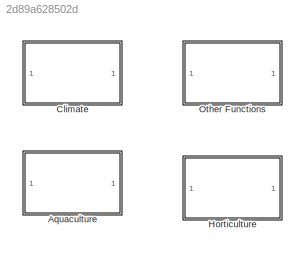
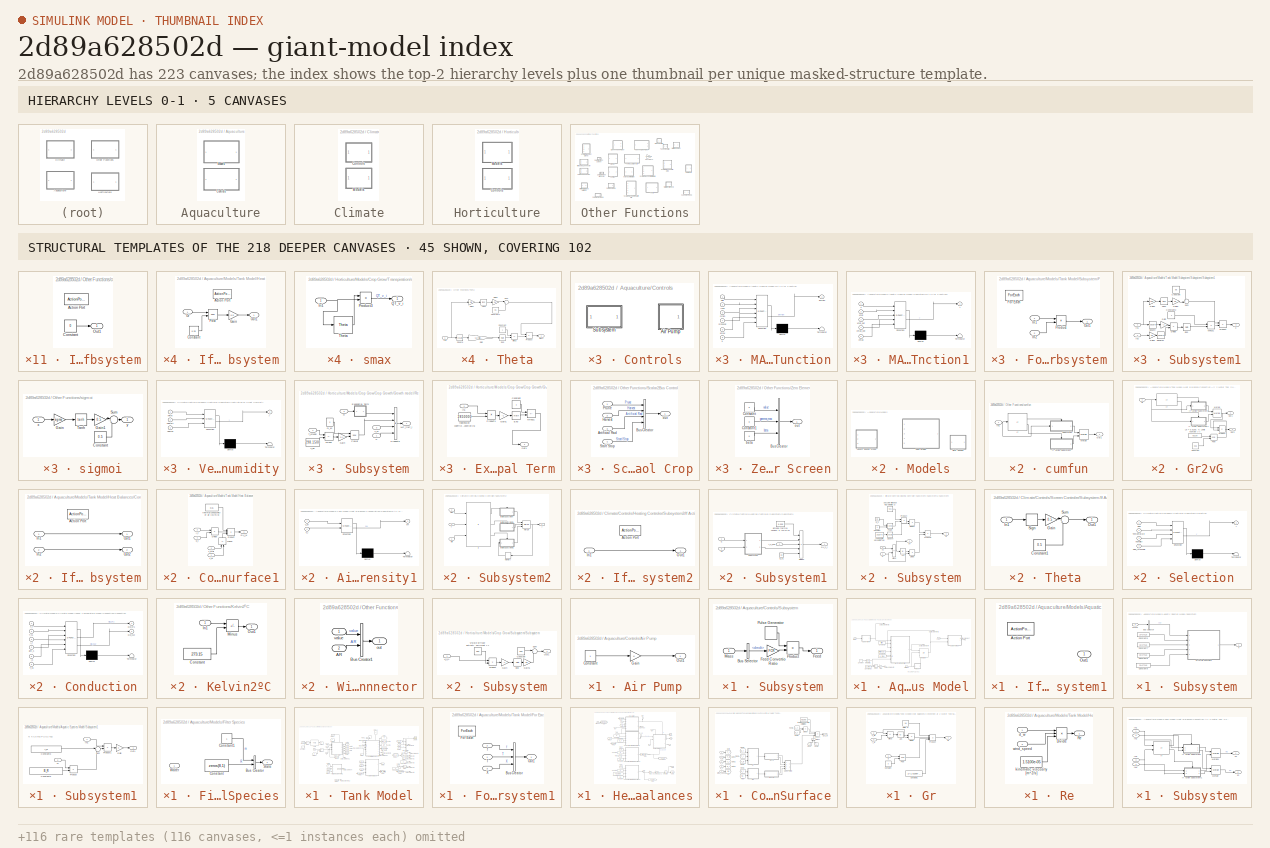
[diagram: thumbnail index - top-2 hierarchy levels (5 canvases) + 45 structural-template representatives of the remaining 218 canvases]
MODEL slx_2d89a628502d
KIND library
CONFIG AbsTol = auto
CONFIG EnableMultiTasking = off
CONFIG FixedStep = auto
CONFIG MaxStep = auto
CONFIG MinStep = auto
CONFIG RelTol = 1e-3
CONFIG SampleTimeConstraint = Unconstrained
CONFIG SolverName = VariableStepAuto
CONFIG StartTime = 0.0
CONFIG StopTime = 10.0
BLOCK [SubSystem] Aquaculture
  Ports = []
  RequestExecContextInheritance = off
BLOCK [SubSystem] Aquaculture/Controls
  Ports = []
  RequestExecContextInheritance = off
BLOCK [SubSystem] Aquaculture/Controls/Air Pump
  Ports = [0, 1]
  RequestExecContextInheritance = off
BLOCK [Constant] Aquaculture/Controls/Air Pump/Constant
BLOCK [Gain] Aquaculture/Controls/Air Pump/Gain
BLOCK [Outport] Aquaculture/Controls/Air Pump/Out1
BLOCK [SubSystem] Aquaculture/Controls/Subsystem
  Ports = [1, 1]
  RequestExecContextInheritance = off
BLOCK [BusSelector] Aquaculture/Controls/Subsystem/Bus Selector
  OutputSignals = dmdt
  Ports = [1, 1]
BLOCK [Outport] Aquaculture/Controls/Subsystem/Feed
BLOCK [Gain] Aquaculture/Controls/Subsystem/Feed Convertio Ratio
  Gain = FCR
BLOCK [Inport] Aquaculture/Controls/Subsystem/Mass
BLOCK [Product] Aquaculture/Controls/Subsystem/Product
  Ports = [2, 1]
BLOCK [DiscretePulseGenerator] Aquaculture/Controls/Subsystem/Pulse Generator
  Period = 1
  Ports = [0, 1]
  PulseType = Time based
  PulseWidth = 5
BLOCK [SubSystem] Aquaculture/Models
  Ports = []
  RequestExecContextInheritance = off
BLOCK [SubSystem] Aquaculture/Models/Aquatic Species Model
  NameLocation = left
  Ports = [3, 1]
  RequestExecContextInheritance = off
BLOCK [Constant] Aquaculture/Models/Aquatic Species Model/Constant
BLOCK [Constant] Aquaculture/Models/Aquatic Species Model/Constant1
  Value = a_max
BLOCK [Constant] Aquaculture/Models/Aquatic Species Model/Constant10
  Value = a_max
BLOCK [Constant] Aquaculture/Models/Aquatic Species Model/Constant2
  Value = rfish
BLOCK [Constant] Aquaculture/Models/Aquatic Species Model/Constant4
  Value = mfishsat
BLOCK [Product] Aquaculture/Models/Aquatic Species Model/Divide
  Inputs = */
  Ports = [2, 1]
BLOCK [Inport] Aquaculture/Models/Aquatic Species Model/Feed
BLOCK [Gain] Aquaculture/Models/Aquatic Species Model/Gain
  Gain = 100
BLOCK [Integrator] Aquaculture/Models/Aquatic Species Model/Integrator
  ExternalReset = either
  InitialCondition = m0
  InitialConditionSource = external
  Ports = [3, 1]
BLOCK [Integrator] Aquaculture/Models/Aquatic Species Model/Integrator1
  InitialCondition = a0
  Ports = [1, 1]
BLOCK [SubSystem] Aquaculture/Models/Aquatic Species Model/MATLAB Function
  ErrorFcn = Stateflow.Translate.translate
  PermitHierarchicalResolution = ExplicitOnly
  Ports = [6, 1]
  RequestExecContextInheritance = off
  SFBlockType = MATLAB Function
  TreatAsAtomicUnit = on
BLOCK [Demux] Aquaculture/Models/Aquatic Species Model/MATLAB Function/ Demux 
  Outputs = 1
  Ports = [1, 1]
BLOCK [S-Function] Aquaculture/Models/Aquatic Species Model/MATLAB Function/ SFunction 
  EnableBusSupport = off
  FunctionName = sf_sfun
  PortCounts = [6 2]
  Ports = [6, 2]
  SFcnIsStateOwnerBlock = off
  SFunctionDeploymentMode = off
  Tag = Stateflow S-Function 12
BLOCK [Terminator] Aquaculture/Models/Aquatic Species Model/MATLAB Function/ Terminator 
BLOCK [Inport] Aquaculture/Models/Aquatic Species Model/MATLAB Function/a
  Port = 6
BLOCK [Inport] Aquaculture/Models/Aquatic Species Model/MATLAB Function/amax
  Port = 5
BLOCK [Outport] Aquaculture/Models/Aquatic Species Model/MATLAB Function/dmfish
BLOCK [Inport] Aquaculture/Models/Aquatic Species Model/MATLAB Function/hinit
BLOCK [Inport] Aquaculture/Models/Aquatic Species Model/MATLAB Function/mfish
  Port = 3
BLOCK [Inport] Aquaculture/Models/Aquatic Species Model/MATLAB Function/mfishsat
  Port = 4
BLOCK [Inport] Aquaculture/Models/Aquatic Species Model/MATLAB Function/rfish
  Port = 2
BLOCK [Outport] Aquaculture/Models/Aquatic Species Model/Out Bus Element
BLOCK [Outport] Aquaculture/Models/Aquatic Species Model/Out Bus Element1
BLOCK [Outport] Aquaculture/Models/Aquatic Species Model/Out Bus Element2
BLOCK [Outport] Aquaculture/Models/Aquatic Species Model/Out Bus Element3
BLOCK [Outport] Aquaculture/Models/Aquatic Species Model/Out Bus Element4
BLOCK [SubSystem] Aquaculture/Models/Aquatic Species Model/Reset
  PortSchema = {"entries":[{"content":{"sides":[{"content":{"connectorIds":["In1"]},"type":"ConnectorPlacement.EquallySpacedRectSide","uuid":"aa2f7e59-f529-400b-b9b4-3716b6e5089a"},{"content":{"connectorIds":[],"side":"RIGHT"},"type":"ConnectorPlacement.EquallySpacedRectSide","uuid":"c5c5d623-1c21-4b57-aead-8f9c83f53514"},{"content":{"connectorIds":["Out1"],"side":"TOP"},"type":"ConnectorPlacement.EquallySpacedR...<+240ch>
  Ports = [1, 1]
  RequestExecContextInheritance = off
BLOCK [If] Aquaculture/Models/Aquatic Species Model/Reset/If
  Ports = [1, 2]
BLOCK [SubSystem] Aquaculture/Models/Aquatic Species Model/Reset/If Action Subsystem
  Ports = [0, 1, 0, 0, 0, 0, 0, 1]
  RequestExecContextInheritance = off
  TreatAsAtomicUnit = on
BLOCK [ActionPort] Aquaculture/Models/Aquatic Species Model/Reset/If Action Subsystem/Action Port
BLOCK [Constant] Aquaculture/Models/Aquatic Species Model/Reset/If Action Subsystem/Constant
  Value = m0
BLOCK [Outport] Aquaculture/Models/Aquatic Species Model/Reset/If Action Subsystem/Out1
BLOCK [SubSystem] Aquaculture/Models/Aquatic Species Model/Reset/If Action Subsystem1
  Ports = [0, 1, 0, 0, 0, 0, 0, 1]
  RequestExecContextInheritance = off
  TreatAsAtomicUnit = on
BLOCK [ActionPort] Aquaculture/Models/Aquatic Species Model/Reset/If Action Subsystem1/Action Port
BLOCK [Outport] Aquaculture/Models/Aquatic Species Model/Reset/If Action Subsystem1/Out1
BLOCK [Inport] Aquaculture/Models/Aquatic Species Model/Reset/In1
BLOCK [Merge] Aquaculture/Models/Aquatic Species Model/Reset/Merge
  Ports = [2, 1]
BLOCK [Outport] Aquaculture/Models/Aquatic Species Model/Reset/Out1
BLOCK [Inport] Aquaculture/Models/Aquatic Species Model/StartStop
  Port = 2
BLOCK [SubSystem] Aquaculture/Models/Aquatic Species Model/Subsystem
  Ports = [1, 1]
  RequestExecContextInheritance = off
BLOCK [BusSelector] Aquaculture/Models/Aquatic Species Model/Subsystem/Bus Selector
  OutputSignals = Drainge.T
  Ports = [1, 1]
BLOCK [Constant] Aquaculture/Models/Aquatic Species Model/Subsystem/Constant6
  Value = 10+273.15
BLOCK [Constant] Aquaculture/Models/Aquatic Species Model/Subsystem/Constant7
  Value = 15+273.15
BLOCK [Constant] Aquaculture/Models/Aquatic Species Model/Subsystem/Constant8
  Value = 25+273.15
BLOCK [Constant] Aquaculture/Models/Aquatic Species Model/Subsystem/Constant9
  Value = 30+273.15
BLOCK [SubSystem] Aquaculture/Models/Aquatic Species Model/Subsystem/MATLAB Function1
  ErrorFcn = Stateflow.Translate.translate
  PermitHierarchicalResolution = ExplicitOnly
  Ports = [5, 1]
  RequestExecContextInheritance = off
  SFBlockType = MATLAB Function
  TreatAsAtomicUnit = on
BLOCK [Demux] Aquaculture/Models/Aquatic Species Model/Subsystem/MATLAB Function1/ Demux 
  Outputs = 1
  Ports = [1, 1]
BLOCK [S-Function] Aquaculture/Models/Aquatic Species Model/Subsystem/MATLAB Function1/ SFunction 
  EnableBusSupport = off
  FunctionName = sf_sfun
  PortCounts = [5 2]
  Ports = [5, 2]
  SFcnIsStateOwnerBlock = off
  SFunctionDeploymentMode = off
  Tag = Stateflow S-Function 13
BLOCK [Terminator] Aquaculture/Models/Aquatic Species Model/Subsystem/MATLAB Function1/ Terminator 
BLOCK [Inport] Aquaculture/Models/Aquatic Species Model/Subsystem/MATLAB Function1/x
BLOCK [Inport] Aquaculture/Models/Aquatic Species Model/Subsystem/MATLAB Function1/xmax
  Port = 5
BLOCK [Inport] Aquaculture/Models/Aquatic Species Model/Subsystem/MATLAB Function1/xmax_opt
  Port = 4
BLOCK [Inport] Aquaculture/Models/Aquatic Species Model/Subsystem/MATLAB Function1/xmin
  Port = 2
BLOCK [Inport] Aquaculture/Models/Aquatic Species Model/Subsystem/MATLAB Function1/xmin_opt
  Port = 3
BLOCK [Outport] Aquaculture/Models/Aquatic Species Model/Subsystem/MATLAB Function1/y
BLOCK [Inport] Aquaculture/Models/Aquatic Species Model/Subsystem/Water
BLOCK [Outport] Aquaculture/Models/Aquatic Species Model/Subsystem/h
BLOCK [SubSystem] Aquaculture/Models/Aquatic Species Model/Subsystem1
  Ports = [2, 1]
  RequestExecContextInheritance = off
BLOCK [Constant] Aquaculture/Models/Aquatic Species Model/Subsystem1/Constant3
  Value = A_R
  VectorParams1D = off
BLOCK [Constant] Aquaculture/Models/Aquatic Species Model/Subsystem1/Constant5
  Value = B_R
  VectorParams1D = off
BLOCK [Gain] Aquaculture/Models/Aquatic Species Model/Subsystem1/Gain
BLOCK [Inport] Aquaculture/Models/Aquatic Species Model/Subsystem1/In1
BLOCK [Outport] Aquaculture/Models/Aquatic Species Model/Subsystem1/Out1
BLOCK [Product] Aquaculture/Models/Aquatic Species Model/Subsystem1/Product
  Ports = [2, 1]
BLOCK [Product] Aquaculture/Models/Aquatic Species Model/Subsystem1/Product1
  Ports = [2, 1]
BLOCK [Sum] Aquaculture/Models/Aquatic Species Model/Subsystem1/Sum
  Inputs = |++
  Ports = [2, 1]
BLOCK [Inport] Aquaculture/Models/Aquatic Species Model/Subsystem1/m
  Port = 2
BLOCK [Inport] Aquaculture/Models/Aquatic Species Model/Water
  Port = 3
BLOCK [SubSystem] Aquaculture/Models/Filter Species
  NameLocation = top
  Ports = [1, 1]
  RequestExecContextInheritance = off
BLOCK [BusCreator] Aquaculture/Models/Filter Species/Bus Creator
  DisplayOption = bar
  InheritFromInputs = on
  Inputs = 2
  Ports = [2, 1]
BLOCK [Constant] Aquaculture/Models/Filter Species/Constant
  Value = zeros(8,1)
  VectorParams1D = off
BLOCK [Constant] Aquaculture/Models/Filter Species/Constant1
BLOCK [Outport] Aquaculture/Models/Filter Species/State
BLOCK [Inport] Aquaculture/Models/Filter Species/Water 
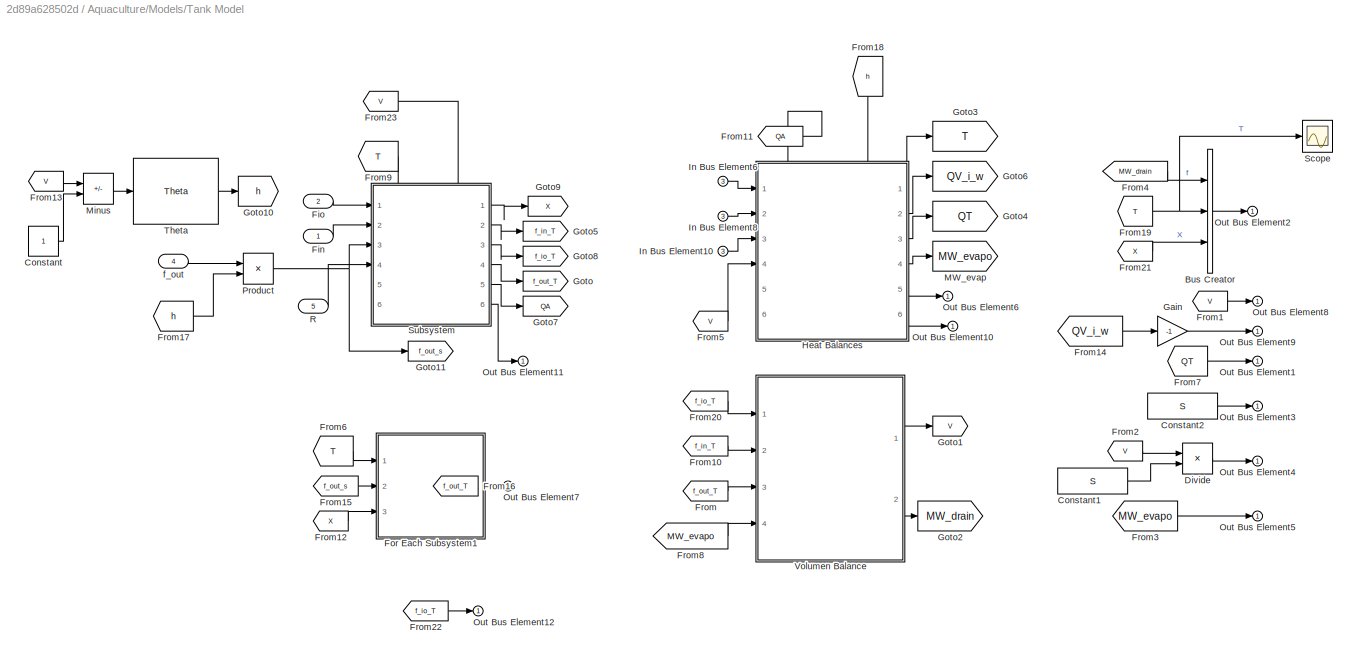
BLOCK [SubSystem] Aquaculture/Models/Tank Model
  PortSchema = {"entries":[{"content":{"sides":[{"content":{"connectorIds":["In1","In2"]},"type":"ConnectorPlacement.EquallySpacedRectSide","uuid":"0362ec3b-d1e8-482f-a4df-c7eb6405d3bb"},{"content":{"connectorIds":["Out1"],"side":"RIGHT"},"type":"ConnectorPlacement.EquallySpacedRectSide","uuid":"883d7bea-5680-4a36-94aa-1bdc656ec6e4"},{"content":{"connectorIds":["In3"],"side":"TOP"},"type":"ConnectorPlacement.Equ...<+406ch>
  Ports = [5, 1]
  RequestExecContextInheritance = off
BLOCK [BusCreator] Aquaculture/Models/Tank Model/Bus Creator
  DisplayOption = bar
  InheritFromInputs = on
  Inputs = 3
  NonVirtualBus = on
  OutDataTypeStr = Bus: FLOW
  Ports = [3, 1]
BLOCK [Constant] Aquaculture/Models/Tank Model/Constant
BLOCK [Constant] Aquaculture/Models/Tank Model/Constant1
  Value = S
BLOCK [Constant] Aquaculture/Models/Tank Model/Constant2
  Value = S
BLOCK [Product] Aquaculture/Models/Tank Model/Divide
  Inputs = */
  Ports = [2, 1]
BLOCK [Inport] Aquaculture/Models/Tank Model/Fin
BLOCK [Inport] Aquaculture/Models/Tank Model/Fio
  Port = 2
BLOCK [SubSystem] Aquaculture/Models/Tank Model/For Each Subsystem1
  Ports = [3, 1]
  RequestExecContextInheritance = off
  TreatAsAtomicUnit = on
BLOCK [BusCreator] Aquaculture/Models/Tank Model/For Each Subsystem1/Bus Creator
  DisplayOption = bar
  InheritFromInputs = on
  Inputs = 3
  NonVirtualBus = on
  OutDataTypeStr = Bus: FLOW
  Ports = [3, 1]
BLOCK [ForEach] Aquaculture/Models/Tank Model/For Each Subsystem1/For Each
  DisableCoverage = on
  Ports = []
BLOCK [Outport] Aquaculture/Models/Tank Model/For Each Subsystem1/Out1
  ConcatenationDimension = 1
BLOCK [Inport] Aquaculture/Models/Tank Model/For Each Subsystem1/T
BLOCK [Inport] Aquaculture/Models/Tank Model/For Each Subsystem1/X
  Port = 3
BLOCK [Inport] Aquaculture/Models/Tank Model/For Each Subsystem1/f
  Partition = on
  PartitionDimension = 1
  PartitionOffset = 0
  PartitionWidth = 1
  Port = 2
BLOCK [From] Aquaculture/Models/Tank Model/From
  GotoTag = f_out_T
BLOCK [From] Aquaculture/Models/Tank Model/From1
  GotoTag = V
BLOCK [From] Aquaculture/Models/Tank Model/From10
  GotoTag = f_in_T
BLOCK [From] Aquaculture/Models/Tank Model/From11
  GotoTag = QA
BLOCK [From] Aquaculture/Models/Tank Model/From12
  GotoTag = X
BLOCK [From] Aquaculture/Models/Tank Model/From13
  GotoTag = V
BLOCK [From] Aquaculture/Models/Tank Model/From14
  GotoTag = QV_i_w
BLOCK [From] Aquaculture/Models/Tank Model/From15
  GotoTag = f_out_s
BLOCK [From] Aquaculture/Models/Tank Model/From16
  GotoTag = f_out_T
BLOCK [From] Aquaculture/Models/Tank Model/From17
  GotoTag = h
BLOCK [From] Aquaculture/Models/Tank Model/From18
  GotoTag = h
  NameLocation = left
BLOCK [From] Aquaculture/Models/Tank Model/From19
  GotoTag = T
BLOCK [From] Aquaculture/Models/Tank Model/From2
  GotoTag = V
BLOCK [From] Aquaculture/Models/Tank Model/From20
  GotoTag = f_io_T
BLOCK [From] Aquaculture/Models/Tank Model/From21
  GotoTag = X
BLOCK [From] Aquaculture/Models/Tank Model/From22
  GotoTag = f_io_T
BLOCK [From] Aquaculture/Models/Tank Model/From23
  GotoTag = V
BLOCK [From] Aquaculture/Models/Tank Model/From3
  GotoTag = MW_evapo
BLOCK [From] Aquaculture/Models/Tank Model/From4
  GotoTag = MW_drain
BLOCK [From] Aquaculture/Models/Tank Model/From5
  GotoTag = V
BLOCK [From] Aquaculture/Models/Tank Model/From6
  GotoTag = T
BLOCK [From] Aquaculture/Models/Tank Model/From7
  GotoTag = QT
BLOCK [From] Aquaculture/Models/Tank Model/From8
  GotoTag = MW_evapo
BLOCK [From] Aquaculture/Models/Tank Model/From9
  GotoTag = T
BLOCK [Gain] Aquaculture/Models/Tank Model/Gain
  Gain = -1
BLOCK [Goto] Aquaculture/Models/Tank Model/Goto
  GotoTag = f_out_T
BLOCK [Goto] Aquaculture/Models/Tank Model/Goto1
  GotoTag = V
BLOCK [Goto] Aquaculture/Models/Tank Model/Goto10
  GotoTag = h
BLOCK [Goto] Aquaculture/Models/Tank Model/Goto11
  GotoTag = f_out_s
BLOCK [Goto] Aquaculture/Models/Tank Model/Goto2
  GotoTag = MW_drain
BLOCK [Goto] Aquaculture/Models/Tank Model/Goto3
  GotoTag = T
BLOCK [Goto] Aquaculture/Models/Tank Model/Goto4
  GotoTag = QT
BLOCK [Goto] Aquaculture/Models/Tank Model/Goto5
  GotoTag = f_in_T
BLOCK [Goto] Aquaculture/Models/Tank Model/Goto6
  GotoTag = QV_i_w
BLOCK [Goto] Aquaculture/Models/Tank Model/Goto7
  GotoTag = QA
BLOCK [Goto] Aquaculture/Models/Tank Model/Goto8
  GotoTag = f_io_T
BLOCK [Goto] Aquaculture/Models/Tank Model/Goto9
  GotoTag = X
BLOCK [SubSystem] Aquaculture/Models/Tank Model/Heat Balances
  PortSchema = {"entries":[{"content":{"sides":[{"content":{"connectorIds":["In1","In2","In3","In4"]},"type":"ConnectorPlacement.EquallySpacedRectSide","uuid":"26e11b66-a1c5-48e2-ab79-f5870a5f4091"},{"content":{"connectorIds":["Out1","Out2","Out3","Out4","Out5","Out6"],"side":"RIGHT"},"type":"ConnectorPlacement.EquallySpacedRectSide","uuid":"91e62b2d-44c5-4f75-9dd0-4a25b0cbf311"},{"content":{"connectorIds":["In5...<+304ch>
  Ports = [6, 6]
  RequestExecContextInheritance = off
BLOCK [Inport] Aquaculture/Models/Tank Model/Heat Balances/Air Speed
  Port = 2
BLOCK [Inport] Aquaculture/Models/Tank Model/Heat Balances/C_w
  Port = 3
BLOCK [Constant] Aquaculture/Models/Tank Model/Heat Balances/Constant1
  Value = S
BLOCK [Constant] Aquaculture/Models/Tank Model/Heat Balances/Constant2
  Value = S
BLOCK [Constant] Aquaculture/Models/Tank Model/Heat Balances/Constant3
  Value = S
BLOCK [Constant] Aquaculture/Models/Tank Model/Heat Balances/Constant4
  Value = d_t
BLOCK [Constant] Aquaculture/Models/Tank Model/Heat Balances/Constant5
  Value = 1.5
BLOCK [Constant] Aquaculture/Models/Tank Model/Heat Balances/Constant7
  Value = 1.5
BLOCK [Constant] Aquaculture/Models/Tank Model/Heat Balances/Constant8
  Value = Tsubwall
BLOCK [SubSystem] Aquaculture/Models/Tank Model/Heat Balances/Convection Air 2 Water Tanl Surface
  Ports = [5, 1]
  RequestExecContextInheritance = off
BLOCK [Inport] Aquaculture/Models/Tank Model/Heat Balances/Convection Air 2 Water Tanl Surface/A_t
  Port = 2
BLOCK [Product] Aquaculture/Models/Tank Model/Heat Balances/Convection Air 2 Water Tanl Surface/Divide
  Inputs = */
  Ports = [2, 1]
BLOCK [From] Aquaculture/Models/Tank Model/Heat Balances/Convection Air 2 Water Tanl Surface/From
  GotoTag = ws
BLOCK [From] Aquaculture/Models/Tank Model/Heat Balances/Convection Air 2 Water Tanl Surface/From1
  GotoTag = d_t
BLOCK [From] Aquaculture/Models/Tank Model/Heat Balances/Convection Air 2 Water Tanl Surface/From2
  GotoTag = T_w
BLOCK [From] Aquaculture/Models/Tank Model/Heat Balances/Convection Air 2 Water Tanl Surface/From3
  GotoTag = T_i
BLOCK [From] Aquaculture/Models/Tank Model/Heat Balances/Convection Air 2 Water Tanl Surface/From4
  GotoTag = d_t
BLOCK [From] Aquaculture/Models/Tank Model/Heat Balances/Convection Air 2 Water Tanl Surface/From5
  GotoTag = A_t
BLOCK [From] Aquaculture/Models/Tank Model/Heat Balances/Convection Air 2 Water Tanl Surface/From6
  GotoTag = d_t
BLOCK [From] Aquaculture/Models/Tank Model/Heat Balances/Convection Air 2 Water Tanl Surface/From7
  GotoTag = T_w
  NameLocation = right
BLOCK [From] Aquaculture/Models/Tank Model/Heat Balances/Convection Air 2 Water Tanl Surface/From8
  GotoTag = T_i
  NameLocation = right
BLOCK [Goto] Aquaculture/Models/Tank Model/Heat Balances/Convection Air 2 Water Tanl Surface/Goto
  GotoTag = T_i
BLOCK [Goto] Aquaculture/Models/Tank Model/Heat Balances/Convection Air 2 Water Tanl Surface/Goto1
  GotoTag = T_w
BLOCK [Goto] Aquaculture/Models/Tank Model/Heat Balances/Convection Air 2 Water Tanl Surface/Goto2
  GotoTag = A_t
BLOCK [Goto] Aquaculture/Models/Tank Model/Heat Balances/Convection Air 2 Water Tanl Surface/Goto3
  GotoTag = d_t
BLOCK [SubSystem] Aquaculture/Models/Tank Model/Heat Balances/Convection Air 2 Water Tanl Surface/Gr
  Ports = [3, 1]
  RequestExecContextInheritance = off
BLOCK [Abs] Aquaculture/Models/Tank Model/Heat Balances/Convection Air 2 Water Tanl Surface/Gr/Abs
  SaturateOnIntegerOverflow = off
  ZeroCross = off
BLOCK [Constant] Aquaculture/Models/Tank Model/Heat Balances/Convection Air 2 Water Tanl Surface/Gr/Constant
  Value = 3
BLOCK [Constant] Aquaculture/Models/Tank Model/Heat Balances/Convection Air 2 Water Tanl Surface/Gr/Constant1
  Value = 1/(1.5100e-05)^2
BLOCK [Product] Aquaculture/Models/Tank Model/Heat Balances/Convection Air 2 Water Tanl Surface/Gr/Divide
  Inputs = */
  Ports = [2, 1]
BLOCK [Outport] Aquaculture/Models/Tank Model/Heat Balances/Convection Air 2 Water Tanl Surface/Gr/Gr
BLOCK [Sum] Aquaculture/Models/Tank Model/Heat Balances/Convection Air 2 Water Tanl Surface/Gr/Minus
  IconShape = rectangular
  Inputs = +-
  Ports = [2, 1]
BLOCK [Math] Aquaculture/Models/Tank Model/Heat Balances/Convection Air 2 Water Tanl Surface/Gr/Pow
  Operator = pow
  Ports = [2, 1]
  RndMeth = Zero
  SignedPower = on
BLOCK [Product] Aquaculture/Models/Tank Model/Heat Balances/Convection Air 2 Water Tanl Surface/Gr/Product
  Inputs = 4
  Ports = [4, 1]
BLOCK [Inport] Aquaculture/Models/Tank Model/Heat Balances/Convection Air 2 Water Tanl Surface/Gr/T_air
  Port = 2
BLOCK [Inport] Aquaculture/Models/Tank Model/Heat Balances/Convection Air 2 Water Tanl Surface/Gr/T_w
  Port = 3
BLOCK [Inport] Aquaculture/Models/Tank Model/Heat Balances/Convection Air 2 Water Tanl Surface/Gr/d
BLOCK [Constant] Aquaculture/Models/Tank Model/Heat Balances/Convection Air 2 Water Tanl Surface/Gr/g [m//s^2]
  Value = 9.8
BLOCK [SubSystem] Aquaculture/Models/Tank Model/Heat Balances/Convection Air 2 Water Tanl Surface/Gr2vG
  Ports = [1, 2]
  RequestExecContextInheritance = off
BLOCK [Constant] Aquaculture/Models/Tank Model/Heat Balances/Convection Air 2 Water Tanl Surface/Gr2vG/Constant
  Value = 0.25
BLOCK [Inport] Aquaculture/Models/Tank Model/Heat Balances/Convection Air 2 Water Tanl Surface/Gr2vG/Gr
BLOCK [If] Aquaculture/Models/Tank Model/Heat Balances/Convection Air 2 Water Tanl Surface/Gr2vG/If
  IfExpression = u1 < 1e5
  Ports = [1, 2]
  ZeroCross = off
BLOCK [SubSystem] Aquaculture/Models/Tank Model/Heat Balances/Convection Air 2 Water Tanl Surface/Gr2vG/If Action Subsystem
  Ports = [1, 1, 0, 0, 0, 0, 0, 1]
  RequestExecContextInheritance = off
  TreatAsAtomicUnit = on
BLOCK [ActionPort] Aquaculture/Models/Tank Model/Heat Balances/Convection Air 2 Water Tanl Surface/Gr2vG/If Action Subsystem/Action Port
BLOCK [Constant] Aquaculture/Models/Tank Model/Heat Balances/Convection Air 2 Water Tanl Surface/Gr2vG/If Action Subsystem/Constant
  Value = 0.25
BLOCK [Gain] Aquaculture/Models/Tank Model/Heat Balances/Convection Air 2 Water Tanl Surface/Gr2vG/If Action Subsystem/Gain
  Gain = 0.5
BLOCK [Inport] Aquaculture/Models/Tank Model/Heat Balances/Convection Air 2 Water Tanl Surface/Gr2vG/If Action Subsystem/Gr
BLOCK [Outport] Aquaculture/Models/Tank Model/Heat Balances/Convection Air 2 Water Tanl Surface/Gr2vG/If Action Subsystem/Out1
BLOCK [Math] Aquaculture/Models/Tank Model/Heat Balances/Convection Air 2 Water Tanl Surface/Gr2vG/If Action Subsystem/Pow
  Operator = pow
  Ports = [2, 1]
  RndMeth = Zero
  SignedPower = on
BLOCK [SubSystem] Aquaculture/Models/Tank Model/Heat Balances/Convection Air 2 Water Tanl Surface/Gr2vG/If Action Subsystem1
  Ports = [1, 1, 0, 0, 0, 0, 0, 1]
  RequestExecContextInheritance = off
  TreatAsAtomicUnit = on
BLOCK [ActionPort] Aquaculture/Models/Tank Model/Heat Balances/Convection Air 2 Water Tanl Surface/Gr2vG/If Action Subsystem1/Action Port
BLOCK [Constant] Aquaculture/Models/Tank Model/Heat Balances/Convection Air 2 Water Tanl Surface/Gr2vG/If Action Subsystem1/Constant
  Value = 0.25
BLOCK [Gain] Aquaculture/Models/Tank Model/Heat Balances/Convection Air 2 Water Tanl Surface/Gr2vG/If Action Subsystem1/Gain
  Gain = 0.5
BLOCK [Inport] Aquaculture/Models/Tank Model/Heat Balances/Convection Air 2 Water Tanl Surface/Gr2vG/If Action Subsystem1/Gr
BLOCK [Outport] Aquaculture/Models/Tank Model/Heat Balances/Convection Air 2 Water Tanl Surface/Gr2vG/If Action Subsystem1/Out1
BLOCK [Math] Aquaculture/Models/Tank Model/Heat Balances/Convection Air 2 Water Tanl Surface/Gr2vG/If Action Subsystem1/Pow
  Operator = pow
  Ports = [2, 1]
  RndMeth = Zero
  SignedPower = on
BLOCK [Constant] Aquaculture/Models/Tank Model/Heat Balances/Convection Air 2 Water Tanl Surface/Gr2vG/Le = 0.8190; % Lewis number [-] 
  Value = 0.8190
BLOCK [Merge] Aquaculture/Models/Tank Model/Heat Balances/Convection Air 2 Water Tanl Surface/Gr2vG/Merge
  Ports = [2, 1]
BLOCK [Outport] Aquaculture/Models/Tank Model/Heat Balances/Convection Air 2 Water Tanl Surface/Gr2vG/Out1
BLOCK [Outport] Aquaculture/Models/Tank Model/Heat Balances/Convection Air 2 Water Tanl Surface/Gr2vG/Out2
  Port = 2
BLOCK [Math] Aquaculture/Models/Tank Model/Heat Balances/Convection Air 2 Water Tanl Surface/Gr2vG/Pow
  Operator = pow
  Ports = [2, 1]
  RndMeth = Zero
  SignedPower = on
BLOCK [Product] Aquaculture/Models/Tank Model/Heat Balances/Convection Air 2 Water Tanl Surface/Gr2vG/Product
  Ports = [2, 1]
BLOCK [Sum] Aquaculture/Models/Tank Model/Heat Balances/Convection Air 2 Water Tanl Surface/Minus
  IconShape = rectangular
  Inputs = -+
  NameLocation = right
  Ports = [2, 1]
BLOCK [Product] Aquaculture/Models/Tank Model/Heat Balances/Convection Air 2 Water Tanl Surface/Product
  Inputs = 4
  Ports = [4, 1]
BLOCK [Outport] Aquaculture/Models/Tank Model/Heat Balances/Convection Air 2 Water Tanl Surface/QV_i_w
BLOCK [SubSystem] Aquaculture/Models/Tank Model/Heat Balances/Convection Air 2 Water Tanl Surface/Re
  Ports = [2, 1]
  RequestExecContextInheritance = off
BLOCK [Product] Aquaculture/Models/Tank Model/Heat Balances/Convection Air 2 Water Tanl Surface/Re/Divide
  Inputs = **/
  Ports = [3, 1]
BLOCK [Outport] Aquaculture/Models/Tank Model/Heat Balances/Convection Air 2 Water Tanl Surface/Re/Re
BLOCK [Inport] Aquaculture/Models/Tank Model/Heat Balances/Convection Air 2 Water Tanl Surface/Re/d_w
BLOCK [Constant] Aquaculture/Models/Tank Model/Heat Balances/Convection Air 2 Water Tanl Surface/Re/kinematic viscosity [m^2//s]
  Value = 1.5100e-05
BLOCK [Inport] Aquaculture/Models/Tank Model/Heat Balances/Convection Air 2 Water Tanl Surface/Re/wind_speed
  Port = 2
BLOCK [SubSystem] Aquaculture/Models/Tank Model/Heat Balances/Convection Air 2 Water Tanl Surface/Re2vR
  Ports = [1, 2]
  RequestExecContextInheritance = off
BLOCK [Constant] Aquaculture/Models/Tank Model/Heat Balances/Convection Air 2 Water Tanl Surface/Re2vR/Constant
  Value = 0.33
BLOCK [If] Aquaculture/Models/Tank Model/Heat Balances/Convection Air 2 Water Tanl Surface/Re2vR/If
  IfExpression = u1 < 2e4
  Ports = [1, 2]
  ZeroCross = off
BLOCK [SubSystem] Aquaculture/Models/Tank Model/Heat Balances/Convection Air 2 Water Tanl Surface/Re2vR/If Action Subsystem
  Ports = [1, 1, 0, 0, 0, 0, 0, 1]
  RequestExecContextInheritance = off
  TreatAsAtomicUnit = on
BLOCK [ActionPort] Aquaculture/Models/Tank Model/Heat Balances/Convection Air 2 Water Tanl Surface/Re2vR/If Action Subsystem/Action Port
BLOCK [Constant] Aquaculture/Models/Tank Model/Heat Balances/Convection Air 2 Water Tanl Surface/Re2vR/If Action Subsystem/Constant
  Value = 0.5
BLOCK [Gain] Aquaculture/Models/Tank Model/Heat Balances/Convection Air 2 Water Tanl Surface/Re2vR/If Action Subsystem/Gain
  Gain = 0.6
BLOCK [Outport] Aquaculture/Models/Tank Model/Heat Balances/Convection Air 2 Water Tanl Surface/Re2vR/If Action Subsystem/Out1
BLOCK [Math] Aquaculture/Models/Tank Model/Heat Balances/Convection Air 2 Water Tanl Surface/Re2vR/If Action Subsystem/Pow
  Operator = pow
  Ports = [2, 1]
  RndMeth = Zero
  SignedPower = on
BLOCK [Inport] Aquaculture/Models/Tank Model/Heat Balances/Convection Air 2 Water Tanl Surface/Re2vR/If Action Subsystem/Re
BLOCK [SubSystem] Aquaculture/Models/Tank Model/Heat Balances/Convection Air 2 Water Tanl Surface/Re2vR/If Action Subsystem1
  Ports = [1, 1, 0, 0, 0, 0, 0, 1]
  RequestExecContextInheritance = off
  TreatAsAtomicUnit = on
BLOCK [ActionPort] Aquaculture/Models/Tank Model/Heat Balances/Convection Air 2 Water Tanl Surface/Re2vR/If Action Subsystem1/Action Port
BLOCK [Constant] Aquaculture/Models/Tank Model/Heat Balances/Convection Air 2 Water Tanl Surface/Re2vR/If Action Subsystem1/Constant
  Value = 0.8
BLOCK [Gain] Aquaculture/Models/Tank Model/Heat Balances/Convection Air 2 Water Tanl Surface/Re2vR/If Action Subsystem1/Gain
  Gain = 0.032
BLOCK [Outport] Aquaculture/Models/Tank Model/Heat Balances/Convection Air 2 Water Tanl Surface/Re2vR/If Action Subsystem1/Out1
BLOCK [Math] Aquaculture/Models/Tank Model/Heat Balances/Convection Air 2 Water Tanl Surface/Re2vR/If Action Subsystem1/Pow
  Operator = pow
  Ports = [2, 1]
  RndMeth = Zero
  SignedPower = on
BLOCK [Inport] Aquaculture/Models/Tank Model/Heat Balances/Convection Air 2 Water Tanl Surface/Re2vR/If Action Subsystem1/Re
BLOCK [Constant] Aquaculture/Models/Tank Model/Heat Balances/Convection Air 2 Water Tanl Surface/Re2vR/Le = 0.8190; % Lewis number [-] 
  Value = 0.8190
BLOCK [Merge] Aquaculture/Models/Tank Model/Heat Balances/Convection Air 2 Water Tanl Surface/Re2vR/Merge
  Ports = [2, 1]
BLOCK [Outport] Aquaculture/Models/Tank Model/Heat Balances/Convection Air 2 Water Tanl Surface/Re2vR/Out1
BLOCK [Outport] Aquaculture/Models/Tank Model/Heat Balances/Convection Air 2 Water Tanl Surface/Re2vR/Out2
  Port = 2
BLOCK [Math] Aquaculture/Models/Tank Model/Heat Balances/Convection Air 2 Water Tanl Surface/Re2vR/Pow
  Operator = pow
  Ports = [2, 1]
  RndMeth = Zero
  SignedPower = on
BLOCK [Product] Aquaculture/Models/Tank Model/Heat Balances/Convection Air 2 Water Tanl Surface/Re2vR/Product
  Ports = [2, 1]
BLOCK [Inport] Aquaculture/Models/Tank Model/Heat Balances/Convection Air 2 Water Tanl Surface/Re2vR/Re
BLOCK [SubSystem] Aquaculture/Models/Tank Model/Heat Balances/Convection Air 2 Water Tanl Surface/Subsystem
  Ports = [4, 2]
  RequestExecContextInheritance = off
BLOCK [If] Aquaculture/Models/Tank Model/Heat Balances/Convection Air 2 Water Tanl Surface/Subsystem/If
  IfExpression = u1 > u2
  NumInputs = 2
  Ports = [2, 2]
BLOCK [SubSystem] Aquaculture/Models/Tank Model/Heat Balances/Convection Air 2 Water Tanl Surface/Subsystem/If Action Subsystem
  Ports = [2, 2, 0, 0, 0, 0, 0, 1]
  RequestExecContextInheritance = off
  TreatAsAtomicUnit = on
BLOCK [ActionPort] Aquaculture/Models/Tank Model/Heat Balances/Convection Air 2 Water Tanl Surface/Subsystem/If Action Subsystem/Action Port
BLOCK [Inport] Aquaculture/Models/Tank Model/Heat Balances/Convection Air 2 Water Tanl Surface/Subsystem/If Action Subsystem/In1
BLOCK [Inport] Aquaculture/Models/Tank Model/Heat Balances/Convection Air 2 Water Tanl Surface/Subsystem/If Action Subsystem/In2
  Port = 2
BLOCK [Outport] Aquaculture/Models/Tank Model/Heat Balances/Convection Air 2 Water Tanl Surface/Subsystem/If Action Subsystem/Out1
BLOCK [Outport] Aquaculture/Models/Tank Model/Heat Balances/Convection Air 2 Water Tanl Surface/Subsystem/If Action Subsystem/Out2
  Port = 2
BLOCK [SubSystem] Aquaculture/Models/Tank Model/Heat Balances/Convection Air 2 Water Tanl Surface/Subsystem/If Action Subsystem1
  Ports = [2, 2, 0, 0, 0, 0, 0, 1]
  RequestExecContextInheritance = off
  TreatAsAtomicUnit = on
BLOCK [ActionPort] Aquaculture/Models/Tank Model/Heat Balances/Convection Air 2 Water Tanl Surface/Subsystem/If Action Subsystem1/Action Port
BLOCK [Inport] Aquaculture/Models/Tank Model/Heat Balances/Convection Air 2 Water Tanl Surface/Subsystem/If Action Subsystem1/In1
BLOCK [Inport] Aquaculture/Models/Tank Model/Heat Balances/Convection Air 2 Water Tanl Surface/Subsystem/If Action Subsystem1/In2
  Port = 2
BLOCK [Outport] Aquaculture/Models/Tank Model/Heat Balances/Convection Air 2 Water Tanl Surface/Subsystem/If Action Subsystem1/Out1
BLOCK [Outport] Aquaculture/Models/Tank Model/Heat Balances/Convection Air 2 Water Tanl Surface/Subsystem/If Action Subsystem1/Out2
  Port = 2
BLOCK [Inport] Aquaculture/Models/Tank Model/Heat Balances/Convection Air 2 Water Tanl Surface/Subsystem/In1
BLOCK [Inport] Aquaculture/Models/Tank Model/Heat Balances/Convection Air 2 Water Tanl Surface/Subsystem/In2
  Port = 2
BLOCK [Inport] Aquaculture/Models/Tank Model/Heat Balances/Convection Air 2 Water Tanl Surface/Subsystem/In3
  Port = 3
BLOCK [Inport] Aquaculture/Models/Tank Model/Heat Balances/Convection Air 2 Water Tanl Surface/Subsystem/In4
  Port = 4
BLOCK [Merge] Aquaculture/Models/Tank Model/Heat Balances/Convection Air 2 Water Tanl Surface/Subsystem/Merge
  Ports = [2, 1]
BLOCK [Merge] Aquaculture/Models/Tank Model/Heat Balances/Convection Air 2 Water Tanl Surface/Subsystem/Merge1
  Ports = [2, 1]
BLOCK [Outport] Aquaculture/Models/Tank Model/Heat Balances/Convection Air 2 Water Tanl Surface/Subsystem/nu
BLOCK [Outport] Aquaculture/Models/Tank Model/Heat Balances/Convection Air 2 Water Tanl Surface/Subsystem/sh
  Port = 2
BLOCK [Inport] Aquaculture/Models/Tank Model/Heat Balances/Convection Air 2 Water Tanl Surface/T_i
BLOCK [Inport] Aquaculture/Models/Tank Model/Heat Balances/Convection Air 2 Water Tanl Surface/T_w
  Port = 3
BLOCK [Inport] Aquaculture/Models/Tank Model/Heat Balances/Convection Air 2 Water Tanl Surface/d_t
  Port = 4
BLOCK [Constant] Aquaculture/Models/Tank Model/Heat Balances/Convection Air 2 Water Tanl Surface/thermal conductivity of air [W//m//K] 
  Value = 0.0250
BLOCK [Inport] Aquaculture/Models/Tank Model/Heat Balances/Convection Air 2 Water Tanl Surface/wind_speed
  Port = 5
BLOCK [Goto] Aquaculture/Models/Tank Model/Heat Balances/Convection Air 2 Water Tanl Surface/ws
  GotoTag = ws
BLOCK [SubSystem] Aquaculture/Models/Tank Model/Heat Balances/Convection Air 2 Water Tanl Surface1
  Ports = [4, 1]
  RequestExecContextInheritance = off
BLOCK [Inport] Aquaculture/Models/Tank Model/Heat Balances/Convection Air 2 Water Tanl Surface1/A_t
  Port = 2
BLOCK [Product] Aquaculture/Models/Tank Model/Heat Balances/Convection Air 2 Water Tanl Surface1/Divide
  Inputs = */
  Ports = [2, 1]
BLOCK [Sum] Aquaculture/Models/Tank Model/Heat Balances/Convection Air 2 Water Tanl Surface1/Minus
  IconShape = rectangular
  Inputs = +-
  NameLocation = right
  Ports = [2, 1]
BLOCK [Product] Aquaculture/Models/Tank Model/Heat Balances/Convection Air 2 Water Tanl Surface1/Product
  Inputs = 3
  Ports = [3, 1]
BLOCK [Outport] Aquaculture/Models/Tank Model/Heat Balances/Convection Air 2 Water Tanl Surface1/QV_i_w
BLOCK [Inport] Aquaculture/Models/Tank Model/Heat Balances/Convection Air 2 Water Tanl Surface1/T_w
BLOCK [Inport] Aquaculture/Models/Tank Model/Heat Balances/Convection Air 2 Water Tanl Surface1/T_wall
  Port = 3
BLOCK [Inport] Aquaculture/Models/Tank Model/Heat Balances/Convection Air 2 Water Tanl Surface1/d_t
  Port = 4
BLOCK [Constant] Aquaculture/Models/Tank Model/Heat Balances/Convection Air 2 Water Tanl Surface1/thermal conductivity of air [W//m//K] 
  Value = 0.6
BLOCK [SubSystem] Aquaculture/Models/Tank Model/Heat Balances/Convection Air 2 Water Tanl Surface2
  Ports = [4, 1]
  RequestExecContextInheritance = off
BLOCK [Inport] Aquaculture/Models/Tank Model/Heat Balances/Convection Air 2 Water Tanl Surface2/A_t
  Port = 2
BLOCK [Product] Aquaculture/Models/Tank Model/Heat Balances/Convection Air 2 Water Tanl Surface2/Divide
  Inputs = */
  Ports = [2, 1]
BLOCK [Sum] Aquaculture/Models/Tank Model/Heat Balances/Convection Air 2 Water Tanl Surface2/Minus
  IconShape = rectangular
  Inputs = +-
  NameLocation = right
  Ports = [2, 1]
BLOCK [Product] Aquaculture/Models/Tank Model/Heat Balances/Convection Air 2 Water Tanl Surface2/Product
  Inputs = 3
  Ports = [3, 1]
BLOCK [Outport] Aquaculture/Models/Tank Model/Heat Balances/Convection Air 2 Water Tanl Surface2/QV_i_w
BLOCK [Inport] Aquaculture/Models/Tank Model/Heat Balances/Convection Air 2 Water Tanl Surface2/T_w
BLOCK [Inport] Aquaculture/Models/Tank Model/Heat Balances/Convection Air 2 Water Tanl Surface2/T_wall
  Port = 3
BLOCK [Inport] Aquaculture/Models/Tank Model/Heat Balances/Convection Air 2 Water Tanl Surface2/d_t
  Port = 4
BLOCK [Constant] Aquaculture/Models/Tank Model/Heat Balances/Convection Air 2 Water Tanl Surface2/thermal conductivity of air [W//m//K] 
  Value = ThermalConductivityWall
BLOCK [SubSystem] Aquaculture/Models/Tank Model/Heat Balances/Energy Balance
  PortSchema = {"entries":[{"content":{"sides":[{"content":{"connectorIds":["In1","In2"]},"type":"ConnectorPlacement.EquallySpacedRectSide","uuid":"351dfee1-09c7-4321-9b33-423602220319"},{"content":{"connectorIds":["Out1","Out2"],"side":"RIGHT"},"type":"ConnectorPlacement.EquallySpacedRectSide","uuid":"92d6c083-190c-455c-8aef-b1925742528e"},{"content":{"connectorIds":["In3","In4"],"side":"TOP"},"type":"Connector...<+413ch>
  Ports = [5, 2]
  RequestExecContextInheritance = off
BLOCK [BusCreator] Aquaculture/Models/Tank Model/Heat Balances/Energy Balance/Bus Creator
  DisplayOption = bar
  InheritFromInputs = on
  Inputs = 4
  Ports = [4, 1]
BLOCK [Product] Aquaculture/Models/Tank Model/Heat Balances/Energy Balance/Divide
  Inputs = */
  Ports = [2, 1]
BLOCK [Integrator] Aquaculture/Models/Tank Model/Heat Balances/Energy Balance/Integrator1
  InitialCondition = T
  Ports = [1, 1]
BLOCK [Constant] Aquaculture/Models/Tank Model/Heat Balances/Energy Balance/J//(kg.K)
  Value = 4192
BLOCK [Outport] Aquaculture/Models/Tank Model/Heat Balances/Energy Balance/Out1
BLOCK [Product] Aquaculture/Models/Tank Model/Heat Balances/Energy Balance/Product
  Inputs = 3
  Ports = [3, 1]
BLOCK [Outport] Aquaculture/Models/Tank Model/Heat Balances/Energy Balance/Q
  Port = 2
BLOCK [Inport] Aquaculture/Models/Tank Model/Heat Balances/Energy Balance/QA
  Port = 3
BLOCK [Inport] Aquaculture/Models/Tank Model/Heat Balances/Energy Balance/QT
  Port = 4
BLOCK [Inport] Aquaculture/Models/Tank Model/Heat Balances/Energy Balance/QV_i_W
BLOCK [Inport] Aquaculture/Models/Tank Model/Heat Balances/Energy Balance/QV_wall_water
  Port = 5
BLOCK [Sum] Aquaculture/Models/Tank Model/Heat Balances/Energy Balance/Sum1
  IconShape = rectangular
  Inputs = +-++
  Ports = [4, 1]
BLOCK [Inport] Aquaculture/Models/Tank Model/Heat Balances/Energy Balance/V
  Port = 2
BLOCK [Constant] Aquaculture/Models/Tank Model/Heat Balances/Energy Balance/kg//m^3
  Value = 997
BLOCK [Gain] Aquaculture/Models/Tank Model/Heat Balances/Energy Balance/seconds to days1
  Gain = (3600*24)
BLOCK [From] Aquaculture/Models/Tank Model/Heat Balances/From
  GotoTag = air_speed
BLOCK [From] Aquaculture/Models/Tank Model/Heat Balances/From1
  GotoTag = air_speed
BLOCK [From] Aquaculture/Models/Tank Model/Heat Balances/From11
  GotoTag = Tw
BLOCK [From] Aquaculture/Models/Tank Model/Heat Balances/From17
  GotoTag = Tw
BLOCK [From] Aquaculture/Models/Tank Model/Heat Balances/From2
  GotoTag = QV_wall_tank
  NameLocation = top
BLOCK [From] Aquaculture/Models/Tank Model/Heat Balances/From3
  GotoTag = Twall
BLOCK [From] Aquaculture/Models/Tank Model/Heat Balances/From4
  GotoTag = Twall
BLOCK [From] Aquaculture/Models/Tank Model/Heat Balances/From5
  GotoTag = Tw
BLOCK [Gain] Aquaculture/Models/Tank Model/Heat Balances/Gain
  Gain = 1/(S*0.1*1e-3)
BLOCK [Gain] Aquaculture/Models/Tank Model/Heat Balances/Gain1
  Gain = wall_gain
BLOCK [Goto] Aquaculture/Models/Tank Model/Heat Balances/Goto
  GotoTag = air_speed
BLOCK [Goto] Aquaculture/Models/Tank Model/Heat Balances/Goto1
  GotoTag = Twall
BLOCK [Goto] Aquaculture/Models/Tank Model/Heat Balances/Goto2
  GotoTag = QV_wall_tank
BLOCK [Goto] Aquaculture/Models/Tank Model/Heat Balances/Goto3
  GotoTag = Tw
BLOCK [Inport] Aquaculture/Models/Tank Model/Heat Balances/In6
  Port = 6
BLOCK [Integrator] Aquaculture/Models/Tank Model/Heat Balances/Integrator
  InitialCondition = Twall
  Ports = [1, 1]
BLOCK [Outport] Aquaculture/Models/Tank Model/Heat Balances/MW_evapo
  Port = 4
BLOCK [Outport] Aquaculture/Models/Tank Model/Heat Balances/Q
  Port = 5
BLOCK [Inport] Aquaculture/Models/Tank Model/Heat Balances/QA
  Port = 5
BLOCK [Outport] Aquaculture/Models/Tank Model/Heat Balances/QV_i_w
  NameLocation = right
  Port = 2
BLOCK [Outport] Aquaculture/Models/Tank Model/Heat Balances/Qfog
  NameLocation = right
  Port = 3
BLOCK [Sum] Aquaculture/Models/Tank Model/Heat Balances/Sum
  Inputs = |+-
  Ports = [2, 1]
BLOCK [Inport] Aquaculture/Models/Tank Model/Heat Balances/T_i
BLOCK [SubSystem] Aquaculture/Models/Tank Model/Heat Balances/Transpiration
  Ports = [5, 2]
  RequestExecContextInheritance = off
BLOCK [SubSystem] Aquaculture/Models/Tank Model/Heat Balances/Transpiration/Air Density
  ErrorFcn = Stateflow.Translate.translate
  PermitHierarchicalResolution = ExplicitOnly
  Ports = [2, 2]
  RequestExecContextInheritance = off
  SFBlockType = MATLAB Function
  TreatAsAtomicUnit = on
BLOCK [Demux] Aquaculture/Models/Tank Model/Heat Balances/Transpiration/Air Density/ Demux 
  Outputs = 1
  Ports = [1, 1]
BLOCK [S-Function] Aquaculture/Models/Tank Model/Heat Balances/Transpiration/Air Density/ SFunction 
  EnableBusSupport = off
  FunctionName = sf_sfun
  PortCounts = [2 3]
  Ports = [2, 3]
  SFcnIsStateOwnerBlock = off
  SFunctionDeploymentMode = off
  Tag = Stateflow S-Function 9
BLOCK [Terminator] Aquaculture/Models/Tank Model/Heat Balances/Transpiration/Air Density/ Terminator 
BLOCK [Inport] Aquaculture/Models/Tank Model/Heat Balances/Transpiration/Air Density/C_w
BLOCK [Inport] Aquaculture/Models/Tank Model/Heat Balances/Transpiration/Air Density/T_i
  Port = 2
BLOCK [Outport] Aquaculture/Models/Tank Model/Heat Balances/Transpiration/Air Density/p_w
  Port = 2
BLOCK [Outport] Aquaculture/Models/Tank Model/Heat Balances/Transpiration/Air Density/xH
BLOCK [Inport] Aquaculture/Models/Tank Model/Heat Balances/Transpiration/Air Speed
BLOCK [Inport] Aquaculture/Models/Tank Model/Heat Balances/Transpiration/C_w
  Port = 2
BLOCK [Constant] Aquaculture/Models/Tank Model/Heat Balances/Transpiration/Constant
  Value = 0
BLOCK [Constant] Aquaculture/Models/Tank Model/Heat Balances/Transpiration/Constant1
  Value = 25
BLOCK [Constant] Aquaculture/Models/Tank Model/Heat Balances/Transpiration/Constant2
  Value = S
BLOCK [Constant] Aquaculture/Models/Tank Model/Heat Balances/Transpiration/Constant3
  Value = 273.15
BLOCK [Product] Aquaculture/Models/Tank Model/Heat Balances/Transpiration/Divide
  Inputs = */
  Ports = [2, 1]
BLOCK [Outport] Aquaculture/Models/Tank Model/Heat Balances/Transpiration/Evaporation
  Port = 2
BLOCK [Gain] Aquaculture/Models/Tank Model/Heat Balances/Transpiration/Gain
  Gain = 19
BLOCK [Gain] Aquaculture/Models/Tank Model/Heat Balances/Transpiration/Gain1
  Gain = 1/3600
BLOCK [Inport] Aquaculture/Models/Tank Model/Heat Balances/Transpiration/Inibition Vmin
  Port = 4
BLOCK [SubSystem] Aquaculture/Models/Tank Model/Heat Balances/Transpiration/MATLAB Function
  ErrorFcn = Stateflow.Translate.translate
  PermitHierarchicalResolution = ExplicitOnly
  Ports = [1, 2]
  RequestExecContextInheritance = off
  SFBlockType = MATLAB Function
  TreatAsAtomicUnit = on
BLOCK [Demux] Aquaculture/Models/Tank Model/Heat Balances/Transpiration/MATLAB Function/ Demux 
  Outputs = 1
  Ports = [1, 1]
BLOCK [S-Function] Aquaculture/Models/Tank Model/Heat Balances/Transpiration/MATLAB Function/ SFunction 
  EnableBusSupport = off
  FunctionName = sf_sfun
  PortCounts = [1 3]
  Ports = [1, 3]
  SFcnIsStateOwnerBlock = off
  SFunctionDeploymentMode = off
  Tag = Stateflow S-Function 11
BLOCK [Terminator] Aquaculture/Models/Tank Model/Heat Balances/Transpiration/MATLAB Function/ Terminator 
BLOCK [Inport] Aquaculture/Models/Tank Model/Heat Balances/Transpiration/MATLAB Function/T
BLOCK [Outport] Aquaculture/Models/Tank Model/Heat Balances/Transpiration/MATLAB Function/pws
  Port = 2
BLOCK [Outport] Aquaculture/Models/Tank Model/Heat Balances/Transpiration/MATLAB Function/xs
BLOCK [Gain] Aquaculture/Models/Tank Model/Heat Balances/Transpiration/Mass2Heat [J//kg]
  Gain = 2437000
BLOCK [MinMax] Aquaculture/Models/Tank Model/Heat Balances/Transpiration/Max
  Function = max
  Inputs = 2
  Ports = [2, 1]
  ZeroCross = off
BLOCK [Sum] Aquaculture/Models/Tank Model/Heat Balances/Transpiration/Minus
  IconShape = rectangular
  Inputs = +-
  Ports = [2, 1]
BLOCK [Sum] Aquaculture/Models/Tank Model/Heat Balances/Transpiration/Minus1
  IconShape = rectangular
  Inputs = +-
  Ports = [2, 1]
BLOCK [Product] Aquaculture/Models/Tank Model/Heat Balances/Transpiration/Product
  Ports = [2, 1]
BLOCK [Product] Aquaculture/Models/Tank Model/Heat Balances/Transpiration/Product1
  Ports = [2, 1]
BLOCK [Product] Aquaculture/Models/Tank Model/Heat Balances/Transpiration/Product2
  Ports = [2, 1]
BLOCK [Outport] Aquaculture/Models/Tank Model/Heat Balances/Transpiration/QT
BLOCK [Scope] Aquaculture/Models/Tank Model/Heat Balances/Transpiration/Scope
  Floating = off
  NameLocation = left
  NumInputPorts = 3
  Ports = [3]
  ScopeSpecificationString = Simulink.scopes.TimeScopeBlockCfg('CurrentConfiguration', extmgr.ConfigurationSet(extmgr.Configuration('Core','General UI',true),extmgr.Configuration('Core','Source UI',true),extmgr.Configuration('Sources','WiredSimulink',true,'DataLoggingVariableName','ScopeData2'),extmgr.Configuration('Visuals','Time Domain',true,'SerializedDisplays',{struct('MinYLimReal','-0.04578','MaxYLimReal','0.05714','YLab...<+1556ch>
BLOCK [Scope] Aquaculture/Models/Tank Model/Heat Balances/Transpiration/Scope1
  Floating = off
  NumInputPorts = 1
  Ports = [1]
  ScopeSpecificationString = Simulink.scopes.TimeScopeBlockCfg('CurrentConfiguration', extmgr.ConfigurationSet(extmgr.Configuration('Core','General UI',true),extmgr.Configuration('Core','Source UI',true),extmgr.Configuration('Sources','WiredSimulink',true,'DataLoggingVariableName','ScopeData1'),extmgr.Configuration('Visuals','Time Domain',true,'SerializedDisplays',{struct('MinYLimReal','-422.40515','MaxYLimReal','3801.64634',...<+1455ch>
BLOCK [Scope] Aquaculture/Models/Tank Model/Heat Balances/Transpiration/Scope2
  Floating = off
  NameLocation = left
  NumInputPorts = 2
  Ports = [2]
  ScopeSpecificationString = Simulink.scopes.TimeScopeBlockCfg('CurrentConfiguration', extmgr.ConfigurationSet(extmgr.Configuration('Core','General UI',true),extmgr.Configuration('Core','Source UI',true),extmgr.Configuration('Sources','WiredSimulink',true,'DataLoggingVariableName','ScopeData1'),extmgr.Configuration('Visuals','Time Domain',true,'SerializedDisplays',{struct('MinYLimReal','346.16214','MaxYLimReal','13081.99834',...<+1583ch>
BLOCK [Scope] Aquaculture/Models/Tank Model/Heat Balances/Transpiration/Scope3
  Floating = off
  NumInputPorts = 2
  Ports = [2]
  ScopeSpecificationString = Simulink.scopes.TimeScopeBlockCfg('CurrentConfiguration', extmgr.ConfigurationSet(extmgr.Configuration('Core','General UI',true),extmgr.Configuration('Core','Source UI',true),extmgr.Configuration('Sources','WiredSimulink',true,'DataLoggingVariableName','ScopeData1'),extmgr.Configuration('Visuals','Time Domain',true,'SerializedDisplays',{struct('MinYLimReal','8.82082','MaxYLimReal','50.28791','YLab...<+2086ch>
BLOCK [SubSystem] Aquaculture/Models/Tank Model/Heat Balances/Transpiration/Subsystem1
  Commented = on
  Ports = [1, 1]
  RequestExecContextInheritance = off
BLOCK [SubSystem] Aquaculture/Models/Tank Model/Heat Balances/Transpiration/Subsystem1/Air Density1
  ErrorFcn = Stateflow.Translate.translate
  PermitHierarchicalResolution = ExplicitOnly
  Ports = [2, 1]
  RequestExecContextInheritance = off
  SFBlockType = MATLAB Function
  TreatAsAtomicUnit = on
BLOCK [Demux] Aquaculture/Models/Tank Model/Heat Balances/Transpiration/Subsystem1/Air Density1/ Demux 
  Outputs = 1
  Ports = [1, 1]
BLOCK [S-Function] Aquaculture/Models/Tank Model/Heat Balances/Transpiration/Subsystem1/Air Density1/ SFunction 
  EnableBusSupport = off
  FunctionName = sf_sfun
  PortCounts = [2 2]
  Ports = [2, 2]
  SFcnIsStateOwnerBlock = off
  SFunctionDeploymentMode = off
  Tag = Stateflow S-Function 14
BLOCK [Terminator] Aquaculture/Models/Tank Model/Heat Balances/Transpiration/Subsystem1/Air Density1/ Terminator 
BLOCK [Inport] Aquaculture/Models/Tank Model/Heat Balances/Transpiration/Subsystem1/Air Density1/C_w
BLOCK [Inport] Aquaculture/Models/Tank Model/Heat Balances/Transpiration/Subsystem1/Air Density1/T_i
  Port = 2
BLOCK [Outport] Aquaculture/Models/Tank Model/Heat Balances/Transpiration/Subsystem1/Air Density1/xH
BLOCK [Reference] Aquaculture/Models/Tank Model/Heat Balances/Transpiration/Subsystem1/Temp2SatDensity2  REF=$bdroot/Other 
Functions/Temp2SatDensity
  Ports = [1, 1]
  SourceBlock = $bdroot/Other \nFunctions/Temp2SatDensity
  SourceType = SubSystem
BLOCK [Outport] Aquaculture/Models/Tank Model/Heat Balances/Transpiration/Subsystem1/Xh_sat
BLOCK [Inport] Aquaculture/Models/Tank Model/Heat Balances/Transpiration/Subsystem1/temp
BLOCK [Sum] Aquaculture/Models/Tank Model/Heat Balances/Transpiration/Sum1
  Inputs = |++
  Ports = [2, 1]
BLOCK [Inport] Aquaculture/Models/Tank Model/Heat Balances/Transpiration/T_i
  Port = 5
BLOCK [Inport] Aquaculture/Models/Tank Model/Heat Balances/Transpiration/Tw
  Port = 3
BLOCK [Constant] Aquaculture/Models/Tank Model/Heat Balances/Transpiration/Water Density [kg//m^3]
  Value = 997
BLOCK [Outport] Aquaculture/Models/Tank Model/Heat Balances/Tw
BLOCK [Outport] Aquaculture/Models/Tank Model/Heat Balances/Twall
  Port = 6
BLOCK [Inport] Aquaculture/Models/Tank Model/Heat Balances/V
  Port = 4
BLOCK [Gain] Aquaculture/Models/Tank Model/Heat Balances/seconds to days1
  Gain = (3600*24)
BLOCK [Inport] Aquaculture/Models/Tank Model/In Bus Element10
  Port = 3
BLOCK [Inport] Aquaculture/Models/Tank Model/In Bus Element6
  Port = 3
BLOCK [Inport] Aquaculture/Models/Tank Model/In Bus Element8
  Port = 3
BLOCK [Goto] Aquaculture/Models/Tank Model/MW_evap
  GotoTag = MW_evapo
BLOCK [Sum] Aquaculture/Models/Tank Model/Minus
  IconShape = rectangular
  Inputs = +-
  Ports = [2, 1]
BLOCK [Outport] Aquaculture/Models/Tank Model/Out Bus Element1
BLOCK [Outport] Aquaculture/Models/Tank Model/Out Bus Element10
BLOCK [Outport] Aquaculture/Models/Tank Model/Out Bus Element11
BLOCK [Outport] Aquaculture/Models/Tank Model/Out Bus Element12
BLOCK [Outport] Aquaculture/Models/Tank Model/Out Bus Element2
BLOCK [Outport] Aquaculture/Models/Tank Model/Out Bus Element3
BLOCK [Outport] Aquaculture/Models/Tank Model/Out Bus Element4
BLOCK [Outport] Aquaculture/Models/Tank Model/Out Bus Element5
BLOCK [Outport] Aquaculture/Models/Tank Model/Out Bus Element6
BLOCK [Outport] Aquaculture/Models/Tank Model/Out Bus Element7
BLOCK [Outport] Aquaculture/Models/Tank Model/Out Bus Element8
BLOCK [Outport] Aquaculture/Models/Tank Model/Out Bus Element9
BLOCK [Product] Aquaculture/Models/Tank Model/Product
  Ports = [2, 1]
BLOCK [Inport] Aquaculture/Models/Tank Model/R
  Port = 5
BLOCK [Scope] Aquaculture/Models/Tank Model/Scope
  Floating = off
  NumInputPorts = 1
  Ports = [1]
  ScopeSpecificationString = Simulink.scopes.TimeScopeBlockCfg('CurrentConfiguration', extmgr.ConfigurationSet(extmgr.Configuration('Core','General UI',true),extmgr.Configuration('Core','Source UI',true),extmgr.Configuration('Sources','WiredSimulink',true,'DataLoggingVariableName','ScopeData1'),extmgr.Configuration('Visuals','Time Domain',true,'SerializedDisplays',{struct('MinYLimReal','276.7717','MaxYLimReal','293.97491','YL...<+1425ch>
BLOCK [SubSystem] Aquaculture/Models/Tank Model/Subsystem
  PortSchema = {"entries":[{"content":{"sides":[{"content":{"connectorIds":["In1","In2","In3","In4"]},"type":"ConnectorPlacement.EquallySpacedRectSide","uuid":"bf02c78f-575e-4f6b-a84d-6be35c02dacf"},{"content":{"connectorIds":["Out1","Out2","Out3","Out4","Out5","Out6"],"side":"RIGHT"},"type":"ConnectorPlacement.EquallySpacedRectSide","uuid":"62502bea-e4a7-4881-a7fa-104db083bc42"},{"content":{"connectorIds":["In5...<+304ch>
  Ports = [6, 6]
  RequestExecContextInheritance = off
BLOCK [Inport] Aquaculture/Models/Tank Model/Subsystem/Fin
  Port = 2
BLOCK [Inport] Aquaculture/Models/Tank Model/Subsystem/Fio
BLOCK [SubSystem] Aquaculture/Models/Tank Model/Subsystem/For Each Subsystem
  Ports = [2, 1]
  RequestExecContextInheritance = off
  TreatAsAtomicUnit = on
BLOCK [ForEach] Aquaculture/Models/Tank Model/Subsystem/For Each Subsystem/For Each
  DisableCoverage = on
  Ports = []
BLOCK [Inport] Aquaculture/Models/Tank Model/Subsystem/For Each Subsystem/In1
  Partition = on
  PartitionDimension = 1
  PartitionOffset = 0
  PartitionWidth = 1
BLOCK [Inport] Aquaculture/Models/Tank Model/Subsystem/For Each Subsystem/In2
  Port = 2
BLOCK [Outport] Aquaculture/Models/Tank Model/Subsystem/For Each Subsystem/Out1
  ConcatenationDimension = 2
BLOCK [Product] Aquaculture/Models/Tank Model/Subsystem/For Each Subsystem/Product
  Ports = [2, 1]
BLOCK [From] Aquaculture/Models/Tank Model/Subsystem/From
  GotoTag = QA_io
BLOCK [From] Aquaculture/Models/Tank Model/Subsystem/From1
  GotoTag = QA_in
BLOCK [From] Aquaculture/Models/Tank Model/Subsystem/From11
  GotoTag = MS_out
BLOCK [From] Aquaculture/Models/Tank Model/Subsystem/From13
  GotoTag = X
BLOCK [From] Aquaculture/Models/Tank Model/Subsystem/From17
  GotoTag = X
BLOCK [From] Aquaculture/Models/Tank Model/Subsystem/From18
  GotoTag = MS_io
BLOCK [From] Aquaculture/Models/Tank Model/Subsystem/From2
  GotoTag = X
BLOCK [From] Aquaculture/Models/Tank Model/Subsystem/From9
  GotoTag = MS_in
BLOCK [Gain] Aquaculture/Models/Tank Model/Subsystem/Gain
  Gain = 100
BLOCK [Goto] Aquaculture/Models/Tank Model/Subsystem/Goto1
  GotoTag = X
BLOCK [Goto] Aquaculture/Models/Tank Model/Subsystem/Goto10
  GotoTag = MS_out
BLOCK [Goto] Aquaculture/Models/Tank Model/Subsystem/Goto12
  GotoTag = MS_io
BLOCK [Goto] Aquaculture/Models/Tank Model/Subsystem/Goto2
  GotoTag = QA_in
BLOCK [Goto] Aquaculture/Models/Tank Model/Subsystem/Goto3
  GotoTag = QA_io
BLOCK [Goto] Aquaculture/Models/Tank Model/Subsystem/Goto7
  GotoTag = MS_in
BLOCK [Integrator] Aquaculture/Models/Tank Model/Subsystem/Integrator1
  InitialCondition = X
  Ports = [1, 1]
BLOCK [Outport] Aquaculture/Models/Tank Model/Subsystem/Out1
BLOCK [Outport] Aquaculture/Models/Tank Model/Subsystem/QA
  Port = 5
BLOCK [Inport] Aquaculture/Models/Tank Model/Subsystem/R
  Port = 4
BLOCK [Outport] Aquaculture/Models/Tank Model/Subsystem/R_uptake
  Port = 6
BLOCK [Scope] Aquaculture/Models/Tank Model/Subsystem/Scope
  Floating = off
  NumInputPorts = 1
  Ports = [1]
  ScopeSpecificationString = Simulink.scopes.TimeScopeBlockCfg('CurrentConfiguration', extmgr.ConfigurationSet(extmgr.Configuration('Core','General UI',true),extmgr.Configuration('Core','Source UI',true),extmgr.Configuration('Sources','WiredSimulink',true,'DataLoggingVariableName','ScopeData1'),extmgr.Configuration('Visuals','Time Domain',true,'SerializedDisplays',{struct('MinYLimReal','-0.125','MaxYLimReal','11.125','YLabelR...<+1476ch>
BLOCK [Scope] Aquaculture/Models/Tank Model/Subsystem/Scope1
  Floating = off
  NumInputPorts = 2
  Ports = [2]
  ScopeSpecificationString = Simulink.scopes.TimeScopeBlockCfg('CurrentConfiguration', extmgr.ConfigurationSet(extmgr.Configuration('Core','General UI',true),extmgr.Configuration('Core','Source UI',true),extmgr.Configuration('Sources','WiredSimulink',true,'DataLoggingVariableName','ScopeData1'),extmgr.Configuration('Visuals','Time Domain',true,'SerializedDisplays',{struct('MinYLimReal','-1.00000','MaxYLimReal','1.00000','YLab...<+2206ch>
BLOCK [Scope] Aquaculture/Models/Tank Model/Subsystem/Scope2
  Floating = off
  NumInputPorts = 2
  Ports = [2]
  ScopeSpecificationString = Simulink.scopes.TimeScopeBlockCfg('CurrentConfiguration', extmgr.ConfigurationSet(extmgr.Configuration('Core','General UI',true),extmgr.Configuration('Core','Source UI',true),extmgr.Configuration('Sources','WiredSimulink',true),extmgr.Configuration('Visuals','Time Domain',true,'SerializedDisplays',{struct('MinYLimReal','-0.125','MaxYLimReal','1.125','YLabelReal','','MinYLimMag','0.00000','MaxYLimM...<+2115ch>
BLOCK [SubSystem] Aquaculture/Models/Tank Model/Subsystem/Subsystem
  Ports = [2, 1]
  RequestExecContextInheritance = off
BLOCK [Constant] Aquaculture/Models/Tank Model/Subsystem/Subsystem/Constant
  Value = 1e-3
BLOCK [SubSystem] Aquaculture/Models/Tank Model/Subsystem/Subsystem/For Each Subsystem
  Ports = [2, 1]
  RequestExecContextInheritance = off
  TreatAsAtomicUnit = on
BLOCK [ForEach] Aquaculture/Models/Tank Model/Subsystem/Subsystem/For Each Subsystem/For Each
  DisableCoverage = on
  Ports = []
BLOCK [Inport] Aquaculture/Models/Tank Model/Subsystem/Subsystem/For Each Subsystem/In1
  Partition = on
  PartitionDimension = 2
  PartitionOffset = 0
  PartitionWidth = 1
BLOCK [Outport] Aquaculture/Models/Tank Model/Subsystem/Subsystem/For Each Subsystem/Out1
  ConcatenationDimension = 2
BLOCK [Inport] Aquaculture/Models/Tank Model/Subsystem/Subsystem/For Each Subsystem/X
  Port = 2
BLOCK [From] Aquaculture/Models/Tank Model/Subsystem/Subsystem/From
  GotoTag = CanTake
BLOCK [From] Aquaculture/Models/Tank Model/Subsystem/Subsystem/From1
  GotoTag = R
BLOCK [Gain] Aquaculture/Models/Tank Model/Subsystem/Subsystem/Gain
  Gain = -1
BLOCK [Goto] Aquaculture/Models/Tank Model/Subsystem/Subsystem/Goto
  GotoTag = CanTake
BLOCK [Goto] Aquaculture/Models/Tank Model/Subsystem/Subsystem/Goto1
  GotoTag = R
BLOCK [Sum] Aquaculture/Models/Tank Model/Subsystem/Subsystem/Minus
  IconShape = rectangular
  Inputs = +-
  Ports = [2, 1]
BLOCK [Product] Aquaculture/Models/Tank Model/Subsystem/Subsystem/Product
  Inputs = 3
  Ports = [3, 1]
BLOCK [Product] Aquaculture/Models/Tank Model/Subsystem/Subsystem/Product1
  Ports = [2, 1]
BLOCK [Inport] Aquaculture/Models/Tank Model/Subsystem/Subsystem/R
BLOCK [Outport] Aquaculture/Models/Tank Model/Subsystem/Subsystem/Rup
BLOCK [Constant] Aquaculture/Models/Tank Model/Subsystem/Subsystem/Sigma
  Value = 1e-1
BLOCK [Constant] Aquaculture/Models/Tank Model/Subsystem/Subsystem/Sigma1
  Value = 0.1
BLOCK [Constant] Aquaculture/Models/Tank Model/Subsystem/Subsystem/Sigma2
  Value = 0.1
BLOCK [SubSystem] Aquaculture/Models/Tank Model/Subsystem/Subsystem/Subsystem1
  Ports = [2, 1]
  RequestExecContextInheritance = off
BLOCK [Constant] Aquaculture/Models/Tank Model/Subsystem/Subsystem/Subsystem1/Constant
  Value = 0.5
BLOCK [Constant] Aquaculture/Models/Tank Model/Subsystem/Subsystem/Subsystem1/Constant2
BLOCK [Product] Aquaculture/Models/Tank Model/Subsystem/Subsystem/Subsystem1/Divide
  Inputs = */
  Ports = [2, 1]
BLOCK [Math] Aquaculture/Models/Tank Model/Subsystem/Subsystem/Subsystem1/Exp
  Ports = [1, 1]
BLOCK [Gain] Aquaculture/Models/Tank Model/Subsystem/Subsystem/Subsystem1/Gain
  Gain = -1
BLOCK [Gain] Aquaculture/Models/Tank Model/Subsystem/Subsystem/Subsystem1/Gain1
  Gain = 1/3
BLOCK [Gain] Aquaculture/Models/Tank Model/Subsystem/Subsystem/Subsystem1/Gain2
  Gain = 1e5
BLOCK [Gain] Aquaculture/Models/Tank Model/Subsystem/Subsystem/Subsystem1/Gain3
  Gain = 0.5
BLOCK [Inport] Aquaculture/Models/Tank Model/Subsystem/Subsystem/Subsystem1/In1
BLOCK [Inport] Aquaculture/Models/Tank Model/Subsystem/Subsystem/Subsystem1/In2
  Port = 2
BLOCK [Sum] Aquaculture/Models/Tank Model/Subsystem/Subsystem/Subsystem1/Minus1
  IconShape = rectangular
  Inputs = +-
  Ports = [2, 1]
BLOCK [Product] Aquaculture/Models/Tank Model/Subsystem/Subsystem/Subsystem1/Product
  Ports = [2, 1]
BLOCK [Math] Aquaculture/Models/Tank Model/Subsystem/Subsystem/Subsystem1/Square
  Operator = square
  Ports = [1, 1]
BLOCK [Math] Aquaculture/Models/Tank Model/Subsystem/Subsystem/Subsystem1/Square1
  Operator = square
  Ports = [1, 1]
BLOCK [Sum] Aquaculture/Models/Tank Model/Subsystem/Subsystem/Subsystem1/Sum
  Inputs = ++|
  Ports = [2, 1]
BLOCK [Trigonometry] Aquaculture/Models/Tank Model/Subsystem/Subsystem/Subsystem1/Tanh
  Operator = tanh
  Ports = [1, 1]
BLOCK [Outport] Aquaculture/Models/Tank Model/Subsystem/Subsystem/Subsystem1/X
BLOCK [SubSystem] Aquaculture/Models/Tank Model/Subsystem/Subsystem/Subsystem2
  Ports = [2, 1]
  RequestExecContextInheritance = off
BLOCK [Constant] Aquaculture/Models/Tank Model/Subsystem/Subsystem/Subsystem2/Constant
  Value = 0.5
BLOCK [Constant] Aquaculture/Models/Tank Model/Subsystem/Subsystem/Subsystem2/Constant2
BLOCK [Product] Aquaculture/Models/Tank Model/Subsystem/Subsystem/Subsystem2/Divide
  Inputs = */
  Ports = [2, 1]
BLOCK [Math] Aquaculture/Models/Tank Model/Subsystem/Subsystem/Subsystem2/Exp
  Ports = [1, 1]
BLOCK [Gain] Aquaculture/Models/Tank Model/Subsystem/Subsystem/Subsystem2/Gain
  Gain = -1
BLOCK [Gain] Aquaculture/Models/Tank Model/Subsystem/Subsystem/Subsystem2/Gain1
  Gain = 1/3
BLOCK [Gain] Aquaculture/Models/Tank Model/Subsystem/Subsystem/Subsystem2/Gain2
  Gain = 1e5
BLOCK [Gain] Aquaculture/Models/Tank Model/Subsystem/Subsystem/Subsystem2/Gain3
  Gain = 0.5
BLOCK [Inport] Aquaculture/Models/Tank Model/Subsystem/Subsystem/Subsystem2/In1
BLOCK [Inport] Aquaculture/Models/Tank Model/Subsystem/Subsystem/Subsystem2/In2
  Port = 2
BLOCK [Sum] Aquaculture/Models/Tank Model/Subsystem/Subsystem/Subsystem2/Minus1
  IconShape = rectangular
  Inputs = +-
  Ports = [2, 1]
BLOCK [Product] Aquaculture/Models/Tank Model/Subsystem/Subsystem/Subsystem2/Product
  Ports = [2, 1]
BLOCK [Math] Aquaculture/Models/Tank Model/Subsystem/Subsystem/Subsystem2/Square
  Operator = square
  Ports = [1, 1]
BLOCK [Math] Aquaculture/Models/Tank Model/Subsystem/Subsystem/Subsystem2/Square1
  Operator = square
  Ports = [1, 1]
BLOCK [Sum] Aquaculture/Models/Tank Model/Subsystem/Subsystem/Subsystem2/Sum
  Inputs = ++|
  Ports = [2, 1]
BLOCK [Trigonometry] Aquaculture/Models/Tank Model/Subsystem/Subsystem/Subsystem2/Tanh
  Operator = tanh
  Ports = [1, 1]
BLOCK [Outport] Aquaculture/Models/Tank Model/Subsystem/Subsystem/Subsystem2/X
BLOCK [SubSystem] Aquaculture/Models/Tank Model/Subsystem/Subsystem/Subsystem3
  Ports = [2, 1]
  RequestExecContextInheritance = off
BLOCK [Constant] Aquaculture/Models/Tank Model/Subsystem/Subsystem/Subsystem3/Constant
  Value = 0.5
BLOCK [Constant] Aquaculture/Models/Tank Model/Subsystem/Subsystem/Subsystem3/Constant2
BLOCK [Product] Aquaculture/Models/Tank Model/Subsystem/Subsystem/Subsystem3/Divide
  Inputs = */
  Ports = [2, 1]
BLOCK [Math] Aquaculture/Models/Tank Model/Subsystem/Subsystem/Subsystem3/Exp
  Ports = [1, 1]
BLOCK [Gain] Aquaculture/Models/Tank Model/Subsystem/Subsystem/Subsystem3/Gain
  Gain = -1
BLOCK [Gain] Aquaculture/Models/Tank Model/Subsystem/Subsystem/Subsystem3/Gain1
  Gain = 1/3
BLOCK [Gain] Aquaculture/Models/Tank Model/Subsystem/Subsystem/Subsystem3/Gain2
  Gain = 1e5
BLOCK [Gain] Aquaculture/Models/Tank Model/Subsystem/Subsystem/Subsystem3/Gain3
  Gain = 0.5
BLOCK [Inport] Aquaculture/Models/Tank Model/Subsystem/Subsystem/Subsystem3/In1
BLOCK [Inport] Aquaculture/Models/Tank Model/Subsystem/Subsystem/Subsystem3/In2
  Port = 2
BLOCK [Sum] Aquaculture/Models/Tank Model/Subsystem/Subsystem/Subsystem3/Minus1
  IconShape = rectangular
  Inputs = +-
  Ports = [2, 1]
BLOCK [Product] Aquaculture/Models/Tank Model/Subsystem/Subsystem/Subsystem3/Product
  Ports = [2, 1]
BLOCK [Math] Aquaculture/Models/Tank Model/Subsystem/Subsystem/Subsystem3/Square
  Operator = square
  Ports = [1, 1]
BLOCK [Math] Aquaculture/Models/Tank Model/Subsystem/Subsystem/Subsystem3/Square1
  Operator = square
  Ports = [1, 1]
BLOCK [Sum] Aquaculture/Models/Tank Model/Subsystem/Subsystem/Subsystem3/Sum
  Inputs = ++|
  Ports = [2, 1]
BLOCK [Trigonometry] Aquaculture/Models/Tank Model/Subsystem/Subsystem/Subsystem3/Tanh
  Operator = tanh
  Ports = [1, 1]
BLOCK [Outport] Aquaculture/Models/Tank Model/Subsystem/Subsystem/Subsystem3/X
BLOCK [Sum] Aquaculture/Models/Tank Model/Subsystem/Subsystem/Sum
  Inputs = |++
  Ports = [2, 1]
BLOCK [Inport] Aquaculture/Models/Tank Model/Subsystem/Subsystem/X
  Port = 2
BLOCK [SubSystem] Aquaculture/Models/Tank Model/Subsystem/Subsystem1
  PortSchema = {"entries":[{"content":{"sides":[{"content":{"connectorIds":["In1","In2"]},"type":"ConnectorPlacement.EquallySpacedRectSide","uuid":"f71c095f-0092-43e8-a471-a38b0e9b9ac7"},{"content":{"connectorIds":["Out1","Out2","Out3"],"side":"RIGHT"},"type":"ConnectorPlacement.EquallySpacedRectSide","uuid":"f1661765-3609-44b0-ba3a-9341989acf28"},{"content":{"connectorIds":["In3","In4"],"side":"TOP"},"type":"Co...<+271ch>
  Ports = [4, 3]
  RequestExecContextInheritance = off
BLOCK [Constant] Aquaculture/Models/Tank Model/Subsystem/Subsystem1/Constant
  Value = 0
BLOCK [Product] Aquaculture/Models/Tank Model/Subsystem/Subsystem1/Divide
  Inputs = */
  Ports = [2, 1]
BLOCK [Inport] Aquaculture/Models/Tank Model/Subsystem/Subsystem1/Fio
BLOCK [SubSystem] Aquaculture/Models/Tank Model/Subsystem/Subsystem1/For Each Subsystem
  Ports = [2, 3]
  RequestExecContextInheritance = off
  TreatAsAtomicUnit = on
BLOCK [BusSelector] Aquaculture/Models/Tank Model/Subsystem/Subsystem1/For Each Subsystem/Bus Selector
  OutputSignals = f,X,T
  Ports = [1, 3]
BLOCK [Inport] Aquaculture/Models/Tank Model/Subsystem/Subsystem1/For Each Subsystem/Fin
  Partition = on
  PartitionDimension = 1
  PartitionOffset = 0
  PartitionWidth = 1
BLOCK [ForEach] Aquaculture/Models/Tank Model/Subsystem/Subsystem1/For Each Subsystem/For Each
  DisableCoverage = on
  Ports = []
BLOCK [Gain] Aquaculture/Models/Tank Model/Subsystem/Subsystem1/For Each Subsystem/Gain
  Gain = -1
BLOCK [Product] Aquaculture/Models/Tank Model/Subsystem/Subsystem1/For Each Subsystem/Product
  Ports = [2, 1]
BLOCK [Product] Aquaculture/Models/Tank Model/Subsystem/Subsystem1/For Each Subsystem/Product1
  Ports = [2, 1]
BLOCK [SubSystem] Aquaculture/Models/Tank Model/Subsystem/Subsystem1/For Each Subsystem/Subsystem
  Ports = [1, 1]
  RequestExecContextInheritance = off
BLOCK [Constant] Aquaculture/Models/Tank Model/Subsystem/Subsystem1/For Each Subsystem/Subsystem/Constant
  Value = 0.5
BLOCK [Gain] Aquaculture/Models/Tank Model/Subsystem/Subsystem1/For Each Subsystem/Subsystem/Gain
  Gain = 1e3
BLOCK [Gain] Aquaculture/Models/Tank Model/Subsystem/Subsystem1/For Each Subsystem/Subsystem/Gain1
  Gain = 0.5
BLOCK [Inport] Aquaculture/Models/Tank Model/Subsystem/Subsystem1/For Each Subsystem/Subsystem/In1
BLOCK [Outport] Aquaculture/Models/Tank Model/Subsystem/Subsystem1/For Each Subsystem/Subsystem/Out1
BLOCK [Sum] Aquaculture/Models/Tank Model/Subsystem/Subsystem1/For Each Subsystem/Subsystem/Sum
  Inputs = |++
  Ports = [2, 1]
BLOCK [Trigonometry] Aquaculture/Models/Tank Model/Subsystem/Subsystem1/For Each Subsystem/Subsystem/Tanh
  Operator = tanh
  Ports = [1, 1]
BLOCK [SubSystem] Aquaculture/Models/Tank Model/Subsystem/Subsystem1/For Each Subsystem/Subsystem1
  Ports = [1, 1]
  RequestExecContextInheritance = off
BLOCK [Constant] Aquaculture/Models/Tank Model/Subsystem/Subsystem1/For Each Subsystem/Subsystem1/Constant
  Value = 0.5
BLOCK [Gain] Aquaculture/Models/Tank Model/Subsystem/Subsystem1/For Each Subsystem/Subsystem1/Gain
  Gain = 1e3
BLOCK [Gain] Aquaculture/Models/Tank Model/Subsystem/Subsystem1/For Each Subsystem/Subsystem1/Gain1
  Gain = 0.5
BLOCK [Inport] Aquaculture/Models/Tank Model/Subsystem/Subsystem1/For Each Subsystem/Subsystem1/In1
BLOCK [Outport] Aquaculture/Models/Tank Model/Subsystem/Subsystem1/For Each Subsystem/Subsystem1/Out1
BLOCK [Sum] Aquaculture/Models/Tank Model/Subsystem/Subsystem1/For Each Subsystem/Subsystem1/Sum
  Inputs = |++
  Ports = [2, 1]
BLOCK [Trigonometry] Aquaculture/Models/Tank Model/Subsystem/Subsystem1/For Each Subsystem/Subsystem1/Tanh
  Operator = tanh
  Ports = [1, 1]
BLOCK [Sum] Aquaculture/Models/Tank Model/Subsystem/Subsystem1/For Each Subsystem/Sum
  Inputs = |++
  Ports = [2, 1]
BLOCK [Outport] Aquaculture/Models/Tank Model/Subsystem/Subsystem1/For Each Subsystem/T
  ConcatenationDimension = 1
  Port = 3
BLOCK [Inport] Aquaculture/Models/Tank Model/Subsystem/Subsystem1/For Each Subsystem/X
  Port = 2
BLOCK [Outport] Aquaculture/Models/Tank Model/Subsystem/Subsystem1/For Each Subsystem/Xs
  ConcatenationDimension = 2
  Port = 2
BLOCK [Outport] Aquaculture/Models/Tank Model/Subsystem/Subsystem1/For Each Subsystem/fs
  ConcatenationDimension = 1
BLOCK [SubSystem] Aquaculture/Models/Tank Model/Subsystem/Subsystem1/For Each Subsystem1
  Ports = [2, 1]
  RequestExecContextInheritance = off
  TreatAsAtomicUnit = on
BLOCK [ForEach] Aquaculture/Models/Tank Model/Subsystem/Subsystem1/For Each Subsystem1/For Each
  DisableCoverage = on
  Ports = []
BLOCK [Outport] Aquaculture/Models/Tank Model/Subsystem/Subsystem1/For Each Subsystem1/Out1
  ConcatenationDimension = 2
BLOCK [Product] Aquaculture/Models/Tank Model/Subsystem/Subsystem1/For Each Subsystem1/Product
  Ports = [2, 1]
BLOCK [Inport] Aquaculture/Models/Tank Model/Subsystem/Subsystem1/For Each Subsystem1/fs
  Partition = on
  PartitionDimension = 2
  PartitionOffset = 0
  PartitionWidth = 1
BLOCK [Inport] Aquaculture/Models/Tank Model/Subsystem/Subsystem1/For Each Subsystem1/ps
  Partition = on
  PartitionDimension = 2
  PartitionOffset = 0
  PartitionWidth = 1
  Port = 2
BLOCK [Outport] Aquaculture/Models/Tank Model/Subsystem/Subsystem1/MS
  Port = 2
BLOCK [MinMax] Aquaculture/Models/Tank Model/Subsystem/Subsystem1/Max
  Function = max
  Inputs = 2
  NameLocation = left
  Ports = [2, 1]
  ZeroCross = off
BLOCK [Sum] Aquaculture/Models/Tank Model/Subsystem/Subsystem1/Minus
  IconShape = rectangular
  Inputs = +-
  Ports = [2, 1]
BLOCK [Product] Aquaculture/Models/Tank Model/Subsystem/Subsystem1/Product
  Ports = [2, 1]
BLOCK [Outport] Aquaculture/Models/Tank Model/Subsystem/Subsystem1/QA
  Port = 3
BLOCK [Sum] Aquaculture/Models/Tank Model/Subsystem/Subsystem1/Sum of Elements
  IconShape = rectangular
  Inputs = +
  Ports = [1, 1]
BLOCK [Sum] Aquaculture/Models/Tank Model/Subsystem/Subsystem1/Sum of Elements1
  CollapseDim = 2
  CollapseMode = Specified dimension
  IconShape = rectangular
  Inputs = +
  Ports = [1, 1]
BLOCK [Inport] Aquaculture/Models/Tank Model/Subsystem/Subsystem1/T
  Port = 3
BLOCK [Math] Aquaculture/Models/Tank Model/Subsystem/Subsystem1/Transpose
  Operator = transpose
  Ports = [1, 1]
BLOCK [Inport] Aquaculture/Models/Tank Model/Subsystem/Subsystem1/V
  Port = 4
BLOCK [Inport] Aquaculture/Models/Tank Model/Subsystem/Subsystem1/X
  Port = 2
BLOCK [Gain] Aquaculture/Models/Tank Model/Subsystem/Subsystem1/density and specify heat of water
  Gain = 997*4186
BLOCK [Outport] Aquaculture/Models/Tank Model/Subsystem/Subsystem1/fT
BLOCK [SubSystem] Aquaculture/Models/Tank Model/Subsystem/Subsystem2
  PortSchema = {"entries":[{"content":{"sides":[{"content":{"connectorIds":["In1"]},"type":"ConnectorPlacement.EquallySpacedRectSide","uuid":"ff2f9929-18d0-45f0-a9b5-f709f54d9d5d"},{"content":{"connectorIds":["Out1","Out2","Out3"],"side":"RIGHT"},"type":"ConnectorPlacement.EquallySpacedRectSide","uuid":"bdb661d3-eb8a-4123-95ef-94b325e1523e"},{"content":{"connectorIds":[],"side":"TOP"},"type":"ConnectorPlacement....<+409ch>
  Ports = [3, 3]
  RequestExecContextInheritance = off
BLOCK [Product] Aquaculture/Models/Tank Model/Subsystem/Subsystem2/Divide
  Inputs = */
  Ports = [2, 1]
BLOCK [Inport] Aquaculture/Models/Tank Model/Subsystem/Subsystem2/Fin
BLOCK [SubSystem] Aquaculture/Models/Tank Model/Subsystem/Subsystem2/For Each Subsystem
  Ports = [1, 3]
  RequestExecContextInheritance = off
  TreatAsAtomicUnit = on
BLOCK [BusSelector] Aquaculture/Models/Tank Model/Subsystem/Subsystem2/For Each Subsystem/Bus Selector
  OutputSignals = f,X,T
  Ports = [1, 3]
BLOCK [Inport] Aquaculture/Models/Tank Model/Subsystem/Subsystem2/For Each Subsystem/Fin
  Partition = on
  PartitionDimension = 1
  PartitionOffset = 0
  PartitionWidth = 1
BLOCK [ForEach] Aquaculture/Models/Tank Model/Subsystem/Subsystem2/For Each Subsystem/For Each
  DisableCoverage = on
  Ports = []
BLOCK [Outport] Aquaculture/Models/Tank Model/Subsystem/Subsystem2/For Each Subsystem/Ts
  ConcatenationDimension = 1
  Port = 3
BLOCK [Outport] Aquaculture/Models/Tank Model/Subsystem/Subsystem2/For Each Subsystem/Xs
  ConcatenationDimension = 2
  Port = 2
BLOCK [Outport] Aquaculture/Models/Tank Model/Subsystem/Subsystem2/For Each Subsystem/fs
  ConcatenationDimension = 1
BLOCK [SubSystem] Aquaculture/Models/Tank Model/Subsystem/Subsystem2/For Each Subsystem1
  Ports = [2, 1]
  RequestExecContextInheritance = off
  TreatAsAtomicUnit = on
BLOCK [ForEach] Aquaculture/Models/Tank Model/Subsystem/Subsystem2/For Each Subsystem1/For Each
  DisableCoverage = on
  Ports = []
BLOCK [Outport] Aquaculture/Models/Tank Model/Subsystem/Subsystem2/For Each Subsystem1/Out1
  ConcatenationDimension = 2
BLOCK [Product] Aquaculture/Models/Tank Model/Subsystem/Subsystem2/For Each Subsystem1/Product
  Ports = [2, 1]
BLOCK [Inport] Aquaculture/Models/Tank Model/Subsystem/Subsystem2/For Each Subsystem1/fs
  Partition = on
  PartitionDimension = 2
  PartitionOffset = 0
  PartitionWidth = 1
BLOCK [Inport] Aquaculture/Models/Tank Model/Subsystem/Subsystem2/For Each Subsystem1/ps
  Partition = on
  PartitionDimension = 2
  PartitionOffset = 0
  PartitionWidth = 1
  Port = 2
BLOCK [Outport] Aquaculture/Models/Tank Model/Subsystem/Subsystem2/MS
  Port = 2
BLOCK [Sum] Aquaculture/Models/Tank Model/Subsystem/Subsystem2/Minus
  IconShape = rectangular
  Inputs = +-
  Ports = [2, 1]
BLOCK [Product] Aquaculture/Models/Tank Model/Subsystem/Subsystem2/Product
  Ports = [2, 1]
BLOCK [Outport] Aquaculture/Models/Tank Model/Subsystem/Subsystem2/QA
  Port = 3
BLOCK [Sum] Aquaculture/Models/Tank Model/Subsystem/Subsystem2/Sum of Elements
  IconShape = rectangular
  Inputs = +
  Ports = [1, 1]
BLOCK [Sum] Aquaculture/Models/Tank Model/Subsystem/Subsystem2/Sum of Elements1
  CollapseDim = 2
  CollapseMode = Specified dimension
  IconShape = rectangular
  Inputs = +
  Ports = [1, 1]
BLOCK [Inport] Aquaculture/Models/Tank Model/Subsystem/Subsystem2/T
  Port = 2
BLOCK [Math] Aquaculture/Models/Tank Model/Subsystem/Subsystem2/Transpose
  Operator = transpose
  Ports = [1, 1]
BLOCK [Inport] Aquaculture/Models/Tank Model/Subsystem/Subsystem2/V
  Port = 3
BLOCK [Gain] Aquaculture/Models/Tank Model/Subsystem/Subsystem2/density and specify heat of water
  Gain = 997*4186
BLOCK [Outport] Aquaculture/Models/Tank Model/Subsystem/Subsystem2/fT
BLOCK [Sum] Aquaculture/Models/Tank Model/Subsystem/Sum
  Inputs = |++
  Ports = [2, 1]
BLOCK [Sum] Aquaculture/Models/Tank Model/Subsystem/Sum of Elements
  CollapseDim = 2
  CollapseMode = Specified dimension
  IconShape = rectangular
  Inputs = +
  Ports = [1, 1]
BLOCK [Sum] Aquaculture/Models/Tank Model/Subsystem/Sum of Elements1
  CollapseDim = 2
  IconShape = rectangular
  Inputs = +
  Ports = [1, 1]
BLOCK [Sum] Aquaculture/Models/Tank Model/Subsystem/Sum of Elements2
  IconShape = rectangular
  Inputs = +
  Ports = [1, 1]
BLOCK [Sum] Aquaculture/Models/Tank Model/Subsystem/Sum of Elements3
  IconShape = rectangular
  Inputs = +
  Ports = [1, 1]
BLOCK [Sum] Aquaculture/Models/Tank Model/Subsystem/Sum of Elements4
  CollapseDim = 2
  CollapseMode = Specified dimension
  IconShape = rectangular
  Inputs = +
  Ports = [1, 1]
BLOCK [Sum] Aquaculture/Models/Tank Model/Subsystem/Sum1
  IconShape = rectangular
  Inputs = ++-+
  Ports = [4, 1]
BLOCK [Inport] Aquaculture/Models/Tank Model/Subsystem/T
  Port = 5
BLOCK [Inport] Aquaculture/Models/Tank Model/Subsystem/V
  NameLocation = top
  Port = 6
BLOCK [Inport] Aquaculture/Models/Tank Model/Subsystem/f_out
  Port = 3
BLOCK [Outport] Aquaculture/Models/Tank Model/Subsystem/finT
  Port = 2
BLOCK [Outport] Aquaculture/Models/Tank Model/Subsystem/fioT
  Port = 3
BLOCK [Outport] Aquaculture/Models/Tank Model/Subsystem/foutT
  Port = 4
BLOCK [Reference] Aquaculture/Models/Tank Model/Theta  REF=$bdroot/Other 
Functions/Theta
  Ports = [1, 1]
  SourceBlock = $bdroot/Other \nFunctions/Theta
BLOCK [SubSystem] Aquaculture/Models/Tank Model/Volumen Balance
  Ports = [4, 2]
  RequestExecContextInheritance = off
BLOCK [Constant] Aquaculture/Models/Tank Model/Volumen Balance/Constant
  Value = h_max * S
BLOCK [Outport] Aquaculture/Models/Tank Model/Volumen Balance/Drainge
  Port = 2
BLOCK [From] Aquaculture/Models/Tank Model/Volumen Balance/From3
  GotoTag = MW_drain_max
BLOCK [Goto] Aquaculture/Models/Tank Model/Volumen Balance/Goto
  GotoTag = MW_drain_max
BLOCK [Integrator] Aquaculture/Models/Tank Model/Volumen Balance/Integrator
  AbsoluteTolerance = 0.01
  InitialCondition = S * h
  Ports = [1, 1]
BLOCK [Sum] Aquaculture/Models/Tank Model/Volumen Balance/Minus
  IconShape = rectangular
  Inputs = +-
  Ports = [2, 1]
BLOCK [Scope] Aquaculture/Models/Tank Model/Volumen Balance/Scope
  Floating = off
  NumInputPorts = 2
  Ports = [2]
  ScopeSpecificationString = Simulink.scopes.TimeScopeBlockCfg('CurrentConfiguration', extmgr.ConfigurationSet(extmgr.Configuration('Core','General UI',true),extmgr.Configuration('Core','Source UI',true),extmgr.Configuration('Sources','WiredSimulink',true),extmgr.Configuration('Visuals','Time Domain',true,'SerializedDisplays',{struct('MinYLimReal','-1.00000','MaxYLimReal','1.00000','YLabelReal','','MinYLimMag','0.00000','MaxY...<+2028ch>
BLOCK [Sum] Aquaculture/Models/Tank Model/Volumen Balance/Sum
  IconShape = rectangular
  Inputs = +|+---
  Ports = [5, 1]
BLOCK [Reference] Aquaculture/Models/Tank Model/Volumen Balance/Theta  REF=$bdroot/Other 
Functions/Theta
  Ports = [1, 1]
  SourceBlock = $bdroot/Other \nFunctions/Theta
BLOCK [Outport] Aquaculture/Models/Tank Model/Volumen Balance/V
BLOCK [Inport] Aquaculture/Models/Tank Model/Volumen Balance/evapo
  Port = 4
BLOCK [Inport] Aquaculture/Models/Tank Model/Volumen Balance/fin
  Port = 2
BLOCK [Inport] Aquaculture/Models/Tank Model/Volumen Balance/fio
BLOCK [Inport] Aquaculture/Models/Tank Model/Volumen Balance/fout
  Port = 3
BLOCK [Gain] Aquaculture/Models/Tank Model/Volumen Balance/seconds to days
  Gain = (3600*24)
BLOCK [Inport] Aquaculture/Models/Tank Model/f_out
  Port = 4
BLOCK [SubSystem] Climate
  Ports = []
  RequestExecContextInheritance = off
BLOCK [SubSystem] Climate/Controls
  Ports = []
  RequestExecContextInheritance = off
BLOCK [SubSystem] Climate/Controls/CO2 Pump
  NameLocation = top
  Ports = [1, 1]
  RequestExecContextInheritance = off
BLOCK [SubSystem] Climate/Controls/CO2 Pump/MATLAB Function
  ErrorFcn = Stateflow.Translate.translate
  PermitHierarchicalResolution = ExplicitOnly
  Ports = [1, 1]
  RequestExecContextInheritance = off
  SFBlockType = MATLAB Function
  TreatAsAtomicUnit = on
BLOCK [Demux] Climate/Controls/CO2 Pump/MATLAB Function/ Demux 
  Outputs = 1
  Ports = [1, 1]
BLOCK [S-Function] Climate/Controls/CO2 Pump/MATLAB Function/ SFunction 
  EnableBusSupport = on
  FunctionName = sf_sfun
  PortCounts = [1 2]
  Ports = [1, 2]
  SFcnIsStateOwnerBlock = off
  SFunctionDeploymentMode = off
  Tag = Stateflow S-Function 35
BLOCK [Terminator] Climate/Controls/CO2 Pump/MATLAB Function/ Terminator 
BLOCK [Outport] Climate/Controls/CO2 Pump/MATLAB Function/MC_cc_i
BLOCK [Inport] Climate/Controls/CO2 Pump/MATLAB Function/hour
BLOCK [Outport] Climate/Controls/CO2 Pump/MC_cc
BLOCK [Inport] Climate/Controls/CO2 Pump/hour
BLOCK [SubSystem] Climate/Controls/Fogging Controler
  NameLocation = top
  Ports = [2, 1]
  RequestExecContextInheritance = off
BLOCK [BusCreator] Climate/Controls/Fogging Controler/Bus Creator
  DisplayOption = bar
  InheritFromInputs = on
  Inputs = 2
  Ports = [2, 1]
BLOCK [SubSystem] Climate/Controls/Fogging Controler/Electric Model
  Ports = [1, 1]
  RequestExecContextInheritance = off
BLOCK [Derivative] Climate/Controls/Fogging Controler/Electric Model/Derivative
BLOCK [Outport] Climate/Controls/Fogging Controler/Electric Model/Electrical Comsumption
BLOCK [Inport] Climate/Controls/Fogging Controler/Electric Model/Fog Motion
BLOCK [Scope] Climate/Controls/Fogging Controler/Electric Model/Scope
  Floating = off
  NumInputPorts = 1
  Ports = [1]
  ScopeSpecificationString = Simulink.scopes.TimeScopeBlockCfg('CurrentConfiguration', extmgr.ConfigurationSet(extmgr.Configuration('Core','General UI',true),extmgr.Configuration('Core','Source UI',true),extmgr.Configuration('Sources','WiredSimulink',true,'DataLoggingVariableName','ScopeData4'),extmgr.Configuration('Visuals','Time Domain',true),extmgr.Configuration('Tools','Plot Navigation',true),extmgr.Configuration('Tools',...<+40ch>
BLOCK [Outport] Climate/Controls/Fogging Controler/Fog
BLOCK [From] Climate/Controls/Fogging Controler/From
  GotoTag = Fog
  NameLocation = left
BLOCK [Goto] Climate/Controls/Fogging Controler/Goto
  GotoTag = Fog
BLOCK [Inport] Climate/Controls/Fogging Controler/HR
BLOCK [Inport] Climate/Controls/Fogging Controler/HRMin
  Port = 2
BLOCK [SubSystem] Climate/Controls/Fogging Controler/Subsystem
  Ports = [2, 1]
  RequestExecContextInheritance = off
BLOCK [Constant] Climate/Controls/Fogging Controler/Subsystem/Constant
  Value = 60
BLOCK [Outport] Climate/Controls/Fogging Controler/Subsystem/Fog Motion
BLOCK [Gain] Climate/Controls/Fogging Controler/Subsystem/Gain
  Gain = 0
BLOCK [Inport] Climate/Controls/Fogging Controler/Subsystem/HR
BLOCK [Inport] Climate/Controls/Fogging Controler/Subsystem/HRMin
  Port = 2
BLOCK [SubSystem] Climate/Controls/Fogging Controler/Subsystem/Subsystem2
  Ports = [3, 1]
  RequestExecContextInheritance = off
BLOCK [Inport] Climate/Controls/Fogging Controler/Subsystem/Subsystem2/ Min
  Port = 2
BLOCK [If] Climate/Controls/Fogging Controler/Subsystem/Subsystem2/If
  ElseIfExpressions = u2 < u3
  IfExpression = u2 > u1
  NumInputs = 3
  Ports = [3, 3]
  ZeroCross = off
BLOCK [SubSystem] Climate/Controls/Fogging Controler/Subsystem/Subsystem2/If Action Subsystem
  Ports = [0, 1, 0, 0, 0, 0, 0, 1]
  RequestExecContextInheritance = off
  TreatAsAtomicUnit = on
BLOCK [ActionPort] Climate/Controls/Fogging Controler/Subsystem/Subsystem2/If Action Subsystem/Action Port
BLOCK [Constant] Climate/Controls/Fogging Controler/Subsystem/Subsystem2/If Action Subsystem/Constant
  Value = 0
BLOCK [Outport] Climate/Controls/Fogging Controler/Subsystem/Subsystem2/If Action Subsystem/Out1
BLOCK [SubSystem] Climate/Controls/Fogging Controler/Subsystem/Subsystem2/If Action Subsystem1
  Ports = [0, 1, 0, 0, 0, 0, 0, 1]
  RequestExecContextInheritance = off
  TreatAsAtomicUnit = on
BLOCK [ActionPort] Climate/Controls/Fogging Controler/Subsystem/Subsystem2/If Action Subsystem1/Action Port
BLOCK [Constant] Climate/Controls/Fogging Controler/Subsystem/Subsystem2/If Action Subsystem1/Constant
BLOCK [Outport] Climate/Controls/Fogging Controler/Subsystem/Subsystem2/If Action Subsystem1/Out1
BLOCK [SubSystem] Climate/Controls/Fogging Controler/Subsystem/Subsystem2/If Action Subsystem2
  Ports = [1, 1, 0, 0, 0, 0, 0, 1]
  RequestExecContextInheritance = off
  TreatAsAtomicUnit = on
BLOCK [ActionPort] Climate/Controls/Fogging Controler/Subsystem/Subsystem2/If Action Subsystem2/Action Port
BLOCK [Inport] Climate/Controls/Fogging Controler/Subsystem/Subsystem2/If Action Subsystem2/In1
BLOCK [Outport] Climate/Controls/Fogging Controler/Subsystem/Subsystem2/If Action Subsystem2/Out1
BLOCK [Inport] Climate/Controls/Fogging Controler/Subsystem/Subsystem2/Max
  Port = 3
BLOCK [Memory] Climate/Controls/Fogging Controler/Subsystem/Subsystem2/Memory
  NameLocation = top
BLOCK [Merge] Climate/Controls/Fogging Controler/Subsystem/Subsystem2/Merge
  Inputs = 3
  Ports = [3, 1]
BLOCK [Inport] Climate/Controls/Fogging Controler/Subsystem/Subsystem2/Signal
BLOCK [Outport] Climate/Controls/Fogging Controler/Subsystem/Subsystem2/y
BLOCK [SubSystem] Climate/Controls/Heating Controler
  NameLocation = top
  Ports = [4, 3]
  RequestExecContextInheritance = off
BLOCK [Outport] Climate/Controls/Heating Controler/Consumptions
  Port = 2
BLOCK [Gain] Climate/Controls/Heating Controler/Gain
  Gain = power
BLOCK [Outport] Climate/Controls/Heating Controler/Heater
  Unit = J
BLOCK [Inport] Climate/Controls/Heating Controler/In Bus Element
  Port = 3
BLOCK [Inport] Climate/Controls/Heating Controler/In Bus Element1
  Port = 4
BLOCK [Integrator] Climate/Controls/Heating Controler/Integrator
  AbsoluteTolerance = 0.001
  InitialCondition = T
  Ports = [1, 1]
BLOCK [Gain] Climate/Controls/Heating Controler/Sec2Days
  Gain = 24*3600
BLOCK [Outport] Climate/Controls/Heating Controler/State
  Port = 3
BLOCK [SubSystem] Climate/Controls/Heating Controler/Subsystem
  Ports = [4, 2]
  RequestExecContextInheritance = off
BLOCK [Constant] Climate/Controls/Heating Controler/Subsystem/Constant
  Value = A_i
BLOCK [Constant] Climate/Controls/Heating Controler/Subsystem/Constant1
  NameLocation = right
  Value = c
BLOCK [Constant] Climate/Controls/Heating Controler/Subsystem/Constant2
  Value = A_e
BLOCK [Product] Climate/Controls/Heating Controler/Subsystem/Product
  Ports = [2, 1]
BLOCK [Outport] Climate/Controls/Heating Controler/Subsystem/QV_h_i
BLOCK [Inport] Climate/Controls/Heating Controler/Subsystem/Q_h
  Port = 2
BLOCK [SubSystem] Climate/Controls/Heating Controler/Subsystem/Subsystem1
  Ports = [3, 1]
  RequestExecContextInheritance = off
BLOCK [Inport] Climate/Controls/Heating Controler/Subsystem/Subsystem1/A_h_exp
  Port = 2
BLOCK [Product] Climate/Controls/Heating Controler/Subsystem/Subsystem1/Divide2
  Inputs = ****/
  Ports = [5, 1]
BLOCK [Outport] Climate/Controls/Heating Controler/Subsystem/Subsystem1/QV_h_i
BLOCK [SubSystem] Climate/Controls/Heating Controler/Subsystem/Subsystem1/Subsystem
  Ports = [2, 2]
  RequestExecContextInheritance = off
BLOCK [Constant] Climate/Controls/Heating Controler/Subsystem/Subsystem1/Subsystem/ nu kinematic viscosity [m^2//s]
  Value = 15.1e-6
BLOCK [Abs] Climate/Controls/Heating Controler/Subsystem/Subsystem1/Subsystem/Abs
  SaturateOnIntegerOverflow = off
BLOCK [Constant] Climate/Controls/Heating Controler/Subsystem/Subsystem1/Subsystem/Constant
  Value = 3
BLOCK [Product] Climate/Controls/Heating Controler/Subsystem/Subsystem1/Subsystem/Divide
  Inputs = */
  Ports = [2, 1]
BLOCK [Product] Climate/Controls/Heating Controler/Subsystem/Subsystem1/Subsystem/Divide1
  Inputs = */
  Ports = [2, 1]
BLOCK [Outport] Climate/Controls/Heating Controler/Subsystem/Subsystem1/Subsystem/Gr
BLOCK [Sum] Climate/Controls/Heating Controler/Subsystem/Subsystem1/Subsystem/Minus
  IconShape = rectangular
  Inputs = +-
  Ports = [2, 1]
BLOCK [Math] Climate/Controls/Heating Controler/Subsystem/Subsystem1/Subsystem/Power
  Operator = pow
  Ports = [2, 1]
BLOCK [Product] Climate/Controls/Heating Controler/Subsystem/Subsystem1/Subsystem/Product
  Ports = [2, 1]
BLOCK [Product] Climate/Controls/Heating Controler/Subsystem/Subsystem1/Subsystem/Product1
  Ports = [2, 1]
BLOCK [Math] Climate/Controls/Heating Controler/Subsystem/Subsystem1/Subsystem/Square
  Operator = square
  Ports = [1, 1]
BLOCK [Inport] Climate/Controls/Heating Controler/Subsystem/Subsystem1/Subsystem/Th
  Port = 2
BLOCK [Inport] Climate/Controls/Heating Controler/Subsystem/Subsystem1/Subsystem/Ti
BLOCK [Outport] Climate/Controls/Heating Controler/Subsystem/Subsystem1/Subsystem/dT
  Port = 2
BLOCK [Constant] Climate/Controls/Heating Controler/Subsystem/Subsystem1/Subsystem/d_h
  Value = 1.5
BLOCK [Constant] Climate/Controls/Heating Controler/Subsystem/Subsystem1/Subsystem/g acceleration due to gravity [m//s^2]
  Value = 9.81
BLOCK [Inport] Climate/Controls/Heating Controler/Subsystem/Subsystem1/Th
  Port = 3
BLOCK [Inport] Climate/Controls/Heating Controler/Subsystem/Subsystem1/Ti
BLOCK [Constant] Climate/Controls/Heating Controler/Subsystem/Subsystem1/d_h1
  Value = 1.5
BLOCK [Constant] Climate/Controls/Heating Controler/Subsystem/Subsystem1/lambda thermal conductivity of air [W//m//K]
  Value = 0.025
BLOCK [SubSystem] Climate/Controls/Heating Controler/Subsystem/Subsystem2
  Ports = [3, 1]
  RequestExecContextInheritance = off
BLOCK [Inport] Climate/Controls/Heating Controler/Subsystem/Subsystem2/A_h_exp
  Port = 2
BLOCK [Product] Climate/Controls/Heating Controler/Subsystem/Subsystem2/Divide2
  Inputs = ****/
  Ports = [5, 1]
BLOCK [Outport] Climate/Controls/Heating Controler/Subsystem/Subsystem2/QV_h_e
BLOCK [SubSystem] Climate/Controls/Heating Controler/Subsystem/Subsystem2/Subsystem
  Ports = [2, 2]
  RequestExecContextInheritance = off
BLOCK [Constant] Climate/Controls/Heating Controler/Subsystem/Subsystem2/Subsystem/ nu kinematic viscosity [m^2//s]
  Value = 15.1e-6
BLOCK [Abs] Climate/Controls/Heating Controler/Subsystem/Subsystem2/Subsystem/Abs
  SaturateOnIntegerOverflow = off
BLOCK [Constant] Climate/Controls/Heating Controler/Subsystem/Subsystem2/Subsystem/Constant
  Value = 3
BLOCK [Product] Climate/Controls/Heating Controler/Subsystem/Subsystem2/Subsystem/Divide
  Inputs = */
  Ports = [2, 1]
BLOCK [Product] Climate/Controls/Heating Controler/Subsystem/Subsystem2/Subsystem/Divide1
  Inputs = */
  Ports = [2, 1]
BLOCK [Outport] Climate/Controls/Heating Controler/Subsystem/Subsystem2/Subsystem/Gr
BLOCK [Sum] Climate/Controls/Heating Controler/Subsystem/Subsystem2/Subsystem/Minus
  IconShape = rectangular
  Inputs = +-
  Ports = [2, 1]
BLOCK [Math] Climate/Controls/Heating Controler/Subsystem/Subsystem2/Subsystem/Power
  Operator = pow
  Ports = [2, 1]
BLOCK [Product] Climate/Controls/Heating Controler/Subsystem/Subsystem2/Subsystem/Product
  Ports = [2, 1]
BLOCK [Product] Climate/Controls/Heating Controler/Subsystem/Subsystem2/Subsystem/Product1
  Ports = [2, 1]
BLOCK [Math] Climate/Controls/Heating Controler/Subsystem/Subsystem2/Subsystem/Square
  Operator = square
  Ports = [1, 1]
BLOCK [Inport] Climate/Controls/Heating Controler/Subsystem/Subsystem2/Subsystem/Th
  Port = 2
BLOCK [Inport] Climate/Controls/Heating Controler/Subsystem/Subsystem2/Subsystem/Ti
BLOCK [Outport] Climate/Controls/Heating Controler/Subsystem/Subsystem2/Subsystem/dT
  Port = 2
BLOCK [Constant] Climate/Controls/Heating Controler/Subsystem/Subsystem2/Subsystem/d_h
  Value = 1.5
BLOCK [Constant] Climate/Controls/Heating Controler/Subsystem/Subsystem2/Subsystem/g acceleration due to gravity [m//s^2]
  Value = 9.81
BLOCK [Inport] Climate/Controls/Heating Controler/Subsystem/Subsystem2/Te
BLOCK [Inport] Climate/Controls/Heating Controler/Subsystem/Subsystem2/Th
  Port = 3
BLOCK [Constant] Climate/Controls/Heating Controler/Subsystem/Subsystem2/d_h1
  Value = 1.5
BLOCK [Constant] Climate/Controls/Heating Controler/Subsystem/Subsystem2/lambda thermal conductivity of air [W//m//K]
  Value = 0.025
BLOCK [Sum] Climate/Controls/Heating Controler/Subsystem/Sum
  IconShape = rectangular
  Inputs = |-+-
  Ports = [3, 1]
BLOCK [Inport] Climate/Controls/Heating Controler/Subsystem/T_e
  Port = 3
BLOCK [Inport] Climate/Controls/Heating Controler/Subsystem/T_i
BLOCK [Inport] Climate/Controls/Heating Controler/Subsystem/Th
  Port = 4
BLOCK [Outport] Climate/Controls/Heating Controler/Subsystem/dT_h_dt
  Port = 2
BLOCK [SubSystem] Climate/Controls/Heating Controler/Subsystem2
  PortSchema = {"entries":[{"content":{"sides":[{"content":{"connectorIds":["In1","In2"]},"type":"ConnectorPlacement.EquallySpacedRectSide","uuid":"76a0539e-cd8b-47df-82d9-61971d3be914"},{"content":{"connectorIds":["Out1"],"side":"RIGHT"},"type":"ConnectorPlacement.EquallySpacedRectSide","uuid":"93f2ebb7-6ab4-4fcc-bc7a-3583f1db6e8e"},{"content":{"connectorIds":[],"side":"TOP"},"type":"ConnectorPlacement.EquallyS...<+395ch>
  Ports = [3, 1]
  RequestExecContextInheritance = off
BLOCK [Inport] Climate/Controls/Heating Controler/Subsystem2/ Min
BLOCK [If] Climate/Controls/Heating Controler/Subsystem2/If
  ElseIfExpressions = u2 < u3
  IfExpression = u2 > u1
  NumInputs = 3
  Ports = [3, 3]
BLOCK [SubSystem] Climate/Controls/Heating Controler/Subsystem2/If Action Subsystem
  Ports = [0, 1, 0, 0, 0, 0, 0, 1]
  RequestExecContextInheritance = off
  TreatAsAtomicUnit = on
BLOCK [ActionPort] Climate/Controls/Heating Controler/Subsystem2/If Action Subsystem/Action Port
BLOCK [Constant] Climate/Controls/Heating Controler/Subsystem2/If Action Subsystem/Constant
  Value = 0
BLOCK [Outport] Climate/Controls/Heating Controler/Subsystem2/If Action Subsystem/Out1
BLOCK [SubSystem] Climate/Controls/Heating Controler/Subsystem2/If Action Subsystem1
  Ports = [0, 1, 0, 0, 0, 0, 0, 1]
  RequestExecContextInheritance = off
  TreatAsAtomicUnit = on
BLOCK [ActionPort] Climate/Controls/Heating Controler/Subsystem2/If Action Subsystem1/Action Port
BLOCK [Constant] Climate/Controls/Heating Controler/Subsystem2/If Action Subsystem1/Constant
BLOCK [Outport] Climate/Controls/Heating Controler/Subsystem2/If Action Subsystem1/Out1
BLOCK [SubSystem] Climate/Controls/Heating Controler/Subsystem2/If Action Subsystem2
  Ports = [1, 1, 0, 0, 0, 0, 0, 1]
  RequestExecContextInheritance = off
  TreatAsAtomicUnit = on
BLOCK [ActionPort] Climate/Controls/Heating Controler/Subsystem2/If Action Subsystem2/Action Port
BLOCK [Inport] Climate/Controls/Heating Controler/Subsystem2/If Action Subsystem2/In1
BLOCK [Outport] Climate/Controls/Heating Controler/Subsystem2/If Action Subsystem2/Out1
BLOCK [Inport] Climate/Controls/Heating Controler/Subsystem2/Max
  Port = 2
BLOCK [Memory] Climate/Controls/Heating Controler/Subsystem2/Memory
  NameLocation = top
BLOCK [Merge] Climate/Controls/Heating Controler/Subsystem2/Merge
  Inputs = 3
  Ports = [3, 1]
BLOCK [Inport] Climate/Controls/Heating Controler/Subsystem2/T
  Port = 3
BLOCK [Outport] Climate/Controls/Heating Controler/Subsystem2/y
BLOCK [Inport] Climate/Controls/Heating Controler/Tmax
BLOCK [Inport] Climate/Controls/Heating Controler/Tstart
  Port = 2
BLOCK [SubSystem] Climate/Controls/Screen Controler
  NameLocation = top
  Ports = [1, 2]
  RequestExecContextInheritance = off
BLOCK [Outport] Climate/Controls/Screen Controler/ Consumptions
  Port = 2
BLOCK [Abs] Climate/Controls/Screen Controler/Abs
  SaturateOnIntegerOverflow = off
BLOCK [BusCreator] Climate/Controls/Screen Controler/Bus Creator
  DisplayOption = bar
  InheritFromInputs = on
  Inputs = 3
  Ports = [3, 1]
BLOCK [Constant] Climate/Controls/Screen Controler/Constant
  Value = gamma_max
BLOCK [Constant] Climate/Controls/Screen Controler/Constant1
  Value = beta
BLOCK [From] Climate/Controls/Screen Controler/From
  GotoTag = Target
BLOCK [Gain] Climate/Controls/Screen Controler/Gain
  Gain = velocity
BLOCK [Gain] Climate/Controls/Screen Controler/Gain1
  Gain = Power
BLOCK [Goto] Climate/Controls/Screen Controler/Goto
  GotoTag = Target
BLOCK [Inport] Climate/Controls/Screen Controler/In Bus Element
BLOCK [Integrator] Climate/Controls/Screen Controler/Integrator
  Ports = [1, 1]
BLOCK [Sum] Climate/Controls/Screen Controler/Minus
  IconShape = rectangular
  Inputs = +-
  Ports = [2, 1]
BLOCK [Outport] Climate/Controls/Screen Controler/Screen
BLOCK [Gain] Climate/Controls/Screen Controler/Sec2Days
  Gain = 24*3600
BLOCK [SubSystem] Climate/Controls/Screen Controler/Subsystem
  Ports = [1, 1]
  RequestExecContextInheritance = off
BLOCK [If] Climate/Controls/Screen Controler/Subsystem/If
  IfExpression = u1 < 10
  Ports = [1, 2]
BLOCK [SubSystem] Climate/Controls/Screen Controler/Subsystem/If Action Subsystem
  Ports = [0, 1, 0, 0, 0, 0, 0, 1]
  RequestExecContextInheritance = off
  TreatAsAtomicUnit = on
BLOCK [ActionPort] Climate/Controls/Screen Controler/Subsystem/If Action Subsystem/Action Port
BLOCK [Constant] Climate/Controls/Screen Controler/Subsystem/If Action Subsystem/Constant
  Value = 100
BLOCK [Outport] Climate/Controls/Screen Controler/Subsystem/If Action Subsystem/Out1
BLOCK [SubSystem] Climate/Controls/Screen Controler/Subsystem/If Action Subsystem1
  Ports = [1, 1, 0, 0, 0, 0, 0, 1]
  RequestExecContextInheritance = off
  TreatAsAtomicUnit = on
BLOCK [ActionPort] Climate/Controls/Screen Controler/Subsystem/If Action Subsystem1/Action Port
BLOCK [Constant] Climate/Controls/Screen Controler/Subsystem/If Action Subsystem1/Constant
  Value = Radthreshold
BLOCK [Inport] Climate/Controls/Screen Controler/Subsystem/If Action Subsystem1/EC
BLOCK [Gain] Climate/Controls/Screen Controler/Subsystem/If Action Subsystem1/Gain1
  Gain = 100
BLOCK [Sum] Climate/Controls/Screen Controler/Subsystem/If Action Subsystem1/Minus1
  IconShape = rectangular
  Inputs = +-
  Ports = [2, 1]
BLOCK [Outport] Climate/Controls/Screen Controler/Subsystem/If Action Subsystem1/Out1
BLOCK [SubSystem] Climate/Controls/Screen Controler/Subsystem/If Action Subsystem1/Theta 
  Ports = [1, 1]
  RequestExecContextInheritance = off
BLOCK [Constant] Climate/Controls/Screen Controler/Subsystem/If Action Subsystem1/Theta /Constant1
  Value = 0.5
BLOCK [Gain] Climate/Controls/Screen Controler/Subsystem/If Action Subsystem1/Theta /Gain
  Gain = 0.5
BLOCK [Inport] Climate/Controls/Screen Controler/Subsystem/If Action Subsystem1/Theta /In1
BLOCK [Outport] Climate/Controls/Screen Controler/Subsystem/If Action Subsystem1/Theta /Out1
BLOCK [Signum] Climate/Controls/Screen Controler/Subsystem/If Action Subsystem1/Theta /Sign
  ZeroCross = off
BLOCK [Sum] Climate/Controls/Screen Controler/Subsystem/If Action Subsystem1/Theta /Sum
  Inputs = |++
  Ports = [2, 1]
BLOCK [Inport] Climate/Controls/Screen Controler/Subsystem/In1
BLOCK [Merge] Climate/Controls/Screen Controler/Subsystem/Merge
  Ports = [2, 1]
BLOCK [Outport] Climate/Controls/Screen Controler/Subsystem/Out1
BLOCK [SubSystem] Climate/Controls/Screen Controler/Subsystem/Smooth Rad
  Ports = [1, 1]
  RequestExecContextInheritance = off
BLOCK [Inport] Climate/Controls/Screen Controler/Subsystem/Smooth Rad/In1
BLOCK [Integrator] Climate/Controls/Screen Controler/Subsystem/Smooth Rad/Integrator1
  Ports = [1, 1]
BLOCK [Sum] Climate/Controls/Screen Controler/Subsystem/Smooth Rad/Minus2
  IconShape = rectangular
  Inputs = +-
  Ports = [2, 1]
BLOCK [Outport] Climate/Controls/Screen Controler/Subsystem/Smooth Rad/Out1
BLOCK [Gain] Climate/Controls/Screen Controler/Subsystem/Smooth Rad/Sec2Days1
  Gain = 24*3600
BLOCK [Trigonometry] Climate/Controls/Screen Controler/Tanh
  Operator = tanh
  Ports = [1, 1]
BLOCK [SubSystem] Climate/Controls/Windows Controler
  NameLocation = top
  Ports = [5, 2]
  RequestExecContextInheritance = off
BLOCK [Abs] Climate/Controls/Windows Controler/Abs
  SaturateOnIntegerOverflow = off
  ZeroCross = off
BLOCK [BusCreator] Climate/Controls/Windows Controler/Bus Creator
  DisplayOption = bar
  InheritFromInputs = on
  Inputs = 2
  Ports = [2, 1]
BLOCK [Constant] Climate/Controls/Windows Controler/Constant
  Value = AR
BLOCK [Outport] Climate/Controls/Windows Controler/Consumptions
  Port = 2
BLOCK [Gain] Climate/Controls/Windows Controler/Gain
  Gain = 100/tau
BLOCK [Gain] Climate/Controls/Windows Controler/Gain1
  Gain = Power
BLOCK [Inport] Climate/Controls/Windows Controler/Hmax
  Port = 5
BLOCK [Inport] Climate/Controls/Windows Controler/Hstart
  Port = 4
BLOCK [Inport] Climate/Controls/Windows Controler/In Bus Element
  NameLocation = left
BLOCK [Inport] Climate/Controls/Windows Controler/In Bus Element1
BLOCK [Inport] Climate/Controls/Windows Controler/In Bus Element2
BLOCK [Integrator] Climate/Controls/Windows Controler/Integrator
  Ports = [1, 1]
BLOCK [Sum] Climate/Controls/Windows Controler/Minus
  IconShape = rectangular
  Inputs = +-
  Ports = [2, 1]
BLOCK [Gain] Climate/Controls/Windows Controler/Sec2Days
  Gain = 24*3600
BLOCK [SubSystem] Climate/Controls/Windows Controler/Subsystem
  PortSchema = {"entries":[{"content":{"sides":[{"content":{"connectorIds":["In1","In2","In3","In4","In5","In6"]},"type":"ConnectorPlacement.EquallySpacedRectSide","uuid":"18d05740-181f-409c-94ea-b42b6e57ea74"},{"content":{"connectorIds":["Out1"],"side":"RIGHT"},"type":"ConnectorPlacement.EquallySpacedRectSide","uuid":"978406c3-d241-44cd-a3e7-fe734e3a171e"},{"content":{"connectorIds":["In7"],"side":"TOP"},"type"...<+275ch>
  Ports = [7, 1]
  RequestExecContextInheritance = off
BLOCK [Constant] Climate/Controls/Windows Controler/Subsystem/Constant
  Value = RadThreshold
BLOCK [Inport] Climate/Controls/Windows Controler/Subsystem/HRInt
  Port = 4
BLOCK [Inport] Climate/Controls/Windows Controler/Subsystem/HRMax
  Port = 6
BLOCK [Inport] Climate/Controls/Windows Controler/Subsystem/HRStart
  Port = 5
BLOCK [Saturate] Climate/Controls/Windows Controler/Subsystem/Hum
  LowerLimit = 0
  UpperLimit = max_night
BLOCK [Inport] Climate/Controls/Windows Controler/Subsystem/Rad
  Port = 7
BLOCK [SubSystem] Climate/Controls/Windows Controler/Subsystem/Selection 
  ErrorFcn = Stateflow.Translate.translate
  PermitHierarchicalResolution = ExplicitOnly
  Ports = [4, 1]
  RequestExecContextInheritance = off
  SFBlockType = MATLAB Function
  TreatAsAtomicUnit = on
BLOCK [Demux] Climate/Controls/Windows Controler/Subsystem/Selection / Demux 
  Outputs = 1
  Ports = [1, 1]
BLOCK [S-Function] Climate/Controls/Windows Controler/Subsystem/Selection / SFunction 
  EnableBusSupport = off
  FunctionName = sf_sfun
  PortCounts = [4 2]
  Ports = [4, 2]
  SFcnIsStateOwnerBlock = off
  SFunctionDeploymentMode = off
  Tag = Stateflow S-Function 38
BLOCK [Terminator] Climate/Controls/Windows Controler/Subsystem/Selection / Terminator 
BLOCK [Inport] Climate/Controls/Windows Controler/Subsystem/Selection /Humidity
  Port = 3
BLOCK [Inport] Climate/Controls/Windows Controler/Subsystem/Selection /Rad
BLOCK [Inport] Climate/Controls/Windows Controler/Subsystem/Selection /Rad_threshold
  Port = 4
BLOCK [Inport] Climate/Controls/Windows Controler/Subsystem/Selection /Temperature
  Port = 2
BLOCK [Outport] Climate/Controls/Windows Controler/Subsystem/Selection /y
BLOCK [Saturate] Climate/Controls/Windows Controler/Subsystem/Temp
  LowerLimit = 0
  UpperLimit = 100
BLOCK [Inport] Climate/Controls/Windows Controler/Subsystem/Ti
  Port = 2
BLOCK [Inport] Climate/Controls/Windows Controler/Subsystem/Tmax
  Port = 3
BLOCK [Inport] Climate/Controls/Windows Controler/Subsystem/Tstart
BLOCK [SubSystem] Climate/Controls/Windows Controler/Subsystem/Ventilation by Hight Humidity
  ErrorFcn = Stateflow.Translate.translate
  PermitHierarchicalResolution = ExplicitOnly
  Ports = [3, 1]
  RequestExecContextInheritance = off
  SFBlockType = MATLAB Function
  TreatAsAtomicUnit = on
BLOCK [Demux] Climate/Controls/Windows Controler/Subsystem/Ventilation by Hight Humidity/ Demux 
  Outputs = 1
  Ports = [1, 1]
BLOCK [S-Function] Climate/Controls/Windows Controler/Subsystem/Ventilation by Hight Humidity/ SFunction 
  EnableBusSupport = off
  FunctionName = sf_sfun
  PortCounts = [3 2]
  Ports = [3, 2]
  SFcnIsStateOwnerBlock = off
  SFunctionDeploymentMode = off
  Tag = Stateflow S-Function 39
BLOCK [Terminator] Climate/Controls/Windows Controler/Subsystem/Ventilation by Hight Humidity/ Terminator 
BLOCK [Inport] Climate/Controls/Windows Controler/Subsystem/Ventilation by Hight Humidity/HRInt
BLOCK [Inport] Climate/Controls/Windows Controler/Subsystem/Ventilation by Hight Humidity/HRMax
  Port = 3
BLOCK [Inport] Climate/Controls/Windows Controler/Subsystem/Ventilation by Hight Humidity/HRStart
  Port = 2
BLOCK [Outport] Climate/Controls/Windows Controler/Subsystem/Ventilation by Hight Humidity/y
BLOCK [SubSystem] Climate/Controls/Windows Controler/Subsystem/Ventilation by Hight Temperature1
  ErrorFcn = Stateflow.Translate.translate
  PermitHierarchicalResolution = ExplicitOnly
  Ports = [3, 1]
  RequestExecContextInheritance = off
  SFBlockType = MATLAB Function
  TreatAsAtomicUnit = on
BLOCK [Demux] Climate/Controls/Windows Controler/Subsystem/Ventilation by Hight Temperature1/ Demux 
  Outputs = 1
  Ports = [1, 1]
BLOCK [S-Function] Climate/Controls/Windows Controler/Subsystem/Ventilation by Hight Temperature1/ SFunction 
  EnableBusSupport = off
  FunctionName = sf_sfun
  PortCounts = [3 2]
  Ports = [3, 2]
  SFcnIsStateOwnerBlock = off
  SFunctionDeploymentMode = off
  Tag = Stateflow S-Function 43
BLOCK [Terminator] Climate/Controls/Windows Controler/Subsystem/Ventilation by Hight Temperature1/ Terminator 
BLOCK [Inport] Climate/Controls/Windows Controler/Subsystem/Ventilation by Hight Temperature1/Ti
  Port = 2
BLOCK [Inport] Climate/Controls/Windows Controler/Subsystem/Ventilation by Hight Temperature1/Tmax
  Port = 3
BLOCK [Inport] Climate/Controls/Windows Controler/Subsystem/Ventilation by Hight Temperature1/Tstart
BLOCK [Outport] Climate/Controls/Windows Controler/Subsystem/Ventilation by Hight Temperature1/y
BLOCK [Outport] Climate/Controls/Windows Controler/Subsystem/y
BLOCK [Trigonometry] Climate/Controls/Windows Controler/Tanh
  Operator = tanh
  Ports = [1, 1]
BLOCK [Inport] Climate/Controls/Windows Controler/Tmax
  Port = 3
BLOCK [Inport] Climate/Controls/Windows Controler/Tstart
  Port = 2
BLOCK [Outport] Climate/Controls/Windows Controler/Windows
BLOCK [SubSystem] Climate/Models
  Ports = []
  RequestExecContextInheritance = off
BLOCK [SubSystem] Climate/Models/Climate Model
  Ports = [3, 1]
  RequestExecContextInheritance = off
BLOCK [BusCreator] Climate/Models/Climate Model/Bus Creator
  DisplayOption = bar
  InheritFromInputs = on
  Inputs = 3
  Ports = [3, 1]
BLOCK [BusCreator] Climate/Models/Climate Model/Bus Creator1
  DisplayOption = bar
  InheritFromInputs = on
  Inputs = 3
  Ports = [3, 1]
BLOCK [BusCreator] Climate/Models/Climate Model/Bus Creator2
  DisplayOption = bar
  InheritFromInputs = on
  Inputs = 2
  NameLocation = left
  Ports = [2, 1]
BLOCK [BusCreator] Climate/Models/Climate Model/Bus Creator3
  DisplayOption = bar
  InheritFromInputs = on
  Inputs = 3
  NameLocation = left
  Ports = [3, 1]
BLOCK [BusCreator] Climate/Models/Climate Model/Bus Creator4
  DisplayOption = bar
  InheritFromInputs = on
  Inputs = 2
  Ports = [2, 1]
BLOCK [SubSystem] Climate/Models/Climate Model/Gases Exchange
  NameLocation = top
  PortSchema = {"entries":[{"content":{"sides":[{"content":{"connectorIds":["In1","In2","In3","In4"]},"type":"ConnectorPlacement.EquallySpacedRectSide","uuid":"550da9a1-5f22-4db3-9ee3-e3750278f626"},{"content":{"connectorIds":["Out1"],"side":"RIGHT"},"type":"ConnectorPlacement.EquallySpacedRectSide","uuid":"cf559ec0-337d-42e7-96bb-a49ff9e682f6"},{"content":{"connectorIds":["In5"],"side":"TOP"},"type":"ConnectorP...<+424ch>
  Ports = [8, 1]
  RequestExecContextInheritance = off
BLOCK [Outport] Climate/Models/Climate Model/Gases Exchange/ Gas
BLOCK [Inport] Climate/Models/Climate Model/Gases Exchange/CO2 Pump
  Port = 7
BLOCK [Inport] Climate/Models/Climate Model/Gases Exchange/Carbon Consumption
  Port = 6
BLOCK [SubSystem] Climate/Models/Climate Model/Gases Exchange/Carbon Dynamics
  PortSchema = {"entries":[{"content":{"sides":[{"content":{"connectorIds":["In1","In2","In3"]},"type":"ConnectorPlacement.EquallySpacedRectSide","uuid":"ce6da3e3-21f1-4394-8848-c3b9ed37cfe4"},{"content":{"connectorIds":["Out1","Out2"],"side":"RIGHT"},"type":"ConnectorPlacement.EquallySpacedRectSide","uuid":"ff9d1dc7-ad1d-4f02-8424-55a857bc099f"},{"content":{"connectorIds":["In4","In5","In6"],"side":"TOP"},"type...<+276ch>
  Ports = [6, 2]
  RequestExecContextInheritance = off
BLOCK [BusCreator] Climate/Models/Climate Model/Gases Exchange/Carbon Dynamics/Bus Creator
  DisplayOption = bar
  InheritFromInputs = on
  Inputs = 3
  Ports = [3, 1]
BLOCK [BusSelector] Climate/Models/Climate Model/Gases Exchange/Carbon Dynamics/Bus Selector1
  OutputSignals = C_c
  Ports = [1, 1]
BLOCK [SubSystem] Climate/Models/Climate Model/Gases Exchange/Carbon Dynamics/Carbon Exchange Indoor-Outdoor
  Ports = [3, 1]
  RequestExecContextInheritance = off
BLOCK [Inport] Climate/Models/Climate Model/Gases Exchange/Carbon Dynamics/Carbon Exchange Indoor-Outdoor/C_c
  Port = 2
BLOCK [Inport] Climate/Models/Climate Model/Gases Exchange/Carbon Dynamics/Carbon Exchange Indoor-Outdoor/C_ce
  Port = 3
BLOCK [Outport] Climate/Models/Climate Model/Gases Exchange/Carbon Dynamics/Carbon Exchange Indoor-Outdoor/MC_i_e
BLOCK [Sum] Climate/Models/Climate Model/Gases Exchange/Carbon Dynamics/Carbon Exchange Indoor-Outdoor/Minus
  IconShape = rectangular
  Inputs = +-
  Ports = [2, 1]
BLOCK [Product] Climate/Models/Climate Model/Gases Exchange/Carbon Dynamics/Carbon Exchange Indoor-Outdoor/Product
  Ports = [2, 1]
BLOCK [Inport] Climate/Models/Climate Model/Gases Exchange/Carbon Dynamics/Carbon Exchange Indoor-Outdoor/R_a
BLOCK [Inport] Climate/Models/Climate Model/Gases Exchange/Carbon Dynamics/CarbonC
BLOCK [Inport] Climate/Models/Climate Model/Gases Exchange/Carbon Dynamics/Ce_ppm
  Port = 6
BLOCK [Constant] Climate/Models/Climate Model/Gases Exchange/Carbon Dynamics/Constant
  Value = A_f*H
BLOCK [Constant] Climate/Models/Climate Model/Gases Exchange/Carbon Dynamics/Constant1
  Value = A_f*H
BLOCK [Product] Climate/Models/Climate Model/Gases Exchange/Carbon Dynamics/Divide
  Inputs = /*
  Ports = [2, 1]
BLOCK [Product] Climate/Models/Climate Model/Gases Exchange/Carbon Dynamics/Divide1
  Inputs = */
  Ports = [2, 1]
BLOCK [SubSystem] Climate/Models/Climate Model/Gases Exchange/Carbon Dynamics/External CO2 Concentration
  Ports = [2, 1]
  RequestExecContextInheritance = off
BLOCK [Outport] Climate/Models/Climate Model/Gases Exchange/Carbon Dynamics/External CO2 Concentration/C_ce
BLOCK [Product] Climate/Models/Climate Model/Gases Exchange/Carbon Dynamics/External CO2 Concentration/Divide
  Inputs = **//
  Ports = [4, 1]
BLOCK [Gain] Climate/Models/Climate Model/Gases Exchange/Carbon Dynamics/External CO2 Concentration/Gain
  Gain = 4e-4
BLOCK [Gain] Climate/Models/Climate Model/Gases Exchange/Carbon Dynamics/External CO2 Concentration/Gain1
  Gain = 1e-4
BLOCK [Inport] Climate/Models/Climate Model/Gases Exchange/Carbon Dynamics/External CO2 Concentration/MC_ext
  Port = 2
BLOCK [Constant] Climate/Models/Climate Model/Gases Exchange/Carbon Dynamics/External CO2 Concentration/R
  Value = 8.3140
BLOCK [Inport] Climate/Models/Climate Model/Gases Exchange/Carbon Dynamics/External CO2 Concentration/T_e
BLOCK [Constant] Climate/Models/Climate Model/Gases Exchange/Carbon Dynamics/External CO2 Concentration/atm
  Value = 101300
BLOCK [Inport] Climate/Models/Climate Model/Gases Exchange/Carbon Dynamics/GasComp
  Port = 3
BLOCK [Inport] Climate/Models/Climate Model/Gases Exchange/Carbon Dynamics/MC_cc_i
  Port = 2
BLOCK [Outport] Climate/Models/Climate Model/Gases Exchange/Carbon Dynamics/Out Bus Element
  Port = 2
BLOCK [Outport] Climate/Models/Climate Model/Gases Exchange/Carbon Dynamics/Out Bus Element1
  Port = 2
BLOCK [Outport] Climate/Models/Climate Model/Gases Exchange/Carbon Dynamics/Out Bus Element2
  Port = 2
BLOCK [Scope] Climate/Models/Climate Model/Gases Exchange/Carbon Dynamics/Scope1
  Floating = off
  NumInputPorts = 1
  Ports = [1]
  ScopeSpecificationString = Simulink.scopes.TimeScopeBlockCfg('CurrentConfiguration', extmgr.ConfigurationSet(extmgr.Configuration('Core','General UI',true),extmgr.Configuration('Core','Source UI',true),extmgr.Configuration('Sources','WiredSimulink',true,'DataLoggingVariableName','ScopeData1'),extmgr.Configuration('Visuals','Time Domain',true,'SerializedDisplays',{struct('MinYLimReal','0.000723','MaxYLimReal','0.000797','YLa...<+1423ch>
BLOCK [Sum] Climate/Models/Climate Model/Gases Exchange/Carbon Dynamics/Sum1
  IconShape = rectangular
  Inputs = ++-
  Ports = [3, 1]
BLOCK [Inport] Climate/Models/Climate Model/Gases Exchange/Carbon Dynamics/Te
  Port = 4
BLOCK [Inport] Climate/Models/Climate Model/Gases Exchange/Carbon Dynamics/Ventilation Rate
  Port = 5
BLOCK [Outport] Climate/Models/Climate Model/Gases Exchange/Carbon Dynamics/dC_c_dt
BLOCK [Inport] Climate/Models/Climate Model/Gases Exchange/Ce_ppm
  Port = 8
BLOCK [SubSystem] Climate/Models/Climate Model/Gases Exchange/Compute Mid Variables
  PortSchema = {"entries":[{"content":{"sides":[{"content":{"connectorIds":["In1","In2"]},"type":"ConnectorPlacement.EquallySpacedRectSide","uuid":"c9e251e2-f19d-4856-b15c-3b9f1eb64f83"},{"content":{"connectorIds":["Out1"],"side":"RIGHT"},"type":"ConnectorPlacement.EquallySpacedRectSide","uuid":"10734817-c937-42fb-8ae5-9505620c6f0f"},{"content":{"connectorIds":["In3"],"side":"TOP"},"type":"ConnectorPlacement.Equ...<+400ch>
  Ports = [4, 1]
  RequestExecContextInheritance = off
BLOCK [BusCreator] Climate/Models/Climate Model/Gases Exchange/Compute Mid Variables/Bus Creator
  DisplayOption = bar
  InheritFromInputs = on
  Inputs = 15
  Ports = [15, 1]
BLOCK [Constant] Climate/Models/Climate Model/Gases Exchange/Compute Mid Variables/Constant
  Value = int_air_speed
BLOCK [Demux] Climate/Models/Climate Model/Gases Exchange/Compute Mid Variables/Demux
  Outputs = 2
  Ports = [1, 2]
BLOCK [Outport] Climate/Models/Climate Model/Gases Exchange/Compute Mid Variables/Gas
BLOCK [Inport] Climate/Models/Climate Model/Gases Exchange/Compute Mid Variables/Gas_Conc
BLOCK [Inport] Climate/Models/Climate Model/Gases Exchange/Compute Mid Variables/In Bus Element
  Port = 4
BLOCK [Inport] Climate/Models/Climate Model/Gases Exchange/Compute Mid Variables/In Bus Element1
  Port = 4
BLOCK [Inport] Climate/Models/Climate Model/Gases Exchange/Compute Mid Variables/In Bus Element2
  Port = 4
BLOCK [Inport] Climate/Models/Climate Model/Gases Exchange/Compute Mid Variables/Indoor Temperature
  Port = 2
BLOCK [Inport] Climate/Models/Climate Model/Gases Exchange/Compute Mid Variables/MW
  Port = 3
BLOCK [SubSystem] Climate/Models/Climate Model/Gases Exchange/Compute Mid Variables/Subsystem
  Ports = [2, 8]
  RequestExecContextInheritance = off
BLOCK [SubSystem] Climate/Models/Climate Model/Gases Exchange/Compute Mid Variables/Subsystem/Air Density
  ErrorFcn = Stateflow.Translate.translate
  PermitHierarchicalResolution = ExplicitOnly
  Ports = [3, 5]
  RequestExecContextInheritance = off
  SFBlockType = MATLAB Function
  TreatAsAtomicUnit = on
BLOCK [Demux] Climate/Models/Climate Model/Gases Exchange/Compute Mid Variables/Subsystem/Air Density/ Demux 
  Outputs = 1
  Ports = [1, 1]
BLOCK [S-Function] Climate/Models/Climate Model/Gases Exchange/Compute Mid Variables/Subsystem/Air Density/ SFunction 
  EnableBusSupport = off
  FunctionName = sf_sfun
  PortCounts = [3 6]
  Ports = [3, 6]
  SFcnIsStateOwnerBlock = off
  SFunctionDeploymentMode = off
  Tag = Stateflow S-Function 1
BLOCK [Terminator] Climate/Models/Climate Model/Gases Exchange/Compute Mid Variables/Subsystem/Air Density/ Terminator 
BLOCK [Inport] Climate/Models/Climate Model/Gases Exchange/Compute Mid Variables/Subsystem/Air Density/C_c
  Port = 2
BLOCK [Outport] Climate/Models/Climate Model/Gases Exchange/Compute Mid Variables/Subsystem/Air Density/C_c_ppm
  Port = 2
BLOCK [Inport] Climate/Models/Climate Model/Gases Exchange/Compute Mid Variables/Subsystem/Air Density/C_w
BLOCK [Inport] Climate/Models/Climate Model/Gases Exchange/Compute Mid Variables/Subsystem/Air Density/T_i
  Port = 3
BLOCK [Outport] Climate/Models/Climate Model/Gases Exchange/Compute Mid Variables/Subsystem/Air Density/p_a
  Port = 4
BLOCK [Outport] Climate/Models/Climate Model/Gases Exchange/Compute Mid Variables/Subsystem/Air Density/p_w
  Port = 5
BLOCK [Outport] Climate/Models/Climate Model/Gases Exchange/Compute Mid Variables/Subsystem/Air Density/rho_i
BLOCK [Outport] Climate/Models/Climate Model/Gases Exchange/Compute Mid Variables/Subsystem/Air Density/xH
  Port = 3
BLOCK [BusSelector] Climate/Models/Climate Model/Gases Exchange/Compute Mid Variables/Subsystem/Bus Selector
  OutputSignals = Tair,Tcover,Tfloor
  Ports = [1, 3]
BLOCK [Outport] Climate/Models/Climate Model/Gases Exchange/Compute Mid Variables/Subsystem/C_c_ppm
  Port = 2
BLOCK [Outport] Climate/Models/Climate Model/Gases Exchange/Compute Mid Variables/Subsystem/C_w_sat_T_c
  Port = 4
BLOCK [Outport] Climate/Models/Climate Model/Gases Exchange/Compute Mid Variables/Subsystem/C_w_sat_T_f
  Port = 5
BLOCK [Demux] Climate/Models/Climate Model/Gases Exchange/Compute Mid Variables/Subsystem/Demux
  Outputs = 2
  Ports = [1, 2]
BLOCK [Product] Climate/Models/Climate Model/Gases Exchange/Compute Mid Variables/Subsystem/Divide
  Inputs = */
  Ports = [2, 1]
BLOCK [From] Climate/Models/Climate Model/Gases Exchange/Compute Mid Variables/Subsystem/From
  GotoTag = C_w
BLOCK [From] Climate/Models/Climate Model/Gases Exchange/Compute Mid Variables/Subsystem/From2
  GotoTag = C_w
BLOCK [Gain] Climate/Models/Climate Model/Gases Exchange/Compute Mid Variables/Subsystem/Gain
  Gain = 100
BLOCK [Inport] Climate/Models/Climate Model/Gases Exchange/Compute Mid Variables/Subsystem/Gas_Conc
BLOCK [Goto] Climate/Models/Climate Model/Gases Exchange/Compute Mid Variables/Subsystem/Goto
  GotoTag = C_w
BLOCK [Outport] Climate/Models/Climate Model/Gases Exchange/Compute Mid Variables/Subsystem/HRInt
  Port = 3
BLOCK [Inport] Climate/Models/Climate Model/Gases Exchange/Compute Mid Variables/Subsystem/IndoorTemp
  Port = 2
BLOCK [SubSystem] Climate/Models/Climate Model/Gases Exchange/Compute Mid Variables/Subsystem/Ratio of Humidity Sat
  Ports = [3, 1]
  RequestExecContextInheritance = off
BLOCK [Constant] Climate/Models/Climate Model/Gases Exchange/Compute Mid Variables/Subsystem/Ratio of Humidity Sat/ molar mass of water [kg//mol]
  Value = 0.0180
BLOCK [Inport] Climate/Models/Climate Model/Gases Exchange/Compute Mid Variables/Subsystem/Ratio of Humidity Sat/<Tair>
BLOCK [Product] Climate/Models/Climate Model/Gases Exchange/Compute Mid Variables/Subsystem/Ratio of Humidity Sat/Divide1
  Inputs = */
  Ports = [2, 1]
BLOCK [Product] Climate/Models/Climate Model/Gases Exchange/Compute Mid Variables/Subsystem/Ratio of Humidity Sat/Divide2
  Inputs = */
  Ports = [2, 1]
BLOCK [Gain] Climate/Models/Climate Model/Gases Exchange/Compute Mid Variables/Subsystem/Ratio of Humidity Sat/Gain1
  Gain = 0.62198
BLOCK [Sum] Climate/Models/Climate Model/Gases Exchange/Compute Mid Variables/Subsystem/Ratio of Humidity Sat/Minus
  IconShape = rectangular
  Inputs = +-
  Ports = [2, 1]
BLOCK [Outport] Climate/Models/Climate Model/Gases Exchange/Compute Mid Variables/Subsystem/Ratio of Humidity Sat/Out1
BLOCK [Product] Climate/Models/Climate Model/Gases Exchange/Compute Mid Variables/Subsystem/Ratio of Humidity Sat/Product
  Inputs = 3
  Ports = [3, 1]
BLOCK [Constant] Climate/Models/Climate Model/Gases Exchange/Compute Mid Variables/Subsystem/Ratio of Humidity Sat/gas constant [J//mol//K]
  Value = 8.3140
BLOCK [Inport] Climate/Models/Climate Model/Gases Exchange/Compute Mid Variables/Subsystem/Ratio of Humidity Sat/p_a
  Port = 2
BLOCK [Inport] Climate/Models/Climate Model/Gases Exchange/Compute Mid Variables/Subsystem/Ratio of Humidity Sat/sat_C_w
  Port = 3
BLOCK [Scope] Climate/Models/Climate Model/Gases Exchange/Compute Mid Variables/Subsystem/Scope
  Floating = off
  NumInputPorts = 2
  Ports = [2]
  ScopeSpecificationString = Simulink.scopes.TimeScopeBlockCfg('CurrentConfiguration', extmgr.ConfigurationSet(extmgr.Configuration('Core','General UI',true),extmgr.Configuration('Core','Source UI',true),extmgr.Configuration('Sources','WiredSimulink',true,'DataLoggingVariableName','ScopeData2'),extmgr.Configuration('Visuals','Time Domain',true,'SerializedDisplays',{struct('MinYLimReal','-5329.47998','MaxYLimReal','106629.4799...<+1519ch>
BLOCK [Scope] Climate/Models/Climate Model/Gases Exchange/Compute Mid Variables/Subsystem/Scope1
  Floating = off
  NumInputPorts = 1
  Ports = [1]
  ScopeSpecificationString = Simulink.scopes.TimeScopeBlockCfg('CurrentConfiguration', extmgr.ConfigurationSet(extmgr.Configuration('Core','General UI',true),extmgr.Configuration('Core','Source UI',true),extmgr.Configuration('Sources','WiredSimulink',true,'DataLoggingVariableName','ScopeData4'),extmgr.Configuration('Visuals','Time Domain',true,'SerializedDisplays',{struct('MinYLimReal','0.0043','MaxYLimReal','0.07477','YLabel...<+1397ch>
BLOCK [Reference] Climate/Models/Climate Model/Gases Exchange/Compute Mid Variables/Subsystem/Temp2SatDensity  REF=$bdroot/Other 
Functions/Temp2SatDensity
  Ports = [1, 1]
  SourceBlock = $bdroot/Other \nFunctions/Temp2SatDensity
  SourceType = SubSystem
BLOCK [Reference] Climate/Models/Climate Model/Gases Exchange/Compute Mid Variables/Subsystem/Temp2SatDensity1  REF=$bdroot/Other 
Functions/Temp2SatDensity
  Ports = [1, 1]
  SourceBlock = $bdroot/Other \nFunctions/Temp2SatDensity
  SourceType = SubSystem
BLOCK [Reference] Climate/Models/Climate Model/Gases Exchange/Compute Mid Variables/Subsystem/Temp2SatDensity2  REF=$bdroot/Other 
Functions/Temp2SatDensity
  Ports = [1, 1]
  SourceBlock = $bdroot/Other \nFunctions/Temp2SatDensity
  SourceType = SubSystem
BLOCK [Outport] Climate/Models/Climate Model/Gases Exchange/Compute Mid Variables/Subsystem/p_a
  Port = 7
BLOCK [Outport] Climate/Models/Climate Model/Gases Exchange/Compute Mid Variables/Subsystem/rho_i
BLOCK [Outport] Climate/Models/Climate Model/Gases Exchange/Compute Mid Variables/Subsystem/xH
  Port = 6
BLOCK [Outport] Climate/Models/Climate Model/Gases Exchange/Compute Mid Variables/Subsystem/xH_sat
  Port = 8
BLOCK [Inport] Climate/Models/Climate Model/Gases Exchange/Condensation
  Port = 4
BLOCK [Gain] Climate/Models/Climate Model/Gases Exchange/Gain1
  Gain = 24*3600
BLOCK [Inport] Climate/Models/Climate Model/Gases Exchange/In Bus Element
  Port = 5
BLOCK [Inport] Climate/Models/Climate Model/Gases Exchange/In Bus Element1
  Port = 5
BLOCK [Inport] Climate/Models/Climate Model/Gases Exchange/Indoor Temperature
BLOCK [Integrator] Climate/Models/Climate Model/Gases Exchange/Integrator1
  AbsoluteTolerance = 1e-5
  InitialCondition = G0
  Ports = [1, 1]
BLOCK [Inport] Climate/Models/Climate Model/Gases Exchange/Transpiration Heat
  Port = 2
BLOCK [Concatenate] Climate/Models/Climate Model/Gases Exchange/Vector Concatenate
  Ports = [2, 1]
BLOCK [Inport] Climate/Models/Climate Model/Gases Exchange/Ventilation Rate
  NameLocation = top
  Port = 3
BLOCK [SubSystem] Climate/Models/Climate Model/Gases Exchange/Water Dynamics
  PortSchema = {"entries":[{"content":{"sides":[{"content":{"connectorIds":["In1","In2","In3"]},"type":"ConnectorPlacement.EquallySpacedRectSide","uuid":"ce6da3e3-21f1-4394-8848-c3b9ed37cfe4"},{"content":{"connectorIds":["Out1","Out2"],"side":"RIGHT"},"type":"ConnectorPlacement.EquallySpacedRectSide","uuid":"ff9d1dc7-ad1d-4f02-8424-55a857bc099f"},{"content":{"connectorIds":["In4"],"side":"TOP"},"type":"Connector...<+419ch>
  Ports = [6, 2]
  RequestExecContextInheritance = off
BLOCK [BusSelector] Climate/Models/Climate Model/Gases Exchange/Water Dynamics/Bus Selector
  OutputSignals = QT,Qfog
  Ports = [1, 2]
BLOCK [BusSelector] Climate/Models/Climate Model/Gases Exchange/Water Dynamics/Bus Selector1
  OutputSignals = C_w
  Ports = [1, 1]
BLOCK [BusSelector] Climate/Models/Climate Model/Gases Exchange/Water Dynamics/Bus Selector2
  OutputSignals = QP_i_c,QP_i_f
  Ports = [1, 2]
BLOCK [Inport] Climate/Models/Climate Model/Gases Exchange/Water Dynamics/Condensation
  Port = 3
BLOCK [Inport] Climate/Models/Climate Model/Gases Exchange/Water Dynamics/GasComp
BLOCK [Inport] Climate/Models/Climate Model/Gases Exchange/Water Dynamics/He
  Port = 4
BLOCK [Inport] Climate/Models/Climate Model/Gases Exchange/Water Dynamics/Latent Heat
  NameLocation = left
  Port = 2
BLOCK [Outport] Climate/Models/Climate Model/Gases Exchange/Water Dynamics/MW
  Port = 2
BLOCK [Sum] Climate/Models/Climate Model/Gases Exchange/Water Dynamics/Minus
  IconShape = rectangular
  Inputs = +-
  Ports = [2, 1]
BLOCK [Product] Climate/Models/Climate Model/Gases Exchange/Water Dynamics/Product
  Ports = [2, 1]
BLOCK [SubSystem] Climate/Models/Climate Model/Gases Exchange/Water Dynamics/Subsystem
  Ports = [2, 1]
  RequestExecContextInheritance = off
BLOCK [Inport] Climate/Models/Climate Model/Gases Exchange/Water Dynamics/Subsystem/<Exterior Humidity>
  Port = 2
BLOCK [Inport] Climate/Models/Climate Model/Gases Exchange/Water Dynamics/Subsystem/<Temperature>
BLOCK [Outport] Climate/Models/Climate Model/Gases Exchange/Water Dynamics/Subsystem/C_w_Te
BLOCK [Gain] Climate/Models/Climate Model/Gases Exchange/Water Dynamics/Subsystem/Gain
  Gain = 1/100
BLOCK [Product] Climate/Models/Climate Model/Gases Exchange/Water Dynamics/Subsystem/Product
  Ports = [2, 1]
BLOCK [Reference] Climate/Models/Climate Model/Gases Exchange/Water Dynamics/Subsystem/Temp2SatDensity  REF=$bdroot/Other 
Functions/Temp2SatDensity
  Ports = [1, 1]
  SourceBlock = $bdroot/Other \nFunctions/Temp2SatDensity
  SourceType = SubSystem
BLOCK [Inport] Climate/Models/Climate Model/Gases Exchange/Water Dynamics/Te
  Port = 5
BLOCK [SubSystem] Climate/Models/Climate Model/Gases Exchange/Water Dynamics/Vapor Mass Balance
  Ports = [5, 2]
  RequestExecContextInheritance = off
BLOCK [Inport] Climate/Models/Climate Model/Gases Exchange/Water Dynamics/Vapor Mass Balance/<QP_i_c>
  Port = 4
BLOCK [Inport] Climate/Models/Climate Model/Gases Exchange/Water Dynamics/Vapor Mass Balance/<QP_i_f>
  Port = 5
BLOCK [Inport] Climate/Models/Climate Model/Gases Exchange/Water Dynamics/Vapor Mass Balance/<QT_v_i>
BLOCK [Inport] Climate/Models/Climate Model/Gases Exchange/Water Dynamics/Vapor Mass Balance/<Qfog>
  Port = 2
BLOCK [BusCreator] Climate/Models/Climate Model/Gases Exchange/Water Dynamics/Vapor Mass Balance/Bus Creator
  DisplayOption = bar
  InheritFromInputs = on
  Inputs = 5
  Ports = [5, 1]
BLOCK [Constant] Climate/Models/Climate Model/Gases Exchange/Water Dynamics/Vapor Mass Balance/Constant1
  Value = A_f*H
BLOCK [Product] Climate/Models/Climate Model/Gases Exchange/Water Dynamics/Vapor Mass Balance/Divide1
  Inputs = /*
  Ports = [2, 1]
BLOCK [Product] Climate/Models/Climate Model/Gases Exchange/Water Dynamics/Vapor Mass Balance/Divide2
  Inputs = /*
  Ports = [2, 1]
BLOCK [Product] Climate/Models/Climate Model/Gases Exchange/Water Dynamics/Vapor Mass Balance/Divide3
  Inputs = /*
  Ports = [2, 1]
BLOCK [Product] Climate/Models/Climate Model/Gases Exchange/Water Dynamics/Vapor Mass Balance/Divide4
  Inputs = /*
  Ports = [2, 1]
BLOCK [From] Climate/Models/Climate Model/Gases Exchange/Water Dynamics/Vapor Mass Balance/From
  GotoTag = J2Mass
BLOCK [From] Climate/Models/Climate Model/Gases Exchange/Water Dynamics/Vapor Mass Balance/From1
  GotoTag = J2Mass
BLOCK [From] Climate/Models/Climate Model/Gases Exchange/Water Dynamics/Vapor Mass Balance/From2
  GotoTag = J2Mass
BLOCK [From] Climate/Models/Climate Model/Gases Exchange/Water Dynamics/Vapor Mass Balance/From3
  GotoTag = J2Mass
BLOCK [From] Climate/Models/Climate Model/Gases Exchange/Water Dynamics/Vapor Mass Balance/From4
  GotoTag = MW_i_e
BLOCK [From] Climate/Models/Climate Model/Gases Exchange/Water Dynamics/Vapor Mass Balance/From5
  GotoTag = QT
BLOCK [From] Climate/Models/Climate Model/Gases Exchange/Water Dynamics/Vapor Mass Balance/From6
  GotoTag = QP_i_c
BLOCK [From] Climate/Models/Climate Model/Gases Exchange/Water Dynamics/Vapor Mass Balance/From7
  GotoTag = Qfog
BLOCK [From] Climate/Models/Climate Model/Gases Exchange/Water Dynamics/Vapor Mass Balance/From8
  GotoTag = QP_i_f
BLOCK [Goto] Climate/Models/Climate Model/Gases Exchange/Water Dynamics/Vapor Mass Balance/Goto
  GotoTag = J2Mass
BLOCK [Goto] Climate/Models/Climate Model/Gases Exchange/Water Dynamics/Vapor Mass Balance/Goto1
  GotoTag = QT
BLOCK [Goto] Climate/Models/Climate Model/Gases Exchange/Water Dynamics/Vapor Mass Balance/Goto2
  GotoTag = QP_i_c
BLOCK [Goto] Climate/Models/Climate Model/Gases Exchange/Water Dynamics/Vapor Mass Balance/Goto3
  GotoTag = QP_i_f
BLOCK [Goto] Climate/Models/Climate Model/Gases Exchange/Water Dynamics/Vapor Mass Balance/Goto4
  GotoTag = Qfog
BLOCK [Goto] Climate/Models/Climate Model/Gases Exchange/Water Dynamics/Vapor Mass Balance/Goto5
  GotoTag = MW_i_e
BLOCK [Outport] Climate/Models/Climate Model/Gases Exchange/Water Dynamics/Vapor Mass Balance/MW
  Port = 2
BLOCK [Inport] Climate/Models/Climate Model/Gases Exchange/Water Dynamics/Vapor Mass Balance/MW_i_e
  Port = 3
BLOCK [Sum] Climate/Models/Climate Model/Gases Exchange/Water Dynamics/Vapor Mass Balance/Minus
  IconShape = rectangular
  Inputs = +-
  Ports = [2, 1]
BLOCK [Product] Climate/Models/Climate Model/Gases Exchange/Water Dynamics/Vapor Mass Balance/Product
  Ports = [2, 1]
BLOCK [Sum] Climate/Models/Climate Model/Gases Exchange/Water Dynamics/Vapor Mass Balance/Sum
  IconShape = rectangular
  Inputs = +--+
  Ports = [4, 1]
BLOCK [Outport] Climate/Models/Climate Model/Gases Exchange/Water Dynamics/Vapor Mass Balance/dC_w_dt
BLOCK [Constant] Climate/Models/Climate Model/Gases Exchange/Water Dynamics/Vapor Mass Balance/latent heat of condensation of water [J//kg]
  Value = 2437000
BLOCK [Inport] Climate/Models/Climate Model/Gases Exchange/Water Dynamics/Ventilation Rate
  NameLocation = left
  Port = 6
BLOCK [Outport] Climate/Models/Climate Model/Gases Exchange/Water Dynamics/dC_w_dt
BLOCK [Inport] Climate/Models/Climate Model/In Bus Element1
BLOCK [Inport] Climate/Models/Climate Model/In Bus Element10
  NameLocation = left
  Port = 3
BLOCK [Inport] Climate/Models/Climate Model/In Bus Element11
  Port = 3
BLOCK [Inport] Climate/Models/Climate Model/In Bus Element12
  Port = 3
BLOCK [Inport] Climate/Models/Climate Model/In Bus Element13
  Port = 3
BLOCK [Inport] Climate/Models/Climate Model/In Bus Element14
BLOCK [Inport] Climate/Models/Climate Model/In Bus Element15
  NameLocation = left
  Port = 2
BLOCK [Inport] Climate/Models/Climate Model/In Bus Element16
  NameLocation = left
  Port = 2
BLOCK [Inport] Climate/Models/Climate Model/In Bus Element17
  NameLocation = right
  Port = 3
BLOCK [Inport] Climate/Models/Climate Model/In Bus Element2
BLOCK [Inport] Climate/Models/Climate Model/In Bus Element3
  NameLocation = left
  Port = 2
BLOCK [Inport] Climate/Models/Climate Model/In Bus Element4
  Port = 2
BLOCK [Inport] Climate/Models/Climate Model/In Bus Element5
  NameLocation = left
  Port = 2
BLOCK [Inport] Climate/Models/Climate Model/In Bus Element6
  Port = 2
BLOCK [Inport] Climate/Models/Climate Model/In Bus Element7
BLOCK [Inport] Climate/Models/Climate Model/In Bus Element8
  Port = 2
BLOCK [Inport] Climate/Models/Climate Model/In Bus Element9
  NameLocation = left
  Port = 3
BLOCK [SubSystem] Climate/Models/Climate Model/Indoor Temperature Model
  PortSchema = {"entries":[{"content":{"sides":[{"content":{"connectorIds":["In1","In2","In3"]},"type":"ConnectorPlacement.EquallySpacedRectSide","uuid":"402556d7-b277-4cb3-8556-883bae99c69c"},{"content":{"connectorIds":["Out1","Out2","Out3","Out4"],"side":"RIGHT"},"type":"ConnectorPlacement.EquallySpacedRectSide","uuid":"e8ec9f82-8759-4d98-a5e5-ef4db996ec8c"},{"content":{"connectorIds":["In4","In5","In6"],"side...<+461ch>
  Ports = [6, 8]
  RequestExecContextInheritance = off
BLOCK [BusCreator] Climate/Models/Climate Model/Indoor Temperature Model/Bus Creator
  DisplayOption = bar
  InheritFromInputs = on
  Inputs = 2
  Ports = [2, 1]
BLOCK [BusCreator] Climate/Models/Climate Model/Indoor Temperature Model/Bus Creator1
  DisplayOption = bar
  InheritFromInputs = on
  Inputs = 2
  Ports = [2, 1]
BLOCK [BusCreator] Climate/Models/Climate Model/Indoor Temperature Model/Bus Creator2
  DisplayOption = bar
  InheritFromInputs = on
  Inputs = 4
  NameLocation = left
  Ports = [4, 1]
BLOCK [BusCreator] Climate/Models/Climate Model/Indoor Temperature Model/Bus Creator3
  DisplayOption = bar
  InheritFromInputs = on
  Inputs = 4
  Ports = [4, 1]
BLOCK [BusSelector] Climate/Models/Climate Model/Indoor Temperature Model/Bus Selector
  OutputSignals = Tcover
  Ports = [1, 1]
BLOCK [Outport] Climate/Models/Climate Model/Indoor Temperature Model/Condensation Heat
  NameLocation = left
  Port = 4
BLOCK [SubSystem] Climate/Models/Climate Model/Indoor Temperature Model/Conduction
  Ports = [1, 1]
  RequestExecContextInheritance = off
BLOCK [BusCreator] Climate/Models/Climate Model/Indoor Temperature Model/Conduction/Bus Creator
  DisplayOption = bar
  InheritFromInputs = on
  Inputs = 2
  Ports = [2, 1]
BLOCK [BusSelector] Climate/Models/Climate Model/Indoor Temperature Model/Conduction/Bus Selector
  OutputSignals = Tfloor,Tsoil
  Ports = [1, 2]
BLOCK [SubSystem] Climate/Models/Climate Model/Indoor Temperature Model/Conduction/Conduction
  ErrorFcn = Stateflow.Translate.translate
  NameLocation = top
  PermitHierarchicalResolution = ExplicitOnly
  Ports = [6, 2]
  RequestExecContextInheritance = off
  SFBlockType = MATLAB Function
  TreatAsAtomicUnit = on
BLOCK [Demux] Climate/Models/Climate Model/Indoor Temperature Model/Conduction/Conduction/ Demux 
  Outputs = 1
  Ports = [1, 1]
BLOCK [S-Function] Climate/Models/Climate Model/Indoor Temperature Model/Conduction/Conduction/ SFunction 
  EnableBusSupport = off
  FunctionName = sf_sfun
  PortCounts = [6 3]
  Ports = [6, 3]
  SFcnIsStateOwnerBlock = off
  SFunctionDeploymentMode = off
  Tag = Stateflow S-Function 21
BLOCK [Terminator] Climate/Models/Climate Model/Indoor Temperature Model/Conduction/Conduction/ Terminator 
BLOCK [Inport] Climate/Models/Climate Model/Indoor Temperature Model/Conduction/Conduction/A_f
  Port = 3
BLOCK [Outport] Climate/Models/Climate Model/Indoor Temperature Model/Conduction/Conduction/QD_s12
  Port = 2
BLOCK [Outport] Climate/Models/Climate Model/Indoor Temperature Model/Conduction/Conduction/QD_sf1
BLOCK [Inport] Climate/Models/Climate Model/Indoor Temperature Model/Conduction/Conduction/T_f
BLOCK [Inport] Climate/Models/Climate Model/Indoor Temperature Model/Conduction/Conduction/T_s1
  Port = 2
BLOCK [Inport] Climate/Models/Climate Model/Indoor Temperature Model/Conduction/Conduction/T_ss
  Port = 6
BLOCK [Inport] Climate/Models/Climate Model/Indoor Temperature Model/Conduction/Conduction/l_s
  Port = 5
BLOCK [Inport] Climate/Models/Climate Model/Indoor Temperature Model/Conduction/Conduction/lam_s
  Port = 4
BLOCK [Constant] Climate/Models/Climate Model/Indoor Temperature Model/Conduction/Constant
  Value = A_f
BLOCK [Constant] Climate/Models/Climate Model/Indoor Temperature Model/Conduction/Constant1
  Value = lam_s
BLOCK [Constant] Climate/Models/Climate Model/Indoor Temperature Model/Conduction/Constant2
  Value = l_s
BLOCK [Constant] Climate/Models/Climate Model/Indoor Temperature Model/Conduction/Constant3
  Value = T_ss
BLOCK [Inport] Climate/Models/Climate Model/Indoor Temperature Model/Conduction/Indoor Temperature
BLOCK [Outport] Climate/Models/Climate Model/Indoor Temperature Model/Conduction/QD
BLOCK [SubSystem] Climate/Models/Climate Model/Indoor Temperature Model/Convection
  PortSchema = {"entries":[{"content":{"sides":[{"content":{"connectorIds":["In1","In2","In3"]},"type":"ConnectorPlacement.EquallySpacedRectSide","uuid":"3a7e199a-659d-4634-89e1-ef85cb7ed502"},{"content":{"connectorIds":["Out1","Out2","Out3"],"side":"RIGHT"},"type":"ConnectorPlacement.EquallySpacedRectSide","uuid":"10ed7806-8be5-4e88-a0ca-6abfb5c9ab8d"},{"content":{"connectorIds":["In4","In5"],"side":"TOP"},"typ...<+421ch>
  Ports = [5, 3]
  RequestExecContextInheritance = off
BLOCK [BusCreator] Climate/Models/Climate Model/Indoor Temperature Model/Convection/Bus Creator
  DisplayOption = bar
  InheritFromInputs = on
  Inputs = 5
  Ports = [5, 1]
BLOCK [BusSelector] Climate/Models/Climate Model/Indoor Temperature Model/Convection/Bus Selector1
  OutputSignals = Tair
  Ports = [1, 1]
BLOCK [SubSystem] Climate/Models/Climate Model/Indoor Temperature Model/Convection/Convection
  PortSchema = {"entries":[{"content":{"sides":[{"content":{"connectorIds":["In1","In2","In3","In4","In5"]},"type":"ConnectorPlacement.EquallySpacedRectSide","uuid":"490685c0-4e11-426f-bb8f-3f4d655c5ac7"},{"content":{"connectorIds":["Out1","Out2","Out3"],"side":"RIGHT"},"type":"ConnectorPlacement.EquallySpacedRectSide","uuid":"d4812e49-5d44-4dbe-a973-0d0765960a30"},{"content":{"connectorIds":["In6","In7"],"side"...<+439ch>
  Ports = [7, 4]
  RequestExecContextInheritance = off
BLOCK [BusCreator] Climate/Models/Climate Model/Indoor Temperature Model/Convection/Convection/Bus Creator
  DisplayOption = bar
  InheritFromInputs = on
  Inputs = 2
  Ports = [2, 1]
BLOCK [BusSelector] Climate/Models/Climate Model/Indoor Temperature Model/Convection/Convection/Bus Selector1
  OutputSignals = Tcover,Tair,Tfloor
  Ports = [1, 3]
BLOCK [Inport] Climate/Models/Climate Model/Indoor Temperature Model/Convection/Convection/C_w
  Port = 7
BLOCK [Constant] Climate/Models/Climate Model/Indoor Temperature Model/Convection/Convection/Constant1
  Value = A_f
BLOCK [Constant] Climate/Models/Climate Model/Indoor Temperature Model/Convection/Convection/Constant2
  Value = A_c
BLOCK [Constant] Climate/Models/Climate Model/Indoor Temperature Model/Convection/Convection/Constant3
  Value = d_c
BLOCK [Constant] Climate/Models/Climate Model/Indoor Temperature Model/Convection/Convection/Constant4
  Value = 0.5
BLOCK [Constant] Climate/Models/Climate Model/Indoor Temperature Model/Convection/Convection/Constant5
  Value = int_air_speed
BLOCK [SubSystem] Climate/Models/Climate Model/Indoor Temperature Model/Convection/Convection/Convection
  ErrorFcn = Stateflow.Translate.translate
  NameLocation = top
  PermitHierarchicalResolution = ExplicitOnly
  Ports = [14, 5]
  RequestExecContextInheritance = off
  SFBlockType = MATLAB Function
  TreatAsAtomicUnit = on
BLOCK [Demux] Climate/Models/Climate Model/Indoor Temperature Model/Convection/Convection/Convection/ Demux 
  Outputs = 1
  Ports = [1, 1]
BLOCK [S-Function] Climate/Models/Climate Model/Indoor Temperature Model/Convection/Convection/Convection/ SFunction 
  EnableBusSupport = off
  FunctionName = sf_sfun
  PortCounts = [14 6]
  Ports = [14, 6]
  SFcnIsStateOwnerBlock = off
  SFunctionDeploymentMode = off
  Tag = Stateflow S-Function 3
BLOCK [Terminator] Climate/Models/Climate Model/Indoor Temperature Model/Convection/Convection/Convection/ Terminator 
BLOCK [Inport] Climate/Models/Climate Model/Indoor Temperature Model/Convection/Convection/Convection/A_c
  Port = 9
BLOCK [Inport] Climate/Models/Climate Model/Indoor Temperature Model/Convection/Convection/Convection/A_f
  Port = 8
BLOCK [Inport] Climate/Models/Climate Model/Indoor Temperature Model/Convection/Convection/Convection/C_w
  Port = 6
BLOCK [Inport] Climate/Models/Climate Model/Indoor Temperature Model/Convection/Convection/Convection/C_w_sat_T_c
  Port = 13
BLOCK [Inport] Climate/Models/Climate Model/Indoor Temperature Model/Convection/Convection/Convection/C_w_sat_T_f
  Port = 14
BLOCK [Outport] Climate/Models/Climate Model/Indoor Temperature Model/Convection/Convection/Convection/QP_i_c
  Port = 4
BLOCK [Outport] Climate/Models/Climate Model/Indoor Temperature Model/Convection/Convection/Convection/QP_i_f
  Port = 5
BLOCK [Outport] Climate/Models/Climate Model/Indoor Temperature Model/Convection/Convection/Convection/QV_c_e
BLOCK [Outport] Climate/Models/Climate Model/Indoor Temperature Model/Convection/Convection/Convection/QV_i_c
  Port = 2
BLOCK [Outport] Climate/Models/Climate Model/Indoor Temperature Model/Convection/Convection/Convection/QV_i_f
  Port = 3
BLOCK [Inport] Climate/Models/Climate Model/Indoor Temperature Model/Convection/Convection/Convection/T_c
BLOCK [Inport] Climate/Models/Climate Model/Indoor Temperature Model/Convection/Convection/Convection/T_e
  Port = 4
BLOCK [Inport] Climate/Models/Climate Model/Indoor Temperature Model/Convection/Convection/Convection/T_f
  Port = 3
BLOCK [Inport] Climate/Models/Climate Model/Indoor Temperature Model/Convection/Convection/Convection/T_i
  Port = 2
BLOCK [Inport] Climate/Models/Climate Model/Indoor Temperature Model/Convection/Convection/Convection/d_c
  Port = 10
BLOCK [Inport] Climate/Models/Climate Model/Indoor Temperature Model/Convection/Convection/Convection/d_f
  Port = 11
BLOCK [Inport] Climate/Models/Climate Model/Indoor Temperature Model/Convection/Convection/Convection/int_air_speed
  Port = 12
BLOCK [Inport] Climate/Models/Climate Model/Indoor Temperature Model/Convection/Convection/Convection/rho_i
  Port = 7
BLOCK [Inport] Climate/Models/Climate Model/Indoor Temperature Model/Convection/Convection/Convection/wind_speed
  Port = 5
BLOCK [Inport] Climate/Models/Climate Model/Indoor Temperature Model/Convection/Convection/Cw_Tc
  Port = 2
BLOCK [Inport] Climate/Models/Climate Model/Indoor Temperature Model/Convection/Convection/Cw_Tf
  Port = 3
BLOCK [Inport] Climate/Models/Climate Model/Indoor Temperature Model/Convection/Convection/IndoorTemp
BLOCK [Outport] Climate/Models/Climate Model/Indoor Temperature Model/Convection/Convection/QP
  Port = 4
BLOCK [Outport] Climate/Models/Climate Model/Indoor Temperature Model/Convection/Convection/QV_c_e
BLOCK [Outport] Climate/Models/Climate Model/Indoor Temperature Model/Convection/Convection/QV_i_c
  Port = 2
BLOCK [Outport] Climate/Models/Climate Model/Indoor Temperature Model/Convection/Convection/QV_i_f
  Port = 3
BLOCK [Scope] Climate/Models/Climate Model/Indoor Temperature Model/Convection/Convection/Scope
  Floating = off
  NumInputPorts = 2
  Ports = [2]
  ScopeSpecificationString = Simulink.scopes.TimeScopeBlockCfg('CurrentConfiguration', extmgr.ConfigurationSet(extmgr.Configuration('Core','General UI',true),extmgr.Configuration('Core','Source UI',true),extmgr.Configuration('Sources','WiredSimulink',true,'DataLoggingVariableName','ScopeData1'),extmgr.Configuration('Visuals','Time Domain',true,'SerializedDisplays',{struct('MinYLimReal','-1186.6976','MaxYLimReal','10680.2784',...<+1450ch>
BLOCK [Inport] Climate/Models/Climate Model/Indoor Temperature Model/Convection/Convection/T_e
  Port = 4
BLOCK [Inport] Climate/Models/Climate Model/Indoor Temperature Model/Convection/Convection/rho_i
  Port = 6
BLOCK [SubSystem] Climate/Models/Climate Model/Indoor Temperature Model/Convection/Convection/smax
  Ports = [1, 1]
  RequestExecContextInheritance = off
BLOCK [Inport] Climate/Models/Climate Model/Indoor Temperature Model/Convection/Convection/smax/In1
BLOCK [Outport] Climate/Models/Climate Model/Indoor Temperature Model/Convection/Convection/smax/Out1
BLOCK [Product] Climate/Models/Climate Model/Indoor Temperature Model/Convection/Convection/smax/Product
  Ports = [2, 1]
BLOCK [Reference] Climate/Models/Climate Model/Indoor Temperature Model/Convection/Convection/smax/Theta  REF=$bdroot/Other 
Functions/Theta
  Ports = [1, 1]
  SourceBlock = $bdroot/Other \nFunctions/Theta
BLOCK [SubSystem] Climate/Models/Climate Model/Indoor Temperature Model/Convection/Convection/smax1
  Ports = [1, 1]
  RequestExecContextInheritance = off
BLOCK [Inport] Climate/Models/Climate Model/Indoor Temperature Model/Convection/Convection/smax1/In1
BLOCK [Outport] Climate/Models/Climate Model/Indoor Temperature Model/Convection/Convection/smax1/Out1
BLOCK [Product] Climate/Models/Climate Model/Indoor Temperature Model/Convection/Convection/smax1/Product
  Ports = [2, 1]
BLOCK [Reference] Climate/Models/Climate Model/Indoor Temperature Model/Convection/Convection/smax1/Theta  REF=$bdroot/Other 
Functions/Theta
  Ports = [1, 1]
  SourceBlock = $bdroot/Other \nFunctions/Theta
BLOCK [Inport] Climate/Models/Climate Model/Indoor Temperature Model/Convection/Convection/wind_speed
  Port = 5
BLOCK [Inport] Climate/Models/Climate Model/Indoor Temperature Model/Convection/In Bus Element
  Port = 5
BLOCK [Inport] Climate/Models/Climate Model/Indoor Temperature Model/Convection/In Bus Element1
BLOCK [Inport] Climate/Models/Climate Model/Indoor Temperature Model/Convection/In Bus Element2
BLOCK [Inport] Climate/Models/Climate Model/Indoor Temperature Model/Convection/In Bus Element3
BLOCK [Inport] Climate/Models/Climate Model/Indoor Temperature Model/Convection/In Bus Element4
BLOCK [Inport] Climate/Models/Climate Model/Indoor Temperature Model/Convection/In Bus Element5
  NameLocation = top
  Port = 5
BLOCK [Inport] Climate/Models/Climate Model/Indoor Temperature Model/Convection/In Bus Element6
  Port = 5
BLOCK [Inport] Climate/Models/Climate Model/Indoor Temperature Model/Convection/In Bus Element7
  Port = 5
BLOCK [Inport] Climate/Models/Climate Model/Indoor Temperature Model/Convection/Indoor Temperature
  Port = 3
BLOCK [Outport] Climate/Models/Climate Model/Indoor Temperature Model/Convection/QP
  NameLocation = left
  Port = 2
BLOCK [Outport] Climate/Models/Climate Model/Indoor Temperature Model/Convection/QV
  PortDimensions = 5
  VarSizeSig = No
BLOCK [Inport] Climate/Models/Climate Model/Indoor Temperature Model/Convection/QV_i
  Port = 4
BLOCK [Outport] Climate/Models/Climate Model/Indoor Temperature Model/Convection/R_a
  Port = 3
BLOCK [SubSystem] Climate/Models/Climate Model/Indoor Temperature Model/Convection/Subsystem
  PortSchema = {"entries":[{"content":{"sides":[{"content":{"connectorIds":["In1","In2","In3","In4"]},"type":"ConnectorPlacement.EquallySpacedRectSide","uuid":"b628b76c-815c-4d2d-bf8b-9241abf78a18"},{"content":{"connectorIds":["Out1","Out2"],"side":"RIGHT"},"type":"ConnectorPlacement.EquallySpacedRectSide","uuid":"d01161a9-1f84-445a-b084-f8cb6d6fe506"},{"content":{"connectorIds":[],"side":"TOP"},"type":"Connecto...<+414ch>
  Ports = [5, 2]
  RequestExecContextInheritance = off
BLOCK [Inport] Climate/Models/Climate Model/Indoor Temperature Model/Convection/Subsystem/<Tair>
  Port = 3
BLOCK [Constant] Climate/Models/Climate Model/Indoor Temperature Model/Convection/Subsystem/AR1
  Value = minWindows
  VectorParams1D = off
BLOCK [Abs] Climate/Models/Climate Model/Indoor Temperature Model/Convection/Subsystem/Abs
  SaturateOnIntegerOverflow = off
  ZeroCross = off
BLOCK [Constant] Climate/Models/Climate Model/Indoor Temperature Model/Convection/Subsystem/Cd
  Value = 0.8
  VectorParams1D = off
BLOCK [Constant] Climate/Models/Climate Model/Indoor Temperature Model/Convection/Subsystem/Constant
  Value = A_f*H
BLOCK [Constant] Climate/Models/Climate Model/Indoor Temperature Model/Convection/Subsystem/Constant1
  Value = H
BLOCK [Constant] Climate/Models/Climate Model/Indoor Temperature Model/Convection/Subsystem/Cw
  Value = 0.7
  VectorParams1D = off
BLOCK [Product] Climate/Models/Climate Model/Indoor Temperature Model/Convection/Subsystem/Divide
  Inputs = */
  Ports = [2, 1]
BLOCK [Product] Climate/Models/Climate Model/Indoor Temperature Model/Convection/Subsystem/Divide1
  Inputs = */
  Ports = [2, 1]
BLOCK [From] Climate/Models/Climate Model/Indoor Temperature Model/Convection/Subsystem/From
  GotoTag = Vdot
BLOCK [From] Climate/Models/Climate Model/Indoor Temperature Model/Convection/Subsystem/From1
  GotoTag = Vdot
BLOCK [Gain] Climate/Models/Climate Model/Indoor Temperature Model/Convection/Subsystem/Gain
  Gain = 1/100
BLOCK [Gain] Climate/Models/Climate Model/Indoor Temperature Model/Convection/Subsystem/Gain1
  Gain = 2*9.8100/4
BLOCK [Goto] Climate/Models/Climate Model/Indoor Temperature Model/Convection/Subsystem/Goto
  GotoTag = Vdot
BLOCK [Inport] Climate/Models/Climate Model/Indoor Temperature Model/Convection/Subsystem/In Bus Element
  Port = 4
BLOCK [Inport] Climate/Models/Climate Model/Indoor Temperature Model/Convection/Subsystem/In Bus Element1
  Port = 4
BLOCK [Sum] Climate/Models/Climate Model/Indoor Temperature Model/Convection/Subsystem/Minus
  IconShape = rectangular
  Inputs = -+
  Ports = [2, 1]
BLOCK [Product] Climate/Models/Climate Model/Indoor Temperature Model/Convection/Subsystem/Product
  Ports = [2, 1]
BLOCK [Product] Climate/Models/Climate Model/Indoor Temperature Model/Convection/Subsystem/Product1
  Ports = [2, 1]
BLOCK [Product] Climate/Models/Climate Model/Indoor Temperature Model/Convection/Subsystem/Product2
  Inputs = 4
  Ports = [4, 1]
BLOCK [Product] Climate/Models/Climate Model/Indoor Temperature Model/Convection/Subsystem/Product3
  Inputs = 4
  Ports = [4, 1]
BLOCK [Outport] Climate/Models/Climate Model/Indoor Temperature Model/Convection/Subsystem/QV_i_e
  Port = 2
BLOCK [Outport] Climate/Models/Climate Model/Indoor Temperature Model/Convection/Subsystem/R_a
BLOCK [Sqrt] Climate/Models/Climate Model/Indoor Temperature Model/Convection/Subsystem/Sqrt
BLOCK [Math] Climate/Models/Climate Model/Indoor Temperature Model/Convection/Subsystem/Square
  Operator = square
  Ports = [1, 1]
BLOCK [Sum] Climate/Models/Climate Model/Indoor Temperature Model/Convection/Subsystem/Sum
  Inputs = |++
  Ports = [2, 1]
BLOCK [Sum] Climate/Models/Climate Model/Indoor Temperature Model/Convection/Subsystem/Sum1
  Inputs = |++
  Ports = [2, 1]
BLOCK [Inport] Climate/Models/Climate Model/Indoor Temperature Model/Convection/Subsystem/T_e
BLOCK [Constant] Climate/Models/Climate Model/Indoor Temperature Model/Convection/Subsystem/c_i
  Value = 1.0032e+03
  VectorParams1D = off
BLOCK [Inport] Climate/Models/Climate Model/Indoor Temperature Model/Convection/Subsystem/rho_i
  Port = 5
BLOCK [Inport] Climate/Models/Climate Model/Indoor Temperature Model/Convection/Subsystem/wind_speed
  Port = 2
BLOCK [Inport] Climate/Models/Climate Model/Indoor Temperature Model/Convection/Windows
  Port = 2
BLOCK [Demux] Climate/Models/Climate Model/Indoor Temperature Model/Demux
  Ports = [1, 4]
BLOCK [Inport] Climate/Models/Climate Model/Indoor Temperature Model/Fog
  Port = 4
BLOCK [From] Climate/Models/Climate Model/Indoor Temperature Model/From
  GotoTag = screen
BLOCK [From] Climate/Models/Climate Model/Indoor Temperature Model/From1
  GotoTag = T
BLOCK [From] Climate/Models/Climate Model/Indoor Temperature Model/From2
  GotoTag = T
BLOCK [From] Climate/Models/Climate Model/Indoor Temperature Model/From3
  GotoTag = T
BLOCK [Goto] Climate/Models/Climate Model/Indoor Temperature Model/Goto
  GotoTag = T
  NameLocation = left
BLOCK [Goto] Climate/Models/Climate Model/Indoor Temperature Model/Goto1
  GotoTag = screen
  NameLocation = top
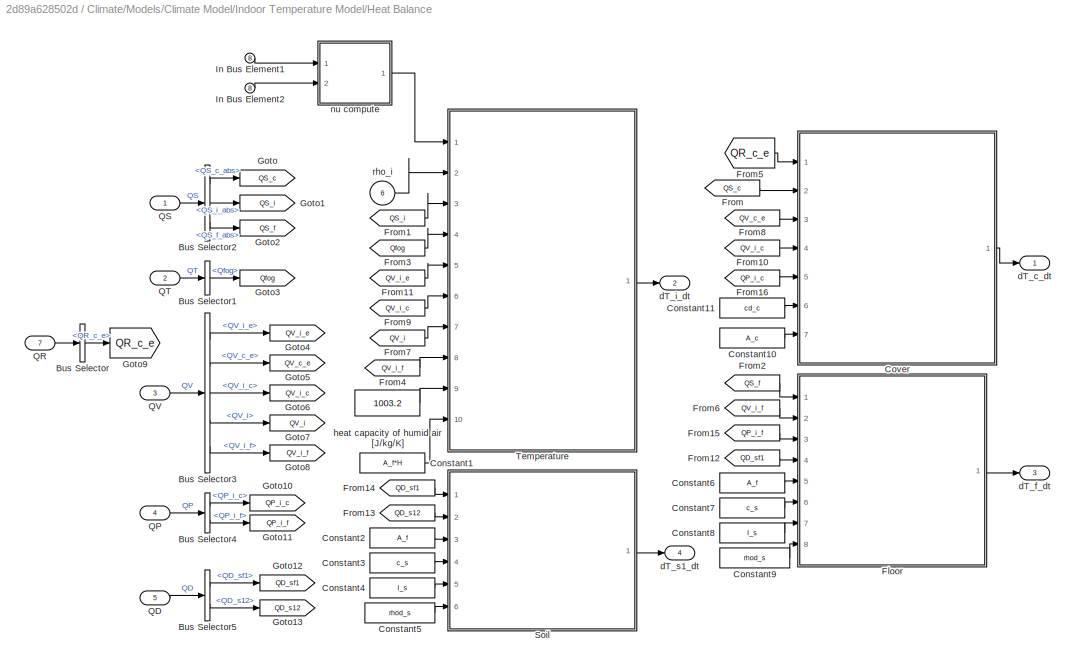
BLOCK [SubSystem] Climate/Models/Climate Model/Indoor Temperature Model/Heat Balance
  PortSchema = {"entries":[{"content":{"sides":[{"content":{"connectorIds":["In1","In2","In3","In4","In5"]},"type":"ConnectorPlacement.EquallySpacedRectSide","uuid":"ccfbb954-e9e7-4841-9dc1-a760315eb250"},{"content":{"connectorIds":["Out1","Out2","Out3","Out4"],"side":"RIGHT"},"type":"ConnectorPlacement.EquallySpacedRectSide","uuid":"e9754eb2-54ce-43cf-bf33-7cf2f1345c42"},{"content":{"connectorIds":["In6"],"side...<+445ch>
  Ports = [8, 4]
  RequestExecContextInheritance = off
BLOCK [SubSystem] Climate/Models/Climate Model/Indoor Temperature Model/Heat Balance/ Cover
  ErrorFcn = Stateflow.Translate.translate
  PermitHierarchicalResolution = ExplicitOnly
  Ports = [7, 1]
  RequestExecContextInheritance = off
  SFBlockType = MATLAB Function
  TreatAsAtomicUnit = on
BLOCK [Demux] Climate/Models/Climate Model/Indoor Temperature Model/Heat Balance/ Cover/ Demux 
  Outputs = 1
  Ports = [1, 1]
BLOCK [S-Function] Climate/Models/Climate Model/Indoor Temperature Model/Heat Balance/ Cover/ SFunction 
  EnableBusSupport = off
  FunctionName = sf_sfun
  PortCounts = [7 2]
  Ports = [7, 2]
  SFcnIsStateOwnerBlock = off
  SFunctionDeploymentMode = off
  Tag = Stateflow S-Function 4
BLOCK [Terminator] Climate/Models/Climate Model/Indoor Temperature Model/Heat Balance/ Cover/ Terminator 
BLOCK [Inport] Climate/Models/Climate Model/Indoor Temperature Model/Heat Balance/ Cover/A_c
  Port = 7
BLOCK [Inport] Climate/Models/Climate Model/Indoor Temperature Model/Heat Balance/ Cover/QP_i_c
  Port = 5
BLOCK [Inport] Climate/Models/Climate Model/Indoor Temperature Model/Heat Balance/ Cover/QR_c_e
BLOCK [Inport] Climate/Models/Climate Model/Indoor Temperature Model/Heat Balance/ Cover/QS_c
  Port = 2
BLOCK [Inport] Climate/Models/Climate Model/Indoor Temperature Model/Heat Balance/ Cover/QV_c_e
  Port = 3
BLOCK [Inport] Climate/Models/Climate Model/Indoor Temperature Model/Heat Balance/ Cover/QV_i_c
  Port = 4
BLOCK [Inport] Climate/Models/Climate Model/Indoor Temperature Model/Heat Balance/ Cover/cd_c
  Port = 6
BLOCK [Outport] Climate/Models/Climate Model/Indoor Temperature Model/Heat Balance/ Cover/dT_c_dt
BLOCK [SubSystem] Climate/Models/Climate Model/Indoor Temperature Model/Heat Balance/ Floor
  ErrorFcn = Stateflow.Translate.translate
  PermitHierarchicalResolution = ExplicitOnly
  Ports = [8, 1]
  RequestExecContextInheritance = off
  SFBlockType = MATLAB Function
  TreatAsAtomicUnit = on
BLOCK [Demux] Climate/Models/Climate Model/Indoor Temperature Model/Heat Balance/ Floor/ Demux 
  Outputs = 1
  Ports = [1, 1]
BLOCK [S-Function] Climate/Models/Climate Model/Indoor Temperature Model/Heat Balance/ Floor/ SFunction 
  EnableBusSupport = off
  FunctionName = sf_sfun
  PortCounts = [8 2]
  Ports = [8, 2]
  SFcnIsStateOwnerBlock = off
  SFunctionDeploymentMode = off
  Tag = Stateflow S-Function 5
BLOCK [Terminator] Climate/Models/Climate Model/Indoor Temperature Model/Heat Balance/ Floor/ Terminator 
BLOCK [Inport] Climate/Models/Climate Model/Indoor Temperature Model/Heat Balance/ Floor/A_f
  Port = 5
BLOCK [Inport] Climate/Models/Climate Model/Indoor Temperature Model/Heat Balance/ Floor/QD_sf1
  Port = 4
BLOCK [Inport] Climate/Models/Climate Model/Indoor Temperature Model/Heat Balance/ Floor/QP_i_f
  Port = 3
BLOCK [Inport] Climate/Models/Climate Model/Indoor Temperature Model/Heat Balance/ Floor/QS_f
BLOCK [Inport] Climate/Models/Climate Model/Indoor Temperature Model/Heat Balance/ Floor/QV_i_f
  Port = 2
BLOCK [Inport] Climate/Models/Climate Model/Indoor Temperature Model/Heat Balance/ Floor/c_s
  Port = 6
BLOCK [Outport] Climate/Models/Climate Model/Indoor Temperature Model/Heat Balance/ Floor/dT_f_dt
BLOCK [Inport] Climate/Models/Climate Model/Indoor Temperature Model/Heat Balance/ Floor/l_s
  Port = 7
BLOCK [Inport] Climate/Models/Climate Model/Indoor Temperature Model/Heat Balance/ Floor/rhod_s
  Port = 8
BLOCK [SubSystem] Climate/Models/Climate Model/Indoor Temperature Model/Heat Balance/ Soil
  ErrorFcn = Stateflow.Translate.translate
  PermitHierarchicalResolution = ExplicitOnly
  Ports = [6, 1]
  RequestExecContextInheritance = off
  SFBlockType = MATLAB Function
  TreatAsAtomicUnit = on
BLOCK [Demux] Climate/Models/Climate Model/Indoor Temperature Model/Heat Balance/ Soil/ Demux 
  Outputs = 1
  Ports = [1, 1]
BLOCK [S-Function] Climate/Models/Climate Model/Indoor Temperature Model/Heat Balance/ Soil/ SFunction 
  EnableBusSupport = off
  FunctionName = sf_sfun
  PortCounts = [6 2]
  Ports = [6, 2]
  SFcnIsStateOwnerBlock = off
  SFunctionDeploymentMode = off
  Tag = Stateflow S-Function 6
BLOCK [Terminator] Climate/Models/Climate Model/Indoor Temperature Model/Heat Balance/ Soil/ Terminator 
BLOCK [Inport] Climate/Models/Climate Model/Indoor Temperature Model/Heat Balance/ Soil/A_f
  Port = 3
BLOCK [Inport] Climate/Models/Climate Model/Indoor Temperature Model/Heat Balance/ Soil/QD_s12
  Port = 2
BLOCK [Inport] Climate/Models/Climate Model/Indoor Temperature Model/Heat Balance/ Soil/QD_sf1
BLOCK [Inport] Climate/Models/Climate Model/Indoor Temperature Model/Heat Balance/ Soil/c_s
  Port = 4
BLOCK [Outport] Climate/Models/Climate Model/Indoor Temperature Model/Heat Balance/ Soil/dT_s1_dt
BLOCK [Inport] Climate/Models/Climate Model/Indoor Temperature Model/Heat Balance/ Soil/l_s
  Port = 5
BLOCK [Inport] Climate/Models/Climate Model/Indoor Temperature Model/Heat Balance/ Soil/rhod_s
  Port = 6
BLOCK [SubSystem] Climate/Models/Climate Model/Indoor Temperature Model/Heat Balance/ Temperature
  ErrorFcn = Stateflow.Translate.translate
  PermitHierarchicalResolution = ExplicitOnly
  Ports = [10, 1]
  RequestExecContextInheritance = off
  SFBlockType = MATLAB Function
  TreatAsAtomicUnit = on
BLOCK [Demux] Climate/Models/Climate Model/Indoor Temperature Model/Heat Balance/ Temperature/ Demux 
  Outputs = 1
  Ports = [1, 1]
BLOCK [S-Function] Climate/Models/Climate Model/Indoor Temperature Model/Heat Balance/ Temperature/ SFunction 
  EnableBusSupport = off
  FunctionName = sf_sfun
  PortCounts = [10 2]
  Ports = [10, 2]
  SFcnIsStateOwnerBlock = off
  SFunctionDeploymentMode = off
  Tag = Stateflow S-Function 26
BLOCK [Terminator] Climate/Models/Climate Model/Indoor Temperature Model/Heat Balance/ Temperature/ Terminator 
BLOCK [Inport] Climate/Models/Climate Model/Indoor Temperature Model/Heat Balance/ Temperature/QS_i
  Port = 3
BLOCK [Inport] Climate/Models/Climate Model/Indoor Temperature Model/Heat Balance/ Temperature/QT_fog
  Port = 4
BLOCK [Inport] Climate/Models/Climate Model/Indoor Temperature Model/Heat Balance/ Temperature/QV_i
  Port = 7
BLOCK [Inport] Climate/Models/Climate Model/Indoor Temperature Model/Heat Balance/ Temperature/QV_i_c
  Port = 6
BLOCK [Inport] Climate/Models/Climate Model/Indoor Temperature Model/Heat Balance/ Temperature/QV_i_e
  Port = 5
BLOCK [Inport] Climate/Models/Climate Model/Indoor Temperature Model/Heat Balance/ Temperature/QV_i_f
  Port = 8
BLOCK [Inport] Climate/Models/Climate Model/Indoor Temperature Model/Heat Balance/ Temperature/V
  Port = 10
BLOCK [Inport] Climate/Models/Climate Model/Indoor Temperature Model/Heat Balance/ Temperature/c_i
  Port = 9
BLOCK [Outport] Climate/Models/Climate Model/Indoor Temperature Model/Heat Balance/ Temperature/dT_i_dt
BLOCK [Inport] Climate/Models/Climate Model/Indoor Temperature Model/Heat Balance/ Temperature/nu
BLOCK [Inport] Climate/Models/Climate Model/Indoor Temperature Model/Heat Balance/ Temperature/rho_i
  Port = 2
BLOCK [BusSelector] Climate/Models/Climate Model/Indoor Temperature Model/Heat Balance/Bus Selector
  OutputSignals = QR_c_e
  Ports = [1, 1]
BLOCK [BusSelector] Climate/Models/Climate Model/Indoor Temperature Model/Heat Balance/Bus Selector1
  OutputSignals = Qfog
  Ports = [1, 1]
BLOCK [BusSelector] Climate/Models/Climate Model/Indoor Temperature Model/Heat Balance/Bus Selector2
  OutputSignals = QS_c_abs,QS_i_abs,QS_f_abs
  Ports = [1, 3]
BLOCK [BusSelector] Climate/Models/Climate Model/Indoor Temperature Model/Heat Balance/Bus Selector3
  OutputSignals = QV_i_e,QV_c_e,QV_i_c,QV_i,QV_i_f
  Ports = [1, 5]
BLOCK [BusSelector] Climate/Models/Climate Model/Indoor Temperature Model/Heat Balance/Bus Selector4
  OutputSignals = QP_i_c,QP_i_f
  Ports = [1, 2]
BLOCK [BusSelector] Climate/Models/Climate Model/Indoor Temperature Model/Heat Balance/Bus Selector5
  OutputSignals = QD_sf1,QD_s12
  Ports = [1, 2]
BLOCK [Constant] Climate/Models/Climate Model/Indoor Temperature Model/Heat Balance/Constant1
  Value = A_f*H
BLOCK [Constant] Climate/Models/Climate Model/Indoor Temperature Model/Heat Balance/Constant10
  Value = A_c
BLOCK [Constant] Climate/Models/Climate Model/Indoor Temperature Model/Heat Balance/Constant11
  Value = cd_c
BLOCK [Constant] Climate/Models/Climate Model/Indoor Temperature Model/Heat Balance/Constant2
  Value = A_f
BLOCK [Constant] Climate/Models/Climate Model/Indoor Temperature Model/Heat Balance/Constant3
  Value = c_s
BLOCK [Constant] Climate/Models/Climate Model/Indoor Temperature Model/Heat Balance/Constant4
  Value = l_s
BLOCK [Constant] Climate/Models/Climate Model/Indoor Temperature Model/Heat Balance/Constant5
  Value = rhod_s
BLOCK [Constant] Climate/Models/Climate Model/Indoor Temperature Model/Heat Balance/Constant6
  Value = A_f
BLOCK [Constant] Climate/Models/Climate Model/Indoor Temperature Model/Heat Balance/Constant7
  Value = c_s
BLOCK [Constant] Climate/Models/Climate Model/Indoor Temperature Model/Heat Balance/Constant8
  Value = l_s
BLOCK [Constant] Climate/Models/Climate Model/Indoor Temperature Model/Heat Balance/Constant9
  Value = rhod_s
BLOCK [From] Climate/Models/Climate Model/Indoor Temperature Model/Heat Balance/From
  GotoTag = QS_c
BLOCK [From] Climate/Models/Climate Model/Indoor Temperature Model/Heat Balance/From1
  GotoTag = QS_i
BLOCK [From] Climate/Models/Climate Model/Indoor Temperature Model/Heat Balance/From10
  GotoTag = QV_i_c
BLOCK [From] Climate/Models/Climate Model/Indoor Temperature Model/Heat Balance/From11
  GotoTag = QV_i_e
BLOCK [From] Climate/Models/Climate Model/Indoor Temperature Model/Heat Balance/From12
  GotoTag = QD_sf1
BLOCK [From] Climate/Models/Climate Model/Indoor Temperature Model/Heat Balance/From13
  GotoTag = QD_s12
BLOCK [From] Climate/Models/Climate Model/Indoor Temperature Model/Heat Balance/From14
  GotoTag = QD_sf1
BLOCK [From] Climate/Models/Climate Model/Indoor Temperature Model/Heat Balance/From15
  GotoTag = QP_i_f
BLOCK [From] Climate/Models/Climate Model/Indoor Temperature Model/Heat Balance/From16
  GotoTag = QP_i_c
BLOCK [From] Climate/Models/Climate Model/Indoor Temperature Model/Heat Balance/From2
  GotoTag = QS_f
BLOCK [From] Climate/Models/Climate Model/Indoor Temperature Model/Heat Balance/From3
  GotoTag = Qfog
BLOCK [From] Climate/Models/Climate Model/Indoor Temperature Model/Heat Balance/From4
  GotoTag = QV_i_f
BLOCK [From] Climate/Models/Climate Model/Indoor Temperature Model/Heat Balance/From5
  GotoTag = QR_c_e
BLOCK [From] Climate/Models/Climate Model/Indoor Temperature Model/Heat Balance/From6
  GotoTag = QV_i_f
BLOCK [From] Climate/Models/Climate Model/Indoor Temperature Model/Heat Balance/From7
  GotoTag = QV_i
BLOCK [From] Climate/Models/Climate Model/Indoor Temperature Model/Heat Balance/From8
  GotoTag = QV_c_e
BLOCK [From] Climate/Models/Climate Model/Indoor Temperature Model/Heat Balance/From9
  GotoTag = QV_i_c
BLOCK [Goto] Climate/Models/Climate Model/Indoor Temperature Model/Heat Balance/Goto
  GotoTag = QS_c
BLOCK [Goto] Climate/Models/Climate Model/Indoor Temperature Model/Heat Balance/Goto1
  GotoTag = QS_i
BLOCK [Goto] Climate/Models/Climate Model/Indoor Temperature Model/Heat Balance/Goto10
  GotoTag = QP_i_c
BLOCK [Goto] Climate/Models/Climate Model/Indoor Temperature Model/Heat Balance/Goto11
  GotoTag = QP_i_f
BLOCK [Goto] Climate/Models/Climate Model/Indoor Temperature Model/Heat Balance/Goto12
  GotoTag = QD_sf1
BLOCK [Goto] Climate/Models/Climate Model/Indoor Temperature Model/Heat Balance/Goto13
  GotoTag = QD_s12
BLOCK [Goto] Climate/Models/Climate Model/Indoor Temperature Model/Heat Balance/Goto2
  GotoTag = QS_f
BLOCK [Goto] Climate/Models/Climate Model/Indoor Temperature Model/Heat Balance/Goto3
  GotoTag = Qfog
BLOCK [Goto] Climate/Models/Climate Model/Indoor Temperature Model/Heat Balance/Goto4
  GotoTag = QV_i_e
BLOCK [Goto] Climate/Models/Climate Model/Indoor Temperature Model/Heat Balance/Goto5
  GotoTag = QV_c_e
BLOCK [Goto] Climate/Models/Climate Model/Indoor Temperature Model/Heat Balance/Goto6
  GotoTag = QV_i_c
BLOCK [Goto] Climate/Models/Climate Model/Indoor Temperature Model/Heat Balance/Goto7
  GotoTag = QV_i
BLOCK [Goto] Climate/Models/Climate Model/Indoor Temperature Model/Heat Balance/Goto8
  GotoTag = QV_i_f
BLOCK [Goto] Climate/Models/Climate Model/Indoor Temperature Model/Heat Balance/Goto9
  GotoTag = QR_c_e
BLOCK [Inport] Climate/Models/Climate Model/Indoor Temperature Model/Heat Balance/In Bus Element1
  Port = 8
BLOCK [Inport] Climate/Models/Climate Model/Indoor Temperature Model/Heat Balance/In Bus Element2
  Port = 8
BLOCK [Inport] Climate/Models/Climate Model/Indoor Temperature Model/Heat Balance/QD
  Port = 5
BLOCK [Inport] Climate/Models/Climate Model/Indoor Temperature Model/Heat Balance/QP
  Port = 4
BLOCK [Inport] Climate/Models/Climate Model/Indoor Temperature Model/Heat Balance/QR
  Port = 7
BLOCK [Inport] Climate/Models/Climate Model/Indoor Temperature Model/Heat Balance/QS
BLOCK [Inport] Climate/Models/Climate Model/Indoor Temperature Model/Heat Balance/QT
  Port = 2
BLOCK [Inport] Climate/Models/Climate Model/Indoor Temperature Model/Heat Balance/QV
  Port = 3
BLOCK [Outport] Climate/Models/Climate Model/Indoor Temperature Model/Heat Balance/dT_c_dt
BLOCK [Outport] Climate/Models/Climate Model/Indoor Temperature Model/Heat Balance/dT_f_dt
  Port = 3
BLOCK [Outport] Climate/Models/Climate Model/Indoor Temperature Model/Heat Balance/dT_i_dt
  Port = 2
BLOCK [Outport] Climate/Models/Climate Model/Indoor Temperature Model/Heat Balance/dT_s1_dt
  Port = 4
BLOCK [Constant] Climate/Models/Climate Model/Indoor Temperature Model/Heat Balance/heat capacity of humid air [J//kg//K] 
  Value = 1003.2
BLOCK [SubSystem] Climate/Models/Climate Model/Indoor Temperature Model/Heat Balance/nu compute
  Ports = [2, 1]
  RequestExecContextInheritance = off
BLOCK [Constant] Climate/Models/Climate Model/Indoor Temperature Model/Heat Balance/nu compute/Constant
BLOCK [Gain] Climate/Models/Climate Model/Indoor Temperature Model/Heat Balance/nu compute/Gain
  Gain = 1/100
BLOCK [Inport] Climate/Models/Climate Model/Indoor Temperature Model/Heat Balance/nu compute/In1
BLOCK [Inport] Climate/Models/Climate Model/Indoor Temperature Model/Heat Balance/nu compute/In2
  Port = 2
BLOCK [Outport] Climate/Models/Climate Model/Indoor Temperature Model/Heat Balance/nu compute/Out1
BLOCK [Product] Climate/Models/Climate Model/Indoor Temperature Model/Heat Balance/nu compute/Product
  Ports = [2, 1]
BLOCK [Scope] Climate/Models/Climate Model/Indoor Temperature Model/Heat Balance/nu compute/Scope
  Floating = off
  NumInputPorts = 1
  Ports = [1]
  ScopeSpecificationString = Simulink.scopes.TimeScopeBlockCfg('CurrentConfiguration', extmgr.ConfigurationSet(extmgr.Configuration('Core','General UI',true),extmgr.Configuration('Core','Source UI',true),extmgr.Configuration('Sources','WiredSimulink',true),extmgr.Configuration('Visuals','Time Domain',true,'SerializedDisplays',{struct('MinYLimReal','-55.25','MaxYLimReal','507.25','YLabelReal','','MinYLimMag','0.00000','MaxYLim...<+1341ch>
BLOCK [Sum] Climate/Models/Climate Model/Indoor Temperature Model/Heat Balance/nu compute/Sum
  Inputs = |++
  Ports = [2, 1]
BLOCK [Inport] Climate/Models/Climate Model/Indoor Temperature Model/Heat Balance/rho_i
  Port = 6
BLOCK [Inport] Climate/Models/Climate Model/Indoor Temperature Model/In Bus Element
  NameLocation = left
  Port = 3
BLOCK [Inport] Climate/Models/Climate Model/Indoor Temperature Model/In Bus Element1
  Port = 3
BLOCK [Inport] Climate/Models/Climate Model/Indoor Temperature Model/In Bus Element10
  NameLocation = left
  Port = 6
BLOCK [Inport] Climate/Models/Climate Model/Indoor Temperature Model/In Bus Element11
  NameLocation = left
  Port = 6
BLOCK [Inport] Climate/Models/Climate Model/Indoor Temperature Model/In Bus Element2
  Port = 2
BLOCK [Inport] Climate/Models/Climate Model/Indoor Temperature Model/In Bus Element3
  NameLocation = left
  Port = 6
BLOCK [Inport] Climate/Models/Climate Model/Indoor Temperature Model/In Bus Element4
  Port = 2
BLOCK [Inport] Climate/Models/Climate Model/Indoor Temperature Model/In Bus Element5
  Port = 2
BLOCK [Inport] Climate/Models/Climate Model/Indoor Temperature Model/In Bus Element6
  NameLocation = left
  Port = 6
BLOCK [Inport] Climate/Models/Climate Model/Indoor Temperature Model/In Bus Element7
  NameLocation = left
  Port = 6
BLOCK [Inport] Climate/Models/Climate Model/Indoor Temperature Model/In Bus Element8
  Port = 2
BLOCK [Inport] Climate/Models/Climate Model/Indoor Temperature Model/In Bus Element9
  Port = 3
BLOCK [Outport] Climate/Models/Climate Model/Indoor Temperature Model/Indoor Climate
BLOCK [Integrator] Climate/Models/Climate Model/Indoor Temperature Model/Integrator
  AbsoluteTolerance = 0.01
  InitialCondition = T0
  Ports = [1, 1]
BLOCK [Gain] Climate/Models/Climate Model/Indoor Temperature Model/Mass2Heat
  Gain = 2437000
BLOCK [Outport] Climate/Models/Climate Model/Indoor Temperature Model/QD
  Port = 6
BLOCK [Outport] Climate/Models/Climate Model/Indoor Temperature Model/QR
  Port = 8
BLOCK [Outport] Climate/Models/Climate Model/Indoor Temperature Model/QV
  Port = 7
BLOCK [SubSystem] Climate/Models/Climate Model/Indoor Temperature Model/Radiation Model
  PortSchema = {"entries":[{"content":{"sides":[{"content":{"connectorIds":["In1","In2"]},"type":"ConnectorPlacement.EquallySpacedRectSide","uuid":"cb5a2538-07d5-409a-bc47-ac7157db0ef4"},{"content":{"connectorIds":["Out1"],"side":"RIGHT"},"type":"ConnectorPlacement.EquallySpacedRectSide","uuid":"7dfe2e6f-8ee6-45c0-8502-080571e1b483"},{"content":{"connectorIds":["In3"],"side":"TOP"},"type":"ConnectorPlacement.Equ...<+251ch>
  Ports = [3, 1]
  RequestExecContextInheritance = off
BLOCK [SubSystem] Climate/Models/Climate Model/Indoor Temperature Model/Radiation Model/1-\alpha
  PortSchema = {"entries":[{"content":{"sides":[{"content":{"connectorIds":[]},"type":"ConnectorPlacement.EquallySpacedRectSide","uuid":"bf116baa-1c91-42ba-b5ce-6949a5122443"},{"content":{"connectorIds":["Out1"],"side":"RIGHT"},"type":"ConnectorPlacement.EquallySpacedRectSide","uuid":"479b2a41-aae8-4d0f-95ce-40d0c52850dd"},{"content":{"connectorIds":["In1"],"side":"TOP"},"type":"ConnectorPlacement.EquallySpacedR...<+240ch>
  Ports = [1, 1]
  RequestExecContextInheritance = off
BLOCK [Constant] Climate/Models/Climate Model/Indoor Temperature Model/Radiation Model/1-\alpha/Constant6
BLOCK [Inport] Climate/Models/Climate Model/Indoor Temperature Model/Radiation Model/1-\alpha/In1
BLOCK [Sum] Climate/Models/Climate Model/Indoor Temperature Model/Radiation Model/1-\alpha/Minus
  IconShape = rectangular
  Inputs = +-
  Ports = [2, 1]
BLOCK [Outport] Climate/Models/Climate Model/Indoor Temperature Model/Radiation Model/1-\alpha/Out1
BLOCK [Inport] Climate/Models/Climate Model/Indoor Temperature Model/Radiation Model/Area
  Port = 3
BLOCK [BusCreator] Climate/Models/Climate Model/Indoor Temperature Model/Radiation Model/Bus Creator
  DisplayOption = bar
  InheritFromInputs = on
  Inputs = 5
  Ports = [5, 1]
BLOCK [Constant] Climate/Models/Climate Model/Indoor Temperature Model/Radiation Model/Constant
  Value = alpha_f
BLOCK [Constant] Climate/Models/Climate Model/Indoor Temperature Model/Radiation Model/Constant1
  Value = alpha_c
BLOCK [Constant] Climate/Models/Climate Model/Indoor Temperature Model/Radiation Model/Constant2
  Value = tau_c
BLOCK [Constant] Climate/Models/Climate Model/Indoor Temperature Model/Radiation Model/Constant3
  Value = alpha_i
BLOCK [Constant] Climate/Models/Climate Model/Indoor Temperature Model/Radiation Model/Constant4
  Value = A_f
BLOCK [Constant] Climate/Models/Climate Model/Indoor Temperature Model/Radiation Model/Constant5
  Value = A_f
BLOCK [Constant] Climate/Models/Climate Model/Indoor Temperature Model/Radiation Model/Constant6
  Value = 20
BLOCK [Constant] Climate/Models/Climate Model/Indoor Temperature Model/Radiation Model/Constant7
  Value = A_f
BLOCK [Constant] Climate/Models/Climate Model/Indoor Temperature Model/Radiation Model/Constant8
  Value = 20
BLOCK [Product] Climate/Models/Climate Model/Indoor Temperature Model/Radiation Model/Divide
  Inputs = *//
  Ports = [3, 1]
BLOCK [Inport] Climate/Models/Climate Model/Indoor Temperature Model/Radiation Model/Exterior Radiation
  Port = 2
BLOCK [From] Climate/Models/Climate Model/Indoor Temperature Model/Radiation Model/From
  GotoTag = QS_f
BLOCK [From] Climate/Models/Climate Model/Indoor Temperature Model/Radiation Model/From1
  GotoTag = QS_i
BLOCK [From] Climate/Models/Climate Model/Indoor Temperature Model/Radiation Model/From2
  GotoTag = QS_c
BLOCK [From] Climate/Models/Climate Model/Indoor Temperature Model/Radiation Model/From3
  GotoTag = R_i
BLOCK [From] Climate/Models/Climate Model/Indoor Temperature Model/Radiation Model/From4
  GotoTag = QS_tot
BLOCK [Goto] Climate/Models/Climate Model/Indoor Temperature Model/Radiation Model/Goto
  GotoTag = QS_c
BLOCK [Goto] Climate/Models/Climate Model/Indoor Temperature Model/Radiation Model/Goto1
  GotoTag = QS_i
BLOCK [Goto] Climate/Models/Climate Model/Indoor Temperature Model/Radiation Model/Goto2
  GotoTag = QS_f
BLOCK [Goto] Climate/Models/Climate Model/Indoor Temperature Model/Radiation Model/Goto3
  GotoTag = R_i
BLOCK [Goto] Climate/Models/Climate Model/Indoor Temperature Model/Radiation Model/Goto4
  GotoTag = QS_tot
BLOCK [Inport] Climate/Models/Climate Model/Indoor Temperature Model/Radiation Model/In Bus Element
BLOCK [Inport] Climate/Models/Climate Model/Indoor Temperature Model/Radiation Model/In Bus Element1
BLOCK [Product] Climate/Models/Climate Model/Indoor Temperature Model/Radiation Model/Product
  Inputs = 3
  Ports = [3, 1]
BLOCK [Product] Climate/Models/Climate Model/Indoor Temperature Model/Radiation Model/Product1
  Ports = [2, 1]
BLOCK [Product] Climate/Models/Climate Model/Indoor Temperature Model/Radiation Model/Product2
  Ports = [2, 1]
BLOCK [Product] Climate/Models/Climate Model/Indoor Temperature Model/Radiation Model/Product3
  Ports = [2, 1]
BLOCK [Product] Climate/Models/Climate Model/Indoor Temperature Model/Radiation Model/Product4
  Ports = [2, 1]
BLOCK [Product] Climate/Models/Climate Model/Indoor Temperature Model/Radiation Model/Product5
  Ports = [2, 1]
BLOCK [Outport] Climate/Models/Climate Model/Indoor Temperature Model/Radiation Model/Solar Energy  
BLOCK [SubSystem] Climate/Models/Climate Model/Indoor Temperature Model/Radiation Model/Subsystem
  Ports = [4, 1]
  RequestExecContextInheritance = off
BLOCK [Inport] Climate/Models/Climate Model/Indoor Temperature Model/Radiation Model/Subsystem/A_f
BLOCK [Product] Climate/Models/Climate Model/Indoor Temperature Model/Radiation Model/Subsystem/Divide
  Inputs = */**
  Ports = [4, 1]
BLOCK [Inport] Climate/Models/Climate Model/Indoor Temperature Model/Radiation Model/Subsystem/In2
  Port = 2
BLOCK [Sum] Climate/Models/Climate Model/Indoor Temperature Model/Radiation Model/Subsystem/Minus
  IconShape = rectangular
  Inputs = +-
  Ports = [2, 1]
BLOCK [Outport] Climate/Models/Climate Model/Indoor Temperature Model/Radiation Model/Subsystem/Out1
BLOCK [Inport] Climate/Models/Climate Model/Indoor Temperature Model/Radiation Model/Subsystem/QS_i_tr
  Port = 4
BLOCK [Inport] Climate/Models/Climate Model/Indoor Temperature Model/Radiation Model/Subsystem/alpha_f
  Port = 3
BLOCK [SubSystem] Climate/Models/Climate Model/Indoor Temperature Model/Radiation Model/tau_screen
  Ports = [2, 1]
  RequestExecContextInheritance = off
BLOCK [Constant] Climate/Models/Climate Model/Indoor Temperature Model/Radiation Model/tau_screen/Constant3
BLOCK [Product] Climate/Models/Climate Model/Indoor Temperature Model/Radiation Model/tau_screen/Divide
  Inputs = **
  Ports = [2, 1]
BLOCK [Gain] Climate/Models/Climate Model/Indoor Temperature Model/Radiation Model/tau_screen/Gain
  Gain = 1/100
BLOCK [Sum] Climate/Models/Climate Model/Indoor Temperature Model/Radiation Model/tau_screen/Minus
  IconShape = rectangular
  Inputs = +-
  Ports = [2, 1]
BLOCK [Outport] Climate/Models/Climate Model/Indoor Temperature Model/Radiation Model/tau_screen/Out1
BLOCK [Inport] Climate/Models/Climate Model/Indoor Temperature Model/Radiation Model/tau_screen/gamma
BLOCK [Inport] Climate/Models/Climate Model/Indoor Temperature Model/Radiation Model/tau_screen/screen
  Port = 2
BLOCK [Inport] Climate/Models/Climate Model/Indoor Temperature Model/Screen
  NameLocation = top
  Port = 5
BLOCK [Gain] Climate/Models/Climate Model/Indoor Temperature Model/Sec2Days
  Gain = 24*3600
BLOCK [Outport] Climate/Models/Climate Model/Indoor Temperature Model/Solar Energy
  Port = 5
BLOCK [SubSystem] Climate/Models/Climate Model/Indoor Temperature Model/Subsystem
  Ports = [2, 1]
  RequestExecContextInheritance = off
BLOCK [Constant] Climate/Models/Climate Model/Indoor Temperature Model/Subsystem/ Stefan-Boltzmann constant [W//m^2//K^4] 
  Value = 5.67e-8
BLOCK [BusCreator] Climate/Models/Climate Model/Indoor Temperature Model/Subsystem/Bus Creator
  DisplayOption = bar
  InheritFromInputs = on
  Inputs = 1
  Ports = [1, 1]
BLOCK [Constant] Climate/Models/Climate Model/Indoor Temperature Model/Subsystem/Constant
  Value = 4
BLOCK [Constant] Climate/Models/Climate Model/Indoor Temperature Model/Subsystem/Constant1
  Value = 4
BLOCK [Constant] Climate/Models/Climate Model/Indoor Temperature Model/Subsystem/Constant2
  Value = A_c
BLOCK [Sum] Climate/Models/Climate Model/Indoor Temperature Model/Subsystem/Minus
  IconShape = rectangular
  Inputs = +-
  Ports = [2, 1]
BLOCK [Product] Climate/Models/Climate Model/Indoor Temperature Model/Subsystem/Product
  Inputs = 4
  Ports = [4, 1]
BLOCK [Outport] Climate/Models/Climate Model/Indoor Temperature Model/Subsystem/QR
BLOCK [Math] Climate/Models/Climate Model/Indoor Temperature Model/Subsystem/Square
  Operator = pow
  Ports = [2, 1]
BLOCK [Math] Climate/Models/Climate Model/Indoor Temperature Model/Subsystem/Square1
  Operator = pow
  Ports = [2, 1]
BLOCK [Inport] Climate/Models/Climate Model/Indoor Temperature Model/Subsystem/Tc
BLOCK [Inport] Climate/Models/Climate Model/Indoor Temperature Model/Subsystem/Te
  Port = 2
BLOCK [Constant] Climate/Models/Climate Model/Indoor Temperature Model/Subsystem/k
  Value = 0.985
BLOCK [Outport] Climate/Models/Climate Model/Indoor Temperature Model/Transpiration Heat
  NameLocation = left
  Port = 2
BLOCK [Concatenate] Climate/Models/Climate Model/Indoor Temperature Model/Vector Concatenate
  NumInputs = 4
  Ports = [4, 1]
BLOCK [Outport] Climate/Models/Climate Model/Indoor Temperature Model/Ventilation Rate
  Port = 3
BLOCK [Inport] Climate/Models/Climate Model/Indoor Temperature Model/Windows
BLOCK [Outport] Climate/Models/Climate Model/Out Bus Element
BLOCK [Outport] Climate/Models/Climate Model/Out Bus Element1
BLOCK [Outport] Climate/Models/Climate Model/Out Bus Element2
BLOCK [Outport] Climate/Models/Climate Model/Out Bus Element3
BLOCK [Outport] Climate/Models/Climate Model/Out Bus Element4
BLOCK [Outport] Climate/Models/Climate Model/Out Bus Element5
BLOCK [Outport] Climate/Models/Climate Model/Out Bus Element6
BLOCK [Outport] Climate/Models/Climate Model/Out Bus Element7
BLOCK [SubSystem] Climate/Models/Climate Model/Subsystem
  NameLocation = left
  PortSchema = {"entries":[{"content":{"sides":[{"content":{"connectorIds":[]},"type":"ConnectorPlacement.EquallySpacedRectSide","uuid":"35868875-f783-4ad4-af7a-8ba6d23e35d0"},{"content":{"connectorIds":["Out1"],"side":"RIGHT"},"type":"ConnectorPlacement.EquallySpacedRectSide","uuid":"2025d12d-e021-4399-bfe6-d7037c727539"},{"content":{"connectorIds":[],"side":"TOP"},"type":"ConnectorPlacement.EquallySpacedRectSi...<+384ch>
  Ports = [1, 1]
  RequestExecContextInheritance = off
BLOCK [BusCreator] Climate/Models/Climate Model/Subsystem/Bus Creator3
  DisplayOption = bar
  InheritFromInputs = on
  Inputs = 4
  NameLocation = left
  Ports = [4, 1]
BLOCK [BusSelector] Climate/Models/Climate Model/Subsystem/Bus Selector
  NameLocation = left
  OutputSignals = C_w,rho_i,C_w_sat_T_c,C_w_sat_T_f
  Ports = [1, 4]
BLOCK [Inport] Climate/Models/Climate Model/Subsystem/Gas
BLOCK [Outport] Climate/Models/Climate Model/Subsystem/Out1
BLOCK [SubSystem] Climate/Models/Example of External Climate
  Ports = [0, 1]
  RequestExecContextInheritance = off
BLOCK [BusCreator] Climate/Models/Example of External Climate/Bus Creator
  DisplayOption = bar
  InheritFromInputs = on
  Inputs = 5
  Ports = [5, 1]
BLOCK [Constant] Climate/Models/Example of External Climate/Constant
  Value = 440
BLOCK [Demux] Climate/Models/Example of External Climate/Demux
  Ports = [1, 4]
BLOCK [Outport] Climate/Models/Example of External Climate/EC
BLOCK [FromFile] Climate/Models/Example of External Climate/From File
  FileName = HMP_climate_structure_7.3
  SampleTime = 0
BLOCK [SubSystem] Horticulture
  Ports = []
  RequestExecContextInheritance = off
BLOCK [SubSystem] Horticulture/Controls
  Ports = []
  RequestExecContextInheritance = off
BLOCK [SubSystem] Horticulture/Controls/Ferrtirrigation Controler
  Ports = [1, 2]
  RequestExecContextInheritance = off
BLOCK [BusCreator] Horticulture/Controls/Ferrtirrigation Controler/Bus Creator
  DisplayOption = bar
  InheritFromInputs = on
  Inputs = 3
  NonVirtualBus = on
  OutDataTypeStr = Bus: FLOW
  Ports = [3, 1]
BLOCK [Inport] Horticulture/Controls/Ferrtirrigation Controler/IC
BLOCK [Outport] Horticulture/Controls/Ferrtirrigation Controler/Info
  Port = 2
BLOCK [Outport] Horticulture/Controls/Ferrtirrigation Controler/Irrigation
BLOCK [SubSystem] Horticulture/Controls/Ferrtirrigation Controler/Irrigation Controler
  Ports = [1, 2]
  RequestExecContextInheritance = off
BLOCK [Gain] Horticulture/Controls/Ferrtirrigation Controler/Irrigation Controler/ 
  Gain = IrrigationFlow
BLOCK [BusCreator] Horticulture/Controls/Ferrtirrigation Controler/Irrigation Controler/Bus Creator
  DisplayOption = bar
  InheritFromInputs = on
  Inputs = 6
  Ports = [6, 1]
BLOCK [BusSelector] Horticulture/Controls/Ferrtirrigation Controler/Irrigation Controler/Bus Selector
  OutputSignals = QS.R_int
  Ports = [1, 1]
BLOCK [Clock] Horticulture/Controls/Ferrtirrigation Controler/Irrigation Controler/Clock
BLOCK [Constant] Horticulture/Controls/Ferrtirrigation Controler/Irrigation Controler/Constant
  Value = hour0
BLOCK [Gain] Horticulture/Controls/Ferrtirrigation Controler/Irrigation Controler/Gain
  Gain = 24*3600
BLOCK [Inport] Horticulture/Controls/Ferrtirrigation Controler/Irrigation Controler/In1
BLOCK [Integrator] Horticulture/Controls/Ferrtirrigation Controler/Irrigation Controler/Integrator
  ExternalReset = rising
  Ports = [2, 1]
BLOCK [Outport] Horticulture/Controls/Ferrtirrigation Controler/Irrigation Controler/Irrigation
BLOCK [Sum] Horticulture/Controls/Ferrtirrigation Controler/Irrigation Controler/Minus
  IconShape = rectangular
  Ports = [2, 1]
BLOCK [Outport] Horticulture/Controls/Ferrtirrigation Controler/Irrigation Controler/Out1
  Port = 2
BLOCK [Product] Horticulture/Controls/Ferrtirrigation Controler/Irrigation Controler/Product
  Ports = [2, 1]
BLOCK [DiscretePulseGenerator] Horticulture/Controls/Ferrtirrigation Controler/Irrigation Controler/Pulse Generator
  Period = 1
  PhaseDelay = hour0
  Ports = [0, 1]
  PulseType = Time based
  PulseWidth = 5
BLOCK [DiscretePulseGenerator] Horticulture/Controls/Ferrtirrigation Controler/Irrigation Controler/Pulse Generator1
  Period = 1
  PhaseDelay = hour0  - 1/24
  Ports = [0, 1]
  PulseType = Time based
  PulseWidth = 5
BLOCK [DiscretePulseGenerator] Horticulture/Controls/Ferrtirrigation Controler/Irrigation Controler/Pulse Generator2
  Period = 1/24
  PhaseDelay = hour0
  Ports = [0, 1]
  PulseType = Time based
  PulseWidth = percent_irrigation
BLOCK [SubSystem] Horticulture/Controls/Ferrtirrigation Controler/Irrigation Controler/Subsystem1
  Ports = [2, 3]
  RequestExecContextInheritance = off
BLOCK [Constant] Horticulture/Controls/Ferrtirrigation Controler/Irrigation Controler/Subsystem1/Constant
  Value = -24
BLOCK [Gain] Horticulture/Controls/Ferrtirrigation Controler/Irrigation Controler/Subsystem1/Gain
  Gain = 2*pi
BLOCK [Integrator] Horticulture/Controls/Ferrtirrigation Controler/Irrigation Controler/Subsystem1/Integrator
  ExternalReset = rising
  InitialConditionSource = external
  Ports = [3, 1]
BLOCK [Outport] Horticulture/Controls/Ferrtirrigation Controler/Irrigation Controler/Subsystem1/Out1
BLOCK [Scope] Horticulture/Controls/Ferrtirrigation Controler/Irrigation Controler/Subsystem1/Scope
  Floating = off
  NumInputPorts = 2
  Ports = [2]
  ScopeSpecificationString = Simulink.scopes.TimeScopeBlockCfg('CurrentConfiguration', extmgr.ConfigurationSet(extmgr.Configuration('Core','General UI',true),extmgr.Configuration('Core','Source UI',true),extmgr.Configuration('Sources','WiredSimulink',true,'DataLoggingVariableName','ScopeData2'),extmgr.Configuration('Visuals','Time Domain',true,'SerializedDisplays',{struct('MinYLimReal','-26.23591','MaxYLimReal','6.12323','YLa...<+2035ch>
BLOCK [Trigonometry] Horticulture/Controls/Ferrtirrigation Controler/Irrigation Controler/Subsystem1/Sin
  Ports = [1, 1]
BLOCK [SubSystem] Horticulture/Controls/Ferrtirrigation Controler/Irrigation Controler/Subsystem1/Subsystem
  Ports = [1, 1]
  RequestExecContextInheritance = off
BLOCK [Constant] Horticulture/Controls/Ferrtirrigation Controler/Irrigation Controler/Subsystem1/Subsystem/Constant
  Value = 0.5
BLOCK [Gain] Horticulture/Controls/Ferrtirrigation Controler/Irrigation Controler/Subsystem1/Subsystem/Gain
  Gain = 0.5
BLOCK [Inport] Horticulture/Controls/Ferrtirrigation Controler/Irrigation Controler/Subsystem1/Subsystem/In1
BLOCK [Outport] Horticulture/Controls/Ferrtirrigation Controler/Irrigation Controler/Subsystem1/Subsystem/Out1
BLOCK [Signum] Horticulture/Controls/Ferrtirrigation Controler/Irrigation Controler/Subsystem1/Subsystem/Sign
BLOCK [Sum] Horticulture/Controls/Ferrtirrigation Controler/Irrigation Controler/Subsystem1/Subsystem/Sum
  Inputs = |++
  Ports = [2, 1]
BLOCK [Outport] Horticulture/Controls/Ferrtirrigation Controler/Irrigation Controler/Subsystem1/int
  Port = 3
BLOCK [Outport] Horticulture/Controls/Ferrtirrigation Controler/Irrigation Controler/Subsystem1/sin
  Port = 2
BLOCK [Inport] Horticulture/Controls/Ferrtirrigation Controler/Irrigation Controler/Subsystem1/time
BLOCK [Inport] Horticulture/Controls/Ferrtirrigation Controler/Irrigation Controler/Subsystem1/value
  Port = 2
BLOCK [SubSystem] Horticulture/Controls/Ferrtirrigation Controler/Irrigation Controler/Triggered Subsystem
  Ports = [1, 1, 0, 1]
  RequestExecContextInheritance = off
  TreatAsAtomicUnit = on
BLOCK [Inport] Horticulture/Controls/Ferrtirrigation Controler/Irrigation Controler/Triggered Subsystem/In1
BLOCK [Outport] Horticulture/Controls/Ferrtirrigation Controler/Irrigation Controler/Triggered Subsystem/Out1
BLOCK [TriggerPort] Horticulture/Controls/Ferrtirrigation Controler/Irrigation Controler/Triggered Subsystem/Trigger
  Ports = []
  StatesWhenEnabling = held
  VariantControl = (inherit)
BLOCK [Gain] Horticulture/Controls/Ferrtirrigation Controler/Irrigation Controler/hours//J
  Gain = Irrigation_jules_to_hours
BLOCK [Constant] Horticulture/Controls/Ferrtirrigation Controler/[Kelvin]
  Value = 273.15 + 10
BLOCK [Constant] Horticulture/Controls/Ferrtirrigation Controler/kg//m^3
  Value = Xnutrients
BLOCK [SubSystem] Horticulture/Controls/Prune Policy
  Ports = [1, 1]
  RequestExecContextInheritance = off
BLOCK [BusSelector] Horticulture/Controls/Prune Policy/Bus Selector
  OutputSignals = LAI
  Ports = [1, 1]
BLOCK [Constant] Horticulture/Controls/Prune Policy/Constant
  Value = 5
BLOCK [Constant] Horticulture/Controls/Prune Policy/Constant1
  Value = 0
BLOCK [Inport] Horticulture/Controls/Prune Policy/Crop
BLOCK [Gain] Horticulture/Controls/Prune Policy/Gain
  Gain = 0.01/(3600*24)
BLOCK [MinMax] Horticulture/Controls/Prune Policy/Min
  Function = max
  Inputs = 2
  Ports = [2, 1]
  ZeroCross = off
BLOCK [Sum] Horticulture/Controls/Prune Policy/Minus
  IconShape = rectangular
  Inputs = -+
  Ports = [2, 1]
BLOCK [Outport] Horticulture/Controls/Prune Policy/Prune
BLOCK [SubSystem] Horticulture/Models
  Ports = []
  RequestExecContextInheritance = off
BLOCK [SubSystem] Horticulture/Models/Crop Grow
  PortSchema = {"entries":[{"content":{"sides":[{"content":{"connectorIds":["In1"]},"type":"ConnectorPlacement.EquallySpacedRectSide","uuid":"7d52d4c6-bc72-40ae-ba7a-fef791f60555"},{"content":{"connectorIds":["Out1"],"side":"RIGHT"},"type":"ConnectorPlacement.EquallySpacedRectSide","uuid":"3a9c2840-361d-4677-a7cc-c5f954b33f07"},{"content":{"connectorIds":["In2","In3"],"side":"TOP"},"type":"ConnectorPlacement.Equ...<+395ch>
  Ports = [3, 1]
  RequestExecContextInheritance = off
BLOCK [SubSystem] Horticulture/Models/Crop Grow/Air Convection
  Ports = [4, 2]
  RequestExecContextInheritance = off
BLOCK [SubSystem] Horticulture/Models/Crop Grow/Air Convection/ Temperature
  ErrorFcn = Stateflow.Translate.translate
  PermitHierarchicalResolution = ExplicitOnly
  Ports = [6, 1]
  RequestExecContextInheritance = off
  SFBlockType = MATLAB Function
  TreatAsAtomicUnit = on
BLOCK [Demux] Horticulture/Models/Crop Grow/Air Convection/ Temperature/ Demux 
  Outputs = 1
  Ports = [1, 1]
BLOCK [S-Function] Horticulture/Models/Crop Grow/Air Convection/ Temperature/ SFunction 
  EnableBusSupport = off
  FunctionName = sf_sfun
  PortCounts = [6 2]
  Ports = [6, 2]
  SFcnIsStateOwnerBlock = off
  SFunctionDeploymentMode = off
  Tag = Stateflow S-Function 17
BLOCK [Terminator] Horticulture/Models/Crop Grow/Air Convection/ Temperature/ Terminator 
BLOCK [Inport] Horticulture/Models/Crop Grow/Air Convection/ Temperature/A_v
  Port = 4
BLOCK [Inport] Horticulture/Models/Crop Grow/Air Convection/ Temperature/LAI
  Port = 5
BLOCK [Inport] Horticulture/Models/Crop Grow/Air Convection/ Temperature/QS_v_VIS
BLOCK [Inport] Horticulture/Models/Crop Grow/Air Convection/ Temperature/QT_v_i
  Port = 2
BLOCK [Inport] Horticulture/Models/Crop Grow/Air Convection/ Temperature/QV_v_i
  Port = 3
BLOCK [Outport] Horticulture/Models/Crop Grow/Air Convection/ Temperature/dT_v_dt
BLOCK [Inport] Horticulture/Models/Crop Grow/Air Convection/ Temperature/msd_v
  Port = 6
BLOCK [Inport] Horticulture/Models/Crop Grow/Air Convection/<LAI>
  Port = 4
BLOCK [BusCreator] Horticulture/Models/Crop Grow/Air Convection/Bus Creator
  DisplayOption = bar
  InheritFromInputs = on
  Inputs = 5
  Ports = [5, 1]
BLOCK [Constant] Horticulture/Models/Crop Grow/Air Convection/Constant
  Value = A_v
BLOCK [From] Horticulture/Models/Crop Grow/Air Convection/From
  GotoTag = Tv
BLOCK [From] Horticulture/Models/Crop Grow/Air Convection/From1
  GotoTag = Tv_mu
BLOCK [From] Horticulture/Models/Crop Grow/Air Convection/From2
  GotoTag = QV_v_i
BLOCK [From] Horticulture/Models/Crop Grow/Air Convection/From3
  GotoTag = QT_v_i
BLOCK [From] Horticulture/Models/Crop Grow/Air Convection/From4
  GotoTag = QS_i
BLOCK [Gain] Horticulture/Models/Crop Grow/Air Convection/Gain1
  Gain = 24*3600
BLOCK [Goto] Horticulture/Models/Crop Grow/Air Convection/Goto
  GotoTag = Tv
BLOCK [Goto] Horticulture/Models/Crop Grow/Air Convection/Goto1
  GotoTag = Tv_mu
BLOCK [Goto] Horticulture/Models/Crop Grow/Air Convection/Goto2
  GotoTag = QV_v_i
BLOCK [Goto] Horticulture/Models/Crop Grow/Air Convection/Goto3
  GotoTag = QT_v_i
BLOCK [Goto] Horticulture/Models/Crop Grow/Air Convection/Goto4
  GotoTag = QS_i
BLOCK [Outport] Horticulture/Models/Crop Grow/Air Convection/HV
BLOCK [Outport] Horticulture/Models/Crop Grow/Air Convection/HeatVars
  Port = 2
BLOCK [Sum] Horticulture/Models/Crop Grow/Air Convection/Minus
  IconShape = rectangular
  Inputs = +-
  Ports = [2, 1]
BLOCK [Inport] Horticulture/Models/Crop Grow/Air Convection/QS_v_VIS
BLOCK [Inport] Horticulture/Models/Crop Grow/Air Convection/QT_v_i
  Port = 2
BLOCK [SubSystem] Horticulture/Models/Crop Grow/Air Convection/Subsystem
  PortSchema = {"entries":[{"content":{"sides":[{"content":{"connectorIds":["In1","In2"]},"type":"ConnectorPlacement.EquallySpacedRectSide","uuid":"4a223777-4148-4e71-aff8-25d93471e208"},{"content":{"connectorIds":["Out1","Out2"],"side":"RIGHT"},"type":"ConnectorPlacement.EquallySpacedRectSide","uuid":"f67a472e-d82a-4194-8a1d-cf4d17d79652"},{"content":{"connectorIds":[],"side":"TOP"},"type":"ConnectorPlacement.E...<+402ch>
  Ports = [3, 2]
  RequestExecContextInheritance = off
BLOCK [Constant] Horticulture/Models/Crop Grow/Air Convection/Subsystem/ characteristic leaf length [m]
  Value = 0.5
BLOCK [Constant] Horticulture/Models/Crop Grow/Air Convection/Subsystem/ characteristic leaf length [m]1
  Value = 0.5
BLOCK [Constant] Horticulture/Models/Crop Grow/Air Convection/Subsystem/Constant
  Value = A_v
BLOCK [Constant] Horticulture/Models/Crop Grow/Air Convection/Subsystem/Constant3
  Value = int_air_speed
BLOCK [SubSystem] Horticulture/Models/Crop Grow/Air Convection/Subsystem/Convection1
  ErrorFcn = Stateflow.Translate.translate
  NameLocation = top
  PermitHierarchicalResolution = ExplicitOnly
  Ports = [6, 2]
  RequestExecContextInheritance = off
  SFBlockType = MATLAB Function
  TreatAsAtomicUnit = on
BLOCK [Demux] Horticulture/Models/Crop Grow/Air Convection/Subsystem/Convection1/ Demux 
  Outputs = 1
  Ports = [1, 1]
BLOCK [S-Function] Horticulture/Models/Crop Grow/Air Convection/Subsystem/Convection1/ SFunction 
  EnableBusSupport = off
  FunctionName = sf_sfun
  PortCounts = [6 3]
  Ports = [6, 3]
  SFcnIsStateOwnerBlock = off
  SFunctionDeploymentMode = off
  Tag = Stateflow S-Function 18
BLOCK [Terminator] Horticulture/Models/Crop Grow/Air Convection/Subsystem/Convection1/ Terminator 
BLOCK [Inport] Horticulture/Models/Crop Grow/Air Convection/Subsystem/Convection1/A_v
  Port = 5
BLOCK [Outport] Horticulture/Models/Crop Grow/Air Convection/Subsystem/Convection1/HV
  Port = 2
BLOCK [Inport] Horticulture/Models/Crop Grow/Air Convection/Subsystem/Convection1/LAI
  Port = 4
BLOCK [Inport] Horticulture/Models/Crop Grow/Air Convection/Subsystem/Convection1/Nu
  Port = 2
BLOCK [Outport] Horticulture/Models/Crop Grow/Air Convection/Subsystem/Convection1/QV_v_i
BLOCK [Inport] Horticulture/Models/Crop Grow/Air Convection/Subsystem/Convection1/T_i
BLOCK [Inport] Horticulture/Models/Crop Grow/Air Convection/Subsystem/Convection1/T_v
  Port = 3
BLOCK [Inport] Horticulture/Models/Crop Grow/Air Convection/Subsystem/Convection1/d_v
  Port = 6
BLOCK [From] Horticulture/Models/Crop Grow/Air Convection/Subsystem/From2
  GotoTag = T_i
BLOCK [From] Horticulture/Models/Crop Grow/Air Convection/Subsystem/From3
  GotoTag = T_v
BLOCK [From] Horticulture/Models/Crop Grow/Air Convection/Subsystem/From4
  GotoTag = T_v
BLOCK [From] Horticulture/Models/Crop Grow/Air Convection/Subsystem/From5
  GotoTag = T_i
BLOCK [Goto] Horticulture/Models/Crop Grow/Air Convection/Subsystem/Goto
  GotoTag = T_i
BLOCK [Goto] Horticulture/Models/Crop Grow/Air Convection/Subsystem/Goto1
  GotoTag = T_v
BLOCK [Outport] Horticulture/Models/Crop Grow/Air Convection/Subsystem/HV
  Port = 2
BLOCK [Inport] Horticulture/Models/Crop Grow/Air Convection/Subsystem/LAI
  Port = 2
BLOCK [Outport] Horticulture/Models/Crop Grow/Air Convection/Subsystem/QV_v_i
BLOCK [SubSystem] Horticulture/Models/Crop Grow/Air Convection/Subsystem/Raynols
  ErrorFcn = Stateflow.Translate.translate
  NameLocation = top
  PermitHierarchicalResolution = ExplicitOnly
  Ports = [4, 1]
  RequestExecContextInheritance = off
  SFBlockType = MATLAB Function
  TreatAsAtomicUnit = on
BLOCK [Demux] Horticulture/Models/Crop Grow/Air Convection/Subsystem/Raynols/ Demux 
  Outputs = 1
  Ports = [1, 1]
BLOCK [S-Function] Horticulture/Models/Crop Grow/Air Convection/Subsystem/Raynols/ SFunction 
  EnableBusSupport = off
  FunctionName = sf_sfun
  PortCounts = [4 2]
  Ports = [4, 2]
  SFcnIsStateOwnerBlock = off
  SFunctionDeploymentMode = off
  Tag = Stateflow S-Function 20
BLOCK [Terminator] Horticulture/Models/Crop Grow/Air Convection/Subsystem/Raynols/ Terminator 
BLOCK [Outport] Horticulture/Models/Crop Grow/Air Convection/Subsystem/Raynols/Nu
BLOCK [Inport] Horticulture/Models/Crop Grow/Air Convection/Subsystem/Raynols/T_i
BLOCK [Inport] Horticulture/Models/Crop Grow/Air Convection/Subsystem/Raynols/T_v
  Port = 2
BLOCK [Inport] Horticulture/Models/Crop Grow/Air Convection/Subsystem/Raynols/d_v
  Port = 3
BLOCK [Inport] Horticulture/Models/Crop Grow/Air Convection/Subsystem/Raynols/int_air_speed
  Port = 4
BLOCK [Inport] Horticulture/Models/Crop Grow/Air Convection/Subsystem/T_i
BLOCK [Inport] Horticulture/Models/Crop Grow/Air Convection/Subsystem/T_v
  Port = 3
BLOCK [Inport] Horticulture/Models/Crop Grow/Air Convection/T_i
  Port = 3
BLOCK [Integrator] Horticulture/Models/Crop Grow/Air Convection/Tv
  AbsoluteTolerance = 0.01
  InitialCondition = Tv
  Ports = [1, 1]
BLOCK [Integrator] Horticulture/Models/Crop Grow/Air Convection/Tv_mean
  AbsoluteTolerance = 0.01
  InitialCondition = Tv
  Ports = [1, 1]
BLOCK [Constant] Horticulture/Models/Crop Grow/Air Convection/surface density [kg//m^2]
  Value = 1.326
BLOCK [BusCreator] Horticulture/Models/Crop Grow/Bus Creator
  DisplayOption = bar
  InheritFromInputs = on
  Inputs = 2
  Ports = [2, 1]
BLOCK [BusCreator] Horticulture/Models/Crop Grow/Bus Creator1
  DisplayOption = bar
  InheritFromInputs = on
  Inputs = 2
  Ports = [2, 1]
BLOCK [BusCreator] Horticulture/Models/Crop Grow/Bus Creator2
  DisplayOption = bar
  InheritFromInputs = on
  Inputs = 2
  Ports = [2, 1]
BLOCK [BusCreator] Horticulture/Models/Crop Grow/Bus Creator3
  DisplayOption = bar
  InheritFromInputs = on
  Inputs = 3
  NameLocation = top
  Ports = [3, 1]
BLOCK [BusSelector] Horticulture/Models/Crop Grow/Bus Selector
  OutputSignals = LAI
  Ports = [1, 1]
BLOCK [BusSelector] Horticulture/Models/Crop Grow/Bus Selector1
  OutputSignals = Tveg
  Ports = [1, 1]
BLOCK [BusSelector] Horticulture/Models/Crop Grow/Bus Selector2
  OutputSignals = WaterPercent,LAI
  Ports = [1, 2]
BLOCK [BusSelector] Horticulture/Models/Crop Grow/Bus Selector3
  OutputSignals = Tveg,TvegMean
  Ports = [1, 2]
BLOCK [Constant] Horticulture/Models/Crop Grow/Constant
  Value = A_v
BLOCK [Constant] Horticulture/Models/Crop Grow/Constant2
  Value = A_v
BLOCK [Outport] Horticulture/Models/Crop Grow/Crop
BLOCK [SubSystem] Horticulture/Models/Crop Grow/Crop Growth
  PortSchema = {"entries":[{"content":{"sides":[{"content":{"connectorIds":["In1","In2","In3","In4"]},"type":"ConnectorPlacement.EquallySpacedRectSide","uuid":"e694206d-cf53-43ea-b790-8b83ac78aa3a"},{"content":{"connectorIds":["Out1","Out2","Out3","Out4"],"side":"RIGHT"},"type":"ConnectorPlacement.EquallySpacedRectSide","uuid":"93817abb-865a-4529-a53b-9aa59cd1156c"},{"content":{"connectorIds":["In5","In6","In7"]...<+445ch>
  Ports = [8, 4]
  RequestExecContextInheritance = off
BLOCK [BusCreator] Horticulture/Models/Crop Grow/Crop Growth/Bus Creator
  DisplayOption = bar
  InheritFromInputs = on
  Inputs = 5
  Ports = [5, 1]
BLOCK [Outport] Horticulture/Models/Crop Grow/Crop Growth/Carbon Comp   
  NameLocation = right
BLOCK [Outport] Horticulture/Models/Crop Grow/Crop Growth/Crop
  Port = 2
BLOCK [Inport] Horticulture/Models/Crop Grow/Crop Growth/CropBus
  Port = 7
BLOCK [From] Horticulture/Models/Crop Grow/Crop Growth/From
  GotoTag = SS
BLOCK [From] Horticulture/Models/Crop Grow/Crop Growth/From1
  GotoTag = SS
BLOCK [From] Horticulture/Models/Crop Grow/Crop Growth/From2
  GotoTag = SS
BLOCK [From] Horticulture/Models/Crop Grow/Crop Growth/From3
  GotoTag = SS
  NameLocation = left
BLOCK [Gain] Horticulture/Models/Crop Grow/Crop Growth/Gain2
  Gain = 24*3600
BLOCK [Gain] Horticulture/Models/Crop Grow/Crop Growth/Gain3
  Gain = 24*3600
BLOCK [Gain] Horticulture/Models/Crop Grow/Crop Growth/Gain4
  Gain = 24*3600
BLOCK [Inport] Horticulture/Models/Crop Grow/Crop Growth/Gas
BLOCK [Goto] Horticulture/Models/Crop Grow/Crop Growth/Goto
  GotoTag = SS
BLOCK [SubSystem] Horticulture/Models/Crop Grow/Crop Growth/Growth model
  PortSchema = {"entries":[{"content":{"sides":[{"content":{"connectorIds":["In1","In2","In3","In4","In5"]},"type":"ConnectorPlacement.EquallySpacedRectSide","uuid":"524d3e03-5719-41db-bf49-dcf5dd5869ab"},{"content":{"connectorIds":["Out1","Out2","Out3","Out4","Out5"],"side":"RIGHT"},"type":"ConnectorPlacement.EquallySpacedRectSide","uuid":"b6ee0c40-6a76-4355-a893-3d13d29f29ea"},{"content":{"connectorIds":["In6"...<+318ch>
  Ports = [6, 8]
  RequestExecContextInheritance = off
BLOCK [Constant] Horticulture/Models/Crop Grow/Crop Growth/Growth model/0ºC
  Value = 273.15
BLOCK [Outport] Horticulture/Models/Crop Grow/Crop Growth/Growth model/Carbon Comp   
  Port = 6
BLOCK [Inport] Horticulture/Models/Crop Grow/Crop Growth/Growth model/Crop
  Port = 4
BLOCK [From] Horticulture/Models/Crop Grow/Crop Growth/Growth model/From
  GotoTag = crop
BLOCK [From] Horticulture/Models/Crop Grow/Crop Growth/Growth model/From1
  GotoTag = crop
BLOCK [From] Horticulture/Models/Crop Grow/Crop Growth/Growth model/From2
  GotoTag = crop
BLOCK [From] Horticulture/Models/Crop Grow/Crop Growth/Growth model/From3
  GotoTag = crop
BLOCK [From] Horticulture/Models/Crop Grow/Crop Growth/Growth model/From4
  GotoTag = crop
BLOCK [Gain] Horticulture/Models/Crop Grow/Crop Growth/Growth model/Gain
  Gain = 1/86400
BLOCK [Goto] Horticulture/Models/Crop Grow/Crop Growth/Growth model/Goto
  GotoTag = crop
BLOCK [SubSystem] Horticulture/Models/Crop Grow/Crop Growth/Growth model/Growth Organs
  NameLocation = top
  PortSchema = {"entries":[{"content":{"sides":[{"content":{"connectorIds":["In1","In2","In3"]},"type":"ConnectorPlacement.EquallySpacedRectSide","uuid":"7ed23e67-f8bd-49ca-8750-2aec234a11ce"},{"content":{"connectorIds":["In5"],"side":"RIGHT"},"type":"ConnectorPlacement.EquallySpacedRectSide","uuid":"f57cc0dd-0cae-4ca4-a753-4e977147df3f"},{"content":{"connectorIds":[],"side":"TOP"},"type":"ConnectorPlacement.Equ...<+407ch>
  Ports = [5, 1]
  RequestExecContextInheritance = off
BLOCK [BusCreator] Horticulture/Models/Crop Grow/Crop Growth/Growth model/Growth Organs/Bus Creator
  DisplayOption = bar
  InheritFromInputs = on
  Inputs = 4
  Ports = [4, 1]
BLOCK [BusSelector] Horticulture/Models/Crop Grow/Crop Growth/Growth model/Growth Organs/Bus Selector
  OutputSignals = MC_buf_i,MC_fruit_i,MC_leaf_i,MC_stem_i
  Ports = [1, 4]
BLOCK [BusSelector] Horticulture/Models/Crop Grow/Crop Growth/Growth model/Growth Organs/Bus Selector1
  OutputSignals = MC_buf_fruit,MC_buf_leaf,MC_buf_stem
  Ports = [1, 3]
BLOCK [SubSystem] Horticulture/Models/Crop Grow/Crop Growth/Growth model/Growth Organs/Derivatives
  ErrorFcn = Stateflow.Translate.translate
  PermitHierarchicalResolution = ExplicitOnly
  Ports = [10, 4]
  RequestExecContextInheritance = off
  SFBlockType = MATLAB Function
  TreatAsAtomicUnit = on
BLOCK [Demux] Horticulture/Models/Crop Grow/Crop Growth/Growth model/Growth Organs/Derivatives/ Demux 
  Outputs = 1
  Ports = [1, 1]
BLOCK [S-Function] Horticulture/Models/Crop Grow/Crop Growth/Growth model/Growth Organs/Derivatives/ SFunction 
  EnableBusSupport = off
  FunctionName = sf_sfun
  PortCounts = [10 5]
  Ports = [10, 5]
  SFcnIsStateOwnerBlock = off
  SFunctionDeploymentMode = off
  Tag = Stateflow S-Function 22
BLOCK [Terminator] Horticulture/Models/Crop Grow/Crop Growth/Growth model/Growth Organs/Derivatives/ Terminator 
BLOCK [Inport] Horticulture/Models/Crop Grow/Crop Growth/Growth model/Growth Organs/Derivatives/MC_buf_fruit
  Port = 2
BLOCK [Inport] Horticulture/Models/Crop Grow/Crop Growth/Growth model/Growth Organs/Derivatives/MC_buf_leaf
  Port = 3
BLOCK [Inport] Horticulture/Models/Crop Grow/Crop Growth/Growth model/Growth Organs/Derivatives/MC_buf_stem
  Port = 4
BLOCK [Inport] Horticulture/Models/Crop Grow/Crop Growth/Growth model/Growth Organs/Derivatives/MC_buff_i
  Port = 5
BLOCK [Inport] Horticulture/Models/Crop Grow/Crop Growth/Growth model/Growth Organs/Derivatives/MC_fruit_i
  Port = 6
BLOCK [Inport] Horticulture/Models/Crop Grow/Crop Growth/Growth model/Growth Organs/Derivatives/MC_i_buf
BLOCK [Inport] Horticulture/Models/Crop Grow/Crop Growth/Growth model/Growth Organs/Derivatives/MC_leaf_i
  Port = 7
BLOCK [Inport] Horticulture/Models/Crop Grow/Crop Growth/Growth model/Growth Organs/Derivatives/MC_leaf_prune
  Port = 9
BLOCK [Inport] Horticulture/Models/Crop Grow/Crop Growth/Growth model/Growth Organs/Derivatives/MC_stem_i
  Port = 8
BLOCK [Outport] Horticulture/Models/Crop Grow/Crop Growth/Growth model/Growth Organs/Derivatives/dC_buff_dt
BLOCK [Outport] Horticulture/Models/Crop Grow/Crop Growth/Growth model/Growth Organs/Derivatives/dC_fruit_dt
  Port = 2
BLOCK [Outport] Horticulture/Models/Crop Grow/Crop Growth/Growth model/Growth Organs/Derivatives/dC_leaf_dt
  Port = 3
BLOCK [Outport] Horticulture/Models/Crop Grow/Crop Growth/Growth model/Growth Organs/Derivatives/dC_stem_dt
  Port = 4
BLOCK [Inport] Horticulture/Models/Crop Grow/Crop Growth/Growth model/Growth Organs/Derivatives/harvest
  Port = 10
BLOCK [From] Horticulture/Models/Crop Grow/Crop Growth/Growth model/Growth Organs/From
  GotoTag = s_i
BLOCK [From] Horticulture/Models/Crop Grow/Crop Growth/Growth model/Growth Organs/From1
  GotoTag = l_i
BLOCK [From] Horticulture/Models/Crop Grow/Crop Growth/Growth model/Growth Organs/From2
  GotoTag = f_i
BLOCK [From] Horticulture/Models/Crop Grow/Crop Growth/Growth model/Growth Organs/From3
  GotoTag = Buff_i
BLOCK [From] Horticulture/Models/Crop Grow/Crop Growth/Growth model/Growth Organs/From4
  GotoTag = Buff_s
BLOCK [From] Horticulture/Models/Crop Grow/Crop Growth/Growth model/Growth Organs/From5
  GotoTag = Buff_l
BLOCK [From] Horticulture/Models/Crop Grow/Crop Growth/Growth model/Growth Organs/From6
  GotoTag = Buff_f
BLOCK [Goto] Horticulture/Models/Crop Grow/Crop Growth/Growth model/Growth Organs/Goto
  GotoTag = Buff_i
BLOCK [Goto] Horticulture/Models/Crop Grow/Crop Growth/Growth model/Growth Organs/Goto1
  GotoTag = f_i
BLOCK [Goto] Horticulture/Models/Crop Grow/Crop Growth/Growth model/Growth Organs/Goto2
  GotoTag = l_i
BLOCK [Goto] Horticulture/Models/Crop Grow/Crop Growth/Growth model/Growth Organs/Goto3
  GotoTag = s_i
BLOCK [Goto] Horticulture/Models/Crop Grow/Crop Growth/Growth model/Growth Organs/Goto4
  GotoTag = Buff_f
BLOCK [Goto] Horticulture/Models/Crop Grow/Crop Growth/Growth model/Growth Organs/Goto5
  GotoTag = Buff_l
BLOCK [Goto] Horticulture/Models/Crop Grow/Crop Growth/Growth model/Growth Organs/Goto6
  GotoTag = Buff_s
BLOCK [Inport] Horticulture/Models/Crop Grow/Crop Growth/Growth model/Growth Organs/MC_gro
  Port = 2
BLOCK [Inport] Horticulture/Models/Crop Grow/Crop Growth/Growth model/Growth Organs/MC_photo
BLOCK [Inport] Horticulture/Models/Crop Grow/Crop Growth/Growth model/Growth Organs/MC_prune
  Port = 4
BLOCK [Inport] Horticulture/Models/Crop Grow/Crop Growth/Growth model/Growth Organs/MC_resp
  Port = 3
BLOCK [Outport] Horticulture/Models/Crop Grow/Crop Growth/Growth model/Growth Organs/dCdt
BLOCK [Inport] Horticulture/Models/Crop Grow/Crop Growth/Growth model/Growth Organs/harvest
  Port = 5
BLOCK [Inport] Horticulture/Models/Crop Grow/Crop Growth/Growth model/In Bus Element
  Port = 5
BLOCK [Inport] Horticulture/Models/Crop Grow/Crop Growth/Growth model/In Bus Element1
  Port = 5
BLOCK [Inport] Horticulture/Models/Crop Grow/Crop Growth/Growth model/In Bus Element2
  Port = 5
BLOCK [Inport] Horticulture/Models/Crop Grow/Crop Growth/Growth model/In Bus Element3
  Port = 5
BLOCK [Inport] Horticulture/Models/Crop Grow/Crop Growth/Growth model/In Bus Element4
  Port = 5
BLOCK [Inport] Horticulture/Models/Crop Grow/Crop Growth/Growth model/In Bus Element5
  NameLocation = left
BLOCK [Inport] Horticulture/Models/Crop Grow/Crop Growth/Growth model/In Bus Element6
  NameLocation = left
BLOCK [Outport] Horticulture/Models/Crop Grow/Crop Growth/Growth model/MC_gro
  NameLocation = left
  Port = 5
BLOCK [Inport] Horticulture/Models/Crop Grow/Crop Growth/Growth model/MC_leaf_prune
  Port = 3
BLOCK [Sum] Horticulture/Models/Crop Grow/Crop Growth/Growth model/Minus
  IconShape = rectangular
  Inputs = +-
  Ports = [2, 1]
BLOCK [SubSystem] Horticulture/Models/Crop Grow/Crop Growth/Growth model/Nutrient Demand
  Ports = [1, 1]
  RequestExecContextInheritance = off
BLOCK [BusSelector] Horticulture/Models/Crop Grow/Crop Growth/Growth model/Nutrient Demand/Bus Selector
  OutputSignals = Carbon.Cfruit,Carbon.Cleaf,Carbon.Cstem,Nutrients.Mass
  Ports = [1, 4]
BLOCK [Constant] Horticulture/Models/Crop Grow/Crop Growth/Growth model/Nutrient Demand/Constant
  Value = zeros(8,1)
  VectorParams1D = off
BLOCK [Inport] Horticulture/Models/Crop Grow/Crop Growth/Growth model/Nutrient Demand/Crop
BLOCK [From] Horticulture/Models/Crop Grow/Crop Growth/Growth model/Nutrient Demand/From
  GotoTag = chi_opt
BLOCK [Gain] Horticulture/Models/Crop Grow/Crop Growth/Growth model/Nutrient Demand/Gain
  Gain = Chi_nutrients
BLOCK [Gain] Horticulture/Models/Crop Grow/Crop Growth/Growth model/Nutrient Demand/Gain1
  Gain = VelocityAbsortion
BLOCK [Gain] Horticulture/Models/Crop Grow/Crop Growth/Growth model/Nutrient Demand/Gain2
  Gain = 0
BLOCK [Goto] Horticulture/Models/Crop Grow/Crop Growth/Growth model/Nutrient Demand/Goto
  GotoTag = chi_opt
BLOCK [Sum] Horticulture/Models/Crop Grow/Crop Growth/Growth model/Nutrient Demand/Minus
  IconShape = rectangular
  Inputs = +-
  Ports = [2, 1]
BLOCK [Sum] Horticulture/Models/Crop Grow/Crop Growth/Growth model/Nutrient Demand/Sum
  Inputs = |++
  Ports = [2, 1]
BLOCK [Sum] Horticulture/Models/Crop Grow/Crop Growth/Growth model/Nutrient Demand/Sum of Elements1
  IconShape = rectangular
  Inputs = +++
  Ports = [3, 1]
BLOCK [Outport] Horticulture/Models/Crop Grow/Crop Growth/Growth model/Nutrient Demand/dNdt
BLOCK [SubSystem] Horticulture/Models/Crop Grow/Crop Growth/Growth model/Photosynthesis
  PortSchema = {"entries":[{"content":{"sides":[{"content":{"connectorIds":["In1","In2"]},"type":"ConnectorPlacement.EquallySpacedRectSide","uuid":"5b7a12d1-e704-4d87-b94c-50c3f7e76c3e"},{"content":{"connectorIds":["Out1","Out2"],"side":"RIGHT"},"type":"ConnectorPlacement.EquallySpacedRectSide","uuid":"e5762904-c2a4-4288-9297-1f99c7dcb7bb"},{"content":{"connectorIds":["In3","In4","In5"],"side":"TOP"},"type":"Con...<+270ch>
  Ports = [5, 2]
  RequestExecContextInheritance = off
BLOCK [Inport] Horticulture/Models/Crop Grow/Crop Growth/Growth model/Photosynthesis/ T_v
  Port = 2
BLOCK [BusCreator] Horticulture/Models/Crop Grow/Crop Growth/Growth model/Photosynthesis/Bus Creator
  DisplayOption = bar
  InheritFromInputs = on
  Inputs = 7
  Ports = [7, 1]
BLOCK [BusSelector] Horticulture/Models/Crop Grow/Crop Growth/Growth model/Photosynthesis/Bus Selector1
  OutputSignals = Carbon.Cbuff,LAI,WaterPercent
  Ports = [1, 3]
BLOCK [Inport] Horticulture/Models/Crop Grow/Crop Growth/Growth model/Photosynthesis/C_c 
  Port = 3
BLOCK [Constant] Horticulture/Models/Crop Grow/Crop Growth/Growth model/Photosynthesis/Constant1
  Value = A_v
BLOCK [Constant] Horticulture/Models/Crop Grow/Crop Growth/Growth model/Photosynthesis/Constant2
  Value = C_buf_max
BLOCK [Constant] Horticulture/Models/Crop Grow/Crop Growth/Growth model/Photosynthesis/Constant3
  Value = 0.1
BLOCK [Inport] Horticulture/Models/Crop Grow/Crop Growth/Growth model/Photosynthesis/Crop
BLOCK [From] Horticulture/Models/Crop Grow/Crop Growth/Growth model/Photosynthesis/From
  GotoTag = CBuff
BLOCK [From] Horticulture/Models/Crop Grow/Crop Growth/Growth model/Photosynthesis/From1
  GotoTag = LAI
BLOCK [From] Horticulture/Models/Crop Grow/Crop Growth/Growth model/Photosynthesis/From2
  GotoTag = LAI
BLOCK [From] Horticulture/Models/Crop Grow/Crop Growth/Growth model/Photosynthesis/From3
  GotoTag = WP
BLOCK [Goto] Horticulture/Models/Crop Grow/Crop Growth/Growth model/Photosynthesis/Goto
  GotoTag = CBuff
BLOCK [Goto] Horticulture/Models/Crop Grow/Crop Growth/Growth model/Photosynthesis/Goto1
  GotoTag = LAI
BLOCK [Goto] Horticulture/Models/Crop Grow/Crop Growth/Growth model/Photosynthesis/Goto2
  GotoTag = WP
BLOCK [SubSystem] Horticulture/Models/Crop Grow/Crop Growth/Growth model/Photosynthesis/MATLAB Function
  ErrorFcn = Stateflow.Translate.translate
  PermitHierarchicalResolution = ExplicitOnly
  Ports = [2, 1]
  RequestExecContextInheritance = off
  SFBlockType = MATLAB Function
  TreatAsAtomicUnit = on
BLOCK [Demux] Horticulture/Models/Crop Grow/Crop Growth/Growth model/Photosynthesis/MATLAB Function/ Demux 
  Outputs = 1
  Ports = [1, 1]
BLOCK [S-Function] Horticulture/Models/Crop Grow/Crop Growth/Growth model/Photosynthesis/MATLAB Function/ SFunction 
  EnableBusSupport = off
  FunctionName = sf_sfun
  PortCounts = [2 2]
  Ports = [2, 2]
  SFcnIsStateOwnerBlock = off
  SFunctionDeploymentMode = off
  Tag = Stateflow S-Function 23
BLOCK [Terminator] Horticulture/Models/Crop Grow/Crop Growth/Growth model/Photosynthesis/MATLAB Function/ Terminator 
BLOCK [Outport] Horticulture/Models/Crop Grow/Crop Growth/Growth model/Photosynthesis/MATLAB Function/Gamma
BLOCK [Inport] Horticulture/Models/Crop Grow/Crop Growth/Growth model/Photosynthesis/MATLAB Function/LAI
  Port = 2
BLOCK [Inport] Horticulture/Models/Crop Grow/Crop Growth/Growth model/Photosynthesis/MATLAB Function/T_v
BLOCK [Outport] Horticulture/Models/Crop Grow/Crop Growth/Growth model/Photosynthesis/MC_photo
BLOCK [Sum] Horticulture/Models/Crop Grow/Crop Growth/Growth model/Photosynthesis/Minus
  IconShape = rectangular
  Inputs = -+
  Ports = [2, 1]
BLOCK [Sum] Horticulture/Models/Crop Grow/Crop Growth/Growth model/Photosynthesis/Minus1
  IconShape = rectangular
  Inputs = +-
  Ports = [2, 1]
BLOCK [SubSystem] Horticulture/Models/Crop Grow/Crop Growth/Growth model/Photosynthesis/Photosyntesis
  ErrorFcn = Stateflow.Translate.translate
  PermitHierarchicalResolution = ExplicitOnly
  Ports = [7, 7]
  RequestExecContextInheritance = off
  SFBlockType = MATLAB Function
  TreatAsAtomicUnit = on
BLOCK [Demux] Horticulture/Models/Crop Grow/Crop Growth/Growth model/Photosynthesis/Photosyntesis/ Demux 
  Outputs = 1
  Ports = [1, 1]
BLOCK [S-Function] Horticulture/Models/Crop Grow/Crop Growth/Growth model/Photosynthesis/Photosyntesis/ SFunction 
  EnableBusSupport = off
  FunctionName = sf_sfun
  PortCounts = [7 8]
  Ports = [7, 8]
  SFcnIsStateOwnerBlock = off
  SFunctionDeploymentMode = off
  Tag = Stateflow S-Function 24
BLOCK [Terminator] Horticulture/Models/Crop Grow/Crop Growth/Growth model/Photosynthesis/Photosyntesis/ Terminator 
BLOCK [Inport] Horticulture/Models/Crop Grow/Crop Growth/Growth model/Photosynthesis/Photosyntesis/A_v
  Port = 7
BLOCK [Inport] Horticulture/Models/Crop Grow/Crop Growth/Growth model/Photosynthesis/Photosyntesis/C_c
  Port = 3
BLOCK [Outport] Horticulture/Models/Crop Grow/Crop Growth/Growth model/Photosynthesis/Photosyntesis/C_stom
  Port = 5
BLOCK [Inport] Horticulture/Models/Crop Grow/Crop Growth/Growth model/Photosynthesis/Photosyntesis/Gamma
  Port = 6
BLOCK [Outport] Horticulture/Models/Crop Grow/Crop Growth/Growth model/Photosynthesis/Photosyntesis/J
  Port = 7
BLOCK [Outport] Horticulture/Models/Crop Grow/Crop Growth/Growth model/Photosynthesis/Photosyntesis/J_pot
  Port = 6
BLOCK [Inport] Horticulture/Models/Crop Grow/Crop Growth/Growth model/Photosynthesis/Photosyntesis/LAI
  Port = 2
BLOCK [Outport] Horticulture/Models/Crop Grow/Crop Growth/Growth model/Photosynthesis/Photosyntesis/MC_i_buf
BLOCK [Outport] Horticulture/Models/Crop Grow/Crop Growth/Growth model/Photosynthesis/Photosyntesis/P
  Port = 3
BLOCK [Outport] Horticulture/Models/Crop Grow/Crop Growth/Growth model/Photosynthesis/Photosyntesis/PAR
  Port = 2
BLOCK [Inport] Horticulture/Models/Crop Grow/Crop Growth/Growth model/Photosynthesis/Photosyntesis/QS_v_VIS
BLOCK [Outport] Horticulture/Models/Crop Grow/Crop Growth/Growth model/Photosynthesis/Photosyntesis/Resp
  Port = 4
BLOCK [Inport] Horticulture/Models/Crop Grow/Crop Growth/Growth model/Photosynthesis/Photosyntesis/T_v
  Port = 5
BLOCK [Inport] Horticulture/Models/Crop Grow/Crop Growth/Growth model/Photosynthesis/Photosyntesis/rho_i
  Port = 4
BLOCK [Product] Horticulture/Models/Crop Grow/Crop Growth/Growth model/Photosynthesis/Product
  Inputs = 3
  Ports = [3, 1]
BLOCK [Inport] Horticulture/Models/Crop Grow/Crop Growth/Growth model/Photosynthesis/QS_v_VIS
  Port = 5
BLOCK [Scope] Horticulture/Models/Crop Grow/Crop Growth/Growth model/Photosynthesis/Scope
  Floating = off
  NumInputPorts = 1
  Ports = [1]
  ScopeSpecificationString = Simulink.scopes.TimeScopeBlockCfg('CurrentConfiguration', extmgr.ConfigurationSet(extmgr.Configuration('Core','General UI',true),extmgr.Configuration('Core','Source UI',true),extmgr.Configuration('Sources','WiredSimulink',true,'DataLoggingVariableName','ScopeData2'),extmgr.Configuration('Visuals','Time Domain',true,'SerializedDisplays',{struct('MinYLimReal','0.05934','MaxYLimReal','1.10438','YLabe...<+1358ch>
BLOCK [Scope] Horticulture/Models/Crop Grow/Crop Growth/Growth model/Photosynthesis/Scope1
  Floating = off
  NumInputPorts = 1
  Ports = [1]
  ScopeSpecificationString = Simulink.scopes.TimeScopeBlockCfg('CurrentConfiguration', extmgr.ConfigurationSet(extmgr.Configuration('Core','General UI',true),extmgr.Configuration('Core','Source UI',true),extmgr.Configuration('Sources','WiredSimulink',true,'DataLoggingVariableName','ScopeData3'),extmgr.Configuration('Visuals','Time Domain',true,'SerializedDisplays',{struct('MinYLimReal','-605.05421','MaxYLimReal','5455.20793',...<+1440ch>
BLOCK [Scope] Horticulture/Models/Crop Grow/Crop Growth/Growth model/Photosynthesis/Scope2
  Floating = off
  NumInputPorts = 2
  Ports = [2]
  ScopeSpecificationString = Simulink.scopes.TimeScopeBlockCfg('CurrentConfiguration', extmgr.ConfigurationSet(extmgr.Configuration('Core','General UI',true),extmgr.Configuration('Core','Source UI',true),extmgr.Configuration('Sources','WiredSimulink',true,'DataLoggingVariableName','ScopeData1'),extmgr.Configuration('Visuals','Time Domain',true,'SerializedDisplays',{struct('MinYLimReal','-0.000000002','MaxYLimReal','0.00000002...<+1508ch>
BLOCK [Scope] Horticulture/Models/Crop Grow/Crop Growth/Growth model/Photosynthesis/Scope3
  Floating = off
  NumInputPorts = 2
  Ports = [2]
  ScopeSpecificationString = Simulink.scopes.TimeScopeBlockCfg('CurrentConfiguration', extmgr.ConfigurationSet(extmgr.Configuration('Core','General UI',true),extmgr.Configuration('Core','Source UI',true),extmgr.Configuration('Sources','WiredSimulink',true,'DataLoggingVariableName','ScopeData1'),extmgr.Configuration('Visuals','Time Domain',true,'SerializedDisplays',{struct('MinYLimReal','-62.78208','MaxYLimReal','232.50812','Y...<+1489ch>
BLOCK [Scope] Horticulture/Models/Crop Grow/Crop Growth/Growth model/Photosynthesis/Scope4
  Floating = off
  NumInputPorts = 1
  Ports = [1]
  ScopeSpecificationString = Simulink.scopes.TimeScopeBlockCfg('CurrentConfiguration', extmgr.ConfigurationSet(extmgr.Configuration('Core','General UI',true),extmgr.Configuration('Core','Source UI',true),extmgr.Configuration('Sources','WiredSimulink',true,'DataLoggingVariableName','ScopeData2'),extmgr.Configuration('Visuals','Time Domain',true,'SerializedDisplays',{struct('MinYLimReal','0.9999999999924','MaxYLimReal','1.00000...<+1453ch>
BLOCK [SubSystem] Horticulture/Models/Crop Grow/Crop Growth/Growth model/Photosynthesis/Subsystem
  Ports = [1, 1]
  RequestExecContextInheritance = off
BLOCK [Constant] Horticulture/Models/Crop Grow/Crop Growth/Growth model/Photosynthesis/Subsystem/Constant
  Value = 1e-6
BLOCK [Gain] Horticulture/Models/Crop Grow/Crop Growth/Growth model/Photosynthesis/Subsystem/Gain
  Gain = 1/26.6
BLOCK [Gain] Horticulture/Models/Crop Grow/Crop Growth/Growth model/Photosynthesis/Subsystem/Gain1
  Gain = 26.6
BLOCK [Inport] Horticulture/Models/Crop Grow/Crop Growth/Growth model/Photosynthesis/Subsystem/In1
BLOCK [Outport] Horticulture/Models/Crop Grow/Crop Growth/Growth model/Photosynthesis/Subsystem/LAI
BLOCK [Sum] Horticulture/Models/Crop Grow/Crop Growth/Growth model/Photosynthesis/Subsystem/Minus
  IconShape = rectangular
  Inputs = +-
  Ports = [2, 1]
BLOCK [Product] Horticulture/Models/Crop Grow/Crop Growth/Growth model/Photosynthesis/Subsystem/Product
  Ports = [2, 1]
BLOCK [Scope] Horticulture/Models/Crop Grow/Crop Growth/Growth model/Photosynthesis/Subsystem/Scope
  Floating = off
  NumInputPorts = 2
  Ports = [2]
  ScopeSpecificationString = Simulink.scopes.TimeScopeBlockCfg('CurrentConfiguration', extmgr.ConfigurationSet(extmgr.Configuration('Core','General UI',true),extmgr.Configuration('Core','Source UI',true),extmgr.Configuration('Sources','WiredSimulink',true,'DataLoggingVariableName','ScopeData1'),extmgr.Configuration('Visuals','Time Domain',true,'SerializedDisplays',{struct('MinYLimReal','0.01229','MaxYLimReal','0.01515','YLabe...<+1442ch>
BLOCK [Reference] Horticulture/Models/Crop Grow/Crop Growth/Growth model/Photosynthesis/Subsystem/Theta  REF=$bdroot/Other 
Functions/Theta
  Ports = [1, 1]
  SourceBlock = $bdroot/Other \nFunctions/Theta
BLOCK [Reference] Horticulture/Models/Crop Grow/Crop Growth/Growth model/Photosynthesis/Theta  REF=$bdroot/Other 
Functions/Theta
  Ports = [1, 1]
  SourceBlock = $bdroot/Other \nFunctions/Theta
BLOCK [Reference] Horticulture/Models/Crop Grow/Crop Growth/Growth model/Photosynthesis/Theta1  REF=$bdroot/Other 
Functions/Theta
  Ports = [1, 1]
  SourceBlock = $bdroot/Other \nFunctions/Theta
BLOCK [Outport] Horticulture/Models/Crop Grow/Crop Growth/Growth model/Photosynthesis/photo
  Port = 2
BLOCK [Inport] Horticulture/Models/Crop Grow/Crop Growth/Growth model/Photosynthesis/rho_i
  Port = 4
BLOCK [SubSystem] Horticulture/Models/Crop Grow/Crop Growth/Growth model/Photosynthesis/smax
  Ports = [1, 1]
  RequestExecContextInheritance = off
BLOCK [Inport] Horticulture/Models/Crop Grow/Crop Growth/Growth model/Photosynthesis/smax/Gamma
BLOCK [Product] Horticulture/Models/Crop Grow/Crop Growth/Growth model/Photosynthesis/smax/Product3
  Ports = [2, 1]
BLOCK [Reference] Horticulture/Models/Crop Grow/Crop Growth/Growth model/Photosynthesis/smax/Theta  REF=$bdroot/Other 
Functions/Theta
  Ports = [1, 1]
  SourceBlock = $bdroot/Other \nFunctions/Theta
BLOCK [Outport] Horticulture/Models/Crop Grow/Crop Growth/Growth model/Photosynthesis/smax/gamma
BLOCK [SubSystem] Horticulture/Models/Crop Grow/Crop Growth/Growth model/Plant Organogenesis 
  Ports = [3, 2]
  RequestExecContextInheritance = off
BLOCK [BusCreator] Horticulture/Models/Crop Grow/Crop Growth/Growth model/Plant Organogenesis /Bus Creator
  DisplayOption = bar
  InheritFromInputs = on
  Inputs = 3
  Ports = [3, 1]
BLOCK [BusCreator] Horticulture/Models/Crop Grow/Crop Growth/Growth model/Plant Organogenesis /Bus Creator1
  DisplayOption = bar
  InheritFromInputs = on
  Inputs = 6
  Ports = [6, 1]
BLOCK [BusSelector] Horticulture/Models/Crop Grow/Crop Growth/Growth model/Plant Organogenesis /Bus Selector1
  OutputSignals = Carbon.Cbuff,Tsum
  Ports = [1, 2]
BLOCK [Constant] Horticulture/Models/Crop Grow/Crop Growth/Growth model/Plant Organogenesis /Constant
  Value = rg_fruit
BLOCK [Constant] Horticulture/Models/Crop Grow/Crop Growth/Growth model/Plant Organogenesis /Constant1
  Value = rg_leaf
BLOCK [Constant] Horticulture/Models/Crop Grow/Crop Growth/Growth model/Plant Organogenesis /Constant10
  Value = s_min_T
BLOCK [Constant] Horticulture/Models/Crop Grow/Crop Growth/Growth model/Plant Organogenesis /Constant11
  Value = T_min_v
BLOCK [Constant] Horticulture/Models/Crop Grow/Crop Growth/Growth model/Plant Organogenesis /Constant12
  Value = s_max_T
BLOCK [Constant] Horticulture/Models/Crop Grow/Crop Growth/Growth model/Plant Organogenesis /Constant13
  Value = T_max_v
BLOCK [Constant] Horticulture/Models/Crop Grow/Crop Growth/Growth model/Plant Organogenesis /Constant2
  Value = rg_stem
BLOCK [Constant] Horticulture/Models/Crop Grow/Crop Growth/Growth model/Plant Organogenesis /Constant3
  Value = C_buf_max
BLOCK [Constant] Horticulture/Models/Crop Grow/Crop Growth/Growth model/Plant Organogenesis /Constant4
  Value = s_buforg_buf
BLOCK [Constant] Horticulture/Models/Crop Grow/Crop Growth/Growth model/Plant Organogenesis /Constant5
  Value = s_min_T24
BLOCK [Constant] Horticulture/Models/Crop Grow/Crop Growth/Growth model/Plant Organogenesis /Constant6
  Value = s_max_T24
BLOCK [Constant] Horticulture/Models/Crop Grow/Crop Growth/Growth model/Plant Organogenesis /Constant7
  Value = T_min_v24
BLOCK [Constant] Horticulture/Models/Crop Grow/Crop Growth/Growth model/Plant Organogenesis /Constant8
  Value = T_max_v24
BLOCK [Constant] Horticulture/Models/Crop Grow/Crop Growth/Growth model/Plant Organogenesis /Constant9
  Value = T_sum_end
BLOCK [Inport] Horticulture/Models/Crop Grow/Crop Growth/Growth model/Plant Organogenesis /Crop
  Port = 2
BLOCK [From] Horticulture/Models/Crop Grow/Crop Growth/Growth model/Plant Organogenesis /From
  GotoTag = hini
BLOCK [From] Horticulture/Models/Crop Grow/Crop Growth/Growth model/Plant Organogenesis /From1
  GotoTag = hini
BLOCK [From] Horticulture/Models/Crop Grow/Crop Growth/Growth model/Plant Organogenesis /From2
  GotoTag = hini
BLOCK [From] Horticulture/Models/Crop Grow/Crop Growth/Growth model/Plant Organogenesis /From3
  GotoTag = h_T_v
BLOCK [From] Horticulture/Models/Crop Grow/Crop Growth/Growth model/Plant Organogenesis /From4
  GotoTag = hini
BLOCK [Goto] Horticulture/Models/Crop Grow/Crop Growth/Growth model/Plant Organogenesis /Goto
  GotoTag = hini
BLOCK [Goto] Horticulture/Models/Crop Grow/Crop Growth/Growth model/Plant Organogenesis /Goto1
  GotoTag = h_T_v
BLOCK [Outport] Horticulture/Models/Crop Grow/Crop Growth/Growth model/Plant Organogenesis /MC_gro
BLOCK [Outport] Horticulture/Models/Crop Grow/Crop Growth/Growth model/Plant Organogenesis /Out1
  Port = 2
BLOCK [Product] Horticulture/Models/Crop Grow/Crop Growth/Growth model/Plant Organogenesis /Product
  Inputs = 3
  Ports = [3, 1]
BLOCK [Product] Horticulture/Models/Crop Grow/Crop Growth/Growth model/Plant Organogenesis /Product1
  Inputs = 4
  Ports = [4, 1]
BLOCK [Product] Horticulture/Models/Crop Grow/Crop Growth/Growth model/Plant Organogenesis /Product2
  Ports = [2, 1]
BLOCK [Product] Horticulture/Models/Crop Grow/Crop Growth/Growth model/Plant Organogenesis /Product3
  Ports = [2, 1]
BLOCK [Scope] Horticulture/Models/Crop Grow/Crop Growth/Growth model/Plant Organogenesis /Scope
  Floating = off
  NumInputPorts = 3
  Ports = [3]
  ScopeSpecificationString = Simulink.scopes.TimeScopeBlockCfg('CurrentConfiguration', extmgr.ConfigurationSet(extmgr.Configuration('Core','General UI',true),extmgr.Configuration('Core','Source UI',true),extmgr.Configuration('Sources','WiredSimulink',true),extmgr.Configuration('Visuals','Time Domain',true,'SerializedDisplays',{struct('MinYLimReal','-0.125','MaxYLimReal','1.125','YLabelReal','','MinYLimMag','0.00000','MaxYLimM...<+1947ch>
BLOCK [Scope] Horticulture/Models/Crop Grow/Crop Growth/Growth model/Plant Organogenesis /Scope1
  Floating = off
  NumInputPorts = 1
  Ports = [1]
  ScopeSpecificationString = Simulink.scopes.TimeScopeBlockCfg('CurrentConfiguration', extmgr.ConfigurationSet(extmgr.Configuration('Core','General UI',true),extmgr.Configuration('Core','Source UI',true),extmgr.Configuration('Sources','WiredSimulink',true,'DataLoggingVariableName','ScopeData6'),extmgr.Configuration('Visuals','Time Domain',true,'SerializedDisplays',{struct('MinYLimReal','285.08831','MaxYLimReal','314.20509','Y...<+1381ch>
BLOCK [Inport] Horticulture/Models/Crop Grow/Crop Growth/Growth model/Plant Organogenesis /Tv
  Port = 3
BLOCK [Inport] Horticulture/Models/Crop Grow/Crop Growth/Growth model/Plant Organogenesis /TvegMean
BLOCK [SubSystem] Horticulture/Models/Crop Grow/Crop Growth/Growth model/Plant Organogenesis /inhibidores
  ErrorFcn = Stateflow.Translate.translate
  PermitHierarchicalResolution = ExplicitOnly
  Ports = [7, 3]
  RequestExecContextInheritance = off
  SFBlockType = MATLAB Function
  TreatAsAtomicUnit = on
BLOCK [Demux] Horticulture/Models/Crop Grow/Crop Growth/Growth model/Plant Organogenesis /inhibidores/ Demux 
  Outputs = 1
  Ports = [1, 1]
BLOCK [S-Function] Horticulture/Models/Crop Grow/Crop Growth/Growth model/Plant Organogenesis /inhibidores/ SFunction 
  EnableBusSupport = off
  FunctionName = sf_sfun
  PortCounts = [7 4]
  Ports = [7, 4]
  SFcnIsStateOwnerBlock = off
  SFunctionDeploymentMode = off
  Tag = Stateflow S-Function 25
BLOCK [Terminator] Horticulture/Models/Crop Grow/Crop Growth/Growth model/Plant Organogenesis /inhibidores/ Terminator 
BLOCK [Inport] Horticulture/Models/Crop Grow/Crop Growth/Growth model/Plant Organogenesis /inhibidores/T_max_v24
  Port = 6
BLOCK [Inport] Horticulture/Models/Crop Grow/Crop Growth/Growth model/Plant Organogenesis /inhibidores/T_min_v24
  Port = 5
BLOCK [Inport] Horticulture/Models/Crop Grow/Crop Growth/Growth model/Plant Organogenesis /inhibidores/T_sum_end
  Port = 7
BLOCK [Inport] Horticulture/Models/Crop Grow/Crop Growth/Growth model/Plant Organogenesis /inhibidores/T_vmean
BLOCK [Inport] Horticulture/Models/Crop Grow/Crop Growth/Growth model/Plant Organogenesis /inhibidores/T_vsum
  Port = 2
BLOCK [Outport] Horticulture/Models/Crop Grow/Crop Growth/Growth model/Plant Organogenesis /inhibidores/g_T_v24
  Port = 3
BLOCK [Outport] Horticulture/Models/Crop Grow/Crop Growth/Growth model/Plant Organogenesis /inhibidores/h_T_v24
BLOCK [Outport] Horticulture/Models/Crop Grow/Crop Growth/Growth model/Plant Organogenesis /inhibidores/h_T_vsum
  Port = 2
BLOCK [Inport] Horticulture/Models/Crop Grow/Crop Growth/Growth model/Plant Organogenesis /inhibidores/s_max_T24
  Port = 4
BLOCK [Inport] Horticulture/Models/Crop Grow/Crop Growth/Growth model/Plant Organogenesis /inhibidores/s_min_T24
  Port = 3
BLOCK [SubSystem] Horticulture/Models/Crop Grow/Crop Growth/Growth model/Plant Organogenesis /inhibidores1
  ErrorFcn = Stateflow.Translate.translate
  PermitHierarchicalResolution = ExplicitOnly
  Ports = [3, 1]
  RequestExecContextInheritance = off
  SFBlockType = MATLAB Function
  TreatAsAtomicUnit = on
BLOCK [Demux] Horticulture/Models/Crop Grow/Crop Growth/Growth model/Plant Organogenesis /inhibidores1/ Demux 
  Outputs = 1
  Ports = [1, 1]
BLOCK [S-Function] Horticulture/Models/Crop Grow/Crop Growth/Growth model/Plant Organogenesis /inhibidores1/ SFunction 
  EnableBusSupport = off
  FunctionName = sf_sfun
  PortCounts = [3 2]
  Ports = [3, 2]
  SFcnIsStateOwnerBlock = off
  SFunctionDeploymentMode = off
  Tag = Stateflow S-Function 27
BLOCK [Terminator] Horticulture/Models/Crop Grow/Crop Growth/Growth model/Plant Organogenesis /inhibidores1/ Terminator 
BLOCK [Inport] Horticulture/Models/Crop Grow/Crop Growth/Growth model/Plant Organogenesis /inhibidores1/C_buf
BLOCK [Inport] Horticulture/Models/Crop Grow/Crop Growth/Growth model/Plant Organogenesis /inhibidores1/C_buf_max
  Port = 2
BLOCK [Outport] Horticulture/Models/Crop Grow/Crop Growth/Growth model/Plant Organogenesis /inhibidores1/h_buforg_buf
BLOCK [Inport] Horticulture/Models/Crop Grow/Crop Growth/Growth model/Plant Organogenesis /inhibidores1/s_buforg_buf
  Port = 3
BLOCK [SubSystem] Horticulture/Models/Crop Grow/Crop Growth/Growth model/Plant Organogenesis /inhibidores2
  ErrorFcn = Stateflow.Translate.translate
  PermitHierarchicalResolution = ExplicitOnly
  Ports = [5, 1]
  RequestExecContextInheritance = off
  SFBlockType = MATLAB Function
  TreatAsAtomicUnit = on
BLOCK [Demux] Horticulture/Models/Crop Grow/Crop Growth/Growth model/Plant Organogenesis /inhibidores2/ Demux 
  Outputs = 1
  Ports = [1, 1]
BLOCK [S-Function] Horticulture/Models/Crop Grow/Crop Growth/Growth model/Plant Organogenesis /inhibidores2/ SFunction 
  EnableBusSupport = off
  FunctionName = sf_sfun
  PortCounts = [5 2]
  Ports = [5, 2]
  SFcnIsStateOwnerBlock = off
  SFunctionDeploymentMode = off
  Tag = Stateflow S-Function 2
BLOCK [Terminator] Horticulture/Models/Crop Grow/Crop Growth/Growth model/Plant Organogenesis /inhibidores2/ Terminator 
BLOCK [Inport] Horticulture/Models/Crop Grow/Crop Growth/Growth model/Plant Organogenesis /inhibidores2/T_max_v
  Port = 5
BLOCK [Inport] Horticulture/Models/Crop Grow/Crop Growth/Growth model/Plant Organogenesis /inhibidores2/T_min_v
  Port = 3
BLOCK [Inport] Horticulture/Models/Crop Grow/Crop Growth/Growth model/Plant Organogenesis /inhibidores2/T_v
BLOCK [Outport] Horticulture/Models/Crop Grow/Crop Growth/Growth model/Plant Organogenesis /inhibidores2/h_T_v
BLOCK [Inport] Horticulture/Models/Crop Grow/Crop Growth/Growth model/Plant Organogenesis /inhibidores2/s_max_T
  Port = 4
BLOCK [Inport] Horticulture/Models/Crop Grow/Crop Growth/Growth model/Plant Organogenesis /inhibidores2/s_min_T
  Port = 2
BLOCK [Inport] Horticulture/Models/Crop Grow/Crop Growth/Growth model/QS_v_VIS
  NameLocation = right
  Port = 2
BLOCK [SubSystem] Horticulture/Models/Crop Grow/Crop Growth/Growth model/Relative Growth
  PortSchema = {"entries":[{"content":{"sides":[{"content":{"connectorIds":["In1"]},"type":"ConnectorPlacement.EquallySpacedRectSide","uuid":"3e921aa3-9028-45b3-8678-341874ae1dcc"},{"content":{"connectorIds":["Out1"],"side":"RIGHT"},"type":"ConnectorPlacement.EquallySpacedRectSide","uuid":"adeb12d0-e664-4860-aef8-c98149dc4c78"},{"content":{"connectorIds":["In2","In3","In4"],"side":"TOP"},"type":"ConnectorPlaceme...<+257ch>
  Ports = [4, 1]
  RequestExecContextInheritance = off
BLOCK [BusSelector] Horticulture/Models/Crop Grow/Crop Growth/Growth model/Relative Growth/Bus Selector
  OutputSignals = Carbon.Cfruit,Carbon.Cleaf,Carbon.Cstem,Relative.Rfruit,Relative.Rleaf,Relative.Rstem
  Ports = [1, 6]
BLOCK [BusSelector] Horticulture/Models/Crop Grow/Crop Growth/Growth model/Relative Growth/Bus Selector1
  OutputSignals = dC_fruit_dt,dC_leaf_dt,dC_stem_dt
  Ports = [1, 3]
BLOCK [Inport] Horticulture/Models/Crop Grow/Crop Growth/Growth model/Relative Growth/Crop
BLOCK [Inport] Horticulture/Models/Crop Grow/Crop Growth/Growth model/Relative Growth/MC_leaf_prune
  Port = 2
BLOCK [SubSystem] Horticulture/Models/Crop Grow/Crop Growth/Growth model/Relative Growth/Relative Growth
  ErrorFcn = Stateflow.Translate.translate
  PermitHierarchicalResolution = ExplicitOnly
  Ports = [11, 3]
  RequestExecContextInheritance = off
  SFBlockType = MATLAB Function
  TreatAsAtomicUnit = on
BLOCK [Demux] Horticulture/Models/Crop Grow/Crop Growth/Growth model/Relative Growth/Relative Growth/ Demux 
  Outputs = 1
  Ports = [1, 1]
BLOCK [S-Function] Horticulture/Models/Crop Grow/Crop Growth/Growth model/Relative Growth/Relative Growth/ SFunction 
  EnableBusSupport = off
  FunctionName = sf_sfun
  PortCounts = [11 4]
  Ports = [11, 4]
  SFcnIsStateOwnerBlock = off
  SFunctionDeploymentMode = off
  Tag = Stateflow S-Function 30
BLOCK [Terminator] Horticulture/Models/Crop Grow/Crop Growth/Growth model/Relative Growth/Relative Growth/ Terminator 
BLOCK [Inport] Horticulture/Models/Crop Grow/Crop Growth/Growth model/Relative Growth/Relative Growth/C_fruit
  Port = 4
BLOCK [Inport] Horticulture/Models/Crop Grow/Crop Growth/Growth model/Relative Growth/Relative Growth/C_leaf
  Port = 5
BLOCK [Inport] Horticulture/Models/Crop Grow/Crop Growth/Growth model/Relative Growth/Relative Growth/C_stem
  Port = 6
BLOCK [Inport] Horticulture/Models/Crop Grow/Crop Growth/Growth model/Relative Growth/Relative Growth/MC_leaf_prune
  Port = 10
BLOCK [Inport] Horticulture/Models/Crop Grow/Crop Growth/Growth model/Relative Growth/Relative Growth/R_fruit
  Port = 7
BLOCK [Inport] Horticulture/Models/Crop Grow/Crop Growth/Growth model/Relative Growth/Relative Growth/R_leaf
  Port = 8
BLOCK [Inport] Horticulture/Models/Crop Grow/Crop Growth/Growth model/Relative Growth/Relative Growth/R_stem
  Port = 9
BLOCK [Inport] Horticulture/Models/Crop Grow/Crop Growth/Growth model/Relative Growth/Relative Growth/dC_fruit_dt
BLOCK [Inport] Horticulture/Models/Crop Grow/Crop Growth/Growth model/Relative Growth/Relative Growth/dC_leaf_dt
  Port = 2
BLOCK [Inport] Horticulture/Models/Crop Grow/Crop Growth/Growth model/Relative Growth/Relative Growth/dC_stem_dt
  Port = 3
BLOCK [Outport] Horticulture/Models/Crop Grow/Crop Growth/Growth model/Relative Growth/Relative Growth/dR_fruit_dt
BLOCK [Outport] Horticulture/Models/Crop Grow/Crop Growth/Growth model/Relative Growth/Relative Growth/dR_leaf_dt
  Port = 2
BLOCK [Outport] Horticulture/Models/Crop Grow/Crop Growth/Growth model/Relative Growth/Relative Growth/dR_stem_dt
  Port = 3
BLOCK [Inport] Horticulture/Models/Crop Grow/Crop Growth/Growth model/Relative Growth/Relative Growth/harvest
  Port = 11
BLOCK [Concatenate] Horticulture/Models/Crop Grow/Crop Growth/Growth model/Relative Growth/Vector Concatenate
  NumInputs = 3
  Ports = [3, 1]
BLOCK [Inport] Horticulture/Models/Crop Grow/Crop Growth/Growth model/Relative Growth/dCdt
  Port = 3
BLOCK [Outport] Horticulture/Models/Crop Grow/Crop Growth/Growth model/Relative Growth/dRdt
BLOCK [Inport] Horticulture/Models/Crop Grow/Crop Growth/Growth model/Relative Growth/harvest
  Port = 4
BLOCK [SubSystem] Horticulture/Models/Crop Grow/Crop Growth/Growth model/Respiration
  PortSchema = {"entries":[{"content":{"sides":[{"content":{"connectorIds":["In1","In2"]},"type":"ConnectorPlacement.EquallySpacedRectSide","uuid":"19bf8cd8-dcbb-428b-83dd-ef33216cf6f8"},{"content":{"connectorIds":["Out1","In3"],"side":"RIGHT"},"type":"ConnectorPlacement.EquallySpacedRectSide","uuid":"fd2cf296-b399-40a0-bec1-532ab308bb18"},{"content":{"connectorIds":[],"side":"TOP"},"type":"ConnectorPlacement.Eq...<+252ch>
  Ports = [3, 1]
  RequestExecContextInheritance = off
BLOCK [BusCreator] Horticulture/Models/Crop Grow/Crop Growth/Growth model/Respiration/Bus Creator
  DisplayOption = bar
  InheritFromInputs = on
  Inputs = 4
  Ports = [4, 1]
BLOCK [BusSelector] Horticulture/Models/Crop Grow/Crop Growth/Growth model/Respiration/Bus Selector
  OutputSignals = Carbon.Cfruit,Relative.Rfruit,Carbon.Cleaf,Relative.Rleaf,Carbon.Cstem,Relative.Rstem
  Ports = [1, 6]
BLOCK [BusSelector] Horticulture/Models/Crop Grow/Crop Growth/Growth model/Respiration/Bus Selector2
  OutputSignals = MC_buf_fruit,MC_buf_leaf,MC_buf_stem
  Ports = [1, 3]
BLOCK [Constant] Horticulture/Models/Crop Grow/Crop Growth/Growth model/Respiration/Constant
  Value = c_fruit_g
BLOCK [Constant] Horticulture/Models/Crop Grow/Crop Growth/Growth model/Respiration/Constant1
  Value = c_leaf_g
BLOCK [Constant] Horticulture/Models/Crop Grow/Crop Growth/Growth model/Respiration/Constant2
  Value = c_stem_g
BLOCK [Constant] Horticulture/Models/Crop Grow/Crop Growth/Growth model/Respiration/Constant3
  Value = c_fruit_m
BLOCK [Constant] Horticulture/Models/Crop Grow/Crop Growth/Growth model/Respiration/Constant4
  Value = c_leaf_m
BLOCK [Constant] Horticulture/Models/Crop Grow/Crop Growth/Growth model/Respiration/Constant5
  Value = c_stem_m
BLOCK [Inport] Horticulture/Models/Crop Grow/Crop Growth/Growth model/Respiration/Crop
  Port = 2
BLOCK [From] Horticulture/Models/Crop Grow/Crop Growth/Growth model/Respiration/From
  GotoTag = T_v
  NameLocation = left
BLOCK [From] Horticulture/Models/Crop Grow/Crop Growth/Growth model/Respiration/From1
  GotoTag = T_v
  NameLocation = left
BLOCK [From] Horticulture/Models/Crop Grow/Crop Growth/Growth model/Respiration/From2
  GotoTag = T_v
  NameLocation = left
BLOCK [Goto] Horticulture/Models/Crop Grow/Crop Growth/Growth model/Respiration/Goto
  GotoTag = T_v
BLOCK [Inport] Horticulture/Models/Crop Grow/Crop Growth/Growth model/Respiration/MC_gro
  Port = 3
BLOCK [Outport] Horticulture/Models/Crop Grow/Crop Growth/Growth model/Respiration/MC_resp
BLOCK [Product] Horticulture/Models/Crop Grow/Crop Growth/Growth model/Respiration/Product
  Ports = [2, 1]
BLOCK [Product] Horticulture/Models/Crop Grow/Crop Growth/Growth model/Respiration/Product1
  Ports = [2, 1]
BLOCK [Product] Horticulture/Models/Crop Grow/Crop Growth/Growth model/Respiration/Product2
  Ports = [2, 1]
BLOCK [Scope] Horticulture/Models/Crop Grow/Crop Growth/Growth model/Respiration/Scope
  Floating = off
  NumInputPorts = 4
  Ports = [4]
  ScopeSpecificationString = Simulink.scopes.TimeScopeBlockCfg('CurrentConfiguration', extmgr.ConfigurationSet(extmgr.Configuration('Core','General UI',true),extmgr.Configuration('Core','Source UI',true),extmgr.Configuration('Sources','WiredSimulink',true,'DataLoggingVariableName','ScopeData10'),extmgr.Configuration('Visuals','Time Domain',true,'SerializedDisplays',{struct('MinYLimReal','-0.000000003','MaxYLimReal','0.0000000...<+1508ch>
BLOCK [SubSystem] Horticulture/Models/Crop Grow/Crop Growth/Growth model/Respiration/Subsystem
  PortSchema = {"entries":[{"content":{"sides":[{"content":{"connectorIds":["In1","In2","In3"]},"type":"ConnectorPlacement.EquallySpacedRectSide","uuid":"e383cf86-92c2-4a3a-a03f-0f03c9e6b06e"},{"content":{"connectorIds":["Out1"],"side":"RIGHT"},"type":"ConnectorPlacement.EquallySpacedRectSide","uuid":"c4c6234d-4969-4652-ba5e-e62d60415ae5"},{"content":{"connectorIds":["In4"],"side":"TOP"},"type":"ConnectorPlaceme...<+257ch>  <repeated x3 — deduplicated; at blocks: Subsystem, Subsystem1, Subsystem2>
  Ports = [4, 1]
  RequestExecContextInheritance = off
BLOCK [Inport] Horticulture/Models/Crop Grow/Crop Growth/Growth model/Respiration/Subsystem/C
BLOCK [SubSystem] Horticulture/Models/Crop Grow/Crop Growth/Growth model/Respiration/Subsystem/Exponetial Term
  Ports = [1, 1]
  RequestExecContextInheritance = off
BLOCK [Constant] Horticulture/Models/Crop Grow/Crop Growth/Growth model/Respiration/Subsystem/Exponetial Term/Constant
BLOCK [Math] Horticulture/Models/Crop Grow/Crop Growth/Growth model/Respiration/Subsystem/Exponetial Term/Exp
  Ports = [1, 1]
BLOCK [Gain] Horticulture/Models/Crop Grow/Crop Growth/Growth model/Respiration/Subsystem/Exponetial Term/Gain1
  Gain = -1
BLOCK [Inport] Horticulture/Models/Crop Grow/Crop Growth/Growth model/Respiration/Subsystem/Exponetial Term/In1
BLOCK [Sum] Horticulture/Models/Crop Grow/Crop Growth/Growth model/Respiration/Subsystem/Exponetial Term/Minus1
  IconShape = rectangular
  Inputs = +-
  Ports = [2, 1]
BLOCK [Outport] Horticulture/Models/Crop Grow/Crop Growth/Growth model/Respiration/Subsystem/Exponetial Term/Out1
BLOCK [Product] Horticulture/Models/Crop Grow/Crop Growth/Growth model/Respiration/Subsystem/Exponetial Term/Product1
  Ports = [2, 1]
BLOCK [Constant] Horticulture/Models/Crop Grow/Crop Growth/Growth model/Respiration/Subsystem/Exponetial Term/regression coefficient in maintenance respiration function [s]
  Value = 2850000
BLOCK [Gain] Horticulture/Models/Crop Grow/Crop Growth/Growth model/Respiration/Subsystem/Gain
  Gain = 0.1
BLOCK [Outport] Horticulture/Models/Crop Grow/Crop Growth/Growth model/Respiration/Subsystem/MC_fruit_i
BLOCK [Sum] Horticulture/Models/Crop Grow/Crop Growth/Growth model/Respiration/Subsystem/Minus
  IconShape = rectangular
  Inputs = +-
  Ports = [2, 1]
BLOCK [Math] Horticulture/Models/Crop Grow/Crop Growth/Growth model/Respiration/Subsystem/Power
  Operator = pow
  Ports = [2, 1]
BLOCK [Product] Horticulture/Models/Crop Grow/Crop Growth/Growth model/Respiration/Subsystem/Product2
  Inputs = 4
  Ports = [4, 1]
BLOCK [Constant] Horticulture/Models/Crop Grow/Crop Growth/Growth model/Respiration/Subsystem/Q_10
  Value = 2
BLOCK [Inport] Horticulture/Models/Crop Grow/Crop Growth/Growth model/Respiration/Subsystem/R
  Port = 2
BLOCK [Constant] Horticulture/Models/Crop Grow/Crop Growth/Growth model/Respiration/Subsystem/T_25
  Value = 298.1500
BLOCK [Inport] Horticulture/Models/Crop Grow/Crop Growth/Growth model/Respiration/Subsystem/T_vmean
  Port = 4
BLOCK [Inport] Horticulture/Models/Crop Grow/Crop Growth/Growth model/Respiration/Subsystem/c_m
  Port = 3
BLOCK [SubSystem] Horticulture/Models/Crop Grow/Crop Growth/Growth model/Respiration/Subsystem1
  Ports = [4, 1]
  RequestExecContextInheritance = off
BLOCK [Inport] Horticulture/Models/Crop Grow/Crop Growth/Growth model/Respiration/Subsystem1/C
BLOCK [SubSystem] Horticulture/Models/Crop Grow/Crop Growth/Growth model/Respiration/Subsystem1/Exponetial Term
  Ports = [1, 1]
  RequestExecContextInheritance = off
BLOCK [Constant] Horticulture/Models/Crop Grow/Crop Growth/Growth model/Respiration/Subsystem1/Exponetial Term/Constant
BLOCK [Math] Horticulture/Models/Crop Grow/Crop Growth/Growth model/Respiration/Subsystem1/Exponetial Term/Exp
  Ports = [1, 1]
BLOCK [Gain] Horticulture/Models/Crop Grow/Crop Growth/Growth model/Respiration/Subsystem1/Exponetial Term/Gain1
  Gain = -1
BLOCK [Inport] Horticulture/Models/Crop Grow/Crop Growth/Growth model/Respiration/Subsystem1/Exponetial Term/In1
BLOCK [Sum] Horticulture/Models/Crop Grow/Crop Growth/Growth model/Respiration/Subsystem1/Exponetial Term/Minus1
  IconShape = rectangular
  Inputs = +-
  Ports = [2, 1]
BLOCK [Outport] Horticulture/Models/Crop Grow/Crop Growth/Growth model/Respiration/Subsystem1/Exponetial Term/Out1
BLOCK [Product] Horticulture/Models/Crop Grow/Crop Growth/Growth model/Respiration/Subsystem1/Exponetial Term/Product1
  Ports = [2, 1]
BLOCK [Constant] Horticulture/Models/Crop Grow/Crop Growth/Growth model/Respiration/Subsystem1/Exponetial Term/regression coefficient in maintenance respiration function [s]
  Value = 2850000
BLOCK [Gain] Horticulture/Models/Crop Grow/Crop Growth/Growth model/Respiration/Subsystem1/Gain
  Gain = 0.1
BLOCK [Outport] Horticulture/Models/Crop Grow/Crop Growth/Growth model/Respiration/Subsystem1/MC_leaf_i
BLOCK [Sum] Horticulture/Models/Crop Grow/Crop Growth/Growth model/Respiration/Subsystem1/Minus
  IconShape = rectangular
  Inputs = +-
  Ports = [2, 1]
BLOCK [Math] Horticulture/Models/Crop Grow/Crop Growth/Growth model/Respiration/Subsystem1/Power
  Operator = pow
  Ports = [2, 1]
BLOCK [Product] Horticulture/Models/Crop Grow/Crop Growth/Growth model/Respiration/Subsystem1/Product2
  Inputs = 4
  Ports = [4, 1]
BLOCK [Constant] Horticulture/Models/Crop Grow/Crop Growth/Growth model/Respiration/Subsystem1/Q_10
  Value = 2
BLOCK [Inport] Horticulture/Models/Crop Grow/Crop Growth/Growth model/Respiration/Subsystem1/R
  Port = 2
BLOCK [Constant] Horticulture/Models/Crop Grow/Crop Growth/Growth model/Respiration/Subsystem1/T_25
  Value = 298.1500
BLOCK [Inport] Horticulture/Models/Crop Grow/Crop Growth/Growth model/Respiration/Subsystem1/T_vmean
  Port = 4
BLOCK [Inport] Horticulture/Models/Crop Grow/Crop Growth/Growth model/Respiration/Subsystem1/c_m
  Port = 3
BLOCK [SubSystem] Horticulture/Models/Crop Grow/Crop Growth/Growth model/Respiration/Subsystem2
  Ports = [4, 1]
  RequestExecContextInheritance = off
BLOCK [Inport] Horticulture/Models/Crop Grow/Crop Growth/Growth model/Respiration/Subsystem2/C
BLOCK [SubSystem] Horticulture/Models/Crop Grow/Crop Growth/Growth model/Respiration/Subsystem2/Exponetial Term
  Ports = [1, 1]
  RequestExecContextInheritance = off
BLOCK [Constant] Horticulture/Models/Crop Grow/Crop Growth/Growth model/Respiration/Subsystem2/Exponetial Term/Constant
BLOCK [Math] Horticulture/Models/Crop Grow/Crop Growth/Growth model/Respiration/Subsystem2/Exponetial Term/Exp
  Ports = [1, 1]
BLOCK [Gain] Horticulture/Models/Crop Grow/Crop Growth/Growth model/Respiration/Subsystem2/Exponetial Term/Gain1
  Gain = -1
BLOCK [Inport] Horticulture/Models/Crop Grow/Crop Growth/Growth model/Respiration/Subsystem2/Exponetial Term/In1
BLOCK [Sum] Horticulture/Models/Crop Grow/Crop Growth/Growth model/Respiration/Subsystem2/Exponetial Term/Minus1
  IconShape = rectangular
  Inputs = +-
  Ports = [2, 1]
BLOCK [Outport] Horticulture/Models/Crop Grow/Crop Growth/Growth model/Respiration/Subsystem2/Exponetial Term/Out1
BLOCK [Product] Horticulture/Models/Crop Grow/Crop Growth/Growth model/Respiration/Subsystem2/Exponetial Term/Product1
  Ports = [2, 1]
BLOCK [Constant] Horticulture/Models/Crop Grow/Crop Growth/Growth model/Respiration/Subsystem2/Exponetial Term/regression coefficient in maintenance respiration function [s]
  Value = 2850000
BLOCK [Gain] Horticulture/Models/Crop Grow/Crop Growth/Growth model/Respiration/Subsystem2/Gain
  Gain = 0.1
BLOCK [Outport] Horticulture/Models/Crop Grow/Crop Growth/Growth model/Respiration/Subsystem2/MC_steam_i
BLOCK [Sum] Horticulture/Models/Crop Grow/Crop Growth/Growth model/Respiration/Subsystem2/Minus
  IconShape = rectangular
  Inputs = +-
  Ports = [2, 1]
BLOCK [Math] Horticulture/Models/Crop Grow/Crop Growth/Growth model/Respiration/Subsystem2/Power
  Operator = pow
  Ports = [2, 1]
BLOCK [Product] Horticulture/Models/Crop Grow/Crop Growth/Growth model/Respiration/Subsystem2/Product2
  Inputs = 4
  Ports = [4, 1]
BLOCK [Constant] Horticulture/Models/Crop Grow/Crop Growth/Growth model/Respiration/Subsystem2/Q_10
  Value = 2
BLOCK [Inport] Horticulture/Models/Crop Grow/Crop Growth/Growth model/Respiration/Subsystem2/R
  Port = 2
BLOCK [Constant] Horticulture/Models/Crop Grow/Crop Growth/Growth model/Respiration/Subsystem2/T_25
  Value = 298.1500
BLOCK [Inport] Horticulture/Models/Crop Grow/Crop Growth/Growth model/Respiration/Subsystem2/T_vmean
  Port = 4
BLOCK [Inport] Horticulture/Models/Crop Grow/Crop Growth/Growth model/Respiration/Subsystem2/c_m
  Port = 3
BLOCK [Sum] Horticulture/Models/Crop Grow/Crop Growth/Growth model/Respiration/Sum
  IconShape = rectangular
  Inputs = |+++
  Ports = [3, 1]
BLOCK [Inport] Horticulture/Models/Crop Grow/Crop Growth/Growth model/Respiration/T_vmean
BLOCK [SubSystem] Horticulture/Models/Crop Grow/Crop Growth/Growth model/Subsystem2
  Ports = [2, 1]
  RequestExecContextInheritance = off
BLOCK [Inport] Horticulture/Models/Crop Grow/Crop Growth/Growth model/Subsystem2/ 
BLOCK [Outport] Horticulture/Models/Crop Grow/Crop Growth/Growth model/Subsystem2/   
BLOCK [Inport] Horticulture/Models/Crop Grow/Crop Growth/Growth model/Subsystem2/         
  Port = 2
BLOCK [BusCreator] Horticulture/Models/Crop Grow/Crop Growth/Growth model/Subsystem2/Bus Creator
  DisplayOption = bar
  InheritFromInputs = on
  Inputs = 5
  Ports = [5, 1]
BLOCK [Demux] Horticulture/Models/Crop Grow/Crop Growth/Growth model/Subsystem2/Demux
  Ports = [1, 4]
BLOCK [Outport] Horticulture/Models/Crop Grow/Crop Growth/Growth model/dCdt
  Port = 2
BLOCK [Outport] Horticulture/Models/Crop Grow/Crop Growth/Growth model/dN//dt
BLOCK [Outport] Horticulture/Models/Crop Grow/Crop Growth/Growth model/dRdt
  Port = 3
BLOCK [Outport] Horticulture/Models/Crop Grow/Crop Growth/Growth model/dT_vsum_dt
  Port = 4
BLOCK [Outport] Horticulture/Models/Crop Grow/Crop Growth/Growth model/h
  Port = 7
BLOCK [Inport] Horticulture/Models/Crop Grow/Crop Growth/Growth model/harvest
  NameLocation = top
  Port = 6
BLOCK [Outport] Horticulture/Models/Crop Grow/Crop Growth/Growth model/photo
  Port = 8
BLOCK [SubSystem] Horticulture/Models/Crop Grow/Crop Growth/Integrator
  Ports = [2, 1]
  RequestExecContextInheritance = off
BLOCK [Outport] Horticulture/Models/Crop Grow/Crop Growth/Integrator/Carbon
BLOCK [If] Horticulture/Models/Crop Grow/Crop Growth/Integrator/If
  IfExpression = u1>0.5
  Ports = [1, 2]
BLOCK [SubSystem] Horticulture/Models/Crop Grow/Crop Growth/Integrator/If Action Subsystem
  Ports = [0, 1, 0, 0, 0, 0, 0, 1]
  RequestExecContextInheritance = off
  TreatAsAtomicUnit = on
BLOCK [ActionPort] Horticulture/Models/Crop Grow/Crop Growth/Integrator/If Action Subsystem/Action Port
BLOCK [Constant] Horticulture/Models/Crop Grow/Crop Growth/Integrator/If Action Subsystem/Constant
  Value = C
BLOCK [Outport] Horticulture/Models/Crop Grow/Crop Growth/Integrator/If Action Subsystem/Out1
BLOCK [SubSystem] Horticulture/Models/Crop Grow/Crop Growth/Integrator/If Action Subsystem1
  Ports = [0, 1, 0, 0, 0, 0, 0, 1]
  RequestExecContextInheritance = off
  TreatAsAtomicUnit = on
BLOCK [ActionPort] Horticulture/Models/Crop Grow/Crop Growth/Integrator/If Action Subsystem1/Action Port
BLOCK [Constant] Horticulture/Models/Crop Grow/Crop Growth/Integrator/If Action Subsystem1/Constant
  Value = 1e-8*[1 1 1 1]
BLOCK [Outport] Horticulture/Models/Crop Grow/Crop Growth/Integrator/If Action Subsystem1/Out1
BLOCK [Integrator] Horticulture/Models/Crop Grow/Crop Growth/Integrator/Integrator2
  ExternalReset = either
  InitialCondition = C
  InitialConditionSource = external
  Ports = [3, 1]
BLOCK [Inport] Horticulture/Models/Crop Grow/Crop Growth/Integrator/MC
BLOCK [Merge] Horticulture/Models/Crop Grow/Crop Growth/Integrator/Merge
  Ports = [2, 1]
BLOCK [Inport] Horticulture/Models/Crop Grow/Crop Growth/Integrator/SS
  Port = 2
BLOCK [Integrator] Horticulture/Models/Crop Grow/Crop Growth/Integrator3
  ExternalReset = either
  InitialCondition = R
  Ports = [2, 1]
BLOCK [Integrator] Horticulture/Models/Crop Grow/Crop Growth/Integrator4
  AbsoluteTolerance = 0.1
  ExternalReset = either
  InitialCondition = Tsum
  Ports = [2, 1]
BLOCK [Inport] Horticulture/Models/Crop Grow/Crop Growth/MC_leaf_prune
  Port = 3
BLOCK [Inport] Horticulture/Models/Crop Grow/Crop Growth/QS_v_VIS
  Port = 2
BLOCK [Inport] Horticulture/Models/Crop Grow/Crop Growth/RTU
  Port = 5
BLOCK [Inport] Horticulture/Models/Crop Grow/Crop Growth/StartStop
  Port = 6
BLOCK [SubSystem] Horticulture/Models/Crop Grow/Crop Growth/Subsystem
  Ports = [1, 1]
  RequestExecContextInheritance = off
BLOCK [BusCreator] Horticulture/Models/Crop Grow/Crop Growth/Subsystem/Bus Creator
  DisplayOption = bar
  InheritFromInputs = on
  Inputs = 4
  Ports = [4, 1]
BLOCK [Demux] Horticulture/Models/Crop Grow/Crop Growth/Subsystem/Demux
  Ports = [1, 4]
BLOCK [Inport] Horticulture/Models/Crop Grow/Crop Growth/Subsystem/In1
BLOCK [Outport] Horticulture/Models/Crop Grow/Crop Growth/Subsystem/Out1
BLOCK [SubSystem] Horticulture/Models/Crop Grow/Crop Growth/Subsystem1
  Ports = [1, 1]
  RequestExecContextInheritance = off
BLOCK [BusCreator] Horticulture/Models/Crop Grow/Crop Growth/Subsystem1/Bus Creator
  DisplayOption = bar
  InheritFromInputs = on
  Inputs = 3
  Ports = [3, 1]
BLOCK [Demux] Horticulture/Models/Crop Grow/Crop Growth/Subsystem1/Demux
  Outputs = 3
  Ports = [1, 3]
BLOCK [Inport] Horticulture/Models/Crop Grow/Crop Growth/Subsystem1/In1
BLOCK [Outport] Horticulture/Models/Crop Grow/Crop Growth/Subsystem1/Out1
BLOCK [SubSystem] Horticulture/Models/Crop Grow/Crop Growth/Subsystem3
  PortSchema = {"entries":[{"content":{"sides":[{"content":{"connectorIds":["In1","In2"]},"type":"ConnectorPlacement.EquallySpacedRectSide","uuid":"aa94f4e5-d1cd-4467-b3d2-45a522444000"},{"content":{"connectorIds":["Out1"],"side":"RIGHT"},"type":"ConnectorPlacement.EquallySpacedRectSide","uuid":"ab4fd8da-31ed-489b-a8c6-032ec0812db4"},{"content":{"connectorIds":["In3"],"side":"TOP"},"type":"ConnectorPlacement.Equ...<+251ch>
  Ports = [3, 1]
  RequestExecContextInheritance = off
BLOCK [Gain] Horticulture/Models/Crop Grow/Crop Growth/Subsystem3/Gain1
  Gain = 24*3600
BLOCK [Inport] Horticulture/Models/Crop Grow/Crop Growth/Subsystem3/In3
  Port = 3
BLOCK [Integrator] Horticulture/Models/Crop Grow/Crop Growth/Subsystem3/Integrator1
  AbsoluteTolerance = 1e-4
  ExternalReset = either
  InitialCondition = N
  Ports = [2, 1]
BLOCK [Inport] Horticulture/Models/Crop Grow/Crop Growth/Subsystem3/Ndemand
  Port = 2
BLOCK [Inport] Horticulture/Models/Crop Grow/Crop Growth/Subsystem3/Nuptake
BLOCK [Outport] Horticulture/Models/Crop Grow/Crop Growth/Subsystem3/Nutrients
BLOCK [SubSystem] Horticulture/Models/Crop Grow/Crop Growth/Subsystem3/Subsystem2
  PortSchema = {"entries":[{"content":{"sides":[{"content":{"connectorIds":["In1"]},"type":"ConnectorPlacement.EquallySpacedRectSide","uuid":"1f0226fa-6d14-4434-a5d5-098a94c6aa33"},{"content":{"connectorIds":["Out1"],"side":"RIGHT"},"type":"ConnectorPlacement.EquallySpacedRectSide","uuid":"12e08114-9d71-45f9-bd21-e03815fbba92"},{"content":{"connectorIds":["In2"],"side":"TOP"},"type":"ConnectorPlacement.EquallySp...<+389ch>
  Ports = [2, 1]
  RequestExecContextInheritance = off
BLOCK [BusCreator] Horticulture/Models/Crop Grow/Crop Growth/Subsystem3/Subsystem2/Bus Creator
  DisplayOption = bar
  InheritFromInputs = on
  Inputs = 2
  Ports = [2, 1]
BLOCK [Inport] Horticulture/Models/Crop Grow/Crop Growth/Subsystem3/Subsystem2/M
  Port = 2
BLOCK [Inport] Horticulture/Models/Crop Grow/Crop Growth/Subsystem3/Subsystem2/ND
BLOCK [Outport] Horticulture/Models/Crop Grow/Crop Growth/Subsystem3/Subsystem2/Out1
BLOCK [Inport] Horticulture/Models/Crop Grow/Crop Growth/Temperature
  Port = 8
BLOCK [Outport] Horticulture/Models/Crop Grow/Crop Growth/h
  NameLocation = right
  Port = 3
BLOCK [Inport] Horticulture/Models/Crop Grow/Crop Growth/harvest
  NameLocation = left
  Port = 4
BLOCK [Outport] Horticulture/Models/Crop Grow/Crop Growth/photo
  NameLocation = right
  Port = 4
BLOCK [From] Horticulture/Models/Crop Grow/From
  GotoTag = Crop
  NameLocation = left
BLOCK [From] Horticulture/Models/Crop Grow/From1
  GotoTag = HeatVars
BLOCK [From] Horticulture/Models/Crop Grow/From11
  GotoTag = QT_v_i
BLOCK [From] Horticulture/Models/Crop Grow/From12
  GotoTag = VDP
  NameLocation = right
BLOCK [From] Horticulture/Models/Crop Grow/From13
  GotoTag = Crop
BLOCK [From] Horticulture/Models/Crop Grow/From2
  GotoTag = Crop
  NameLocation = right
BLOCK [From] Horticulture/Models/Crop Grow/From3
  GotoTag = Crop
BLOCK [From] Horticulture/Models/Crop Grow/From4
  GotoTag = HeatVars
BLOCK [From] Horticulture/Models/Crop Grow/From6
  GotoTag = Crop
BLOCK [From] Horticulture/Models/Crop Grow/From7
  GotoTag = HV
  NameLocation = right
BLOCK [From] Horticulture/Models/Crop Grow/From8
  GotoTag = HeatVars
  NameLocation = right
BLOCK [From] Horticulture/Models/Crop Grow/From9
  GotoTag = QT_v_i
BLOCK [Goto] Horticulture/Models/Crop Grow/Goto3
  GotoTag = Crop
BLOCK [Goto] Horticulture/Models/Crop Grow/Goto4
  GotoTag = HV
BLOCK [Goto] Horticulture/Models/Crop Grow/Goto5
  GotoTag = QT_v_i
BLOCK [Goto] Horticulture/Models/Crop Grow/Goto6
  GotoTag = VDP
BLOCK [Goto] Horticulture/Models/Crop Grow/Goto8
  GotoTag = HeatVars
BLOCK [Inport] Horticulture/Models/Crop Grow/In Bus Element
  Port = 3
BLOCK [Inport] Horticulture/Models/Crop Grow/In Bus Element1
  NameLocation = top
BLOCK [Inport] Horticulture/Models/Crop Grow/In Bus Element10
  Port = 2
BLOCK [Inport] Horticulture/Models/Crop Grow/In Bus Element11
BLOCK [Inport] Horticulture/Models/Crop Grow/In Bus Element12
BLOCK [Inport] Horticulture/Models/Crop Grow/In Bus Element13
  NameLocation = top
BLOCK [Inport] Horticulture/Models/Crop Grow/In Bus Element14
  NameLocation = top
BLOCK [Inport] Horticulture/Models/Crop Grow/In Bus Element15
  NameLocation = left
  Port = 2
BLOCK [Inport] Horticulture/Models/Crop Grow/In Bus Element16
  NameLocation = top
  Port = 2
BLOCK [Inport] Horticulture/Models/Crop Grow/In Bus Element2
BLOCK [Inport] Horticulture/Models/Crop Grow/In Bus Element3
BLOCK [Inport] Horticulture/Models/Crop Grow/In Bus Element4
BLOCK [Inport] Horticulture/Models/Crop Grow/In Bus Element5
  Port = 2
BLOCK [Inport] Horticulture/Models/Crop Grow/In Bus Element6
  Port = 2
BLOCK [Inport] Horticulture/Models/Crop Grow/In Bus Element7
  NameLocation = left
  Port = 3
BLOCK [Inport] Horticulture/Models/Crop Grow/In Bus Element8
BLOCK [Inport] Horticulture/Models/Crop Grow/In Bus Element9
  Port = 2
BLOCK [SubSystem] Horticulture/Models/Crop Grow/Merges
  NameLocation = top
  PortSchema = {"entries":[{"content":{"sides":[{"content":{"connectorIds":["In1","In2","In3","In4"]},"type":"ConnectorPlacement.EquallySpacedRectSide","uuid":"f4887da6-2928-4f39-8f5f-a84d343119b4"},{"content":{"connectorIds":["Out1"],"side":"RIGHT"},"type":"ConnectorPlacement.EquallySpacedRectSide","uuid":"0df0d8c4-f19c-45da-a42d-26f0e872c274"},{"content":{"connectorIds":[],"side":"TOP"},"type":"ConnectorPlacem...<+419ch>
  Ports = [7, 1]
  RequestExecContextInheritance = off
BLOCK [Inport] Horticulture/Models/Crop Grow/Merges/ 
  Port = 2
BLOCK [Outport] Horticulture/Models/Crop Grow/Merges/    
BLOCK [BusCreator] Horticulture/Models/Crop Grow/Merges/Bus Creator
  DisplayOption = bar
  InheritFromInputs = on
  Inputs = 18
  Ports = [18, 1]
BLOCK [BusSelector] Horticulture/Models/Crop Grow/Merges/Bus Selector
  OutputSignals = Carbon,Relative,Tsum,MC_gro,Nutrients
  Ports = [1, 5]
BLOCK [BusSelector] Horticulture/Models/Crop Grow/Merges/Bus Selector1
  OutputSignals = Cbuff,Cfruit,Cleaf,Cstem
  Ports = [1, 4]
BLOCK [BusSelector] Horticulture/Models/Crop Grow/Merges/Bus Selector2
  OutputSignals = WaterState.VegWater
  Ports = [1, 1]
BLOCK [Inport] Horticulture/Models/Crop Grow/Merges/Carbon Comp   
BLOCK [Constant] Horticulture/Models/Crop Grow/Merges/Constant
  Value = A_v
BLOCK [Constant] Horticulture/Models/Crop Grow/Merges/Constant1
  Value = plants_density
BLOCK [From] Horticulture/Models/Crop Grow/Merges/From
  GotoTag = Cleaf
BLOCK [From] Horticulture/Models/Crop Grow/Merges/From1
  GotoTag = Cbuff
BLOCK [From] Horticulture/Models/Crop Grow/Merges/From11
  GotoTag = Carbon
BLOCK [From] Horticulture/Models/Crop Grow/Merges/From14
  GotoTag = Tsum
  NameLocation = top
BLOCK [From] Horticulture/Models/Crop Grow/Merges/From15
  GotoTag = Ctot
  NameLocation = top
BLOCK [From] Horticulture/Models/Crop Grow/Merges/From16
  GotoTag = WC
  NameLocation = top
BLOCK [From] Horticulture/Models/Crop Grow/Merges/From17
  GotoTag = Ctot
BLOCK [From] Horticulture/Models/Crop Grow/Merges/From19
  GotoTag = R
BLOCK [From] Horticulture/Models/Crop Grow/Merges/From2
  GotoTag = Cfruit
BLOCK [From] Horticulture/Models/Crop Grow/Merges/From22
  GotoTag = LAI
  NameLocation = top
BLOCK [From] Horticulture/Models/Crop Grow/Merges/From3
  GotoTag = Cleaf
BLOCK [From] Horticulture/Models/Crop Grow/Merges/From34
  GotoTag = WC
  NameLocation = top
BLOCK [From] Horticulture/Models/Crop Grow/Merges/From35
  GotoTag = C_wv
  NameLocation = top
BLOCK [From] Horticulture/Models/Crop Grow/Merges/From36
  GotoTag = WaterPercent
  NameLocation = top
BLOCK [From] Horticulture/Models/Crop Grow/Merges/From37
  GotoTag = TotCarbonExch
BLOCK [From] Horticulture/Models/Crop Grow/Merges/From4
  GotoTag = Csteam
BLOCK [From] Horticulture/Models/Crop Grow/Merges/From5
  GotoTag = MC_gro
BLOCK [From] Horticulture/Models/Crop Grow/Merges/From6
  GotoTag = carbon_cc
BLOCK [From] Horticulture/Models/Crop Grow/Merges/From7
  GotoTag = Water
BLOCK [From] Horticulture/Models/Crop Grow/Merges/From8
  GotoTag = Nutrients
BLOCK [Gain] Horticulture/Models/Crop Grow/Merges/Gain
  Gain = 26.6000
BLOCK [Goto] Horticulture/Models/Crop Grow/Merges/Goto
  GotoTag = Cbuff
BLOCK [Goto] Horticulture/Models/Crop Grow/Merges/Goto1
  GotoTag = Cfruit
BLOCK [Goto] Horticulture/Models/Crop Grow/Merges/Goto10
  GotoTag = Ctot
BLOCK [Goto] Horticulture/Models/Crop Grow/Merges/Goto11
  GotoTag = WC
BLOCK [Goto] Horticulture/Models/Crop Grow/Merges/Goto13
  GotoTag = Nutrients
BLOCK [Goto] Horticulture/Models/Crop Grow/Merges/Goto14
  GotoTag = Water
BLOCK [Goto] Horticulture/Models/Crop Grow/Merges/Goto15
  GotoTag = C_wv
BLOCK [Goto] Horticulture/Models/Crop Grow/Merges/Goto17
  GotoTag = WaterPercent
BLOCK [Goto] Horticulture/Models/Crop Grow/Merges/Goto18
  GotoTag = TotCarbonExch
BLOCK [Goto] Horticulture/Models/Crop Grow/Merges/Goto2
  GotoTag = Cleaf
BLOCK [Goto] Horticulture/Models/Crop Grow/Merges/Goto3
  GotoTag = Csteam
BLOCK [Goto] Horticulture/Models/Crop Grow/Merges/Goto4
  GotoTag = MC_gro
BLOCK [Goto] Horticulture/Models/Crop Grow/Merges/Goto5
  GotoTag = R
BLOCK [Goto] Horticulture/Models/Crop Grow/Merges/Goto6
  GotoTag = Carbon
BLOCK [Goto] Horticulture/Models/Crop Grow/Merges/Goto7
  GotoTag = carbon_cc
BLOCK [Goto] Horticulture/Models/Crop Grow/Merges/Goto8
  GotoTag = Tsum
BLOCK [Goto] Horticulture/Models/Crop Grow/Merges/Goto9
  GotoTag = LAI
BLOCK [Inport] Horticulture/Models/Crop Grow/Merges/HeatVars
  Port = 5
BLOCK [Scope] Horticulture/Models/Crop Grow/Merges/Scope
  Floating = off
  NumInputPorts = 1
  Ports = [1]
  ScopeSpecificationString = Simulink.scopes.TimeScopeBlockCfg('CurrentConfiguration', extmgr.ConfigurationSet(extmgr.Configuration('Core','General UI',true),extmgr.Configuration('Core','Source UI',true),extmgr.Configuration('Sources','WiredSimulink',true,'DataLoggingVariableName','ScopeData1'),extmgr.Configuration('Visuals','Time Domain',true,'SerializedDisplays',{struct('MinYLimReal','-66.0937','MaxYLimReal','597.14895','YL...<+1476ch>
BLOCK [Scope] Horticulture/Models/Crop Grow/Merges/Scope1
  Floating = off
  NumInputPorts = 1
  Ports = [1]
  ScopeSpecificationString = Simulink.scopes.TimeScopeBlockCfg('CurrentConfiguration', extmgr.ConfigurationSet(extmgr.Configuration('Core','General UI',true),extmgr.Configuration('Core','Source UI',true),extmgr.Configuration('Sources','WiredSimulink',true,'DataLoggingVariableName','ScopeData4'),extmgr.Configuration('Visuals','Time Domain',true,'SerializedDisplays',{struct('MinYLimReal','-0.10555','MaxYLimReal','0.95417','YLab...<+1532ch>
BLOCK [SubSystem] Horticulture/Models/Crop Grow/Merges/Subsystem
  Ports = [1, 1]
  RequestExecContextInheritance = off
BLOCK [Constant] Horticulture/Models/Crop Grow/Merges/Subsystem/Constant4
  Value = min_water_capacity
BLOCK [SubSystem] Horticulture/Models/Crop Grow/Merges/Subsystem/Convertion Ratio
  Ports = [0, 1]
  RequestExecContextInheritance = off
BLOCK [Constant] Horticulture/Models/Crop Grow/Merges/Subsystem/Convertion Ratio/Constant
BLOCK [Constant] Horticulture/Models/Crop Grow/Merges/Subsystem/Convertion Ratio/Constant1
  Value = fraction_DM
BLOCK [Product] Horticulture/Models/Crop Grow/Merges/Subsystem/Convertion Ratio/Divide
  Inputs = */
  Ports = [2, 1]
BLOCK [Sum] Horticulture/Models/Crop Grow/Merges/Subsystem/Convertion Ratio/Minus
  IconShape = rectangular
  Inputs = +-
  Ports = [2, 1]
BLOCK [Outport] Horticulture/Models/Crop Grow/Merges/Subsystem/Convertion Ratio/Out1
BLOCK [Inport] Horticulture/Models/Crop Grow/Merges/Subsystem/Ctot
BLOCK [Product] Horticulture/Models/Crop Grow/Merges/Subsystem/Product
  Ports = [2, 1]
BLOCK [Sum] Horticulture/Models/Crop Grow/Merges/Subsystem/Sum
  Inputs = |++
  Ports = [2, 1]
BLOCK [Outport] Horticulture/Models/Crop Grow/Merges/Subsystem/WaterCapacity
BLOCK [SubSystem] Horticulture/Models/Crop Grow/Merges/Subsystem1
  Ports = [2, 1]
  RequestExecContextInheritance = off
BLOCK [Inport] Horticulture/Models/Crop Grow/Merges/Subsystem1/C_wv
  Port = 2
BLOCK [Product] Horticulture/Models/Crop Grow/Merges/Subsystem1/Divide
  Inputs = */
  Ports = [2, 1]
BLOCK [Inport] Horticulture/Models/Crop Grow/Merges/Subsystem1/WC
BLOCK [Outport] Horticulture/Models/Crop Grow/Merges/Subsystem1/WaterPercent
BLOCK [SubSystem] Horticulture/Models/Crop Grow/Merges/Subsystem2
  Ports = [1, 1]
  RequestExecContextInheritance = off
BLOCK [Constant] Horticulture/Models/Crop Grow/Merges/Subsystem2/ molar mass of CH2O [kg//mol]
  Value = 0.03
BLOCK [BusSelector] Horticulture/Models/Crop Grow/Merges/Subsystem2/Bus Selector1
  OutputSignals = MC_i_buf,MC_buf_i,MC_fruit_i,MC_leaf_i,MC_stem_i
  Ports = [1, 5]
BLOCK [Constant] Horticulture/Models/Crop Grow/Merges/Subsystem2/Constant2
  Value = A_v
BLOCK [Product] Horticulture/Models/Crop Grow/Merges/Subsystem2/Divide
  Inputs = */**
  Ports = [4, 1]
BLOCK [Gain] Horticulture/Models/Crop Grow/Merges/Subsystem2/Gain
  Gain = -1
BLOCK [Inport] Horticulture/Models/Crop Grow/Merges/Subsystem2/In1
BLOCK [Outport] Horticulture/Models/Crop Grow/Merges/Subsystem2/MC_v_i
BLOCK [Sum] Horticulture/Models/Crop Grow/Merges/Subsystem2/Sum1
  IconShape = rectangular
  Inputs = |-++++
  Ports = [5, 1]
BLOCK [Constant] Horticulture/Models/Crop Grow/Merges/Subsystem2/molar mass of CO2 [kg//mol]
  Value = 0.044
BLOCK [Sum] Horticulture/Models/Crop Grow/Merges/Sum
  IconShape = rectangular
  Inputs = |++++
  Ports = [4, 1]
BLOCK [Inport] Horticulture/Models/Crop Grow/Merges/VPD
  Port = 7
BLOCK [Inport] Horticulture/Models/Crop Grow/Merges/Water
  Port = 6
BLOCK [Inport] Horticulture/Models/Crop Grow/Merges/h
  Port = 3
BLOCK [Inport] Horticulture/Models/Crop Grow/Merges/photo
  Port = 4
BLOCK [Product] Horticulture/Models/Crop Grow/Product
  Ports = [2, 1]
BLOCK [Product] Horticulture/Models/Crop Grow/Product2
  Ports = [2, 1]
BLOCK [SubSystem] Horticulture/Models/Crop Grow/Subsystem
  PortSchema = {"entries":[{"content":{"sides":[{"content":{"connectorIds":["In1","In2"]},"type":"ConnectorPlacement.EquallySpacedRectSide","uuid":"c9e251e2-f19d-4856-b15c-3b9f1eb64f83"},{"content":{"connectorIds":["Out1"],"side":"RIGHT"},"type":"ConnectorPlacement.EquallySpacedRectSide","uuid":"10734817-c937-42fb-8ae5-9505620c6f0f"},{"content":{"connectorIds":[],"side":"TOP"},"type":"ConnectorPlacement.EquallyS...<+395ch>
  Ports = [3, 1]
  RequestExecContextInheritance = off
BLOCK [Goto] Horticulture/Models/Crop Grow/Subsystem/ Visible diffuse absorption coefficient [-]
  GotoTag = a_v_fVIS
BLOCK [Goto] Horticulture/Models/Crop Grow/Subsystem/ Visible diffuse absorption coefficient [-]1
  GotoTag = a_v_rVIS
BLOCK [BusSelector] Horticulture/Models/Crop Grow/Subsystem/Bus Selector
  OutputSignals = LAI
  Ports = [1, 1]
BLOCK [Constant] Horticulture/Models/Crop Grow/Subsystem/Constant1
  Value = A_v
BLOCK [From] Horticulture/Models/Crop Grow/Subsystem/From
  GotoTag = a_v_fVIS
BLOCK [From] Horticulture/Models/Crop Grow/Subsystem/From1
  GotoTag = a_v_rVIS
BLOCK [Gain] Horticulture/Models/Crop Grow/Subsystem/Gain
  Gain = 2
BLOCK [Inport] Horticulture/Models/Crop Grow/Subsystem/In1
BLOCK [Inport] Horticulture/Models/Crop Grow/Subsystem/In2
  Port = 2
BLOCK [Inport] Horticulture/Models/Crop Grow/Subsystem/In3
  Port = 3
BLOCK [Outport] Horticulture/Models/Crop Grow/Subsystem/Out1
BLOCK [Product] Horticulture/Models/Crop Grow/Subsystem/Product1
  Inputs = 3
  Ports = [3, 1]
BLOCK [Scope] Horticulture/Models/Crop Grow/Subsystem/Scope
  Floating = off
  NumInputPorts = 1
  Ports = [1]
  ScopeSpecificationString = Simulink.scopes.TimeScopeBlockCfg('CurrentConfiguration', extmgr.ConfigurationSet(extmgr.Configuration('Core','General UI',true),extmgr.Configuration('Core','Source UI',true),extmgr.Configuration('Sources','WiredSimulink',true,'DataLoggingVariableName','ScopeData7'),extmgr.Configuration('Visuals','Time Domain',true,'SerializedDisplays',{struct('MinYLimReal','0.14364','MaxYLimReal','1.02852','YLabe...<+1366ch>
BLOCK [Scope] Horticulture/Models/Crop Grow/Subsystem/Scope1
  Floating = off
  NumInputPorts = 1
  Ports = [1]
  ScopeSpecificationString = Simulink.scopes.TimeScopeBlockCfg('CurrentConfiguration', extmgr.ConfigurationSet(extmgr.Configuration('Core','General UI',true),extmgr.Configuration('Core','Source UI',true),extmgr.Configuration('Sources','WiredSimulink',true,'DataLoggingVariableName','ScopeData8'),extmgr.Configuration('Visuals','Time Domain',true,'SerializedDisplays',{struct('MinYLimReal','0.21519','MaxYLimReal','2.00538','YLabe...<+1360ch>
BLOCK [SubSystem] Horticulture/Models/Crop Grow/Subsystem/Subsystem
  Ports = [1, 1]
  RequestExecContextInheritance = off
BLOCK [Inport] Horticulture/Models/Crop Grow/Subsystem/Subsystem/<LAI>
BLOCK [Constant] Horticulture/Models/Crop Grow/Subsystem/Subsystem/Constant
  Value = 0.95
BLOCK [Math] Horticulture/Models/Crop Grow/Subsystem/Subsystem/Exp
  Ports = [1, 1]
BLOCK [Gain] Horticulture/Models/Crop Grow/Subsystem/Subsystem/Gain
  Gain = -1
BLOCK [Gain] Horticulture/Models/Crop Grow/Subsystem/Subsystem/Gain1
  Gain = 0.9
BLOCK [Outport] Horticulture/Models/Crop Grow/Subsystem/Subsystem/Out1
BLOCK [Product] Horticulture/Models/Crop Grow/Subsystem/Subsystem/Product
  Ports = [2, 1]
BLOCK [Sum] Horticulture/Models/Crop Grow/Subsystem/Subsystem/Sum
  Inputs = |+-
  Ports = [2, 1]
BLOCK [Constant] Horticulture/Models/Crop Grow/Subsystem/Subsystem/Visible diffuse extinction coefficient [-]
  Value = 0.85
BLOCK [SubSystem] Horticulture/Models/Crop Grow/Subsystem/Subsystem1
  Ports = [1, 1]
  RequestExecContextInheritance = off
BLOCK [Inport] Horticulture/Models/Crop Grow/Subsystem/Subsystem1/<LAI>
BLOCK [Constant] Horticulture/Models/Crop Grow/Subsystem/Subsystem1/Constant
  Value = 0.95
BLOCK [Math] Horticulture/Models/Crop Grow/Subsystem/Subsystem1/Exp
  Ports = [1, 1]
BLOCK [Gain] Horticulture/Models/Crop Grow/Subsystem/Subsystem1/Gain
  Gain = -1
BLOCK [Gain] Horticulture/Models/Crop Grow/Subsystem/Subsystem1/Gain1
  Gain = 0.9
BLOCK [Outport] Horticulture/Models/Crop Grow/Subsystem/Subsystem1/Out1
BLOCK [Product] Horticulture/Models/Crop Grow/Subsystem/Subsystem1/Product
  Ports = [2, 1]
BLOCK [Sum] Horticulture/Models/Crop Grow/Subsystem/Subsystem1/Sum
  Inputs = |+-
  Ports = [2, 1]
BLOCK [Constant] Horticulture/Models/Crop Grow/Subsystem/Subsystem1/Visible diffuse extinction coefficient [-]
  Value = 0.5
BLOCK [Sum] Horticulture/Models/Crop Grow/Subsystem/Sum
  Inputs = |++
  Ports = [2, 1]
BLOCK [Sum] Horticulture/Models/Crop Grow/Subsystem/Sum1
  Inputs = |++
  Ports = [2, 1]
BLOCK [Sum] Horticulture/Models/Crop Grow/Sum
  Inputs = |++
  Ports = [2, 1]
BLOCK [SubSystem] Horticulture/Models/Crop Grow/Transpiration
  PortSchema = {"entries":[{"content":{"sides":[{"content":{"connectorIds":["In1","In2","In3","In4"]},"type":"ConnectorPlacement.EquallySpacedRectSide","uuid":"d6bbd0cc-329a-44d5-b58b-a93078f7e5d1"},{"content":{"connectorIds":["Out1","Out2"],"side":"RIGHT"},"type":"ConnectorPlacement.EquallySpacedRectSide","uuid":"249abf44-6c9b-4b00-a2f9-2043ee582e13"},{"content":{"connectorIds":["In5"],"side":"TOP"},"type":"Con...<+419ch>
  Ports = [6, 2]
  RequestExecContextInheritance = off
BLOCK [BusSelector] Horticulture/Models/Crop Grow/Transpiration/Bus Selector
  OutputSignals = rho_i,C_w
  Ports = [1, 2]
BLOCK [Constant] Horticulture/Models/Crop Grow/Transpiration/Constant1
  Value = A_v
BLOCK [Constant] Horticulture/Models/Crop Grow/Transpiration/Constant2
  Value = 0.1
BLOCK [From] Horticulture/Models/Crop Grow/Transpiration/From1
  GotoTag = T_v
BLOCK [From] Horticulture/Models/Crop Grow/Transpiration/From11
  GotoTag = C_w
BLOCK [From] Horticulture/Models/Crop Grow/Transpiration/From14
  GotoTag = QS_int
  NameLocation = left
BLOCK [From] Horticulture/Models/Crop Grow/Transpiration/From2
  GotoTag = T_v
BLOCK [From] Horticulture/Models/Crop Grow/Transpiration/From3
  GotoTag = T_v
BLOCK [From] Horticulture/Models/Crop Grow/Transpiration/From4
  GotoTag = rho_i
BLOCK [From] Horticulture/Models/Crop Grow/Transpiration/From7
  GotoTag = rho_i
BLOCK [From] Horticulture/Models/Crop Grow/Transpiration/From8
  GotoTag = LAI
BLOCK [From] Horticulture/Models/Crop Grow/Transpiration/From9
  GotoTag = C_w
BLOCK [Gain] Horticulture/Models/Crop Grow/Transpiration/Gain
  Gain = 0.5
BLOCK [Inport] Horticulture/Models/Crop Grow/Transpiration/Gas Concentration
  Port = 5
BLOCK [Goto] Horticulture/Models/Crop Grow/Transpiration/Goto1
  GotoTag = T_v
BLOCK [Goto] Horticulture/Models/Crop Grow/Transpiration/Goto2
  GotoTag = rho_i
BLOCK [Goto] Horticulture/Models/Crop Grow/Transpiration/Goto3
  GotoTag = LAI
BLOCK [Goto] Horticulture/Models/Crop Grow/Transpiration/Goto5
  GotoTag = QS_int
BLOCK [Goto] Horticulture/Models/Crop Grow/Transpiration/Goto6
  GotoTag = C_w
BLOCK [Inport] Horticulture/Models/Crop Grow/Transpiration/HV
  Port = 6
BLOCK [Inport] Horticulture/Models/Crop Grow/Transpiration/LAI
  Port = 3
BLOCK [SubSystem] Horticulture/Models/Crop Grow/Transpiration/MATLAB Function1
  ErrorFcn = Stateflow.Translate.translate
  PermitHierarchicalResolution = ExplicitOnly
  Ports = [5, 1]
  RequestExecContextInheritance = off
  SFBlockType = MATLAB Function
  TreatAsAtomicUnit = on
BLOCK [Demux] Horticulture/Models/Crop Grow/Transpiration/MATLAB Function1/ Demux 
  Outputs = 1
  Ports = [1, 1]
BLOCK [S-Function] Horticulture/Models/Crop Grow/Transpiration/MATLAB Function1/ SFunction 
  EnableBusSupport = off
  FunctionName = sf_sfun
  PortCounts = [5 2]
  Ports = [5, 2]
  SFcnIsStateOwnerBlock = off
  SFunctionDeploymentMode = off
  Tag = Stateflow S-Function 31
BLOCK [Terminator] Horticulture/Models/Crop Grow/Transpiration/MATLAB Function1/ Terminator 
BLOCK [Inport] Horticulture/Models/Crop Grow/Transpiration/MATLAB Function1/HV
  Port = 3
BLOCK [Inport] Horticulture/Models/Crop Grow/Transpiration/MATLAB Function1/QS_int
  Port = 4
BLOCK [Inport] Horticulture/Models/Crop Grow/Transpiration/MATLAB Function1/T_v
  Port = 2
BLOCK [Outport] Horticulture/Models/Crop Grow/Transpiration/MATLAB Function1/hL_v_i
BLOCK [Inport] Horticulture/Models/Crop Grow/Transpiration/MATLAB Function1/rho_i
  Port = 5
BLOCK [Inport] Horticulture/Models/Crop Grow/Transpiration/MATLAB Function1/vpd
BLOCK [Sum] Horticulture/Models/Crop Grow/Transpiration/Minus
  IconShape = rectangular
  Inputs = +-
  Ports = [2, 1]
BLOCK [Sum] Horticulture/Models/Crop Grow/Transpiration/Minus1
  IconShape = rectangular
  Inputs = -+
  Ports = [2, 1]
BLOCK [Product] Horticulture/Models/Crop Grow/Transpiration/Product
  Ports = [2, 1]
BLOCK [Product] Horticulture/Models/Crop Grow/Transpiration/Product1
  Ports = [2, 1]
BLOCK [Product] Horticulture/Models/Crop Grow/Transpiration/Product2
  Inputs = 3
  Ports = [3, 1]
BLOCK [Inport] Horticulture/Models/Crop Grow/Transpiration/QS_int
BLOCK [Outport] Horticulture/Models/Crop Grow/Transpiration/QT_v_i
BLOCK [Scope] Horticulture/Models/Crop Grow/Transpiration/Scope
  Floating = off
  NumInputPorts = 1
  Ports = [1]
  ScopeSpecificationString = Simulink.scopes.TimeScopeBlockCfg('CurrentConfiguration', extmgr.ConfigurationSet(extmgr.Configuration('Core','General UI',true),extmgr.Configuration('Core','Source UI',true),extmgr.Configuration('Sources','WiredSimulink',true,'DataLoggingVariableName','ScopeData2'),extmgr.Configuration('Visuals','Time Domain',true,'SerializedDisplays',{struct('MinYLimReal','-0.00044','MaxYLimReal','0.00391','YLab...<+1391ch>
BLOCK [SubSystem] Horticulture/Models/Crop Grow/Transpiration/Subsystem1
  Ports = [3, 1]
  RequestExecContextInheritance = off
BLOCK [Inport] Horticulture/Models/Crop Grow/Transpiration/Subsystem1/C_w
BLOCK [Constant] Horticulture/Models/Crop Grow/Transpiration/Subsystem1/Constant
  Value = 0.622
BLOCK [Product] Horticulture/Models/Crop Grow/Transpiration/Subsystem1/Divide
  Inputs = */
  Ports = [2, 1]
BLOCK [Product] Horticulture/Models/Crop Grow/Transpiration/Subsystem1/Divide1
  Inputs = /*
  Ports = [2, 1]
BLOCK [Product] Horticulture/Models/Crop Grow/Transpiration/Subsystem1/Divide2
  Inputs = */
  Ports = [2, 1]
BLOCK [Product] Horticulture/Models/Crop Grow/Transpiration/Subsystem1/Divide3
  Inputs = */
  Ports = [2, 1]
BLOCK [Sum] Horticulture/Models/Crop Grow/Transpiration/Subsystem1/Minus
  IconShape = rectangular
  Inputs = -+
  Ports = [2, 1]
BLOCK [Product] Horticulture/Models/Crop Grow/Transpiration/Subsystem1/Product
  Ports = [2, 1]
BLOCK [Sum] Horticulture/Models/Crop Grow/Transpiration/Subsystem1/Sum
  IconShape = rectangular
  Inputs = |++
  Ports = [2, 1]
BLOCK [Sum] Horticulture/Models/Crop Grow/Transpiration/Subsystem1/Sum1
  IconShape = rectangular
  Inputs = |++
  Ports = [2, 1]
BLOCK [Inport] Horticulture/Models/Crop Grow/Transpiration/Subsystem1/T_v
  Port = 3
BLOCK [Reference] Horticulture/Models/Crop Grow/Transpiration/Subsystem1/Temp2SatDensity  REF=$bdroot/Other 
Functions/Temp2SatDensity
  Ports = [1, 1]
  SourceBlock = $bdroot/Other \nFunctions/Temp2SatDensity
  SourceType = SubSystem
BLOCK [Constant] Horticulture/Models/Crop Grow/Transpiration/Subsystem1/atm
  Value = 101300
BLOCK [Inport] Horticulture/Models/Crop Grow/Transpiration/Subsystem1/rho_i
  Port = 2
BLOCK [Outport] Horticulture/Models/Crop Grow/Transpiration/Subsystem1/vpd
BLOCK [Inport] Horticulture/Models/Crop Grow/Transpiration/T_v
  Port = 4
BLOCK [Reference] Horticulture/Models/Crop Grow/Transpiration/Temp2SatDensity  REF=$bdroot/Other 
Functions/Temp2SatDensity
  Ports = [1, 1]
  SourceBlock = $bdroot/Other \nFunctions/Temp2SatDensity
  SourceType = SubSystem
BLOCK [Outport] Horticulture/Models/Crop Grow/Transpiration/VPD
  NameLocation = right
  Port = 2
BLOCK [Inport] Horticulture/Models/Crop Grow/Transpiration/WP
  Port = 2
BLOCK [Reference] Horticulture/Models/Crop Grow/Transpiration/cumfun  REF=$bdroot/Other 
Functions/cumfun
  Ports = [1, 1]
  SourceBlock = $bdroot/Other \nFunctions/cumfun
  SourceType = SubSystem
BLOCK [SubSystem] Horticulture/Models/Crop Grow/Transpiration/smax
  Ports = [1, 1]
  RequestExecContextInheritance = off
BLOCK [Inport] Horticulture/Models/Crop Grow/Transpiration/smax/In1
BLOCK [Product] Horticulture/Models/Crop Grow/Transpiration/smax/Product3
  Ports = [2, 1]
BLOCK [Outport] Horticulture/Models/Crop Grow/Transpiration/smax/QT_v_i
BLOCK [Reference] Horticulture/Models/Crop Grow/Transpiration/smax/Theta  REF=$bdroot/Other 
Functions/Theta
  Ports = [1, 1]
  SourceBlock = $bdroot/Other \nFunctions/Theta
BLOCK [SubSystem] Horticulture/Models/Crop Grow/Water Balance
  PortSchema = {"entries":[{"content":{"sides":[{"content":{"connectorIds":["In1","In2","In3"]},"type":"ConnectorPlacement.EquallySpacedRectSide","uuid":"0827ccb3-44a2-4a3f-a79d-bcb2a4d87f11"},{"content":{"connectorIds":["Out1","Out2"],"side":"RIGHT"},"type":"ConnectorPlacement.EquallySpacedRectSide","uuid":"fd37dc0a-51e8-4022-b2bb-63d536d248f2"},{"content":{"connectorIds":[],"side":"TOP"},"type":"ConnectorPlace...<+408ch>
  Ports = [4, 2]
  RequestExecContextInheritance = off
BLOCK [Inport] Horticulture/Models/Crop Grow/Water Balance/<QT_v_i>
  Port = 2
BLOCK [BusSelector] Horticulture/Models/Crop Grow/Water Balance/Bus Selector
  OutputSignals = WaterPercent,WC,A_v
  Ports = [1, 3]
BLOCK [Inport] Horticulture/Models/Crop Grow/Water Balance/Crop
BLOCK [Product] Horticulture/Models/Crop Grow/Water Balance/Divide
  Inputs = *//
  Ports = [3, 1]
BLOCK [From] Horticulture/Models/Crop Grow/Water Balance/From2
  GotoTag = MW_QT
BLOCK [From] Horticulture/Models/Crop Grow/Water Balance/From3
  GotoTag = RWU
BLOCK [From] Horticulture/Models/Crop Grow/Water Balance/From4
  GotoTag = DemandWater
BLOCK [Goto] Horticulture/Models/Crop Grow/Water Balance/Goto
  GotoTag = DemandWater
BLOCK [Goto] Horticulture/Models/Crop Grow/Water Balance/Goto1
  GotoTag = RWU
BLOCK [Goto] Horticulture/Models/Crop Grow/Water Balance/Goto2
  GotoTag = MW_QT
BLOCK [Constant] Horticulture/Models/Crop Grow/Water Balance/H_fg
  Value = 2437000
BLOCK [Outport] Horticulture/Models/Crop Grow/Water Balance/Out Bus Element
BLOCK [Outport] Horticulture/Models/Crop Grow/Water Balance/Out Bus Element1
BLOCK [Outport] Horticulture/Models/Crop Grow/Water Balance/Out Bus Element3
BLOCK [Outport] Horticulture/Models/Crop Grow/Water Balance/Out Bus Element6
  Port = 2
BLOCK [Inport] Horticulture/Models/Crop Grow/Water Balance/RWU
  Port = 3
BLOCK [Inport] Horticulture/Models/Crop Grow/Water Balance/SS
  NameLocation = left
  Port = 4
BLOCK [SubSystem] Horticulture/Models/Crop Grow/Water Balance/Subsystem
  PortSchema = {"entries":[{"content":{"sides":[{"content":{"connectorIds":["In1","In2"]},"type":"ConnectorPlacement.EquallySpacedRectSide","uuid":"aa94f4e5-d1cd-4467-b3d2-45a522444000"},{"content":{"connectorIds":["Out1"],"side":"RIGHT"},"type":"ConnectorPlacement.EquallySpacedRectSide","uuid":"ab4fd8da-31ed-489b-a8c6-032ec0812db4"},{"content":{"connectorIds":["In3"],"side":"TOP"},"type":"ConnectorPlacement.Equ...<+251ch>
  Ports = [3, 1]
  RequestExecContextInheritance = off
BLOCK [Outport] Horticulture/Models/Crop Grow/Water Balance/Subsystem/C_wv
BLOCK [Inport] Horticulture/Models/Crop Grow/Water Balance/Subsystem/Evapotranspiration
  Port = 2
BLOCK [Gain] Horticulture/Models/Crop Grow/Water Balance/Subsystem/Gain8
  Gain = 24*3600
BLOCK [Inport] Horticulture/Models/Crop Grow/Water Balance/Subsystem/Real Water Uptake
BLOCK [Inport] Horticulture/Models/Crop Grow/Water Balance/Subsystem/SS
  Port = 3
BLOCK [Sum] Horticulture/Models/Crop Grow/Water Balance/Subsystem/Sum
  IconShape = rectangular
  Inputs = |+-
  Ports = [2, 1]
BLOCK [Integrator] Horticulture/Models/Crop Grow/Water Balance/Subsystem/Water Content
  AbsoluteTolerance = 0.01
  ExternalReset = either
  InitialCondition = C_wv
  Ports = [2, 1]
BLOCK [SubSystem] Horticulture/Models/Crop Grow/Water Balance/Subsystem1
  Ports = [2, 1]
  RequestExecContextInheritance = off
BLOCK [Gain] Horticulture/Models/Crop Grow/Water Balance/Subsystem1/ 
  Gain = 5e-1
BLOCK [Inport] Horticulture/Models/Crop Grow/Water Balance/Subsystem1/<WC>
  Port = 2
BLOCK [Inport] Horticulture/Models/Crop Grow/Water Balance/Subsystem1/<WaterPercent>
BLOCK [Constant] Horticulture/Models/Crop Grow/Water Balance/Subsystem1/Constant
  Value = 0.95
BLOCK [Constant] Horticulture/Models/Crop Grow/Water Balance/Subsystem1/Constant1
  Value = 0
BLOCK [Gain] Horticulture/Models/Crop Grow/Water Balance/Subsystem1/Gain
  Gain = 1/100
BLOCK [MinMax] Horticulture/Models/Crop Grow/Water Balance/Subsystem1/Max
  Function = max
  Inputs = 2
  Ports = [2, 1]
BLOCK [Sum] Horticulture/Models/Crop Grow/Water Balance/Subsystem1/Minus
  IconShape = rectangular
  Inputs = +-
  Ports = [2, 1]
BLOCK [Outport] Horticulture/Models/Crop Grow/Water Balance/Subsystem1/Out1
BLOCK [Product] Horticulture/Models/Crop Grow/Water Balance/Subsystem1/Product
  Ports = [2, 1]
BLOCK [SubSystem] Horticulture/Models/Fruit Partitioning1
  Ports = [2, 1]
  RequestExecContextInheritance = off
BLOCK [Outport] Horticulture/Models/Fruit Partitioning1/Fruit Distribution
BLOCK [Inport] Horticulture/Models/Fruit Partitioning1/In Bus Element
BLOCK [Inport] Horticulture/Models/Fruit Partitioning1/In Bus Element1
BLOCK [Inport] Horticulture/Models/Fruit Partitioning1/In Bus Element3
BLOCK [Inport] Horticulture/Models/Fruit Partitioning1/In Bus Element4
BLOCK [Integrator] Horticulture/Models/Fruit Partitioning1/Integrator
  ExternalReset = either
  InitialCondition = Cfruit0
  Ports = [2, 1]
BLOCK [SubSystem] Horticulture/Models/Fruit Partitioning1/MATLAB Function
  ErrorFcn = Stateflow.Translate.translate
  PermitHierarchicalResolution = ExplicitOnly
  Ports = [4, 2]
  RequestExecContextInheritance = off
  SFBlockType = MATLAB Function
  TreatAsAtomicUnit = on
BLOCK [Demux] Horticulture/Models/Fruit Partitioning1/MATLAB Function/ Demux 
  Outputs = 1
  Ports = [1, 1]
BLOCK [S-Function] Horticulture/Models/Fruit Partitioning1/MATLAB Function/ SFunction 
  EnableBusSupport = off
  FunctionName = sf_sfun
  PortCounts = [4 3]
  Ports = [4, 3]
  SFcnIsStateOwnerBlock = off
  SFunctionDeploymentMode = off
  Tag = Stateflow S-Function 8
BLOCK [Terminator] Horticulture/Models/Fruit Partitioning1/MATLAB Function/ Terminator 
BLOCK [Inport] Horticulture/Models/Fruit Partitioning1/MATLAB Function/Cfruit
BLOCK [Inport] Horticulture/Models/Fruit Partitioning1/MATLAB Function/Cfruit_mature
  Port = 3
BLOCK [Outport] Horticulture/Models/Fruit Partitioning1/MATLAB Function/DT
  Port = 2
BLOCK [Inport] Horticulture/Models/Fruit Partitioning1/MATLAB Function/T
  Port = 4
BLOCK [Inport] Horticulture/Models/Fruit Partitioning1/MATLAB Function/Tsum
  Port = 2
BLOCK [Outport] Horticulture/Models/Fruit Partitioning1/MATLAB Function/dCmdt
BLOCK [Scope] Horticulture/Models/Fruit Partitioning1/Scope
  Floating = off
  NumInputPorts = 2
  Ports = [2]
  ScopeSpecificationString = Simulink.scopes.TimeScopeBlockCfg('CurrentConfiguration', extmgr.ConfigurationSet(extmgr.Configuration('Core','General UI',true),extmgr.Configuration('Core','Source UI',true),extmgr.Configuration('Sources','WiredSimulink',true,'DataLoggingVariableName','ScopeData2'),extmgr.Configuration('Visuals','Time Domain',true,'SerializedDisplays',{struct('MinYLimReal','-0.0002','MaxYLimReal','0.0018','YLabel...<+2225ch>
BLOCK [Scope] Horticulture/Models/Fruit Partitioning1/Scope1
  Floating = off
  NumInputPorts = 1
  Ports = [1]
  ScopeSpecificationString = Simulink.scopes.TimeScopeBlockCfg('CurrentConfiguration', extmgr.ConfigurationSet(extmgr.Configuration('Core','General UI',true),extmgr.Configuration('Core','Source UI',true),extmgr.Configuration('Sources','WiredSimulink',true,'DataLoggingVariableName','ScopeData1'),extmgr.Configuration('Visuals','Time Domain',true,'SerializedDisplays',{struct('MinYLimReal','0.00808','MaxYLimReal','0.02923','YLabe...<+1404ch>
BLOCK [Inport] Horticulture/Models/Fruit Partitioning1/Start//Stop
  Port = 2
BLOCK [SubSystem] Horticulture/Models/Substrate Bag
  Ports = [2, 1]
  RequestExecContextInheritance = off
BLOCK [BusCreator] Horticulture/Models/Substrate Bag/Bus Creator
  DisplayOption = bar
  InheritFromInputs = on
  Inputs = 3
  Ports = [3, 1]
BLOCK [BusCreator] Horticulture/Models/Substrate Bag/Bus Creator1
  DisplayOption = bar
  InheritFromInputs = on
  Inputs = 2
  Ports = [2, 1]
BLOCK [BusCreator] Horticulture/Models/Substrate Bag/Bus Creator2
  DisplayOption = bar
  InheritFromInputs = on
  Inputs = 4
  Ports = [4, 1]
BLOCK [BusSelector] Horticulture/Models/Substrate Bag/Bus Selector
  OutputSignals = Nutrients.Demand,Water.WaterFlows.WaterDemand
  Ports = [1, 2]
BLOCK [BusSelector] Horticulture/Models/Substrate Bag/Bus Selector1
  OutputSignals = f
  Ports = [1, 1]
BLOCK [Inport] Horticulture/Models/Substrate Bag/Crop
BLOCK [From] Horticulture/Models/Substrate Bag/From
  GotoTag = W
  NameLocation = left
BLOCK [From] Horticulture/Models/Substrate Bag/From1
  GotoTag = Drain
BLOCK [From] Horticulture/Models/Substrate Bag/From2
  GotoTag = Mass
BLOCK [From] Horticulture/Models/Substrate Bag/From3
  GotoTag = NutrientDemand
BLOCK [Goto] Horticulture/Models/Substrate Bag/Goto
  GotoTag = W
BLOCK [Goto] Horticulture/Models/Substrate Bag/Goto1
  GotoTag = Drain
BLOCK [Goto] Horticulture/Models/Substrate Bag/Goto2
  GotoTag = Mass
BLOCK [Goto] Horticulture/Models/Substrate Bag/Goto3
  GotoTag = NutrientDemand
BLOCK [Inport] Horticulture/Models/Substrate Bag/Irrigation
  Port = 2
BLOCK [SubSystem] Horticulture/Models/Substrate Bag/Nutrient Balance
  PortSchema = {"entries":[{"content":{"sides":[{"content":{"connectorIds":["In1","In2"]},"type":"ConnectorPlacement.EquallySpacedRectSide","uuid":"1a00bf92-a9c2-4ff2-a957-dcbceaefca92"},{"content":{"connectorIds":["Out1","Out2","Out3"],"side":"RIGHT"},"type":"ConnectorPlacement.EquallySpacedRectSide","uuid":"e56bd997-d011-4238-be11-f6e3de25f00c"},{"content":{"connectorIds":["In3"],"side":"TOP"},"type":"Connecto...<+265ch>
  Ports = [3, 3]
  RequestExecContextInheritance = off
BLOCK [BusCreator] Horticulture/Models/Substrate Bag/Nutrient Balance/Bus Creator
  DisplayOption = bar
  InheritFromInputs = on
  Inputs = 3
  NonVirtualBus = on
  OutDataTypeStr = Bus: FLOW
  Ports = [3, 1]
BLOCK [BusSelector] Horticulture/Models/Substrate Bag/Nutrient Balance/Bus Selector1
  OutputSignals = X,f,T
  Ports = [1, 3]
BLOCK [BusSelector] Horticulture/Models/Substrate Bag/Nutrient Balance/Bus Selector3
  OutputSignals = SusWater.VT,drainge
  Ports = [1, 2]
BLOCK [Constant] Horticulture/Models/Substrate Bag/Nutrient Balance/Constant2
  Value = Nmin_subs
BLOCK [Demux] Horticulture/Models/Substrate Bag/Nutrient Balance/Demux
  Outputs = 8
  Ports = [1, 8]
BLOCK [Outport] Horticulture/Models/Substrate Bag/Nutrient Balance/Drainge
BLOCK [From] Horticulture/Models/Substrate Bag/Nutrient Balance/From
  GotoTag = T
BLOCK [From] Horticulture/Models/Substrate Bag/Nutrient Balance/From1
  GotoTag = SW
BLOCK [From] Horticulture/Models/Substrate Bag/Nutrient Balance/From2
  GotoTag = D
  NameLocation = top
BLOCK [From] Horticulture/Models/Substrate Bag/Nutrient Balance/From3
  GotoTag = D
BLOCK [From] Horticulture/Models/Substrate Bag/Nutrient Balance/From4
  GotoTag = N
  NameLocation = left
BLOCK [From] Horticulture/Models/Substrate Bag/Nutrient Balance/From5
  GotoTag = N
BLOCK [Gain] Horticulture/Models/Substrate Bag/Nutrient Balance/Gain1
  Gain = 24*3600
BLOCK [Goto] Horticulture/Models/Substrate Bag/Nutrient Balance/Goto
  GotoTag = T
BLOCK [Goto] Horticulture/Models/Substrate Bag/Nutrient Balance/Goto1
  GotoTag = N
BLOCK [Goto] Horticulture/Models/Substrate Bag/Nutrient Balance/Goto3
  GotoTag = SW
BLOCK [Goto] Horticulture/Models/Substrate Bag/Nutrient Balance/Goto4
  GotoTag = D
BLOCK [Reference] Horticulture/Models/Substrate Bag/Nutrient Balance/IF1 x>0  REF=$bdroot/Horticulture/Models/Substrate Bag/Subsystem3/Subsystem/IF1 x>0
  Ports = [1, 1]
  SourceBlock = $bdroot/Horticulture/Models/Substrate Bag/Subsystem3/Subsystem/IF1 x>0
BLOCK [Integrator] Horticulture/Models/Substrate Bag/Nutrient Balance/Integrator
  InitialCondition = N
  Ports = [1, 1]
BLOCK [Inport] Horticulture/Models/Substrate Bag/Nutrient Balance/Irrigation
BLOCK [Outport] Horticulture/Models/Substrate Bag/Nutrient Balance/Mass In Sustrate
  Port = 2
BLOCK [Sum] Horticulture/Models/Substrate Bag/Nutrient Balance/Minus
  IconShape = rectangular
  Inputs = -+-
  Ports = [3, 1]
BLOCK [Sum] Horticulture/Models/Substrate Bag/Nutrient Balance/Minus1
  IconShape = rectangular
  Inputs = +-
  Ports = [2, 1]
BLOCK [Inport] Horticulture/Models/Substrate Bag/Nutrient Balance/NutrientDemand
  Port = 2
BLOCK [Product] Horticulture/Models/Substrate Bag/Nutrient Balance/Product
  Ports = [2, 1]
BLOCK [Product] Horticulture/Models/Substrate Bag/Nutrient Balance/Product2
  Inputs = 3
  NameLocation = right
  Ports = [3, 1]
BLOCK [Outport] Horticulture/Models/Substrate Bag/Nutrient Balance/RealNutrientUptake
  Port = 3
BLOCK [Scope] Horticulture/Models/Substrate Bag/Nutrient Balance/Scope
  Floating = off
  NumInputPorts = 1
  Ports = [1]
  ScopeSpecificationString = Simulink.scopes.TimeScopeBlockCfg('CurrentConfiguration', extmgr.ConfigurationSet(extmgr.Configuration('Core','General UI',true),extmgr.Configuration('Core','Source UI',true),extmgr.Configuration('Sources','WiredSimulink',true),extmgr.Configuration('Visuals','Time Domain',true,'SerializedDisplays',{struct('MinYLimReal','-0.00027','MaxYLimReal','0.00245','YLabelReal','','MinYLimMag','0.00000','MaxY...<+1653ch>
BLOCK [Scope] Horticulture/Models/Substrate Bag/Nutrient Balance/Scope1
  Floating = off
  NumInputPorts = 1
  Ports = [1]
  ScopeSpecificationString = Simulink.scopes.TimeScopeBlockCfg('CurrentConfiguration', extmgr.ConfigurationSet(extmgr.Configuration('Core','General UI',true),extmgr.Configuration('Core','Source UI',true),extmgr.Configuration('Sources','WiredSimulink',true,'DataLoggingVariableName','ScopeData1'),extmgr.Configuration('Visuals','Time Domain',true,'SerializedDisplays',{struct('MinYLimReal','-0.00002','MaxYLimReal','0.00018','YLab...<+1684ch>
BLOCK [SubSystem] Horticulture/Models/Substrate Bag/Nutrient Balance/Subsystem
  Ports = [2, 1]
  RequestExecContextInheritance = off
BLOCK [BusSelector] Horticulture/Models/Substrate Bag/Nutrient Balance/Subsystem/Bus Selector
  OutputSignals = VT
  Ports = [1, 1]
BLOCK [Product] Horticulture/Models/Substrate Bag/Nutrient Balance/Subsystem/Divide
  Inputs = */
  Ports = [2, 1]
BLOCK [Inport] Horticulture/Models/Substrate Bag/Nutrient Balance/Subsystem/Mass
  Port = 2
BLOCK [Inport] Horticulture/Models/Substrate Bag/Nutrient Balance/Subsystem/V
BLOCK [Outport] Horticulture/Models/Substrate Bag/Nutrient Balance/Subsystem/X
BLOCK [SubSystem] Horticulture/Models/Substrate Bag/Nutrient Balance/Subsystem1
  NameLocation = left
  Ports = [2, 1]
  RequestExecContextInheritance = off
BLOCK [Constant] Horticulture/Models/Substrate Bag/Nutrient Balance/Subsystem1/Constant2
  Value = Nmin_subs
BLOCK [Inport] Horticulture/Models/Substrate Bag/Nutrient Balance/Subsystem1/Content
  Port = 2
BLOCK [Inport] Horticulture/Models/Substrate Bag/Nutrient Balance/Subsystem1/Demand
BLOCK [Reference] Horticulture/Models/Substrate Bag/Nutrient Balance/Subsystem1/IF1 x>0  REF=$bdroot/Horticulture/Models/Substrate Bag/Subsystem3/Subsystem/IF1 x>0
  Ports = [1, 1]
  SourceBlock = $bdroot/Horticulture/Models/Substrate Bag/Subsystem3/Subsystem/IF1 x>0
BLOCK [Sum] Horticulture/Models/Substrate Bag/Nutrient Balance/Subsystem1/Minus1
  IconShape = rectangular
  Inputs = +-
  Ports = [2, 1]
BLOCK [Product] Horticulture/Models/Substrate Bag/Nutrient Balance/Subsystem1/Product
  Ports = [2, 1]
BLOCK [Outport] Horticulture/Models/Substrate Bag/Nutrient Balance/Subsystem1/RealNutrientUptake
BLOCK [Concatenate] Horticulture/Models/Substrate Bag/Nutrient Balance/Vector Concatenate
  NumInputs = 8
  Ports = [8, 1]
BLOCK [Inport] Horticulture/Models/Substrate Bag/Nutrient Balance/Water
  Port = 3
BLOCK [Outport] Horticulture/Models/Substrate Bag/State
BLOCK [SubSystem] Horticulture/Models/Substrate Bag/Subsystem3
  Ports = [2, 3]
  RequestExecContextInheritance = off
BLOCK [BusCreator] Horticulture/Models/Substrate Bag/Subsystem3/Bus Creator
  DisplayOption = bar
  InheritFromInputs = on
  Inputs = 1
  Ports = [1, 1]
BLOCK [Outport] Horticulture/Models/Substrate Bag/Subsystem3/C_ws
  Port = 2
BLOCK [Inport] Horticulture/Models/Substrate Bag/Subsystem3/Demand
BLOCK [SubSystem] Horticulture/Models/Substrate Bag/Subsystem3/Drainge
  Ports = [1, 1]
  RequestExecContextInheritance = off
BLOCK [Constant] Horticulture/Models/Substrate Bag/Subsystem3/Drainge/Constant
  Value = Vmax_subs
BLOCK [Constant] Horticulture/Models/Substrate Bag/Subsystem3/Drainge/Constant2
  Value = Vmin_subs
BLOCK [Outport] Horticulture/Models/Substrate Bag/Subsystem3/Drainge/D
BLOCK [Gain] Horticulture/Models/Substrate Bag/Subsystem3/Drainge/Gain
  Gain = DraingeConst
BLOCK [Gain] Horticulture/Models/Substrate Bag/Subsystem3/Drainge/Gain1
  Gain = 10*DraingeConst
BLOCK [SubSystem] Horticulture/Models/Substrate Bag/Subsystem3/Drainge/IF1 x>0
  Ports = [1, 1]
  RequestExecContextInheritance = off
BLOCK [Constant] Horticulture/Models/Substrate Bag/Subsystem3/Drainge/IF1 x>0/Constant
BLOCK [Constant] Horticulture/Models/Substrate Bag/Subsystem3/Drainge/IF1 x>0/Constant1
  Value = 0.5
BLOCK [Math] Horticulture/Models/Substrate Bag/Subsystem3/Drainge/IF1 x>0/Exp
  Ports = [1, 1]
BLOCK [Gain] Horticulture/Models/Substrate Bag/Subsystem3/Drainge/IF1 x>0/Gain
  Gain = -1/(sigma/3)^2
BLOCK [Gain] Horticulture/Models/Substrate Bag/Subsystem3/Drainge/IF1 x>0/Gain1
  Gain = eta
BLOCK [Gain] Horticulture/Models/Substrate Bag/Subsystem3/Drainge/IF1 x>0/Gain2
  Gain = 0.5
BLOCK [Inport] Horticulture/Models/Substrate Bag/Subsystem3/Drainge/IF1 x>0/In1
BLOCK [Sum] Horticulture/Models/Substrate Bag/Subsystem3/Drainge/IF1 x>0/Minus
  IconShape = rectangular
  Inputs = +-
  Ports = [2, 1]
BLOCK [Outport] Horticulture/Models/Substrate Bag/Subsystem3/Drainge/IF1 x>0/Out1
BLOCK [Product] Horticulture/Models/Substrate Bag/Subsystem3/Drainge/IF1 x>0/Product
  Ports = [2, 1]
BLOCK [Math] Horticulture/Models/Substrate Bag/Subsystem3/Drainge/IF1 x>0/Square
  Operator = square
  Ports = [1, 1]
BLOCK [Sum] Horticulture/Models/Substrate Bag/Subsystem3/Drainge/IF1 x>0/Sum
  Inputs = |++
  Ports = [2, 1]
BLOCK [Trigonometry] Horticulture/Models/Substrate Bag/Subsystem3/Drainge/IF1 x>0/Tanh
  Operator = tanh
  Ports = [1, 1]
BLOCK [SubSystem] Horticulture/Models/Substrate Bag/Subsystem3/Drainge/IF1 x>1
  Ports = [1, 1]
  RequestExecContextInheritance = off
BLOCK [Constant] Horticulture/Models/Substrate Bag/Subsystem3/Drainge/IF1 x>1/Constant
BLOCK [Constant] Horticulture/Models/Substrate Bag/Subsystem3/Drainge/IF1 x>1/Constant1
  Value = 0.5
BLOCK [Math] Horticulture/Models/Substrate Bag/Subsystem3/Drainge/IF1 x>1/Exp
  Ports = [1, 1]
BLOCK [Gain] Horticulture/Models/Substrate Bag/Subsystem3/Drainge/IF1 x>1/Gain
  Gain = -1/(sigma/3)^2
BLOCK [Gain] Horticulture/Models/Substrate Bag/Subsystem3/Drainge/IF1 x>1/Gain1
  Gain = eta
BLOCK [Gain] Horticulture/Models/Substrate Bag/Subsystem3/Drainge/IF1 x>1/Gain2
  Gain = 0.5
BLOCK [Inport] Horticulture/Models/Substrate Bag/Subsystem3/Drainge/IF1 x>1/In1
BLOCK [Sum] Horticulture/Models/Substrate Bag/Subsystem3/Drainge/IF1 x>1/Minus
  IconShape = rectangular
  Inputs = +-
  Ports = [2, 1]
BLOCK [Outport] Horticulture/Models/Substrate Bag/Subsystem3/Drainge/IF1 x>1/Out1
BLOCK [Product] Horticulture/Models/Substrate Bag/Subsystem3/Drainge/IF1 x>1/Product
  Ports = [2, 1]
BLOCK [Math] Horticulture/Models/Substrate Bag/Subsystem3/Drainge/IF1 x>1/Square
  Operator = square
  Ports = [1, 1]
BLOCK [Sum] Horticulture/Models/Substrate Bag/Subsystem3/Drainge/IF1 x>1/Sum
  Inputs = |++
  Ports = [2, 1]
BLOCK [Trigonometry] Horticulture/Models/Substrate Bag/Subsystem3/Drainge/IF1 x>1/Tanh
  Operator = tanh
  Ports = [1, 1]
BLOCK [Sum] Horticulture/Models/Substrate Bag/Subsystem3/Drainge/Minus
  IconShape = rectangular
  Inputs = +-
  Ports = [2, 1]
BLOCK [Sum] Horticulture/Models/Substrate Bag/Subsystem3/Drainge/Minus1
  IconShape = rectangular
  Inputs = +-
  Ports = [2, 1]
BLOCK [Product] Horticulture/Models/Substrate Bag/Subsystem3/Drainge/Product
  Ports = [2, 1]
BLOCK [Sum] Horticulture/Models/Substrate Bag/Subsystem3/Drainge/Sum
  Inputs = ++|
  Ports = [2, 1]
BLOCK [Inport] Horticulture/Models/Substrate Bag/Subsystem3/Drainge/V
BLOCK [From] Horticulture/Models/Substrate Bag/Subsystem3/From1
  GotoTag = V
BLOCK [From] Horticulture/Models/Substrate Bag/Subsystem3/From2
  GotoTag = V
BLOCK [From] Horticulture/Models/Substrate Bag/Subsystem3/From3
  GotoTag = WU
BLOCK [From] Horticulture/Models/Substrate Bag/Subsystem3/From4
  GotoTag = WU
BLOCK [From] Horticulture/Models/Substrate Bag/Subsystem3/From5
  GotoTag = D
BLOCK [From] Horticulture/Models/Substrate Bag/Subsystem3/From6
  GotoTag = D
BLOCK [From] Horticulture/Models/Substrate Bag/Subsystem3/From7
  GotoTag = V
BLOCK [Gain] Horticulture/Models/Substrate Bag/Subsystem3/Gain1
  Gain = 24*3600
BLOCK [Goto] Horticulture/Models/Substrate Bag/Subsystem3/Goto
  GotoTag = WU
BLOCK [Goto] Horticulture/Models/Substrate Bag/Subsystem3/Goto1
  GotoTag = V
BLOCK [Goto] Horticulture/Models/Substrate Bag/Subsystem3/Goto2
  GotoTag = D
BLOCK [Integrator] Horticulture/Models/Substrate Bag/Subsystem3/Integrator
  InitialCondition = Vmin_subs
  Ports = [1, 1]
BLOCK [Inport] Horticulture/Models/Substrate Bag/Subsystem3/Irrigation
  Port = 2
BLOCK [Sum] Horticulture/Models/Substrate Bag/Subsystem3/Minus
  IconShape = rectangular
  Inputs = +--
  Ports = [3, 1]
BLOCK [SubSystem] Horticulture/Models/Substrate Bag/Subsystem3/Subsystem
  Ports = [2, 1]
  RequestExecContextInheritance = off
BLOCK [Constant] Horticulture/Models/Substrate Bag/Subsystem3/Subsystem/Constant2
  Value = Vmin_subs
BLOCK [Inport] Horticulture/Models/Substrate Bag/Subsystem3/Subsystem/Demand
BLOCK [SubSystem] Horticulture/Models/Substrate Bag/Subsystem3/Subsystem/IF1 x>0
  Ports = [1, 1]
  RequestExecContextInheritance = off
BLOCK [Constant] Horticulture/Models/Substrate Bag/Subsystem3/Subsystem/IF1 x>0/Constant
BLOCK [Constant] Horticulture/Models/Substrate Bag/Subsystem3/Subsystem/IF1 x>0/Constant1
  Value = 0.5
BLOCK [Math] Horticulture/Models/Substrate Bag/Subsystem3/Subsystem/IF1 x>0/Exp
  Ports = [1, 1]
BLOCK [Gain] Horticulture/Models/Substrate Bag/Subsystem3/Subsystem/IF1 x>0/Gain
  Gain = -1/(sigma/3)^2
BLOCK [Gain] Horticulture/Models/Substrate Bag/Subsystem3/Subsystem/IF1 x>0/Gain1
  Gain = eta
BLOCK [Gain] Horticulture/Models/Substrate Bag/Subsystem3/Subsystem/IF1 x>0/Gain2
  Gain = 0.5
BLOCK [Inport] Horticulture/Models/Substrate Bag/Subsystem3/Subsystem/IF1 x>0/In1
BLOCK [Sum] Horticulture/Models/Substrate Bag/Subsystem3/Subsystem/IF1 x>0/Minus
  IconShape = rectangular
  Inputs = +-
  Ports = [2, 1]
BLOCK [Outport] Horticulture/Models/Substrate Bag/Subsystem3/Subsystem/IF1 x>0/Out1
BLOCK [Product] Horticulture/Models/Substrate Bag/Subsystem3/Subsystem/IF1 x>0/Product
  Ports = [2, 1]
BLOCK [Math] Horticulture/Models/Substrate Bag/Subsystem3/Subsystem/IF1 x>0/Square
  Operator = square
  Ports = [1, 1]
BLOCK [Sum] Horticulture/Models/Substrate Bag/Subsystem3/Subsystem/IF1 x>0/Sum
  Inputs = |++
  Ports = [2, 1]
BLOCK [Trigonometry] Horticulture/Models/Substrate Bag/Subsystem3/Subsystem/IF1 x>0/Tanh
  Operator = tanh
  Ports = [1, 1]
BLOCK [Sum] Horticulture/Models/Substrate Bag/Subsystem3/Subsystem/Minus
  IconShape = rectangular
  Inputs = +-
  Ports = [2, 1]
BLOCK [Product] Horticulture/Models/Substrate Bag/Subsystem3/Subsystem/Product
  Ports = [2, 1]
BLOCK [Inport] Horticulture/Models/Substrate Bag/Subsystem3/Subsystem/V
  Port = 2
BLOCK [Outport] Horticulture/Models/Substrate Bag/Subsystem3/Subsystem/WaterUptake
BLOCK [Outport] Horticulture/Models/Substrate Bag/Subsystem3/WaterUptake
BLOCK [Outport] Horticulture/Models/Substrate Bag/Subsystem3/f_drainge
  Port = 3
BLOCK [SubSystem] Other Functions
  Ports = []
  RequestExecContextInheritance = off
BLOCK [SubSystem] Other Functions/Crop2ExtArray
  Ports = [1, 1]
  RequestExecContextInheritance = off
BLOCK [BusSelector] Other Functions/Crop2ExtArray/Bus Selector
  OutputSignals = HeatVars.QV,HeatVars.QT,A_v,CC
  Ports = [1, 4]
BLOCK [Inport] Other Functions/Crop2ExtArray/In1
BLOCK [Outport] Other Functions/Crop2ExtArray/Out1
BLOCK [Concatenate] Other Functions/Crop2ExtArray/Vector Concatenate
  Mode = Multidimensional array
  NumInputs = 4
  Ports = [4, 1]
BLOCK [SubSystem] Other Functions/CropToTank Parser
  Ports = [1, 2]
  RequestExecContextInheritance = off
BLOCK [BusSelector] Other Functions/CropToTank Parser/Bus Selector1
  OutputSignals = Water.WaterFlows.WaterDemand,Nutrients.Demand,A_v
  Ports = [1, 3]
BLOCK [Inport] Other Functions/CropToTank Parser/Crop
BLOCK [Gain] Other Functions/CropToTank Parser/Gain
  Gain = -1
BLOCK [Product] Other Functions/CropToTank Parser/Product
  Ports = [2, 1]
BLOCK [Outport] Other Functions/CropToTank Parser/R
  Port = 2
BLOCK [Outport] Other Functions/CropToTank Parser/f_out
BLOCK [Gain] Other Functions/CropToTank Parser/m^3//kg
  Gain = 1/997
BLOCK [SubSystem] Other Functions/Infinite Water and Nutrients
  Ports = [1, 1]
  RequestExecContextInheritance = off
BLOCK [BusSelector] Other Functions/Infinite Water and Nutrients/Bus Selector
  OutputSignals = Nutrients.Demand,Water.WaterFlows.WaterDemand
  Ports = [1, 2]
BLOCK [Inport] Other Functions/Infinite Water and Nutrients/C
BLOCK [Outport] Other Functions/Infinite Water and Nutrients/Out Bus Element
BLOCK [Outport] Other Functions/Infinite Water and Nutrients/Out Bus Element1
BLOCK [SubSystem] Other Functions/Kelvin2ºC
  Ports = [1, 1]
  RequestExecContextInheritance = off
BLOCK [Constant] Other Functions/Kelvin2ºC/Constant
  Value = 273.15
BLOCK [Inport] Other Functions/Kelvin2ºC/In1
BLOCK [Sum] Other Functions/Kelvin2ºC/Minus
  IconShape = rectangular
  Inputs = +-
  Ports = [2, 1]
BLOCK [Outport] Other Functions/Kelvin2ºC/Out1
BLOCK [SubSystem] Other Functions/MatrixExt2Bus
  Ports = [1, 1]
  RequestExecContextInheritance = off
BLOCK [Outport] Other Functions/MatrixExt2Bus/CoCl
BLOCK [Demux] Other Functions/MatrixExt2Bus/Demux
  Ports = [1, 4]
BLOCK [Inport] Other Functions/MatrixExt2Bus/In1
BLOCK [Reference] Other Functions/MatrixExt2Bus/Scalar2Bus Ext Signal   REF=$bdroot/Other 
Functions/Scalar2Bus
Ext Signal 

  Ports = [4, 1]
  SourceBlock = $bdroot/Other \nFunctions/Scalar2Bus\nExt Signal
  SourceType = SubSystem
BLOCK [Sum] Other Functions/MatrixExt2Bus/Sum of Elements
  CollapseDim = 2
  CollapseMode = Specified dimension
  IconShape = rectangular
  Inputs = +
  Ports = [1, 1]
BLOCK [SubSystem] Other Functions/Scalar2Bus Control Climate
  Ports = [4, 1]
  RequestExecContextInheritance = off
BLOCK [BusCreator] Other Functions/Scalar2Bus Control Climate/Bus Creator
  DisplayOption = bar
  InheritFromInputs = on
  Inputs = 4
  Ports = [4, 1]
BLOCK [Inport] Other Functions/Scalar2Bus Control Climate/CO2
  Port = 4
BLOCK [Outport] Other Functions/Scalar2Bus Control Climate/CoCl
BLOCK [Inport] Other Functions/Scalar2Bus Control Climate/Fog
  Port = 3
BLOCK [Inport] Other Functions/Scalar2Bus Control Climate/Screen
  Port = 2
BLOCK [Inport] Other Functions/Scalar2Bus Control Climate/Windows
BLOCK [SubSystem] Other Functions/Scalar2Bus Control Crop
  Ports = [4, 1]
  RequestExecContextInheritance = off
BLOCK [Inport] Other Functions/Scalar2Bus Control Crop/Artificial Rad
  Port = 3
BLOCK [BusCreator] Other Functions/Scalar2Bus Control Crop/Bus Creator
  DisplayOption = bar
  InheritFromInputs = on
  Inputs = 4
  Ports = [4, 1]
BLOCK [Inport] Other Functions/Scalar2Bus Control Crop/Harvest
  Port = 2
BLOCK [Inport] Other Functions/Scalar2Bus Control Crop/Prune
BLOCK [Inport] Other Functions/Scalar2Bus Control Crop/Start Stop
  Port = 4
BLOCK [Outport] Other Functions/Scalar2Bus Control Crop/out
BLOCK [SubSystem] Other Functions/Scalar2Bus Ext Signal 
  Ports = [4, 1]
  RequestExecContextInheritance = off
BLOCK [Inport] Other Functions/Scalar2Bus Ext Signal /A
  Port = 3
BLOCK [BusCreator] Other Functions/Scalar2Bus Ext Signal /Bus Creator
  DisplayOption = bar
  InheritFromInputs = on
  Inputs = 4
  Ports = [4, 1]
BLOCK [Inport] Other Functions/Scalar2Bus Ext Signal /CC
  Port = 4
BLOCK [Outport] Other Functions/Scalar2Bus Ext Signal /CoCl
BLOCK [Inport] Other Functions/Scalar2Bus Ext Signal /QT
  Port = 2
BLOCK [Inport] Other Functions/Scalar2Bus Ext Signal /QV
BLOCK [SubSystem] Other Functions/Scalar2Bus ExternalClimate
  Ports = [5, 1]
  RequestExecContextInheritance = off
BLOCK [Outport] Other Functions/Scalar2Bus ExternalClimate/Bus
BLOCK [BusCreator] Other Functions/Scalar2Bus ExternalClimate/Bus Creator
  DisplayOption = bar
  InheritFromInputs = on
  Inputs = 5
  Ports = [5, 1]
BLOCK [Inport] Other Functions/Scalar2Bus ExternalClimate/Cppm
  Port = 5
BLOCK [Inport] Other Functions/Scalar2Bus ExternalClimate/HR
  Port = 3
BLOCK [Inport] Other Functions/Scalar2Bus ExternalClimate/R
  Port = 2
BLOCK [Inport] Other Functions/Scalar2Bus ExternalClimate/T
BLOCK [Inport] Other Functions/Scalar2Bus ExternalClimate/Wind
  Port = 4
BLOCK [SubSystem] Other Functions/Screen Connector
  Ports = [3, 1]
  RequestExecContextInheritance = off
BLOCK [BusCreator] Other Functions/Screen Connector/Bus Creator1
  DisplayOption = bar
  InheritFromInputs = on
  Inputs = 3
  Ports = [3, 1]
BLOCK [Inport] Other Functions/Screen Connector/beta
  Port = 3
BLOCK [Inport] Other Functions/Screen Connector/gamma
  Port = 2
BLOCK [Outport] Other Functions/Screen Connector/out
BLOCK [Inport] Other Functions/Screen Connector/value
BLOCK [Gain] Other Functions/Sec2Days
  Gain = 24*3600
BLOCK [SubSystem] Other Functions/Start//Stop Window
  Ports = [0, 1]
  RequestExecContextInheritance = off
BLOCK [Clock] Other Functions/Start//Stop Window/Clock
BLOCK [Constant] Other Functions/Start//Stop Window/Constant
  Value = tinit
BLOCK [Constant] Other Functions/Start//Stop Window/Constant1
  Value = tend
BLOCK [If] Other Functions/Start//Stop Window/If
  IfExpression = (u1>u2)&(u1<u3)
  NumInputs = 3
  Ports = [3, 2]
BLOCK [SubSystem] Other Functions/Start//Stop Window/If Action Subsystem
  Ports = [0, 1, 0, 0, 0, 0, 0, 1]
  RequestExecContextInheritance = off
  TreatAsAtomicUnit = on
BLOCK [ActionPort] Other Functions/Start//Stop Window/If Action Subsystem/Action Port
BLOCK [Constant] Other Functions/Start//Stop Window/If Action Subsystem/Constant
BLOCK [Outport] Other Functions/Start//Stop Window/If Action Subsystem/Out1
BLOCK [SubSystem] Other Functions/Start//Stop Window/If Action Subsystem1
  Ports = [0, 1, 0, 0, 0, 0, 0, 1]
  RequestExecContextInheritance = off
  TreatAsAtomicUnit = on
BLOCK [ActionPort] Other Functions/Start//Stop Window/If Action Subsystem1/Action Port
BLOCK [Constant] Other Functions/Start//Stop Window/If Action Subsystem1/Constant
  Value = 0
BLOCK [Outport] Other Functions/Start//Stop Window/If Action Subsystem1/Out1
BLOCK [Merge] Other Functions/Start//Stop Window/Merge
  Ports = [2, 1]
BLOCK [Outport] Other Functions/Start//Stop Window/Out1
BLOCK [SubSystem] Other Functions/Tank2ExtArray
  Ports = [1, 1]
  RequestExecContextInheritance = off
BLOCK [BusSelector] Other Functions/Tank2ExtArray/Bus Selector
  OutputSignals = QV,QT,A_t
  Ports = [1, 3]
BLOCK [Constant] Other Functions/Tank2ExtArray/Constant
  Value = 0
BLOCK [Inport] Other Functions/Tank2ExtArray/In1
BLOCK [Outport] Other Functions/Tank2ExtArray/Out1
BLOCK [Concatenate] Other Functions/Tank2ExtArray/Vector Concatenate
  Mode = Multidimensional array
  NumInputs = 4
  Ports = [4, 1]
BLOCK [SubSystem] Other Functions/TankToCrop Parser
  NameLocation = top
  Ports = [2, 1]
  RequestExecContextInheritance = off
BLOCK [BusSelector] Other Functions/TankToCrop Parser/Bus Selector
  OutputSignals = f
  Ports = [1, 1]
BLOCK [BusSelector] Other Functions/TankToCrop Parser/Bus Selector1
  OutputSignals = R_uptake,Fout
  Ports = [1, 2]
BLOCK [BusSelector] Other Functions/TankToCrop Parser/Bus Selector2
  OutputSignals = A_v
  Ports = [1, 1]
BLOCK [Product] Other Functions/TankToCrop Parser/Divide
  Inputs = */
  Ports = [2, 1]
BLOCK [Gain] Other Functions/TankToCrop Parser/Gain
  Gain = -1
BLOCK [Inport] Other Functions/TankToCrop Parser/In2
  Port = 2
BLOCK [Outport] Other Functions/TankToCrop Parser/Out Bus Element
BLOCK [Outport] Other Functions/TankToCrop Parser/Out Bus Element1
BLOCK [Selector] Other Functions/TankToCrop Parser/Selector
  IndexOptions = Index vector (dialog)
  Indices = [1]
  InputPortWidth = 1
  OutputSizes = 1
  Ports = [1, 1]
BLOCK [Inport] Other Functions/TankToCrop Parser/WT
BLOCK [Gain] Other Functions/TankToCrop Parser/Water Density [kg//m^3]
  Gain = 997
BLOCK [SubSystem] Other Functions/Temp2SatDensity
  Ports = [1, 1]
  RequestExecContextInheritance = off
BLOCK [Constant] Other Functions/Temp2SatDensity/Constant
  NameLocation = right
  Value = 235
BLOCK [Constant] Other Functions/Temp2SatDensity/Constant1
  Value = 4030
BLOCK [Constant] Other Functions/Temp2SatDensity/Constant2
  Value = 11.56
BLOCK [Constant] Other Functions/Temp2SatDensity/Constant3
  Value = 1.2978
BLOCK [Product] Other Functions/Temp2SatDensity/Divide
  Inputs = */
  Ports = [2, 1]
BLOCK [Math] Other Functions/Temp2SatDensity/Exp
  Ports = [1, 1]
BLOCK [Gain] Other Functions/Temp2SatDensity/Gain
  Gain = -0.0046
BLOCK [Sum] Other Functions/Temp2SatDensity/Minus
  IconShape = rectangular
  Inputs = +-
  Ports = [2, 1]
BLOCK [Sum] Other Functions/Temp2SatDensity/Minus1
  IconShape = rectangular
  Inputs = +-
  Ports = [2, 1]
BLOCK [Product] Other Functions/Temp2SatDensity/Product
  Ports = [2, 1]
BLOCK [Sum] Other Functions/Temp2SatDensity/Sum
  Inputs = |++
  Ports = [2, 1]
BLOCK [Sum] Other Functions/Temp2SatDensity/Sum1
  Inputs = |++
  Ports = [2, 1]
BLOCK [Constant] Other Functions/Temp2SatDensity/Zero ºC in Kelvin
  Value = 273.15
BLOCK [Outport] Other Functions/Temp2SatDensity/sat rho
BLOCK [Inport] Other Functions/Temp2SatDensity/temp
BLOCK [SubSystem] Other Functions/Theta
  Ports = [1, 1]
  RequestExecContextInheritance = off
BLOCK [Constant] Other Functions/Theta/Constant
BLOCK [Constant] Other Functions/Theta/Constant1
  Value = 0.5
BLOCK [Math] Other Functions/Theta/Exp
  Ports = [1, 1]
BLOCK [Gain] Other Functions/Theta/Gain
  Gain = -1/(sigma/3)^2
BLOCK [Gain] Other Functions/Theta/Gain1
  Gain = eta
BLOCK [Gain] Other Functions/Theta/Gain2
  Gain = 0.5
BLOCK [Inport] Other Functions/Theta/In1
BLOCK [Sum] Other Functions/Theta/Minus
  IconShape = rectangular
  Inputs = +-
  Ports = [2, 1]
BLOCK [Outport] Other Functions/Theta/Out1
BLOCK [Product] Other Functions/Theta/Product
  Ports = [2, 1]
BLOCK [Math] Other Functions/Theta/Square
  Operator = square
  Ports = [1, 1]
BLOCK [Sum] Other Functions/Theta/Sum
  Inputs = |++
  Ports = [2, 1]
BLOCK [Trigonometry] Other Functions/Theta/Tanh
  Operator = tanh
  Ports = [1, 1]
BLOCK [SubSystem] Other Functions/Windows Connector
  Ports = [2, 1]
  RequestExecContextInheritance = off
BLOCK [Inport] Other Functions/Windows Connector/AR
  Port = 2
BLOCK [BusCreator] Other Functions/Windows Connector/Bus Creator1
  DisplayOption = bar
  InheritFromInputs = on
  Inputs = 2
  Ports = [2, 1]
BLOCK [Outport] Other Functions/Windows Connector/out
BLOCK [Inport] Other Functions/Windows Connector/value
BLOCK [SubSystem] Other Functions/Zero Element Flow
  Ports = [0, 1]
  RequestExecContextInheritance = off
BLOCK [BusCreator] Other Functions/Zero Element Flow/Bus Creator1
  DisplayOption = bar
  InheritFromInputs = on
  Inputs = 3
  NonVirtualBus = on
  OutDataTypeStr = Bus: FLOW
  Ports = [3, 1]
BLOCK [Outport] Other Functions/Zero Element Flow/Fin
BLOCK [Constant] Other Functions/Zero Element Flow/[Kelvin]1
  Value = 273.15 + 20
BLOCK [Constant] Other Functions/Zero Element Flow/kg//m^1
  Value = 1 + zeros(8,1)
BLOCK [Constant] Other Functions/Zero Element Flow/m^3{H2O}//s1
  Value = 0
BLOCK [SubSystem] Other Functions/Zero Element Screen
  Ports = [0, 1]
  RequestExecContextInheritance = off
BLOCK [BusCreator] Other Functions/Zero Element Screen/Bus Creator
  DisplayOption = bar
  InheritFromInputs = on
  Inputs = 3
  Ports = [3, 1]
BLOCK [Constant] Other Functions/Zero Element Screen/Constant
  Value = 0
BLOCK [Constant] Other Functions/Zero Element Screen/Constant1
  Value = 0
BLOCK [Constant] Other Functions/Zero Element Screen/beta
  Value = 0
BLOCK [Outport] Other Functions/Zero Element Screen/out
BLOCK [SubSystem] Other Functions/Zero Element Windows
  Ports = [0, 1]
  RequestExecContextInheritance = off
BLOCK [BusCreator] Other Functions/Zero Element Windows/Bus Creator
  DisplayOption = bar
  InheritFromInputs = on
  Inputs = 2
  Ports = [2, 1]
BLOCK [Constant] Other Functions/Zero Element Windows/Constant
  Value = 0
BLOCK [Constant] Other Functions/Zero Element Windows/Constant1
BLOCK [Outport] Other Functions/Zero Element Windows/out
BLOCK [SubSystem] Other Functions/Zero Input Flow
  Ports = [0, 1]
  RequestExecContextInheritance = off
BLOCK [BusCreator] Other Functions/Zero Input Flow/Bus Creator1
  DisplayOption = bar
  InheritFromInputs = on
  Inputs = 3
  NonVirtualBus = on
  OutDataTypeStr = Bus: FLOW
  Ports = [3, 1]
BLOCK [Outport] Other Functions/Zero Input Flow/Fin
BLOCK [Constant] Other Functions/Zero Input Flow/[Kelvin]1
  Value = 273.15 + 20
BLOCK [Constant] Other Functions/Zero Input Flow/kg//m^1
  Value = 1 + zeros(8,1)
BLOCK [Constant] Other Functions/Zero Input Flow/m^3{H2O}//s1
  Value = 0
BLOCK [SubSystem] Other Functions/cumfun
  Ports = [1, 1]
  RequestExecContextInheritance = off
BLOCK [If] Other Functions/cumfun/If
  Ports = [1, 2]
BLOCK [SubSystem] Other Functions/cumfun/If Action Subsystem
  Ports = [0, 1, 0, 0, 0, 0, 0, 1]
  RequestExecContextInheritance = off
  TreatAsAtomicUnit = on
BLOCK [ActionPort] Other Functions/cumfun/If Action Subsystem/Action Port
  ActionPortLabel = else
BLOCK [Constant] Other Functions/cumfun/If Action Subsystem/Constant
  Value = 0
BLOCK [Outport] Other Functions/cumfun/If Action Subsystem/Out1
BLOCK [Inport] Other Functions/cumfun/In1
BLOCK [Merge] Other Functions/cumfun/Merge
  Ports = [2, 1]
BLOCK [Outport] Other Functions/cumfun/Out1
BLOCK [SubSystem] Other Functions/cumfun/Subsystem
  Ports = [1, 1, 0, 0, 0, 0, 0, 1]
  RequestExecContextInheritance = off
BLOCK [ActionPort] Other Functions/cumfun/Subsystem/Action Port
  ActionPortLabel = if(u1 > 0)
BLOCK [Constant] Other Functions/cumfun/Subsystem/Constant
BLOCK [Constant] Other Functions/cumfun/Subsystem/Constant1
  Value = 3
BLOCK [Math] Other Functions/cumfun/Subsystem/Exp
  Ports = [1, 1]
BLOCK [Gain] Other Functions/cumfun/Subsystem/Gain
  Gain = -1
BLOCK [Inport] Other Functions/cumfun/Subsystem/In1
BLOCK [Sum] Other Functions/cumfun/Subsystem/Minus
  IconShape = rectangular
  Inputs = +-
  Ports = [2, 1]
BLOCK [Outport] Other Functions/cumfun/Subsystem/Out1
BLOCK [Math] Other Functions/cumfun/Subsystem/Square
  Operator = pow
  Ports = [2, 1]
BLOCK [SubSystem] Other Functions/parseExteriorClima
  Ports = [1, 1]
  RequestExecContextInheritance = off
BLOCK [Inport] Other Functions/parseExteriorClima/Array
BLOCK [Outport] Other Functions/parseExteriorClima/Bus
BLOCK [BusCreator] Other Functions/parseExteriorClima/Bus Creator
  DisplayOption = bar
  InheritFromInputs = on
  Inputs = 5
  Ports = [5, 1]
BLOCK [Constant] Other Functions/parseExteriorClima/Constant
  Value = 440
BLOCK [Demux] Other Functions/parseExteriorClima/Demux
  Ports = [1, 4]
BLOCK [SubSystem] Other Functions/sigmoi
  Ports = [1, 1]
  RequestExecContextInheritance = off
BLOCK [Constant] Other Functions/sigmoi/Constant
  Value = 0.5
BLOCK [Gain] Other Functions/sigmoi/Gain
  Gain = sigma
BLOCK [Gain] Other Functions/sigmoi/Gain1
  Gain = 0.5
BLOCK [Sum] Other Functions/sigmoi/Sum
  Inputs = |++
  Ports = [2, 1]
BLOCK [Trigonometry] Other Functions/sigmoi/Tanh
  Operator = tanh
  Ports = [1, 1]
BLOCK [Inport] Other Functions/sigmoi/x
BLOCK [Outport] Other Functions/sigmoi/y
BLOCK [SubSystem] Other Functions/subSelect Tank
  Ports = [1, 1]
  RequestExecContextInheritance = off
BLOCK [BusCreator] Other Functions/subSelect Tank/Bus Creator
  DisplayOption = bar
  InheritFromInputs = on
  Inputs = 8
  Ports = [8, 1]
BLOCK [BusSelector] Other Functions/subSelect Tank/Bus Selector
  OutputSignals = V,QV,QT,h,MW_QT,Twall,f_io,Drainge
  Ports = [1, 8]
BLOCK [Inport] Other Functions/subSelect Tank/WT
BLOCK [Outport] Other Functions/subSelect Tank/sWT
ANNOTATION Aquaculture/Models/Aquatic Species Model: N K Ca Mg P S O2 TSS
ANNOTATION Aquaculture/Models/Aquatic Species Model/Subsystem1: N K Ca Mg P S O2 TSS
ANNOTATION Climate/Controls/Windows Controler: Subsystem1
ANNOTATION Climate/Models/Climate Model/Gases Exchange/Carbon Dynamics: kg{CO2}/s
ANNOTATION Horticulture/Controls/Ferrtirrigation Controler: $kg\{H_2O\}/(s\cdot m^2)$
ANNOTATION Horticulture/Controls/Ferrtirrigation Controler: $kg\{Nutrient\}/kg\{H_2O\}$
ANNOTATION Horticulture/Controls/Ferrtirrigation Controler/Irrigation Controler: $kg\{H_2O\}/(s\cdot m^2)$
ANNOTATION Horticulture/Models/Crop Grow/Crop Growth/Growth model: $kg\{Nutrients\}/(s\cdot m^2)$
ANNOTATION Horticulture/Models/Crop Grow/Crop Growth/Growth model: Input
ANNOTATION Horticulture/Models/Crop Grow/Crop Growth/Growth model/Nutrient Demand: $kg\{Nutrients\}/(s\cdot m^2)$
ANNOTATION Horticulture/Models/Crop Grow/Merges/Subsystem: $kg\{C\}/m^2$
ANNOTATION Horticulture/Models/Crop Grow/Merges/Subsystem: $kg\{H_2O\}/kg\{C\}$
ANNOTATION Horticulture/Models/Crop Grow/Merges/Subsystem: $kg\{H_2O\}/m^2$
ANNOTATION Horticulture/Models/Crop Grow/Merges/Subsystem1: $kg\{H_2O\}/m^2$
ANNOTATION Horticulture/Models/Crop Grow/Merges/Subsystem2: kg{CH2O}/(sm^2)
ANNOTATION Horticulture/Models/Crop Grow/Merges/Subsystem2: kg{CO2}/s
ANNOTATION Horticulture/Models/Crop Grow/Transpiration: Avoid the transpiration, if the plant doesn't have water inside to evaporate. This case shouldn't ocurrs but is a simulation security
ANNOTATION Horticulture/Models/Crop Grow/Transpiration: Inputs
ANNOTATION Horticulture/Models/Crop Grow/Water Balance: $kg\{H_2O\}/(s\cdot m^2)$
ANNOTATION Horticulture/Models/Crop Grow/Water Balance: $kg\{H_2O\}/m^2$
ANNOTATION Horticulture/Models/Crop Grow/Water Balance/Subsystem1: $1/s$
ANNOTATION Horticulture/Models/Crop Grow/Water Balance/Subsystem1: $kg\{H_2O\}/m^2$
ANNOTATION Horticulture/Models/Substrate Bag: $kg\{H_2O\}/(s\cdot m^2)$
ANNOTATION Horticulture/Models/Substrate Bag: $kg\{H_2O\}/m^2$
ANNOTATION Other Functions/CropToTank Parser: $kg\{H_2O\}/(s. m^2)$
ANNOTATION Other Functions/CropToTank Parser: $m^3/s$
ANNOTATION Other Functions/TankToCrop Parser: $kg\{H_2O\}/s$
ANNOTATION Other Functions/TankToCrop Parser: $m^3/s$
ANNOTATION Other Functions/Zero Element Flow: Well Water1
ANNOTATION Other Functions/Zero Input Flow: Well Water1
LINE Aquaculture/Controls/Air Pump/Constant:1 -> Aquaculture/Controls/Air Pump/Gain:1
LINE Aquaculture/Controls/Air Pump/Gain:1 -> Aquaculture/Controls/Air Pump/Out1:1
LINE Aquaculture/Controls/Subsystem/Bus Selector:1 -> Aquaculture/Controls/Subsystem/Feed Convertio Ratio:1
LINE Aquaculture/Controls/Subsystem/Feed Convertio Ratio:1 -> Aquaculture/Controls/Subsystem/Product:2
LINE Aquaculture/Controls/Subsystem/Mass:1 -> Aquaculture/Controls/Subsystem/Bus Selector:1
LINE Aquaculture/Controls/Subsystem/Product:1 -> Aquaculture/Controls/Subsystem/Feed:1
LINE Aquaculture/Controls/Subsystem/Pulse Generator:1 -> Aquaculture/Controls/Subsystem/Product:1
LINE Aquaculture/Models/Aquatic Species Model/Constant10:1 -> Aquaculture/Models/Aquatic Species Model/Divide:2
LINE Aquaculture/Models/Aquatic Species Model/Constant1:1 -> Aquaculture/Models/Aquatic Species Model/MATLAB Function:5
LINE Aquaculture/Models/Aquatic Species Model/Constant2:1 -> Aquaculture/Models/Aquatic Species Model/MATLAB Function:2
LINE Aquaculture/Models/Aquatic Species Model/Constant4:1 -> Aquaculture/Models/Aquatic Species Model/MATLAB Function:4
LINE Aquaculture/Models/Aquatic Species Model/Constant:1 -> Aquaculture/Models/Aquatic Species Model/Integrator1:1
LINE Aquaculture/Models/Aquatic Species Model/Divide:1 -> Aquaculture/Models/Aquatic Species Model/Gain:1
LINE Aquaculture/Models/Aquatic Species Model/Feed:1 -> Aquaculture/Models/Aquatic Species Model/Subsystem1:1
LINE Aquaculture/Models/Aquatic Species Model/Gain:1 -> Aquaculture/Models/Aquatic Species Model/Out Bus Element2:1
NET Aquaculture/Models/Aquatic Species Model/Integrator1:1 -> Aquaculture/Models/Aquatic Species Model/Divide:1, Aquaculture/Models/Aquatic Species Model/MATLAB Function:6
NET Aquaculture/Models/Aquatic Species Model/Integrator:1 -> Aquaculture/Models/Aquatic Species Model/MATLAB Function:3, Aquaculture/Models/Aquatic Species Model/Out Bus Element1:1, Aquaculture/Models/Aquatic Species Model/Subsystem1:2
NET Aquaculture/Models/Aquatic Species Model/MATLAB Function:1 -> Aquaculture/Models/Aquatic Species Model/Integrator:1, Aquaculture/Models/Aquatic Species Model/Out Bus Element4:1
LINE Aquaculture/Models/Aquatic Species Model/Reset/If Action Subsystem/Constant:1 -> Aquaculture/Models/Aquatic Species Model/Reset/If Action Subsystem/Out1:1
LINE Aquaculture/Models/Aquatic Species Model/Reset/If Action Subsystem1:1 -> Aquaculture/Models/Aquatic Species Model/Reset/Merge:2
LINE Aquaculture/Models/Aquatic Species Model/Reset/If Action Subsystem:1 -> Aquaculture/Models/Aquatic Species Model/Reset/Merge:1
LINE Aquaculture/Models/Aquatic Species Model/Reset/If:1 -> Aquaculture/Models/Aquatic Species Model/Reset/If Action Subsystem:ifaction
LINE Aquaculture/Models/Aquatic Species Model/Reset/If:2 -> Aquaculture/Models/Aquatic Species Model/Reset/If Action Subsystem1:ifaction
LINE Aquaculture/Models/Aquatic Species Model/Reset/In1:1 -> Aquaculture/Models/Aquatic Species Model/Reset/If:1
LINE Aquaculture/Models/Aquatic Species Model/Reset/Merge:1 -> Aquaculture/Models/Aquatic Species Model/Reset/Out1:1
LINE Aquaculture/Models/Aquatic Species Model/Reset:1 -> Aquaculture/Models/Aquatic Species Model/Integrator:3
NET Aquaculture/Models/Aquatic Species Model/StartStop:1 -> Aquaculture/Models/Aquatic Species Model/Integrator:2, Aquaculture/Models/Aquatic Species Model/Reset:1
LINE Aquaculture/Models/Aquatic Species Model/Subsystem/Bus Selector:1 -> Aquaculture/Models/Aquatic Species Model/Subsystem/MATLAB Function1:1
LINE Aquaculture/Models/Aquatic Species Model/Subsystem/Constant6:1 -> Aquaculture/Models/Aquatic Species Model/Subsystem/MATLAB Function1:2
LINE Aquaculture/Models/Aquatic Species Model/Subsystem/Constant7:1 -> Aquaculture/Models/Aquatic Species Model/Subsystem/MATLAB Function1:3
LINE Aquaculture/Models/Aquatic Species Model/Subsystem/Constant8:1 -> Aquaculture/Models/Aquatic Species Model/Subsystem/MATLAB Function1:4
LINE Aquaculture/Models/Aquatic Species Model/Subsystem/Constant9:1 -> Aquaculture/Models/Aquatic Species Model/Subsystem/MATLAB Function1:5
LINE Aquaculture/Models/Aquatic Species Model/Subsystem/MATLAB Function1:1 -> Aquaculture/Models/Aquatic Species Model/Subsystem/h:1
LINE Aquaculture/Models/Aquatic Species Model/Subsystem/Water:1 -> Aquaculture/Models/Aquatic Species Model/Subsystem/Bus Selector:1
LINE Aquaculture/Models/Aquatic Species Model/Subsystem1/Constant3:1 -> Aquaculture/Models/Aquatic Species Model/Subsystem1/Sum:1
LINE Aquaculture/Models/Aquatic Species Model/Subsystem1/Constant5:1 -> Aquaculture/Models/Aquatic Species Model/Subsystem1/Product:2
LINE Aquaculture/Models/Aquatic Species Model/Subsystem1/Gain:1 -> Aquaculture/Models/Aquatic Species Model/Subsystem1/Out1:1
LINE Aquaculture/Models/Aquatic Species Model/Subsystem1/In1:1 -> Aquaculture/Models/Aquatic Species Model/Subsystem1/Product1:1
LINE Aquaculture/Models/Aquatic Species Model/Subsystem1/Product1:1 -> Aquaculture/Models/Aquatic Species Model/Subsystem1/Gain:1
LINE Aquaculture/Models/Aquatic Species Model/Subsystem1/Product:1 -> Aquaculture/Models/Aquatic Species Model/Subsystem1/Sum:2
LINE Aquaculture/Models/Aquatic Species Model/Subsystem1/Sum:1 -> Aquaculture/Models/Aquatic Species Model/Subsystem1/Product1:2
LINE Aquaculture/Models/Aquatic Species Model/Subsystem1/m:1 -> Aquaculture/Models/Aquatic Species Model/Subsystem1/Product:1
LINE Aquaculture/Models/Aquatic Species Model/Subsystem1:1 -> Aquaculture/Models/Aquatic Species Model/Out Bus Element:1
NET Aquaculture/Models/Aquatic Species Model/Subsystem:1 -> Aquaculture/Models/Aquatic Species Model/MATLAB Function:1, Aquaculture/Models/Aquatic Species Model/Out Bus Element3:1
LINE Aquaculture/Models/Aquatic Species Model/Water:1 -> Aquaculture/Models/Aquatic Species Model/Subsystem:1
LINE Aquaculture/Models/Filter Species/Bus Creator:1 -> Aquaculture/Models/Filter Species/State:1
LINE Aquaculture/Models/Filter Species/Constant1:1 -> Aquaculture/Models/Filter Species/Bus Creator:1
LINE Aquaculture/Models/Filter Species/Constant:1 -> Aquaculture/Models/Filter Species/Bus Creator:2
LINE Aquaculture/Models/Tank Model/Bus Creator:1 -> Aquaculture/Models/Tank Model/Out Bus Element2:1
LINE Aquaculture/Models/Tank Model/Constant1:1 -> Aquaculture/Models/Tank Model/Divide:2
LINE Aquaculture/Models/Tank Model/Constant2:1 -> Aquaculture/Models/Tank Model/Out Bus Element3:1
LINE Aquaculture/Models/Tank Model/Constant:1 -> Aquaculture/Models/Tank Model/Minus:2
LINE Aquaculture/Models/Tank Model/Divide:1 -> Aquaculture/Models/Tank Model/Out Bus Element4:1
LINE Aquaculture/Models/Tank Model/Fin:1 -> Aquaculture/Models/Tank Model/Subsystem:2
LINE Aquaculture/Models/Tank Model/Fio:1 -> Aquaculture/Models/Tank Model/Subsystem:1
LINE Aquaculture/Models/Tank Model/For Each Subsystem1/Bus Creator:1 -> Aquaculture/Models/Tank Model/For Each Subsystem1/Out1:1
LINE Aquaculture/Models/Tank Model/For Each Subsystem1/T:1 -> Aquaculture/Models/Tank Model/For Each Subsystem1/Bus Creator:2
LINE Aquaculture/Models/Tank Model/For Each Subsystem1/X:1 -> Aquaculture/Models/Tank Model/For Each Subsystem1/Bus Creator:3
LINE Aquaculture/Models/Tank Model/For Each Subsystem1/f:1 -> Aquaculture/Models/Tank Model/For Each Subsystem1/Bus Creator:1
LINE Aquaculture/Models/Tank Model/For Each Subsystem1:1 -> Aquaculture/Models/Tank Model/Out Bus Element7:1
LINE Aquaculture/Models/Tank Model/From10:1 -> Aquaculture/Models/Tank Model/Volumen Balance:2
LINE Aquaculture/Models/Tank Model/From11:1 -> Aquaculture/Models/Tank Model/Heat Balances:5
LINE Aquaculture/Models/Tank Model/From12:1 -> Aquaculture/Models/Tank Model/For Each Subsystem1:3
LINE Aquaculture/Models/Tank Model/From13:1 -> Aquaculture/Models/Tank Model/Minus:1
LINE Aquaculture/Models/Tank Model/From14:1 -> Aquaculture/Models/Tank Model/Gain:1
LINE Aquaculture/Models/Tank Model/From15:1 -> Aquaculture/Models/Tank Model/For Each Subsystem1:2
LINE Aquaculture/Models/Tank Model/From17:1 -> Aquaculture/Models/Tank Model/Product:2
LINE Aquaculture/Models/Tank Model/From18:1 -> Aquaculture/Models/Tank Model/Heat Balances:6
NET Aquaculture/Models/Tank Model/From19:1 -> Aquaculture/Models/Tank Model/Bus Creator:2, Aquaculture/Models/Tank Model/Scope:1
LINE Aquaculture/Models/Tank Model/From1:1 -> Aquaculture/Models/Tank Model/Out Bus Element8:1
LINE Aquaculture/Models/Tank Model/From20:1 -> Aquaculture/Models/Tank Model/Volumen Balance:1
LINE Aquaculture/Models/Tank Model/From21:1 -> Aquaculture/Models/Tank Model/Bus Creator:3
LINE Aquaculture/Models/Tank Model/From22:1 -> Aquaculture/Models/Tank Model/Out Bus Element12:1
LINE Aquaculture/Models/Tank Model/From23:1 -> Aquaculture/Models/Tank Model/Subsystem:6
LINE Aquaculture/Models/Tank Model/From2:1 -> Aquaculture/Models/Tank Model/Divide:1
LINE Aquaculture/Models/Tank Model/From3:1 -> Aquaculture/Models/Tank Model/Out Bus Element5:1
LINE Aquaculture/Models/Tank Model/From4:1 -> Aquaculture/Models/Tank Model/Bus Creator:1
LINE Aquaculture/Models/Tank Model/From5:1 -> Aquaculture/Models/Tank Model/Heat Balances:4
LINE Aquaculture/Models/Tank Model/From6:1 -> Aquaculture/Models/Tank Model/For Each Subsystem1:1
LINE Aquaculture/Models/Tank Model/From7:1 -> Aquaculture/Models/Tank Model/Out Bus Element1:1
LINE Aquaculture/Models/Tank Model/From8:1 -> Aquaculture/Models/Tank Model/Volumen Balance:4
LINE Aquaculture/Models/Tank Model/From9:1 -> Aquaculture/Models/Tank Model/Subsystem:5
LINE Aquaculture/Models/Tank Model/From:1 -> Aquaculture/Models/Tank Model/Volumen Balance:3
LINE Aquaculture/Models/Tank Model/Gain:1 -> Aquaculture/Models/Tank Model/Out Bus Element9:1
LINE Aquaculture/Models/Tank Model/Heat Balances/Air Speed:1 -> Aquaculture/Models/Tank Model/Heat Balances/Goto:1
LINE Aquaculture/Models/Tank Model/Heat Balances/C_w:1 -> Aquaculture/Models/Tank Model/Heat Balances/Transpiration:2
LINE Aquaculture/Models/Tank Model/Heat Balances/Constant1:1 -> Aquaculture/Models/Tank Model/Heat Balances/Convection Air 2 Water Tanl Surface1:2
LINE Aquaculture/Models/Tank Model/Heat Balances/Constant2:1 -> Aquaculture/Models/Tank Model/Heat Balances/Convection Air 2 Water Tanl Surface2:2
LINE Aquaculture/Models/Tank Model/Heat Balances/Constant3:1 -> Aquaculture/Models/Tank Model/Heat Balances/Convection Air 2 Water Tanl Surface:2
LINE Aquaculture/Models/Tank Model/Heat Balances/Constant4:1 -> Aquaculture/Models/Tank Model/Heat Balances/Convection Air 2 Water Tanl Surface:4
LINE Aquaculture/Models/Tank Model/Heat Balances/Constant5:1 -> Aquaculture/Models/Tank Model/Heat Balances/Convection Air 2 Water Tanl Surface1:4
LINE Aquaculture/Models/Tank Model/Heat Balances/Constant7:1 -> Aquaculture/Models/Tank Model/Heat Balances/Convection Air 2 Water Tanl Surface2:4
LINE Aquaculture/Models/Tank Model/Heat Balances/Constant8:1 -> Aquaculture/Models/Tank Model/Heat Balances/Convection Air 2 Water Tanl Surface2:3
LINE Aquaculture/Models/Tank Model/Heat Balances/Convection Air 2 Water Tanl Surface/A_t:1 -> Aquaculture/Models/Tank Model/Heat Balances/Convection Air 2 Water Tanl Surface/Goto2:1
LINE Aquaculture/Models/Tank Model/Heat Balances/Convection Air 2 Water Tanl Surface/Divide:1 -> Aquaculture/Models/Tank Model/Heat Balances/Convection Air 2 Water Tanl Surface/Product:2
LINE Aquaculture/Models/Tank Model/Heat Balances/Convection Air 2 Water Tanl Surface/From1:1 -> Aquaculture/Models/Tank Model/Heat Balances/Convection Air 2 Water Tanl Surface/Re:1
LINE Aquaculture/Models/Tank Model/Heat Balances/Convection Air 2 Water Tanl Surface/From2:1 -> Aquaculture/Models/Tank Model/Heat Balances/Convection Air 2 Water Tanl Surface/Gr:3
LINE Aquaculture/Models/Tank Model/Heat Balances/Convection Air 2 Water Tanl Surface/From3:1 -> Aquaculture/Models/Tank Model/Heat Balances/Convection Air 2 Water Tanl Surface/Gr:2
LINE Aquaculture/Models/Tank Model/Heat Balances/Convection Air 2 Water Tanl Surface/From4:1 -> Aquaculture/Models/Tank Model/Heat Balances/Convection Air 2 Water Tanl Surface/Gr:1
LINE Aquaculture/Models/Tank Model/Heat Balances/Convection Air 2 Water Tanl Surface/From5:1 -> Aquaculture/Models/Tank Model/Heat Balances/Convection Air 2 Water Tanl Surface/Divide:1
LINE Aquaculture/Models/Tank Model/Heat Balances/Convection Air 2 Water Tanl Surface/From6:1 -> Aquaculture/Models/Tank Model/Heat Balances/Convection Air 2 Water Tanl Surface/Divide:2
LINE Aquaculture/Models/Tank Model/Heat Balances/Convection Air 2 Water Tanl Surface/From7:1 -> Aquaculture/Models/Tank Model/Heat Balances/Convection Air 2 Water Tanl Surface/Minus:1
LINE Aquaculture/Models/Tank Model/Heat Balances/Convection Air 2 Water Tanl Surface/From8:1 -> Aquaculture/Models/Tank Model/Heat Balances/Convection Air 2 Water Tanl Surface/Minus:2
LINE Aquaculture/Models/Tank Model/Heat Balances/Convection Air 2 Water Tanl Surface/From:1 -> Aquaculture/Models/Tank Model/Heat Balances/Convection Air 2 Water Tanl Surface/Re:2
LINE Aquaculture/Models/Tank Model/Heat Balances/Convection Air 2 Water Tanl Surface/Gr/Abs:1 -> Aquaculture/Models/Tank Model/Heat Balances/Convection Air 2 Water Tanl Surface/Gr/Divide:1
LINE Aquaculture/Models/Tank Model/Heat Balances/Convection Air 2 Water Tanl Surface/Gr/Constant1:1 -> Aquaculture/Models/Tank Model/Heat Balances/Convection Air 2 Water Tanl Surface/Gr/Product:4
LINE Aquaculture/Models/Tank Model/Heat Balances/Convection Air 2 Water Tanl Surface/Gr/Constant:1 -> Aquaculture/Models/Tank Model/Heat Balances/Convection Air 2 Water Tanl Surface/Gr/Pow:2
LINE Aquaculture/Models/Tank Model/Heat Balances/Convection Air 2 Water Tanl Surface/Gr/Divide:1 -> Aquaculture/Models/Tank Model/Heat Balances/Convection Air 2 Water Tanl Surface/Gr/Product:2
LINE Aquaculture/Models/Tank Model/Heat Balances/Convection Air 2 Water Tanl Surface/Gr/Minus:1 -> Aquaculture/Models/Tank Model/Heat Balances/Convection Air 2 Water Tanl Surface/Gr/Abs:1
LINE Aquaculture/Models/Tank Model/Heat Balances/Convection Air 2 Water Tanl Surface/Gr/Pow:1 -> Aquaculture/Models/Tank Model/Heat Balances/Convection Air 2 Water Tanl Surface/Gr/Product:3
LINE Aquaculture/Models/Tank Model/Heat Balances/Convection Air 2 Water Tanl Surface/Gr/Product:1 -> Aquaculture/Models/Tank Model/Heat Balances/Convection Air 2 Water Tanl Surface/Gr/Gr:1
NET Aquaculture/Models/Tank Model/Heat Balances/Convection Air 2 Water Tanl Surface/Gr/T_air:1 -> Aquaculture/Models/Tank Model/Heat Balances/Convection Air 2 Water Tanl Surface/Gr/Divide:2, Aquaculture/Models/Tank Model/Heat Balances/Convection Air 2 Water Tanl Surface/Gr/Minus:1
LINE Aquaculture/Models/Tank Model/Heat Balances/Convection Air 2 Water Tanl Surface/Gr/T_w:1 -> Aquaculture/Models/Tank Model/Heat Balances/Convection Air 2 Water Tanl Surface/Gr/Minus:2
LINE Aquaculture/Models/Tank Model/Heat Balances/Convection Air 2 Water Tanl Surface/Gr/d:1 -> Aquaculture/Models/Tank Model/Heat Balances/Convection Air 2 Water Tanl Surface/Gr/Pow:1
LINE Aquaculture/Models/Tank Model/Heat Balances/Convection Air 2 Water Tanl Surface/Gr/g [m//s^2]:1 -> Aquaculture/Models/Tank Model/Heat Balances/Convection Air 2 Water Tanl Surface/Gr/Product:1
LINE Aquaculture/Models/Tank Model/Heat Balances/Convection Air 2 Water Tanl Surface/Gr2vG/Constant:1 -> Aquaculture/Models/Tank Model/Heat Balances/Convection Air 2 Water Tanl Surface/Gr2vG/Pow:2
NET Aquaculture/Models/Tank Model/Heat Balances/Convection Air 2 Water Tanl Surface/Gr2vG/Gr:1 -> Aquaculture/Models/Tank Model/Heat Balances/Convection Air 2 Water Tanl Surface/Gr2vG/If Action Subsystem1:1, Aquaculture/Models/Tank Model/Heat Balances/Convection Air 2 Water Tanl Surface/Gr2vG/If Action Subsystem:1, Aquaculture/Models/Tank Model/Heat Balances/Convection Air 2 Water Tanl Surface/Gr2vG/If:1
LINE Aquaculture/Models/Tank Model/Heat Balances/Convection Air 2 Water Tanl Surface/Gr2vG/If Action Subsystem/Constant:1 -> Aquaculture/Models/Tank Model/Heat Balances/Convection Air 2 Water Tanl Surface/Gr2vG/If Action Subsystem/Pow:2
LINE Aquaculture/Models/Tank Model/Heat Balances/Convection Air 2 Water Tanl Surface/Gr2vG/If Action Subsystem/Gain:1 -> Aquaculture/Models/Tank Model/Heat Balances/Convection Air 2 Water Tanl Surface/Gr2vG/If Action Subsystem/Out1:1
LINE Aquaculture/Models/Tank Model/Heat Balances/Convection Air 2 Water Tanl Surface/Gr2vG/If Action Subsystem/Gr:1 -> Aquaculture/Models/Tank Model/Heat Balances/Convection Air 2 Water Tanl Surface/Gr2vG/If Action Subsystem/Pow:1
LINE Aquaculture/Models/Tank Model/Heat Balances/Convection Air 2 Water Tanl Surface/Gr2vG/If Action Subsystem/Pow:1 -> Aquaculture/Models/Tank Model/Heat Balances/Convection Air 2 Water Tanl Surface/Gr2vG/If Action Subsystem/Gain:1
LINE Aquaculture/Models/Tank Model/Heat Balances/Convection Air 2 Water Tanl Surface/Gr2vG/If Action Subsystem1/Constant:1 -> Aquaculture/Models/Tank Model/Heat Balances/Convection Air 2 Water Tanl Surface/Gr2vG/If Action Subsystem1/Pow:2
LINE Aquaculture/Models/Tank Model/Heat Balances/Convection Air 2 Water Tanl Surface/Gr2vG/If Action Subsystem1/Gain:1 -> Aquaculture/Models/Tank Model/Heat Balances/Convection Air 2 Water Tanl Surface/Gr2vG/If Action Subsystem1/Out1:1
LINE Aquaculture/Models/Tank Model/Heat Balances/Convection Air 2 Water Tanl Surface/Gr2vG/If Action Subsystem1/Gr:1 -> Aquaculture/Models/Tank Model/Heat Balances/Convection Air 2 Water Tanl Surface/Gr2vG/If Action Subsystem1/Pow:1
LINE Aquaculture/Models/Tank Model/Heat Balances/Convection Air 2 Water Tanl Surface/Gr2vG/If Action Subsystem1/Pow:1 -> Aquaculture/Models/Tank Model/Heat Balances/Convection Air 2 Water Tanl Surface/Gr2vG/If Action Subsystem1/Gain:1
LINE Aquaculture/Models/Tank Model/Heat Balances/Convection Air 2 Water Tanl Surface/Gr2vG/If Action Subsystem1:1 -> Aquaculture/Models/Tank Model/Heat Balances/Convection Air 2 Water Tanl Surface/Gr2vG/Merge:2
LINE Aquaculture/Models/Tank Model/Heat Balances/Convection Air 2 Water Tanl Surface/Gr2vG/If Action Subsystem:1 -> Aquaculture/Models/Tank Model/Heat Balances/Convection Air 2 Water Tanl Surface/Gr2vG/Merge:1
LINE Aquaculture/Models/Tank Model/Heat Balances/Convection Air 2 Water Tanl Surface/Gr2vG/If:1 -> Aquaculture/Models/Tank Model/Heat Balances/Convection Air 2 Water Tanl Surface/Gr2vG/If Action Subsystem:ifaction
LINE Aquaculture/Models/Tank Model/Heat Balances/Convection Air 2 Water Tanl Surface/Gr2vG/If:2 -> Aquaculture/Models/Tank Model/Heat Balances/Convection Air 2 Water Tanl Surface/Gr2vG/If Action Subsystem1:ifaction
LINE Aquaculture/Models/Tank Model/Heat Balances/Convection Air 2 Water Tanl Surface/Gr2vG/Le = 0.8190; % Lewis number [-] :1 -> Aquaculture/Models/Tank Model/Heat Balances/Convection Air 2 Water Tanl Surface/Gr2vG/Pow:1
NET Aquaculture/Models/Tank Model/Heat Balances/Convection Air 2 Water Tanl Surface/Gr2vG/Merge:1 -> Aquaculture/Models/Tank Model/Heat Balances/Convection Air 2 Water Tanl Surface/Gr2vG/Out1:1, Aquaculture/Models/Tank Model/Heat Balances/Convection Air 2 Water Tanl Surface/Gr2vG/Product:1
LINE Aquaculture/Models/Tank Model/Heat Balances/Convection Air 2 Water Tanl Surface/Gr2vG/Pow:1 -> Aquaculture/Models/Tank Model/Heat Balances/Convection Air 2 Water Tanl Surface/Gr2vG/Product:2
LINE Aquaculture/Models/Tank Model/Heat Balances/Convection Air 2 Water Tanl Surface/Gr2vG/Product:1 -> Aquaculture/Models/Tank Model/Heat Balances/Convection Air 2 Water Tanl Surface/Gr2vG/Out2:1
LINE Aquaculture/Models/Tank Model/Heat Balances/Convection Air 2 Water Tanl Surface/Gr2vG:1 -> Aquaculture/Models/Tank Model/Heat Balances/Convection Air 2 Water Tanl Surface/Subsystem:1
LINE Aquaculture/Models/Tank Model/Heat Balances/Convection Air 2 Water Tanl Surface/Gr2vG:2 -> Aquaculture/Models/Tank Model/Heat Balances/Convection Air 2 Water Tanl Surface/Subsystem:2
LINE Aquaculture/Models/Tank Model/Heat Balances/Convection Air 2 Water Tanl Surface/Gr:1 -> Aquaculture/Models/Tank Model/Heat Balances/Convection Air 2 Water Tanl Surface/Gr2vG:1
LINE Aquaculture/Models/Tank Model/Heat Balances/Convection Air 2 Water Tanl Surface/Minus:1 -> Aquaculture/Models/Tank Model/Heat Balances/Convection Air 2 Water Tanl Surface/Product:4
LINE Aquaculture/Models/Tank Model/Heat Balances/Convection Air 2 Water Tanl Surface/Product:1 -> Aquaculture/Models/Tank Model/Heat Balances/Convection Air 2 Water Tanl Surface/QV_i_w:1
LINE Aquaculture/Models/Tank Model/Heat Balances/Convection Air 2 Water Tanl Surface/Re/Divide:1 -> Aquaculture/Models/Tank Model/Heat Balances/Convection Air 2 Water Tanl Surface/Re/Re:1
LINE Aquaculture/Models/Tank Model/Heat Balances/Convection Air 2 Water Tanl Surface/Re/d_w:1 -> Aquaculture/Models/Tank Model/Heat Balances/Convection Air 2 Water Tanl Surface/Re/Divide:1
LINE Aquaculture/Models/Tank Model/Heat Balances/Convection Air 2 Water Tanl Surface/Re/kinematic viscosity [m^2//s]:1 -> Aquaculture/Models/Tank Model/Heat Balances/Convection Air 2 Water Tanl Surface/Re/Divide:3
LINE Aquaculture/Models/Tank Model/Heat Balances/Convection Air 2 Water Tanl Surface/Re/wind_speed:1 -> Aquaculture/Models/Tank Model/Heat Balances/Convection Air 2 Water Tanl Surface/Re/Divide:2
LINE Aquaculture/Models/Tank Model/Heat Balances/Convection Air 2 Water Tanl Surface/Re2vR/Constant:1 -> Aquaculture/Models/Tank Model/Heat Balances/Convection Air 2 Water Tanl Surface/Re2vR/Pow:2
LINE Aquaculture/Models/Tank Model/Heat Balances/Convection Air 2 Water Tanl Surface/Re2vR/If Action Subsystem/Constant:1 -> Aquaculture/Models/Tank Model/Heat Balances/Convection Air 2 Water Tanl Surface/Re2vR/If Action Subsystem/Pow:2
LINE Aquaculture/Models/Tank Model/Heat Balances/Convection Air 2 Water Tanl Surface/Re2vR/If Action Subsystem/Gain:1 -> Aquaculture/Models/Tank Model/Heat Balances/Convection Air 2 Water Tanl Surface/Re2vR/If Action Subsystem/Out1:1
LINE Aquaculture/Models/Tank Model/Heat Balances/Convection Air 2 Water Tanl Surface/Re2vR/If Action Subsystem/Pow:1 -> Aquaculture/Models/Tank Model/Heat Balances/Convection Air 2 Water Tanl Surface/Re2vR/If Action Subsystem/Gain:1
LINE Aquaculture/Models/Tank Model/Heat Balances/Convection Air 2 Water Tanl Surface/Re2vR/If Action Subsystem/Re:1 -> Aquaculture/Models/Tank Model/Heat Balances/Convection Air 2 Water Tanl Surface/Re2vR/If Action Subsystem/Pow:1
LINE Aquaculture/Models/Tank Model/Heat Balances/Convection Air 2 Water Tanl Surface/Re2vR/If Action Subsystem1/Constant:1 -> Aquaculture/Models/Tank Model/Heat Balances/Convection Air 2 Water Tanl Surface/Re2vR/If Action Subsystem1/Pow:2
LINE Aquaculture/Models/Tank Model/Heat Balances/Convection Air 2 Water Tanl Surface/Re2vR/If Action Subsystem1/Gain:1 -> Aquaculture/Models/Tank Model/Heat Balances/Convection Air 2 Water Tanl Surface/Re2vR/If Action Subsystem1/Out1:1
LINE Aquaculture/Models/Tank Model/Heat Balances/Convection Air 2 Water Tanl Surface/Re2vR/If Action Subsystem1/Pow:1 -> Aquaculture/Models/Tank Model/Heat Balances/Convection Air 2 Water Tanl Surface/Re2vR/If Action Subsystem1/Gain:1
LINE Aquaculture/Models/Tank Model/Heat Balances/Convection Air 2 Water Tanl Surface/Re2vR/If Action Subsystem1/Re:1 -> Aquaculture/Models/Tank Model/Heat Balances/Convection Air 2 Water Tanl Surface/Re2vR/If Action Subsystem1/Pow:1
LINE Aquaculture/Models/Tank Model/Heat Balances/Convection Air 2 Water Tanl Surface/Re2vR/If Action Subsystem1:1 -> Aquaculture/Models/Tank Model/Heat Balances/Convection Air 2 Water Tanl Surface/Re2vR/Merge:2
LINE Aquaculture/Models/Tank Model/Heat Balances/Convection Air 2 Water Tanl Surface/Re2vR/If Action Subsystem:1 -> Aquaculture/Models/Tank Model/Heat Balances/Convection Air 2 Water Tanl Surface/Re2vR/Merge:1
LINE Aquaculture/Models/Tank Model/Heat Balances/Convection Air 2 Water Tanl Surface/Re2vR/If:1 -> Aquaculture/Models/Tank Model/Heat Balances/Convection Air 2 Water Tanl Surface/Re2vR/If Action Subsystem:ifaction
LINE Aquaculture/Models/Tank Model/Heat Balances/Convection Air 2 Water Tanl Surface/Re2vR/If:2 -> Aquaculture/Models/Tank Model/Heat Balances/Convection Air 2 Water Tanl Surface/Re2vR/If Action Subsystem1:ifaction
LINE Aquaculture/Models/Tank Model/Heat Balances/Convection Air 2 Water Tanl Surface/Re2vR/Le = 0.8190; % Lewis number [-] :1 -> Aquaculture/Models/Tank Model/Heat Balances/Convection Air 2 Water Tanl Surface/Re2vR/Pow:1
NET Aquaculture/Models/Tank Model/Heat Balances/Convection Air 2 Water Tanl Surface/Re2vR/Merge:1 -> Aquaculture/Models/Tank Model/Heat Balances/Convection Air 2 Water Tanl Surface/Re2vR/Out1:1, Aquaculture/Models/Tank Model/Heat Balances/Convection Air 2 Water Tanl Surface/Re2vR/Product:1
LINE Aquaculture/Models/Tank Model/Heat Balances/Convection Air 2 Water Tanl Surface/Re2vR/Pow:1 -> Aquaculture/Models/Tank Model/Heat Balances/Convection Air 2 Water Tanl Surface/Re2vR/Product:2
LINE Aquaculture/Models/Tank Model/Heat Balances/Convection Air 2 Water Tanl Surface/Re2vR/Product:1 -> Aquaculture/Models/Tank Model/Heat Balances/Convection Air 2 Water Tanl Surface/Re2vR/Out2:1
NET Aquaculture/Models/Tank Model/Heat Balances/Convection Air 2 Water Tanl Surface/Re2vR/Re:1 -> Aquaculture/Models/Tank Model/Heat Balances/Convection Air 2 Water Tanl Surface/Re2vR/If Action Subsystem1:1, Aquaculture/Models/Tank Model/Heat Balances/Convection Air 2 Water Tanl Surface/Re2vR/If Action Subsystem:1, Aquaculture/Models/Tank Model/Heat Balances/Convection Air 2 Water Tanl Surface/Re2vR/If:1
LINE Aquaculture/Models/Tank Model/Heat Balances/Convection Air 2 Water Tanl Surface/Re2vR:1 -> Aquaculture/Models/Tank Model/Heat Balances/Convection Air 2 Water Tanl Surface/Subsystem:3
LINE Aquaculture/Models/Tank Model/Heat Balances/Convection Air 2 Water Tanl Surface/Re2vR:2 -> Aquaculture/Models/Tank Model/Heat Balances/Convection Air 2 Water Tanl Surface/Subsystem:4
LINE Aquaculture/Models/Tank Model/Heat Balances/Convection Air 2 Water Tanl Surface/Re:1 -> Aquaculture/Models/Tank Model/Heat Balances/Convection Air 2 Water Tanl Surface/Re2vR:1
LINE Aquaculture/Models/Tank Model/Heat Balances/Convection Air 2 Water Tanl Surface/Subsystem/If Action Subsystem/In1:1 -> Aquaculture/Models/Tank Model/Heat Balances/Convection Air 2 Water Tanl Surface/Subsystem/If Action Subsystem/Out1:1
LINE Aquaculture/Models/Tank Model/Heat Balances/Convection Air 2 Water Tanl Surface/Subsystem/If Action Subsystem/In2:1 -> Aquaculture/Models/Tank Model/Heat Balances/Convection Air 2 Water Tanl Surface/Subsystem/If Action Subsystem/Out2:1
LINE Aquaculture/Models/Tank Model/Heat Balances/Convection Air 2 Water Tanl Surface/Subsystem/If Action Subsystem1/In1:1 -> Aquaculture/Models/Tank Model/Heat Balances/Convection Air 2 Water Tanl Surface/Subsystem/If Action Subsystem1/Out1:1
LINE Aquaculture/Models/Tank Model/Heat Balances/Convection Air 2 Water Tanl Surface/Subsystem/If Action Subsystem1/In2:1 -> Aquaculture/Models/Tank Model/Heat Balances/Convection Air 2 Water Tanl Surface/Subsystem/If Action Subsystem1/Out2:1
LINE Aquaculture/Models/Tank Model/Heat Balances/Convection Air 2 Water Tanl Surface/Subsystem/If Action Subsystem1:1 -> Aquaculture/Models/Tank Model/Heat Balances/Convection Air 2 Water Tanl Surface/Subsystem/Merge1:2
LINE Aquaculture/Models/Tank Model/Heat Balances/Convection Air 2 Water Tanl Surface/Subsystem/If Action Subsystem1:2 -> Aquaculture/Models/Tank Model/Heat Balances/Convection Air 2 Water Tanl Surface/Subsystem/Merge:2
LINE Aquaculture/Models/Tank Model/Heat Balances/Convection Air 2 Water Tanl Surface/Subsystem/If Action Subsystem:1 -> Aquaculture/Models/Tank Model/Heat Balances/Convection Air 2 Water Tanl Surface/Subsystem/Merge1:1
LINE Aquaculture/Models/Tank Model/Heat Balances/Convection Air 2 Water Tanl Surface/Subsystem/If Action Subsystem:2 -> Aquaculture/Models/Tank Model/Heat Balances/Convection Air 2 Water Tanl Surface/Subsystem/Merge:1
LINE Aquaculture/Models/Tank Model/Heat Balances/Convection Air 2 Water Tanl Surface/Subsystem/If:1 -> Aquaculture/Models/Tank Model/Heat Balances/Convection Air 2 Water Tanl Surface/Subsystem/If Action Subsystem:ifaction
LINE Aquaculture/Models/Tank Model/Heat Balances/Convection Air 2 Water Tanl Surface/Subsystem/If:2 -> Aquaculture/Models/Tank Model/Heat Balances/Convection Air 2 Water Tanl Surface/Subsystem/If Action Subsystem1:ifaction
NET Aquaculture/Models/Tank Model/Heat Balances/Convection Air 2 Water Tanl Surface/Subsystem/In1:1 -> Aquaculture/Models/Tank Model/Heat Balances/Convection Air 2 Water Tanl Surface/Subsystem/If Action Subsystem:1, Aquaculture/Models/Tank Model/Heat Balances/Convection Air 2 Water Tanl Surface/Subsystem/If:1
LINE Aquaculture/Models/Tank Model/Heat Balances/Convection Air 2 Water Tanl Surface/Subsystem/In2:1 -> Aquaculture/Models/Tank Model/Heat Balances/Convection Air 2 Water Tanl Surface/Subsystem/If Action Subsystem:2
NET Aquaculture/Models/Tank Model/Heat Balances/Convection Air 2 Water Tanl Surface/Subsystem/In3:1 -> Aquaculture/Models/Tank Model/Heat Balances/Convection Air 2 Water Tanl Surface/Subsystem/If Action Subsystem1:1, Aquaculture/Models/Tank Model/Heat Balances/Convection Air 2 Water Tanl Surface/Subsystem/If:2
LINE Aquaculture/Models/Tank Model/Heat Balances/Convection Air 2 Water Tanl Surface/Subsystem/In4:1 -> Aquaculture/Models/Tank Model/Heat Balances/Convection Air 2 Water Tanl Surface/Subsystem/If Action Subsystem1:2
LINE Aquaculture/Models/Tank Model/Heat Balances/Convection Air 2 Water Tanl Surface/Subsystem/Merge1:1 -> Aquaculture/Models/Tank Model/Heat Balances/Convection Air 2 Water Tanl Surface/Subsystem/nu:1
LINE Aquaculture/Models/Tank Model/Heat Balances/Convection Air 2 Water Tanl Surface/Subsystem/Merge:1 -> Aquaculture/Models/Tank Model/Heat Balances/Convection Air 2 Water Tanl Surface/Subsystem/sh:1
LINE Aquaculture/Models/Tank Model/Heat Balances/Convection Air 2 Water Tanl Surface/Subsystem:1 -> Aquaculture/Models/Tank Model/Heat Balances/Convection Air 2 Water Tanl Surface/Product:3
LINE Aquaculture/Models/Tank Model/Heat Balances/Convection Air 2 Water Tanl Surface/T_i:1 -> Aquaculture/Models/Tank Model/Heat Balances/Convection Air 2 Water Tanl Surface/Goto:1
LINE Aquaculture/Models/Tank Model/Heat Balances/Convection Air 2 Water Tanl Surface/T_w:1 -> Aquaculture/Models/Tank Model/Heat Balances/Convection Air 2 Water Tanl Surface/Goto1:1
LINE Aquaculture/Models/Tank Model/Heat Balances/Convection Air 2 Water Tanl Surface/d_t:1 -> Aquaculture/Models/Tank Model/Heat Balances/Convection Air 2 Water Tanl Surface/Goto3:1
LINE Aquaculture/Models/Tank Model/Heat Balances/Convection Air 2 Water Tanl Surface/thermal conductivity of air [W//m//K] :1 -> Aquaculture/Models/Tank Model/Heat Balances/Convection Air 2 Water Tanl Surface/Product:1
LINE Aquaculture/Models/Tank Model/Heat Balances/Convection Air 2 Water Tanl Surface/wind_speed:1 -> Aquaculture/Models/Tank Model/Heat Balances/Convection Air 2 Water Tanl Surface/ws:1
LINE Aquaculture/Models/Tank Model/Heat Balances/Convection Air 2 Water Tanl Surface1/A_t:1 -> Aquaculture/Models/Tank Model/Heat Balances/Convection Air 2 Water Tanl Surface1/Divide:1
LINE Aquaculture/Models/Tank Model/Heat Balances/Convection Air 2 Water Tanl Surface1/Divide:1 -> Aquaculture/Models/Tank Model/Heat Balances/Convection Air 2 Water Tanl Surface1/Product:2
LINE Aquaculture/Models/Tank Model/Heat Balances/Convection Air 2 Water Tanl Surface1/Minus:1 -> Aquaculture/Models/Tank Model/Heat Balances/Convection Air 2 Water Tanl Surface1/Product:3
LINE Aquaculture/Models/Tank Model/Heat Balances/Convection Air 2 Water Tanl Surface1/Product:1 -> Aquaculture/Models/Tank Model/Heat Balances/Convection Air 2 Water Tanl Surface1/QV_i_w:1
LINE Aquaculture/Models/Tank Model/Heat Balances/Convection Air 2 Water Tanl Surface1/T_w:1 -> Aquaculture/Models/Tank Model/Heat Balances/Convection Air 2 Water Tanl Surface1/Minus:2
LINE Aquaculture/Models/Tank Model/Heat Balances/Convection Air 2 Water Tanl Surface1/T_wall:1 -> Aquaculture/Models/Tank Model/Heat Balances/Convection Air 2 Water Tanl Surface1/Minus:1
LINE Aquaculture/Models/Tank Model/Heat Balances/Convection Air 2 Water Tanl Surface1/d_t:1 -> Aquaculture/Models/Tank Model/Heat Balances/Convection Air 2 Water Tanl Surface1/Divide:2
LINE Aquaculture/Models/Tank Model/Heat Balances/Convection Air 2 Water Tanl Surface1/thermal conductivity of air [W//m//K] :1 -> Aquaculture/Models/Tank Model/Heat Balances/Convection Air 2 Water Tanl Surface1/Product:1
LINE Aquaculture/Models/Tank Model/Heat Balances/Convection Air 2 Water Tanl Surface1:1 -> Aquaculture/Models/Tank Model/Heat Balances/Gain1:1
LINE Aquaculture/Models/Tank Model/Heat Balances/Convection Air 2 Water Tanl Surface2/A_t:1 -> Aquaculture/Models/Tank Model/Heat Balances/Convection Air 2 Water Tanl Surface2/Divide:1
LINE Aquaculture/Models/Tank Model/Heat Balances/Convection Air 2 Water Tanl Surface2/Divide:1 -> Aquaculture/Models/Tank Model/Heat Balances/Convection Air 2 Water Tanl Surface2/Product:2
LINE Aquaculture/Models/Tank Model/Heat Balances/Convection Air 2 Water Tanl Surface2/Minus:1 -> Aquaculture/Models/Tank Model/Heat Balances/Convection Air 2 Water Tanl Surface2/Product:3
LINE Aquaculture/Models/Tank Model/Heat Balances/Convection Air 2 Water Tanl Surface2/Product:1 -> Aquaculture/Models/Tank Model/Heat Balances/Convection Air 2 Water Tanl Surface2/QV_i_w:1
LINE Aquaculture/Models/Tank Model/Heat Balances/Convection Air 2 Water Tanl Surface2/T_w:1 -> Aquaculture/Models/Tank Model/Heat Balances/Convection Air 2 Water Tanl Surface2/Minus:2
LINE Aquaculture/Models/Tank Model/Heat Balances/Convection Air 2 Water Tanl Surface2/T_wall:1 -> Aquaculture/Models/Tank Model/Heat Balances/Convection Air 2 Water Tanl Surface2/Minus:1
LINE Aquaculture/Models/Tank Model/Heat Balances/Convection Air 2 Water Tanl Surface2/d_t:1 -> Aquaculture/Models/Tank Model/Heat Balances/Convection Air 2 Water Tanl Surface2/Divide:2
LINE Aquaculture/Models/Tank Model/Heat Balances/Convection Air 2 Water Tanl Surface2/thermal conductivity of air [W//m//K] :1 -> Aquaculture/Models/Tank Model/Heat Balances/Convection Air 2 Water Tanl Surface2/Product:1
LINE Aquaculture/Models/Tank Model/Heat Balances/Convection Air 2 Water Tanl Surface2:1 -> Aquaculture/Models/Tank Model/Heat Balances/Sum:1
NET Aquaculture/Models/Tank Model/Heat Balances/Convection Air 2 Water Tanl Surface:1 -> Aquaculture/Models/Tank Model/Heat Balances/Energy Balance:1, Aquaculture/Models/Tank Model/Heat Balances/QV_i_w:1
LINE Aquaculture/Models/Tank Model/Heat Balances/Energy Balance/Bus Creator:1 -> Aquaculture/Models/Tank Model/Heat Balances/Energy Balance/Q:1
LINE Aquaculture/Models/Tank Model/Heat Balances/Energy Balance/Divide:1 -> Aquaculture/Models/Tank Model/Heat Balances/Energy Balance/seconds to days1:1
LINE Aquaculture/Models/Tank Model/Heat Balances/Energy Balance/Integrator1:1 -> Aquaculture/Models/Tank Model/Heat Balances/Energy Balance/Out1:1
LINE Aquaculture/Models/Tank Model/Heat Balances/Energy Balance/J//(kg.K):1 -> Aquaculture/Models/Tank Model/Heat Balances/Energy Balance/Product:2
LINE Aquaculture/Models/Tank Model/Heat Balances/Energy Balance/Product:1 -> Aquaculture/Models/Tank Model/Heat Balances/Energy Balance/Divide:2
NET Aquaculture/Models/Tank Model/Heat Balances/Energy Balance/QA:1 -> Aquaculture/Models/Tank Model/Heat Balances/Energy Balance/Bus Creator:4, Aquaculture/Models/Tank Model/Heat Balances/Energy Balance/Sum1:4
NET Aquaculture/Models/Tank Model/Heat Balances/Energy Balance/QT:1 -> Aquaculture/Models/Tank Model/Heat Balances/Energy Balance/Bus Creator:2, Aquaculture/Models/Tank Model/Heat Balances/Energy Balance/Sum1:2
NET Aquaculture/Models/Tank Model/Heat Balances/Energy Balance/QV_i_W:1 -> Aquaculture/Models/Tank Model/Heat Balances/Energy Balance/Bus Creator:3, Aquaculture/Models/Tank Model/Heat Balances/Energy Balance/Sum1:3
NET Aquaculture/Models/Tank Model/Heat Balances/Energy Balance/QV_wall_water:1 -> Aquaculture/Models/Tank Model/Heat Balances/Energy Balance/Bus Creator:1, Aquaculture/Models/Tank Model/Heat Balances/Energy Balance/Sum1:1
LINE Aquaculture/Models/Tank Model/Heat Balances/Energy Balance/Sum1:1 -> Aquaculture/Models/Tank Model/Heat Balances/Energy Balance/Divide:1
LINE Aquaculture/Models/Tank Model/Heat Balances/Energy Balance/V:1 -> Aquaculture/Models/Tank Model/Heat Balances/Energy Balance/Product:1
LINE Aquaculture/Models/Tank Model/Heat Balances/Energy Balance/kg//m^3:1 -> Aquaculture/Models/Tank Model/Heat Balances/Energy Balance/Product:3
LINE Aquaculture/Models/Tank Model/Heat Balances/Energy Balance/seconds to days1:1 -> Aquaculture/Models/Tank Model/Heat Balances/Energy Balance/Integrator1:1
NET Aquaculture/Models/Tank Model/Heat Balances/Energy Balance:1 -> Aquaculture/Models/Tank Model/Heat Balances/Goto3:1, Aquaculture/Models/Tank Model/Heat Balances/Tw:1
LINE Aquaculture/Models/Tank Model/Heat Balances/Energy Balance:2 -> Aquaculture/Models/Tank Model/Heat Balances/Q:1
LINE Aquaculture/Models/Tank Model/Heat Balances/From11:1 -> Aquaculture/Models/Tank Model/Heat Balances/Convection Air 2 Water Tanl Surface:3
LINE Aquaculture/Models/Tank Model/Heat Balances/From17:1 -> Aquaculture/Models/Tank Model/Heat Balances/Convection Air 2 Water Tanl Surface1:1
LINE Aquaculture/Models/Tank Model/Heat Balances/From1:1 -> Aquaculture/Models/Tank Model/Heat Balances/Convection Air 2 Water Tanl Surface:5
LINE Aquaculture/Models/Tank Model/Heat Balances/From2:1 -> Aquaculture/Models/Tank Model/Heat Balances/Sum:2
LINE Aquaculture/Models/Tank Model/Heat Balances/From3:1 -> Aquaculture/Models/Tank Model/Heat Balances/Convection Air 2 Water Tanl Surface1:3
LINE Aquaculture/Models/Tank Model/Heat Balances/From4:1 -> Aquaculture/Models/Tank Model/Heat Balances/Convection Air 2 Water Tanl Surface2:1
LINE Aquaculture/Models/Tank Model/Heat Balances/From5:1 -> Aquaculture/Models/Tank Model/Heat Balances/Transpiration:3
LINE Aquaculture/Models/Tank Model/Heat Balances/From:1 -> Aquaculture/Models/Tank Model/Heat Balances/Transpiration:1
NET Aquaculture/Models/Tank Model/Heat Balances/Gain1:1 -> Aquaculture/Models/Tank Model/Heat Balances/Energy Balance:5, Aquaculture/Models/Tank Model/Heat Balances/Goto2:1
LINE Aquaculture/Models/Tank Model/Heat Balances/Gain:1 -> Aquaculture/Models/Tank Model/Heat Balances/seconds to days1:1
LINE Aquaculture/Models/Tank Model/Heat Balances/In6:1 -> Aquaculture/Models/Tank Model/Heat Balances/Transpiration:4
NET Aquaculture/Models/Tank Model/Heat Balances/Integrator:1 -> Aquaculture/Models/Tank Model/Heat Balances/Goto1:1, Aquaculture/Models/Tank Model/Heat Balances/Twall:1
LINE Aquaculture/Models/Tank Model/Heat Balances/QA:1 -> Aquaculture/Models/Tank Model/Heat Balances/Energy Balance:3
LINE Aquaculture/Models/Tank Model/Heat Balances/Sum:1 -> Aquaculture/Models/Tank Model/Heat Balances/Gain:1
NET Aquaculture/Models/Tank Model/Heat Balances/T_i:1 -> Aquaculture/Models/Tank Model/Heat Balances/Convection Air 2 Water Tanl Surface:1, Aquaculture/Models/Tank Model/Heat Balances/Transpiration:5
NET Aquaculture/Models/Tank Model/Heat Balances/Transpiration/Air Density:1 -> Aquaculture/Models/Tank Model/Heat Balances/Transpiration/Minus1:2, Aquaculture/Models/Tank Model/Heat Balances/Transpiration/Scope:3
LINE Aquaculture/Models/Tank Model/Heat Balances/Transpiration/Air Density:2 -> Aquaculture/Models/Tank Model/Heat Balances/Transpiration/Scope2:1
LINE Aquaculture/Models/Tank Model/Heat Balances/Transpiration/Air Speed:1 -> Aquaculture/Models/Tank Model/Heat Balances/Transpiration/Gain:1
NET Aquaculture/Models/Tank Model/Heat Balances/Transpiration/C_w:1 -> Aquaculture/Models/Tank Model/Heat Balances/Transpiration/Air Density:1, Aquaculture/Models/Tank Model/Heat Balances/Transpiration/Scope3:2
LINE Aquaculture/Models/Tank Model/Heat Balances/Transpiration/Constant1:1 -> Aquaculture/Models/Tank Model/Heat Balances/Transpiration/Sum1:2
LINE Aquaculture/Models/Tank Model/Heat Balances/Transpiration/Constant2:1 -> Aquaculture/Models/Tank Model/Heat Balances/Transpiration/Product:2
LINE Aquaculture/Models/Tank Model/Heat Balances/Transpiration/Constant3:1 -> Aquaculture/Models/Tank Model/Heat Balances/Transpiration/Minus:2
LINE Aquaculture/Models/Tank Model/Heat Balances/Transpiration/Constant:1 -> Aquaculture/Models/Tank Model/Heat Balances/Transpiration/Max:2
LINE Aquaculture/Models/Tank Model/Heat Balances/Transpiration/Divide:1 -> Aquaculture/Models/Tank Model/Heat Balances/Transpiration/Evaporation:1
LINE Aquaculture/Models/Tank Model/Heat Balances/Transpiration/Gain1:1 -> Aquaculture/Models/Tank Model/Heat Balances/Transpiration/Product1:1
LINE Aquaculture/Models/Tank Model/Heat Balances/Transpiration/Gain:1 -> Aquaculture/Models/Tank Model/Heat Balances/Transpiration/Sum1:1
LINE Aquaculture/Models/Tank Model/Heat Balances/Transpiration/Inibition Vmin:1 -> Aquaculture/Models/Tank Model/Heat Balances/Transpiration/Product2:1
NET Aquaculture/Models/Tank Model/Heat Balances/Transpiration/MATLAB Function:1 -> Aquaculture/Models/Tank Model/Heat Balances/Transpiration/Minus1:1, Aquaculture/Models/Tank Model/Heat Balances/Transpiration/Scope:2
LINE Aquaculture/Models/Tank Model/Heat Balances/Transpiration/MATLAB Function:2 -> Aquaculture/Models/Tank Model/Heat Balances/Transpiration/Scope2:2
NET Aquaculture/Models/Tank Model/Heat Balances/Transpiration/Mass2Heat [J//kg]:1 -> Aquaculture/Models/Tank Model/Heat Balances/Transpiration/QT:1, Aquaculture/Models/Tank Model/Heat Balances/Transpiration/Scope1:1
LINE Aquaculture/Models/Tank Model/Heat Balances/Transpiration/Max:1 -> Aquaculture/Models/Tank Model/Heat Balances/Transpiration/Product2:2
NET Aquaculture/Models/Tank Model/Heat Balances/Transpiration/Minus1:1 -> Aquaculture/Models/Tank Model/Heat Balances/Transpiration/Product1:2, Aquaculture/Models/Tank Model/Heat Balances/Transpiration/Scope:1
LINE Aquaculture/Models/Tank Model/Heat Balances/Transpiration/Minus:1 -> Aquaculture/Models/Tank Model/Heat Balances/Transpiration/Scope3:1
LINE Aquaculture/Models/Tank Model/Heat Balances/Transpiration/Product1:1 -> Aquaculture/Models/Tank Model/Heat Balances/Transpiration/Max:1
NET Aquaculture/Models/Tank Model/Heat Balances/Transpiration/Product2:1 -> Aquaculture/Models/Tank Model/Heat Balances/Transpiration/Divide:1, Aquaculture/Models/Tank Model/Heat Balances/Transpiration/Mass2Heat [J//kg]:1
LINE Aquaculture/Models/Tank Model/Heat Balances/Transpiration/Product:1 -> Aquaculture/Models/Tank Model/Heat Balances/Transpiration/Gain1:1
LINE Aquaculture/Models/Tank Model/Heat Balances/Transpiration/Subsystem1/Air Density1:1 -> Aquaculture/Models/Tank Model/Heat Balances/Transpiration/Subsystem1/Xh_sat:1
LINE Aquaculture/Models/Tank Model/Heat Balances/Transpiration/Subsystem1/Temp2SatDensity2:1 -> Aquaculture/Models/Tank Model/Heat Balances/Transpiration/Subsystem1/Air Density1:1
NET Aquaculture/Models/Tank Model/Heat Balances/Transpiration/Subsystem1/temp:1 -> Aquaculture/Models/Tank Model/Heat Balances/Transpiration/Subsystem1/Air Density1:2, Aquaculture/Models/Tank Model/Heat Balances/Transpiration/Subsystem1/Temp2SatDensity2:1
LINE Aquaculture/Models/Tank Model/Heat Balances/Transpiration/Sum1:1 -> Aquaculture/Models/Tank Model/Heat Balances/Transpiration/Product:1
NET Aquaculture/Models/Tank Model/Heat Balances/Transpiration/T_i:1 -> Aquaculture/Models/Tank Model/Heat Balances/Transpiration/Air Density:2, Aquaculture/Models/Tank Model/Heat Balances/Transpiration/Minus:1
LINE Aquaculture/Models/Tank Model/Heat Balances/Transpiration/Tw:1 -> Aquaculture/Models/Tank Model/Heat Balances/Transpiration/MATLAB Function:1
LINE Aquaculture/Models/Tank Model/Heat Balances/Transpiration/Water Density [kg//m^3]:1 -> Aquaculture/Models/Tank Model/Heat Balances/Transpiration/Divide:2
NET Aquaculture/Models/Tank Model/Heat Balances/Transpiration:1 -> Aquaculture/Models/Tank Model/Heat Balances/Energy Balance:4, Aquaculture/Models/Tank Model/Heat Balances/Qfog:1
LINE Aquaculture/Models/Tank Model/Heat Balances/Transpiration:2 -> Aquaculture/Models/Tank Model/Heat Balances/MW_evapo:1
LINE Aquaculture/Models/Tank Model/Heat Balances/V:1 -> Aquaculture/Models/Tank Model/Heat Balances/Energy Balance:2
LINE Aquaculture/Models/Tank Model/Heat Balances/seconds to days1:1 -> Aquaculture/Models/Tank Model/Heat Balances/Integrator:1
LINE Aquaculture/Models/Tank Model/Heat Balances:1 -> Aquaculture/Models/Tank Model/Goto3:1
LINE Aquaculture/Models/Tank Model/Heat Balances:2 -> Aquaculture/Models/Tank Model/Goto6:1
LINE Aquaculture/Models/Tank Model/Heat Balances:3 -> Aquaculture/Models/Tank Model/Goto4:1
LINE Aquaculture/Models/Tank Model/Heat Balances:4 -> Aquaculture/Models/Tank Model/MW_evap:1
LINE Aquaculture/Models/Tank Model/Heat Balances:5 -> Aquaculture/Models/Tank Model/Out Bus Element6:1
LINE Aquaculture/Models/Tank Model/Heat Balances:6 -> Aquaculture/Models/Tank Model/Out Bus Element10:1
LINE Aquaculture/Models/Tank Model/In Bus Element10:1 -> Aquaculture/Models/Tank Model/Heat Balances:3
LINE Aquaculture/Models/Tank Model/In Bus Element6:1 -> Aquaculture/Models/Tank Model/Heat Balances:1
LINE Aquaculture/Models/Tank Model/In Bus Element8:1 -> Aquaculture/Models/Tank Model/Heat Balances:2
LINE Aquaculture/Models/Tank Model/Minus:1 -> Aquaculture/Models/Tank Model/Theta:1
NET Aquaculture/Models/Tank Model/Product:1 -> Aquaculture/Models/Tank Model/Goto11:1, Aquaculture/Models/Tank Model/Subsystem:3
LINE Aquaculture/Models/Tank Model/R:1 -> Aquaculture/Models/Tank Model/Subsystem:4
LINE Aquaculture/Models/Tank Model/Subsystem/Fin:1 -> Aquaculture/Models/Tank Model/Subsystem/Subsystem2:1
LINE Aquaculture/Models/Tank Model/Subsystem/Fio:1 -> Aquaculture/Models/Tank Model/Subsystem/Subsystem1:1
LINE Aquaculture/Models/Tank Model/Subsystem/For Each Subsystem/In1:1 -> Aquaculture/Models/Tank Model/Subsystem/For Each Subsystem/Product:1
LINE Aquaculture/Models/Tank Model/Subsystem/For Each Subsystem/In2:1 -> Aquaculture/Models/Tank Model/Subsystem/For Each Subsystem/Product:2
LINE Aquaculture/Models/Tank Model/Subsystem/For Each Subsystem/Product:1 -> Aquaculture/Models/Tank Model/Subsystem/For Each Subsystem/Out1:1
LINE Aquaculture/Models/Tank Model/Subsystem/For Each Subsystem:1 -> Aquaculture/Models/Tank Model/Subsystem/Sum of Elements:1
LINE Aquaculture/Models/Tank Model/Subsystem/From11:1 -> Aquaculture/Models/Tank Model/Subsystem/Sum1:3
LINE Aquaculture/Models/Tank Model/Subsystem/From13:1 -> Aquaculture/Models/Tank Model/Subsystem/For Each Subsystem:2
LINE Aquaculture/Models/Tank Model/Subsystem/From17:1 -> Aquaculture/Models/Tank Model/Subsystem/Subsystem1:2
LINE Aquaculture/Models/Tank Model/Subsystem/From18:1 -> Aquaculture/Models/Tank Model/Subsystem/Sum1:1
NET Aquaculture/Models/Tank Model/Subsystem/From1:1 -> Aquaculture/Models/Tank Model/Subsystem/Scope1:2, Aquaculture/Models/Tank Model/Subsystem/Sum of Elements3:1
LINE Aquaculture/Models/Tank Model/Subsystem/From2:1 -> Aquaculture/Models/Tank Model/Subsystem/Subsystem:2
LINE Aquaculture/Models/Tank Model/Subsystem/From9:1 -> Aquaculture/Models/Tank Model/Subsystem/Sum1:2
NET Aquaculture/Models/Tank Model/Subsystem/From:1 -> Aquaculture/Models/Tank Model/Subsystem/Scope1:1, Aquaculture/Models/Tank Model/Subsystem/Sum of Elements2:1
LINE Aquaculture/Models/Tank Model/Subsystem/Gain:1 -> Aquaculture/Models/Tank Model/Subsystem/QA:1
NET Aquaculture/Models/Tank Model/Subsystem/Integrator1:1 -> Aquaculture/Models/Tank Model/Subsystem/Goto1:1, Aquaculture/Models/Tank Model/Subsystem/Out1:1, Aquaculture/Models/Tank Model/Subsystem/Scope:1
NET Aquaculture/Models/Tank Model/Subsystem/R:1 -> Aquaculture/Models/Tank Model/Subsystem/Scope2:2, Aquaculture/Models/Tank Model/Subsystem/Subsystem:1
LINE Aquaculture/Models/Tank Model/Subsystem/Subsystem/Constant:1 -> Aquaculture/Models/Tank Model/Subsystem/Subsystem/Minus:2
LINE Aquaculture/Models/Tank Model/Subsystem/Subsystem/For Each Subsystem/X:1 -> Aquaculture/Models/Tank Model/Subsystem/Subsystem/For Each Subsystem/Out1:1
LINE Aquaculture/Models/Tank Model/Subsystem/Subsystem/For Each Subsystem:1 -> Aquaculture/Models/Tank Model/Subsystem/Subsystem/Goto:1
LINE Aquaculture/Models/Tank Model/Subsystem/Subsystem/From1:1 -> Aquaculture/Models/Tank Model/Subsystem/Subsystem/For Each Subsystem:1
LINE Aquaculture/Models/Tank Model/Subsystem/Subsystem/From:1 -> Aquaculture/Models/Tank Model/Subsystem/Subsystem/Product:3
LINE Aquaculture/Models/Tank Model/Subsystem/Subsystem/Gain:1 -> Aquaculture/Models/Tank Model/Subsystem/Subsystem/Subsystem2:1
LINE Aquaculture/Models/Tank Model/Subsystem/Subsystem/Minus:1 -> Aquaculture/Models/Tank Model/Subsystem/Subsystem/Subsystem3:1
LINE Aquaculture/Models/Tank Model/Subsystem/Subsystem/Product1:1 -> Aquaculture/Models/Tank Model/Subsystem/Subsystem/Sum:1
LINE Aquaculture/Models/Tank Model/Subsystem/Subsystem/Product:1 -> Aquaculture/Models/Tank Model/Subsystem/Subsystem/Sum:2
NET Aquaculture/Models/Tank Model/Subsystem/Subsystem/R:1 -> Aquaculture/Models/Tank Model/Subsystem/Subsystem/Gain:1, Aquaculture/Models/Tank Model/Subsystem/Subsystem/Goto1:1, Aquaculture/Models/Tank Model/Subsystem/Subsystem/Product1:1, Aquaculture/Models/Tank Model/Subsystem/Subsystem/Product:2, Aquaculture/Models/Tank Model/Subsystem/Subsystem/Subsystem1:1
LINE Aquaculture/Models/Tank Model/Subsystem/Subsystem/Sigma1:1 -> Aquaculture/Models/Tank Model/Subsystem/Subsystem/Subsystem1:2
LINE Aquaculture/Models/Tank Model/Subsystem/Subsystem/Sigma2:1 -> Aquaculture/Models/Tank Model/Subsystem/Subsystem/Subsystem2:2
LINE Aquaculture/Models/Tank Model/Subsystem/Subsystem/Sigma:1 -> Aquaculture/Models/Tank Model/Subsystem/Subsystem/Subsystem3:2
LINE Aquaculture/Models/Tank Model/Subsystem/Subsystem/Subsystem1/Constant2:1 -> Aquaculture/Models/Tank Model/Subsystem/Subsystem/Subsystem1/Minus1:1
LINE Aquaculture/Models/Tank Model/Subsystem/Subsystem/Subsystem1/Constant:1 -> Aquaculture/Models/Tank Model/Subsystem/Subsystem/Subsystem1/Sum:1
LINE Aquaculture/Models/Tank Model/Subsystem/Subsystem/Subsystem1/Divide:1 -> Aquaculture/Models/Tank Model/Subsystem/Subsystem/Subsystem1/Exp:1
LINE Aquaculture/Models/Tank Model/Subsystem/Subsystem/Subsystem1/Exp:1 -> Aquaculture/Models/Tank Model/Subsystem/Subsystem/Subsystem1/Minus1:2
LINE Aquaculture/Models/Tank Model/Subsystem/Subsystem/Subsystem1/Gain1:1 -> Aquaculture/Models/Tank Model/Subsystem/Subsystem/Subsystem1/Square1:1
LINE Aquaculture/Models/Tank Model/Subsystem/Subsystem/Subsystem1/Gain2:1 -> Aquaculture/Models/Tank Model/Subsystem/Subsystem/Subsystem1/Tanh:1
LINE Aquaculture/Models/Tank Model/Subsystem/Subsystem/Subsystem1/Gain3:1 -> Aquaculture/Models/Tank Model/Subsystem/Subsystem/Subsystem1/Sum:2
LINE Aquaculture/Models/Tank Model/Subsystem/Subsystem/Subsystem1/Gain:1 -> Aquaculture/Models/Tank Model/Subsystem/Subsystem/Subsystem1/Divide:1
NET Aquaculture/Models/Tank Model/Subsystem/Subsystem/Subsystem1/In1:1 -> Aquaculture/Models/Tank Model/Subsystem/Subsystem/Subsystem1/Gain2:1, Aquaculture/Models/Tank Model/Subsystem/Subsystem/Subsystem1/Square:1
LINE Aquaculture/Models/Tank Model/Subsystem/Subsystem/Subsystem1/In2:1 -> Aquaculture/Models/Tank Model/Subsystem/Subsystem/Subsystem1/Gain1:1
LINE Aquaculture/Models/Tank Model/Subsystem/Subsystem/Subsystem1/Minus1:1 -> Aquaculture/Models/Tank Model/Subsystem/Subsystem/Subsystem1/Product:2
LINE Aquaculture/Models/Tank Model/Subsystem/Subsystem/Subsystem1/Product:1 -> Aquaculture/Models/Tank Model/Subsystem/Subsystem/Subsystem1/X:1
LINE Aquaculture/Models/Tank Model/Subsystem/Subsystem/Subsystem1/Square1:1 -> Aquaculture/Models/Tank Model/Subsystem/Subsystem/Subsystem1/Divide:2
LINE Aquaculture/Models/Tank Model/Subsystem/Subsystem/Subsystem1/Square:1 -> Aquaculture/Models/Tank Model/Subsystem/Subsystem/Subsystem1/Gain:1
LINE Aquaculture/Models/Tank Model/Subsystem/Subsystem/Subsystem1/Sum:1 -> Aquaculture/Models/Tank Model/Subsystem/Subsystem/Subsystem1/Product:1
LINE Aquaculture/Models/Tank Model/Subsystem/Subsystem/Subsystem1/Tanh:1 -> Aquaculture/Models/Tank Model/Subsystem/Subsystem/Subsystem1/Gain3:1
LINE Aquaculture/Models/Tank Model/Subsystem/Subsystem/Subsystem1:1 -> Aquaculture/Models/Tank Model/Subsystem/Subsystem/Product1:2
LINE Aquaculture/Models/Tank Model/Subsystem/Subsystem/Subsystem2/Constant2:1 -> Aquaculture/Models/Tank Model/Subsystem/Subsystem/Subsystem2/Minus1:1
LINE Aquaculture/Models/Tank Model/Subsystem/Subsystem/Subsystem2/Constant:1 -> Aquaculture/Models/Tank Model/Subsystem/Subsystem/Subsystem2/Sum:1
LINE Aquaculture/Models/Tank Model/Subsystem/Subsystem/Subsystem2/Divide:1 -> Aquaculture/Models/Tank Model/Subsystem/Subsystem/Subsystem2/Exp:1
LINE Aquaculture/Models/Tank Model/Subsystem/Subsystem/Subsystem2/Exp:1 -> Aquaculture/Models/Tank Model/Subsystem/Subsystem/Subsystem2/Minus1:2
LINE Aquaculture/Models/Tank Model/Subsystem/Subsystem/Subsystem2/Gain1:1 -> Aquaculture/Models/Tank Model/Subsystem/Subsystem/Subsystem2/Square1:1
LINE Aquaculture/Models/Tank Model/Subsystem/Subsystem/Subsystem2/Gain2:1 -> Aquaculture/Models/Tank Model/Subsystem/Subsystem/Subsystem2/Tanh:1
LINE Aquaculture/Models/Tank Model/Subsystem/Subsystem/Subsystem2/Gain3:1 -> Aquaculture/Models/Tank Model/Subsystem/Subsystem/Subsystem2/Sum:2
LINE Aquaculture/Models/Tank Model/Subsystem/Subsystem/Subsystem2/Gain:1 -> Aquaculture/Models/Tank Model/Subsystem/Subsystem/Subsystem2/Divide:1
NET Aquaculture/Models/Tank Model/Subsystem/Subsystem/Subsystem2/In1:1 -> Aquaculture/Models/Tank Model/Subsystem/Subsystem/Subsystem2/Gain2:1, Aquaculture/Models/Tank Model/Subsystem/Subsystem/Subsystem2/Square:1
LINE Aquaculture/Models/Tank Model/Subsystem/Subsystem/Subsystem2/In2:1 -> Aquaculture/Models/Tank Model/Subsystem/Subsystem/Subsystem2/Gain1:1
LINE Aquaculture/Models/Tank Model/Subsystem/Subsystem/Subsystem2/Minus1:1 -> Aquaculture/Models/Tank Model/Subsystem/Subsystem/Subsystem2/Product:2
LINE Aquaculture/Models/Tank Model/Subsystem/Subsystem/Subsystem2/Product:1 -> Aquaculture/Models/Tank Model/Subsystem/Subsystem/Subsystem2/X:1
LINE Aquaculture/Models/Tank Model/Subsystem/Subsystem/Subsystem2/Square1:1 -> Aquaculture/Models/Tank Model/Subsystem/Subsystem/Subsystem2/Divide:2
LINE Aquaculture/Models/Tank Model/Subsystem/Subsystem/Subsystem2/Square:1 -> Aquaculture/Models/Tank Model/Subsystem/Subsystem/Subsystem2/Gain:1
LINE Aquaculture/Models/Tank Model/Subsystem/Subsystem/Subsystem2/Sum:1 -> Aquaculture/Models/Tank Model/Subsystem/Subsystem/Subsystem2/Product:1
LINE Aquaculture/Models/Tank Model/Subsystem/Subsystem/Subsystem2/Tanh:1 -> Aquaculture/Models/Tank Model/Subsystem/Subsystem/Subsystem2/Gain3:1
LINE Aquaculture/Models/Tank Model/Subsystem/Subsystem/Subsystem2:1 -> Aquaculture/Models/Tank Model/Subsystem/Subsystem/Product:1
LINE Aquaculture/Models/Tank Model/Subsystem/Subsystem/Subsystem3/Constant2:1 -> Aquaculture/Models/Tank Model/Subsystem/Subsystem/Subsystem3/Minus1:1
LINE Aquaculture/Models/Tank Model/Subsystem/Subsystem/Subsystem3/Constant:1 -> Aquaculture/Models/Tank Model/Subsystem/Subsystem/Subsystem3/Sum:1
LINE Aquaculture/Models/Tank Model/Subsystem/Subsystem/Subsystem3/Divide:1 -> Aquaculture/Models/Tank Model/Subsystem/Subsystem/Subsystem3/Exp:1
LINE Aquaculture/Models/Tank Model/Subsystem/Subsystem/Subsystem3/Exp:1 -> Aquaculture/Models/Tank Model/Subsystem/Subsystem/Subsystem3/Minus1:2
LINE Aquaculture/Models/Tank Model/Subsystem/Subsystem/Subsystem3/Gain1:1 -> Aquaculture/Models/Tank Model/Subsystem/Subsystem/Subsystem3/Square1:1
LINE Aquaculture/Models/Tank Model/Subsystem/Subsystem/Subsystem3/Gain2:1 -> Aquaculture/Models/Tank Model/Subsystem/Subsystem/Subsystem3/Tanh:1
LINE Aquaculture/Models/Tank Model/Subsystem/Subsystem/Subsystem3/Gain3:1 -> Aquaculture/Models/Tank Model/Subsystem/Subsystem/Subsystem3/Sum:2
LINE Aquaculture/Models/Tank Model/Subsystem/Subsystem/Subsystem3/Gain:1 -> Aquaculture/Models/Tank Model/Subsystem/Subsystem/Subsystem3/Divide:1
NET Aquaculture/Models/Tank Model/Subsystem/Subsystem/Subsystem3/In1:1 -> Aquaculture/Models/Tank Model/Subsystem/Subsystem/Subsystem3/Gain2:1, Aquaculture/Models/Tank Model/Subsystem/Subsystem/Subsystem3/Square:1
LINE Aquaculture/Models/Tank Model/Subsystem/Subsystem/Subsystem3/In2:1 -> Aquaculture/Models/Tank Model/Subsystem/Subsystem/Subsystem3/Gain1:1
LINE Aquaculture/Models/Tank Model/Subsystem/Subsystem/Subsystem3/Minus1:1 -> Aquaculture/Models/Tank Model/Subsystem/Subsystem/Subsystem3/Product:2
LINE Aquaculture/Models/Tank Model/Subsystem/Subsystem/Subsystem3/Product:1 -> Aquaculture/Models/Tank Model/Subsystem/Subsystem/Subsystem3/X:1
LINE Aquaculture/Models/Tank Model/Subsystem/Subsystem/Subsystem3/Square1:1 -> Aquaculture/Models/Tank Model/Subsystem/Subsystem/Subsystem3/Divide:2
LINE Aquaculture/Models/Tank Model/Subsystem/Subsystem/Subsystem3/Square:1 -> Aquaculture/Models/Tank Model/Subsystem/Subsystem/Subsystem3/Gain:1
LINE Aquaculture/Models/Tank Model/Subsystem/Subsystem/Subsystem3/Sum:1 -> Aquaculture/Models/Tank Model/Subsystem/Subsystem/Subsystem3/Product:1
LINE Aquaculture/Models/Tank Model/Subsystem/Subsystem/Subsystem3/Tanh:1 -> Aquaculture/Models/Tank Model/Subsystem/Subsystem/Subsystem3/Gain3:1
LINE Aquaculture/Models/Tank Model/Subsystem/Subsystem/Subsystem3:1 -> Aquaculture/Models/Tank Model/Subsystem/Subsystem/For Each Subsystem:2
LINE Aquaculture/Models/Tank Model/Subsystem/Subsystem/Sum:1 -> Aquaculture/Models/Tank Model/Subsystem/Subsystem/Rup:1
LINE Aquaculture/Models/Tank Model/Subsystem/Subsystem/X:1 -> Aquaculture/Models/Tank Model/Subsystem/Subsystem/Minus:1
LINE Aquaculture/Models/Tank Model/Subsystem/Subsystem1/Constant:1 -> Aquaculture/Models/Tank Model/Subsystem/Subsystem1/Max:1
LINE Aquaculture/Models/Tank Model/Subsystem/Subsystem1/Divide:1 -> Aquaculture/Models/Tank Model/Subsystem/Subsystem1/Product:1
LINE Aquaculture/Models/Tank Model/Subsystem/Subsystem1/Fio:1 -> Aquaculture/Models/Tank Model/Subsystem/Subsystem1/For Each Subsystem:1
NET Aquaculture/Models/Tank Model/Subsystem/Subsystem1/For Each Subsystem/Bus Selector:1 -> Aquaculture/Models/Tank Model/Subsystem/Subsystem1/For Each Subsystem/Gain:1, Aquaculture/Models/Tank Model/Subsystem/Subsystem1/For Each Subsystem/Subsystem:1, Aquaculture/Models/Tank Model/Subsystem/Subsystem1/For Each Subsystem/fs:1
LINE Aquaculture/Models/Tank Model/Subsystem/Subsystem1/For Each Subsystem/Bus Selector:2 -> Aquaculture/Models/Tank Model/Subsystem/Subsystem1/For Each Subsystem/Product:1
LINE Aquaculture/Models/Tank Model/Subsystem/Subsystem1/For Each Subsystem/Bus Selector:3 -> Aquaculture/Models/Tank Model/Subsystem/Subsystem1/For Each Subsystem/T:1
LINE Aquaculture/Models/Tank Model/Subsystem/Subsystem1/For Each Subsystem/Fin:1 -> Aquaculture/Models/Tank Model/Subsystem/Subsystem1/For Each Subsystem/Bus Selector:1
LINE Aquaculture/Models/Tank Model/Subsystem/Subsystem1/For Each Subsystem/Gain:1 -> Aquaculture/Models/Tank Model/Subsystem/Subsystem1/For Each Subsystem/Subsystem1:1
LINE Aquaculture/Models/Tank Model/Subsystem/Subsystem1/For Each Subsystem/Product1:1 -> Aquaculture/Models/Tank Model/Subsystem/Subsystem1/For Each Subsystem/Sum:2
LINE Aquaculture/Models/Tank Model/Subsystem/Subsystem1/For Each Subsystem/Product:1 -> Aquaculture/Models/Tank Model/Subsystem/Subsystem1/For Each Subsystem/Sum:1
LINE Aquaculture/Models/Tank Model/Subsystem/Subsystem1/For Each Subsystem/Subsystem/Constant:1 -> Aquaculture/Models/Tank Model/Subsystem/Subsystem1/For Each Subsystem/Subsystem/Sum:2
LINE Aquaculture/Models/Tank Model/Subsystem/Subsystem1/For Each Subsystem/Subsystem/Gain1:1 -> Aquaculture/Models/Tank Model/Subsystem/Subsystem1/For Each Subsystem/Subsystem/Sum:1
LINE Aquaculture/Models/Tank Model/Subsystem/Subsystem1/For Each Subsystem/Subsystem/Gain:1 -> Aquaculture/Models/Tank Model/Subsystem/Subsystem1/For Each Subsystem/Subsystem/Tanh:1
LINE Aquaculture/Models/Tank Model/Subsystem/Subsystem1/For Each Subsystem/Subsystem/In1:1 -> Aquaculture/Models/Tank Model/Subsystem/Subsystem1/For Each Subsystem/Subsystem/Gain:1
LINE Aquaculture/Models/Tank Model/Subsystem/Subsystem1/For Each Subsystem/Subsystem/Sum:1 -> Aquaculture/Models/Tank Model/Subsystem/Subsystem1/For Each Subsystem/Subsystem/Out1:1
LINE Aquaculture/Models/Tank Model/Subsystem/Subsystem1/For Each Subsystem/Subsystem/Tanh:1 -> Aquaculture/Models/Tank Model/Subsystem/Subsystem1/For Each Subsystem/Subsystem/Gain1:1
LINE Aquaculture/Models/Tank Model/Subsystem/Subsystem1/For Each Subsystem/Subsystem1/Constant:1 -> Aquaculture/Models/Tank Model/Subsystem/Subsystem1/For Each Subsystem/Subsystem1/Sum:2
LINE Aquaculture/Models/Tank Model/Subsystem/Subsystem1/For Each Subsystem/Subsystem1/Gain1:1 -> Aquaculture/Models/Tank Model/Subsystem/Subsystem1/For Each Subsystem/Subsystem1/Sum:1
LINE Aquaculture/Models/Tank Model/Subsystem/Subsystem1/For Each Subsystem/Subsystem1/Gain:1 -> Aquaculture/Models/Tank Model/Subsystem/Subsystem1/For Each Subsystem/Subsystem1/Tanh:1
LINE Aquaculture/Models/Tank Model/Subsystem/Subsystem1/For Each Subsystem/Subsystem1/In1:1 -> Aquaculture/Models/Tank Model/Subsystem/Subsystem1/For Each Subsystem/Subsystem1/Gain:1
LINE Aquaculture/Models/Tank Model/Subsystem/Subsystem1/For Each Subsystem/Subsystem1/Sum:1 -> Aquaculture/Models/Tank Model/Subsystem/Subsystem1/For Each Subsystem/Subsystem1/Out1:1
LINE Aquaculture/Models/Tank Model/Subsystem/Subsystem1/For Each Subsystem/Subsystem1/Tanh:1 -> Aquaculture/Models/Tank Model/Subsystem/Subsystem1/For Each Subsystem/Subsystem1/Gain1:1
LINE Aquaculture/Models/Tank Model/Subsystem/Subsystem1/For Each Subsystem/Subsystem1:1 -> Aquaculture/Models/Tank Model/Subsystem/Subsystem1/For Each Subsystem/Product1:1
LINE Aquaculture/Models/Tank Model/Subsystem/Subsystem1/For Each Subsystem/Subsystem:1 -> Aquaculture/Models/Tank Model/Subsystem/Subsystem1/For Each Subsystem/Product:2
LINE Aquaculture/Models/Tank Model/Subsystem/Subsystem1/For Each Subsystem/Sum:1 -> Aquaculture/Models/Tank Model/Subsystem/Subsystem1/For Each Subsystem/Xs:1
LINE Aquaculture/Models/Tank Model/Subsystem/Subsystem1/For Each Subsystem/X:1 -> Aquaculture/Models/Tank Model/Subsystem/Subsystem1/For Each Subsystem/Product1:2
LINE Aquaculture/Models/Tank Model/Subsystem/Subsystem1/For Each Subsystem1/Product:1 -> Aquaculture/Models/Tank Model/Subsystem/Subsystem1/For Each Subsystem1/Out1:1
LINE Aquaculture/Models/Tank Model/Subsystem/Subsystem1/For Each Subsystem1/fs:1 -> Aquaculture/Models/Tank Model/Subsystem/Subsystem1/For Each Subsystem1/Product:1
LINE Aquaculture/Models/Tank Model/Subsystem/Subsystem1/For Each Subsystem1/ps:1 -> Aquaculture/Models/Tank Model/Subsystem/Subsystem1/For Each Subsystem1/Product:2
LINE Aquaculture/Models/Tank Model/Subsystem/Subsystem1/For Each Subsystem1:1 -> Aquaculture/Models/Tank Model/Subsystem/Subsystem1/Sum of Elements1:1
NET Aquaculture/Models/Tank Model/Subsystem/Subsystem1/For Each Subsystem:1 -> Aquaculture/Models/Tank Model/Subsystem/Subsystem1/Max:2, Aquaculture/Models/Tank Model/Subsystem/Subsystem1/Sum of Elements:1, Aquaculture/Models/Tank Model/Subsystem/Subsystem1/Transpose:1
LINE Aquaculture/Models/Tank Model/Subsystem/Subsystem1/For Each Subsystem:2 -> Aquaculture/Models/Tank Model/Subsystem/Subsystem1/For Each Subsystem1:1
LINE Aquaculture/Models/Tank Model/Subsystem/Subsystem1/For Each Subsystem:3 -> Aquaculture/Models/Tank Model/Subsystem/Subsystem1/Minus:1
LINE Aquaculture/Models/Tank Model/Subsystem/Subsystem1/Max:1 -> Aquaculture/Models/Tank Model/Subsystem/Subsystem1/Divide:1
LINE Aquaculture/Models/Tank Model/Subsystem/Subsystem1/Minus:1 -> Aquaculture/Models/Tank Model/Subsystem/Subsystem1/Product:2
LINE Aquaculture/Models/Tank Model/Subsystem/Subsystem1/Product:1 -> Aquaculture/Models/Tank Model/Subsystem/Subsystem1/density and specify heat of water:1
LINE Aquaculture/Models/Tank Model/Subsystem/Subsystem1/Sum of Elements1:1 -> Aquaculture/Models/Tank Model/Subsystem/Subsystem1/MS:1
LINE Aquaculture/Models/Tank Model/Subsystem/Subsystem1/Sum of Elements:1 -> Aquaculture/Models/Tank Model/Subsystem/Subsystem1/fT:1
LINE Aquaculture/Models/Tank Model/Subsystem/Subsystem1/T:1 -> Aquaculture/Models/Tank Model/Subsystem/Subsystem1/Minus:2
LINE Aquaculture/Models/Tank Model/Subsystem/Subsystem1/Transpose:1 -> Aquaculture/Models/Tank Model/Subsystem/Subsystem1/For Each Subsystem1:2
LINE Aquaculture/Models/Tank Model/Subsystem/Subsystem1/V:1 -> Aquaculture/Models/Tank Model/Subsystem/Subsystem1/Divide:2
LINE Aquaculture/Models/Tank Model/Subsystem/Subsystem1/X:1 -> Aquaculture/Models/Tank Model/Subsystem/Subsystem1/For Each Subsystem:2
LINE Aquaculture/Models/Tank Model/Subsystem/Subsystem1/density and specify heat of water:1 -> Aquaculture/Models/Tank Model/Subsystem/Subsystem1/QA:1
LINE Aquaculture/Models/Tank Model/Subsystem/Subsystem1:1 -> Aquaculture/Models/Tank Model/Subsystem/fioT:1
LINE Aquaculture/Models/Tank Model/Subsystem/Subsystem1:2 -> Aquaculture/Models/Tank Model/Subsystem/Goto12:1
LINE Aquaculture/Models/Tank Model/Subsystem/Subsystem1:3 -> Aquaculture/Models/Tank Model/Subsystem/Goto3:1
LINE Aquaculture/Models/Tank Model/Subsystem/Subsystem2/Divide:1 -> Aquaculture/Models/Tank Model/Subsystem/Subsystem2/Product:1
LINE Aquaculture/Models/Tank Model/Subsystem/Subsystem2/Fin:1 -> Aquaculture/Models/Tank Model/Subsystem/Subsystem2/For Each Subsystem:1
LINE Aquaculture/Models/Tank Model/Subsystem/Subsystem2/For Each Subsystem/Bus Selector:1 -> Aquaculture/Models/Tank Model/Subsystem/Subsystem2/For Each Subsystem/fs:1
LINE Aquaculture/Models/Tank Model/Subsystem/Subsystem2/For Each Subsystem/Bus Selector:2 -> Aquaculture/Models/Tank Model/Subsystem/Subsystem2/For Each Subsystem/Xs:1
LINE Aquaculture/Models/Tank Model/Subsystem/Subsystem2/For Each Subsystem/Bus Selector:3 -> Aquaculture/Models/Tank Model/Subsystem/Subsystem2/For Each Subsystem/Ts:1
LINE Aquaculture/Models/Tank Model/Subsystem/Subsystem2/For Each Subsystem/Fin:1 -> Aquaculture/Models/Tank Model/Subsystem/Subsystem2/For Each Subsystem/Bus Selector:1
LINE Aquaculture/Models/Tank Model/Subsystem/Subsystem2/For Each Subsystem1/Product:1 -> Aquaculture/Models/Tank Model/Subsystem/Subsystem2/For Each Subsystem1/Out1:1
LINE Aquaculture/Models/Tank Model/Subsystem/Subsystem2/For Each Subsystem1/fs:1 -> Aquaculture/Models/Tank Model/Subsystem/Subsystem2/For Each Subsystem1/Product:1
LINE Aquaculture/Models/Tank Model/Subsystem/Subsystem2/For Each Subsystem1/ps:1 -> Aquaculture/Models/Tank Model/Subsystem/Subsystem2/For Each Subsystem1/Product:2
LINE Aquaculture/Models/Tank Model/Subsystem/Subsystem2/For Each Subsystem1:1 -> Aquaculture/Models/Tank Model/Subsystem/Subsystem2/Sum of Elements1:1
NET Aquaculture/Models/Tank Model/Subsystem/Subsystem2/For Each Subsystem:1 -> Aquaculture/Models/Tank Model/Subsystem/Subsystem2/Divide:1, Aquaculture/Models/Tank Model/Subsystem/Subsystem2/Sum of Elements:1, Aquaculture/Models/Tank Model/Subsystem/Subsystem2/Transpose:1
LINE Aquaculture/Models/Tank Model/Subsystem/Subsystem2/For Each Subsystem:2 -> Aquaculture/Models/Tank Model/Subsystem/Subsystem2/For Each Subsystem1:1
LINE Aquaculture/Models/Tank Model/Subsystem/Subsystem2/For Each Subsystem:3 -> Aquaculture/Models/Tank Model/Subsystem/Subsystem2/Minus:1
LINE Aquaculture/Models/Tank Model/Subsystem/Subsystem2/Minus:1 -> Aquaculture/Models/Tank Model/Subsystem/Subsystem2/Product:2
LINE Aquaculture/Models/Tank Model/Subsystem/Subsystem2/Product:1 -> Aquaculture/Models/Tank Model/Subsystem/Subsystem2/density and specify heat of water:1
LINE Aquaculture/Models/Tank Model/Subsystem/Subsystem2/Sum of Elements1:1 -> Aquaculture/Models/Tank Model/Subsystem/Subsystem2/MS:1
LINE Aquaculture/Models/Tank Model/Subsystem/Subsystem2/Sum of Elements:1 -> Aquaculture/Models/Tank Model/Subsystem/Subsystem2/fT:1
LINE Aquaculture/Models/Tank Model/Subsystem/Subsystem2/T:1 -> Aquaculture/Models/Tank Model/Subsystem/Subsystem2/Minus:2
LINE Aquaculture/Models/Tank Model/Subsystem/Subsystem2/Transpose:1 -> Aquaculture/Models/Tank Model/Subsystem/Subsystem2/For Each Subsystem1:2
LINE Aquaculture/Models/Tank Model/Subsystem/Subsystem2/V:1 -> Aquaculture/Models/Tank Model/Subsystem/Subsystem2/Divide:2
LINE Aquaculture/Models/Tank Model/Subsystem/Subsystem2/density and specify heat of water:1 -> Aquaculture/Models/Tank Model/Subsystem/Subsystem2/QA:1
LINE Aquaculture/Models/Tank Model/Subsystem/Subsystem2:1 -> Aquaculture/Models/Tank Model/Subsystem/finT:1
LINE Aquaculture/Models/Tank Model/Subsystem/Subsystem2:2 -> Aquaculture/Models/Tank Model/Subsystem/Goto7:1
LINE Aquaculture/Models/Tank Model/Subsystem/Subsystem2:3 -> Aquaculture/Models/Tank Model/Subsystem/Goto2:1
NET Aquaculture/Models/Tank Model/Subsystem/Subsystem:1 -> Aquaculture/Models/Tank Model/Subsystem/R_uptake:1, Aquaculture/Models/Tank Model/Subsystem/Scope2:1, Aquaculture/Models/Tank Model/Subsystem/Sum of Elements4:1
LINE Aquaculture/Models/Tank Model/Subsystem/Sum of Elements1:1 -> Aquaculture/Models/Tank Model/Subsystem/foutT:1
LINE Aquaculture/Models/Tank Model/Subsystem/Sum of Elements2:1 -> Aquaculture/Models/Tank Model/Subsystem/Sum:1
LINE Aquaculture/Models/Tank Model/Subsystem/Sum of Elements3:1 -> Aquaculture/Models/Tank Model/Subsystem/Sum:2
LINE Aquaculture/Models/Tank Model/Subsystem/Sum of Elements4:1 -> Aquaculture/Models/Tank Model/Subsystem/Sum1:4
LINE Aquaculture/Models/Tank Model/Subsystem/Sum of Elements:1 -> Aquaculture/Models/Tank Model/Subsystem/Goto10:1
LINE Aquaculture/Models/Tank Model/Subsystem/Sum1:1 -> Aquaculture/Models/Tank Model/Subsystem/Integrator1:1
LINE Aquaculture/Models/Tank Model/Subsystem/Sum:1 -> Aquaculture/Models/Tank Model/Subsystem/Gain:1
NET Aquaculture/Models/Tank Model/Subsystem/T:1 -> Aquaculture/Models/Tank Model/Subsystem/Subsystem1:3, Aquaculture/Models/Tank Model/Subsystem/Subsystem2:2
NET Aquaculture/Models/Tank Model/Subsystem/V:1 -> Aquaculture/Models/Tank Model/Subsystem/Subsystem1:4, Aquaculture/Models/Tank Model/Subsystem/Subsystem2:3
NET Aquaculture/Models/Tank Model/Subsystem/f_out:1 -> Aquaculture/Models/Tank Model/Subsystem/For Each Subsystem:1, Aquaculture/Models/Tank Model/Subsystem/Sum of Elements1:1
LINE Aquaculture/Models/Tank Model/Subsystem:1 -> Aquaculture/Models/Tank Model/Goto9:1
LINE Aquaculture/Models/Tank Model/Subsystem:2 -> Aquaculture/Models/Tank Model/Goto5:1
LINE Aquaculture/Models/Tank Model/Subsystem:3 -> Aquaculture/Models/Tank Model/Goto8:1
LINE Aquaculture/Models/Tank Model/Subsystem:4 -> Aquaculture/Models/Tank Model/Goto:1
LINE Aquaculture/Models/Tank Model/Subsystem:5 -> Aquaculture/Models/Tank Model/Goto7:1
LINE Aquaculture/Models/Tank Model/Subsystem:6 -> Aquaculture/Models/Tank Model/Out Bus Element11:1
LINE Aquaculture/Models/Tank Model/Theta:1 -> Aquaculture/Models/Tank Model/Goto10:1
LINE Aquaculture/Models/Tank Model/Volumen Balance/Constant:1 -> Aquaculture/Models/Tank Model/Volumen Balance/Minus:2
LINE Aquaculture/Models/Tank Model/Volumen Balance/From3:1 -> Aquaculture/Models/Tank Model/Volumen Balance/Sum:4
NET Aquaculture/Models/Tank Model/Volumen Balance/Integrator:1 -> Aquaculture/Models/Tank Model/Volumen Balance/Minus:1, Aquaculture/Models/Tank Model/Volumen Balance/Scope:2, Aquaculture/Models/Tank Model/Volumen Balance/V:1
LINE Aquaculture/Models/Tank Model/Volumen Balance/Minus:1 -> Aquaculture/Models/Tank Model/Volumen Balance/Theta:1
LINE Aquaculture/Models/Tank Model/Volumen Balance/Sum:1 -> Aquaculture/Models/Tank Model/Volumen Balance/seconds to days:1
NET Aquaculture/Models/Tank Model/Volumen Balance/Theta:1 -> Aquaculture/Models/Tank Model/Volumen Balance/Drainge:1, Aquaculture/Models/Tank Model/Volumen Balance/Goto:1, Aquaculture/Models/Tank Model/Volumen Balance/Scope:1
LINE Aquaculture/Models/Tank Model/Volumen Balance/evapo:1 -> Aquaculture/Models/Tank Model/Volumen Balance/Sum:5
LINE Aquaculture/Models/Tank Model/Volumen Balance/fin:1 -> Aquaculture/Models/Tank Model/Volumen Balance/Sum:2
LINE Aquaculture/Models/Tank Model/Volumen Balance/fio:1 -> Aquaculture/Models/Tank Model/Volumen Balance/Sum:1
LINE Aquaculture/Models/Tank Model/Volumen Balance/fout:1 -> Aquaculture/Models/Tank Model/Volumen Balance/Sum:3
LINE Aquaculture/Models/Tank Model/Volumen Balance/seconds to days:1 -> Aquaculture/Models/Tank Model/Volumen Balance/Integrator:1
LINE Aquaculture/Models/Tank Model/Volumen Balance:1 -> Aquaculture/Models/Tank Model/Goto1:1
LINE Aquaculture/Models/Tank Model/Volumen Balance:2 -> Aquaculture/Models/Tank Model/Goto2:1
LINE Aquaculture/Models/Tank Model/f_out:1 -> Aquaculture/Models/Tank Model/Product:1
LINE Climate/Controls/CO2 Pump/MATLAB Function:1 -> Climate/Controls/CO2 Pump/MC_cc:1
LINE Climate/Controls/CO2 Pump/hour:1 -> Climate/Controls/CO2 Pump/MATLAB Function:1
LINE Climate/Controls/Fogging Controler/Bus Creator:1 -> Climate/Controls/Fogging Controler/Fog:1
NET Climate/Controls/Fogging Controler/Electric Model/Derivative:1 -> Climate/Controls/Fogging Controler/Electric Model/Electrical Comsumption:1, Climate/Controls/Fogging Controler/Electric Model/Scope:1
LINE Climate/Controls/Fogging Controler/Electric Model/Fog Motion:1 -> Climate/Controls/Fogging Controler/Electric Model/Derivative:1
LINE Climate/Controls/Fogging Controler/Electric Model:1 -> Climate/Controls/Fogging Controler/Bus Creator:2
NET Climate/Controls/Fogging Controler/From:1 -> Climate/Controls/Fogging Controler/Bus Creator:1, Climate/Controls/Fogging Controler/Electric Model:1
LINE Climate/Controls/Fogging Controler/HR:1 -> Climate/Controls/Fogging Controler/Subsystem:1
LINE Climate/Controls/Fogging Controler/HRMin:1 -> Climate/Controls/Fogging Controler/Subsystem:2
LINE Climate/Controls/Fogging Controler/Subsystem/Constant:1 -> Climate/Controls/Fogging Controler/Subsystem/Subsystem2:3
LINE Climate/Controls/Fogging Controler/Subsystem/Gain:1 -> Climate/Controls/Fogging Controler/Subsystem/Fog Motion:1
LINE Climate/Controls/Fogging Controler/Subsystem/HR:1 -> Climate/Controls/Fogging Controler/Subsystem/Subsystem2:1
LINE Climate/Controls/Fogging Controler/Subsystem/HRMin:1 -> Climate/Controls/Fogging Controler/Subsystem/Subsystem2:2
LINE Climate/Controls/Fogging Controler/Subsystem/Subsystem2/ Min:1 -> Climate/Controls/Fogging Controler/Subsystem/Subsystem2/If:3
LINE Climate/Controls/Fogging Controler/Subsystem/Subsystem2/If Action Subsystem/Constant:1 -> Climate/Controls/Fogging Controler/Subsystem/Subsystem2/If Action Subsystem/Out1:1
LINE Climate/Controls/Fogging Controler/Subsystem/Subsystem2/If Action Subsystem1/Constant:1 -> Climate/Controls/Fogging Controler/Subsystem/Subsystem2/If Action Subsystem1/Out1:1
LINE Climate/Controls/Fogging Controler/Subsystem/Subsystem2/If Action Subsystem1:1 -> Climate/Controls/Fogging Controler/Subsystem/Subsystem2/Merge:2
LINE Climate/Controls/Fogging Controler/Subsystem/Subsystem2/If Action Subsystem2/In1:1 -> Climate/Controls/Fogging Controler/Subsystem/Subsystem2/If Action Subsystem2/Out1:1
LINE Climate/Controls/Fogging Controler/Subsystem/Subsystem2/If Action Subsystem2:1 -> Climate/Controls/Fogging Controler/Subsystem/Subsystem2/Merge:3
LINE Climate/Controls/Fogging Controler/Subsystem/Subsystem2/If Action Subsystem:1 -> Climate/Controls/Fogging Controler/Subsystem/Subsystem2/Merge:1
LINE Climate/Controls/Fogging Controler/Subsystem/Subsystem2/If:1 -> Climate/Controls/Fogging Controler/Subsystem/Subsystem2/If Action Subsystem:ifaction
LINE Climate/Controls/Fogging Controler/Subsystem/Subsystem2/If:2 -> Climate/Controls/Fogging Controler/Subsystem/Subsystem2/If Action Subsystem1:ifaction
LINE Climate/Controls/Fogging Controler/Subsystem/Subsystem2/If:3 -> Climate/Controls/Fogging Controler/Subsystem/Subsystem2/If Action Subsystem2:ifaction
LINE Climate/Controls/Fogging Controler/Subsystem/Subsystem2/Max:1 -> Climate/Controls/Fogging Controler/Subsystem/Subsystem2/If:1
LINE Climate/Controls/Fogging Controler/Subsystem/Subsystem2/Memory:1 -> Climate/Controls/Fogging Controler/Subsystem/Subsystem2/If Action Subsystem2:1
NET Climate/Controls/Fogging Controler/Subsystem/Subsystem2/Merge:1 -> Climate/Controls/Fogging Controler/Subsystem/Subsystem2/Memory:1, Climate/Controls/Fogging Controler/Subsystem/Subsystem2/y:1
LINE Climate/Controls/Fogging Controler/Subsystem/Subsystem2/Signal:1 -> Climate/Controls/Fogging Controler/Subsystem/Subsystem2/If:2
LINE Climate/Controls/Fogging Controler/Subsystem/Subsystem2:1 -> Climate/Controls/Fogging Controler/Subsystem/Gain:1
LINE Climate/Controls/Fogging Controler/Subsystem:1 -> Climate/Controls/Fogging Controler/Goto:1
NET Climate/Controls/Heating Controler/Gain:1 -> Climate/Controls/Heating Controler/Consumptions:1, Climate/Controls/Heating Controler/Subsystem:2
LINE Climate/Controls/Heating Controler/In Bus Element1:1 -> Climate/Controls/Heating Controler/Subsystem:1
LINE Climate/Controls/Heating Controler/In Bus Element:1 -> Climate/Controls/Heating Controler/Subsystem:3
NET Climate/Controls/Heating Controler/Integrator:1 -> Climate/Controls/Heating Controler/State:1, Climate/Controls/Heating Controler/Subsystem2:3, Climate/Controls/Heating Controler/Subsystem:4
LINE Climate/Controls/Heating Controler/Sec2Days:1 -> Climate/Controls/Heating Controler/Integrator:1
LINE Climate/Controls/Heating Controler/Subsystem/Constant1:1 -> Climate/Controls/Heating Controler/Subsystem/Product:2
LINE Climate/Controls/Heating Controler/Subsystem/Constant2:1 -> Climate/Controls/Heating Controler/Subsystem/Subsystem2:2
LINE Climate/Controls/Heating Controler/Subsystem/Constant:1 -> Climate/Controls/Heating Controler/Subsystem/Subsystem1:2
LINE Climate/Controls/Heating Controler/Subsystem/Product:1 -> Climate/Controls/Heating Controler/Subsystem/dT_h_dt:1
LINE Climate/Controls/Heating Controler/Subsystem/Q_h:1 -> Climate/Controls/Heating Controler/Subsystem/Sum:2
LINE Climate/Controls/Heating Controler/Subsystem/Subsystem1/A_h_exp:1 -> Climate/Controls/Heating Controler/Subsystem/Subsystem1/Divide2:3
LINE Climate/Controls/Heating Controler/Subsystem/Subsystem1/Divide2:1 -> Climate/Controls/Heating Controler/Subsystem/Subsystem1/QV_h_i:1
LINE Climate/Controls/Heating Controler/Subsystem/Subsystem1/Subsystem/ nu kinematic viscosity [m^2//s]:1 -> Climate/Controls/Heating Controler/Subsystem/Subsystem1/Subsystem/Square:1
LINE Climate/Controls/Heating Controler/Subsystem/Subsystem1/Subsystem/Abs:1 -> Climate/Controls/Heating Controler/Subsystem/Subsystem1/Subsystem/Divide:1
LINE Climate/Controls/Heating Controler/Subsystem/Subsystem1/Subsystem/Constant:1 -> Climate/Controls/Heating Controler/Subsystem/Subsystem1/Subsystem/Power:2
LINE Climate/Controls/Heating Controler/Subsystem/Subsystem1/Subsystem/Divide1:1 -> Climate/Controls/Heating Controler/Subsystem/Subsystem1/Subsystem/Product1:1
LINE Climate/Controls/Heating Controler/Subsystem/Subsystem1/Subsystem/Divide:1 -> Climate/Controls/Heating Controler/Subsystem/Subsystem1/Subsystem/Product1:2
NET Climate/Controls/Heating Controler/Subsystem/Subsystem1/Subsystem/Minus:1 -> Climate/Controls/Heating Controler/Subsystem/Subsystem1/Subsystem/Abs:1, Climate/Controls/Heating Controler/Subsystem/Subsystem1/Subsystem/dT:1
LINE Climate/Controls/Heating Controler/Subsystem/Subsystem1/Subsystem/Power:1 -> Climate/Controls/Heating Controler/Subsystem/Subsystem1/Subsystem/Product:2
LINE Climate/Controls/Heating Controler/Subsystem/Subsystem1/Subsystem/Product1:1 -> Climate/Controls/Heating Controler/Subsystem/Subsystem1/Subsystem/Gr:1
LINE Climate/Controls/Heating Controler/Subsystem/Subsystem1/Subsystem/Product:1 -> Climate/Controls/Heating Controler/Subsystem/Subsystem1/Subsystem/Divide1:1
LINE Climate/Controls/Heating Controler/Subsystem/Subsystem1/Subsystem/Square:1 -> Climate/Controls/Heating Controler/Subsystem/Subsystem1/Subsystem/Divide1:2
LINE Climate/Controls/Heating Controler/Subsystem/Subsystem1/Subsystem/Th:1 -> Climate/Controls/Heating Controler/Subsystem/Subsystem1/Subsystem/Minus:1
NET Climate/Controls/Heating Controler/Subsystem/Subsystem1/Subsystem/Ti:1 -> Climate/Controls/Heating Controler/Subsystem/Subsystem1/Subsystem/Divide:2, Climate/Controls/Heating Controler/Subsystem/Subsystem1/Subsystem/Minus:2
LINE Climate/Controls/Heating Controler/Subsystem/Subsystem1/Subsystem/d_h:1 -> Climate/Controls/Heating Controler/Subsystem/Subsystem1/Subsystem/Power:1
LINE Climate/Controls/Heating Controler/Subsystem/Subsystem1/Subsystem/g acceleration due to gravity [m//s^2]:1 -> Climate/Controls/Heating Controler/Subsystem/Subsystem1/Subsystem/Product:1
LINE Climate/Controls/Heating Controler/Subsystem/Subsystem1/Subsystem:1 -> Climate/Controls/Heating Controler/Subsystem/Subsystem1/Divide2:2
LINE Climate/Controls/Heating Controler/Subsystem/Subsystem1/Subsystem:2 -> Climate/Controls/Heating Controler/Subsystem/Subsystem1/Divide2:4
LINE Climate/Controls/Heating Controler/Subsystem/Subsystem1/Th:1 -> Climate/Controls/Heating Controler/Subsystem/Subsystem1/Subsystem:2
LINE Climate/Controls/Heating Controler/Subsystem/Subsystem1/Ti:1 -> Climate/Controls/Heating Controler/Subsystem/Subsystem1/Subsystem:1
LINE Climate/Controls/Heating Controler/Subsystem/Subsystem1/d_h1:1 -> Climate/Controls/Heating Controler/Subsystem/Subsystem1/Divide2:5
LINE Climate/Controls/Heating Controler/Subsystem/Subsystem1/lambda thermal conductivity of air [W//m//K]:1 -> Climate/Controls/Heating Controler/Subsystem/Subsystem1/Divide2:1
NET Climate/Controls/Heating Controler/Subsystem/Subsystem1:1 -> Climate/Controls/Heating Controler/Subsystem/QV_h_i:1, Climate/Controls/Heating Controler/Subsystem/Sum:1
LINE Climate/Controls/Heating Controler/Subsystem/Subsystem2/A_h_exp:1 -> Climate/Controls/Heating Controler/Subsystem/Subsystem2/Divide2:3
LINE Climate/Controls/Heating Controler/Subsystem/Subsystem2/Divide2:1 -> Climate/Controls/Heating Controler/Subsystem/Subsystem2/QV_h_e:1
LINE Climate/Controls/Heating Controler/Subsystem/Subsystem2/Subsystem/ nu kinematic viscosity [m^2//s]:1 -> Climate/Controls/Heating Controler/Subsystem/Subsystem2/Subsystem/Square:1
LINE Climate/Controls/Heating Controler/Subsystem/Subsystem2/Subsystem/Abs:1 -> Climate/Controls/Heating Controler/Subsystem/Subsystem2/Subsystem/Divide:1
LINE Climate/Controls/Heating Controler/Subsystem/Subsystem2/Subsystem/Constant:1 -> Climate/Controls/Heating Controler/Subsystem/Subsystem2/Subsystem/Power:2
LINE Climate/Controls/Heating Controler/Subsystem/Subsystem2/Subsystem/Divide1:1 -> Climate/Controls/Heating Controler/Subsystem/Subsystem2/Subsystem/Product1:1
LINE Climate/Controls/Heating Controler/Subsystem/Subsystem2/Subsystem/Divide:1 -> Climate/Controls/Heating Controler/Subsystem/Subsystem2/Subsystem/Product1:2
NET Climate/Controls/Heating Controler/Subsystem/Subsystem2/Subsystem/Minus:1 -> Climate/Controls/Heating Controler/Subsystem/Subsystem2/Subsystem/Abs:1, Climate/Controls/Heating Controler/Subsystem/Subsystem2/Subsystem/dT:1
LINE Climate/Controls/Heating Controler/Subsystem/Subsystem2/Subsystem/Power:1 -> Climate/Controls/Heating Controler/Subsystem/Subsystem2/Subsystem/Product:2
LINE Climate/Controls/Heating Controler/Subsystem/Subsystem2/Subsystem/Product1:1 -> Climate/Controls/Heating Controler/Subsystem/Subsystem2/Subsystem/Gr:1
LINE Climate/Controls/Heating Controler/Subsystem/Subsystem2/Subsystem/Product:1 -> Climate/Controls/Heating Controler/Subsystem/Subsystem2/Subsystem/Divide1:1
LINE Climate/Controls/Heating Controler/Subsystem/Subsystem2/Subsystem/Square:1 -> Climate/Controls/Heating Controler/Subsystem/Subsystem2/Subsystem/Divide1:2
LINE Climate/Controls/Heating Controler/Subsystem/Subsystem2/Subsystem/Th:1 -> Climate/Controls/Heating Controler/Subsystem/Subsystem2/Subsystem/Minus:1
NET Climate/Controls/Heating Controler/Subsystem/Subsystem2/Subsystem/Ti:1 -> Climate/Controls/Heating Controler/Subsystem/Subsystem2/Subsystem/Divide:2, Climate/Controls/Heating Controler/Subsystem/Subsystem2/Subsystem/Minus:2
LINE Climate/Controls/Heating Controler/Subsystem/Subsystem2/Subsystem/d_h:1 -> Climate/Controls/Heating Controler/Subsystem/Subsystem2/Subsystem/Power:1
LINE Climate/Controls/Heating Controler/Subsystem/Subsystem2/Subsystem/g acceleration due to gravity [m//s^2]:1 -> Climate/Controls/Heating Controler/Subsystem/Subsystem2/Subsystem/Product:1
LINE Climate/Controls/Heating Controler/Subsystem/Subsystem2/Subsystem:1 -> Climate/Controls/Heating Controler/Subsystem/Subsystem2/Divide2:2
LINE Climate/Controls/Heating Controler/Subsystem/Subsystem2/Subsystem:2 -> Climate/Controls/Heating Controler/Subsystem/Subsystem2/Divide2:4
LINE Climate/Controls/Heating Controler/Subsystem/Subsystem2/Te:1 -> Climate/Controls/Heating Controler/Subsystem/Subsystem2/Subsystem:1
LINE Climate/Controls/Heating Controler/Subsystem/Subsystem2/Th:1 -> Climate/Controls/Heating Controler/Subsystem/Subsystem2/Subsystem:2
LINE Climate/Controls/Heating Controler/Subsystem/Subsystem2/d_h1:1 -> Climate/Controls/Heating Controler/Subsystem/Subsystem2/Divide2:5
LINE Climate/Controls/Heating Controler/Subsystem/Subsystem2/lambda thermal conductivity of air [W//m//K]:1 -> Climate/Controls/Heating Controler/Subsystem/Subsystem2/Divide2:1
LINE Climate/Controls/Heating Controler/Subsystem/Subsystem2:1 -> Climate/Controls/Heating Controler/Subsystem/Sum:3
LINE Climate/Controls/Heating Controler/Subsystem/Sum:1 -> Climate/Controls/Heating Controler/Subsystem/Product:1
LINE Climate/Controls/Heating Controler/Subsystem/T_e:1 -> Climate/Controls/Heating Controler/Subsystem/Subsystem2:1
LINE Climate/Controls/Heating Controler/Subsystem/T_i:1 -> Climate/Controls/Heating Controler/Subsystem/Subsystem1:1
NET Climate/Controls/Heating Controler/Subsystem/Th:1 -> Climate/Controls/Heating Controler/Subsystem/Subsystem1:3, Climate/Controls/Heating Controler/Subsystem/Subsystem2:3
LINE Climate/Controls/Heating Controler/Subsystem2/ Min:1 -> Climate/Controls/Heating Controler/Subsystem2/If:3
LINE Climate/Controls/Heating Controler/Subsystem2/If Action Subsystem/Constant:1 -> Climate/Controls/Heating Controler/Subsystem2/If Action Subsystem/Out1:1
LINE Climate/Controls/Heating Controler/Subsystem2/If Action Subsystem1/Constant:1 -> Climate/Controls/Heating Controler/Subsystem2/If Action Subsystem1/Out1:1
LINE Climate/Controls/Heating Controler/Subsystem2/If Action Subsystem1:1 -> Climate/Controls/Heating Controler/Subsystem2/Merge:2
LINE Climate/Controls/Heating Controler/Subsystem2/If Action Subsystem2/In1:1 -> Climate/Controls/Heating Controler/Subsystem2/If Action Subsystem2/Out1:1
LINE Climate/Controls/Heating Controler/Subsystem2/If Action Subsystem2:1 -> Climate/Controls/Heating Controler/Subsystem2/Merge:3
LINE Climate/Controls/Heating Controler/Subsystem2/If Action Subsystem:1 -> Climate/Controls/Heating Controler/Subsystem2/Merge:1
LINE Climate/Controls/Heating Controler/Subsystem2/If:1 -> Climate/Controls/Heating Controler/Subsystem2/If Action Subsystem:ifaction
LINE Climate/Controls/Heating Controler/Subsystem2/If:2 -> Climate/Controls/Heating Controler/Subsystem2/If Action Subsystem1:ifaction
LINE Climate/Controls/Heating Controler/Subsystem2/If:3 -> Climate/Controls/Heating Controler/Subsystem2/If Action Subsystem2:ifaction
LINE Climate/Controls/Heating Controler/Subsystem2/Max:1 -> Climate/Controls/Heating Controler/Subsystem2/If:1
LINE Climate/Controls/Heating Controler/Subsystem2/Memory:1 -> Climate/Controls/Heating Controler/Subsystem2/If Action Subsystem2:1
NET Climate/Controls/Heating Controler/Subsystem2/Merge:1 -> Climate/Controls/Heating Controler/Subsystem2/Memory:1, Climate/Controls/Heating Controler/Subsystem2/y:1
LINE Climate/Controls/Heating Controler/Subsystem2/T:1 -> Climate/Controls/Heating Controler/Subsystem2/If:2
LINE Climate/Controls/Heating Controler/Subsystem2:1 -> Climate/Controls/Heating Controler/Gain:1
LINE Climate/Controls/Heating Controler/Subsystem:1 -> Climate/Controls/Heating Controler/Heater:1
LINE Climate/Controls/Heating Controler/Subsystem:2 -> Climate/Controls/Heating Controler/Sec2Days:1
LINE Climate/Controls/Heating Controler/Tmax:1 -> Climate/Controls/Heating Controler/Subsystem2:2
LINE Climate/Controls/Heating Controler/Tstart:1 -> Climate/Controls/Heating Controler/Subsystem2:1
LINE Climate/Controls/Screen Controler/Abs:1 -> Climate/Controls/Screen Controler/Gain1:1
LINE Climate/Controls/Screen Controler/Bus Creator:1 -> Climate/Controls/Screen Controler/Screen:1
LINE Climate/Controls/Screen Controler/Constant1:1 -> Climate/Controls/Screen Controler/Bus Creator:3
LINE Climate/Controls/Screen Controler/Constant:1 -> Climate/Controls/Screen Controler/Bus Creator:1
LINE Climate/Controls/Screen Controler/From:1 -> Climate/Controls/Screen Controler/Minus:1
LINE Climate/Controls/Screen Controler/Gain1:1 -> Climate/Controls/Screen Controler/ Consumptions:1
NET Climate/Controls/Screen Controler/Gain:1 -> Climate/Controls/Screen Controler/Abs:1, Climate/Controls/Screen Controler/Sec2Days:1
LINE Climate/Controls/Screen Controler/In Bus Element:1 -> Climate/Controls/Screen Controler/Subsystem:1
NET Climate/Controls/Screen Controler/Integrator:1 -> Climate/Controls/Screen Controler/Bus Creator:2, Climate/Controls/Screen Controler/Minus:2
LINE Climate/Controls/Screen Controler/Minus:1 -> Climate/Controls/Screen Controler/Tanh:1
LINE Climate/Controls/Screen Controler/Sec2Days:1 -> Climate/Controls/Screen Controler/Integrator:1
LINE Climate/Controls/Screen Controler/Subsystem/If Action Subsystem/Constant:1 -> Climate/Controls/Screen Controler/Subsystem/If Action Subsystem/Out1:1
LINE Climate/Controls/Screen Controler/Subsystem/If Action Subsystem1/Constant:1 -> Climate/Controls/Screen Controler/Subsystem/If Action Subsystem1/Minus1:2
LINE Climate/Controls/Screen Controler/Subsystem/If Action Subsystem1/EC:1 -> Climate/Controls/Screen Controler/Subsystem/If Action Subsystem1/Minus1:1
LINE Climate/Controls/Screen Controler/Subsystem/If Action Subsystem1/Gain1:1 -> Climate/Controls/Screen Controler/Subsystem/If Action Subsystem1/Out1:1
LINE Climate/Controls/Screen Controler/Subsystem/If Action Subsystem1/Minus1:1 -> Climate/Controls/Screen Controler/Subsystem/If Action Subsystem1/Theta :1
LINE Climate/Controls/Screen Controler/Subsystem/If Action Subsystem1/Theta /Constant1:1 -> Climate/Controls/Screen Controler/Subsystem/If Action Subsystem1/Theta /Sum:2
LINE Climate/Controls/Screen Controler/Subsystem/If Action Subsystem1/Theta /Gain:1 -> Climate/Controls/Screen Controler/Subsystem/If Action Subsystem1/Theta /Sum:1
LINE Climate/Controls/Screen Controler/Subsystem/If Action Subsystem1/Theta /In1:1 -> Climate/Controls/Screen Controler/Subsystem/If Action Subsystem1/Theta /Sign:1
LINE Climate/Controls/Screen Controler/Subsystem/If Action Subsystem1/Theta /Sign:1 -> Climate/Controls/Screen Controler/Subsystem/If Action Subsystem1/Theta /Gain:1
LINE Climate/Controls/Screen Controler/Subsystem/If Action Subsystem1/Theta /Sum:1 -> Climate/Controls/Screen Controler/Subsystem/If Action Subsystem1/Theta /Out1:1
LINE Climate/Controls/Screen Controler/Subsystem/If Action Subsystem1/Theta :1 -> Climate/Controls/Screen Controler/Subsystem/If Action Subsystem1/Gain1:1
LINE Climate/Controls/Screen Controler/Subsystem/If Action Subsystem1:1 -> Climate/Controls/Screen Controler/Subsystem/Merge:2
LINE Climate/Controls/Screen Controler/Subsystem/If Action Subsystem:1 -> Climate/Controls/Screen Controler/Subsystem/Merge:1
LINE Climate/Controls/Screen Controler/Subsystem/If:1 -> Climate/Controls/Screen Controler/Subsystem/If Action Subsystem:ifaction
LINE Climate/Controls/Screen Controler/Subsystem/If:2 -> Climate/Controls/Screen Controler/Subsystem/If Action Subsystem1:ifaction
NET Climate/Controls/Screen Controler/Subsystem/In1:1 -> Climate/Controls/Screen Controler/Subsystem/If Action Subsystem1:1, Climate/Controls/Screen Controler/Subsystem/Smooth Rad:1
LINE Climate/Controls/Screen Controler/Subsystem/Merge:1 -> Climate/Controls/Screen Controler/Subsystem/Out1:1
LINE Climate/Controls/Screen Controler/Subsystem/Smooth Rad/In1:1 -> Climate/Controls/Screen Controler/Subsystem/Smooth Rad/Minus2:1
NET Climate/Controls/Screen Controler/Subsystem/Smooth Rad/Integrator1:1 -> Climate/Controls/Screen Controler/Subsystem/Smooth Rad/Minus2:2, Climate/Controls/Screen Controler/Subsystem/Smooth Rad/Out1:1
LINE Climate/Controls/Screen Controler/Subsystem/Smooth Rad/Minus2:1 -> Climate/Controls/Screen Controler/Subsystem/Smooth Rad/Sec2Days1:1
LINE Climate/Controls/Screen Controler/Subsystem/Smooth Rad/Sec2Days1:1 -> Climate/Controls/Screen Controler/Subsystem/Smooth Rad/Integrator1:1
LINE Climate/Controls/Screen Controler/Subsystem/Smooth Rad:1 -> Climate/Controls/Screen Controler/Subsystem/If:1
LINE Climate/Controls/Screen Controler/Subsystem:1 -> Climate/Controls/Screen Controler/Goto:1
LINE Climate/Controls/Screen Controler/Tanh:1 -> Climate/Controls/Screen Controler/Gain:1
LINE Climate/Controls/Windows Controler/Abs:1 -> Climate/Controls/Windows Controler/Gain1:1
LINE Climate/Controls/Windows Controler/Bus Creator:1 -> Climate/Controls/Windows Controler/Windows:1
LINE Climate/Controls/Windows Controler/Constant:1 -> Climate/Controls/Windows Controler/Bus Creator:2
LINE Climate/Controls/Windows Controler/Gain1:1 -> Climate/Controls/Windows Controler/Consumptions:1
NET Climate/Controls/Windows Controler/Gain:1 -> Climate/Controls/Windows Controler/Abs:1, Climate/Controls/Windows Controler/Sec2Days:1
LINE Climate/Controls/Windows Controler/Hmax:1 -> Climate/Controls/Windows Controler/Subsystem:6
LINE Climate/Controls/Windows Controler/Hstart:1 -> Climate/Controls/Windows Controler/Subsystem:5
LINE Climate/Controls/Windows Controler/In Bus Element1:1 -> Climate/Controls/Windows Controler/Subsystem:2
LINE Climate/Controls/Windows Controler/In Bus Element2:1 -> Climate/Controls/Windows Controler/Subsystem:4
LINE Climate/Controls/Windows Controler/In Bus Element:1 -> Climate/Controls/Windows Controler/Subsystem:7
NET Climate/Controls/Windows Controler/Integrator:1 -> Climate/Controls/Windows Controler/Bus Creator:1, Climate/Controls/Windows Controler/Minus:2
LINE Climate/Controls/Windows Controler/Minus:1 -> Climate/Controls/Windows Controler/Tanh:1
LINE Climate/Controls/Windows Controler/Sec2Days:1 -> Climate/Controls/Windows Controler/Integrator:1
LINE Climate/Controls/Windows Controler/Subsystem/Constant:1 -> Climate/Controls/Windows Controler/Subsystem/Selection :4
LINE Climate/Controls/Windows Controler/Subsystem/HRInt:1 -> Climate/Controls/Windows Controler/Subsystem/Ventilation by Hight Humidity:1
LINE Climate/Controls/Windows Controler/Subsystem/HRMax:1 -> Climate/Controls/Windows Controler/Subsystem/Ventilation by Hight Humidity:3
LINE Climate/Controls/Windows Controler/Subsystem/HRStart:1 -> Climate/Controls/Windows Controler/Subsystem/Ventilation by Hight Humidity:2
LINE Climate/Controls/Windows Controler/Subsystem/Hum:1 -> Climate/Controls/Windows Controler/Subsystem/Selection :3
LINE Climate/Controls/Windows Controler/Subsystem/Rad:1 -> Climate/Controls/Windows Controler/Subsystem/Selection :1
LINE Climate/Controls/Windows Controler/Subsystem/Selection :1 -> Climate/Controls/Windows Controler/Subsystem/y:1
LINE Climate/Controls/Windows Controler/Subsystem/Temp:1 -> Climate/Controls/Windows Controler/Subsystem/Selection :2
LINE Climate/Controls/Windows Controler/Subsystem/Ti:1 -> Climate/Controls/Windows Controler/Subsystem/Ventilation by Hight Temperature1:2
LINE Climate/Controls/Windows Controler/Subsystem/Tmax:1 -> Climate/Controls/Windows Controler/Subsystem/Ventilation by Hight Temperature1:3
LINE Climate/Controls/Windows Controler/Subsystem/Tstart:1 -> Climate/Controls/Windows Controler/Subsystem/Ventilation by Hight Temperature1:1
LINE Climate/Controls/Windows Controler/Subsystem/Ventilation by Hight Humidity:1 -> Climate/Controls/Windows Controler/Subsystem/Hum:1
LINE Climate/Controls/Windows Controler/Subsystem/Ventilation by Hight Temperature1:1 -> Climate/Controls/Windows Controler/Subsystem/Temp:1
LINE Climate/Controls/Windows Controler/Subsystem:1 -> Climate/Controls/Windows Controler/Minus:1
LINE Climate/Controls/Windows Controler/Tanh:1 -> Climate/Controls/Windows Controler/Gain:1
LINE Climate/Controls/Windows Controler/Tmax:1 -> Climate/Controls/Windows Controler/Subsystem:3
LINE Climate/Controls/Windows Controler/Tstart:1 -> Climate/Controls/Windows Controler/Subsystem:1
LINE Climate/Models/Climate Model/Bus Creator1:1 -> Climate/Models/Climate Model/Indoor Temperature Model:2
LINE Climate/Models/Climate Model/Bus Creator2:1 -> Climate/Models/Climate Model/Gases Exchange:5
LINE Climate/Models/Climate Model/Bus Creator3:1 -> Climate/Models/Climate Model/Indoor Temperature Model:5
LINE Climate/Models/Climate Model/Bus Creator4:1 -> Climate/Models/Climate Model/Indoor Temperature Model:1
LINE Climate/Models/Climate Model/Bus Creator:1 -> Climate/Models/Climate Model/Indoor Temperature Model:3
LINE Climate/Models/Climate Model/Gases Exchange/CO2 Pump:1 -> Climate/Models/Climate Model/Gases Exchange/Carbon Dynamics:2
LINE Climate/Models/Climate Model/Gases Exchange/Carbon Consumption:1 -> Climate/Models/Climate Model/Gases Exchange/Carbon Dynamics:1
LINE Climate/Models/Climate Model/Gases Exchange/Carbon Dynamics/Bus Creator:1 -> Climate/Models/Climate Model/Gases Exchange/Carbon Dynamics/Out Bus Element1:1
LINE Climate/Models/Climate Model/Gases Exchange/Carbon Dynamics/Bus Selector1:1 -> Climate/Models/Climate Model/Gases Exchange/Carbon Dynamics/Carbon Exchange Indoor-Outdoor:2
LINE Climate/Models/Climate Model/Gases Exchange/Carbon Dynamics/Carbon Exchange Indoor-Outdoor/C_c:1 -> Climate/Models/Climate Model/Gases Exchange/Carbon Dynamics/Carbon Exchange Indoor-Outdoor/Minus:1
LINE Climate/Models/Climate Model/Gases Exchange/Carbon Dynamics/Carbon Exchange Indoor-Outdoor/C_ce:1 -> Climate/Models/Climate Model/Gases Exchange/Carbon Dynamics/Carbon Exchange Indoor-Outdoor/Minus:2
LINE Climate/Models/Climate Model/Gases Exchange/Carbon Dynamics/Carbon Exchange Indoor-Outdoor/Minus:1 -> Climate/Models/Climate Model/Gases Exchange/Carbon Dynamics/Carbon Exchange Indoor-Outdoor/Product:2
LINE Climate/Models/Climate Model/Gases Exchange/Carbon Dynamics/Carbon Exchange Indoor-Outdoor/Product:1 -> Climate/Models/Climate Model/Gases Exchange/Carbon Dynamics/Carbon Exchange Indoor-Outdoor/MC_i_e:1
LINE Climate/Models/Climate Model/Gases Exchange/Carbon Dynamics/Carbon Exchange Indoor-Outdoor/R_a:1 -> Climate/Models/Climate Model/Gases Exchange/Carbon Dynamics/Carbon Exchange Indoor-Outdoor/Product:1
NET Climate/Models/Climate Model/Gases Exchange/Carbon Dynamics/Carbon Exchange Indoor-Outdoor:1 -> Climate/Models/Climate Model/Gases Exchange/Carbon Dynamics/Bus Creator:3, Climate/Models/Climate Model/Gases Exchange/Carbon Dynamics/Sum1:3
LINE Climate/Models/Climate Model/Gases Exchange/Carbon Dynamics/CarbonC:1 -> Climate/Models/Climate Model/Gases Exchange/Carbon Dynamics/Divide:2
NET Climate/Models/Climate Model/Gases Exchange/Carbon Dynamics/Ce_ppm:1 -> Climate/Models/Climate Model/Gases Exchange/Carbon Dynamics/External CO2 Concentration:2, Climate/Models/Climate Model/Gases Exchange/Carbon Dynamics/Out Bus Element2:1
LINE Climate/Models/Climate Model/Gases Exchange/Carbon Dynamics/Constant1:1 -> Climate/Models/Climate Model/Gases Exchange/Carbon Dynamics/Divide:1
LINE Climate/Models/Climate Model/Gases Exchange/Carbon Dynamics/Constant:1 -> Climate/Models/Climate Model/Gases Exchange/Carbon Dynamics/Divide1:2
NET Climate/Models/Climate Model/Gases Exchange/Carbon Dynamics/Divide1:1 -> Climate/Models/Climate Model/Gases Exchange/Carbon Dynamics/Bus Creator:2, Climate/Models/Climate Model/Gases Exchange/Carbon Dynamics/Sum1:2
NET Climate/Models/Climate Model/Gases Exchange/Carbon Dynamics/Divide:1 -> Climate/Models/Climate Model/Gases Exchange/Carbon Dynamics/Bus Creator:1, Climate/Models/Climate Model/Gases Exchange/Carbon Dynamics/Sum1:1
LINE Climate/Models/Climate Model/Gases Exchange/Carbon Dynamics/External CO2 Concentration/Divide:1 -> Climate/Models/Climate Model/Gases Exchange/Carbon Dynamics/External CO2 Concentration/Gain:1
LINE Climate/Models/Climate Model/Gases Exchange/Carbon Dynamics/External CO2 Concentration/Gain1:1 -> Climate/Models/Climate Model/Gases Exchange/Carbon Dynamics/External CO2 Concentration/Divide:2
LINE Climate/Models/Climate Model/Gases Exchange/Carbon Dynamics/External CO2 Concentration/Gain:1 -> Climate/Models/Climate Model/Gases Exchange/Carbon Dynamics/External CO2 Concentration/C_ce:1
LINE Climate/Models/Climate Model/Gases Exchange/Carbon Dynamics/External CO2 Concentration/MC_ext:1 -> Climate/Models/Climate Model/Gases Exchange/Carbon Dynamics/External CO2 Concentration/Gain1:1
LINE Climate/Models/Climate Model/Gases Exchange/Carbon Dynamics/External CO2 Concentration/R:1 -> Climate/Models/Climate Model/Gases Exchange/Carbon Dynamics/External CO2 Concentration/Divide:3
LINE Climate/Models/Climate Model/Gases Exchange/Carbon Dynamics/External CO2 Concentration/T_e:1 -> Climate/Models/Climate Model/Gases Exchange/Carbon Dynamics/External CO2 Concentration/Divide:4
LINE Climate/Models/Climate Model/Gases Exchange/Carbon Dynamics/External CO2 Concentration/atm:1 -> Climate/Models/Climate Model/Gases Exchange/Carbon Dynamics/External CO2 Concentration/Divide:1
NET Climate/Models/Climate Model/Gases Exchange/Carbon Dynamics/External CO2 Concentration:1 -> Climate/Models/Climate Model/Gases Exchange/Carbon Dynamics/Carbon Exchange Indoor-Outdoor:3, Climate/Models/Climate Model/Gases Exchange/Carbon Dynamics/Out Bus Element:1, Climate/Models/Climate Model/Gases Exchange/Carbon Dynamics/Scope1:1
LINE Climate/Models/Climate Model/Gases Exchange/Carbon Dynamics/GasComp:1 -> Climate/Models/Climate Model/Gases Exchange/Carbon Dynamics/Bus Selector1:1
LINE Climate/Models/Climate Model/Gases Exchange/Carbon Dynamics/MC_cc_i:1 -> Climate/Models/Climate Model/Gases Exchange/Carbon Dynamics/Divide1:1
LINE Climate/Models/Climate Model/Gases Exchange/Carbon Dynamics/Sum1:1 -> Climate/Models/Climate Model/Gases Exchange/Carbon Dynamics/dC_c_dt:1
LINE Climate/Models/Climate Model/Gases Exchange/Carbon Dynamics/Te:1 -> Climate/Models/Climate Model/Gases Exchange/Carbon Dynamics/External CO2 Concentration:1
LINE Climate/Models/Climate Model/Gases Exchange/Carbon Dynamics/Ventilation Rate:1 -> Climate/Models/Climate Model/Gases Exchange/Carbon Dynamics/Carbon Exchange Indoor-Outdoor:1
LINE Climate/Models/Climate Model/Gases Exchange/Carbon Dynamics:1 -> Climate/Models/Climate Model/Gases Exchange/Vector Concatenate:2
LINE Climate/Models/Climate Model/Gases Exchange/Carbon Dynamics:2 -> Climate/Models/Climate Model/Gases Exchange/Compute Mid Variables:4
LINE Climate/Models/Climate Model/Gases Exchange/Ce_ppm:1 -> Climate/Models/Climate Model/Gases Exchange/Carbon Dynamics:6
LINE Climate/Models/Climate Model/Gases Exchange/Compute Mid Variables/Bus Creator:1 -> Climate/Models/Climate Model/Gases Exchange/Compute Mid Variables/Gas:1
LINE Climate/Models/Climate Model/Gases Exchange/Compute Mid Variables/Constant:1 -> Climate/Models/Climate Model/Gases Exchange/Compute Mid Variables/Bus Creator:1
LINE Climate/Models/Climate Model/Gases Exchange/Compute Mid Variables/Demux:1 -> Climate/Models/Climate Model/Gases Exchange/Compute Mid Variables/Bus Creator:2
LINE Climate/Models/Climate Model/Gases Exchange/Compute Mid Variables/Demux:2 -> Climate/Models/Climate Model/Gases Exchange/Compute Mid Variables/Bus Creator:3
NET Climate/Models/Climate Model/Gases Exchange/Compute Mid Variables/Gas_Conc:1 -> Climate/Models/Climate Model/Gases Exchange/Compute Mid Variables/Demux:1, Climate/Models/Climate Model/Gases Exchange/Compute Mid Variables/Subsystem:1
LINE Climate/Models/Climate Model/Gases Exchange/Compute Mid Variables/In Bus Element1:1 -> Climate/Models/Climate Model/Gases Exchange/Compute Mid Variables/Bus Creator:14
LINE Climate/Models/Climate Model/Gases Exchange/Compute Mid Variables/In Bus Element2:1 -> Climate/Models/Climate Model/Gases Exchange/Compute Mid Variables/Bus Creator:15
LINE Climate/Models/Climate Model/Gases Exchange/Compute Mid Variables/In Bus Element:1 -> Climate/Models/Climate Model/Gases Exchange/Compute Mid Variables/Bus Creator:12
LINE Climate/Models/Climate Model/Gases Exchange/Compute Mid Variables/Indoor Temperature:1 -> Climate/Models/Climate Model/Gases Exchange/Compute Mid Variables/Subsystem:2
LINE Climate/Models/Climate Model/Gases Exchange/Compute Mid Variables/MW:1 -> Climate/Models/Climate Model/Gases Exchange/Compute Mid Variables/Bus Creator:13
LINE Climate/Models/Climate Model/Gases Exchange/Compute Mid Variables/Subsystem/Air Density:1 -> Climate/Models/Climate Model/Gases Exchange/Compute Mid Variables/Subsystem/rho_i:1
LINE Climate/Models/Climate Model/Gases Exchange/Compute Mid Variables/Subsystem/Air Density:2 -> Climate/Models/Climate Model/Gases Exchange/Compute Mid Variables/Subsystem/C_c_ppm:1
LINE Climate/Models/Climate Model/Gases Exchange/Compute Mid Variables/Subsystem/Air Density:3 -> Climate/Models/Climate Model/Gases Exchange/Compute Mid Variables/Subsystem/xH:1
NET Climate/Models/Climate Model/Gases Exchange/Compute Mid Variables/Subsystem/Air Density:4 -> Climate/Models/Climate Model/Gases Exchange/Compute Mid Variables/Subsystem/Ratio of Humidity Sat:2, Climate/Models/Climate Model/Gases Exchange/Compute Mid Variables/Subsystem/Scope:1, Climate/Models/Climate Model/Gases Exchange/Compute Mid Variables/Subsystem/p_a:1
LINE Climate/Models/Climate Model/Gases Exchange/Compute Mid Variables/Subsystem/Air Density:5 -> Climate/Models/Climate Model/Gases Exchange/Compute Mid Variables/Subsystem/Scope:2
NET Climate/Models/Climate Model/Gases Exchange/Compute Mid Variables/Subsystem/Bus Selector:1 -> Climate/Models/Climate Model/Gases Exchange/Compute Mid Variables/Subsystem/Air Density:3, Climate/Models/Climate Model/Gases Exchange/Compute Mid Variables/Subsystem/Ratio of Humidity Sat:1, Climate/Models/Climate Model/Gases Exchange/Compute Mid Variables/Subsystem/Temp2SatDensity2:1
LINE Climate/Models/Climate Model/Gases Exchange/Compute Mid Variables/Subsystem/Bus Selector:2 -> Climate/Models/Climate Model/Gases Exchange/Compute Mid Variables/Subsystem/Temp2SatDensity:1
LINE Climate/Models/Climate Model/Gases Exchange/Compute Mid Variables/Subsystem/Bus Selector:3 -> Climate/Models/Climate Model/Gases Exchange/Compute Mid Variables/Subsystem/Temp2SatDensity1:1
LINE Climate/Models/Climate Model/Gases Exchange/Compute Mid Variables/Subsystem/Demux:1 -> Climate/Models/Climate Model/Gases Exchange/Compute Mid Variables/Subsystem/Goto:1
LINE Climate/Models/Climate Model/Gases Exchange/Compute Mid Variables/Subsystem/Demux:2 -> Climate/Models/Climate Model/Gases Exchange/Compute Mid Variables/Subsystem/Air Density:2
LINE Climate/Models/Climate Model/Gases Exchange/Compute Mid Variables/Subsystem/Divide:1 -> Climate/Models/Climate Model/Gases Exchange/Compute Mid Variables/Subsystem/HRInt:1
LINE Climate/Models/Climate Model/Gases Exchange/Compute Mid Variables/Subsystem/From2:1 -> Climate/Models/Climate Model/Gases Exchange/Compute Mid Variables/Subsystem/Gain:1
LINE Climate/Models/Climate Model/Gases Exchange/Compute Mid Variables/Subsystem/From:1 -> Climate/Models/Climate Model/Gases Exchange/Compute Mid Variables/Subsystem/Air Density:1
LINE Climate/Models/Climate Model/Gases Exchange/Compute Mid Variables/Subsystem/Gain:1 -> Climate/Models/Climate Model/Gases Exchange/Compute Mid Variables/Subsystem/Divide:1
LINE Climate/Models/Climate Model/Gases Exchange/Compute Mid Variables/Subsystem/Gas_Conc:1 -> Climate/Models/Climate Model/Gases Exchange/Compute Mid Variables/Subsystem/Demux:1
LINE Climate/Models/Climate Model/Gases Exchange/Compute Mid Variables/Subsystem/IndoorTemp:1 -> Climate/Models/Climate Model/Gases Exchange/Compute Mid Variables/Subsystem/Bus Selector:1
LINE Climate/Models/Climate Model/Gases Exchange/Compute Mid Variables/Subsystem/Ratio of Humidity Sat/ molar mass of water [kg//mol]:1 -> Climate/Models/Climate Model/Gases Exchange/Compute Mid Variables/Subsystem/Ratio of Humidity Sat/Divide1:2
LINE Climate/Models/Climate Model/Gases Exchange/Compute Mid Variables/Subsystem/Ratio of Humidity Sat/<Tair>:1 -> Climate/Models/Climate Model/Gases Exchange/Compute Mid Variables/Subsystem/Ratio of Humidity Sat/Product:1
NET Climate/Models/Climate Model/Gases Exchange/Compute Mid Variables/Subsystem/Ratio of Humidity Sat/Divide1:1 -> Climate/Models/Climate Model/Gases Exchange/Compute Mid Variables/Subsystem/Ratio of Humidity Sat/Divide2:1, Climate/Models/Climate Model/Gases Exchange/Compute Mid Variables/Subsystem/Ratio of Humidity Sat/Minus:2
LINE Climate/Models/Climate Model/Gases Exchange/Compute Mid Variables/Subsystem/Ratio of Humidity Sat/Divide2:1 -> Climate/Models/Climate Model/Gases Exchange/Compute Mid Variables/Subsystem/Ratio of Humidity Sat/Gain1:1
LINE Climate/Models/Climate Model/Gases Exchange/Compute Mid Variables/Subsystem/Ratio of Humidity Sat/Gain1:1 -> Climate/Models/Climate Model/Gases Exchange/Compute Mid Variables/Subsystem/Ratio of Humidity Sat/Out1:1
LINE Climate/Models/Climate Model/Gases Exchange/Compute Mid Variables/Subsystem/Ratio of Humidity Sat/Minus:1 -> Climate/Models/Climate Model/Gases Exchange/Compute Mid Variables/Subsystem/Ratio of Humidity Sat/Divide2:2
LINE Climate/Models/Climate Model/Gases Exchange/Compute Mid Variables/Subsystem/Ratio of Humidity Sat/Product:1 -> Climate/Models/Climate Model/Gases Exchange/Compute Mid Variables/Subsystem/Ratio of Humidity Sat/Divide1:1
LINE Climate/Models/Climate Model/Gases Exchange/Compute Mid Variables/Subsystem/Ratio of Humidity Sat/gas constant [J//mol//K]:1 -> Climate/Models/Climate Model/Gases Exchange/Compute Mid Variables/Subsystem/Ratio of Humidity Sat/Product:2
LINE Climate/Models/Climate Model/Gases Exchange/Compute Mid Variables/Subsystem/Ratio of Humidity Sat/p_a:1 -> Climate/Models/Climate Model/Gases Exchange/Compute Mid Variables/Subsystem/Ratio of Humidity Sat/Minus:1
LINE Climate/Models/Climate Model/Gases Exchange/Compute Mid Variables/Subsystem/Ratio of Humidity Sat/sat_C_w:1 -> Climate/Models/Climate Model/Gases Exchange/Compute Mid Variables/Subsystem/Ratio of Humidity Sat/Product:3
LINE Climate/Models/Climate Model/Gases Exchange/Compute Mid Variables/Subsystem/Ratio of Humidity Sat:1 -> Climate/Models/Climate Model/Gases Exchange/Compute Mid Variables/Subsystem/xH_sat:1
LINE Climate/Models/Climate Model/Gases Exchange/Compute Mid Variables/Subsystem/Temp2SatDensity1:1 -> Climate/Models/Climate Model/Gases Exchange/Compute Mid Variables/Subsystem/C_w_sat_T_f:1
NET Climate/Models/Climate Model/Gases Exchange/Compute Mid Variables/Subsystem/Temp2SatDensity2:1 -> Climate/Models/Climate Model/Gases Exchange/Compute Mid Variables/Subsystem/Divide:2, Climate/Models/Climate Model/Gases Exchange/Compute Mid Variables/Subsystem/Ratio of Humidity Sat:3, Climate/Models/Climate Model/Gases Exchange/Compute Mid Variables/Subsystem/Scope1:1
LINE Climate/Models/Climate Model/Gases Exchange/Compute Mid Variables/Subsystem/Temp2SatDensity:1 -> Climate/Models/Climate Model/Gases Exchange/Compute Mid Variables/Subsystem/C_w_sat_T_c:1
LINE Climate/Models/Climate Model/Gases Exchange/Compute Mid Variables/Subsystem:1 -> Climate/Models/Climate Model/Gases Exchange/Compute Mid Variables/Bus Creator:4
LINE Climate/Models/Climate Model/Gases Exchange/Compute Mid Variables/Subsystem:2 -> Climate/Models/Climate Model/Gases Exchange/Compute Mid Variables/Bus Creator:5
LINE Climate/Models/Climate Model/Gases Exchange/Compute Mid Variables/Subsystem:3 -> Climate/Models/Climate Model/Gases Exchange/Compute Mid Variables/Bus Creator:6
LINE Climate/Models/Climate Model/Gases Exchange/Compute Mid Variables/Subsystem:4 -> Climate/Models/Climate Model/Gases Exchange/Compute Mid Variables/Bus Creator:7
LINE Climate/Models/Climate Model/Gases Exchange/Compute Mid Variables/Subsystem:5 -> Climate/Models/Climate Model/Gases Exchange/Compute Mid Variables/Bus Creator:8
LINE Climate/Models/Climate Model/Gases Exchange/Compute Mid Variables/Subsystem:6 -> Climate/Models/Climate Model/Gases Exchange/Compute Mid Variables/Bus Creator:9
LINE Climate/Models/Climate Model/Gases Exchange/Compute Mid Variables/Subsystem:7 -> Climate/Models/Climate Model/Gases Exchange/Compute Mid Variables/Bus Creator:10
LINE Climate/Models/Climate Model/Gases Exchange/Compute Mid Variables/Subsystem:8 -> Climate/Models/Climate Model/Gases Exchange/Compute Mid Variables/Bus Creator:11
NET Climate/Models/Climate Model/Gases Exchange/Compute Mid Variables:1 -> Climate/Models/Climate Model/Gases Exchange/ Gas:1, Climate/Models/Climate Model/Gases Exchange/Carbon Dynamics:3, Climate/Models/Climate Model/Gases Exchange/Water Dynamics:1
LINE Climate/Models/Climate Model/Gases Exchange/Condensation:1 -> Climate/Models/Climate Model/Gases Exchange/Water Dynamics:3
LINE Climate/Models/Climate Model/Gases Exchange/Gain1:1 -> Climate/Models/Climate Model/Gases Exchange/Integrator1:1
LINE Climate/Models/Climate Model/Gases Exchange/In Bus Element1:1 -> Climate/Models/Climate Model/Gases Exchange/Water Dynamics:4
NET Climate/Models/Climate Model/Gases Exchange/In Bus Element:1 -> Climate/Models/Climate Model/Gases Exchange/Carbon Dynamics:4, Climate/Models/Climate Model/Gases Exchange/Water Dynamics:5
LINE Climate/Models/Climate Model/Gases Exchange/Indoor Temperature:1 -> Climate/Models/Climate Model/Gases Exchange/Compute Mid Variables:2
LINE Climate/Models/Climate Model/Gases Exchange/Integrator1:1 -> Climate/Models/Climate Model/Gases Exchange/Compute Mid Variables:1
LINE Climate/Models/Climate Model/Gases Exchange/Transpiration Heat:1 -> Climate/Models/Climate Model/Gases Exchange/Water Dynamics:2
LINE Climate/Models/Climate Model/Gases Exchange/Vector Concatenate:1 -> Climate/Models/Climate Model/Gases Exchange/Gain1:1
NET Climate/Models/Climate Model/Gases Exchange/Ventilation Rate:1 -> Climate/Models/Climate Model/Gases Exchange/Carbon Dynamics:5, Climate/Models/Climate Model/Gases Exchange/Water Dynamics:6
LINE Climate/Models/Climate Model/Gases Exchange/Water Dynamics/Bus Selector1:1 -> Climate/Models/Climate Model/Gases Exchange/Water Dynamics/Minus:1
LINE Climate/Models/Climate Model/Gases Exchange/Water Dynamics/Bus Selector2:1 -> Climate/Models/Climate Model/Gases Exchange/Water Dynamics/Vapor Mass Balance:4
LINE Climate/Models/Climate Model/Gases Exchange/Water Dynamics/Bus Selector2:2 -> Climate/Models/Climate Model/Gases Exchange/Water Dynamics/Vapor Mass Balance:5
LINE Climate/Models/Climate Model/Gases Exchange/Water Dynamics/Bus Selector:1 -> Climate/Models/Climate Model/Gases Exchange/Water Dynamics/Vapor Mass Balance:1
LINE Climate/Models/Climate Model/Gases Exchange/Water Dynamics/Bus Selector:2 -> Climate/Models/Climate Model/Gases Exchange/Water Dynamics/Vapor Mass Balance:2
LINE Climate/Models/Climate Model/Gases Exchange/Water Dynamics/Condensation:1 -> Climate/Models/Climate Model/Gases Exchange/Water Dynamics/Bus Selector2:1
LINE Climate/Models/Climate Model/Gases Exchange/Water Dynamics/GasComp:1 -> Climate/Models/Climate Model/Gases Exchange/Water Dynamics/Bus Selector1:1
LINE Climate/Models/Climate Model/Gases Exchange/Water Dynamics/He:1 -> Climate/Models/Climate Model/Gases Exchange/Water Dynamics/Subsystem:2
LINE Climate/Models/Climate Model/Gases Exchange/Water Dynamics/Latent Heat:1 -> Climate/Models/Climate Model/Gases Exchange/Water Dynamics/Bus Selector:1
LINE Climate/Models/Climate Model/Gases Exchange/Water Dynamics/Minus:1 -> Climate/Models/Climate Model/Gases Exchange/Water Dynamics/Product:2
LINE Climate/Models/Climate Model/Gases Exchange/Water Dynamics/Product:1 -> Climate/Models/Climate Model/Gases Exchange/Water Dynamics/Vapor Mass Balance:3
LINE Climate/Models/Climate Model/Gases Exchange/Water Dynamics/Subsystem/<Exterior Humidity>:1 -> Climate/Models/Climate Model/Gases Exchange/Water Dynamics/Subsystem/Gain:1
LINE Climate/Models/Climate Model/Gases Exchange/Water Dynamics/Subsystem/<Temperature>:1 -> Climate/Models/Climate Model/Gases Exchange/Water Dynamics/Subsystem/Temp2SatDensity:1
LINE Climate/Models/Climate Model/Gases Exchange/Water Dynamics/Subsystem/Gain:1 -> Climate/Models/Climate Model/Gases Exchange/Water Dynamics/Subsystem/Product:2
LINE Climate/Models/Climate Model/Gases Exchange/Water Dynamics/Subsystem/Product:1 -> Climate/Models/Climate Model/Gases Exchange/Water Dynamics/Subsystem/C_w_Te:1
LINE Climate/Models/Climate Model/Gases Exchange/Water Dynamics/Subsystem/Temp2SatDensity:1 -> Climate/Models/Climate Model/Gases Exchange/Water Dynamics/Subsystem/Product:1
LINE Climate/Models/Climate Model/Gases Exchange/Water Dynamics/Subsystem:1 -> Climate/Models/Climate Model/Gases Exchange/Water Dynamics/Minus:2
LINE Climate/Models/Climate Model/Gases Exchange/Water Dynamics/Te:1 -> Climate/Models/Climate Model/Gases Exchange/Water Dynamics/Subsystem:1
LINE Climate/Models/Climate Model/Gases Exchange/Water Dynamics/Vapor Mass Balance/<QP_i_c>:1 -> Climate/Models/Climate Model/Gases Exchange/Water Dynamics/Vapor Mass Balance/Divide2:2
LINE Climate/Models/Climate Model/Gases Exchange/Water Dynamics/Vapor Mass Balance/<QP_i_f>:1 -> Climate/Models/Climate Model/Gases Exchange/Water Dynamics/Vapor Mass Balance/Divide3:2
LINE Climate/Models/Climate Model/Gases Exchange/Water Dynamics/Vapor Mass Balance/<QT_v_i>:1 -> Climate/Models/Climate Model/Gases Exchange/Water Dynamics/Vapor Mass Balance/Divide1:2
LINE Climate/Models/Climate Model/Gases Exchange/Water Dynamics/Vapor Mass Balance/<Qfog>:1 -> Climate/Models/Climate Model/Gases Exchange/Water Dynamics/Vapor Mass Balance/Divide4:2
LINE Climate/Models/Climate Model/Gases Exchange/Water Dynamics/Vapor Mass Balance/Bus Creator:1 -> Climate/Models/Climate Model/Gases Exchange/Water Dynamics/Vapor Mass Balance/MW:1
LINE Climate/Models/Climate Model/Gases Exchange/Water Dynamics/Vapor Mass Balance/Constant1:1 -> Climate/Models/Climate Model/Gases Exchange/Water Dynamics/Vapor Mass Balance/Product:2
NET Climate/Models/Climate Model/Gases Exchange/Water Dynamics/Vapor Mass Balance/Divide1:1 -> Climate/Models/Climate Model/Gases Exchange/Water Dynamics/Vapor Mass Balance/Goto1:1, Climate/Models/Climate Model/Gases Exchange/Water Dynamics/Vapor Mass Balance/Sum:1
NET Climate/Models/Climate Model/Gases Exchange/Water Dynamics/Vapor Mass Balance/Divide2:1 -> Climate/Models/Climate Model/Gases Exchange/Water Dynamics/Vapor Mass Balance/Goto2:1, Climate/Models/Climate Model/Gases Exchange/Water Dynamics/Vapor Mass Balance/Sum:2
NET Climate/Models/Climate Model/Gases Exchange/Water Dynamics/Vapor Mass Balance/Divide3:1 -> Climate/Models/Climate Model/Gases Exchange/Water Dynamics/Vapor Mass Balance/Goto3:1, Climate/Models/Climate Model/Gases Exchange/Water Dynamics/Vapor Mass Balance/Sum:3
NET Climate/Models/Climate Model/Gases Exchange/Water Dynamics/Vapor Mass Balance/Divide4:1 -> Climate/Models/Climate Model/Gases Exchange/Water Dynamics/Vapor Mass Balance/Goto4:1, Climate/Models/Climate Model/Gases Exchange/Water Dynamics/Vapor Mass Balance/Sum:4
LINE Climate/Models/Climate Model/Gases Exchange/Water Dynamics/Vapor Mass Balance/From1:1 -> Climate/Models/Climate Model/Gases Exchange/Water Dynamics/Vapor Mass Balance/Divide2:1
LINE Climate/Models/Climate Model/Gases Exchange/Water Dynamics/Vapor Mass Balance/From2:1 -> Climate/Models/Climate Model/Gases Exchange/Water Dynamics/Vapor Mass Balance/Divide3:1
LINE Climate/Models/Climate Model/Gases Exchange/Water Dynamics/Vapor Mass Balance/From3:1 -> Climate/Models/Climate Model/Gases Exchange/Water Dynamics/Vapor Mass Balance/Divide4:1
LINE Climate/Models/Climate Model/Gases Exchange/Water Dynamics/Vapor Mass Balance/From4:1 -> Climate/Models/Climate Model/Gases Exchange/Water Dynamics/Vapor Mass Balance/Bus Creator:2
LINE Climate/Models/Climate Model/Gases Exchange/Water Dynamics/Vapor Mass Balance/From5:1 -> Climate/Models/Climate Model/Gases Exchange/Water Dynamics/Vapor Mass Balance/Bus Creator:3
LINE Climate/Models/Climate Model/Gases Exchange/Water Dynamics/Vapor Mass Balance/From6:1 -> Climate/Models/Climate Model/Gases Exchange/Water Dynamics/Vapor Mass Balance/Bus Creator:4
LINE Climate/Models/Climate Model/Gases Exchange/Water Dynamics/Vapor Mass Balance/From7:1 -> Climate/Models/Climate Model/Gases Exchange/Water Dynamics/Vapor Mass Balance/Bus Creator:5
LINE Climate/Models/Climate Model/Gases Exchange/Water Dynamics/Vapor Mass Balance/From8:1 -> Climate/Models/Climate Model/Gases Exchange/Water Dynamics/Vapor Mass Balance/Bus Creator:1
LINE Climate/Models/Climate Model/Gases Exchange/Water Dynamics/Vapor Mass Balance/From:1 -> Climate/Models/Climate Model/Gases Exchange/Water Dynamics/Vapor Mass Balance/Divide1:1
NET Climate/Models/Climate Model/Gases Exchange/Water Dynamics/Vapor Mass Balance/MW_i_e:1 -> Climate/Models/Climate Model/Gases Exchange/Water Dynamics/Vapor Mass Balance/Goto5:1, Climate/Models/Climate Model/Gases Exchange/Water Dynamics/Vapor Mass Balance/Minus:2
LINE Climate/Models/Climate Model/Gases Exchange/Water Dynamics/Vapor Mass Balance/Minus:1 -> Climate/Models/Climate Model/Gases Exchange/Water Dynamics/Vapor Mass Balance/dC_w_dt:1
LINE Climate/Models/Climate Model/Gases Exchange/Water Dynamics/Vapor Mass Balance/Product:1 -> Climate/Models/Climate Model/Gases Exchange/Water Dynamics/Vapor Mass Balance/Goto:1
LINE Climate/Models/Climate Model/Gases Exchange/Water Dynamics/Vapor Mass Balance/Sum:1 -> Climate/Models/Climate Model/Gases Exchange/Water Dynamics/Vapor Mass Balance/Minus:1
LINE Climate/Models/Climate Model/Gases Exchange/Water Dynamics/Vapor Mass Balance/latent heat of condensation of water [J//kg]:1 -> Climate/Models/Climate Model/Gases Exchange/Water Dynamics/Vapor Mass Balance/Product:1
LINE Climate/Models/Climate Model/Gases Exchange/Water Dynamics/Vapor Mass Balance:1 -> Climate/Models/Climate Model/Gases Exchange/Water Dynamics/dC_w_dt:1
LINE Climate/Models/Climate Model/Gases Exchange/Water Dynamics/Vapor Mass Balance:2 -> Climate/Models/Climate Model/Gases Exchange/Water Dynamics/MW:1
LINE Climate/Models/Climate Model/Gases Exchange/Water Dynamics/Ventilation Rate:1 -> Climate/Models/Climate Model/Gases Exchange/Water Dynamics/Product:1
LINE Climate/Models/Climate Model/Gases Exchange/Water Dynamics:1 -> Climate/Models/Climate Model/Gases Exchange/Vector Concatenate:1
LINE Climate/Models/Climate Model/Gases Exchange/Water Dynamics:2 -> Climate/Models/Climate Model/Gases Exchange/Compute Mid Variables:3
NET Climate/Models/Climate Model/Gases Exchange:1 -> Climate/Models/Climate Model/Out Bus Element3:1, Climate/Models/Climate Model/Subsystem:1
LINE Climate/Models/Climate Model/In Bus Element10:1 -> Climate/Models/Climate Model/Bus Creator2:2
LINE Climate/Models/Climate Model/In Bus Element11:1 -> Climate/Models/Climate Model/Bus Creator1:1
LINE Climate/Models/Climate Model/In Bus Element12:1 -> Climate/Models/Climate Model/Bus Creator1:2
LINE Climate/Models/Climate Model/In Bus Element13:1 -> Climate/Models/Climate Model/Bus Creator1:3
LINE Climate/Models/Climate Model/In Bus Element14:1 -> Climate/Models/Climate Model/Bus Creator:1
LINE Climate/Models/Climate Model/In Bus Element15:1 -> Climate/Models/Climate Model/Bus Creator3:2
LINE Climate/Models/Climate Model/In Bus Element16:1 -> Climate/Models/Climate Model/Bus Creator3:3
LINE Climate/Models/Climate Model/In Bus Element17:1 -> Climate/Models/Climate Model/Gases Exchange:8
LINE Climate/Models/Climate Model/In Bus Element1:1 -> Climate/Models/Climate Model/Bus Creator:2
LINE Climate/Models/Climate Model/In Bus Element2:1 -> Climate/Models/Climate Model/Gases Exchange:6
LINE Climate/Models/Climate Model/In Bus Element3:1 -> Climate/Models/Climate Model/Indoor Temperature Model:4
LINE Climate/Models/Climate Model/In Bus Element4:1 -> Climate/Models/Climate Model/Bus Creator4:2
LINE Climate/Models/Climate Model/In Bus Element5:1 -> Climate/Models/Climate Model/Bus Creator3:1
LINE Climate/Models/Climate Model/In Bus Element6:1 -> Climate/Models/Climate Model/Gases Exchange:7
LINE Climate/Models/Climate Model/In Bus Element7:1 -> Climate/Models/Climate Model/Bus Creator:3
LINE Climate/Models/Climate Model/In Bus Element8:1 -> Climate/Models/Climate Model/Bus Creator4:1
LINE Climate/Models/Climate Model/In Bus Element9:1 -> Climate/Models/Climate Model/Bus Creator2:1
NET Climate/Models/Climate Model/Indoor Temperature Model/Bus Creator1:1 -> Climate/Models/Climate Model/Indoor Temperature Model/Heat Balance:2, Climate/Models/Climate Model/Indoor Temperature Model/Transpiration Heat:1
LINE Climate/Models/Climate Model/Indoor Temperature Model/Bus Creator2:1 -> Climate/Models/Climate Model/Indoor Temperature Model/Convection:5
NET Climate/Models/Climate Model/Indoor Temperature Model/Bus Creator3:1 -> Climate/Models/Climate Model/Indoor Temperature Model/Goto:1, Climate/Models/Climate Model/Indoor Temperature Model/Indoor Climate:1
LINE Climate/Models/Climate Model/Indoor Temperature Model/Bus Creator:1 -> Climate/Models/Climate Model/Indoor Temperature Model/Convection:1
LINE Climate/Models/Climate Model/Indoor Temperature Model/Bus Selector:1 -> Climate/Models/Climate Model/Indoor Temperature Model/Subsystem:1
LINE Climate/Models/Climate Model/Indoor Temperature Model/Conduction/Bus Creator:1 -> Climate/Models/Climate Model/Indoor Temperature Model/Conduction/QD:1
LINE Climate/Models/Climate Model/Indoor Temperature Model/Conduction/Bus Selector:1 -> Climate/Models/Climate Model/Indoor Temperature Model/Conduction/Conduction:1
LINE Climate/Models/Climate Model/Indoor Temperature Model/Conduction/Bus Selector:2 -> Climate/Models/Climate Model/Indoor Temperature Model/Conduction/Conduction:2
LINE Climate/Models/Climate Model/Indoor Temperature Model/Conduction/Conduction:1 -> Climate/Models/Climate Model/Indoor Temperature Model/Conduction/Bus Creator:1
LINE Climate/Models/Climate Model/Indoor Temperature Model/Conduction/Conduction:2 -> Climate/Models/Climate Model/Indoor Temperature Model/Conduction/Bus Creator:2
LINE Climate/Models/Climate Model/Indoor Temperature Model/Conduction/Constant1:1 -> Climate/Models/Climate Model/Indoor Temperature Model/Conduction/Conduction:4
LINE Climate/Models/Climate Model/Indoor Temperature Model/Conduction/Constant2:1 -> Climate/Models/Climate Model/Indoor Temperature Model/Conduction/Conduction:5
LINE Climate/Models/Climate Model/Indoor Temperature Model/Conduction/Constant3:1 -> Climate/Models/Climate Model/Indoor Temperature Model/Conduction/Conduction:6
LINE Climate/Models/Climate Model/Indoor Temperature Model/Conduction/Constant:1 -> Climate/Models/Climate Model/Indoor Temperature Model/Conduction/Conduction:3
LINE Climate/Models/Climate Model/Indoor Temperature Model/Conduction/Indoor Temperature:1 -> Climate/Models/Climate Model/Indoor Temperature Model/Conduction/Bus Selector:1
NET Climate/Models/Climate Model/Indoor Temperature Model/Conduction:1 -> Climate/Models/Climate Model/Indoor Temperature Model/Heat Balance:5, Climate/Models/Climate Model/Indoor Temperature Model/QD:1
LINE Climate/Models/Climate Model/Indoor Temperature Model/Convection/Bus Creator:1 -> Climate/Models/Climate Model/Indoor Temperature Model/Convection/QV:1
LINE Climate/Models/Climate Model/Indoor Temperature Model/Convection/Bus Selector1:1 -> Climate/Models/Climate Model/Indoor Temperature Model/Convection/Subsystem:3
LINE Climate/Models/Climate Model/Indoor Temperature Model/Convection/Convection/Bus Creator:1 -> Climate/Models/Climate Model/Indoor Temperature Model/Convection/Convection/QP:1
LINE Climate/Models/Climate Model/Indoor Temperature Model/Convection/Convection/Bus Selector1:1 -> Climate/Models/Climate Model/Indoor Temperature Model/Convection/Convection/Convection:1
LINE Climate/Models/Climate Model/Indoor Temperature Model/Convection/Convection/Bus Selector1:2 -> Climate/Models/Climate Model/Indoor Temperature Model/Convection/Convection/Convection:2
LINE Climate/Models/Climate Model/Indoor Temperature Model/Convection/Convection/Bus Selector1:3 -> Climate/Models/Climate Model/Indoor Temperature Model/Convection/Convection/Convection:3
LINE Climate/Models/Climate Model/Indoor Temperature Model/Convection/Convection/C_w:1 -> Climate/Models/Climate Model/Indoor Temperature Model/Convection/Convection/Convection:6
LINE Climate/Models/Climate Model/Indoor Temperature Model/Convection/Convection/Constant1:1 -> Climate/Models/Climate Model/Indoor Temperature Model/Convection/Convection/Convection:8
LINE Climate/Models/Climate Model/Indoor Temperature Model/Convection/Convection/Constant2:1 -> Climate/Models/Climate Model/Indoor Temperature Model/Convection/Convection/Convection:9
LINE Climate/Models/Climate Model/Indoor Temperature Model/Convection/Convection/Constant3:1 -> Climate/Models/Climate Model/Indoor Temperature Model/Convection/Convection/Convection:10
LINE Climate/Models/Climate Model/Indoor Temperature Model/Convection/Convection/Constant4:1 -> Climate/Models/Climate Model/Indoor Temperature Model/Convection/Convection/Convection:11
LINE Climate/Models/Climate Model/Indoor Temperature Model/Convection/Convection/Constant5:1 -> Climate/Models/Climate Model/Indoor Temperature Model/Convection/Convection/Convection:12
LINE Climate/Models/Climate Model/Indoor Temperature Model/Convection/Convection/Convection:1 -> Climate/Models/Climate Model/Indoor Temperature Model/Convection/Convection/QV_c_e:1
LINE Climate/Models/Climate Model/Indoor Temperature Model/Convection/Convection/Convection:2 -> Climate/Models/Climate Model/Indoor Temperature Model/Convection/Convection/QV_i_c:1
LINE Climate/Models/Climate Model/Indoor Temperature Model/Convection/Convection/Convection:3 -> Climate/Models/Climate Model/Indoor Temperature Model/Convection/Convection/QV_i_f:1
LINE Climate/Models/Climate Model/Indoor Temperature Model/Convection/Convection/Convection:4 -> Climate/Models/Climate Model/Indoor Temperature Model/Convection/Convection/smax:1
LINE Climate/Models/Climate Model/Indoor Temperature Model/Convection/Convection/Convection:5 -> Climate/Models/Climate Model/Indoor Temperature Model/Convection/Convection/smax1:1
LINE Climate/Models/Climate Model/Indoor Temperature Model/Convection/Convection/Cw_Tc:1 -> Climate/Models/Climate Model/Indoor Temperature Model/Convection/Convection/Convection:13
LINE Climate/Models/Climate Model/Indoor Temperature Model/Convection/Convection/Cw_Tf:1 -> Climate/Models/Climate Model/Indoor Temperature Model/Convection/Convection/Convection:14
LINE Climate/Models/Climate Model/Indoor Temperature Model/Convection/Convection/IndoorTemp:1 -> Climate/Models/Climate Model/Indoor Temperature Model/Convection/Convection/Bus Selector1:1
LINE Climate/Models/Climate Model/Indoor Temperature Model/Convection/Convection/T_e:1 -> Climate/Models/Climate Model/Indoor Temperature Model/Convection/Convection/Convection:4
LINE Climate/Models/Climate Model/Indoor Temperature Model/Convection/Convection/rho_i:1 -> Climate/Models/Climate Model/Indoor Temperature Model/Convection/Convection/Convection:7
NET Climate/Models/Climate Model/Indoor Temperature Model/Convection/Convection/smax/In1:1 -> Climate/Models/Climate Model/Indoor Temperature Model/Convection/Convection/smax/Product:2, Climate/Models/Climate Model/Indoor Temperature Model/Convection/Convection/smax/Theta:1
LINE Climate/Models/Climate Model/Indoor Temperature Model/Convection/Convection/smax/Product:1 -> Climate/Models/Climate Model/Indoor Temperature Model/Convection/Convection/smax/Out1:1
LINE Climate/Models/Climate Model/Indoor Temperature Model/Convection/Convection/smax/Theta:1 -> Climate/Models/Climate Model/Indoor Temperature Model/Convection/Convection/smax/Product:1
NET Climate/Models/Climate Model/Indoor Temperature Model/Convection/Convection/smax1/In1:1 -> Climate/Models/Climate Model/Indoor Temperature Model/Convection/Convection/smax1/Product:2, Climate/Models/Climate Model/Indoor Temperature Model/Convection/Convection/smax1/Theta:1
LINE Climate/Models/Climate Model/Indoor Temperature Model/Convection/Convection/smax1/Product:1 -> Climate/Models/Climate Model/Indoor Temperature Model/Convection/Convection/smax1/Out1:1
LINE Climate/Models/Climate Model/Indoor Temperature Model/Convection/Convection/smax1/Theta:1 -> Climate/Models/Climate Model/Indoor Temperature Model/Convection/Convection/smax1/Product:1
NET Climate/Models/Climate Model/Indoor Temperature Model/Convection/Convection/smax1:1 -> Climate/Models/Climate Model/Indoor Temperature Model/Convection/Convection/Bus Creator:2, Climate/Models/Climate Model/Indoor Temperature Model/Convection/Convection/Scope:2
NET Climate/Models/Climate Model/Indoor Temperature Model/Convection/Convection/smax:1 -> Climate/Models/Climate Model/Indoor Temperature Model/Convection/Convection/Bus Creator:1, Climate/Models/Climate Model/Indoor Temperature Model/Convection/Convection/Scope:1
LINE Climate/Models/Climate Model/Indoor Temperature Model/Convection/Convection/wind_speed:1 -> Climate/Models/Climate Model/Indoor Temperature Model/Convection/Convection/Convection:5
LINE Climate/Models/Climate Model/Indoor Temperature Model/Convection/Convection:1 -> Climate/Models/Climate Model/Indoor Temperature Model/Convection/Bus Creator:2
LINE Climate/Models/Climate Model/Indoor Temperature Model/Convection/Convection:2 -> Climate/Models/Climate Model/Indoor Temperature Model/Convection/Bus Creator:3
LINE Climate/Models/Climate Model/Indoor Temperature Model/Convection/Convection:3 -> Climate/Models/Climate Model/Indoor Temperature Model/Convection/Bus Creator:4
LINE Climate/Models/Climate Model/Indoor Temperature Model/Convection/Convection:4 -> Climate/Models/Climate Model/Indoor Temperature Model/Convection/QP:1
LINE Climate/Models/Climate Model/Indoor Temperature Model/Convection/In Bus Element1:1 -> Climate/Models/Climate Model/Indoor Temperature Model/Convection/Convection:5
LINE Climate/Models/Climate Model/Indoor Temperature Model/Convection/In Bus Element2:1 -> Climate/Models/Climate Model/Indoor Temperature Model/Convection/Subsystem:1
LINE Climate/Models/Climate Model/Indoor Temperature Model/Convection/In Bus Element3:1 -> Climate/Models/Climate Model/Indoor Temperature Model/Convection/Subsystem:2
LINE Climate/Models/Climate Model/Indoor Temperature Model/Convection/In Bus Element4:1 -> Climate/Models/Climate Model/Indoor Temperature Model/Convection/Convection:4
LINE Climate/Models/Climate Model/Indoor Temperature Model/Convection/In Bus Element5:1 -> Climate/Models/Climate Model/Indoor Temperature Model/Convection/Convection:7
LINE Climate/Models/Climate Model/Indoor Temperature Model/Convection/In Bus Element6:1 -> Climate/Models/Climate Model/Indoor Temperature Model/Convection/Convection:2
LINE Climate/Models/Climate Model/Indoor Temperature Model/Convection/In Bus Element7:1 -> Climate/Models/Climate Model/Indoor Temperature Model/Convection/Convection:3
NET Climate/Models/Climate Model/Indoor Temperature Model/Convection/In Bus Element:1 -> Climate/Models/Climate Model/Indoor Temperature Model/Convection/Convection:6, Climate/Models/Climate Model/Indoor Temperature Model/Convection/Subsystem:5
NET Climate/Models/Climate Model/Indoor Temperature Model/Convection/Indoor Temperature:1 -> Climate/Models/Climate Model/Indoor Temperature Model/Convection/Bus Selector1:1, Climate/Models/Climate Model/Indoor Temperature Model/Convection/Convection:1
LINE Climate/Models/Climate Model/Indoor Temperature Model/Convection/QV_i:1 -> Climate/Models/Climate Model/Indoor Temperature Model/Convection/Bus Creator:5
LINE Climate/Models/Climate Model/Indoor Temperature Model/Convection/Subsystem/<Tair>:1 -> Climate/Models/Climate Model/Indoor Temperature Model/Convection/Subsystem/Minus:2
LINE Climate/Models/Climate Model/Indoor Temperature Model/Convection/Subsystem/AR1:1 -> Climate/Models/Climate Model/Indoor Temperature Model/Convection/Subsystem/Sum1:2
LINE Climate/Models/Climate Model/Indoor Temperature Model/Convection/Subsystem/Abs:1 -> Climate/Models/Climate Model/Indoor Temperature Model/Convection/Subsystem/Divide:1
LINE Climate/Models/Climate Model/Indoor Temperature Model/Convection/Subsystem/Cd:1 -> Climate/Models/Climate Model/Indoor Temperature Model/Convection/Subsystem/Product2:2
LINE Climate/Models/Climate Model/Indoor Temperature Model/Convection/Subsystem/Constant1:1 -> Climate/Models/Climate Model/Indoor Temperature Model/Convection/Subsystem/Product1:2
LINE Climate/Models/Climate Model/Indoor Temperature Model/Convection/Subsystem/Constant:1 -> Climate/Models/Climate Model/Indoor Temperature Model/Convection/Subsystem/Divide1:2
LINE Climate/Models/Climate Model/Indoor Temperature Model/Convection/Subsystem/Cw:1 -> Climate/Models/Climate Model/Indoor Temperature Model/Convection/Subsystem/Product:2
LINE Climate/Models/Climate Model/Indoor Temperature Model/Convection/Subsystem/Divide1:1 -> Climate/Models/Climate Model/Indoor Temperature Model/Convection/Subsystem/R_a:1
LINE Climate/Models/Climate Model/Indoor Temperature Model/Convection/Subsystem/Divide:1 -> Climate/Models/Climate Model/Indoor Temperature Model/Convection/Subsystem/Product1:1
LINE Climate/Models/Climate Model/Indoor Temperature Model/Convection/Subsystem/From1:1 -> Climate/Models/Climate Model/Indoor Temperature Model/Convection/Subsystem/Product3:3
LINE Climate/Models/Climate Model/Indoor Temperature Model/Convection/Subsystem/From:1 -> Climate/Models/Climate Model/Indoor Temperature Model/Convection/Subsystem/Divide1:1
LINE Climate/Models/Climate Model/Indoor Temperature Model/Convection/Subsystem/Gain1:1 -> Climate/Models/Climate Model/Indoor Temperature Model/Convection/Subsystem/Sum:1
LINE Climate/Models/Climate Model/Indoor Temperature Model/Convection/Subsystem/Gain:1 -> Climate/Models/Climate Model/Indoor Temperature Model/Convection/Subsystem/Sum1:1
LINE Climate/Models/Climate Model/Indoor Temperature Model/Convection/Subsystem/In Bus Element1:1 -> Climate/Models/Climate Model/Indoor Temperature Model/Convection/Subsystem/Gain:1
LINE Climate/Models/Climate Model/Indoor Temperature Model/Convection/Subsystem/In Bus Element:1 -> Climate/Models/Climate Model/Indoor Temperature Model/Convection/Subsystem/Product2:3
NET Climate/Models/Climate Model/Indoor Temperature Model/Convection/Subsystem/Minus:1 -> Climate/Models/Climate Model/Indoor Temperature Model/Convection/Subsystem/Abs:1, Climate/Models/Climate Model/Indoor Temperature Model/Convection/Subsystem/Product3:4
LINE Climate/Models/Climate Model/Indoor Temperature Model/Convection/Subsystem/Product1:1 -> Climate/Models/Climate Model/Indoor Temperature Model/Convection/Subsystem/Gain1:1
LINE Climate/Models/Climate Model/Indoor Temperature Model/Convection/Subsystem/Product2:1 -> Climate/Models/Climate Model/Indoor Temperature Model/Convection/Subsystem/Goto:1
LINE Climate/Models/Climate Model/Indoor Temperature Model/Convection/Subsystem/Product3:1 -> Climate/Models/Climate Model/Indoor Temperature Model/Convection/Subsystem/QV_i_e:1
LINE Climate/Models/Climate Model/Indoor Temperature Model/Convection/Subsystem/Product:1 -> Climate/Models/Climate Model/Indoor Temperature Model/Convection/Subsystem/Sum:2
LINE Climate/Models/Climate Model/Indoor Temperature Model/Convection/Subsystem/Sqrt:1 -> Climate/Models/Climate Model/Indoor Temperature Model/Convection/Subsystem/Product2:1
LINE Climate/Models/Climate Model/Indoor Temperature Model/Convection/Subsystem/Square:1 -> Climate/Models/Climate Model/Indoor Temperature Model/Convection/Subsystem/Product:1
LINE Climate/Models/Climate Model/Indoor Temperature Model/Convection/Subsystem/Sum1:1 -> Climate/Models/Climate Model/Indoor Temperature Model/Convection/Subsystem/Product2:4
LINE Climate/Models/Climate Model/Indoor Temperature Model/Convection/Subsystem/Sum:1 -> Climate/Models/Climate Model/Indoor Temperature Model/Convection/Subsystem/Sqrt:1
NET Climate/Models/Climate Model/Indoor Temperature Model/Convection/Subsystem/T_e:1 -> Climate/Models/Climate Model/Indoor Temperature Model/Convection/Subsystem/Divide:2, Climate/Models/Climate Model/Indoor Temperature Model/Convection/Subsystem/Minus:1
LINE Climate/Models/Climate Model/Indoor Temperature Model/Convection/Subsystem/c_i:1 -> Climate/Models/Climate Model/Indoor Temperature Model/Convection/Subsystem/Product3:1
LINE Climate/Models/Climate Model/Indoor Temperature Model/Convection/Subsystem/rho_i:1 -> Climate/Models/Climate Model/Indoor Temperature Model/Convection/Subsystem/Product3:2
LINE Climate/Models/Climate Model/Indoor Temperature Model/Convection/Subsystem/wind_speed:1 -> Climate/Models/Climate Model/Indoor Temperature Model/Convection/Subsystem/Square:1
LINE Climate/Models/Climate Model/Indoor Temperature Model/Convection/Subsystem:1 -> Climate/Models/Climate Model/Indoor Temperature Model/Convection/R_a:1
LINE Climate/Models/Climate Model/Indoor Temperature Model/Convection/Subsystem:2 -> Climate/Models/Climate Model/Indoor Temperature Model/Convection/Bus Creator:1
LINE Climate/Models/Climate Model/Indoor Temperature Model/Convection/Windows:1 -> Climate/Models/Climate Model/Indoor Temperature Model/Convection/Subsystem:4
NET Climate/Models/Climate Model/Indoor Temperature Model/Convection:1 -> Climate/Models/Climate Model/Indoor Temperature Model/Heat Balance:3, Climate/Models/Climate Model/Indoor Temperature Model/QV:1
NET Climate/Models/Climate Model/Indoor Temperature Model/Convection:2 -> Climate/Models/Climate Model/Indoor Temperature Model/Condensation Heat:1, Climate/Models/Climate Model/Indoor Temperature Model/Heat Balance:4
LINE Climate/Models/Climate Model/Indoor Temperature Model/Convection:3 -> Climate/Models/Climate Model/Indoor Temperature Model/Ventilation Rate:1
LINE Climate/Models/Climate Model/Indoor Temperature Model/Demux:1 -> Climate/Models/Climate Model/Indoor Temperature Model/Bus Creator3:1
LINE Climate/Models/Climate Model/Indoor Temperature Model/Demux:2 -> Climate/Models/Climate Model/Indoor Temperature Model/Bus Creator3:2
LINE Climate/Models/Climate Model/Indoor Temperature Model/Demux:3 -> Climate/Models/Climate Model/Indoor Temperature Model/Bus Creator3:3
LINE Climate/Models/Climate Model/Indoor Temperature Model/Demux:4 -> Climate/Models/Climate Model/Indoor Temperature Model/Bus Creator3:4
LINE Climate/Models/Climate Model/Indoor Temperature Model/Fog:1 -> Climate/Models/Climate Model/Indoor Temperature Model/Mass2Heat:1
LINE Climate/Models/Climate Model/Indoor Temperature Model/From1:1 -> Climate/Models/Climate Model/Indoor Temperature Model/Convection:3
LINE Climate/Models/Climate Model/Indoor Temperature Model/From2:1 -> Climate/Models/Climate Model/Indoor Temperature Model/Conduction:1
LINE Climate/Models/Climate Model/Indoor Temperature Model/From3:1 -> Climate/Models/Climate Model/Indoor Temperature Model/Bus Selector:1
LINE Climate/Models/Climate Model/Indoor Temperature Model/From:1 -> Climate/Models/Climate Model/Indoor Temperature Model/Heat Balance:8
LINE Climate/Models/Climate Model/Indoor Temperature Model/Heat Balance/ Cover:1 -> Climate/Models/Climate Model/Indoor Temperature Model/Heat Balance/dT_c_dt:1
LINE Climate/Models/Climate Model/Indoor Temperature Model/Heat Balance/ Floor:1 -> Climate/Models/Climate Model/Indoor Temperature Model/Heat Balance/dT_f_dt:1
LINE Climate/Models/Climate Model/Indoor Temperature Model/Heat Balance/ Soil:1 -> Climate/Models/Climate Model/Indoor Temperature Model/Heat Balance/dT_s1_dt:1
LINE Climate/Models/Climate Model/Indoor Temperature Model/Heat Balance/ Temperature:1 -> Climate/Models/Climate Model/Indoor Temperature Model/Heat Balance/dT_i_dt:1
LINE Climate/Models/Climate Model/Indoor Temperature Model/Heat Balance/Bus Selector1:1 -> Climate/Models/Climate Model/Indoor Temperature Model/Heat Balance/Goto3:1
LINE Climate/Models/Climate Model/Indoor Temperature Model/Heat Balance/Bus Selector2:1 -> Climate/Models/Climate Model/Indoor Temperature Model/Heat Balance/Goto:1
LINE Climate/Models/Climate Model/Indoor Temperature Model/Heat Balance/Bus Selector2:2 -> Climate/Models/Climate Model/Indoor Temperature Model/Heat Balance/Goto1:1
LINE Climate/Models/Climate Model/Indoor Temperature Model/Heat Balance/Bus Selector2:3 -> Climate/Models/Climate Model/Indoor Temperature Model/Heat Balance/Goto2:1
LINE Climate/Models/Climate Model/Indoor Temperature Model/Heat Balance/Bus Selector3:1 -> Climate/Models/Climate Model/Indoor Temperature Model/Heat Balance/Goto4:1
LINE Climate/Models/Climate Model/Indoor Temperature Model/Heat Balance/Bus Selector3:2 -> Climate/Models/Climate Model/Indoor Temperature Model/Heat Balance/Goto5:1
LINE Climate/Models/Climate Model/Indoor Temperature Model/Heat Balance/Bus Selector3:3 -> Climate/Models/Climate Model/Indoor Temperature Model/Heat Balance/Goto6:1
LINE Climate/Models/Climate Model/Indoor Temperature Model/Heat Balance/Bus Selector3:4 -> Climate/Models/Climate Model/Indoor Temperature Model/Heat Balance/Goto7:1
LINE Climate/Models/Climate Model/Indoor Temperature Model/Heat Balance/Bus Selector3:5 -> Climate/Models/Climate Model/Indoor Temperature Model/Heat Balance/Goto8:1
LINE Climate/Models/Climate Model/Indoor Temperature Model/Heat Balance/Bus Selector4:1 -> Climate/Models/Climate Model/Indoor Temperature Model/Heat Balance/Goto10:1
LINE Climate/Models/Climate Model/Indoor Temperature Model/Heat Balance/Bus Selector4:2 -> Climate/Models/Climate Model/Indoor Temperature Model/Heat Balance/Goto11:1
LINE Climate/Models/Climate Model/Indoor Temperature Model/Heat Balance/Bus Selector5:1 -> Climate/Models/Climate Model/Indoor Temperature Model/Heat Balance/Goto12:1
LINE Climate/Models/Climate Model/Indoor Temperature Model/Heat Balance/Bus Selector5:2 -> Climate/Models/Climate Model/Indoor Temperature Model/Heat Balance/Goto13:1
LINE Climate/Models/Climate Model/Indoor Temperature Model/Heat Balance/Bus Selector:1 -> Climate/Models/Climate Model/Indoor Temperature Model/Heat Balance/Goto9:1
LINE Climate/Models/Climate Model/Indoor Temperature Model/Heat Balance/Constant10:1 -> Climate/Models/Climate Model/Indoor Temperature Model/Heat Balance/ Cover:7
LINE Climate/Models/Climate Model/Indoor Temperature Model/Heat Balance/Constant11:1 -> Climate/Models/Climate Model/Indoor Temperature Model/Heat Balance/ Cover:6
LINE Climate/Models/Climate Model/Indoor Temperature Model/Heat Balance/Constant1:1 -> Climate/Models/Climate Model/Indoor Temperature Model/Heat Balance/ Temperature:10
LINE Climate/Models/Climate Model/Indoor Temperature Model/Heat Balance/Constant2:1 -> Climate/Models/Climate Model/Indoor Temperature Model/Heat Balance/ Soil:3
LINE Climate/Models/Climate Model/Indoor Temperature Model/Heat Balance/Constant3:1 -> Climate/Models/Climate Model/Indoor Temperature Model/Heat Balance/ Soil:4
LINE Climate/Models/Climate Model/Indoor Temperature Model/Heat Balance/Constant4:1 -> Climate/Models/Climate Model/Indoor Temperature Model/Heat Balance/ Soil:5
LINE Climate/Models/Climate Model/Indoor Temperature Model/Heat Balance/Constant5:1 -> Climate/Models/Climate Model/Indoor Temperature Model/Heat Balance/ Soil:6
LINE Climate/Models/Climate Model/Indoor Temperature Model/Heat Balance/Constant6:1 -> Climate/Models/Climate Model/Indoor Temperature Model/Heat Balance/ Floor:5
LINE Climate/Models/Climate Model/Indoor Temperature Model/Heat Balance/Constant7:1 -> Climate/Models/Climate Model/Indoor Temperature Model/Heat Balance/ Floor:6
LINE Climate/Models/Climate Model/Indoor Temperature Model/Heat Balance/Constant8:1 -> Climate/Models/Climate Model/Indoor Temperature Model/Heat Balance/ Floor:7
LINE Climate/Models/Climate Model/Indoor Temperature Model/Heat Balance/Constant9:1 -> Climate/Models/Climate Model/Indoor Temperature Model/Heat Balance/ Floor:8
LINE Climate/Models/Climate Model/Indoor Temperature Model/Heat Balance/From10:1 -> Climate/Models/Climate Model/Indoor Temperature Model/Heat Balance/ Cover:4
LINE Climate/Models/Climate Model/Indoor Temperature Model/Heat Balance/From11:1 -> Climate/Models/Climate Model/Indoor Temperature Model/Heat Balance/ Temperature:5
LINE Climate/Models/Climate Model/Indoor Temperature Model/Heat Balance/From12:1 -> Climate/Models/Climate Model/Indoor Temperature Model/Heat Balance/ Floor:4
LINE Climate/Models/Climate Model/Indoor Temperature Model/Heat Balance/From13:1 -> Climate/Models/Climate Model/Indoor Temperature Model/Heat Balance/ Soil:2
LINE Climate/Models/Climate Model/Indoor Temperature Model/Heat Balance/From14:1 -> Climate/Models/Climate Model/Indoor Temperature Model/Heat Balance/ Soil:1
LINE Climate/Models/Climate Model/Indoor Temperature Model/Heat Balance/From15:1 -> Climate/Models/Climate Model/Indoor Temperature Model/Heat Balance/ Floor:3
LINE Climate/Models/Climate Model/Indoor Temperature Model/Heat Balance/From16:1 -> Climate/Models/Climate Model/Indoor Temperature Model/Heat Balance/ Cover:5
LINE Climate/Models/Climate Model/Indoor Temperature Model/Heat Balance/From1:1 -> Climate/Models/Climate Model/Indoor Temperature Model/Heat Balance/ Temperature:3
LINE Climate/Models/Climate Model/Indoor Temperature Model/Heat Balance/From2:1 -> Climate/Models/Climate Model/Indoor Temperature Model/Heat Balance/ Floor:1
LINE Climate/Models/Climate Model/Indoor Temperature Model/Heat Balance/From3:1 -> Climate/Models/Climate Model/Indoor Temperature Model/Heat Balance/ Temperature:4
LINE Climate/Models/Climate Model/Indoor Temperature Model/Heat Balance/From4:1 -> Climate/Models/Climate Model/Indoor Temperature Model/Heat Balance/ Temperature:8
LINE Climate/Models/Climate Model/Indoor Temperature Model/Heat Balance/From5:1 -> Climate/Models/Climate Model/Indoor Temperature Model/Heat Balance/ Cover:1
LINE Climate/Models/Climate Model/Indoor Temperature Model/Heat Balance/From6:1 -> Climate/Models/Climate Model/Indoor Temperature Model/Heat Balance/ Floor:2
LINE Climate/Models/Climate Model/Indoor Temperature Model/Heat Balance/From7:1 -> Climate/Models/Climate Model/Indoor Temperature Model/Heat Balance/ Temperature:7
LINE Climate/Models/Climate Model/Indoor Temperature Model/Heat Balance/From8:1 -> Climate/Models/Climate Model/Indoor Temperature Model/Heat Balance/ Cover:3
LINE Climate/Models/Climate Model/Indoor Temperature Model/Heat Balance/From9:1 -> Climate/Models/Climate Model/Indoor Temperature Model/Heat Balance/ Temperature:6
LINE Climate/Models/Climate Model/Indoor Temperature Model/Heat Balance/From:1 -> Climate/Models/Climate Model/Indoor Temperature Model/Heat Balance/ Cover:2
LINE Climate/Models/Climate Model/Indoor Temperature Model/Heat Balance/In Bus Element1:1 -> Climate/Models/Climate Model/Indoor Temperature Model/Heat Balance/nu compute:1
LINE Climate/Models/Climate Model/Indoor Temperature Model/Heat Balance/In Bus Element2:1 -> Climate/Models/Climate Model/Indoor Temperature Model/Heat Balance/nu compute:2
LINE Climate/Models/Climate Model/Indoor Temperature Model/Heat Balance/QD:1 -> Climate/Models/Climate Model/Indoor Temperature Model/Heat Balance/Bus Selector5:1
LINE Climate/Models/Climate Model/Indoor Temperature Model/Heat Balance/QP:1 -> Climate/Models/Climate Model/Indoor Temperature Model/Heat Balance/Bus Selector4:1
LINE Climate/Models/Climate Model/Indoor Temperature Model/Heat Balance/QR:1 -> Climate/Models/Climate Model/Indoor Temperature Model/Heat Balance/Bus Selector:1
LINE Climate/Models/Climate Model/Indoor Temperature Model/Heat Balance/QS:1 -> Climate/Models/Climate Model/Indoor Temperature Model/Heat Balance/Bus Selector2:1
LINE Climate/Models/Climate Model/Indoor Temperature Model/Heat Balance/QT:1 -> Climate/Models/Climate Model/Indoor Temperature Model/Heat Balance/Bus Selector1:1
LINE Climate/Models/Climate Model/Indoor Temperature Model/Heat Balance/QV:1 -> Climate/Models/Climate Model/Indoor Temperature Model/Heat Balance/Bus Selector3:1
LINE Climate/Models/Climate Model/Indoor Temperature Model/Heat Balance/heat capacity of humid air [J//kg//K] :1 -> Climate/Models/Climate Model/Indoor Temperature Model/Heat Balance/ Temperature:9
LINE Climate/Models/Climate Model/Indoor Temperature Model/Heat Balance/nu compute/Constant:1 -> Climate/Models/Climate Model/Indoor Temperature Model/Heat Balance/nu compute/Sum:2
LINE Climate/Models/Climate Model/Indoor Temperature Model/Heat Balance/nu compute/Gain:1 -> Climate/Models/Climate Model/Indoor Temperature Model/Heat Balance/nu compute/Product:2
LINE Climate/Models/Climate Model/Indoor Temperature Model/Heat Balance/nu compute/In1:1 -> Climate/Models/Climate Model/Indoor Temperature Model/Heat Balance/nu compute/Product:1
LINE Climate/Models/Climate Model/Indoor Temperature Model/Heat Balance/nu compute/In2:1 -> Climate/Models/Climate Model/Indoor Temperature Model/Heat Balance/nu compute/Gain:1
LINE Climate/Models/Climate Model/Indoor Temperature Model/Heat Balance/nu compute/Product:1 -> Climate/Models/Climate Model/Indoor Temperature Model/Heat Balance/nu compute/Sum:1
NET Climate/Models/Climate Model/Indoor Temperature Model/Heat Balance/nu compute/Sum:1 -> Climate/Models/Climate Model/Indoor Temperature Model/Heat Balance/nu compute/Out1:1, Climate/Models/Climate Model/Indoor Temperature Model/Heat Balance/nu compute/Scope:1
LINE Climate/Models/Climate Model/Indoor Temperature Model/Heat Balance/nu compute:1 -> Climate/Models/Climate Model/Indoor Temperature Model/Heat Balance/ Temperature:1
LINE Climate/Models/Climate Model/Indoor Temperature Model/Heat Balance/rho_i:1 -> Climate/Models/Climate Model/Indoor Temperature Model/Heat Balance/ Temperature:2
LINE Climate/Models/Climate Model/Indoor Temperature Model/Heat Balance:1 -> Climate/Models/Climate Model/Indoor Temperature Model/Vector Concatenate:1
LINE Climate/Models/Climate Model/Indoor Temperature Model/Heat Balance:2 -> Climate/Models/Climate Model/Indoor Temperature Model/Vector Concatenate:2
LINE Climate/Models/Climate Model/Indoor Temperature Model/Heat Balance:3 -> Climate/Models/Climate Model/Indoor Temperature Model/Vector Concatenate:3
LINE Climate/Models/Climate Model/Indoor Temperature Model/Heat Balance:4 -> Climate/Models/Climate Model/Indoor Temperature Model/Vector Concatenate:4
LINE Climate/Models/Climate Model/Indoor Temperature Model/In Bus Element10:1 -> Climate/Models/Climate Model/Indoor Temperature Model/Bus Creator2:2
LINE Climate/Models/Climate Model/Indoor Temperature Model/In Bus Element11:1 -> Climate/Models/Climate Model/Indoor Temperature Model/Bus Creator2:1
LINE Climate/Models/Climate Model/Indoor Temperature Model/In Bus Element1:1 -> Climate/Models/Climate Model/Indoor Temperature Model/Bus Creator1:1
LINE Climate/Models/Climate Model/Indoor Temperature Model/In Bus Element2:1 -> Climate/Models/Climate Model/Indoor Temperature Model/Radiation Model:2
LINE Climate/Models/Climate Model/Indoor Temperature Model/In Bus Element3:1 -> Climate/Models/Climate Model/Indoor Temperature Model/Bus Creator2:3
LINE Climate/Models/Climate Model/Indoor Temperature Model/In Bus Element4:1 -> Climate/Models/Climate Model/Indoor Temperature Model/Bus Creator:1
LINE Climate/Models/Climate Model/Indoor Temperature Model/In Bus Element5:1 -> Climate/Models/Climate Model/Indoor Temperature Model/Bus Creator:2
LINE Climate/Models/Climate Model/Indoor Temperature Model/In Bus Element6:1 -> Climate/Models/Climate Model/Indoor Temperature Model/Bus Creator2:4
LINE Climate/Models/Climate Model/Indoor Temperature Model/In Bus Element7:1 -> Climate/Models/Climate Model/Indoor Temperature Model/Heat Balance:6
LINE Climate/Models/Climate Model/Indoor Temperature Model/In Bus Element8:1 -> Climate/Models/Climate Model/Indoor Temperature Model/Subsystem:2
LINE Climate/Models/Climate Model/Indoor Temperature Model/In Bus Element9:1 -> Climate/Models/Climate Model/Indoor Temperature Model/Radiation Model:3
LINE Climate/Models/Climate Model/Indoor Temperature Model/In Bus Element:1 -> Climate/Models/Climate Model/Indoor Temperature Model/Convection:4
LINE Climate/Models/Climate Model/Indoor Temperature Model/Integrator:1 -> Climate/Models/Climate Model/Indoor Temperature Model/Demux:1
LINE Climate/Models/Climate Model/Indoor Temperature Model/Mass2Heat:1 -> Climate/Models/Climate Model/Indoor Temperature Model/Bus Creator1:2
LINE Climate/Models/Climate Model/Indoor Temperature Model/Radiation Model/1-\alpha/Constant6:1 -> Climate/Models/Climate Model/Indoor Temperature Model/Radiation Model/1-\alpha/Minus:1
LINE Climate/Models/Climate Model/Indoor Temperature Model/Radiation Model/1-\alpha/In1:1 -> Climate/Models/Climate Model/Indoor Temperature Model/Radiation Model/1-\alpha/Minus:2
LINE Climate/Models/Climate Model/Indoor Temperature Model/Radiation Model/1-\alpha/Minus:1 -> Climate/Models/Climate Model/Indoor Temperature Model/Radiation Model/1-\alpha/Out1:1
LINE Climate/Models/Climate Model/Indoor Temperature Model/Radiation Model/1-\alpha:1 -> Climate/Models/Climate Model/Indoor Temperature Model/Radiation Model/Product5:2
LINE Climate/Models/Climate Model/Indoor Temperature Model/Radiation Model/Area:1 -> Climate/Models/Climate Model/Indoor Temperature Model/Radiation Model/Subsystem:2
LINE Climate/Models/Climate Model/Indoor Temperature Model/Radiation Model/Bus Creator:1 -> Climate/Models/Climate Model/Indoor Temperature Model/Radiation Model/Solar Energy  :1
LINE Climate/Models/Climate Model/Indoor Temperature Model/Radiation Model/Constant1:1 -> Climate/Models/Climate Model/Indoor Temperature Model/Radiation Model/Product2:2
LINE Climate/Models/Climate Model/Indoor Temperature Model/Radiation Model/Constant2:1 -> Climate/Models/Climate Model/Indoor Temperature Model/Radiation Model/Product1:1
NET Climate/Models/Climate Model/Indoor Temperature Model/Radiation Model/Constant3:1 -> Climate/Models/Climate Model/Indoor Temperature Model/Radiation Model/1-\alpha:1, Climate/Models/Climate Model/Indoor Temperature Model/Radiation Model/Product4:1
LINE Climate/Models/Climate Model/Indoor Temperature Model/Radiation Model/Constant4:1 -> Climate/Models/Climate Model/Indoor Temperature Model/Radiation Model/Divide:2
LINE Climate/Models/Climate Model/Indoor Temperature Model/Radiation Model/Constant5:1 -> Climate/Models/Climate Model/Indoor Temperature Model/Radiation Model/Subsystem:1
LINE Climate/Models/Climate Model/Indoor Temperature Model/Radiation Model/Constant6:1 -> Climate/Models/Climate Model/Indoor Temperature Model/Radiation Model/Product:1
LINE Climate/Models/Climate Model/Indoor Temperature Model/Radiation Model/Constant7:1 -> Climate/Models/Climate Model/Indoor Temperature Model/Radiation Model/Product:3
LINE Climate/Models/Climate Model/Indoor Temperature Model/Radiation Model/Constant8:1 -> Climate/Models/Climate Model/Indoor Temperature Model/Radiation Model/Divide:3
LINE Climate/Models/Climate Model/Indoor Temperature Model/Radiation Model/Constant:1 -> Climate/Models/Climate Model/Indoor Temperature Model/Radiation Model/Subsystem:3
LINE Climate/Models/Climate Model/Indoor Temperature Model/Radiation Model/Divide:1 -> Climate/Models/Climate Model/Indoor Temperature Model/Radiation Model/Goto3:1
LINE Climate/Models/Climate Model/Indoor Temperature Model/Radiation Model/Exterior Radiation:1 -> Climate/Models/Climate Model/Indoor Temperature Model/Radiation Model/Product:2
LINE Climate/Models/Climate Model/Indoor Temperature Model/Radiation Model/From1:1 -> Climate/Models/Climate Model/Indoor Temperature Model/Radiation Model/Bus Creator:2
LINE Climate/Models/Climate Model/Indoor Temperature Model/Radiation Model/From2:1 -> Climate/Models/Climate Model/Indoor Temperature Model/Radiation Model/Bus Creator:3
LINE Climate/Models/Climate Model/Indoor Temperature Model/Radiation Model/From3:1 -> Climate/Models/Climate Model/Indoor Temperature Model/Radiation Model/Bus Creator:4
LINE Climate/Models/Climate Model/Indoor Temperature Model/Radiation Model/From4:1 -> Climate/Models/Climate Model/Indoor Temperature Model/Radiation Model/Bus Creator:5
LINE Climate/Models/Climate Model/Indoor Temperature Model/Radiation Model/From:1 -> Climate/Models/Climate Model/Indoor Temperature Model/Radiation Model/Bus Creator:1
LINE Climate/Models/Climate Model/Indoor Temperature Model/Radiation Model/In Bus Element1:1 -> Climate/Models/Climate Model/Indoor Temperature Model/Radiation Model/tau_screen:2
LINE Climate/Models/Climate Model/Indoor Temperature Model/Radiation Model/In Bus Element:1 -> Climate/Models/Climate Model/Indoor Temperature Model/Radiation Model/tau_screen:1
LINE Climate/Models/Climate Model/Indoor Temperature Model/Radiation Model/Product1:1 -> Climate/Models/Climate Model/Indoor Temperature Model/Radiation Model/Product3:2
LINE Climate/Models/Climate Model/Indoor Temperature Model/Radiation Model/Product2:1 -> Climate/Models/Climate Model/Indoor Temperature Model/Radiation Model/Goto:1
NET Climate/Models/Climate Model/Indoor Temperature Model/Radiation Model/Product3:1 -> Climate/Models/Climate Model/Indoor Temperature Model/Radiation Model/Product4:2, Climate/Models/Climate Model/Indoor Temperature Model/Radiation Model/Product5:1
LINE Climate/Models/Climate Model/Indoor Temperature Model/Radiation Model/Product4:1 -> Climate/Models/Climate Model/Indoor Temperature Model/Radiation Model/Goto1:1
NET Climate/Models/Climate Model/Indoor Temperature Model/Radiation Model/Product5:1 -> Climate/Models/Climate Model/Indoor Temperature Model/Radiation Model/Divide:1, Climate/Models/Climate Model/Indoor Temperature Model/Radiation Model/Subsystem:4
NET Climate/Models/Climate Model/Indoor Temperature Model/Radiation Model/Product:1 -> Climate/Models/Climate Model/Indoor Temperature Model/Radiation Model/Goto4:1, Climate/Models/Climate Model/Indoor Temperature Model/Radiation Model/Product1:2, Climate/Models/Climate Model/Indoor Temperature Model/Radiation Model/Product2:1
NET Climate/Models/Climate Model/Indoor Temperature Model/Radiation Model/Subsystem/A_f:1 -> Climate/Models/Climate Model/Indoor Temperature Model/Radiation Model/Subsystem/Divide:2, Climate/Models/Climate Model/Indoor Temperature Model/Radiation Model/Subsystem/Minus:1
LINE Climate/Models/Climate Model/Indoor Temperature Model/Radiation Model/Subsystem/Divide:1 -> Climate/Models/Climate Model/Indoor Temperature Model/Radiation Model/Subsystem/Out1:1
LINE Climate/Models/Climate Model/Indoor Temperature Model/Radiation Model/Subsystem/In2:1 -> Climate/Models/Climate Model/Indoor Temperature Model/Radiation Model/Subsystem/Minus:2
LINE Climate/Models/Climate Model/Indoor Temperature Model/Radiation Model/Subsystem/Minus:1 -> Climate/Models/Climate Model/Indoor Temperature Model/Radiation Model/Subsystem/Divide:1
LINE Climate/Models/Climate Model/Indoor Temperature Model/Radiation Model/Subsystem/QS_i_tr:1 -> Climate/Models/Climate Model/Indoor Temperature Model/Radiation Model/Subsystem/Divide:4
LINE Climate/Models/Climate Model/Indoor Temperature Model/Radiation Model/Subsystem/alpha_f:1 -> Climate/Models/Climate Model/Indoor Temperature Model/Radiation Model/Subsystem/Divide:3
LINE Climate/Models/Climate Model/Indoor Temperature Model/Radiation Model/Subsystem:1 -> Climate/Models/Climate Model/Indoor Temperature Model/Radiation Model/Goto2:1
LINE Climate/Models/Climate Model/Indoor Temperature Model/Radiation Model/tau_screen/Constant3:1 -> Climate/Models/Climate Model/Indoor Temperature Model/Radiation Model/tau_screen/Minus:1
LINE Climate/Models/Climate Model/Indoor Temperature Model/Radiation Model/tau_screen/Divide:1 -> Climate/Models/Climate Model/Indoor Temperature Model/Radiation Model/tau_screen/Gain:1
LINE Climate/Models/Climate Model/Indoor Temperature Model/Radiation Model/tau_screen/Gain:1 -> Climate/Models/Climate Model/Indoor Temperature Model/Radiation Model/tau_screen/Minus:2
LINE Climate/Models/Climate Model/Indoor Temperature Model/Radiation Model/tau_screen/Minus:1 -> Climate/Models/Climate Model/Indoor Temperature Model/Radiation Model/tau_screen/Out1:1
LINE Climate/Models/Climate Model/Indoor Temperature Model/Radiation Model/tau_screen/gamma:1 -> Climate/Models/Climate Model/Indoor Temperature Model/Radiation Model/tau_screen/Divide:1
LINE Climate/Models/Climate Model/Indoor Temperature Model/Radiation Model/tau_screen/screen:1 -> Climate/Models/Climate Model/Indoor Temperature Model/Radiation Model/tau_screen/Divide:2
LINE Climate/Models/Climate Model/Indoor Temperature Model/Radiation Model/tau_screen:1 -> Climate/Models/Climate Model/Indoor Temperature Model/Radiation Model/Product3:1
NET Climate/Models/Climate Model/Indoor Temperature Model/Radiation Model:1 -> Climate/Models/Climate Model/Indoor Temperature Model/Heat Balance:1, Climate/Models/Climate Model/Indoor Temperature Model/Solar Energy:1
NET Climate/Models/Climate Model/Indoor Temperature Model/Screen:1 -> Climate/Models/Climate Model/Indoor Temperature Model/Goto1:1, Climate/Models/Climate Model/Indoor Temperature Model/Radiation Model:1
LINE Climate/Models/Climate Model/Indoor Temperature Model/Sec2Days:1 -> Climate/Models/Climate Model/Indoor Temperature Model/Integrator:1
LINE Climate/Models/Climate Model/Indoor Temperature Model/Subsystem/ Stefan-Boltzmann constant [W//m^2//K^4] :1 -> Climate/Models/Climate Model/Indoor Temperature Model/Subsystem/Product:4
LINE Climate/Models/Climate Model/Indoor Temperature Model/Subsystem/Bus Creator:1 -> Climate/Models/Climate Model/Indoor Temperature Model/Subsystem/QR:1
LINE Climate/Models/Climate Model/Indoor Temperature Model/Subsystem/Constant1:1 -> Climate/Models/Climate Model/Indoor Temperature Model/Subsystem/Square1:2
LINE Climate/Models/Climate Model/Indoor Temperature Model/Subsystem/Constant2:1 -> Climate/Models/Climate Model/Indoor Temperature Model/Subsystem/Product:2
LINE Climate/Models/Climate Model/Indoor Temperature Model/Subsystem/Constant:1 -> Climate/Models/Climate Model/Indoor Temperature Model/Subsystem/Square:2
LINE Climate/Models/Climate Model/Indoor Temperature Model/Subsystem/Minus:1 -> Climate/Models/Climate Model/Indoor Temperature Model/Subsystem/Product:1
LINE Climate/Models/Climate Model/Indoor Temperature Model/Subsystem/Product:1 -> Climate/Models/Climate Model/Indoor Temperature Model/Subsystem/Bus Creator:1
LINE Climate/Models/Climate Model/Indoor Temperature Model/Subsystem/Square1:1 -> Climate/Models/Climate Model/Indoor Temperature Model/Subsystem/Minus:2
LINE Climate/Models/Climate Model/Indoor Temperature Model/Subsystem/Square:1 -> Climate/Models/Climate Model/Indoor Temperature Model/Subsystem/Minus:1
LINE Climate/Models/Climate Model/Indoor Temperature Model/Subsystem/Tc:1 -> Climate/Models/Climate Model/Indoor Temperature Model/Subsystem/Square:1
LINE Climate/Models/Climate Model/Indoor Temperature Model/Subsystem/Te:1 -> Climate/Models/Climate Model/Indoor Temperature Model/Subsystem/Square1:1
LINE Climate/Models/Climate Model/Indoor Temperature Model/Subsystem/k:1 -> Climate/Models/Climate Model/Indoor Temperature Model/Subsystem/Product:3
NET Climate/Models/Climate Model/Indoor Temperature Model/Subsystem:1 -> Climate/Models/Climate Model/Indoor Temperature Model/Heat Balance:7, Climate/Models/Climate Model/Indoor Temperature Model/QR:1
LINE Climate/Models/Climate Model/Indoor Temperature Model/Vector Concatenate:1 -> Climate/Models/Climate Model/Indoor Temperature Model/Sec2Days:1
LINE Climate/Models/Climate Model/Indoor Temperature Model/Windows:1 -> Climate/Models/Climate Model/Indoor Temperature Model/Convection:2
NET Climate/Models/Climate Model/Indoor Temperature Model:1 -> Climate/Models/Climate Model/Gases Exchange:1, Climate/Models/Climate Model/Out Bus Element:1
NET Climate/Models/Climate Model/Indoor Temperature Model:2 -> Climate/Models/Climate Model/Gases Exchange:2, Climate/Models/Climate Model/Out Bus Element1:1
NET Climate/Models/Climate Model/Indoor Temperature Model:3 -> Climate/Models/Climate Model/Gases Exchange:3, Climate/Models/Climate Model/Out Bus Element7:1
LINE Climate/Models/Climate Model/Indoor Temperature Model:4 -> Climate/Models/Climate Model/Gases Exchange:4
LINE Climate/Models/Climate Model/Indoor Temperature Model:5 -> Climate/Models/Climate Model/Out Bus Element2:1
LINE Climate/Models/Climate Model/Indoor Temperature Model:6 -> Climate/Models/Climate Model/Out Bus Element4:1
LINE Climate/Models/Climate Model/Indoor Temperature Model:7 -> Climate/Models/Climate Model/Out Bus Element5:1
LINE Climate/Models/Climate Model/Indoor Temperature Model:8 -> Climate/Models/Climate Model/Out Bus Element6:1
LINE Climate/Models/Climate Model/Subsystem/Bus Creator3:1 -> Climate/Models/Climate Model/Subsystem/Out1:1
LINE Climate/Models/Climate Model/Subsystem/Bus Selector:1 -> Climate/Models/Climate Model/Subsystem/Bus Creator3:1
LINE Climate/Models/Climate Model/Subsystem/Bus Selector:2 -> Climate/Models/Climate Model/Subsystem/Bus Creator3:2
LINE Climate/Models/Climate Model/Subsystem/Bus Selector:3 -> Climate/Models/Climate Model/Subsystem/Bus Creator3:3
LINE Climate/Models/Climate Model/Subsystem/Bus Selector:4 -> Climate/Models/Climate Model/Subsystem/Bus Creator3:4
LINE Climate/Models/Climate Model/Subsystem/Gas:1 -> Climate/Models/Climate Model/Subsystem/Bus Selector:1
LINE Climate/Models/Climate Model/Subsystem:1 -> Climate/Models/Climate Model/Indoor Temperature Model:6
LINE Climate/Models/Example of External Climate/Bus Creator:1 -> Climate/Models/Example of External Climate/EC:1
LINE Climate/Models/Example of External Climate/Constant:1 -> Climate/Models/Example of External Climate/Bus Creator:5
LINE Climate/Models/Example of External Climate/Demux:1 -> Climate/Models/Example of External Climate/Bus Creator:1
LINE Climate/Models/Example of External Climate/Demux:2 -> Climate/Models/Example of External Climate/Bus Creator:2
LINE Climate/Models/Example of External Climate/Demux:3 -> Climate/Models/Example of External Climate/Bus Creator:3
LINE Climate/Models/Example of External Climate/Demux:4 -> Climate/Models/Example of External Climate/Bus Creator:4
LINE Climate/Models/Example of External Climate/From File:1 -> Climate/Models/Example of External Climate/Demux:1
LINE Horticulture/Controls/Ferrtirrigation Controler/Bus Creator:1 -> Horticulture/Controls/Ferrtirrigation Controler/Irrigation:1
LINE Horticulture/Controls/Ferrtirrigation Controler/IC:1 -> Horticulture/Controls/Ferrtirrigation Controler/Irrigation Controler:1
LINE Horticulture/Controls/Ferrtirrigation Controler/Irrigation Controler/ :1 -> Horticulture/Controls/Ferrtirrigation Controler/Irrigation Controler/Irrigation:1
LINE Horticulture/Controls/Ferrtirrigation Controler/Irrigation Controler/Bus Creator:1 -> Horticulture/Controls/Ferrtirrigation Controler/Irrigation Controler/Out1:1
LINE Horticulture/Controls/Ferrtirrigation Controler/Irrigation Controler/Bus Selector:1 -> Horticulture/Controls/Ferrtirrigation Controler/Irrigation Controler/Gain:1
LINE Horticulture/Controls/Ferrtirrigation Controler/Irrigation Controler/Clock:1 -> Horticulture/Controls/Ferrtirrigation Controler/Irrigation Controler/Minus:1
LINE Horticulture/Controls/Ferrtirrigation Controler/Irrigation Controler/Constant:1 -> Horticulture/Controls/Ferrtirrigation Controler/Irrigation Controler/Minus:2
LINE Horticulture/Controls/Ferrtirrigation Controler/Irrigation Controler/Gain:1 -> Horticulture/Controls/Ferrtirrigation Controler/Irrigation Controler/Integrator:1
LINE Horticulture/Controls/Ferrtirrigation Controler/Irrigation Controler/In1:1 -> Horticulture/Controls/Ferrtirrigation Controler/Irrigation Controler/Bus Selector:1
NET Horticulture/Controls/Ferrtirrigation Controler/Irrigation Controler/Integrator:1 -> Horticulture/Controls/Ferrtirrigation Controler/Irrigation Controler/Bus Creator:2, Horticulture/Controls/Ferrtirrigation Controler/Irrigation Controler/Triggered Subsystem:1
LINE Horticulture/Controls/Ferrtirrigation Controler/Irrigation Controler/Minus:1 -> Horticulture/Controls/Ferrtirrigation Controler/Irrigation Controler/Subsystem1:1
NET Horticulture/Controls/Ferrtirrigation Controler/Irrigation Controler/Product:1 -> Horticulture/Controls/Ferrtirrigation Controler/Irrigation Controler/ :1, Horticulture/Controls/Ferrtirrigation Controler/Irrigation Controler/Bus Creator:3
LINE Horticulture/Controls/Ferrtirrigation Controler/Irrigation Controler/Pulse Generator1:1 -> Horticulture/Controls/Ferrtirrigation Controler/Irrigation Controler/Triggered Subsystem:trigger
NET Horticulture/Controls/Ferrtirrigation Controler/Irrigation Controler/Pulse Generator2:1 -> Horticulture/Controls/Ferrtirrigation Controler/Irrigation Controler/Bus Creator:4, Horticulture/Controls/Ferrtirrigation Controler/Irrigation Controler/Product:2
LINE Horticulture/Controls/Ferrtirrigation Controler/Irrigation Controler/Pulse Generator:1 -> Horticulture/Controls/Ferrtirrigation Controler/Irrigation Controler/Integrator:2
LINE Horticulture/Controls/Ferrtirrigation Controler/Irrigation Controler/Subsystem1/Constant:1 -> Horticulture/Controls/Ferrtirrigation Controler/Irrigation Controler/Subsystem1/Integrator:1
LINE Horticulture/Controls/Ferrtirrigation Controler/Irrigation Controler/Subsystem1/Gain:1 -> Horticulture/Controls/Ferrtirrigation Controler/Irrigation Controler/Subsystem1/Sin:1
NET Horticulture/Controls/Ferrtirrigation Controler/Irrigation Controler/Subsystem1/Integrator:1 -> Horticulture/Controls/Ferrtirrigation Controler/Irrigation Controler/Subsystem1/Scope:1, Horticulture/Controls/Ferrtirrigation Controler/Irrigation Controler/Subsystem1/Subsystem:1, Horticulture/Controls/Ferrtirrigation Controler/Irrigation Controler/Subsystem1/int:1
NET Horticulture/Controls/Ferrtirrigation Controler/Irrigation Controler/Subsystem1/Sin:1 -> Horticulture/Controls/Ferrtirrigation Controler/Irrigation Controler/Subsystem1/Integrator:2, Horticulture/Controls/Ferrtirrigation Controler/Irrigation Controler/Subsystem1/Scope:2, Horticulture/Controls/Ferrtirrigation Controler/Irrigation Controler/Subsystem1/sin:1
LINE Horticulture/Controls/Ferrtirrigation Controler/Irrigation Controler/Subsystem1/Subsystem/Constant:1 -> Horticulture/Controls/Ferrtirrigation Controler/Irrigation Controler/Subsystem1/Subsystem/Sum:2
LINE Horticulture/Controls/Ferrtirrigation Controler/Irrigation Controler/Subsystem1/Subsystem/Gain:1 -> Horticulture/Controls/Ferrtirrigation Controler/Irrigation Controler/Subsystem1/Subsystem/Sum:1
LINE Horticulture/Controls/Ferrtirrigation Controler/Irrigation Controler/Subsystem1/Subsystem/In1:1 -> Horticulture/Controls/Ferrtirrigation Controler/Irrigation Controler/Subsystem1/Subsystem/Sign:1
LINE Horticulture/Controls/Ferrtirrigation Controler/Irrigation Controler/Subsystem1/Subsystem/Sign:1 -> Horticulture/Controls/Ferrtirrigation Controler/Irrigation Controler/Subsystem1/Subsystem/Gain:1
LINE Horticulture/Controls/Ferrtirrigation Controler/Irrigation Controler/Subsystem1/Subsystem/Sum:1 -> Horticulture/Controls/Ferrtirrigation Controler/Irrigation Controler/Subsystem1/Subsystem/Out1:1
LINE Horticulture/Controls/Ferrtirrigation Controler/Irrigation Controler/Subsystem1/Subsystem:1 -> Horticulture/Controls/Ferrtirrigation Controler/Irrigation Controler/Subsystem1/Out1:1
LINE Horticulture/Controls/Ferrtirrigation Controler/Irrigation Controler/Subsystem1/time:1 -> Horticulture/Controls/Ferrtirrigation Controler/Irrigation Controler/Subsystem1/Gain:1
LINE Horticulture/Controls/Ferrtirrigation Controler/Irrigation Controler/Subsystem1/value:1 -> Horticulture/Controls/Ferrtirrigation Controler/Irrigation Controler/Subsystem1/Integrator:3
LINE Horticulture/Controls/Ferrtirrigation Controler/Irrigation Controler/Subsystem1:1 -> Horticulture/Controls/Ferrtirrigation Controler/Irrigation Controler/Product:1
LINE Horticulture/Controls/Ferrtirrigation Controler/Irrigation Controler/Subsystem1:2 -> Horticulture/Controls/Ferrtirrigation Controler/Irrigation Controler/Bus Creator:5
LINE Horticulture/Controls/Ferrtirrigation Controler/Irrigation Controler/Subsystem1:3 -> Horticulture/Controls/Ferrtirrigation Controler/Irrigation Controler/Bus Creator:6
LINE Horticulture/Controls/Ferrtirrigation Controler/Irrigation Controler/Triggered Subsystem/In1:1 -> Horticulture/Controls/Ferrtirrigation Controler/Irrigation Controler/Triggered Subsystem/Out1:1
NET Horticulture/Controls/Ferrtirrigation Controler/Irrigation Controler/Triggered Subsystem:1 -> Horticulture/Controls/Ferrtirrigation Controler/Irrigation Controler/Bus Creator:1, Horticulture/Controls/Ferrtirrigation Controler/Irrigation Controler/hours//J:1
LINE Horticulture/Controls/Ferrtirrigation Controler/Irrigation Controler/hours//J:1 -> Horticulture/Controls/Ferrtirrigation Controler/Irrigation Controler/Subsystem1:2
LINE Horticulture/Controls/Ferrtirrigation Controler/Irrigation Controler:1 -> Horticulture/Controls/Ferrtirrigation Controler/Bus Creator:1
LINE Horticulture/Controls/Ferrtirrigation Controler/Irrigation Controler:2 -> Horticulture/Controls/Ferrtirrigation Controler/Info:1
LINE Horticulture/Controls/Ferrtirrigation Controler/[Kelvin]:1 -> Horticulture/Controls/Ferrtirrigation Controler/Bus Creator:2
LINE Horticulture/Controls/Ferrtirrigation Controler/kg//m^3:1 -> Horticulture/Controls/Ferrtirrigation Controler/Bus Creator:3
LINE Horticulture/Controls/Prune Policy/Bus Selector:1 -> Horticulture/Controls/Prune Policy/Minus:2
LINE Horticulture/Controls/Prune Policy/Constant1:1 -> Horticulture/Controls/Prune Policy/Min:2
LINE Horticulture/Controls/Prune Policy/Constant:1 -> Horticulture/Controls/Prune Policy/Minus:1
LINE Horticulture/Controls/Prune Policy/Crop:1 -> Horticulture/Controls/Prune Policy/Bus Selector:1
LINE Horticulture/Controls/Prune Policy/Gain:1 -> Horticulture/Controls/Prune Policy/Min:1
LINE Horticulture/Controls/Prune Policy/Min:1 -> Horticulture/Controls/Prune Policy/Prune:1
LINE Horticulture/Controls/Prune Policy/Minus:1 -> Horticulture/Controls/Prune Policy/Gain:1
LINE Horticulture/Models/Crop Grow/Air Convection/ Temperature:1 -> Horticulture/Models/Crop Grow/Air Convection/Gain1:1
NET Horticulture/Models/Crop Grow/Air Convection/<LAI>:1 -> Horticulture/Models/Crop Grow/Air Convection/ Temperature:5, Horticulture/Models/Crop Grow/Air Convection/Subsystem:2
LINE Horticulture/Models/Crop Grow/Air Convection/Bus Creator:1 -> Horticulture/Models/Crop Grow/Air Convection/HeatVars:1
LINE Horticulture/Models/Crop Grow/Air Convection/Constant:1 -> Horticulture/Models/Crop Grow/Air Convection/ Temperature:4
LINE Horticulture/Models/Crop Grow/Air Convection/From1:1 -> Horticulture/Models/Crop Grow/Air Convection/Bus Creator:2
LINE Horticulture/Models/Crop Grow/Air Convection/From2:1 -> Horticulture/Models/Crop Grow/Air Convection/Bus Creator:3
LINE Horticulture/Models/Crop Grow/Air Convection/From3:1 -> Horticulture/Models/Crop Grow/Air Convection/Bus Creator:4
LINE Horticulture/Models/Crop Grow/Air Convection/From4:1 -> Horticulture/Models/Crop Grow/Air Convection/Bus Creator:5
LINE Horticulture/Models/Crop Grow/Air Convection/From:1 -> Horticulture/Models/Crop Grow/Air Convection/Bus Creator:1
LINE Horticulture/Models/Crop Grow/Air Convection/Gain1:1 -> Horticulture/Models/Crop Grow/Air Convection/Tv:1
LINE Horticulture/Models/Crop Grow/Air Convection/Minus:1 -> Horticulture/Models/Crop Grow/Air Convection/Tv_mean:1
LINE Horticulture/Models/Crop Grow/Air Convection/QS_v_VIS:1 -> Horticulture/Models/Crop Grow/Air Convection/Goto4:1
NET Horticulture/Models/Crop Grow/Air Convection/QT_v_i:1 -> Horticulture/Models/Crop Grow/Air Convection/ Temperature:2, Horticulture/Models/Crop Grow/Air Convection/Goto3:1
LINE Horticulture/Models/Crop Grow/Air Convection/Subsystem/ characteristic leaf length [m]1:1 -> Horticulture/Models/Crop Grow/Air Convection/Subsystem/Raynols:3
LINE Horticulture/Models/Crop Grow/Air Convection/Subsystem/ characteristic leaf length [m]:1 -> Horticulture/Models/Crop Grow/Air Convection/Subsystem/Convection1:6
LINE Horticulture/Models/Crop Grow/Air Convection/Subsystem/Constant3:1 -> Horticulture/Models/Crop Grow/Air Convection/Subsystem/Raynols:4
LINE Horticulture/Models/Crop Grow/Air Convection/Subsystem/Constant:1 -> Horticulture/Models/Crop Grow/Air Convection/Subsystem/Convection1:5
LINE Horticulture/Models/Crop Grow/Air Convection/Subsystem/Convection1:1 -> Horticulture/Models/Crop Grow/Air Convection/Subsystem/QV_v_i:1
LINE Horticulture/Models/Crop Grow/Air Convection/Subsystem/Convection1:2 -> Horticulture/Models/Crop Grow/Air Convection/Subsystem/HV:1
LINE Horticulture/Models/Crop Grow/Air Convection/Subsystem/From2:1 -> Horticulture/Models/Crop Grow/Air Convection/Subsystem/Raynols:1
LINE Horticulture/Models/Crop Grow/Air Convection/Subsystem/From3:1 -> Horticulture/Models/Crop Grow/Air Convection/Subsystem/Raynols:2
LINE Horticulture/Models/Crop Grow/Air Convection/Subsystem/From4:1 -> Horticulture/Models/Crop Grow/Air Convection/Subsystem/Convection1:3
LINE Horticulture/Models/Crop Grow/Air Convection/Subsystem/From5:1 -> Horticulture/Models/Crop Grow/Air Convection/Subsystem/Convection1:1
LINE Horticulture/Models/Crop Grow/Air Convection/Subsystem/LAI:1 -> Horticulture/Models/Crop Grow/Air Convection/Subsystem/Convection1:4
LINE Horticulture/Models/Crop Grow/Air Convection/Subsystem/Raynols:1 -> Horticulture/Models/Crop Grow/Air Convection/Subsystem/Convection1:2
LINE Horticulture/Models/Crop Grow/Air Convection/Subsystem/T_i:1 -> Horticulture/Models/Crop Grow/Air Convection/Subsystem/Goto:1
LINE Horticulture/Models/Crop Grow/Air Convection/Subsystem/T_v:1 -> Horticulture/Models/Crop Grow/Air Convection/Subsystem/Goto1:1
NET Horticulture/Models/Crop Grow/Air Convection/Subsystem:1 -> Horticulture/Models/Crop Grow/Air Convection/ Temperature:3, Horticulture/Models/Crop Grow/Air Convection/Goto2:1
LINE Horticulture/Models/Crop Grow/Air Convection/Subsystem:2 -> Horticulture/Models/Crop Grow/Air Convection/HV:1
LINE Horticulture/Models/Crop Grow/Air Convection/T_i:1 -> Horticulture/Models/Crop Grow/Air Convection/Subsystem:1
NET Horticulture/Models/Crop Grow/Air Convection/Tv:1 -> Horticulture/Models/Crop Grow/Air Convection/Goto:1, Horticulture/Models/Crop Grow/Air Convection/Minus:1, Horticulture/Models/Crop Grow/Air Convection/Subsystem:3
NET Horticulture/Models/Crop Grow/Air Convection/Tv_mean:1 -> Horticulture/Models/Crop Grow/Air Convection/Goto1:1, Horticulture/Models/Crop Grow/Air Convection/Minus:2
LINE Horticulture/Models/Crop Grow/Air Convection/surface density [kg//m^2]:1 -> Horticulture/Models/Crop Grow/Air Convection/ Temperature:6
LINE Horticulture/Models/Crop Grow/Air Convection:1 -> Horticulture/Models/Crop Grow/Goto4:1
LINE Horticulture/Models/Crop Grow/Air Convection:2 -> Horticulture/Models/Crop Grow/Goto8:1
LINE Horticulture/Models/Crop Grow/Bus Creator1:1 -> Horticulture/Models/Crop Grow/Crop Growth:1
LINE Horticulture/Models/Crop Grow/Bus Creator2:1 -> Horticulture/Models/Crop Grow/Crop Growth:8
LINE Horticulture/Models/Crop Grow/Bus Creator3:1 -> Horticulture/Models/Crop Grow/Transpiration:5
LINE Horticulture/Models/Crop Grow/Bus Creator:1 -> Horticulture/Models/Crop Grow/Merges:6
LINE Horticulture/Models/Crop Grow/Bus Selector1:1 -> Horticulture/Models/Crop Grow/Transpiration:4
LINE Horticulture/Models/Crop Grow/Bus Selector2:1 -> Horticulture/Models/Crop Grow/Transpiration:2
LINE Horticulture/Models/Crop Grow/Bus Selector2:2 -> Horticulture/Models/Crop Grow/Transpiration:3
LINE Horticulture/Models/Crop Grow/Bus Selector3:1 -> Horticulture/Models/Crop Grow/Bus Creator2:1
LINE Horticulture/Models/Crop Grow/Bus Selector3:2 -> Horticulture/Models/Crop Grow/Bus Creator2:2
LINE Horticulture/Models/Crop Grow/Bus Selector:1 -> Horticulture/Models/Crop Grow/Air Convection:4
LINE Horticulture/Models/Crop Grow/Constant2:1 -> Horticulture/Models/Crop Grow/Product2:1
LINE Horticulture/Models/Crop Grow/Constant:1 -> Horticulture/Models/Crop Grow/Product:1
LINE Horticulture/Models/Crop Grow/Crop Growth/Bus Creator:1 -> Horticulture/Models/Crop Grow/Crop Growth/Crop:1
LINE Horticulture/Models/Crop Grow/Crop Growth/CropBus:1 -> Horticulture/Models/Crop Grow/Crop Growth/Growth model:4
LINE Horticulture/Models/Crop Grow/Crop Growth/From1:1 -> Horticulture/Models/Crop Grow/Crop Growth/Integrator4:2
LINE Horticulture/Models/Crop Grow/Crop Growth/From2:1 -> Horticulture/Models/Crop Grow/Crop Growth/Integrator:2
LINE Horticulture/Models/Crop Grow/Crop Growth/From3:1 -> Horticulture/Models/Crop Grow/Crop Growth/Subsystem3:3
LINE Horticulture/Models/Crop Grow/Crop Growth/From:1 -> Horticulture/Models/Crop Grow/Crop Growth/Integrator3:2
LINE Horticulture/Models/Crop Grow/Crop Growth/Gain2:1 -> Horticulture/Models/Crop Grow/Crop Growth/Integrator:1
LINE Horticulture/Models/Crop Grow/Crop Growth/Gain3:1 -> Horticulture/Models/Crop Grow/Crop Growth/Integrator3:1
LINE Horticulture/Models/Crop Grow/Crop Growth/Gain4:1 -> Horticulture/Models/Crop Grow/Crop Growth/Integrator4:1
LINE Horticulture/Models/Crop Grow/Crop Growth/Gas:1 -> Horticulture/Models/Crop Grow/Crop Growth/Growth model:1
LINE Horticulture/Models/Crop Grow/Crop Growth/Growth model/0ºC:1 -> Horticulture/Models/Crop Grow/Crop Growth/Growth model/Minus:2
LINE Horticulture/Models/Crop Grow/Crop Growth/Growth model/Crop:1 -> Horticulture/Models/Crop Grow/Crop Growth/Growth model/Goto:1
LINE Horticulture/Models/Crop Grow/Crop Growth/Growth model/From1:1 -> Horticulture/Models/Crop Grow/Crop Growth/Growth model/Respiration:2
LINE Horticulture/Models/Crop Grow/Crop Growth/Growth model/From2:1 -> Horticulture/Models/Crop Grow/Crop Growth/Growth model/Plant Organogenesis :2
LINE Horticulture/Models/Crop Grow/Crop Growth/Growth model/From3:1 -> Horticulture/Models/Crop Grow/Crop Growth/Growth model/Nutrient Demand:1
LINE Horticulture/Models/Crop Grow/Crop Growth/Growth model/From4:1 -> Horticulture/Models/Crop Grow/Crop Growth/Growth model/Relative Growth:1
LINE Horticulture/Models/Crop Grow/Crop Growth/Growth model/From:1 -> Horticulture/Models/Crop Grow/Crop Growth/Growth model/Photosynthesis:1
LINE Horticulture/Models/Crop Grow/Crop Growth/Growth model/Gain:1 -> Horticulture/Models/Crop Grow/Crop Growth/Growth model/dT_vsum_dt:1
LINE Horticulture/Models/Crop Grow/Crop Growth/Growth model/Growth Organs/Bus Creator:1 -> Horticulture/Models/Crop Grow/Crop Growth/Growth model/Growth Organs/dCdt:1
LINE Horticulture/Models/Crop Grow/Crop Growth/Growth model/Growth Organs/Bus Selector1:1 -> Horticulture/Models/Crop Grow/Crop Growth/Growth model/Growth Organs/Goto4:1
LINE Horticulture/Models/Crop Grow/Crop Growth/Growth model/Growth Organs/Bus Selector1:2 -> Horticulture/Models/Crop Grow/Crop Growth/Growth model/Growth Organs/Goto5:1
LINE Horticulture/Models/Crop Grow/Crop Growth/Growth model/Growth Organs/Bus Selector1:3 -> Horticulture/Models/Crop Grow/Crop Growth/Growth model/Growth Organs/Goto6:1
LINE Horticulture/Models/Crop Grow/Crop Growth/Growth model/Growth Organs/Bus Selector:1 -> Horticulture/Models/Crop Grow/Crop Growth/Growth model/Growth Organs/Goto:1
LINE Horticulture/Models/Crop Grow/Crop Growth/Growth model/Growth Organs/Bus Selector:2 -> Horticulture/Models/Crop Grow/Crop Growth/Growth model/Growth Organs/Goto1:1
LINE Horticulture/Models/Crop Grow/Crop Growth/Growth model/Growth Organs/Bus Selector:3 -> Horticulture/Models/Crop Grow/Crop Growth/Growth model/Growth Organs/Goto2:1
LINE Horticulture/Models/Crop Grow/Crop Growth/Growth model/Growth Organs/Bus Selector:4 -> Horticulture/Models/Crop Grow/Crop Growth/Growth model/Growth Organs/Goto3:1
LINE Horticulture/Models/Crop Grow/Crop Growth/Growth model/Growth Organs/Derivatives:1 -> Horticulture/Models/Crop Grow/Crop Growth/Growth model/Growth Organs/Bus Creator:1
LINE Horticulture/Models/Crop Grow/Crop Growth/Growth model/Growth Organs/Derivatives:2 -> Horticulture/Models/Crop Grow/Crop Growth/Growth model/Growth Organs/Bus Creator:2
LINE Horticulture/Models/Crop Grow/Crop Growth/Growth model/Growth Organs/Derivatives:3 -> Horticulture/Models/Crop Grow/Crop Growth/Growth model/Growth Organs/Bus Creator:3
LINE Horticulture/Models/Crop Grow/Crop Growth/Growth model/Growth Organs/Derivatives:4 -> Horticulture/Models/Crop Grow/Crop Growth/Growth model/Growth Organs/Bus Creator:4
LINE Horticulture/Models/Crop Grow/Crop Growth/Growth model/Growth Organs/From1:1 -> Horticulture/Models/Crop Grow/Crop Growth/Growth model/Growth Organs/Derivatives:7
LINE Horticulture/Models/Crop Grow/Crop Growth/Growth model/Growth Organs/From2:1 -> Horticulture/Models/Crop Grow/Crop Growth/Growth model/Growth Organs/Derivatives:6
LINE Horticulture/Models/Crop Grow/Crop Growth/Growth model/Growth Organs/From3:1 -> Horticulture/Models/Crop Grow/Crop Growth/Growth model/Growth Organs/Derivatives:5
LINE Horticulture/Models/Crop Grow/Crop Growth/Growth model/Growth Organs/From4:1 -> Horticulture/Models/Crop Grow/Crop Growth/Growth model/Growth Organs/Derivatives:4
LINE Horticulture/Models/Crop Grow/Crop Growth/Growth model/Growth Organs/From5:1 -> Horticulture/Models/Crop Grow/Crop Growth/Growth model/Growth Organs/Derivatives:3
LINE Horticulture/Models/Crop Grow/Crop Growth/Growth model/Growth Organs/From6:1 -> Horticulture/Models/Crop Grow/Crop Growth/Growth model/Growth Organs/Derivatives:2
LINE Horticulture/Models/Crop Grow/Crop Growth/Growth model/Growth Organs/From:1 -> Horticulture/Models/Crop Grow/Crop Growth/Growth model/Growth Organs/Derivatives:8
LINE Horticulture/Models/Crop Grow/Crop Growth/Growth model/Growth Organs/MC_gro:1 -> Horticulture/Models/Crop Grow/Crop Growth/Growth model/Growth Organs/Bus Selector1:1
LINE Horticulture/Models/Crop Grow/Crop Growth/Growth model/Growth Organs/MC_photo:1 -> Horticulture/Models/Crop Grow/Crop Growth/Growth model/Growth Organs/Derivatives:1
LINE Horticulture/Models/Crop Grow/Crop Growth/Growth model/Growth Organs/MC_prune:1 -> Horticulture/Models/Crop Grow/Crop Growth/Growth model/Growth Organs/Derivatives:9
LINE Horticulture/Models/Crop Grow/Crop Growth/Growth model/Growth Organs/MC_resp:1 -> Horticulture/Models/Crop Grow/Crop Growth/Growth model/Growth Organs/Bus Selector:1
LINE Horticulture/Models/Crop Grow/Crop Growth/Growth model/Growth Organs/harvest:1 -> Horticulture/Models/Crop Grow/Crop Growth/Growth model/Growth Organs/Derivatives:10
NET Horticulture/Models/Crop Grow/Crop Growth/Growth model/Growth Organs:1 -> Horticulture/Models/Crop Grow/Crop Growth/Growth model/Relative Growth:3, Horticulture/Models/Crop Grow/Crop Growth/Growth model/dCdt:1
LINE Horticulture/Models/Crop Grow/Crop Growth/Growth model/In Bus Element1:1 -> Horticulture/Models/Crop Grow/Crop Growth/Growth model/Plant Organogenesis :3
LINE Horticulture/Models/Crop Grow/Crop Growth/Growth model/In Bus Element2:1 -> Horticulture/Models/Crop Grow/Crop Growth/Growth model/Minus:1
LINE Horticulture/Models/Crop Grow/Crop Growth/Growth model/In Bus Element3:1 -> Horticulture/Models/Crop Grow/Crop Growth/Growth model/Plant Organogenesis :1
LINE Horticulture/Models/Crop Grow/Crop Growth/Growth model/In Bus Element4:1 -> Horticulture/Models/Crop Grow/Crop Growth/Growth model/Respiration:1
LINE Horticulture/Models/Crop Grow/Crop Growth/Growth model/In Bus Element5:1 -> Horticulture/Models/Crop Grow/Crop Growth/Growth model/Photosynthesis:3
LINE Horticulture/Models/Crop Grow/Crop Growth/Growth model/In Bus Element6:1 -> Horticulture/Models/Crop Grow/Crop Growth/Growth model/Photosynthesis:4
LINE Horticulture/Models/Crop Grow/Crop Growth/Growth model/In Bus Element:1 -> Horticulture/Models/Crop Grow/Crop Growth/Growth model/Photosynthesis:2
NET Horticulture/Models/Crop Grow/Crop Growth/Growth model/MC_leaf_prune:1 -> Horticulture/Models/Crop Grow/Crop Growth/Growth model/Growth Organs:4, Horticulture/Models/Crop Grow/Crop Growth/Growth model/Relative Growth:2
LINE Horticulture/Models/Crop Grow/Crop Growth/Growth model/Minus:1 -> Horticulture/Models/Crop Grow/Crop Growth/Growth model/Gain:1
LINE Horticulture/Models/Crop Grow/Crop Growth/Growth model/Nutrient Demand/Bus Selector:1 -> Horticulture/Models/Crop Grow/Crop Growth/Growth model/Nutrient Demand/Sum of Elements1:1
LINE Horticulture/Models/Crop Grow/Crop Growth/Growth model/Nutrient Demand/Bus Selector:2 -> Horticulture/Models/Crop Grow/Crop Growth/Growth model/Nutrient Demand/Sum of Elements1:2
LINE Horticulture/Models/Crop Grow/Crop Growth/Growth model/Nutrient Demand/Bus Selector:3 -> Horticulture/Models/Crop Grow/Crop Growth/Growth model/Nutrient Demand/Sum of Elements1:3
LINE Horticulture/Models/Crop Grow/Crop Growth/Growth model/Nutrient Demand/Bus Selector:4 -> Horticulture/Models/Crop Grow/Crop Growth/Growth model/Nutrient Demand/Minus:2
LINE Horticulture/Models/Crop Grow/Crop Growth/Growth model/Nutrient Demand/Constant:1 -> Horticulture/Models/Crop Grow/Crop Growth/Growth model/Nutrient Demand/Sum:2
LINE Horticulture/Models/Crop Grow/Crop Growth/Growth model/Nutrient Demand/Crop:1 -> Horticulture/Models/Crop Grow/Crop Growth/Growth model/Nutrient Demand/Bus Selector:1
NET Horticulture/Models/Crop Grow/Crop Growth/Growth model/Nutrient Demand/From:1 -> Horticulture/Models/Crop Grow/Crop Growth/Growth model/Nutrient Demand/Gain2:1, Horticulture/Models/Crop Grow/Crop Growth/Growth model/Nutrient Demand/Minus:1
LINE Horticulture/Models/Crop Grow/Crop Growth/Growth model/Nutrient Demand/Gain1:1 -> Horticulture/Models/Crop Grow/Crop Growth/Growth model/Nutrient Demand/dNdt:1
LINE Horticulture/Models/Crop Grow/Crop Growth/Growth model/Nutrient Demand/Gain:1 -> Horticulture/Models/Crop Grow/Crop Growth/Growth model/Nutrient Demand/Sum:1
LINE Horticulture/Models/Crop Grow/Crop Growth/Growth model/Nutrient Demand/Minus:1 -> Horticulture/Models/Crop Grow/Crop Growth/Growth model/Nutrient Demand/Gain1:1
LINE Horticulture/Models/Crop Grow/Crop Growth/Growth model/Nutrient Demand/Sum of Elements1:1 -> Horticulture/Models/Crop Grow/Crop Growth/Growth model/Nutrient Demand/Gain:1
LINE Horticulture/Models/Crop Grow/Crop Growth/Growth model/Nutrient Demand/Sum:1 -> Horticulture/Models/Crop Grow/Crop Growth/Growth model/Nutrient Demand/Goto:1
LINE Horticulture/Models/Crop Grow/Crop Growth/Growth model/Nutrient Demand:1 -> Horticulture/Models/Crop Grow/Crop Growth/Growth model/dN//dt:1
NET Horticulture/Models/Crop Grow/Crop Growth/Growth model/Photosynthesis/ T_v:1 -> Horticulture/Models/Crop Grow/Crop Growth/Growth model/Photosynthesis/MATLAB Function:1, Horticulture/Models/Crop Grow/Crop Growth/Growth model/Photosynthesis/Photosyntesis:5
LINE Horticulture/Models/Crop Grow/Crop Growth/Growth model/Photosynthesis/Bus Creator:1 -> Horticulture/Models/Crop Grow/Crop Growth/Growth model/Photosynthesis/photo:1
LINE Horticulture/Models/Crop Grow/Crop Growth/Growth model/Photosynthesis/Bus Selector1:1 -> Horticulture/Models/Crop Grow/Crop Growth/Growth model/Photosynthesis/Goto:1
LINE Horticulture/Models/Crop Grow/Crop Growth/Growth model/Photosynthesis/Bus Selector1:2 -> Horticulture/Models/Crop Grow/Crop Growth/Growth model/Photosynthesis/Goto1:1
LINE Horticulture/Models/Crop Grow/Crop Growth/Growth model/Photosynthesis/Bus Selector1:3 -> Horticulture/Models/Crop Grow/Crop Growth/Growth model/Photosynthesis/Goto2:1
LINE Horticulture/Models/Crop Grow/Crop Growth/Growth model/Photosynthesis/C_c :1 -> Horticulture/Models/Crop Grow/Crop Growth/Growth model/Photosynthesis/Photosyntesis:3
LINE Horticulture/Models/Crop Grow/Crop Growth/Growth model/Photosynthesis/Constant1:1 -> Horticulture/Models/Crop Grow/Crop Growth/Growth model/Photosynthesis/Photosyntesis:7
LINE Horticulture/Models/Crop Grow/Crop Growth/Growth model/Photosynthesis/Constant2:1 -> Horticulture/Models/Crop Grow/Crop Growth/Growth model/Photosynthesis/Minus:2
LINE Horticulture/Models/Crop Grow/Crop Growth/Growth model/Photosynthesis/Constant3:1 -> Horticulture/Models/Crop Grow/Crop Growth/Growth model/Photosynthesis/Minus1:2
LINE Horticulture/Models/Crop Grow/Crop Growth/Growth model/Photosynthesis/Crop:1 -> Horticulture/Models/Crop Grow/Crop Growth/Growth model/Photosynthesis/Bus Selector1:1
LINE Horticulture/Models/Crop Grow/Crop Growth/Growth model/Photosynthesis/From1:1 -> Horticulture/Models/Crop Grow/Crop Growth/Growth model/Photosynthesis/Subsystem:1
LINE Horticulture/Models/Crop Grow/Crop Growth/Growth model/Photosynthesis/From2:1 -> Horticulture/Models/Crop Grow/Crop Growth/Growth model/Photosynthesis/MATLAB Function:2
LINE Horticulture/Models/Crop Grow/Crop Growth/Growth model/Photosynthesis/From3:1 -> Horticulture/Models/Crop Grow/Crop Growth/Growth model/Photosynthesis/Minus1:1
LINE Horticulture/Models/Crop Grow/Crop Growth/Growth model/Photosynthesis/From:1 -> Horticulture/Models/Crop Grow/Crop Growth/Growth model/Photosynthesis/Minus:1
NET Horticulture/Models/Crop Grow/Crop Growth/Growth model/Photosynthesis/MATLAB Function:1 -> Horticulture/Models/Crop Grow/Crop Growth/Growth model/Photosynthesis/Scope3:2, Horticulture/Models/Crop Grow/Crop Growth/Growth model/Photosynthesis/smax:1
LINE Horticulture/Models/Crop Grow/Crop Growth/Growth model/Photosynthesis/Minus1:1 -> Horticulture/Models/Crop Grow/Crop Growth/Growth model/Photosynthesis/Theta:1
LINE Horticulture/Models/Crop Grow/Crop Growth/Growth model/Photosynthesis/Minus:1 -> Horticulture/Models/Crop Grow/Crop Growth/Growth model/Photosynthesis/Theta1:1
NET Horticulture/Models/Crop Grow/Crop Growth/Growth model/Photosynthesis/Photosyntesis:1 -> Horticulture/Models/Crop Grow/Crop Growth/Growth model/Photosynthesis/Product:3, Horticulture/Models/Crop Grow/Crop Growth/Growth model/Photosynthesis/Scope2:2
LINE Horticulture/Models/Crop Grow/Crop Growth/Growth model/Photosynthesis/Photosyntesis:2 -> Horticulture/Models/Crop Grow/Crop Growth/Growth model/Photosynthesis/Bus Creator:1
LINE Horticulture/Models/Crop Grow/Crop Growth/Growth model/Photosynthesis/Photosyntesis:3 -> Horticulture/Models/Crop Grow/Crop Growth/Growth model/Photosynthesis/Bus Creator:2
LINE Horticulture/Models/Crop Grow/Crop Growth/Growth model/Photosynthesis/Photosyntesis:4 -> Horticulture/Models/Crop Grow/Crop Growth/Growth model/Photosynthesis/Bus Creator:3
LINE Horticulture/Models/Crop Grow/Crop Growth/Growth model/Photosynthesis/Photosyntesis:5 -> Horticulture/Models/Crop Grow/Crop Growth/Growth model/Photosynthesis/Bus Creator:4
LINE Horticulture/Models/Crop Grow/Crop Growth/Growth model/Photosynthesis/Photosyntesis:6 -> Horticulture/Models/Crop Grow/Crop Growth/Growth model/Photosynthesis/Bus Creator:5
LINE Horticulture/Models/Crop Grow/Crop Growth/Growth model/Photosynthesis/Photosyntesis:7 -> Horticulture/Models/Crop Grow/Crop Growth/Growth model/Photosynthesis/Bus Creator:6
NET Horticulture/Models/Crop Grow/Crop Growth/Growth model/Photosynthesis/Product:1 -> Horticulture/Models/Crop Grow/Crop Growth/Growth model/Photosynthesis/MC_photo:1, Horticulture/Models/Crop Grow/Crop Growth/Growth model/Photosynthesis/Scope2:1
NET Horticulture/Models/Crop Grow/Crop Growth/Growth model/Photosynthesis/QS_v_VIS:1 -> Horticulture/Models/Crop Grow/Crop Growth/Growth model/Photosynthesis/Photosyntesis:1, Horticulture/Models/Crop Grow/Crop Growth/Growth model/Photosynthesis/Scope1:1
LINE Horticulture/Models/Crop Grow/Crop Growth/Growth model/Photosynthesis/Subsystem/Constant:1 -> Horticulture/Models/Crop Grow/Crop Growth/Growth model/Photosynthesis/Subsystem/Minus:2
LINE Horticulture/Models/Crop Grow/Crop Growth/Growth model/Photosynthesis/Subsystem/Gain1:1 -> Horticulture/Models/Crop Grow/Crop Growth/Growth model/Photosynthesis/Subsystem/LAI:1
NET Horticulture/Models/Crop Grow/Crop Growth/Growth model/Photosynthesis/Subsystem/Gain:1 -> Horticulture/Models/Crop Grow/Crop Growth/Growth model/Photosynthesis/Subsystem/Minus:1, Horticulture/Models/Crop Grow/Crop Growth/Growth model/Photosynthesis/Subsystem/Product:2, Horticulture/Models/Crop Grow/Crop Growth/Growth model/Photosynthesis/Subsystem/Scope:1
LINE Horticulture/Models/Crop Grow/Crop Growth/Growth model/Photosynthesis/Subsystem/In1:1 -> Horticulture/Models/Crop Grow/Crop Growth/Growth model/Photosynthesis/Subsystem/Gain:1
LINE Horticulture/Models/Crop Grow/Crop Growth/Growth model/Photosynthesis/Subsystem/Minus:1 -> Horticulture/Models/Crop Grow/Crop Growth/Growth model/Photosynthesis/Subsystem/Theta:1
NET Horticulture/Models/Crop Grow/Crop Growth/Growth model/Photosynthesis/Subsystem/Product:1 -> Horticulture/Models/Crop Grow/Crop Growth/Growth model/Photosynthesis/Subsystem/Gain1:1, Horticulture/Models/Crop Grow/Crop Growth/Growth model/Photosynthesis/Subsystem/Scope:2
LINE Horticulture/Models/Crop Grow/Crop Growth/Growth model/Photosynthesis/Subsystem/Theta:1 -> Horticulture/Models/Crop Grow/Crop Growth/Growth model/Photosynthesis/Subsystem/Product:1
LINE Horticulture/Models/Crop Grow/Crop Growth/Growth model/Photosynthesis/Subsystem:1 -> Horticulture/Models/Crop Grow/Crop Growth/Growth model/Photosynthesis/Photosyntesis:2
NET Horticulture/Models/Crop Grow/Crop Growth/Growth model/Photosynthesis/Theta1:1 -> Horticulture/Models/Crop Grow/Crop Growth/Growth model/Photosynthesis/Product:2, Horticulture/Models/Crop Grow/Crop Growth/Growth model/Photosynthesis/Scope:1
NET Horticulture/Models/Crop Grow/Crop Growth/Growth model/Photosynthesis/Theta:1 -> Horticulture/Models/Crop Grow/Crop Growth/Growth model/Photosynthesis/Product:1, Horticulture/Models/Crop Grow/Crop Growth/Growth model/Photosynthesis/Scope4:1
LINE Horticulture/Models/Crop Grow/Crop Growth/Growth model/Photosynthesis/rho_i:1 -> Horticulture/Models/Crop Grow/Crop Growth/Growth model/Photosynthesis/Photosyntesis:4
NET Horticulture/Models/Crop Grow/Crop Growth/Growth model/Photosynthesis/smax/Gamma:1 -> Horticulture/Models/Crop Grow/Crop Growth/Growth model/Photosynthesis/smax/Product3:2, Horticulture/Models/Crop Grow/Crop Growth/Growth model/Photosynthesis/smax/Theta:1
LINE Horticulture/Models/Crop Grow/Crop Growth/Growth model/Photosynthesis/smax/Product3:1 -> Horticulture/Models/Crop Grow/Crop Growth/Growth model/Photosynthesis/smax/gamma:1
LINE Horticulture/Models/Crop Grow/Crop Growth/Growth model/Photosynthesis/smax/Theta:1 -> Horticulture/Models/Crop Grow/Crop Growth/Growth model/Photosynthesis/smax/Product3:1
NET Horticulture/Models/Crop Grow/Crop Growth/Growth model/Photosynthesis/smax:1 -> Horticulture/Models/Crop Grow/Crop Growth/Growth model/Photosynthesis/Bus Creator:7, Horticulture/Models/Crop Grow/Crop Growth/Growth model/Photosynthesis/Photosyntesis:6, Horticulture/Models/Crop Grow/Crop Growth/Growth model/Photosynthesis/Scope3:1
NET Horticulture/Models/Crop Grow/Crop Growth/Growth model/Photosynthesis:1 -> Horticulture/Models/Crop Grow/Crop Growth/Growth model/Growth Organs:1, Horticulture/Models/Crop Grow/Crop Growth/Growth model/Subsystem2:1
LINE Horticulture/Models/Crop Grow/Crop Growth/Growth model/Photosynthesis:2 -> Horticulture/Models/Crop Grow/Crop Growth/Growth model/photo:1
LINE Horticulture/Models/Crop Grow/Crop Growth/Growth model/Plant Organogenesis /Bus Creator1:1 -> Horticulture/Models/Crop Grow/Crop Growth/Growth model/Plant Organogenesis /Out1:1
LINE Horticulture/Models/Crop Grow/Crop Growth/Growth model/Plant Organogenesis /Bus Creator:1 -> Horticulture/Models/Crop Grow/Crop Growth/Growth model/Plant Organogenesis /MC_gro:1
NET Horticulture/Models/Crop Grow/Crop Growth/Growth model/Plant Organogenesis /Bus Selector1:1 -> Horticulture/Models/Crop Grow/Crop Growth/Growth model/Plant Organogenesis /Scope:2, Horticulture/Models/Crop Grow/Crop Growth/Growth model/Plant Organogenesis /inhibidores1:1
LINE Horticulture/Models/Crop Grow/Crop Growth/Growth model/Plant Organogenesis /Bus Selector1:2 -> Horticulture/Models/Crop Grow/Crop Growth/Growth model/Plant Organogenesis /inhibidores:2
LINE Horticulture/Models/Crop Grow/Crop Growth/Growth model/Plant Organogenesis /Constant10:1 -> Horticulture/Models/Crop Grow/Crop Growth/Growth model/Plant Organogenesis /inhibidores2:2
LINE Horticulture/Models/Crop Grow/Crop Growth/Growth model/Plant Organogenesis /Constant11:1 -> Horticulture/Models/Crop Grow/Crop Growth/Growth model/Plant Organogenesis /inhibidores2:3
LINE Horticulture/Models/Crop Grow/Crop Growth/Growth model/Plant Organogenesis /Constant12:1 -> Horticulture/Models/Crop Grow/Crop Growth/Growth model/Plant Organogenesis /inhibidores2:4
LINE Horticulture/Models/Crop Grow/Crop Growth/Growth model/Plant Organogenesis /Constant13:1 -> Horticulture/Models/Crop Grow/Crop Growth/Growth model/Plant Organogenesis /inhibidores2:5
LINE Horticulture/Models/Crop Grow/Crop Growth/Growth model/Plant Organogenesis /Constant1:1 -> Horticulture/Models/Crop Grow/Crop Growth/Growth model/Plant Organogenesis /Product2:1
LINE Horticulture/Models/Crop Grow/Crop Growth/Growth model/Plant Organogenesis /Constant2:1 -> Horticulture/Models/Crop Grow/Crop Growth/Growth model/Plant Organogenesis /Product3:1
LINE Horticulture/Models/Crop Grow/Crop Growth/Growth model/Plant Organogenesis /Constant3:1 -> Horticulture/Models/Crop Grow/Crop Growth/Growth model/Plant Organogenesis /inhibidores1:2
LINE Horticulture/Models/Crop Grow/Crop Growth/Growth model/Plant Organogenesis /Constant4:1 -> Horticulture/Models/Crop Grow/Crop Growth/Growth model/Plant Organogenesis /inhibidores1:3
LINE Horticulture/Models/Crop Grow/Crop Growth/Growth model/Plant Organogenesis /Constant5:1 -> Horticulture/Models/Crop Grow/Crop Growth/Growth model/Plant Organogenesis /inhibidores:3
LINE Horticulture/Models/Crop Grow/Crop Growth/Growth model/Plant Organogenesis /Constant6:1 -> Horticulture/Models/Crop Grow/Crop Growth/Growth model/Plant Organogenesis /inhibidores:4
LINE Horticulture/Models/Crop Grow/Crop Growth/Growth model/Plant Organogenesis /Constant7:1 -> Horticulture/Models/Crop Grow/Crop Growth/Growth model/Plant Organogenesis /inhibidores:5
LINE Horticulture/Models/Crop Grow/Crop Growth/Growth model/Plant Organogenesis /Constant8:1 -> Horticulture/Models/Crop Grow/Crop Growth/Growth model/Plant Organogenesis /inhibidores:6
LINE Horticulture/Models/Crop Grow/Crop Growth/Growth model/Plant Organogenesis /Constant9:1 -> Horticulture/Models/Crop Grow/Crop Growth/Growth model/Plant Organogenesis /inhibidores:7
LINE Horticulture/Models/Crop Grow/Crop Growth/Growth model/Plant Organogenesis /Constant:1 -> Horticulture/Models/Crop Grow/Crop Growth/Growth model/Plant Organogenesis /Product1:4
LINE Horticulture/Models/Crop Grow/Crop Growth/Growth model/Plant Organogenesis /Crop:1 -> Horticulture/Models/Crop Grow/Crop Growth/Growth model/Plant Organogenesis /Bus Selector1:1
LINE Horticulture/Models/Crop Grow/Crop Growth/Growth model/Plant Organogenesis /From1:1 -> Horticulture/Models/Crop Grow/Crop Growth/Growth model/Plant Organogenesis /Product2:2
LINE Horticulture/Models/Crop Grow/Crop Growth/Growth model/Plant Organogenesis /From2:1 -> Horticulture/Models/Crop Grow/Crop Growth/Growth model/Plant Organogenesis /Product1:2
NET Horticulture/Models/Crop Grow/Crop Growth/Growth model/Plant Organogenesis /From3:1 -> Horticulture/Models/Crop Grow/Crop Growth/Growth model/Plant Organogenesis /Bus Creator1:6, Horticulture/Models/Crop Grow/Crop Growth/Growth model/Plant Organogenesis /Product1:3
LINE Horticulture/Models/Crop Grow/Crop Growth/Growth model/Plant Organogenesis /From4:1 -> Horticulture/Models/Crop Grow/Crop Growth/Growth model/Plant Organogenesis /Bus Creator1:1
LINE Horticulture/Models/Crop Grow/Crop Growth/Growth model/Plant Organogenesis /From:1 -> Horticulture/Models/Crop Grow/Crop Growth/Growth model/Plant Organogenesis /Product3:2
LINE Horticulture/Models/Crop Grow/Crop Growth/Growth model/Plant Organogenesis /Product1:1 -> Horticulture/Models/Crop Grow/Crop Growth/Growth model/Plant Organogenesis /Bus Creator:1
LINE Horticulture/Models/Crop Grow/Crop Growth/Growth model/Plant Organogenesis /Product2:1 -> Horticulture/Models/Crop Grow/Crop Growth/Growth model/Plant Organogenesis /Bus Creator:2
LINE Horticulture/Models/Crop Grow/Crop Growth/Growth model/Plant Organogenesis /Product3:1 -> Horticulture/Models/Crop Grow/Crop Growth/Growth model/Plant Organogenesis /Bus Creator:3
LINE Horticulture/Models/Crop Grow/Crop Growth/Growth model/Plant Organogenesis /Product:1 -> Horticulture/Models/Crop Grow/Crop Growth/Growth model/Plant Organogenesis /Goto:1
LINE Horticulture/Models/Crop Grow/Crop Growth/Growth model/Plant Organogenesis /Tv:1 -> Horticulture/Models/Crop Grow/Crop Growth/Growth model/Plant Organogenesis /inhibidores2:1
NET Horticulture/Models/Crop Grow/Crop Growth/Growth model/Plant Organogenesis /TvegMean:1 -> Horticulture/Models/Crop Grow/Crop Growth/Growth model/Plant Organogenesis /Scope1:1, Horticulture/Models/Crop Grow/Crop Growth/Growth model/Plant Organogenesis /inhibidores:1
NET Horticulture/Models/Crop Grow/Crop Growth/Growth model/Plant Organogenesis /inhibidores1:1 -> Horticulture/Models/Crop Grow/Crop Growth/Growth model/Plant Organogenesis /Bus Creator1:5, Horticulture/Models/Crop Grow/Crop Growth/Growth model/Plant Organogenesis /Product:1, Horticulture/Models/Crop Grow/Crop Growth/Growth model/Plant Organogenesis /Scope:1
LINE Horticulture/Models/Crop Grow/Crop Growth/Growth model/Plant Organogenesis /inhibidores2:1 -> Horticulture/Models/Crop Grow/Crop Growth/Growth model/Plant Organogenesis /Goto1:1
NET Horticulture/Models/Crop Grow/Crop Growth/Growth model/Plant Organogenesis /inhibidores:1 -> Horticulture/Models/Crop Grow/Crop Growth/Growth model/Plant Organogenesis /Bus Creator1:3, Horticulture/Models/Crop Grow/Crop Growth/Growth model/Plant Organogenesis /Product:2
NET Horticulture/Models/Crop Grow/Crop Growth/Growth model/Plant Organogenesis /inhibidores:2 -> Horticulture/Models/Crop Grow/Crop Growth/Growth model/Plant Organogenesis /Bus Creator1:2, Horticulture/Models/Crop Grow/Crop Growth/Growth model/Plant Organogenesis /Product1:1
NET Horticulture/Models/Crop Grow/Crop Growth/Growth model/Plant Organogenesis /inhibidores:3 -> Horticulture/Models/Crop Grow/Crop Growth/Growth model/Plant Organogenesis /Bus Creator1:4, Horticulture/Models/Crop Grow/Crop Growth/Growth model/Plant Organogenesis /Product:3
NET Horticulture/Models/Crop Grow/Crop Growth/Growth model/Plant Organogenesis :1 -> Horticulture/Models/Crop Grow/Crop Growth/Growth model/Growth Organs:2, Horticulture/Models/Crop Grow/Crop Growth/Growth model/MC_gro:1, Horticulture/Models/Crop Grow/Crop Growth/Growth model/Respiration:3
LINE Horticulture/Models/Crop Grow/Crop Growth/Growth model/Plant Organogenesis :2 -> Horticulture/Models/Crop Grow/Crop Growth/Growth model/h:1
LINE Horticulture/Models/Crop Grow/Crop Growth/Growth model/QS_v_VIS:1 -> Horticulture/Models/Crop Grow/Crop Growth/Growth model/Photosynthesis:5
LINE Horticulture/Models/Crop Grow/Crop Growth/Growth model/Relative Growth/Bus Selector1:1 -> Horticulture/Models/Crop Grow/Crop Growth/Growth model/Relative Growth/Relative Growth:1
LINE Horticulture/Models/Crop Grow/Crop Growth/Growth model/Relative Growth/Bus Selector1:2 -> Horticulture/Models/Crop Grow/Crop Growth/Growth model/Relative Growth/Relative Growth:2
LINE Horticulture/Models/Crop Grow/Crop Growth/Growth model/Relative Growth/Bus Selector1:3 -> Horticulture/Models/Crop Grow/Crop Growth/Growth model/Relative Growth/Relative Growth:3
LINE Horticulture/Models/Crop Grow/Crop Growth/Growth model/Relative Growth/Bus Selector:1 -> Horticulture/Models/Crop Grow/Crop Growth/Growth model/Relative Growth/Relative Growth:4
LINE Horticulture/Models/Crop Grow/Crop Growth/Growth model/Relative Growth/Bus Selector:2 -> Horticulture/Models/Crop Grow/Crop Growth/Growth model/Relative Growth/Relative Growth:5
LINE Horticulture/Models/Crop Grow/Crop Growth/Growth model/Relative Growth/Bus Selector:3 -> Horticulture/Models/Crop Grow/Crop Growth/Growth model/Relative Growth/Relative Growth:6
LINE Horticulture/Models/Crop Grow/Crop Growth/Growth model/Relative Growth/Bus Selector:4 -> Horticulture/Models/Crop Grow/Crop Growth/Growth model/Relative Growth/Relative Growth:7
LINE Horticulture/Models/Crop Grow/Crop Growth/Growth model/Relative Growth/Bus Selector:5 -> Horticulture/Models/Crop Grow/Crop Growth/Growth model/Relative Growth/Relative Growth:8
LINE Horticulture/Models/Crop Grow/Crop Growth/Growth model/Relative Growth/Bus Selector:6 -> Horticulture/Models/Crop Grow/Crop Growth/Growth model/Relative Growth/Relative Growth:9
LINE Horticulture/Models/Crop Grow/Crop Growth/Growth model/Relative Growth/Crop:1 -> Horticulture/Models/Crop Grow/Crop Growth/Growth model/Relative Growth/Bus Selector:1
LINE Horticulture/Models/Crop Grow/Crop Growth/Growth model/Relative Growth/MC_leaf_prune:1 -> Horticulture/Models/Crop Grow/Crop Growth/Growth model/Relative Growth/Relative Growth:10
LINE Horticulture/Models/Crop Grow/Crop Growth/Growth model/Relative Growth/Relative Growth:1 -> Horticulture/Models/Crop Grow/Crop Growth/Growth model/Relative Growth/Vector Concatenate:1
LINE Horticulture/Models/Crop Grow/Crop Growth/Growth model/Relative Growth/Relative Growth:2 -> Horticulture/Models/Crop Grow/Crop Growth/Growth model/Relative Growth/Vector Concatenate:2
LINE Horticulture/Models/Crop Grow/Crop Growth/Growth model/Relative Growth/Relative Growth:3 -> Horticulture/Models/Crop Grow/Crop Growth/Growth model/Relative Growth/Vector Concatenate:3
LINE Horticulture/Models/Crop Grow/Crop Growth/Growth model/Relative Growth/Vector Concatenate:1 -> Horticulture/Models/Crop Grow/Crop Growth/Growth model/Relative Growth/dRdt:1
LINE Horticulture/Models/Crop Grow/Crop Growth/Growth model/Relative Growth/dCdt:1 -> Horticulture/Models/Crop Grow/Crop Growth/Growth model/Relative Growth/Bus Selector1:1
LINE Horticulture/Models/Crop Grow/Crop Growth/Growth model/Relative Growth/harvest:1 -> Horticulture/Models/Crop Grow/Crop Growth/Growth model/Relative Growth/Relative Growth:11
LINE Horticulture/Models/Crop Grow/Crop Growth/Growth model/Relative Growth:1 -> Horticulture/Models/Crop Grow/Crop Growth/Growth model/dRdt:1
LINE Horticulture/Models/Crop Grow/Crop Growth/Growth model/Respiration/Bus Creator:1 -> Horticulture/Models/Crop Grow/Crop Growth/Growth model/Respiration/MC_resp:1
LINE Horticulture/Models/Crop Grow/Crop Growth/Growth model/Respiration/Bus Selector2:1 -> Horticulture/Models/Crop Grow/Crop Growth/Growth model/Respiration/Product:1
LINE Horticulture/Models/Crop Grow/Crop Growth/Growth model/Respiration/Bus Selector2:2 -> Horticulture/Models/Crop Grow/Crop Growth/Growth model/Respiration/Product2:1
LINE Horticulture/Models/Crop Grow/Crop Growth/Growth model/Respiration/Bus Selector2:3 -> Horticulture/Models/Crop Grow/Crop Growth/Growth model/Respiration/Product1:1
LINE Horticulture/Models/Crop Grow/Crop Growth/Growth model/Respiration/Bus Selector:1 -> Horticulture/Models/Crop Grow/Crop Growth/Growth model/Respiration/Subsystem:1
LINE Horticulture/Models/Crop Grow/Crop Growth/Growth model/Respiration/Bus Selector:2 -> Horticulture/Models/Crop Grow/Crop Growth/Growth model/Respiration/Subsystem:2
LINE Horticulture/Models/Crop Grow/Crop Growth/Growth model/Respiration/Bus Selector:3 -> Horticulture/Models/Crop Grow/Crop Growth/Growth model/Respiration/Subsystem1:1
LINE Horticulture/Models/Crop Grow/Crop Growth/Growth model/Respiration/Bus Selector:4 -> Horticulture/Models/Crop Grow/Crop Growth/Growth model/Respiration/Subsystem1:2
LINE Horticulture/Models/Crop Grow/Crop Growth/Growth model/Respiration/Bus Selector:5 -> Horticulture/Models/Crop Grow/Crop Growth/Growth model/Respiration/Subsystem2:1
LINE Horticulture/Models/Crop Grow/Crop Growth/Growth model/Respiration/Bus Selector:6 -> Horticulture/Models/Crop Grow/Crop Growth/Growth model/Respiration/Subsystem2:2
LINE Horticulture/Models/Crop Grow/Crop Growth/Growth model/Respiration/Constant1:1 -> Horticulture/Models/Crop Grow/Crop Growth/Growth model/Respiration/Product2:2
LINE Horticulture/Models/Crop Grow/Crop Growth/Growth model/Respiration/Constant2:1 -> Horticulture/Models/Crop Grow/Crop Growth/Growth model/Respiration/Product1:2
LINE Horticulture/Models/Crop Grow/Crop Growth/Growth model/Respiration/Constant3:1 -> Horticulture/Models/Crop Grow/Crop Growth/Growth model/Respiration/Subsystem:3
LINE Horticulture/Models/Crop Grow/Crop Growth/Growth model/Respiration/Constant4:1 -> Horticulture/Models/Crop Grow/Crop Growth/Growth model/Respiration/Subsystem1:3
LINE Horticulture/Models/Crop Grow/Crop Growth/Growth model/Respiration/Constant5:1 -> Horticulture/Models/Crop Grow/Crop Growth/Growth model/Respiration/Subsystem2:3
LINE Horticulture/Models/Crop Grow/Crop Growth/Growth model/Respiration/Constant:1 -> Horticulture/Models/Crop Grow/Crop Growth/Growth model/Respiration/Product:2
LINE Horticulture/Models/Crop Grow/Crop Growth/Growth model/Respiration/Crop:1 -> Horticulture/Models/Crop Grow/Crop Growth/Growth model/Respiration/Bus Selector:1
LINE Horticulture/Models/Crop Grow/Crop Growth/Growth model/Respiration/From1:1 -> Horticulture/Models/Crop Grow/Crop Growth/Growth model/Respiration/Subsystem1:4
LINE Horticulture/Models/Crop Grow/Crop Growth/Growth model/Respiration/From2:1 -> Horticulture/Models/Crop Grow/Crop Growth/Growth model/Respiration/Subsystem2:4
LINE Horticulture/Models/Crop Grow/Crop Growth/Growth model/Respiration/From:1 -> Horticulture/Models/Crop Grow/Crop Growth/Growth model/Respiration/Subsystem:4
LINE Horticulture/Models/Crop Grow/Crop Growth/Growth model/Respiration/MC_gro:1 -> Horticulture/Models/Crop Grow/Crop Growth/Growth model/Respiration/Bus Selector2:1
LINE Horticulture/Models/Crop Grow/Crop Growth/Growth model/Respiration/Product1:1 -> Horticulture/Models/Crop Grow/Crop Growth/Growth model/Respiration/Sum:3
LINE Horticulture/Models/Crop Grow/Crop Growth/Growth model/Respiration/Product2:1 -> Horticulture/Models/Crop Grow/Crop Growth/Growth model/Respiration/Sum:2
LINE Horticulture/Models/Crop Grow/Crop Growth/Growth model/Respiration/Product:1 -> Horticulture/Models/Crop Grow/Crop Growth/Growth model/Respiration/Sum:1
LINE Horticulture/Models/Crop Grow/Crop Growth/Growth model/Respiration/Subsystem/C:1 -> Horticulture/Models/Crop Grow/Crop Growth/Growth model/Respiration/Subsystem/Product2:4
LINE Horticulture/Models/Crop Grow/Crop Growth/Growth model/Respiration/Subsystem/Exponetial Term/Constant:1 -> Horticulture/Models/Crop Grow/Crop Growth/Growth model/Respiration/Subsystem/Exponetial Term/Minus1:1
LINE Horticulture/Models/Crop Grow/Crop Growth/Growth model/Respiration/Subsystem/Exponetial Term/Exp:1 -> Horticulture/Models/Crop Grow/Crop Growth/Growth model/Respiration/Subsystem/Exponetial Term/Minus1:2
LINE Horticulture/Models/Crop Grow/Crop Growth/Growth model/Respiration/Subsystem/Exponetial Term/Gain1:1 -> Horticulture/Models/Crop Grow/Crop Growth/Growth model/Respiration/Subsystem/Exponetial Term/Exp:1
LINE Horticulture/Models/Crop Grow/Crop Growth/Growth model/Respiration/Subsystem/Exponetial Term/In1:1 -> Horticulture/Models/Crop Grow/Crop Growth/Growth model/Respiration/Subsystem/Exponetial Term/Product1:1
LINE Horticulture/Models/Crop Grow/Crop Growth/Growth model/Respiration/Subsystem/Exponetial Term/Minus1:1 -> Horticulture/Models/Crop Grow/Crop Growth/Growth model/Respiration/Subsystem/Exponetial Term/Out1:1
LINE Horticulture/Models/Crop Grow/Crop Growth/Growth model/Respiration/Subsystem/Exponetial Term/Product1:1 -> Horticulture/Models/Crop Grow/Crop Growth/Growth model/Respiration/Subsystem/Exponetial Term/Gain1:1
LINE Horticulture/Models/Crop Grow/Crop Growth/Growth model/Respiration/Subsystem/Exponetial Term/regression coefficient in maintenance respiration function [s]:1 -> Horticulture/Models/Crop Grow/Crop Growth/Growth model/Respiration/Subsystem/Exponetial Term/Product1:2
LINE Horticulture/Models/Crop Grow/Crop Growth/Growth model/Respiration/Subsystem/Exponetial Term:1 -> Horticulture/Models/Crop Grow/Crop Growth/Growth model/Respiration/Subsystem/Product2:1
LINE Horticulture/Models/Crop Grow/Crop Growth/Growth model/Respiration/Subsystem/Gain:1 -> Horticulture/Models/Crop Grow/Crop Growth/Growth model/Respiration/Subsystem/Power:2
LINE Horticulture/Models/Crop Grow/Crop Growth/Growth model/Respiration/Subsystem/Minus:1 -> Horticulture/Models/Crop Grow/Crop Growth/Growth model/Respiration/Subsystem/Gain:1
LINE Horticulture/Models/Crop Grow/Crop Growth/Growth model/Respiration/Subsystem/Power:1 -> Horticulture/Models/Crop Grow/Crop Growth/Growth model/Respiration/Subsystem/Product2:2
LINE Horticulture/Models/Crop Grow/Crop Growth/Growth model/Respiration/Subsystem/Product2:1 -> Horticulture/Models/Crop Grow/Crop Growth/Growth model/Respiration/Subsystem/MC_fruit_i:1
LINE Horticulture/Models/Crop Grow/Crop Growth/Growth model/Respiration/Subsystem/Q_10:1 -> Horticulture/Models/Crop Grow/Crop Growth/Growth model/Respiration/Subsystem/Power:1
LINE Horticulture/Models/Crop Grow/Crop Growth/Growth model/Respiration/Subsystem/R:1 -> Horticulture/Models/Crop Grow/Crop Growth/Growth model/Respiration/Subsystem/Exponetial Term:1
LINE Horticulture/Models/Crop Grow/Crop Growth/Growth model/Respiration/Subsystem/T_25:1 -> Horticulture/Models/Crop Grow/Crop Growth/Growth model/Respiration/Subsystem/Minus:2
LINE Horticulture/Models/Crop Grow/Crop Growth/Growth model/Respiration/Subsystem/T_vmean:1 -> Horticulture/Models/Crop Grow/Crop Growth/Growth model/Respiration/Subsystem/Minus:1
LINE Horticulture/Models/Crop Grow/Crop Growth/Growth model/Respiration/Subsystem/c_m:1 -> Horticulture/Models/Crop Grow/Crop Growth/Growth model/Respiration/Subsystem/Product2:3
LINE Horticulture/Models/Crop Grow/Crop Growth/Growth model/Respiration/Subsystem1/C:1 -> Horticulture/Models/Crop Grow/Crop Growth/Growth model/Respiration/Subsystem1/Product2:4
LINE Horticulture/Models/Crop Grow/Crop Growth/Growth model/Respiration/Subsystem1/Exponetial Term/Constant:1 -> Horticulture/Models/Crop Grow/Crop Growth/Growth model/Respiration/Subsystem1/Exponetial Term/Minus1:1
LINE Horticulture/Models/Crop Grow/Crop Growth/Growth model/Respiration/Subsystem1/Exponetial Term/Exp:1 -> Horticulture/Models/Crop Grow/Crop Growth/Growth model/Respiration/Subsystem1/Exponetial Term/Minus1:2
LINE Horticulture/Models/Crop Grow/Crop Growth/Growth model/Respiration/Subsystem1/Exponetial Term/Gain1:1 -> Horticulture/Models/Crop Grow/Crop Growth/Growth model/Respiration/Subsystem1/Exponetial Term/Exp:1
LINE Horticulture/Models/Crop Grow/Crop Growth/Growth model/Respiration/Subsystem1/Exponetial Term/In1:1 -> Horticulture/Models/Crop Grow/Crop Growth/Growth model/Respiration/Subsystem1/Exponetial Term/Product1:1
LINE Horticulture/Models/Crop Grow/Crop Growth/Growth model/Respiration/Subsystem1/Exponetial Term/Minus1:1 -> Horticulture/Models/Crop Grow/Crop Growth/Growth model/Respiration/Subsystem1/Exponetial Term/Out1:1
LINE Horticulture/Models/Crop Grow/Crop Growth/Growth model/Respiration/Subsystem1/Exponetial Term/Product1:1 -> Horticulture/Models/Crop Grow/Crop Growth/Growth model/Respiration/Subsystem1/Exponetial Term/Gain1:1
LINE Horticulture/Models/Crop Grow/Crop Growth/Growth model/Respiration/Subsystem1/Exponetial Term/regression coefficient in maintenance respiration function [s]:1 -> Horticulture/Models/Crop Grow/Crop Growth/Growth model/Respiration/Subsystem1/Exponetial Term/Product1:2
LINE Horticulture/Models/Crop Grow/Crop Growth/Growth model/Respiration/Subsystem1/Exponetial Term:1 -> Horticulture/Models/Crop Grow/Crop Growth/Growth model/Respiration/Subsystem1/Product2:1
LINE Horticulture/Models/Crop Grow/Crop Growth/Growth model/Respiration/Subsystem1/Gain:1 -> Horticulture/Models/Crop Grow/Crop Growth/Growth model/Respiration/Subsystem1/Power:2
LINE Horticulture/Models/Crop Grow/Crop Growth/Growth model/Respiration/Subsystem1/Minus:1 -> Horticulture/Models/Crop Grow/Crop Growth/Growth model/Respiration/Subsystem1/Gain:1
LINE Horticulture/Models/Crop Grow/Crop Growth/Growth model/Respiration/Subsystem1/Power:1 -> Horticulture/Models/Crop Grow/Crop Growth/Growth model/Respiration/Subsystem1/Product2:2
LINE Horticulture/Models/Crop Grow/Crop Growth/Growth model/Respiration/Subsystem1/Product2:1 -> Horticulture/Models/Crop Grow/Crop Growth/Growth model/Respiration/Subsystem1/MC_leaf_i:1
LINE Horticulture/Models/Crop Grow/Crop Growth/Growth model/Respiration/Subsystem1/Q_10:1 -> Horticulture/Models/Crop Grow/Crop Growth/Growth model/Respiration/Subsystem1/Power:1
LINE Horticulture/Models/Crop Grow/Crop Growth/Growth model/Respiration/Subsystem1/R:1 -> Horticulture/Models/Crop Grow/Crop Growth/Growth model/Respiration/Subsystem1/Exponetial Term:1
LINE Horticulture/Models/Crop Grow/Crop Growth/Growth model/Respiration/Subsystem1/T_25:1 -> Horticulture/Models/Crop Grow/Crop Growth/Growth model/Respiration/Subsystem1/Minus:2
LINE Horticulture/Models/Crop Grow/Crop Growth/Growth model/Respiration/Subsystem1/T_vmean:1 -> Horticulture/Models/Crop Grow/Crop Growth/Growth model/Respiration/Subsystem1/Minus:1
LINE Horticulture/Models/Crop Grow/Crop Growth/Growth model/Respiration/Subsystem1/c_m:1 -> Horticulture/Models/Crop Grow/Crop Growth/Growth model/Respiration/Subsystem1/Product2:3
NET Horticulture/Models/Crop Grow/Crop Growth/Growth model/Respiration/Subsystem1:1 -> Horticulture/Models/Crop Grow/Crop Growth/Growth model/Respiration/Bus Creator:3, Horticulture/Models/Crop Grow/Crop Growth/Growth model/Respiration/Scope:2
LINE Horticulture/Models/Crop Grow/Crop Growth/Growth model/Respiration/Subsystem2/C:1 -> Horticulture/Models/Crop Grow/Crop Growth/Growth model/Respiration/Subsystem2/Product2:4
LINE Horticulture/Models/Crop Grow/Crop Growth/Growth model/Respiration/Subsystem2/Exponetial Term/Constant:1 -> Horticulture/Models/Crop Grow/Crop Growth/Growth model/Respiration/Subsystem2/Exponetial Term/Minus1:1
LINE Horticulture/Models/Crop Grow/Crop Growth/Growth model/Respiration/Subsystem2/Exponetial Term/Exp:1 -> Horticulture/Models/Crop Grow/Crop Growth/Growth model/Respiration/Subsystem2/Exponetial Term/Minus1:2
LINE Horticulture/Models/Crop Grow/Crop Growth/Growth model/Respiration/Subsystem2/Exponetial Term/Gain1:1 -> Horticulture/Models/Crop Grow/Crop Growth/Growth model/Respiration/Subsystem2/Exponetial Term/Exp:1
LINE Horticulture/Models/Crop Grow/Crop Growth/Growth model/Respiration/Subsystem2/Exponetial Term/In1:1 -> Horticulture/Models/Crop Grow/Crop Growth/Growth model/Respiration/Subsystem2/Exponetial Term/Product1:1
LINE Horticulture/Models/Crop Grow/Crop Growth/Growth model/Respiration/Subsystem2/Exponetial Term/Minus1:1 -> Horticulture/Models/Crop Grow/Crop Growth/Growth model/Respiration/Subsystem2/Exponetial Term/Out1:1
LINE Horticulture/Models/Crop Grow/Crop Growth/Growth model/Respiration/Subsystem2/Exponetial Term/Product1:1 -> Horticulture/Models/Crop Grow/Crop Growth/Growth model/Respiration/Subsystem2/Exponetial Term/Gain1:1
LINE Horticulture/Models/Crop Grow/Crop Growth/Growth model/Respiration/Subsystem2/Exponetial Term/regression coefficient in maintenance respiration function [s]:1 -> Horticulture/Models/Crop Grow/Crop Growth/Growth model/Respiration/Subsystem2/Exponetial Term/Product1:2
LINE Horticulture/Models/Crop Grow/Crop Growth/Growth model/Respiration/Subsystem2/Exponetial Term:1 -> Horticulture/Models/Crop Grow/Crop Growth/Growth model/Respiration/Subsystem2/Product2:1
LINE Horticulture/Models/Crop Grow/Crop Growth/Growth model/Respiration/Subsystem2/Gain:1 -> Horticulture/Models/Crop Grow/Crop Growth/Growth model/Respiration/Subsystem2/Power:2
LINE Horticulture/Models/Crop Grow/Crop Growth/Growth model/Respiration/Subsystem2/Minus:1 -> Horticulture/Models/Crop Grow/Crop Growth/Growth model/Respiration/Subsystem2/Gain:1
LINE Horticulture/Models/Crop Grow/Crop Growth/Growth model/Respiration/Subsystem2/Power:1 -> Horticulture/Models/Crop Grow/Crop Growth/Growth model/Respiration/Subsystem2/Product2:2
LINE Horticulture/Models/Crop Grow/Crop Growth/Growth model/Respiration/Subsystem2/Product2:1 -> Horticulture/Models/Crop Grow/Crop Growth/Growth model/Respiration/Subsystem2/MC_steam_i:1
LINE Horticulture/Models/Crop Grow/Crop Growth/Growth model/Respiration/Subsystem2/Q_10:1 -> Horticulture/Models/Crop Grow/Crop Growth/Growth model/Respiration/Subsystem2/Power:1
LINE Horticulture/Models/Crop Grow/Crop Growth/Growth model/Respiration/Subsystem2/R:1 -> Horticulture/Models/Crop Grow/Crop Growth/Growth model/Respiration/Subsystem2/Exponetial Term:1
LINE Horticulture/Models/Crop Grow/Crop Growth/Growth model/Respiration/Subsystem2/T_25:1 -> Horticulture/Models/Crop Grow/Crop Growth/Growth model/Respiration/Subsystem2/Minus:2
LINE Horticulture/Models/Crop Grow/Crop Growth/Growth model/Respiration/Subsystem2/T_vmean:1 -> Horticulture/Models/Crop Grow/Crop Growth/Growth model/Respiration/Subsystem2/Minus:1
LINE Horticulture/Models/Crop Grow/Crop Growth/Growth model/Respiration/Subsystem2/c_m:1 -> Horticulture/Models/Crop Grow/Crop Growth/Growth model/Respiration/Subsystem2/Product2:3
NET Horticulture/Models/Crop Grow/Crop Growth/Growth model/Respiration/Subsystem2:1 -> Horticulture/Models/Crop Grow/Crop Growth/Growth model/Respiration/Bus Creator:4, Horticulture/Models/Crop Grow/Crop Growth/Growth model/Respiration/Scope:3
NET Horticulture/Models/Crop Grow/Crop Growth/Growth model/Respiration/Subsystem:1 -> Horticulture/Models/Crop Grow/Crop Growth/Growth model/Respiration/Bus Creator:2, Horticulture/Models/Crop Grow/Crop Growth/Growth model/Respiration/Scope:4
NET Horticulture/Models/Crop Grow/Crop Growth/Growth model/Respiration/Sum:1 -> Horticulture/Models/Crop Grow/Crop Growth/Growth model/Respiration/Bus Creator:1, Horticulture/Models/Crop Grow/Crop Growth/Growth model/Respiration/Scope:1
LINE Horticulture/Models/Crop Grow/Crop Growth/Growth model/Respiration/T_vmean:1 -> Horticulture/Models/Crop Grow/Crop Growth/Growth model/Respiration/Goto:1
NET Horticulture/Models/Crop Grow/Crop Growth/Growth model/Respiration:1 -> Horticulture/Models/Crop Grow/Crop Growth/Growth model/Growth Organs:3, Horticulture/Models/Crop Grow/Crop Growth/Growth model/Subsystem2:2
LINE Horticulture/Models/Crop Grow/Crop Growth/Growth model/Subsystem2/         :1 -> Horticulture/Models/Crop Grow/Crop Growth/Growth model/Subsystem2/Demux:1
LINE Horticulture/Models/Crop Grow/Crop Growth/Growth model/Subsystem2/ :1 -> Horticulture/Models/Crop Grow/Crop Growth/Growth model/Subsystem2/Bus Creator:1
LINE Horticulture/Models/Crop Grow/Crop Growth/Growth model/Subsystem2/Bus Creator:1 -> Horticulture/Models/Crop Grow/Crop Growth/Growth model/Subsystem2/   :1
LINE Horticulture/Models/Crop Grow/Crop Growth/Growth model/Subsystem2/Demux:1 -> Horticulture/Models/Crop Grow/Crop Growth/Growth model/Subsystem2/Bus Creator:2
LINE Horticulture/Models/Crop Grow/Crop Growth/Growth model/Subsystem2/Demux:2 -> Horticulture/Models/Crop Grow/Crop Growth/Growth model/Subsystem2/Bus Creator:3
LINE Horticulture/Models/Crop Grow/Crop Growth/Growth model/Subsystem2/Demux:3 -> Horticulture/Models/Crop Grow/Crop Growth/Growth model/Subsystem2/Bus Creator:4
LINE Horticulture/Models/Crop Grow/Crop Growth/Growth model/Subsystem2/Demux:4 -> Horticulture/Models/Crop Grow/Crop Growth/Growth model/Subsystem2/Bus Creator:5
LINE Horticulture/Models/Crop Grow/Crop Growth/Growth model/Subsystem2:1 -> Horticulture/Models/Crop Grow/Crop Growth/Growth model/Carbon Comp   :1
NET Horticulture/Models/Crop Grow/Crop Growth/Growth model/harvest:1 -> Horticulture/Models/Crop Grow/Crop Growth/Growth model/Growth Organs:5, Horticulture/Models/Crop Grow/Crop Growth/Growth model/Relative Growth:4
LINE Horticulture/Models/Crop Grow/Crop Growth/Growth model:1 -> Horticulture/Models/Crop Grow/Crop Growth/Subsystem3:2
LINE Horticulture/Models/Crop Grow/Crop Growth/Growth model:2 -> Horticulture/Models/Crop Grow/Crop Growth/Gain2:1
LINE Horticulture/Models/Crop Grow/Crop Growth/Growth model:3 -> Horticulture/Models/Crop Grow/Crop Growth/Gain3:1
LINE Horticulture/Models/Crop Grow/Crop Growth/Growth model:4 -> Horticulture/Models/Crop Grow/Crop Growth/Gain4:1
LINE Horticulture/Models/Crop Grow/Crop Growth/Growth model:5 -> Horticulture/Models/Crop Grow/Crop Growth/Bus Creator:5
LINE Horticulture/Models/Crop Grow/Crop Growth/Growth model:6 -> Horticulture/Models/Crop Grow/Crop Growth/Carbon Comp   :1
LINE Horticulture/Models/Crop Grow/Crop Growth/Growth model:7 -> Horticulture/Models/Crop Grow/Crop Growth/h:1
LINE Horticulture/Models/Crop Grow/Crop Growth/Growth model:8 -> Horticulture/Models/Crop Grow/Crop Growth/photo:1
LINE Horticulture/Models/Crop Grow/Crop Growth/Integrator/If Action Subsystem/Constant:1 -> Horticulture/Models/Crop Grow/Crop Growth/Integrator/If Action Subsystem/Out1:1
LINE Horticulture/Models/Crop Grow/Crop Growth/Integrator/If Action Subsystem1/Constant:1 -> Horticulture/Models/Crop Grow/Crop Growth/Integrator/If Action Subsystem1/Out1:1
LINE Horticulture/Models/Crop Grow/Crop Growth/Integrator/If Action Subsystem1:1 -> Horticulture/Models/Crop Grow/Crop Growth/Integrator/Merge:2
LINE Horticulture/Models/Crop Grow/Crop Growth/Integrator/If Action Subsystem:1 -> Horticulture/Models/Crop Grow/Crop Growth/Integrator/Merge:1
LINE Horticulture/Models/Crop Grow/Crop Growth/Integrator/If:1 -> Horticulture/Models/Crop Grow/Crop Growth/Integrator/If Action Subsystem:ifaction
LINE Horticulture/Models/Crop Grow/Crop Growth/Integrator/If:2 -> Horticulture/Models/Crop Grow/Crop Growth/Integrator/If Action Subsystem1:ifaction
LINE Horticulture/Models/Crop Grow/Crop Growth/Integrator/Integrator2:1 -> Horticulture/Models/Crop Grow/Crop Growth/Integrator/Carbon:1
LINE Horticulture/Models/Crop Grow/Crop Growth/Integrator/MC:1 -> Horticulture/Models/Crop Grow/Crop Growth/Integrator/Integrator2:1
LINE Horticulture/Models/Crop Grow/Crop Growth/Integrator/Merge:1 -> Horticulture/Models/Crop Grow/Crop Growth/Integrator/Integrator2:3
NET Horticulture/Models/Crop Grow/Crop Growth/Integrator/SS:1 -> Horticulture/Models/Crop Grow/Crop Growth/Integrator/If:1, Horticulture/Models/Crop Grow/Crop Growth/Integrator/Integrator2:2
LINE Horticulture/Models/Crop Grow/Crop Growth/Integrator3:1 -> Horticulture/Models/Crop Grow/Crop Growth/Subsystem1:1
LINE Horticulture/Models/Crop Grow/Crop Growth/Integrator4:1 -> Horticulture/Models/Crop Grow/Crop Growth/Bus Creator:4
LINE Horticulture/Models/Crop Grow/Crop Growth/Integrator:1 -> Horticulture/Models/Crop Grow/Crop Growth/Subsystem:1
LINE Horticulture/Models/Crop Grow/Crop Growth/MC_leaf_prune:1 -> Horticulture/Models/Crop Grow/Crop Growth/Growth model:3
LINE Horticulture/Models/Crop Grow/Crop Growth/QS_v_VIS:1 -> Horticulture/Models/Crop Grow/Crop Growth/Growth model:2
LINE Horticulture/Models/Crop Grow/Crop Growth/RTU:1 -> Horticulture/Models/Crop Grow/Crop Growth/Subsystem3:1
LINE Horticulture/Models/Crop Grow/Crop Growth/StartStop:1 -> Horticulture/Models/Crop Grow/Crop Growth/Goto:1
LINE Horticulture/Models/Crop Grow/Crop Growth/Subsystem/Bus Creator:1 -> Horticulture/Models/Crop Grow/Crop Growth/Subsystem/Out1:1
LINE Horticulture/Models/Crop Grow/Crop Growth/Subsystem/Demux:1 -> Horticulture/Models/Crop Grow/Crop Growth/Subsystem/Bus Creator:1
LINE Horticulture/Models/Crop Grow/Crop Growth/Subsystem/Demux:2 -> Horticulture/Models/Crop Grow/Crop Growth/Subsystem/Bus Creator:2
LINE Horticulture/Models/Crop Grow/Crop Growth/Subsystem/Demux:3 -> Horticulture/Models/Crop Grow/Crop Growth/Subsystem/Bus Creator:3
LINE Horticulture/Models/Crop Grow/Crop Growth/Subsystem/Demux:4 -> Horticulture/Models/Crop Grow/Crop Growth/Subsystem/Bus Creator:4
LINE Horticulture/Models/Crop Grow/Crop Growth/Subsystem/In1:1 -> Horticulture/Models/Crop Grow/Crop Growth/Subsystem/Demux:1
LINE Horticulture/Models/Crop Grow/Crop Growth/Subsystem1/Bus Creator:1 -> Horticulture/Models/Crop Grow/Crop Growth/Subsystem1/Out1:1
LINE Horticulture/Models/Crop Grow/Crop Growth/Subsystem1/Demux:1 -> Horticulture/Models/Crop Grow/Crop Growth/Subsystem1/Bus Creator:1
LINE Horticulture/Models/Crop Grow/Crop Growth/Subsystem1/Demux:2 -> Horticulture/Models/Crop Grow/Crop Growth/Subsystem1/Bus Creator:2
LINE Horticulture/Models/Crop Grow/Crop Growth/Subsystem1/Demux:3 -> Horticulture/Models/Crop Grow/Crop Growth/Subsystem1/Bus Creator:3
LINE Horticulture/Models/Crop Grow/Crop Growth/Subsystem1/In1:1 -> Horticulture/Models/Crop Grow/Crop Growth/Subsystem1/Demux:1
LINE Horticulture/Models/Crop Grow/Crop Growth/Subsystem1:1 -> Horticulture/Models/Crop Grow/Crop Growth/Bus Creator:3
LINE Horticulture/Models/Crop Grow/Crop Growth/Subsystem3/Gain1:1 -> Horticulture/Models/Crop Grow/Crop Growth/Subsystem3/Integrator1:1
LINE Horticulture/Models/Crop Grow/Crop Growth/Subsystem3/In3:1 -> Horticulture/Models/Crop Grow/Crop Growth/Subsystem3/Integrator1:2
LINE Horticulture/Models/Crop Grow/Crop Growth/Subsystem3/Integrator1:1 -> Horticulture/Models/Crop Grow/Crop Growth/Subsystem3/Subsystem2:2
LINE Horticulture/Models/Crop Grow/Crop Growth/Subsystem3/Ndemand:1 -> Horticulture/Models/Crop Grow/Crop Growth/Subsystem3/Subsystem2:1
LINE Horticulture/Models/Crop Grow/Crop Growth/Subsystem3/Nuptake:1 -> Horticulture/Models/Crop Grow/Crop Growth/Subsystem3/Gain1:1
LINE Horticulture/Models/Crop Grow/Crop Growth/Subsystem3/Subsystem2/Bus Creator:1 -> Horticulture/Models/Crop Grow/Crop Growth/Subsystem3/Subsystem2/Out1:1
LINE Horticulture/Models/Crop Grow/Crop Growth/Subsystem3/Subsystem2/M:1 -> Horticulture/Models/Crop Grow/Crop Growth/Subsystem3/Subsystem2/Bus Creator:1
LINE Horticulture/Models/Crop Grow/Crop Growth/Subsystem3/Subsystem2/ND:1 -> Horticulture/Models/Crop Grow/Crop Growth/Subsystem3/Subsystem2/Bus Creator:2
LINE Horticulture/Models/Crop Grow/Crop Growth/Subsystem3/Subsystem2:1 -> Horticulture/Models/Crop Grow/Crop Growth/Subsystem3/Nutrients:1
LINE Horticulture/Models/Crop Grow/Crop Growth/Subsystem3:1 -> Horticulture/Models/Crop Grow/Crop Growth/Bus Creator:1
LINE Horticulture/Models/Crop Grow/Crop Growth/Subsystem:1 -> Horticulture/Models/Crop Grow/Crop Growth/Bus Creator:2
LINE Horticulture/Models/Crop Grow/Crop Growth/Temperature:1 -> Horticulture/Models/Crop Grow/Crop Growth/Growth model:5
LINE Horticulture/Models/Crop Grow/Crop Growth/harvest:1 -> Horticulture/Models/Crop Grow/Crop Growth/Growth model:6
LINE Horticulture/Models/Crop Grow/Crop Growth:1 -> Horticulture/Models/Crop Grow/Merges:1
LINE Horticulture/Models/Crop Grow/Crop Growth:2 -> Horticulture/Models/Crop Grow/Merges:2
LINE Horticulture/Models/Crop Grow/Crop Growth:3 -> Horticulture/Models/Crop Grow/Merges:3
LINE Horticulture/Models/Crop Grow/Crop Growth:4 -> Horticulture/Models/Crop Grow/Merges:4
LINE Horticulture/Models/Crop Grow/From11:1 -> Horticulture/Models/Crop Grow/Air Convection:2
LINE Horticulture/Models/Crop Grow/From12:1 -> Horticulture/Models/Crop Grow/Merges:7
LINE Horticulture/Models/Crop Grow/From13:1 -> Horticulture/Models/Crop Grow/Bus Selector:1
LINE Horticulture/Models/Crop Grow/From1:1 -> Horticulture/Models/Crop Grow/Bus Selector1:1
LINE Horticulture/Models/Crop Grow/From2:1 -> Horticulture/Models/Crop Grow/Subsystem:3
LINE Horticulture/Models/Crop Grow/From3:1 -> Horticulture/Models/Crop Grow/Water Balance:1
LINE Horticulture/Models/Crop Grow/From4:1 -> Horticulture/Models/Crop Grow/Bus Selector3:1
LINE Horticulture/Models/Crop Grow/From6:1 -> Horticulture/Models/Crop Grow/Bus Selector2:1
LINE Horticulture/Models/Crop Grow/From7:1 -> Horticulture/Models/Crop Grow/Transpiration:6
LINE Horticulture/Models/Crop Grow/From8:1 -> Horticulture/Models/Crop Grow/Merges:5
LINE Horticulture/Models/Crop Grow/From9:1 -> Horticulture/Models/Crop Grow/Water Balance:2
LINE Horticulture/Models/Crop Grow/From:1 -> Horticulture/Models/Crop Grow/Crop Growth:7
LINE Horticulture/Models/Crop Grow/In Bus Element10:1 -> Horticulture/Models/Crop Grow/Crop Growth:4
LINE Horticulture/Models/Crop Grow/In Bus Element11:1 -> Horticulture/Models/Crop Grow/Air Convection:3
LINE Horticulture/Models/Crop Grow/In Bus Element12:1 -> Horticulture/Models/Crop Grow/Bus Creator1:2
LINE Horticulture/Models/Crop Grow/In Bus Element13:1 -> Horticulture/Models/Crop Grow/Bus Creator3:3
LINE Horticulture/Models/Crop Grow/In Bus Element14:1 -> Horticulture/Models/Crop Grow/Bus Creator3:1
LINE Horticulture/Models/Crop Grow/In Bus Element15:1 -> Horticulture/Models/Crop Grow/Crop Growth:6
LINE Horticulture/Models/Crop Grow/In Bus Element16:1 -> Horticulture/Models/Crop Grow/Water Balance:4
LINE Horticulture/Models/Crop Grow/In Bus Element1:1 -> Horticulture/Models/Crop Grow/Bus Creator3:2
LINE Horticulture/Models/Crop Grow/In Bus Element2:1 -> Horticulture/Models/Crop Grow/Subsystem:2
LINE Horticulture/Models/Crop Grow/In Bus Element3:1 -> Horticulture/Models/Crop Grow/Sum:2
LINE Horticulture/Models/Crop Grow/In Bus Element4:1 -> Horticulture/Models/Crop Grow/Bus Creator1:1
LINE Horticulture/Models/Crop Grow/In Bus Element5:1 -> Horticulture/Models/Crop Grow/Sum:1
LINE Horticulture/Models/Crop Grow/In Bus Element6:1 -> Horticulture/Models/Crop Grow/Subsystem:1
LINE Horticulture/Models/Crop Grow/In Bus Element7:1 -> Horticulture/Models/Crop Grow/Crop Growth:5
LINE Horticulture/Models/Crop Grow/In Bus Element8:1 -> Horticulture/Models/Crop Grow/Product:2
LINE Horticulture/Models/Crop Grow/In Bus Element9:1 -> Horticulture/Models/Crop Grow/Crop Growth:3
LINE Horticulture/Models/Crop Grow/In Bus Element:1 -> Horticulture/Models/Crop Grow/Water Balance:3
LINE Horticulture/Models/Crop Grow/Merges/ :1 -> Horticulture/Models/Crop Grow/Merges/Bus Selector:1
LINE Horticulture/Models/Crop Grow/Merges/Bus Creator:1 -> Horticulture/Models/Crop Grow/Merges/    :1
LINE Horticulture/Models/Crop Grow/Merges/Bus Selector1:1 -> Horticulture/Models/Crop Grow/Merges/Goto:1
LINE Horticulture/Models/Crop Grow/Merges/Bus Selector1:2 -> Horticulture/Models/Crop Grow/Merges/Goto1:1
LINE Horticulture/Models/Crop Grow/Merges/Bus Selector1:3 -> Horticulture/Models/Crop Grow/Merges/Goto2:1
LINE Horticulture/Models/Crop Grow/Merges/Bus Selector1:4 -> Horticulture/Models/Crop Grow/Merges/Goto3:1
LINE Horticulture/Models/Crop Grow/Merges/Bus Selector2:1 -> Horticulture/Models/Crop Grow/Merges/Goto15:1
NET Horticulture/Models/Crop Grow/Merges/Bus Selector:1 -> Horticulture/Models/Crop Grow/Merges/Bus Selector1:1, Horticulture/Models/Crop Grow/Merges/Goto6:1
LINE Horticulture/Models/Crop Grow/Merges/Bus Selector:2 -> Horticulture/Models/Crop Grow/Merges/Goto5:1
LINE Horticulture/Models/Crop Grow/Merges/Bus Selector:3 -> Horticulture/Models/Crop Grow/Merges/Goto8:1
LINE Horticulture/Models/Crop Grow/Merges/Bus Selector:4 -> Horticulture/Models/Crop Grow/Merges/Goto4:1
LINE Horticulture/Models/Crop Grow/Merges/Bus Selector:5 -> Horticulture/Models/Crop Grow/Merges/Goto13:1
NET Horticulture/Models/Crop Grow/Merges/Carbon Comp   :1 -> Horticulture/Models/Crop Grow/Merges/Goto7:1, Horticulture/Models/Crop Grow/Merges/Subsystem2:1
LINE Horticulture/Models/Crop Grow/Merges/Constant1:1 -> Horticulture/Models/Crop Grow/Merges/Bus Creator:13
LINE Horticulture/Models/Crop Grow/Merges/Constant:1 -> Horticulture/Models/Crop Grow/Merges/Bus Creator:12
NET Horticulture/Models/Crop Grow/Merges/From11:1 -> Horticulture/Models/Crop Grow/Merges/Bus Creator:1, Horticulture/Models/Crop Grow/Merges/Scope1:1
LINE Horticulture/Models/Crop Grow/Merges/From14:1 -> Horticulture/Models/Crop Grow/Merges/Bus Creator:3
LINE Horticulture/Models/Crop Grow/Merges/From15:1 -> Horticulture/Models/Crop Grow/Merges/Bus Creator:4
LINE Horticulture/Models/Crop Grow/Merges/From16:1 -> Horticulture/Models/Crop Grow/Merges/Bus Creator:5
LINE Horticulture/Models/Crop Grow/Merges/From17:1 -> Horticulture/Models/Crop Grow/Merges/Subsystem:1
LINE Horticulture/Models/Crop Grow/Merges/From19:1 -> Horticulture/Models/Crop Grow/Merges/Bus Creator:2
LINE Horticulture/Models/Crop Grow/Merges/From1:1 -> Horticulture/Models/Crop Grow/Merges/Sum:1
LINE Horticulture/Models/Crop Grow/Merges/From22:1 -> Horticulture/Models/Crop Grow/Merges/Bus Creator:6
LINE Horticulture/Models/Crop Grow/Merges/From2:1 -> Horticulture/Models/Crop Grow/Merges/Sum:2
LINE Horticulture/Models/Crop Grow/Merges/From34:1 -> Horticulture/Models/Crop Grow/Merges/Subsystem1:1
LINE Horticulture/Models/Crop Grow/Merges/From35:1 -> Horticulture/Models/Crop Grow/Merges/Subsystem1:2
LINE Horticulture/Models/Crop Grow/Merges/From36:1 -> Horticulture/Models/Crop Grow/Merges/Bus Creator:7
LINE Horticulture/Models/Crop Grow/Merges/From37:1 -> Horticulture/Models/Crop Grow/Merges/Bus Creator:8
LINE Horticulture/Models/Crop Grow/Merges/From3:1 -> Horticulture/Models/Crop Grow/Merges/Sum:3
LINE Horticulture/Models/Crop Grow/Merges/From4:1 -> Horticulture/Models/Crop Grow/Merges/Sum:4
LINE Horticulture/Models/Crop Grow/Merges/From5:1 -> Horticulture/Models/Crop Grow/Merges/Bus Creator:11
LINE Horticulture/Models/Crop Grow/Merges/From6:1 -> Horticulture/Models/Crop Grow/Merges/Bus Creator:17
LINE Horticulture/Models/Crop Grow/Merges/From7:1 -> Horticulture/Models/Crop Grow/Merges/Bus Creator:15
LINE Horticulture/Models/Crop Grow/Merges/From8:1 -> Horticulture/Models/Crop Grow/Merges/Bus Creator:14
LINE Horticulture/Models/Crop Grow/Merges/From:1 -> Horticulture/Models/Crop Grow/Merges/Gain:1
LINE Horticulture/Models/Crop Grow/Merges/Gain:1 -> Horticulture/Models/Crop Grow/Merges/Goto9:1
LINE Horticulture/Models/Crop Grow/Merges/HeatVars:1 -> Horticulture/Models/Crop Grow/Merges/Bus Creator:10
LINE Horticulture/Models/Crop Grow/Merges/Subsystem/Constant4:1 -> Horticulture/Models/Crop Grow/Merges/Subsystem/Sum:2
LINE Horticulture/Models/Crop Grow/Merges/Subsystem/Convertion Ratio/Constant1:1 -> Horticulture/Models/Crop Grow/Merges/Subsystem/Convertion Ratio/Divide:2
NET Horticulture/Models/Crop Grow/Merges/Subsystem/Convertion Ratio/Constant:1 -> Horticulture/Models/Crop Grow/Merges/Subsystem/Convertion Ratio/Divide:1, Horticulture/Models/Crop Grow/Merges/Subsystem/Convertion Ratio/Minus:2
LINE Horticulture/Models/Crop Grow/Merges/Subsystem/Convertion Ratio/Divide:1 -> Horticulture/Models/Crop Grow/Merges/Subsystem/Convertion Ratio/Minus:1
LINE Horticulture/Models/Crop Grow/Merges/Subsystem/Convertion Ratio/Minus:1 -> Horticulture/Models/Crop Grow/Merges/Subsystem/Convertion Ratio/Out1:1
LINE Horticulture/Models/Crop Grow/Merges/Subsystem/Convertion Ratio:1 -> Horticulture/Models/Crop Grow/Merges/Subsystem/Product:2
LINE Horticulture/Models/Crop Grow/Merges/Subsystem/Ctot:1 -> Horticulture/Models/Crop Grow/Merges/Subsystem/Product:1
LINE Horticulture/Models/Crop Grow/Merges/Subsystem/Product:1 -> Horticulture/Models/Crop Grow/Merges/Subsystem/Sum:1
LINE Horticulture/Models/Crop Grow/Merges/Subsystem/Sum:1 -> Horticulture/Models/Crop Grow/Merges/Subsystem/WaterCapacity:1
LINE Horticulture/Models/Crop Grow/Merges/Subsystem1/C_wv:1 -> Horticulture/Models/Crop Grow/Merges/Subsystem1/Divide:1
LINE Horticulture/Models/Crop Grow/Merges/Subsystem1/Divide:1 -> Horticulture/Models/Crop Grow/Merges/Subsystem1/WaterPercent:1
LINE Horticulture/Models/Crop Grow/Merges/Subsystem1/WC:1 -> Horticulture/Models/Crop Grow/Merges/Subsystem1/Divide:2
LINE Horticulture/Models/Crop Grow/Merges/Subsystem1:1 -> Horticulture/Models/Crop Grow/Merges/Goto17:1
LINE Horticulture/Models/Crop Grow/Merges/Subsystem2/ molar mass of CH2O [kg//mol]:1 -> Horticulture/Models/Crop Grow/Merges/Subsystem2/Divide:2
LINE Horticulture/Models/Crop Grow/Merges/Subsystem2/Bus Selector1:1 -> Horticulture/Models/Crop Grow/Merges/Subsystem2/Sum1:1
LINE Horticulture/Models/Crop Grow/Merges/Subsystem2/Bus Selector1:2 -> Horticulture/Models/Crop Grow/Merges/Subsystem2/Sum1:2
LINE Horticulture/Models/Crop Grow/Merges/Subsystem2/Bus Selector1:3 -> Horticulture/Models/Crop Grow/Merges/Subsystem2/Sum1:3
LINE Horticulture/Models/Crop Grow/Merges/Subsystem2/Bus Selector1:4 -> Horticulture/Models/Crop Grow/Merges/Subsystem2/Sum1:4
LINE Horticulture/Models/Crop Grow/Merges/Subsystem2/Bus Selector1:5 -> Horticulture/Models/Crop Grow/Merges/Subsystem2/Sum1:5
LINE Horticulture/Models/Crop Grow/Merges/Subsystem2/Constant2:1 -> Horticulture/Models/Crop Grow/Merges/Subsystem2/Divide:3
LINE Horticulture/Models/Crop Grow/Merges/Subsystem2/Divide:1 -> Horticulture/Models/Crop Grow/Merges/Subsystem2/Gain:1
LINE Horticulture/Models/Crop Grow/Merges/Subsystem2/Gain:1 -> Horticulture/Models/Crop Grow/Merges/Subsystem2/MC_v_i:1
LINE Horticulture/Models/Crop Grow/Merges/Subsystem2/In1:1 -> Horticulture/Models/Crop Grow/Merges/Subsystem2/Bus Selector1:1
LINE Horticulture/Models/Crop Grow/Merges/Subsystem2/Sum1:1 -> Horticulture/Models/Crop Grow/Merges/Subsystem2/Divide:4
LINE Horticulture/Models/Crop Grow/Merges/Subsystem2/molar mass of CO2 [kg//mol]:1 -> Horticulture/Models/Crop Grow/Merges/Subsystem2/Divide:1
LINE Horticulture/Models/Crop Grow/Merges/Subsystem2:1 -> Horticulture/Models/Crop Grow/Merges/Goto18:1
NET Horticulture/Models/Crop Grow/Merges/Subsystem:1 -> Horticulture/Models/Crop Grow/Merges/Goto11:1, Horticulture/Models/Crop Grow/Merges/Scope:1
LINE Horticulture/Models/Crop Grow/Merges/Sum:1 -> Horticulture/Models/Crop Grow/Merges/Goto10:1
LINE Horticulture/Models/Crop Grow/Merges/VPD:1 -> Horticulture/Models/Crop Grow/Merges/Bus Creator:9
NET Horticulture/Models/Crop Grow/Merges/Water:1 -> Horticulture/Models/Crop Grow/Merges/Bus Selector2:1, Horticulture/Models/Crop Grow/Merges/Goto14:1
LINE Horticulture/Models/Crop Grow/Merges/h:1 -> Horticulture/Models/Crop Grow/Merges/Bus Creator:16
LINE Horticulture/Models/Crop Grow/Merges/photo:1 -> Horticulture/Models/Crop Grow/Merges/Bus Creator:18
NET Horticulture/Models/Crop Grow/Merges:1 -> Horticulture/Models/Crop Grow/Crop:1, Horticulture/Models/Crop Grow/Goto3:1
LINE Horticulture/Models/Crop Grow/Product2:1 -> Horticulture/Models/Crop Grow/Air Convection:1
LINE Horticulture/Models/Crop Grow/Product:1 -> Horticulture/Models/Crop Grow/Transpiration:1
NET Horticulture/Models/Crop Grow/Subsystem/Bus Selector:1 -> Horticulture/Models/Crop Grow/Subsystem/Subsystem1:1, Horticulture/Models/Crop Grow/Subsystem/Subsystem:1
LINE Horticulture/Models/Crop Grow/Subsystem/Constant1:1 -> Horticulture/Models/Crop Grow/Subsystem/Product1:2
LINE Horticulture/Models/Crop Grow/Subsystem/From1:1 -> Horticulture/Models/Crop Grow/Subsystem/Sum:1
LINE Horticulture/Models/Crop Grow/Subsystem/From:1 -> Horticulture/Models/Crop Grow/Subsystem/Sum:2
LINE Horticulture/Models/Crop Grow/Subsystem/Gain:1 -> Horticulture/Models/Crop Grow/Subsystem/Out1:1
LINE Horticulture/Models/Crop Grow/Subsystem/In1:1 -> Horticulture/Models/Crop Grow/Subsystem/Sum1:1
LINE Horticulture/Models/Crop Grow/Subsystem/In2:1 -> Horticulture/Models/Crop Grow/Subsystem/Sum1:2
LINE Horticulture/Models/Crop Grow/Subsystem/In3:1 -> Horticulture/Models/Crop Grow/Subsystem/Bus Selector:1
LINE Horticulture/Models/Crop Grow/Subsystem/Product1:1 -> Horticulture/Models/Crop Grow/Subsystem/Gain:1
LINE Horticulture/Models/Crop Grow/Subsystem/Subsystem/<LAI>:1 -> Horticulture/Models/Crop Grow/Subsystem/Subsystem/Product:1
LINE Horticulture/Models/Crop Grow/Subsystem/Subsystem/Constant:1 -> Horticulture/Models/Crop Grow/Subsystem/Subsystem/Sum:1
LINE Horticulture/Models/Crop Grow/Subsystem/Subsystem/Exp:1 -> Horticulture/Models/Crop Grow/Subsystem/Subsystem/Gain1:1
LINE Horticulture/Models/Crop Grow/Subsystem/Subsystem/Gain1:1 -> Horticulture/Models/Crop Grow/Subsystem/Subsystem/Sum:2
LINE Horticulture/Models/Crop Grow/Subsystem/Subsystem/Gain:1 -> Horticulture/Models/Crop Grow/Subsystem/Subsystem/Exp:1
LINE Horticulture/Models/Crop Grow/Subsystem/Subsystem/Product:1 -> Horticulture/Models/Crop Grow/Subsystem/Subsystem/Gain:1
LINE Horticulture/Models/Crop Grow/Subsystem/Subsystem/Sum:1 -> Horticulture/Models/Crop Grow/Subsystem/Subsystem/Out1:1
LINE Horticulture/Models/Crop Grow/Subsystem/Subsystem/Visible diffuse extinction coefficient [-]:1 -> Horticulture/Models/Crop Grow/Subsystem/Subsystem/Product:2
LINE Horticulture/Models/Crop Grow/Subsystem/Subsystem1/<LAI>:1 -> Horticulture/Models/Crop Grow/Subsystem/Subsystem1/Product:1
LINE Horticulture/Models/Crop Grow/Subsystem/Subsystem1/Constant:1 -> Horticulture/Models/Crop Grow/Subsystem/Subsystem1/Sum:1
LINE Horticulture/Models/Crop Grow/Subsystem/Subsystem1/Exp:1 -> Horticulture/Models/Crop Grow/Subsystem/Subsystem1/Gain1:1
LINE Horticulture/Models/Crop Grow/Subsystem/Subsystem1/Gain1:1 -> Horticulture/Models/Crop Grow/Subsystem/Subsystem1/Sum:2
LINE Horticulture/Models/Crop Grow/Subsystem/Subsystem1/Gain:1 -> Horticulture/Models/Crop Grow/Subsystem/Subsystem1/Exp:1
LINE Horticulture/Models/Crop Grow/Subsystem/Subsystem1/Product:1 -> Horticulture/Models/Crop Grow/Subsystem/Subsystem1/Gain:1
LINE Horticulture/Models/Crop Grow/Subsystem/Subsystem1/Sum:1 -> Horticulture/Models/Crop Grow/Subsystem/Subsystem1/Out1:1
LINE Horticulture/Models/Crop Grow/Subsystem/Subsystem1/Visible diffuse extinction coefficient [-]:1 -> Horticulture/Models/Crop Grow/Subsystem/Subsystem1/Product:2
LINE Horticulture/Models/Crop Grow/Subsystem/Subsystem1:1 -> Horticulture/Models/Crop Grow/Subsystem/ Visible diffuse absorption coefficient [-]1:1
NET Horticulture/Models/Crop Grow/Subsystem/Subsystem:1 -> Horticulture/Models/Crop Grow/Subsystem/ Visible diffuse absorption coefficient [-]:1, Horticulture/Models/Crop Grow/Subsystem/Scope:1
LINE Horticulture/Models/Crop Grow/Subsystem/Sum1:1 -> Horticulture/Models/Crop Grow/Subsystem/Product1:3
NET Horticulture/Models/Crop Grow/Subsystem/Sum:1 -> Horticulture/Models/Crop Grow/Subsystem/Product1:1, Horticulture/Models/Crop Grow/Subsystem/Scope1:1
LINE Horticulture/Models/Crop Grow/Subsystem:1 -> Horticulture/Models/Crop Grow/Crop Growth:2
LINE Horticulture/Models/Crop Grow/Sum:1 -> Horticulture/Models/Crop Grow/Product2:2
LINE Horticulture/Models/Crop Grow/Transpiration/Bus Selector:1 -> Horticulture/Models/Crop Grow/Transpiration/Goto2:1
LINE Horticulture/Models/Crop Grow/Transpiration/Bus Selector:2 -> Horticulture/Models/Crop Grow/Transpiration/Goto6:1
LINE Horticulture/Models/Crop Grow/Transpiration/Constant1:1 -> Horticulture/Models/Crop Grow/Transpiration/Product2:3
LINE Horticulture/Models/Crop Grow/Transpiration/Constant2:1 -> Horticulture/Models/Crop Grow/Transpiration/Minus1:1
LINE Horticulture/Models/Crop Grow/Transpiration/From11:1 -> Horticulture/Models/Crop Grow/Transpiration/Subsystem1:1
LINE Horticulture/Models/Crop Grow/Transpiration/From14:1 -> Horticulture/Models/Crop Grow/Transpiration/MATLAB Function1:4
LINE Horticulture/Models/Crop Grow/Transpiration/From1:1 -> Horticulture/Models/Crop Grow/Transpiration/Temp2SatDensity:1
LINE Horticulture/Models/Crop Grow/Transpiration/From2:1 -> Horticulture/Models/Crop Grow/Transpiration/Subsystem1:3
LINE Horticulture/Models/Crop Grow/Transpiration/From3:1 -> Horticulture/Models/Crop Grow/Transpiration/MATLAB Function1:2
LINE Horticulture/Models/Crop Grow/Transpiration/From4:1 -> Horticulture/Models/Crop Grow/Transpiration/MATLAB Function1:5
LINE Horticulture/Models/Crop Grow/Transpiration/From7:1 -> Horticulture/Models/Crop Grow/Transpiration/Subsystem1:2
LINE Horticulture/Models/Crop Grow/Transpiration/From8:1 -> Horticulture/Models/Crop Grow/Transpiration/Product:1
LINE Horticulture/Models/Crop Grow/Transpiration/From9:1 -> Horticulture/Models/Crop Grow/Transpiration/Minus:2
LINE Horticulture/Models/Crop Grow/Transpiration/Gain:1 -> Horticulture/Models/Crop Grow/Transpiration/smax:1
LINE Horticulture/Models/Crop Grow/Transpiration/Gas Concentration:1 -> Horticulture/Models/Crop Grow/Transpiration/Bus Selector:1
LINE Horticulture/Models/Crop Grow/Transpiration/HV:1 -> Horticulture/Models/Crop Grow/Transpiration/MATLAB Function1:3
LINE Horticulture/Models/Crop Grow/Transpiration/LAI:1 -> Horticulture/Models/Crop Grow/Transpiration/Goto3:1
LINE Horticulture/Models/Crop Grow/Transpiration/MATLAB Function1:1 -> Horticulture/Models/Crop Grow/Transpiration/Product:2
LINE Horticulture/Models/Crop Grow/Transpiration/Minus1:1 -> Horticulture/Models/Crop Grow/Transpiration/cumfun:1
LINE Horticulture/Models/Crop Grow/Transpiration/Minus:1 -> Horticulture/Models/Crop Grow/Transpiration/Product2:1
NET Horticulture/Models/Crop Grow/Transpiration/Product1:1 -> Horticulture/Models/Crop Grow/Transpiration/QT_v_i:1, Horticulture/Models/Crop Grow/Transpiration/Scope:1
LINE Horticulture/Models/Crop Grow/Transpiration/Product2:1 -> Horticulture/Models/Crop Grow/Transpiration/Gain:1
LINE Horticulture/Models/Crop Grow/Transpiration/Product:1 -> Horticulture/Models/Crop Grow/Transpiration/Product2:2
LINE Horticulture/Models/Crop Grow/Transpiration/QS_int:1 -> Horticulture/Models/Crop Grow/Transpiration/Goto5:1
LINE Horticulture/Models/Crop Grow/Transpiration/Subsystem1/C_w:1 -> Horticulture/Models/Crop Grow/Transpiration/Subsystem1/Divide:1
NET Horticulture/Models/Crop Grow/Transpiration/Subsystem1/Constant:1 -> Horticulture/Models/Crop Grow/Transpiration/Subsystem1/Sum1:1, Horticulture/Models/Crop Grow/Transpiration/Subsystem1/Sum:2
NET Horticulture/Models/Crop Grow/Transpiration/Subsystem1/Divide1:1 -> Horticulture/Models/Crop Grow/Transpiration/Subsystem1/Divide3:1, Horticulture/Models/Crop Grow/Transpiration/Subsystem1/Sum1:2
LINE Horticulture/Models/Crop Grow/Transpiration/Subsystem1/Divide2:1 -> Horticulture/Models/Crop Grow/Transpiration/Subsystem1/Minus:1
LINE Horticulture/Models/Crop Grow/Transpiration/Subsystem1/Divide3:1 -> Horticulture/Models/Crop Grow/Transpiration/Subsystem1/Minus:2
NET Horticulture/Models/Crop Grow/Transpiration/Subsystem1/Divide:1 -> Horticulture/Models/Crop Grow/Transpiration/Subsystem1/Divide2:1, Horticulture/Models/Crop Grow/Transpiration/Subsystem1/Sum:1
LINE Horticulture/Models/Crop Grow/Transpiration/Subsystem1/Minus:1 -> Horticulture/Models/Crop Grow/Transpiration/Subsystem1/Product:2
LINE Horticulture/Models/Crop Grow/Transpiration/Subsystem1/Product:1 -> Horticulture/Models/Crop Grow/Transpiration/Subsystem1/vpd:1
LINE Horticulture/Models/Crop Grow/Transpiration/Subsystem1/Sum1:1 -> Horticulture/Models/Crop Grow/Transpiration/Subsystem1/Divide3:2
LINE Horticulture/Models/Crop Grow/Transpiration/Subsystem1/Sum:1 -> Horticulture/Models/Crop Grow/Transpiration/Subsystem1/Divide2:2
LINE Horticulture/Models/Crop Grow/Transpiration/Subsystem1/T_v:1 -> Horticulture/Models/Crop Grow/Transpiration/Subsystem1/Temp2SatDensity:1
LINE Horticulture/Models/Crop Grow/Transpiration/Subsystem1/Temp2SatDensity:1 -> Horticulture/Models/Crop Grow/Transpiration/Subsystem1/Divide1:2
LINE Horticulture/Models/Crop Grow/Transpiration/Subsystem1/atm:1 -> Horticulture/Models/Crop Grow/Transpiration/Subsystem1/Product:1
NET Horticulture/Models/Crop Grow/Transpiration/Subsystem1/rho_i:1 -> Horticulture/Models/Crop Grow/Transpiration/Subsystem1/Divide1:1, Horticulture/Models/Crop Grow/Transpiration/Subsystem1/Divide:2
NET Horticulture/Models/Crop Grow/Transpiration/Subsystem1:1 -> Horticulture/Models/Crop Grow/Transpiration/MATLAB Function1:1, Horticulture/Models/Crop Grow/Transpiration/VPD:1
LINE Horticulture/Models/Crop Grow/Transpiration/T_v:1 -> Horticulture/Models/Crop Grow/Transpiration/Goto1:1
LINE Horticulture/Models/Crop Grow/Transpiration/Temp2SatDensity:1 -> Horticulture/Models/Crop Grow/Transpiration/Minus:1
LINE Horticulture/Models/Crop Grow/Transpiration/WP:1 -> Horticulture/Models/Crop Grow/Transpiration/Minus1:2
LINE Horticulture/Models/Crop Grow/Transpiration/cumfun:1 -> Horticulture/Models/Crop Grow/Transpiration/Product1:1
NET Horticulture/Models/Crop Grow/Transpiration/smax/In1:1 -> Horticulture/Models/Crop Grow/Transpiration/smax/Product3:2, Horticulture/Models/Crop Grow/Transpiration/smax/Theta:1
LINE Horticulture/Models/Crop Grow/Transpiration/smax/Product3:1 -> Horticulture/Models/Crop Grow/Transpiration/smax/QT_v_i:1
LINE Horticulture/Models/Crop Grow/Transpiration/smax/Theta:1 -> Horticulture/Models/Crop Grow/Transpiration/smax/Product3:1
LINE Horticulture/Models/Crop Grow/Transpiration/smax:1 -> Horticulture/Models/Crop Grow/Transpiration/Product1:2
LINE Horticulture/Models/Crop Grow/Transpiration:1 -> Horticulture/Models/Crop Grow/Goto5:1
LINE Horticulture/Models/Crop Grow/Transpiration:2 -> Horticulture/Models/Crop Grow/Goto6:1
LINE Horticulture/Models/Crop Grow/Water Balance/<QT_v_i>:1 -> Horticulture/Models/Crop Grow/Water Balance/Divide:1
LINE Horticulture/Models/Crop Grow/Water Balance/Bus Selector:1 -> Horticulture/Models/Crop Grow/Water Balance/Subsystem1:1
LINE Horticulture/Models/Crop Grow/Water Balance/Bus Selector:2 -> Horticulture/Models/Crop Grow/Water Balance/Subsystem1:2
LINE Horticulture/Models/Crop Grow/Water Balance/Bus Selector:3 -> Horticulture/Models/Crop Grow/Water Balance/Divide:3
LINE Horticulture/Models/Crop Grow/Water Balance/Crop:1 -> Horticulture/Models/Crop Grow/Water Balance/Bus Selector:1
NET Horticulture/Models/Crop Grow/Water Balance/Divide:1 -> Horticulture/Models/Crop Grow/Water Balance/Goto2:1, Horticulture/Models/Crop Grow/Water Balance/Subsystem:2
LINE Horticulture/Models/Crop Grow/Water Balance/From2:1 -> Horticulture/Models/Crop Grow/Water Balance/Out Bus Element3:1
LINE Horticulture/Models/Crop Grow/Water Balance/From3:1 -> Horticulture/Models/Crop Grow/Water Balance/Out Bus Element1:1
LINE Horticulture/Models/Crop Grow/Water Balance/From4:1 -> Horticulture/Models/Crop Grow/Water Balance/Out Bus Element:1
LINE Horticulture/Models/Crop Grow/Water Balance/H_fg:1 -> Horticulture/Models/Crop Grow/Water Balance/Divide:2
NET Horticulture/Models/Crop Grow/Water Balance/RWU:1 -> Horticulture/Models/Crop Grow/Water Balance/Goto1:1, Horticulture/Models/Crop Grow/Water Balance/Subsystem:1
LINE Horticulture/Models/Crop Grow/Water Balance/SS:1 -> Horticulture/Models/Crop Grow/Water Balance/Subsystem:3
LINE Horticulture/Models/Crop Grow/Water Balance/Subsystem/Evapotranspiration:1 -> Horticulture/Models/Crop Grow/Water Balance/Subsystem/Sum:2
LINE Horticulture/Models/Crop Grow/Water Balance/Subsystem/Gain8:1 -> Horticulture/Models/Crop Grow/Water Balance/Subsystem/Water Content:1
LINE Horticulture/Models/Crop Grow/Water Balance/Subsystem/Real Water Uptake:1 -> Horticulture/Models/Crop Grow/Water Balance/Subsystem/Sum:1
LINE Horticulture/Models/Crop Grow/Water Balance/Subsystem/SS:1 -> Horticulture/Models/Crop Grow/Water Balance/Subsystem/Water Content:2
LINE Horticulture/Models/Crop Grow/Water Balance/Subsystem/Sum:1 -> Horticulture/Models/Crop Grow/Water Balance/Subsystem/Gain8:1
LINE Horticulture/Models/Crop Grow/Water Balance/Subsystem/Water Content:1 -> Horticulture/Models/Crop Grow/Water Balance/Subsystem/C_wv:1
LINE Horticulture/Models/Crop Grow/Water Balance/Subsystem1/ :1 -> Horticulture/Models/Crop Grow/Water Balance/Subsystem1/Max:1
LINE Horticulture/Models/Crop Grow/Water Balance/Subsystem1/<WC>:1 -> Horticulture/Models/Crop Grow/Water Balance/Subsystem1/Product:2
LINE Horticulture/Models/Crop Grow/Water Balance/Subsystem1/<WaterPercent>:1 -> Horticulture/Models/Crop Grow/Water Balance/Subsystem1/Minus:2
LINE Horticulture/Models/Crop Grow/Water Balance/Subsystem1/Constant1:1 -> Horticulture/Models/Crop Grow/Water Balance/Subsystem1/Max:2
LINE Horticulture/Models/Crop Grow/Water Balance/Subsystem1/Constant:1 -> Horticulture/Models/Crop Grow/Water Balance/Subsystem1/Minus:1
LINE Horticulture/Models/Crop Grow/Water Balance/Subsystem1/Gain:1 -> Horticulture/Models/Crop Grow/Water Balance/Subsystem1/Product:1
LINE Horticulture/Models/Crop Grow/Water Balance/Subsystem1/Max:1 -> Horticulture/Models/Crop Grow/Water Balance/Subsystem1/Out1:1
LINE Horticulture/Models/Crop Grow/Water Balance/Subsystem1/Minus:1 -> Horticulture/Models/Crop Grow/Water Balance/Subsystem1/Gain:1
LINE Horticulture/Models/Crop Grow/Water Balance/Subsystem1/Product:1 -> Horticulture/Models/Crop Grow/Water Balance/Subsystem1/ :1
LINE Horticulture/Models/Crop Grow/Water Balance/Subsystem1:1 -> Horticulture/Models/Crop Grow/Water Balance/Goto:1
LINE Horticulture/Models/Crop Grow/Water Balance/Subsystem:1 -> Horticulture/Models/Crop Grow/Water Balance/Out Bus Element6:1
LINE Horticulture/Models/Crop Grow/Water Balance:1 -> Horticulture/Models/Crop Grow/Bus Creator:1
LINE Horticulture/Models/Crop Grow/Water Balance:2 -> Horticulture/Models/Crop Grow/Bus Creator:2
LINE Horticulture/Models/Fruit Partitioning1/In Bus Element1:1 -> Horticulture/Models/Fruit Partitioning1/MATLAB Function:4
NET Horticulture/Models/Fruit Partitioning1/In Bus Element4:1 -> Horticulture/Models/Fruit Partitioning1/MATLAB Function:1, Horticulture/Models/Fruit Partitioning1/Scope:1
LINE Horticulture/Models/Fruit Partitioning1/In Bus Element:1 -> Horticulture/Models/Fruit Partitioning1/MATLAB Function:2
NET Horticulture/Models/Fruit Partitioning1/Integrator:1 -> Horticulture/Models/Fruit Partitioning1/Fruit Distribution:1, Horticulture/Models/Fruit Partitioning1/MATLAB Function:3, Horticulture/Models/Fruit Partitioning1/Scope:2
LINE Horticulture/Models/Fruit Partitioning1/MATLAB Function:1 -> Horticulture/Models/Fruit Partitioning1/Integrator:1
LINE Horticulture/Models/Fruit Partitioning1/MATLAB Function:2 -> Horticulture/Models/Fruit Partitioning1/Scope1:1
LINE Horticulture/Models/Fruit Partitioning1/Start//Stop:1 -> Horticulture/Models/Fruit Partitioning1/Integrator:2
LINE Horticulture/Models/Substrate Bag/Bus Creator1:1 -> Horticulture/Models/Substrate Bag/Bus Creator2:4
LINE Horticulture/Models/Substrate Bag/Bus Creator2:1 -> Horticulture/Models/Substrate Bag/State:1
LINE Horticulture/Models/Substrate Bag/Bus Creator:1 -> Horticulture/Models/Substrate Bag/Goto:1
LINE Horticulture/Models/Substrate Bag/Bus Selector1:1 -> Horticulture/Models/Substrate Bag/Subsystem3:2
LINE Horticulture/Models/Substrate Bag/Bus Selector:1 -> Horticulture/Models/Substrate Bag/Goto3:1
LINE Horticulture/Models/Substrate Bag/Bus Selector:2 -> Horticulture/Models/Substrate Bag/Subsystem3:1
LINE Horticulture/Models/Substrate Bag/Crop:1 -> Horticulture/Models/Substrate Bag/Bus Selector:1
LINE Horticulture/Models/Substrate Bag/From1:1 -> Horticulture/Models/Substrate Bag/Bus Creator2:2
LINE Horticulture/Models/Substrate Bag/From2:1 -> Horticulture/Models/Substrate Bag/Bus Creator2:3
LINE Horticulture/Models/Substrate Bag/From3:1 -> Horticulture/Models/Substrate Bag/Nutrient Balance:2
LINE Horticulture/Models/Substrate Bag/From:1 -> Horticulture/Models/Substrate Bag/Nutrient Balance:3
NET Horticulture/Models/Substrate Bag/Irrigation:1 -> Horticulture/Models/Substrate Bag/Bus Selector1:1, Horticulture/Models/Substrate Bag/Nutrient Balance:1
LINE Horticulture/Models/Substrate Bag/Nutrient Balance/Bus Creator:1 -> Horticulture/Models/Substrate Bag/Nutrient Balance/Drainge:1
LINE Horticulture/Models/Substrate Bag/Nutrient Balance/Bus Selector1:1 -> Horticulture/Models/Substrate Bag/Nutrient Balance/Product:1
LINE Horticulture/Models/Substrate Bag/Nutrient Balance/Bus Selector1:2 -> Horticulture/Models/Substrate Bag/Nutrient Balance/Product:2
LINE Horticulture/Models/Substrate Bag/Nutrient Balance/Bus Selector1:3 -> Horticulture/Models/Substrate Bag/Nutrient Balance/Goto:1
LINE Horticulture/Models/Substrate Bag/Nutrient Balance/Bus Selector3:1 -> Horticulture/Models/Substrate Bag/Nutrient Balance/Goto3:1
LINE Horticulture/Models/Substrate Bag/Nutrient Balance/Bus Selector3:2 -> Horticulture/Models/Substrate Bag/Nutrient Balance/Goto4:1
LINE Horticulture/Models/Substrate Bag/Nutrient Balance/Constant2:1 -> Horticulture/Models/Substrate Bag/Nutrient Balance/Minus1:2
LINE Horticulture/Models/Substrate Bag/Nutrient Balance/Demux:1 -> Horticulture/Models/Substrate Bag/Nutrient Balance/Vector Concatenate:1
LINE Horticulture/Models/Substrate Bag/Nutrient Balance/Demux:2 -> Horticulture/Models/Substrate Bag/Nutrient Balance/Vector Concatenate:2
LINE Horticulture/Models/Substrate Bag/Nutrient Balance/Demux:3 -> Horticulture/Models/Substrate Bag/Nutrient Balance/Vector Concatenate:3
LINE Horticulture/Models/Substrate Bag/Nutrient Balance/Demux:4 -> Horticulture/Models/Substrate Bag/Nutrient Balance/Vector Concatenate:4
LINE Horticulture/Models/Substrate Bag/Nutrient Balance/Demux:5 -> Horticulture/Models/Substrate Bag/Nutrient Balance/Vector Concatenate:5
LINE Horticulture/Models/Substrate Bag/Nutrient Balance/Demux:6 -> Horticulture/Models/Substrate Bag/Nutrient Balance/Vector Concatenate:6
LINE Horticulture/Models/Substrate Bag/Nutrient Balance/Demux:7 -> Horticulture/Models/Substrate Bag/Nutrient Balance/Vector Concatenate:7
LINE Horticulture/Models/Substrate Bag/Nutrient Balance/Demux:8 -> Horticulture/Models/Substrate Bag/Nutrient Balance/Vector Concatenate:8
LINE Horticulture/Models/Substrate Bag/Nutrient Balance/From1:1 -> Horticulture/Models/Substrate Bag/Nutrient Balance/Subsystem:1
LINE Horticulture/Models/Substrate Bag/Nutrient Balance/From2:1 -> Horticulture/Models/Substrate Bag/Nutrient Balance/Product2:3
LINE Horticulture/Models/Substrate Bag/Nutrient Balance/From3:1 -> Horticulture/Models/Substrate Bag/Nutrient Balance/Bus Creator:1
LINE Horticulture/Models/Substrate Bag/Nutrient Balance/From4:1 -> Horticulture/Models/Substrate Bag/Nutrient Balance/Subsystem1:2
LINE Horticulture/Models/Substrate Bag/Nutrient Balance/From5:1 -> Horticulture/Models/Substrate Bag/Nutrient Balance/Minus1:1
LINE Horticulture/Models/Substrate Bag/Nutrient Balance/From:1 -> Horticulture/Models/Substrate Bag/Nutrient Balance/Bus Creator:2
LINE Horticulture/Models/Substrate Bag/Nutrient Balance/Gain1:1 -> Horticulture/Models/Substrate Bag/Nutrient Balance/Integrator:1
NET Horticulture/Models/Substrate Bag/Nutrient Balance/IF1 x>0:1 -> Horticulture/Models/Substrate Bag/Nutrient Balance/Product2:1, Horticulture/Models/Substrate Bag/Nutrient Balance/Scope:1
NET Horticulture/Models/Substrate Bag/Nutrient Balance/Integrator:1 -> Horticulture/Models/Substrate Bag/Nutrient Balance/Goto1:1, Horticulture/Models/Substrate Bag/Nutrient Balance/Mass In Sustrate:1, Horticulture/Models/Substrate Bag/Nutrient Balance/Subsystem:2
LINE Horticulture/Models/Substrate Bag/Nutrient Balance/Irrigation:1 -> Horticulture/Models/Substrate Bag/Nutrient Balance/Bus Selector1:1
NET Horticulture/Models/Substrate Bag/Nutrient Balance/Minus1:1 -> Horticulture/Models/Substrate Bag/Nutrient Balance/IF1 x>0:1, Horticulture/Models/Substrate Bag/Nutrient Balance/Scope1:1
LINE Horticulture/Models/Substrate Bag/Nutrient Balance/Minus:1 -> Horticulture/Models/Substrate Bag/Nutrient Balance/Gain1:1
LINE Horticulture/Models/Substrate Bag/Nutrient Balance/NutrientDemand:1 -> Horticulture/Models/Substrate Bag/Nutrient Balance/Subsystem1:1
LINE Horticulture/Models/Substrate Bag/Nutrient Balance/Product2:1 -> Horticulture/Models/Substrate Bag/Nutrient Balance/Minus:3
LINE Horticulture/Models/Substrate Bag/Nutrient Balance/Product:1 -> Horticulture/Models/Substrate Bag/Nutrient Balance/Demux:1
LINE Horticulture/Models/Substrate Bag/Nutrient Balance/Subsystem/Bus Selector:1 -> Horticulture/Models/Substrate Bag/Nutrient Balance/Subsystem/Divide:2
LINE Horticulture/Models/Substrate Bag/Nutrient Balance/Subsystem/Divide:1 -> Horticulture/Models/Substrate Bag/Nutrient Balance/Subsystem/X:1
LINE Horticulture/Models/Substrate Bag/Nutrient Balance/Subsystem/Mass:1 -> Horticulture/Models/Substrate Bag/Nutrient Balance/Subsystem/Divide:1
LINE Horticulture/Models/Substrate Bag/Nutrient Balance/Subsystem/V:1 -> Horticulture/Models/Substrate Bag/Nutrient Balance/Subsystem/Bus Selector:1
LINE Horticulture/Models/Substrate Bag/Nutrient Balance/Subsystem1/Constant2:1 -> Horticulture/Models/Substrate Bag/Nutrient Balance/Subsystem1/Minus1:2
LINE Horticulture/Models/Substrate Bag/Nutrient Balance/Subsystem1/Content:1 -> Horticulture/Models/Substrate Bag/Nutrient Balance/Subsystem1/Minus1:1
LINE Horticulture/Models/Substrate Bag/Nutrient Balance/Subsystem1/Demand:1 -> Horticulture/Models/Substrate Bag/Nutrient Balance/Subsystem1/Product:1
LINE Horticulture/Models/Substrate Bag/Nutrient Balance/Subsystem1/IF1 x>0:1 -> Horticulture/Models/Substrate Bag/Nutrient Balance/Subsystem1/Product:2
LINE Horticulture/Models/Substrate Bag/Nutrient Balance/Subsystem1/Minus1:1 -> Horticulture/Models/Substrate Bag/Nutrient Balance/Subsystem1/IF1 x>0:1
LINE Horticulture/Models/Substrate Bag/Nutrient Balance/Subsystem1/Product:1 -> Horticulture/Models/Substrate Bag/Nutrient Balance/Subsystem1/RealNutrientUptake:1
NET Horticulture/Models/Substrate Bag/Nutrient Balance/Subsystem1:1 -> Horticulture/Models/Substrate Bag/Nutrient Balance/Minus:1, Horticulture/Models/Substrate Bag/Nutrient Balance/RealNutrientUptake:1
NET Horticulture/Models/Substrate Bag/Nutrient Balance/Subsystem:1 -> Horticulture/Models/Substrate Bag/Nutrient Balance/Bus Creator:3, Horticulture/Models/Substrate Bag/Nutrient Balance/Product2:2
LINE Horticulture/Models/Substrate Bag/Nutrient Balance/Vector Concatenate:1 -> Horticulture/Models/Substrate Bag/Nutrient Balance/Minus:2
LINE Horticulture/Models/Substrate Bag/Nutrient Balance/Water:1 -> Horticulture/Models/Substrate Bag/Nutrient Balance/Bus Selector3:1
LINE Horticulture/Models/Substrate Bag/Nutrient Balance:1 -> Horticulture/Models/Substrate Bag/Goto1:1
LINE Horticulture/Models/Substrate Bag/Nutrient Balance:2 -> Horticulture/Models/Substrate Bag/Goto2:1
LINE Horticulture/Models/Substrate Bag/Nutrient Balance:3 -> Horticulture/Models/Substrate Bag/Bus Creator1:2
LINE Horticulture/Models/Substrate Bag/Subsystem3/Bus Creator:1 -> Horticulture/Models/Substrate Bag/Subsystem3/C_ws:1
LINE Horticulture/Models/Substrate Bag/Subsystem3/Demand:1 -> Horticulture/Models/Substrate Bag/Subsystem3/Subsystem:1
LINE Horticulture/Models/Substrate Bag/Subsystem3/Drainge/Constant2:1 -> Horticulture/Models/Substrate Bag/Subsystem3/Drainge/Minus:2
LINE Horticulture/Models/Substrate Bag/Subsystem3/Drainge/Constant:1 -> Horticulture/Models/Substrate Bag/Subsystem3/Drainge/Minus1:2
LINE Horticulture/Models/Substrate Bag/Subsystem3/Drainge/Gain1:1 -> Horticulture/Models/Substrate Bag/Subsystem3/Drainge/Sum:1
LINE Horticulture/Models/Substrate Bag/Subsystem3/Drainge/Gain:1 -> Horticulture/Models/Substrate Bag/Subsystem3/Drainge/Product:2
LINE Horticulture/Models/Substrate Bag/Subsystem3/Drainge/IF1 x>0/Constant1:1 -> Horticulture/Models/Substrate Bag/Subsystem3/Drainge/IF1 x>0/Sum:2
LINE Horticulture/Models/Substrate Bag/Subsystem3/Drainge/IF1 x>0/Constant:1 -> Horticulture/Models/Substrate Bag/Subsystem3/Drainge/IF1 x>0/Minus:1
LINE Horticulture/Models/Substrate Bag/Subsystem3/Drainge/IF1 x>0/Exp:1 -> Horticulture/Models/Substrate Bag/Subsystem3/Drainge/IF1 x>0/Minus:2
LINE Horticulture/Models/Substrate Bag/Subsystem3/Drainge/IF1 x>0/Gain1:1 -> Horticulture/Models/Substrate Bag/Subsystem3/Drainge/IF1 x>0/Tanh:1
LINE Horticulture/Models/Substrate Bag/Subsystem3/Drainge/IF1 x>0/Gain2:1 -> Horticulture/Models/Substrate Bag/Subsystem3/Drainge/IF1 x>0/Sum:1
LINE Horticulture/Models/Substrate Bag/Subsystem3/Drainge/IF1 x>0/Gain:1 -> Horticulture/Models/Substrate Bag/Subsystem3/Drainge/IF1 x>0/Exp:1
NET Horticulture/Models/Substrate Bag/Subsystem3/Drainge/IF1 x>0/In1:1 -> Horticulture/Models/Substrate Bag/Subsystem3/Drainge/IF1 x>0/Gain1:1, Horticulture/Models/Substrate Bag/Subsystem3/Drainge/IF1 x>0/Square:1
LINE Horticulture/Models/Substrate Bag/Subsystem3/Drainge/IF1 x>0/Minus:1 -> Horticulture/Models/Substrate Bag/Subsystem3/Drainge/IF1 x>0/Product:2
LINE Horticulture/Models/Substrate Bag/Subsystem3/Drainge/IF1 x>0/Product:1 -> Horticulture/Models/Substrate Bag/Subsystem3/Drainge/IF1 x>0/Out1:1
LINE Horticulture/Models/Substrate Bag/Subsystem3/Drainge/IF1 x>0/Square:1 -> Horticulture/Models/Substrate Bag/Subsystem3/Drainge/IF1 x>0/Gain:1
LINE Horticulture/Models/Substrate Bag/Subsystem3/Drainge/IF1 x>0/Sum:1 -> Horticulture/Models/Substrate Bag/Subsystem3/Drainge/IF1 x>0/Product:1
LINE Horticulture/Models/Substrate Bag/Subsystem3/Drainge/IF1 x>0/Tanh:1 -> Horticulture/Models/Substrate Bag/Subsystem3/Drainge/IF1 x>0/Gain2:1
LINE Horticulture/Models/Substrate Bag/Subsystem3/Drainge/IF1 x>0:1 -> Horticulture/Models/Substrate Bag/Subsystem3/Drainge/Gain1:1
LINE Horticulture/Models/Substrate Bag/Subsystem3/Drainge/IF1 x>1/Constant1:1 -> Horticulture/Models/Substrate Bag/Subsystem3/Drainge/IF1 x>1/Sum:2
LINE Horticulture/Models/Substrate Bag/Subsystem3/Drainge/IF1 x>1/Constant:1 -> Horticulture/Models/Substrate Bag/Subsystem3/Drainge/IF1 x>1/Minus:1
LINE Horticulture/Models/Substrate Bag/Subsystem3/Drainge/IF1 x>1/Exp:1 -> Horticulture/Models/Substrate Bag/Subsystem3/Drainge/IF1 x>1/Minus:2
LINE Horticulture/Models/Substrate Bag/Subsystem3/Drainge/IF1 x>1/Gain1:1 -> Horticulture/Models/Substrate Bag/Subsystem3/Drainge/IF1 x>1/Tanh:1
LINE Horticulture/Models/Substrate Bag/Subsystem3/Drainge/IF1 x>1/Gain2:1 -> Horticulture/Models/Substrate Bag/Subsystem3/Drainge/IF1 x>1/Sum:1
LINE Horticulture/Models/Substrate Bag/Subsystem3/Drainge/IF1 x>1/Gain:1 -> Horticulture/Models/Substrate Bag/Subsystem3/Drainge/IF1 x>1/Exp:1
NET Horticulture/Models/Substrate Bag/Subsystem3/Drainge/IF1 x>1/In1:1 -> Horticulture/Models/Substrate Bag/Subsystem3/Drainge/IF1 x>1/Gain1:1, Horticulture/Models/Substrate Bag/Subsystem3/Drainge/IF1 x>1/Square:1
LINE Horticulture/Models/Substrate Bag/Subsystem3/Drainge/IF1 x>1/Minus:1 -> Horticulture/Models/Substrate Bag/Subsystem3/Drainge/IF1 x>1/Product:2
LINE Horticulture/Models/Substrate Bag/Subsystem3/Drainge/IF1 x>1/Product:1 -> Horticulture/Models/Substrate Bag/Subsystem3/Drainge/IF1 x>1/Out1:1
LINE Horticulture/Models/Substrate Bag/Subsystem3/Drainge/IF1 x>1/Square:1 -> Horticulture/Models/Substrate Bag/Subsystem3/Drainge/IF1 x>1/Gain:1
LINE Horticulture/Models/Substrate Bag/Subsystem3/Drainge/IF1 x>1/Sum:1 -> Horticulture/Models/Substrate Bag/Subsystem3/Drainge/IF1 x>1/Product:1
LINE Horticulture/Models/Substrate Bag/Subsystem3/Drainge/IF1 x>1/Tanh:1 -> Horticulture/Models/Substrate Bag/Subsystem3/Drainge/IF1 x>1/Gain2:1
LINE Horticulture/Models/Substrate Bag/Subsystem3/Drainge/IF1 x>1:1 -> Horticulture/Models/Substrate Bag/Subsystem3/Drainge/Product:1
LINE Horticulture/Models/Substrate Bag/Subsystem3/Drainge/Minus1:1 -> Horticulture/Models/Substrate Bag/Subsystem3/Drainge/IF1 x>0:1
LINE Horticulture/Models/Substrate Bag/Subsystem3/Drainge/Minus:1 -> Horticulture/Models/Substrate Bag/Subsystem3/Drainge/IF1 x>1:1
LINE Horticulture/Models/Substrate Bag/Subsystem3/Drainge/Product:1 -> Horticulture/Models/Substrate Bag/Subsystem3/Drainge/Sum:2
LINE Horticulture/Models/Substrate Bag/Subsystem3/Drainge/Sum:1 -> Horticulture/Models/Substrate Bag/Subsystem3/Drainge/D:1
NET Horticulture/Models/Substrate Bag/Subsystem3/Drainge/V:1 -> Horticulture/Models/Substrate Bag/Subsystem3/Drainge/Gain:1, Horticulture/Models/Substrate Bag/Subsystem3/Drainge/Minus1:1, Horticulture/Models/Substrate Bag/Subsystem3/Drainge/Minus:1
LINE Horticulture/Models/Substrate Bag/Subsystem3/Drainge:1 -> Horticulture/Models/Substrate Bag/Subsystem3/Goto2:1
LINE Horticulture/Models/Substrate Bag/Subsystem3/From1:1 -> Horticulture/Models/Substrate Bag/Subsystem3/Drainge:1
LINE Horticulture/Models/Substrate Bag/Subsystem3/From2:1 -> Horticulture/Models/Substrate Bag/Subsystem3/Subsystem:2
LINE Horticulture/Models/Substrate Bag/Subsystem3/From3:1 -> Horticulture/Models/Substrate Bag/Subsystem3/WaterUptake:1
LINE Horticulture/Models/Substrate Bag/Subsystem3/From4:1 -> Horticulture/Models/Substrate Bag/Subsystem3/Minus:2
LINE Horticulture/Models/Substrate Bag/Subsystem3/From5:1 -> Horticulture/Models/Substrate Bag/Subsystem3/Minus:3
LINE Horticulture/Models/Substrate Bag/Subsystem3/From6:1 -> Horticulture/Models/Substrate Bag/Subsystem3/f_drainge:1
LINE Horticulture/Models/Substrate Bag/Subsystem3/From7:1 -> Horticulture/Models/Substrate Bag/Subsystem3/Bus Creator:1
LINE Horticulture/Models/Substrate Bag/Subsystem3/Gain1:1 -> Horticulture/Models/Substrate Bag/Subsystem3/Integrator:1
LINE Horticulture/Models/Substrate Bag/Subsystem3/Integrator:1 -> Horticulture/Models/Substrate Bag/Subsystem3/Goto1:1
LINE Horticulture/Models/Substrate Bag/Subsystem3/Irrigation:1 -> Horticulture/Models/Substrate Bag/Subsystem3/Minus:1
LINE Horticulture/Models/Substrate Bag/Subsystem3/Minus:1 -> Horticulture/Models/Substrate Bag/Subsystem3/Gain1:1
LINE Horticulture/Models/Substrate Bag/Subsystem3/Subsystem/Constant2:1 -> Horticulture/Models/Substrate Bag/Subsystem3/Subsystem/Minus:2
LINE Horticulture/Models/Substrate Bag/Subsystem3/Subsystem/Demand:1 -> Horticulture/Models/Substrate Bag/Subsystem3/Subsystem/Product:1
LINE Horticulture/Models/Substrate Bag/Subsystem3/Subsystem/IF1 x>0/Constant1:1 -> Horticulture/Models/Substrate Bag/Subsystem3/Subsystem/IF1 x>0/Sum:2
LINE Horticulture/Models/Substrate Bag/Subsystem3/Subsystem/IF1 x>0/Constant:1 -> Horticulture/Models/Substrate Bag/Subsystem3/Subsystem/IF1 x>0/Minus:1
LINE Horticulture/Models/Substrate Bag/Subsystem3/Subsystem/IF1 x>0/Exp:1 -> Horticulture/Models/Substrate Bag/Subsystem3/Subsystem/IF1 x>0/Minus:2
LINE Horticulture/Models/Substrate Bag/Subsystem3/Subsystem/IF1 x>0/Gain1:1 -> Horticulture/Models/Substrate Bag/Subsystem3/Subsystem/IF1 x>0/Tanh:1
LINE Horticulture/Models/Substrate Bag/Subsystem3/Subsystem/IF1 x>0/Gain2:1 -> Horticulture/Models/Substrate Bag/Subsystem3/Subsystem/IF1 x>0/Sum:1
LINE Horticulture/Models/Substrate Bag/Subsystem3/Subsystem/IF1 x>0/Gain:1 -> Horticulture/Models/Substrate Bag/Subsystem3/Subsystem/IF1 x>0/Exp:1
NET Horticulture/Models/Substrate Bag/Subsystem3/Subsystem/IF1 x>0/In1:1 -> Horticulture/Models/Substrate Bag/Subsystem3/Subsystem/IF1 x>0/Gain1:1, Horticulture/Models/Substrate Bag/Subsystem3/Subsystem/IF1 x>0/Square:1
LINE Horticulture/Models/Substrate Bag/Subsystem3/Subsystem/IF1 x>0/Minus:1 -> Horticulture/Models/Substrate Bag/Subsystem3/Subsystem/IF1 x>0/Product:2
LINE Horticulture/Models/Substrate Bag/Subsystem3/Subsystem/IF1 x>0/Product:1 -> Horticulture/Models/Substrate Bag/Subsystem3/Subsystem/IF1 x>0/Out1:1
LINE Horticulture/Models/Substrate Bag/Subsystem3/Subsystem/IF1 x>0/Square:1 -> Horticulture/Models/Substrate Bag/Subsystem3/Subsystem/IF1 x>0/Gain:1
LINE Horticulture/Models/Substrate Bag/Subsystem3/Subsystem/IF1 x>0/Sum:1 -> Horticulture/Models/Substrate Bag/Subsystem3/Subsystem/IF1 x>0/Product:1
LINE Horticulture/Models/Substrate Bag/Subsystem3/Subsystem/IF1 x>0/Tanh:1 -> Horticulture/Models/Substrate Bag/Subsystem3/Subsystem/IF1 x>0/Gain2:1
LINE Horticulture/Models/Substrate Bag/Subsystem3/Subsystem/IF1 x>0:1 -> Horticulture/Models/Substrate Bag/Subsystem3/Subsystem/Product:2
LINE Horticulture/Models/Substrate Bag/Subsystem3/Subsystem/Minus:1 -> Horticulture/Models/Substrate Bag/Subsystem3/Subsystem/IF1 x>0:1
LINE Horticulture/Models/Substrate Bag/Subsystem3/Subsystem/Product:1 -> Horticulture/Models/Substrate Bag/Subsystem3/Subsystem/WaterUptake:1
LINE Horticulture/Models/Substrate Bag/Subsystem3/Subsystem/V:1 -> Horticulture/Models/Substrate Bag/Subsystem3/Subsystem/Minus:1
LINE Horticulture/Models/Substrate Bag/Subsystem3/Subsystem:1 -> Horticulture/Models/Substrate Bag/Subsystem3/Goto:1
NET Horticulture/Models/Substrate Bag/Subsystem3:1 -> Horticulture/Models/Substrate Bag/Bus Creator1:1, Horticulture/Models/Substrate Bag/Bus Creator:1
NET Horticulture/Models/Substrate Bag/Subsystem3:2 -> Horticulture/Models/Substrate Bag/Bus Creator2:1, Horticulture/Models/Substrate Bag/Bus Creator:2
LINE Horticulture/Models/Substrate Bag/Subsystem3:3 -> Horticulture/Models/Substrate Bag/Bus Creator:3
LINE Other Functions/Crop2ExtArray/Bus Selector:1 -> Other Functions/Crop2ExtArray/Vector Concatenate:1
LINE Other Functions/Crop2ExtArray/Bus Selector:2 -> Other Functions/Crop2ExtArray/Vector Concatenate:2
LINE Other Functions/Crop2ExtArray/Bus Selector:3 -> Other Functions/Crop2ExtArray/Vector Concatenate:3
LINE Other Functions/Crop2ExtArray/Bus Selector:4 -> Other Functions/Crop2ExtArray/Vector Concatenate:4
LINE Other Functions/Crop2ExtArray/In1:1 -> Other Functions/Crop2ExtArray/Bus Selector:1
LINE Other Functions/Crop2ExtArray/Vector Concatenate:1 -> Other Functions/Crop2ExtArray/Out1:1
LINE Other Functions/CropToTank Parser/Bus Selector1:1 -> Other Functions/CropToTank Parser/m^3//kg:1
LINE Other Functions/CropToTank Parser/Bus Selector1:2 -> Other Functions/CropToTank Parser/Gain:1
LINE Other Functions/CropToTank Parser/Bus Selector1:3 -> Other Functions/CropToTank Parser/Product:2
LINE Other Functions/CropToTank Parser/Crop:1 -> Other Functions/CropToTank Parser/Bus Selector1:1
LINE Other Functions/CropToTank Parser/Gain:1 -> Other Functions/CropToTank Parser/R:1
LINE Other Functions/CropToTank Parser/Product:1 -> Other Functions/CropToTank Parser/f_out:1
LINE Other Functions/CropToTank Parser/m^3//kg:1 -> Other Functions/CropToTank Parser/Product:1
LINE Other Functions/Infinite Water and Nutrients/Bus Selector:1 -> Other Functions/Infinite Water and Nutrients/Out Bus Element:1
LINE Other Functions/Infinite Water and Nutrients/Bus Selector:2 -> Other Functions/Infinite Water and Nutrients/Out Bus Element1:1
LINE Other Functions/Infinite Water and Nutrients/C:1 -> Other Functions/Infinite Water and Nutrients/Bus Selector:1
LINE Other Functions/Kelvin2ºC/Constant:1 -> Other Functions/Kelvin2ºC/Minus:2
LINE Other Functions/Kelvin2ºC/In1:1 -> Other Functions/Kelvin2ºC/Minus:1
LINE Other Functions/Kelvin2ºC/Minus:1 -> Other Functions/Kelvin2ºC/Out1:1
LINE Other Functions/MatrixExt2Bus/Demux:1 -> Other Functions/MatrixExt2Bus/Scalar2Bus Ext Signal :1
LINE Other Functions/MatrixExt2Bus/Demux:2 -> Other Functions/MatrixExt2Bus/Scalar2Bus Ext Signal :2
LINE Other Functions/MatrixExt2Bus/Demux:3 -> Other Functions/MatrixExt2Bus/Scalar2Bus Ext Signal :3
LINE Other Functions/MatrixExt2Bus/Demux:4 -> Other Functions/MatrixExt2Bus/Scalar2Bus Ext Signal :4
LINE Other Functions/MatrixExt2Bus/In1:1 -> Other Functions/MatrixExt2Bus/Sum of Elements:1
LINE Other Functions/MatrixExt2Bus/Scalar2Bus Ext Signal :1 -> Other Functions/MatrixExt2Bus/CoCl:1
LINE Other Functions/MatrixExt2Bus/Sum of Elements:1 -> Other Functions/MatrixExt2Bus/Demux:1
LINE Other Functions/Scalar2Bus Control Climate/Bus Creator:1 -> Other Functions/Scalar2Bus Control Climate/CoCl:1
LINE Other Functions/Scalar2Bus Control Climate/CO2:1 -> Other Functions/Scalar2Bus Control Climate/Bus Creator:4
LINE Other Functions/Scalar2Bus Control Climate/Fog:1 -> Other Functions/Scalar2Bus Control Climate/Bus Creator:3
LINE Other Functions/Scalar2Bus Control Climate/Screen:1 -> Other Functions/Scalar2Bus Control Climate/Bus Creator:2
LINE Other Functions/Scalar2Bus Control Climate/Windows:1 -> Other Functions/Scalar2Bus Control Climate/Bus Creator:1
LINE Other Functions/Scalar2Bus Control Crop/Artificial Rad:1 -> Other Functions/Scalar2Bus Control Crop/Bus Creator:3
LINE Other Functions/Scalar2Bus Control Crop/Bus Creator:1 -> Other Functions/Scalar2Bus Control Crop/out:1
LINE Other Functions/Scalar2Bus Control Crop/Harvest:1 -> Other Functions/Scalar2Bus Control Crop/Bus Creator:2
LINE Other Functions/Scalar2Bus Control Crop/Prune:1 -> Other Functions/Scalar2Bus Control Crop/Bus Creator:1
LINE Other Functions/Scalar2Bus Control Crop/Start Stop:1 -> Other Functions/Scalar2Bus Control Crop/Bus Creator:4
LINE Other Functions/Scalar2Bus Ext Signal /A:1 -> Other Functions/Scalar2Bus Ext Signal /Bus Creator:3
LINE Other Functions/Scalar2Bus Ext Signal /Bus Creator:1 -> Other Functions/Scalar2Bus Ext Signal /CoCl:1
LINE Other Functions/Scalar2Bus Ext Signal /CC:1 -> Other Functions/Scalar2Bus Ext Signal /Bus Creator:4
LINE Other Functions/Scalar2Bus Ext Signal /QT:1 -> Other Functions/Scalar2Bus Ext Signal /Bus Creator:2
LINE Other Functions/Scalar2Bus Ext Signal /QV:1 -> Other Functions/Scalar2Bus Ext Signal /Bus Creator:1
LINE Other Functions/Scalar2Bus ExternalClimate/Bus Creator:1 -> Other Functions/Scalar2Bus ExternalClimate/Bus:1
LINE Other Functions/Scalar2Bus ExternalClimate/Cppm:1 -> Other Functions/Scalar2Bus ExternalClimate/Bus Creator:5
LINE Other Functions/Scalar2Bus ExternalClimate/HR:1 -> Other Functions/Scalar2Bus ExternalClimate/Bus Creator:3
LINE Other Functions/Scalar2Bus ExternalClimate/R:1 -> Other Functions/Scalar2Bus ExternalClimate/Bus Creator:2
LINE Other Functions/Scalar2Bus ExternalClimate/T:1 -> Other Functions/Scalar2Bus ExternalClimate/Bus Creator:1
LINE Other Functions/Scalar2Bus ExternalClimate/Wind:1 -> Other Functions/Scalar2Bus ExternalClimate/Bus Creator:4
LINE Other Functions/Screen Connector/Bus Creator1:1 -> Other Functions/Screen Connector/out:1
LINE Other Functions/Screen Connector/beta:1 -> Other Functions/Screen Connector/Bus Creator1:3
LINE Other Functions/Screen Connector/gamma:1 -> Other Functions/Screen Connector/Bus Creator1:2
LINE Other Functions/Screen Connector/value:1 -> Other Functions/Screen Connector/Bus Creator1:1
LINE Other Functions/Start//Stop Window/Clock:1 -> Other Functions/Start//Stop Window/If:1
LINE Other Functions/Start//Stop Window/Constant1:1 -> Other Functions/Start//Stop Window/If:3
LINE Other Functions/Start//Stop Window/Constant:1 -> Other Functions/Start//Stop Window/If:2
LINE Other Functions/Start//Stop Window/If Action Subsystem/Constant:1 -> Other Functions/Start//Stop Window/If Action Subsystem/Out1:1
LINE Other Functions/Start//Stop Window/If Action Subsystem1/Constant:1 -> Other Functions/Start//Stop Window/If Action Subsystem1/Out1:1
LINE Other Functions/Start//Stop Window/If Action Subsystem1:1 -> Other Functions/Start//Stop Window/Merge:2
LINE Other Functions/Start//Stop Window/If Action Subsystem:1 -> Other Functions/Start//Stop Window/Merge:1
LINE Other Functions/Start//Stop Window/If:1 -> Other Functions/Start//Stop Window/If Action Subsystem:ifaction
LINE Other Functions/Start//Stop Window/If:2 -> Other Functions/Start//Stop Window/If Action Subsystem1:ifaction
LINE Other Functions/Start//Stop Window/Merge:1 -> Other Functions/Start//Stop Window/Out1:1
LINE Other Functions/Tank2ExtArray/Bus Selector:1 -> Other Functions/Tank2ExtArray/Vector Concatenate:1
LINE Other Functions/Tank2ExtArray/Bus Selector:2 -> Other Functions/Tank2ExtArray/Vector Concatenate:2
LINE Other Functions/Tank2ExtArray/Bus Selector:3 -> Other Functions/Tank2ExtArray/Vector Concatenate:3
LINE Other Functions/Tank2ExtArray/Constant:1 -> Other Functions/Tank2ExtArray/Vector Concatenate:4
LINE Other Functions/Tank2ExtArray/In1:1 -> Other Functions/Tank2ExtArray/Bus Selector:1
LINE Other Functions/Tank2ExtArray/Vector Concatenate:1 -> Other Functions/Tank2ExtArray/Out1:1
LINE Other Functions/TankToCrop Parser/Bus Selector1:1 -> Other Functions/TankToCrop Parser/Gain:1
LINE Other Functions/TankToCrop Parser/Bus Selector1:2 -> Other Functions/TankToCrop Parser/Selector:1
LINE Other Functions/TankToCrop Parser/Bus Selector2:1 -> Other Functions/TankToCrop Parser/Divide:2
LINE Other Functions/TankToCrop Parser/Bus Selector:1 -> Other Functions/TankToCrop Parser/Water Density [kg//m^3]:1
LINE Other Functions/TankToCrop Parser/Divide:1 -> Other Functions/TankToCrop Parser/Out Bus Element1:1
LINE Other Functions/TankToCrop Parser/Gain:1 -> Other Functions/TankToCrop Parser/Out Bus Element:1
LINE Other Functions/TankToCrop Parser/In2:1 -> Other Functions/TankToCrop Parser/Bus Selector2:1
LINE Other Functions/TankToCrop Parser/Selector:1 -> Other Functions/TankToCrop Parser/Bus Selector:1
LINE Other Functions/TankToCrop Parser/WT:1 -> Other Functions/TankToCrop Parser/Bus Selector1:1
LINE Other Functions/TankToCrop Parser/Water Density [kg//m^3]:1 -> Other Functions/TankToCrop Parser/Divide:1
LINE Other Functions/Temp2SatDensity/Constant1:1 -> Other Functions/Temp2SatDensity/Divide:1
LINE Other Functions/Temp2SatDensity/Constant2:1 -> Other Functions/Temp2SatDensity/Minus:1
LINE Other Functions/Temp2SatDensity/Constant3:1 -> Other Functions/Temp2SatDensity/Sum:2
LINE Other Functions/Temp2SatDensity/Constant:1 -> Other Functions/Temp2SatDensity/Sum1:2
LINE Other Functions/Temp2SatDensity/Divide:1 -> Other Functions/Temp2SatDensity/Minus:2
LINE Other Functions/Temp2SatDensity/Exp:1 -> Other Functions/Temp2SatDensity/Product:1
LINE Other Functions/Temp2SatDensity/Gain:1 -> Other Functions/Temp2SatDensity/Sum:1
NET Other Functions/Temp2SatDensity/Minus1:1 -> Other Functions/Temp2SatDensity/Gain:1, Other Functions/Temp2SatDensity/Sum1:1
LINE Other Functions/Temp2SatDensity/Minus:1 -> Other Functions/Temp2SatDensity/Exp:1
LINE Other Functions/Temp2SatDensity/Product:1 -> Other Functions/Temp2SatDensity/sat rho:1
LINE Other Functions/Temp2SatDensity/Sum1:1 -> Other Functions/Temp2SatDensity/Divide:2
LINE Other Functions/Temp2SatDensity/Sum:1 -> Other Functions/Temp2SatDensity/Product:2
LINE Other Functions/Temp2SatDensity/Zero ºC in Kelvin:1 -> Other Functions/Temp2SatDensity/Minus1:2
LINE Other Functions/Temp2SatDensity/temp:1 -> Other Functions/Temp2SatDensity/Minus1:1
LINE Other Functions/Theta/Constant1:1 -> Other Functions/Theta/Sum:2
LINE Other Functions/Theta/Constant:1 -> Other Functions/Theta/Minus:1
LINE Other Functions/Theta/Exp:1 -> Other Functions/Theta/Minus:2
LINE Other Functions/Theta/Gain1:1 -> Other Functions/Theta/Tanh:1
LINE Other Functions/Theta/Gain2:1 -> Other Functions/Theta/Sum:1
LINE Other Functions/Theta/Gain:1 -> Other Functions/Theta/Exp:1
NET Other Functions/Theta/In1:1 -> Other Functions/Theta/Gain1:1, Other Functions/Theta/Square:1
LINE Other Functions/Theta/Minus:1 -> Other Functions/Theta/Product:2
LINE Other Functions/Theta/Product:1 -> Other Functions/Theta/Out1:1
LINE Other Functions/Theta/Square:1 -> Other Functions/Theta/Gain:1
LINE Other Functions/Theta/Sum:1 -> Other Functions/Theta/Product:1
LINE Other Functions/Theta/Tanh:1 -> Other Functions/Theta/Gain2:1
LINE Other Functions/Windows Connector/AR:1 -> Other Functions/Windows Connector/Bus Creator1:2
LINE Other Functions/Windows Connector/Bus Creator1:1 -> Other Functions/Windows Connector/out:1
LINE Other Functions/Windows Connector/value:1 -> Other Functions/Windows Connector/Bus Creator1:1
LINE Other Functions/Zero Element Flow/Bus Creator1:1 -> Other Functions/Zero Element Flow/Fin:1
LINE Other Functions/Zero Element Flow/[Kelvin]1:1 -> Other Functions/Zero Element Flow/Bus Creator1:2
LINE Other Functions/Zero Element Flow/kg//m^1:1 -> Other Functions/Zero Element Flow/Bus Creator1:3
LINE Other Functions/Zero Element Flow/m^3{H2O}//s1:1 -> Other Functions/Zero Element Flow/Bus Creator1:1
LINE Other Functions/Zero Element Screen/Bus Creator:1 -> Other Functions/Zero Element Screen/out:1
LINE Other Functions/Zero Element Screen/Constant1:1 -> Other Functions/Zero Element Screen/Bus Creator:2
LINE Other Functions/Zero Element Screen/Constant:1 -> Other Functions/Zero Element Screen/Bus Creator:1
LINE Other Functions/Zero Element Screen/beta:1 -> Other Functions/Zero Element Screen/Bus Creator:3
LINE Other Functions/Zero Element Windows/Bus Creator:1 -> Other Functions/Zero Element Windows/out:1
LINE Other Functions/Zero Element Windows/Constant1:1 -> Other Functions/Zero Element Windows/Bus Creator:2
LINE Other Functions/Zero Element Windows/Constant:1 -> Other Functions/Zero Element Windows/Bus Creator:1
LINE Other Functions/Zero Input Flow/Bus Creator1:1 -> Other Functions/Zero Input Flow/Fin:1
LINE Other Functions/Zero Input Flow/[Kelvin]1:1 -> Other Functions/Zero Input Flow/Bus Creator1:2
LINE Other Functions/Zero Input Flow/kg//m^1:1 -> Other Functions/Zero Input Flow/Bus Creator1:3
LINE Other Functions/Zero Input Flow/m^3{H2O}//s1:1 -> Other Functions/Zero Input Flow/Bus Creator1:1
LINE Other Functions/cumfun/If Action Subsystem/Constant:1 -> Other Functions/cumfun/If Action Subsystem/Out1:1
LINE Other Functions/cumfun/If Action Subsystem:1 -> Other Functions/cumfun/Merge:2
LINE Other Functions/cumfun/If:1 -> Other Functions/cumfun/Subsystem:ifaction
LINE Other Functions/cumfun/If:2 -> Other Functions/cumfun/If Action Subsystem:ifaction
NET Other Functions/cumfun/In1:1 -> Other Functions/cumfun/If:1, Other Functions/cumfun/Subsystem:1
LINE Other Functions/cumfun/Merge:1 -> Other Functions/cumfun/Out1:1
LINE Other Functions/cumfun/Subsystem/Constant1:1 -> Other Functions/cumfun/Subsystem/Square:2
LINE Other Functions/cumfun/Subsystem/Constant:1 -> Other Functions/cumfun/Subsystem/Minus:1
LINE Other Functions/cumfun/Subsystem/Exp:1 -> Other Functions/cumfun/Subsystem/Minus:2
LINE Other Functions/cumfun/Subsystem/Gain:1 -> Other Functions/cumfun/Subsystem/Square:1
LINE Other Functions/cumfun/Subsystem/In1:1 -> Other Functions/cumfun/Subsystem/Gain:1
LINE Other Functions/cumfun/Subsystem/Minus:1 -> Other Functions/cumfun/Subsystem/Out1:1
LINE Other Functions/cumfun/Subsystem/Square:1 -> Other Functions/cumfun/Subsystem/Exp:1
LINE Other Functions/cumfun/Subsystem:1 -> Other Functions/cumfun/Merge:1
LINE Other Functions/parseExteriorClima/Array:1 -> Other Functions/parseExteriorClima/Demux:1
LINE Other Functions/parseExteriorClima/Bus Creator:1 -> Other Functions/parseExteriorClima/Bus:1
LINE Other Functions/parseExteriorClima/Constant:1 -> Other Functions/parseExteriorClima/Bus Creator:5
LINE Other Functions/parseExteriorClima/Demux:1 -> Other Functions/parseExteriorClima/Bus Creator:1
LINE Other Functions/parseExteriorClima/Demux:2 -> Other Functions/parseExteriorClima/Bus Creator:2
LINE Other Functions/parseExteriorClima/Demux:3 -> Other Functions/parseExteriorClima/Bus Creator:3
LINE Other Functions/parseExteriorClima/Demux:4 -> Other Functions/parseExteriorClima/Bus Creator:4
LINE Other Functions/sigmoi/Constant:1 -> Other Functions/sigmoi/Sum:2
LINE Other Functions/sigmoi/Gain1:1 -> Other Functions/sigmoi/Sum:1
LINE Other Functions/sigmoi/Gain:1 -> Other Functions/sigmoi/Tanh:1
LINE Other Functions/sigmoi/Sum:1 -> Other Functions/sigmoi/y:1
LINE Other Functions/sigmoi/Tanh:1 -> Other Functions/sigmoi/Gain1:1
LINE Other Functions/sigmoi/x:1 -> Other Functions/sigmoi/Gain:1
LINE Other Functions/subSelect Tank/Bus Creator:1 -> Other Functions/subSelect Tank/sWT:1
LINE Other Functions/subSelect Tank/Bus Selector:1 -> Other Functions/subSelect Tank/Bus Creator:1
LINE Other Functions/subSelect Tank/Bus Selector:2 -> Other Functions/subSelect Tank/Bus Creator:2
LINE Other Functions/subSelect Tank/Bus Selector:3 -> Other Functions/subSelect Tank/Bus Creator:3
LINE Other Functions/subSelect Tank/Bus Selector:4 -> Other Functions/subSelect Tank/Bus Creator:4
LINE Other Functions/subSelect Tank/Bus Selector:5 -> Other Functions/subSelect Tank/Bus Creator:5
LINE Other Functions/subSelect Tank/Bus Selector:6 -> Other Functions/subSelect Tank/Bus Creator:6
LINE Other Functions/subSelect Tank/Bus Selector:7 -> Other Functions/subSelect Tank/Bus Creator:7
LINE Other Functions/subSelect Tank/Bus Selector:8 -> Other Functions/subSelect Tank/Bus Creator:8
LINE Other Functions/subSelect Tank/WT:1 -> Other Functions/subSelect Tank/Bus Selector:1
note: NET lines group one-source signal fan-out (src -> all destinations, sorted); 1:1 wires keep LINE
CHART Climate/Models/Climate Model/Indoor Temperature Model/Heat Balance/ Floor states=1 transitions=1
  STATE_LABEL 'eML_blk_kernel()'
  STATE_LABEL 'SCRIPT:\nfunction dT_f_dt  = fcn(QS_f,QV_i_f,QP_i_f,QD_sf1,A_f,c_s,l_s,rhod_s)\n\n\n\n%% Floor\nc_Tf =  1./(rhod_s(1) * A_f * c_s(1) * l_s(1));\n%\ndT_f_dt  =c_Tf*(QV_i_f  + QS_f - QD_sf1 + QP_i_f);\n'
CHART Climate/Models/Climate Model/Indoor Temperature Model/Heat Balance/ Soil states=1 transitions=1
  STATE_LABEL 'eML_blk_kernel()'
  STATE_LABEL 'SCRIPT:\nfunction dT_s1_dt  = fcn(QD_sf1,QD_s12,A_f,c_s,l_s,rhod_s)\n\n\n\n%% Soil 1\nc_Ts1 = 1./(rhod_s(2) * c_s(2) * l_s(2)*A_f);\n%\ndT_s1_dt = c_Ts1*(QD_sf1 - QD_s12);\n%% \n'
CHART Horticulture/Models/Fruit Partitioning1/MATLAB Function states=1 transitions=1
  STATE_LABEL 'eML_blk_kernel()'
  STATE_LABEL 'SCRIPT:\nfunction [dCmdt,DT] = fcn(Cfruit, Tsum, Cfruit_mature,T)\n\na = 0.05;\n\nT = T-273.15;\nDT = a*max(0,min(1,0.0714*(T-9)));\n\ndCmdt = (Tsum<2600)*DT*(Tsum>1200)*(Cfruit-Cfruit_mature);'
CHART Aquaculture/Models/Tank Model/Heat Balances/Transpiration/Air Density states=1 transitions=1
  STATE_LABEL 'eML_blk_kernel()'
  STATE_LABEL 'SCRIPT:\nfunction [xH,p_w] =   Air(C_w,T_i)\n\n% CONSTANTS\n% =========  \natm = 101300; % standard atmospheric pressure [Pa]\nR   = 8.3140; % gas constant [J/mol/K]\nM_w = 0.0180; % molar mass of water [kg/mol]\n\n\n%%\np_w = C_w*R.*T_i/M_w; % Partial pressure of water [Pa]\np_a = (atm - p_w);\n\nxH = 0.62198* p_w /(p_a - p_w);\n%%'
CHART Aquaculture/Models/Tank Model/Heat Balances/Transpiration/MATLAB Function states=1 transitions=1
  STATE_LABEL 'eML_blk_kernel()'
  STATE_LABEL 'SCRIPT:\nfunction [xs,pws] = fcn(T)\n\npws = exp(77.3450 + 0.0057*T - 7235/T) /T^8.2  ;\n\npa = 101325;\nxs = 0.62198*pws/(pa - pws);\n'
CHART Aquaculture/Models/Aquatic Species Model/MATLAB Function states=1 transitions=1
  STATE_LABEL 'eML_blk_kernel()'
  STATE_LABEL 'SCRIPT:\nfunction dmfish = fcn(hinit,rfish,mfish,mfishsat,amax,a)\n\n\nsigma = 1;\ntheta = (1-exp(-(-a+amax).^2/(sigma/3).^2)).*(0.5 + 0.5*tanh(1e4*(-a+amax)));\n\n\ndmfish = hinit*rfish*mfish*( 1 - mfish/mfishsat)*theta;'
CHART Aquaculture/Models/Aquatic Species Model/Subsystem/MATLAB Function1 states=1 transitions=1
  STATE_LABEL 'eML_blk_kernel()'
  STATE_LABEL 'SCRIPT:\nfunction y = fcn(x,xmin,xmin_opt,xmax_opt,xmax)\neta = 1e5;\nymin = theta( x-xmin,xmin-xmin_opt,eta);\nymax = theta(-x+xmax,xmax_opt - xmax,eta);\ny = ymin+ymax - 1;\nend\n\n\n\nfunction  r = theta(x,sigma,eta)\n    r = (1-exp(-x.^2/(sigma/2.5).^2)).*(0.5 + 0.5*tanh(eta*x));\nend \n'
CHART Aquaculture/Models/Tank Model/Heat Balances/Transpiration/Subsystem1/Air Density1 states=1 transitions=1
  STATE_LABEL 'eML_blk_kernel()'
  STATE_LABEL 'SCRIPT:\nfunction xH =   Air(C_w,T_i)\n\n% CONSTANTS\n% =========  \natm = 101300; % standard atmospheric pressure [Pa]\nR   = 8.3140; % gas constant [J/mol/K]\nM_w = 0.0180; % molar mass of water [kg/mol]\n\n\n%%\np_w = C_w*R.*T_i/M_w; % Partial pressure of water [Pa]\np_a = (atm - p_w);\n\nxH = 0.62198* p_w /(p_a - p_w);\n%%'
CHART Horticulture/Models/Crop Grow/Air Convection/ Temperature states=1 transitions=1
  STATE_LABEL 'eML_blk_kernel()'
  STATE_LABEL 'SCRIPT:\nfunction dT_v_dt  = fcn(QS_v_VIS,QT_v_i,QV_v_i,A_v,LAI,msd_v)\n\nc_v   = 4180; % heat capacity of vegetation [J/kgK]\n%msd_v = p.msd_v; % surface density [kg/m^2]\n%A_v   = p.A_v;\n\n%% Vegetation Temperature\nc_Tv = 1./(c_v* A_v.*LAI.*msd_v);\n% \ndT_v_dt = c_Tv*( - QV_v_i  - QT_v_i + QS_v_VIS); \n%% Air Temperature\n'
CHART Horticulture/Models/Crop Grow/Air Convection/Subsystem/Convection1 states=1 transitions=1
  STATE_LABEL 'eML_blk_kernel()'
  STATE_LABEL 'SCRIPT:\nfunction [QV_v_i,HV] = fcn(T_i,Nu,T_v,LAI,A_v,d_v)\n\n\nlambda = 0.250; % thermal conductivity of air [W/m/K]\nA_v_exp = LAI*A_v; % Area vegetation exposed\nQV_v_i = A_v_exp.*Nu*lambda.*(T_v - T_i)/d_v;\nHV = Nu*lambda/d_v; % Used in the transpiration term\n\n'
CHART Horticulture/Models/Crop Grow/Air Convection/Subsystem/Raynols states=1 transitions=1
  STATE_LABEL 'eML_blk_kernel()'
  STATE_LABEL 'SCRIPT:\n function Nu  = fcn(T_i,T_v,d_v,int_air_speed )\n\n\n% CONSTANTS\n% =========\ng =     9.8100; % acceleration due to gravity [m/s^2]\nnu = 1.5100e-05; % kinematic viscosity [m^2/s]\n% VEGETATION CHARACTERISTICS\n% ==========================\n%d_v = p.d_v; % characteristic leaf length [m]\n%int_air_speed = p.int_air_speed;\n%%\n\n%%      Convection\n% Vegetation to internal air\nGr = g*d_v^3./(T_i*nu^2).*...<+68ch>'
CHART Climate/Models/Climate Model/Indoor Temperature Model/Conduction/Conduction states=1 transitions=1
  STATE_LABEL 'eML_blk_kernel()'
  STATE_LABEL 'SCRIPT:\nfunction [QD_sf1,QD_s12] = fcn(T_f,T_s1,A_f,lam_s,l_s,T_ss)\n\n%\n%%\n% GEOMETRY\n% ========\n% A_f = p.A_f; % greenhouse floor area [m^2]\n% \n% % FLOOR \n% % =====================\n% lam_s= p.lam_s; %thermal conductivity of soil layers [W/mK] Concrete, Soil, Clay\n% l_s  = p.l_s; %thickness of soil layers [m]\n% \n% T_ss = p.T_ss; %deep soil temperature [K]\n\n%%      Conduction\n% Floor layers \n% \nQD_s...<+87ch>'
CHART Horticulture/Models/Crop Grow/Crop Growth/Growth model/Growth Organs/Derivatives states=1 transitions=1
  STATE_LABEL 'eML_blk_kernel()'
  STATE_LABEL 'SCRIPT:\nfunction [dC_buff_dt,dC_fruit_dt,dC_leaf_dt,dC_stem_dt] = fcn(MC_i_buf,MC_buf_fruit,MC_buf_leaf,MC_buf_stem,MC_buff_i,MC_fruit_i,MC_leaf_i,MC_stem_i,MC_leaf_prune, harvest)\n%% CALCULATING DERIVATIVES\n\n\ndC_buff_dt = MC_i_buf - MC_buf_fruit - MC_buf_leaf - MC_buf_stem - MC_buff_i ;\n\n% Plant carbon exchange\ndC_fruit_dt = MC_buf_fruit - MC_fruit_i - harvest;\n\ndC_leaf_dt  = MC_buf_leaf  - MC_le...<+65ch>'
CHART Horticulture/Models/Crop Grow/Crop Growth/Growth model/Photosynthesis/MATLAB Function states=1 transitions=1
  STATE_LABEL 'eML_blk_kernel()'
  STATE_LABEL 'SCRIPT:\nfunction Gamma = fcn(T_v,LAI)\n\nT_k = 273.1500; % zero celsius [K]\nc_Gamma         = 1.7000e-06; % effect of canopy temperature on CO2 compensation point [mol{CO2}/mol{air}/K]\n\nGamma = (c_Gamma*(T_v - T_k)./LAI + 20*c_Gamma*(1 - 1./LAI)); % The CO2 compensation point [mol{CO2}/mol{air}]\n\n\n'
CHART Horticulture/Models/Crop Grow/Crop Growth/Growth model/Photosynthesis/Photosyntesis states=1 transitions=1
  STATE_LABEL 'eML_blk_kernel()'
  STATE_LABEL "SCRIPT:\n   function [MC_i_buf,PAR,P,Resp,C_stom,J_pot,J] = fcn(QS_v_VIS,LAI,C_c,rho_i,T_v,Gamma,A_v)\n\n%%\n% CONSTANTS\n% =========\nN_A =    6.0221e+23; % Avogadro's number\nM_a = 0.0290; % molar mass of dry air [kg/mol]                                                                 \nR =     8.3140; % gas constant [J/mol/K]\nM_c = 0.0440; % molar mass of CO2 [kg/mol]\nT_25 = 298.1500; % K\n%\n% PHOTOSYNT...<+1696ch>"
CHART Horticulture/Models/Crop Grow/Crop Growth/Growth model/Plant Organogenesis
/inhibidores states=1 transitions=1
  STATE_LABEL 'eML_blk_kernel()'
  STATE_LABEL 'SCRIPT:\nfunction [h_T_v24,h_T_vsum,g_T_v24] = growth_diff(T_vmean,T_vsum,s_min_T24,s_max_T24,T_min_v24,T_max_v24,T_sum_end)\n\n\n\nT_k = 273.15; % zero celsius [K]\n%h_T_v24 = 1./(1 + exp(s_min_T24*((T_vmean-T_k) - T_min_v24)))./(1 + exp(s_max_T24*((T_vmean-T_k) - T_max_v24))); \n\n%k = 0.02;\n%h_T_vsum = 0.5 + 0.5*tanh(k*(T_vsum - T_v_start_fruit));\n\ng_T_v24 = 0.047*(T_vmean - T_k) + 0.06;\n\n\n\n\nh_T_v24 = ...<+285ch>'
CHART Climate/Models/Climate Model/Indoor Temperature Model/Heat Balance/ Temperature states=1 transitions=1
  STATE_LABEL 'eML_blk_kernel()'
  STATE_LABEL 'SCRIPT:\nfunction dT_i_dt  = fcn( nu, rho_i ,QS_i,QT_fog,QV_i_e,QV_i_c,QV_i,QV_i_f,c_i,V)\n\n\n%% Air Temperature\n\nc_Ti = 1./(nu*V.*rho_i*c_i);\n\ndT_i_dt = c_Ti*(  QV_i - QV_i_f - QV_i_c - QV_i_e + QS_i  - QT_fog); \n%% \n'
CHART Horticulture/Models/Crop Grow/Crop Growth/Growth model/Plant Organogenesis
/inhibidores1 states=1 transitions=1
  STATE_LABEL 'eML_blk_kernel()'
  STATE_LABEL 'SCRIPT:\nfunction h_buforg_buf  = growth_diff(C_buf,C_buf_max,s_buforg_buf)\n\n%C_buf_min = 0.05*C_buf_max;  \n%\n%x = (C_buf - C_buf_min);\n%h_buforg_buf = (x>0)*(1-exp(-x/0.005));\n\nC_buf_min = 0.05*C_buf_max;\nh_buforg_buf =1./(1 + exp(s_buforg_buf*(C_buf - C_buf_min)));\n\nsigma = 5*C_buf_min;\n\nh_buforg_buf = (1-exp(-(C_buf-C_buf_min).^2/(sigma/3).^2))*(0.5 + 0.5*tanh(1e6*(C_buf-C_buf_min)));\nend\n\n'
CHART Horticulture/Models/Crop Grow/Crop Growth/Growth model/Relative Growth/Relative Growth states=1 transitions=1
  STATE_LABEL 'eML_blk_kernel()'
  STATE_LABEL 'SCRIPT:\nfunction [dR_fruit_dt,dR_leaf_dt,dR_stem_dt] = fcn(dC_fruit_dt,dC_leaf_dt,dC_stem_dt,C_fruit,C_leaf,C_stem,R_fruit,R_leaf,R_stem,MC_leaf_prune, harvest)\n\n\n\n% Plant growth\nif C_fruit>0\n    dR_fruit_dt = ((dC_fruit_dt + harvest)./C_fruit - R_fruit);\nelse\n    dR_fruit_dt = 0;  \nend\n\nif C_leaf>0\n    dR_leaf_dt = ((dC_leaf_dt + MC_leaf_prune)./C_leaf - R_leaf);\nelse\n    dR_leaf_dt =0;\n\nend\n\nif ...<+86ch>'
CHART Horticulture/Models/Crop Grow/Transpiration/MATLAB Function1 states=1 transitions=1
  STATE_LABEL 'eML_blk_kernel()'
  STATE_LABEL 'SCRIPT:\nfunction hL_v_i  = fcn(  vpd,T_v,HV,QS_int ,rho_i )\n\n%%\n% CONSTANTS\n% =========\nT_k  =  273.1500;   % zero celsius [K]\nc_i  =  1.0032e+03; % heat capacity of humid air [J/kg/K]                        \nH_fg =  2437000;    % latent heat of condensation of water [J/kg]\nLe   =  0.8190;     % Lewis number [-] \n\n% VEGETATION CHARACTERISTICS\n%%\nHeavy_vpd = vpd/1000 < 0.8;\nr_i_vpd   = Heavy_vpd.*(...<+226ch>'
CHART Climate/Controls/CO2 Pump/MATLAB Function states=1 transitions=1
  STATE_LABEL 'eML_blk_kernel()'
  STATE_LABEL 'SCRIPT:\nfunction MC_cc_i = fcn(hour)\n\nadded_CO2 = 0.000;\nday_hour_c=(hour/24-floor(hour/24))*24;\n\ntrack=day_hour_c>6 && day_hour_c<20;\nValue=added_CO2/3600;\n\nMC_cc_i=Value*track;\n'
CHART Climate/Controls/Windows Controler/Subsystem/Selection  states=1 transitions=1
  STATE_LABEL 'eML_blk_kernel()'
  STATE_LABEL 'SCRIPT:\nfunction y = fcn(Rad,Temperature,Humidity,Rad_threshold)\n\nh = double(Rad > Rad_threshold);\n\ny = h*Temperature + (1-h)*Humidity;\n\n%y = Temperature;\n'
CHART Climate/Controls/Windows Controler/Subsystem/Ventilation by Hight Humidity states=1 transitions=1
  STATE_LABEL 'eML_blk_kernel()'
  STATE_LABEL 'SCRIPT:\nfunction y = fcn(HRInt,HRStart,HRMax)\n\nH1 = HRStart;\nH2 = HRMax;\n \ny = 100*( 1 - (HRInt-H2)/(H1-H2));'
CHART Climate/Controls/Windows Controler/Subsystem/Ventilation by Hight Temperature1 states=1 transitions=1
  STATE_LABEL 'eML_blk_kernel()'
  STATE_LABEL 'SCRIPT:\nfunction y = fcn(Tstart,Ti,Tmax)\n\nT1 = Tstart;\nT2 = Tmax;\n\ny = 100*( 1 - (Ti-T2)/(T1-T2));\n\n\n\n'
CHART Climate/Models/Climate Model/Gases Exchange/Compute Mid Variables/Subsystem/Air Density states=1 transitions=1
  STATE_LABEL 'eML_blk_kernel()'
  STATE_LABEL 'SCRIPT:\nfunction [rho_i,C_c_ppm,xH,p_a,p_w] =   Air(C_w,C_c,T_i)\n\n% CONSTANTS\n% =========  \natm = 101300; % standard atmospheric pressure [Pa]\nM_a = 0.0290; % molar mass of dry air [kg/mol]                                                                 \nR   = 8.3140; % gas constant [J/mol/K]\nM_w = 0.0180; % molar mass of water [kg/mol]\nM_c = 0.0440; % molar mass of CO2 [kg/mol]\n\n\n%%\np_w = C_w*R.*...<+224ch>'
CHART Horticulture/Models/Crop Grow/Crop Growth/Growth model/Plant Organogenesis
/inhibidores2 states=1 transitions=1
  STATE_LABEL 'eML_blk_kernel()'
  STATE_LABEL 'SCRIPT:\nfunction h_T_v = growth_diff(T_v,s_min_T,T_min_v,s_max_T,T_max_v)\n\n\n\nT_k = 273.15; % zero celsius [K]\n\n\nh_T_v = 1./(1 + exp(s_min_T*((T_v-T_k) - T_min_v)))./(1 + exp(s_max_T*((T_v-T_k) - T_max_v))); \n\nend\n\n'
CHART Climate/Models/Climate Model/Indoor Temperature Model/Convection/Convection/Convection states=1 transitions=1
  STATE_LABEL 'eML_blk_kernel()'
  STATE_LABEL 'SCRIPT:\nfunction [QV_c_e,QV_i_c,QV_i_f,QP_i_c,QP_i_f] = fcn( T_c,T_i,T_f,T_e,wind_speed,C_w,rho_i,A_f,A_c,d_c,d_f,int_air_speed,C_w_sat_T_c,C_w_sat_T_f)\n\n% CONSTANTS\n% =========\ng = 9.8100; % acceleration due to gravity [m/s^2]\nlambda = 0.0250; % thermal conductivity of air [W/m/K]\n\nLe = 0.8190; % Lewis number [-] \nnu =  1.5100e-05; % kinematic viscosity [m^2/s]\n\n%%\nc_i = 1.0032e+03;\nH_fg = 243700...<+1299ch>'
CHART Climate/Models/Climate Model/Indoor Temperature Model/Heat Balance/ Cover states=1 transitions=1
  STATE_LABEL 'eML_blk_kernel()'
  STATE_LABEL 'SCRIPT:\nfunction dT_c_dt = fcn(QR_c_e, QS_c,QV_c_e,QV_i_c,QP_i_c,cd_c,A_c)\n\n%% Cover Temperature\n%QS_c = 10*QS_c;\ndT_c_dt = 1./(A_c*cd_c).*(+QV_i_c   - QV_c_e  + QS_c + QP_i_c - QR_c_e); \n'
CHART  states=0 transitions=0
CHART  states=0 transitions=0
CHART  states=0 transitions=0
CHART  states=0 transitions=0
CHART  states=0 transitions=0
CHART  states=0 transitions=0
CHART  states=0 transitions=0
CHART  states=0 transitions=0
CHART  states=0 transitions=0
CHART  states=0 transitions=0
CHART  states=0 transitions=0
CHART  states=0 transitions=0
CHART  states=0 transitions=0
CHART  states=0 transitions=0
CHART  states=0 transitions=0
CHART  states=0 transitions=0
CHART  states=0 transitions=0
CHART  states=0 transitions=0
CHART  states=0 transitions=0
CHART  states=0 transitions=0
CHART  states=0 transitions=0
CHART  states=0 transitions=0
CHART  states=0 transitions=0
CHART  states=0 transitions=0
CHART  states=0 transitions=0
CHART  states=0 transitions=0
CHART  states=0 transitions=0
CHART  states=0 transitions=0
